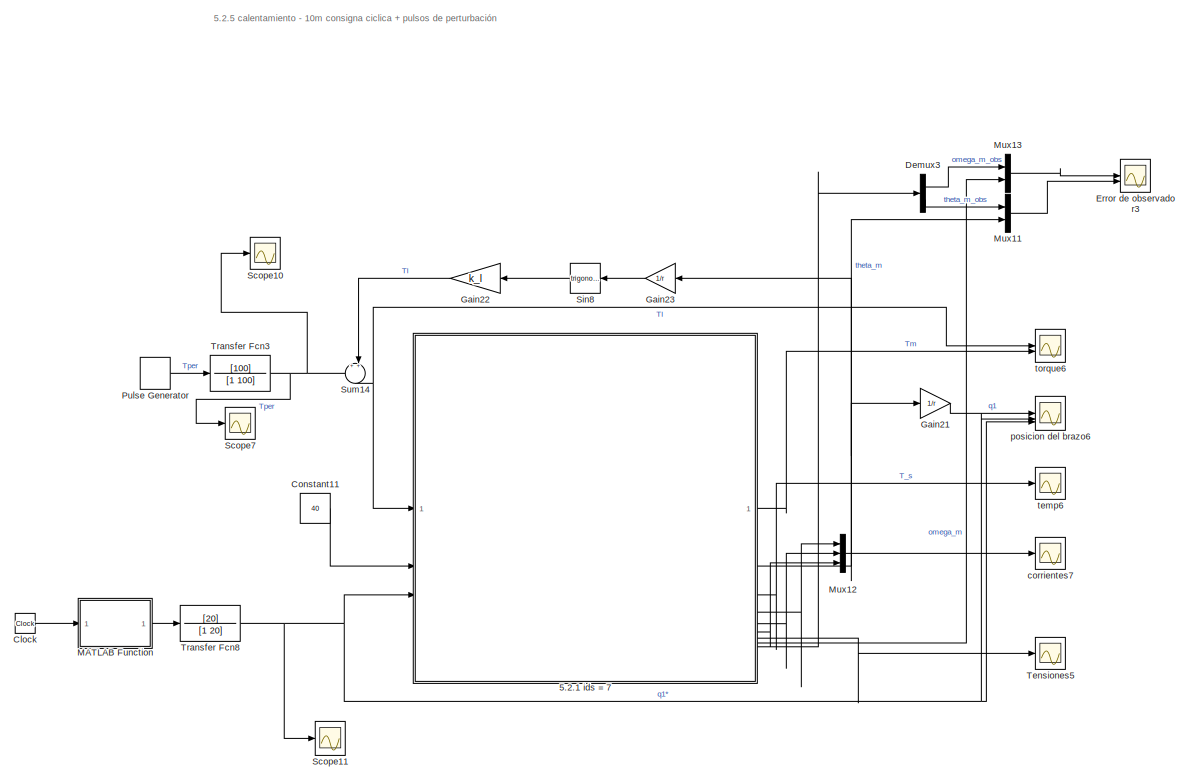
[diagram: root canvas - part 1/11, center side, full height]
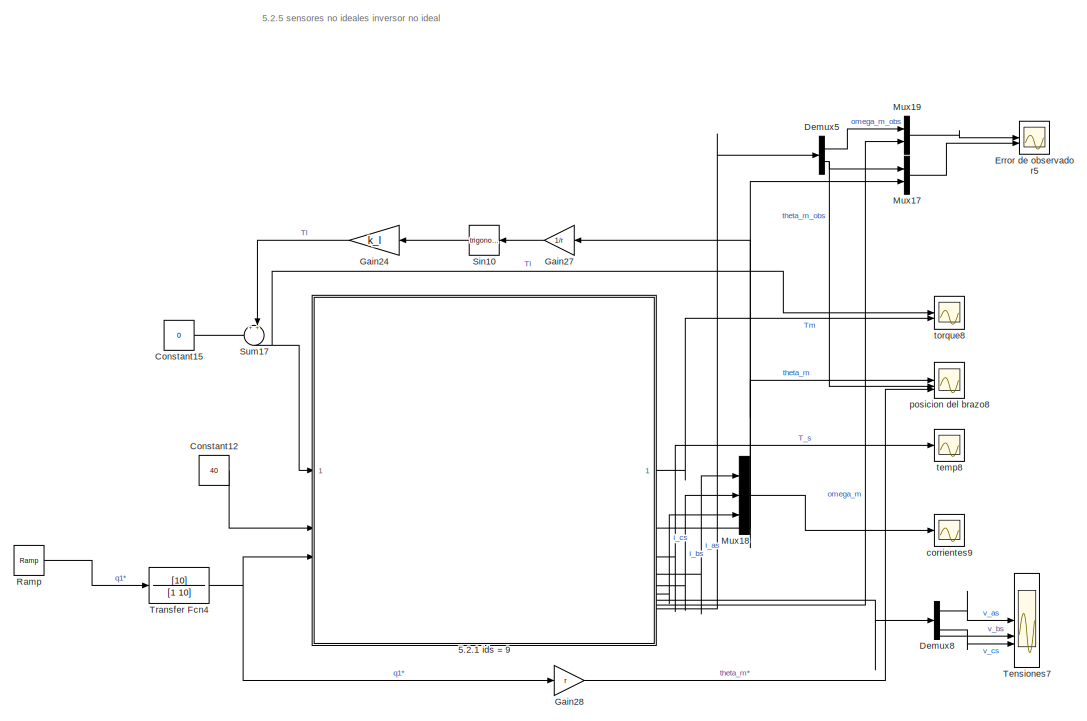
[diagram: root canvas - part 2/11, right side, full height]
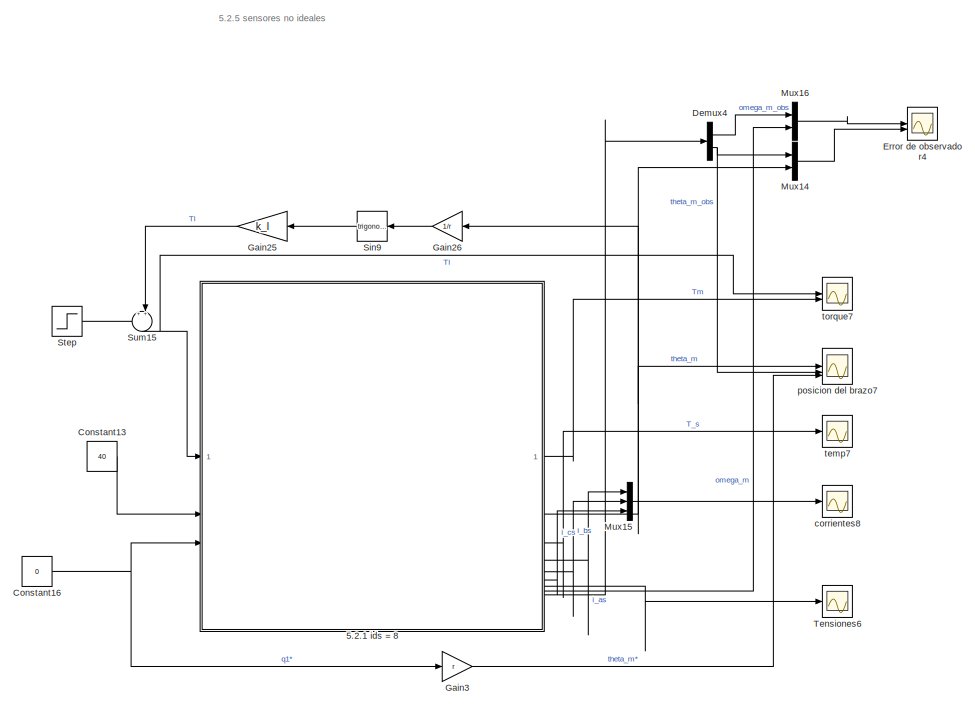
[diagram: root canvas - part 3/11, right side, full height]
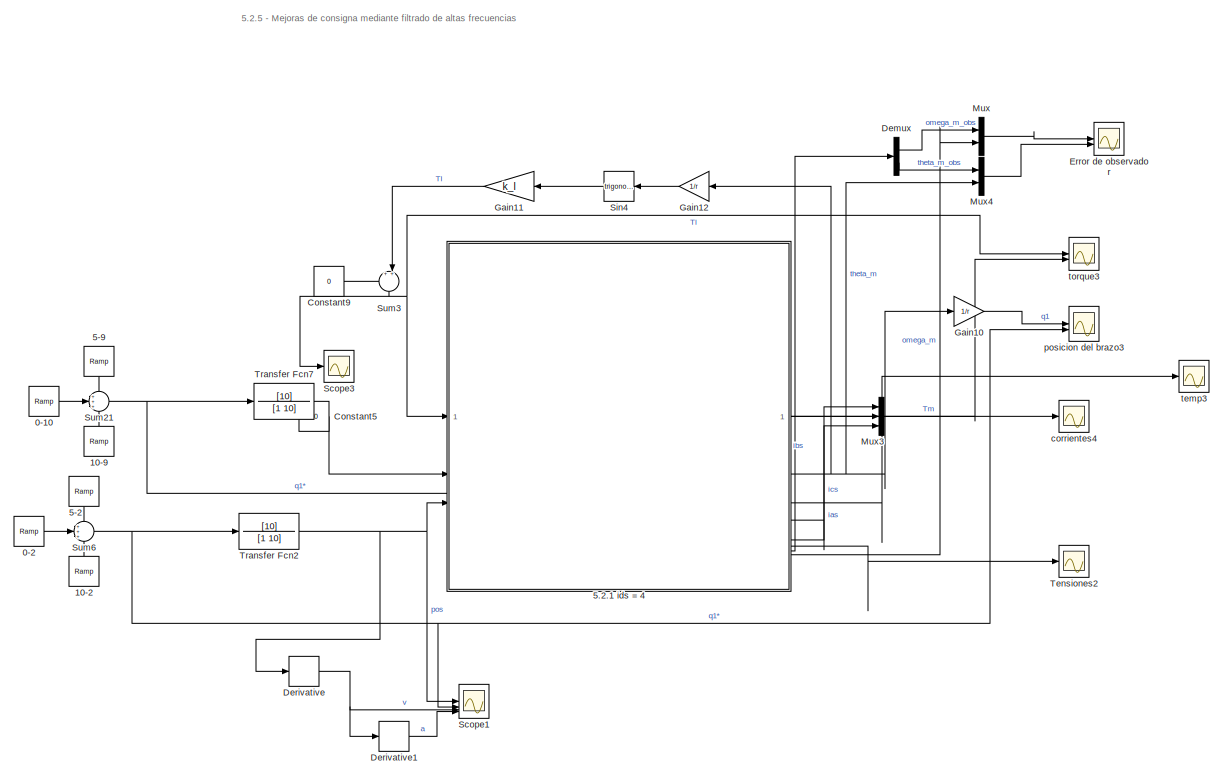
[diagram: root canvas - part 4/11, center side, full height]
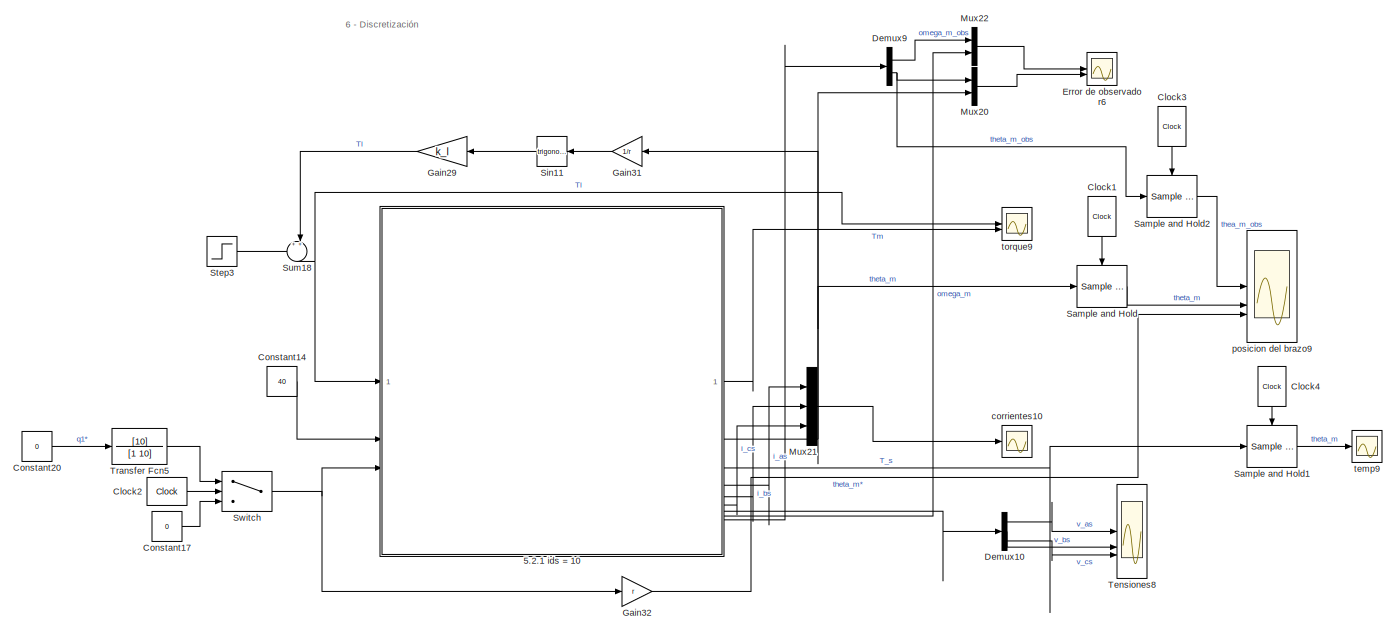
[diagram: root canvas - part 5/11, middle right region]
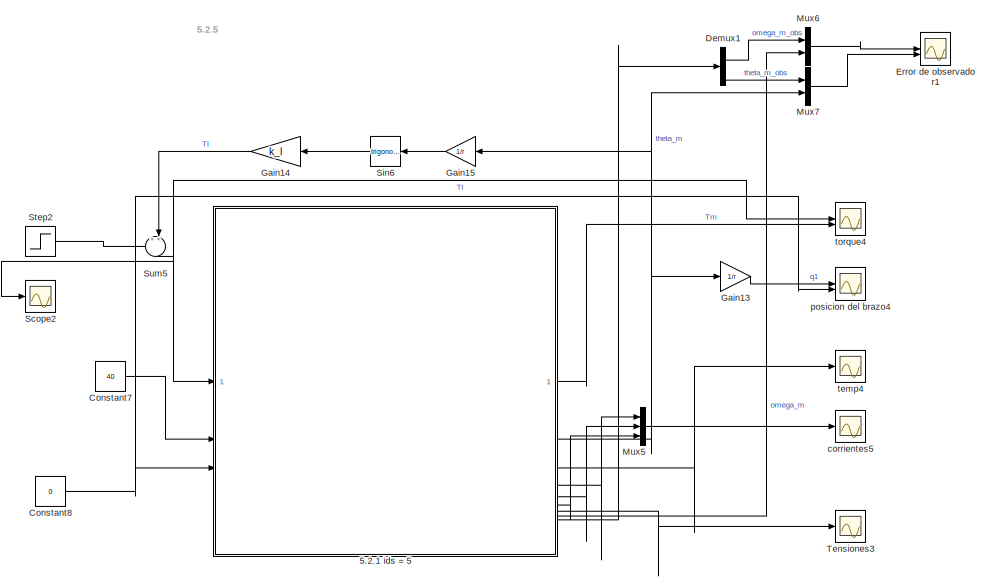
[diagram: root canvas - part 6/11, central region]
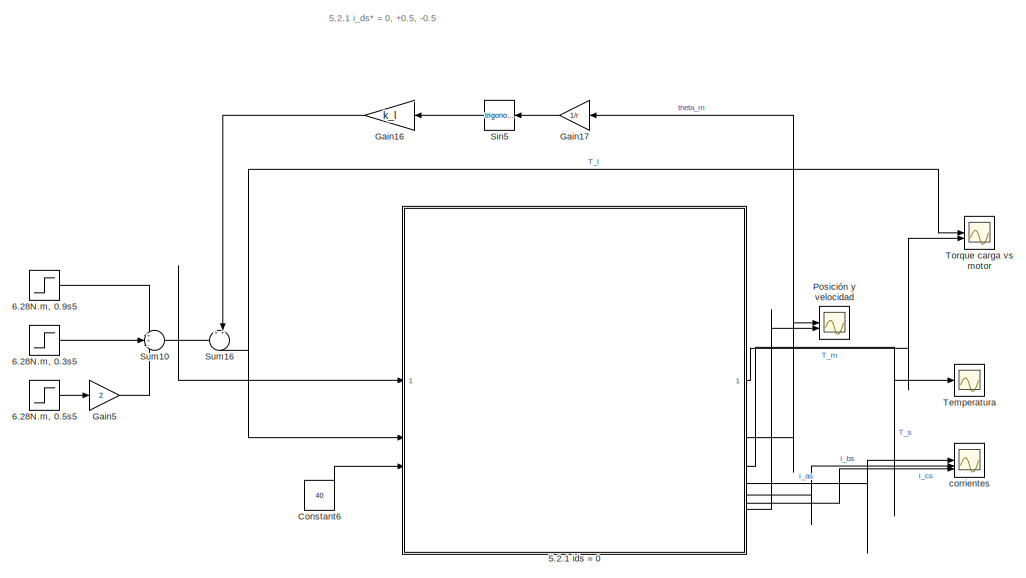
[diagram: root canvas - part 7/11, middle left region]
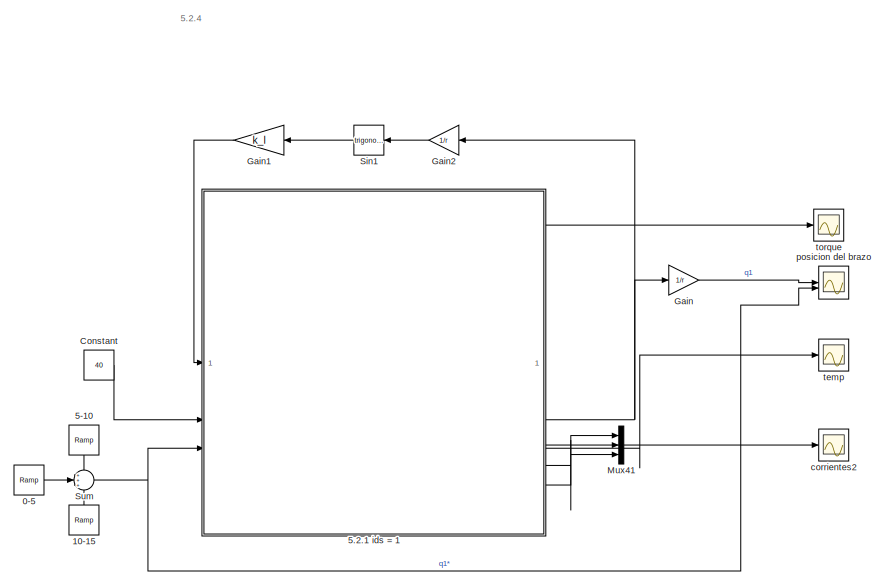
[diagram: root canvas - part 8/11, middle left region]
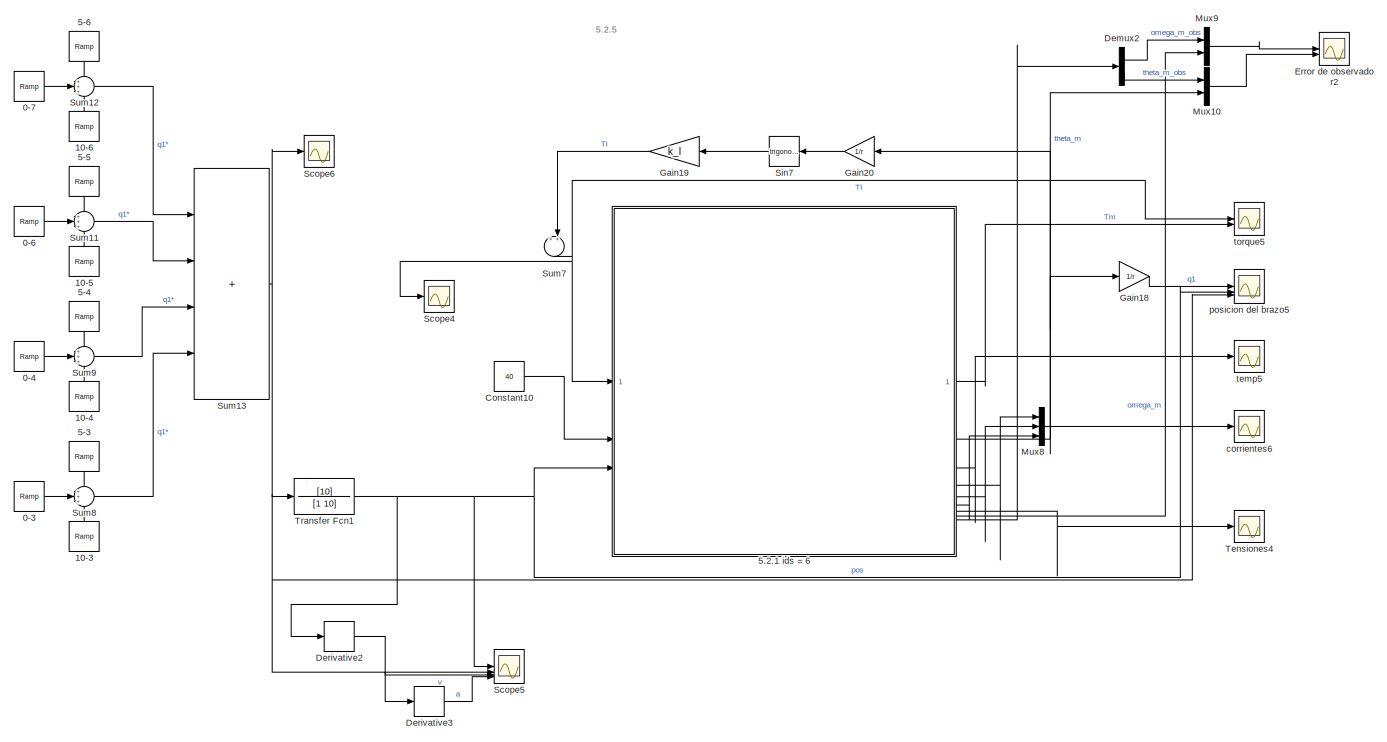
[diagram: root canvas - part 9/11, center side, full height]
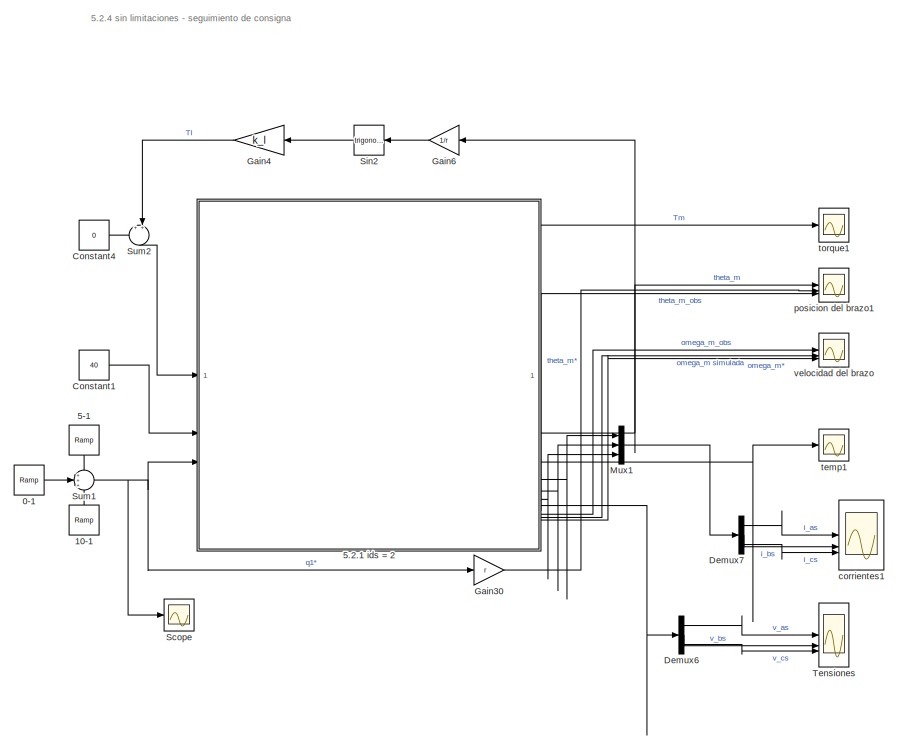
[diagram: root canvas - part 10/11, left side, full height]
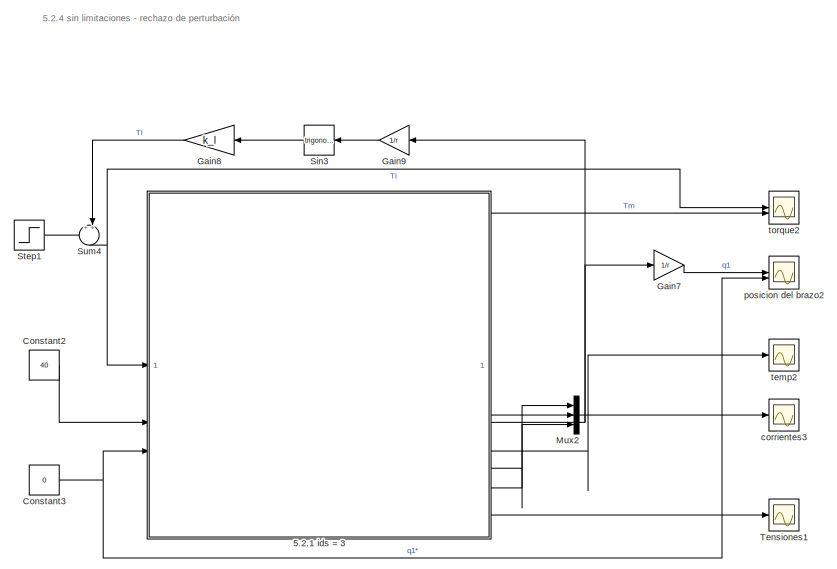
[diagram: root canvas - part 11/11, middle left region]
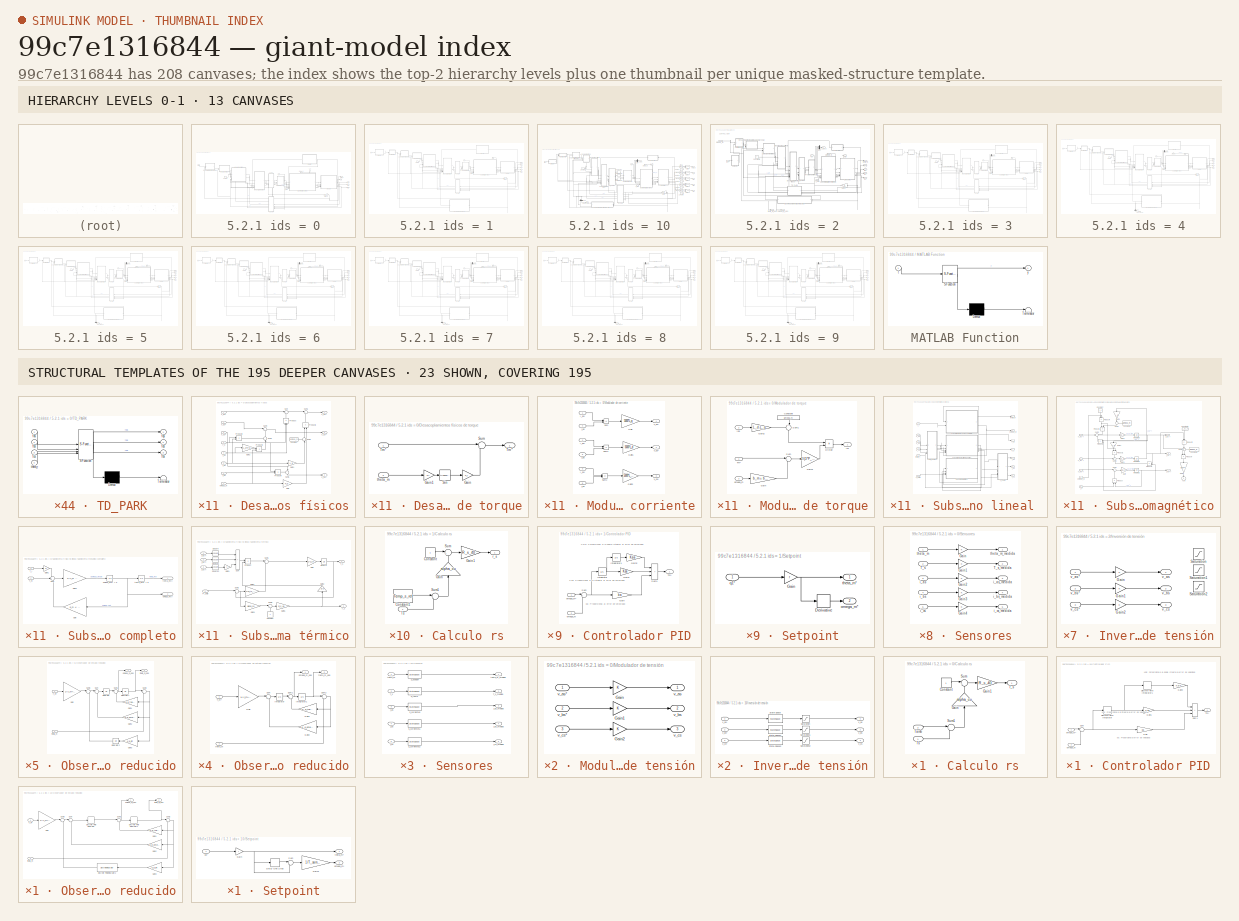
[diagram: thumbnail index - top-2 hierarchy levels (13 canvases) + 23 structural-template representatives of the remaining 195 canvases]
MODEL slx_99c7e1316844
KIND model
CONFIG AbsTol = auto
CONFIG EnableMultiTasking = off
CONFIG FixedStep = 1/39789
CONFIG InitFcn = parametros\n
CONFIG MaxStep = 1e-6
CONFIG MinStep = auto
CONFIG RelTol = 1e-3
CONFIG SampleTimeConstraint = Unconstrained
CONFIG SolverName = ode15s
CONFIG StartTime = 0.0
CONFIG StopTime = 1
BLOCK [Reference] 0-1  REF=simulink/Sources/Ramp
  Commented = on
  SourceBlock = simulink/Sources/Ramp
  SourceType = Ramp
BLOCK [Reference] 0-10  REF=simulink/Sources/Ramp
  Commented = on
  SourceBlock = simulink/Sources/Ramp
  SourceType = Ramp
BLOCK [Reference] 0-2  REF=simulink/Sources/Ramp
  Commented = on
  SourceBlock = simulink/Sources/Ramp
  SourceType = Ramp
BLOCK [Reference] 0-3  REF=simulink/Sources/Ramp
  Commented = on
  SourceBlock = simulink/Sources/Ramp
  SourceType = Ramp
BLOCK [Reference] 0-4  REF=simulink/Sources/Ramp
  Commented = on
  SourceBlock = simulink/Sources/Ramp
  SourceType = Ramp
BLOCK [Reference] 0-5  REF=simulink/Sources/Ramp
  Commented = on
  SourceBlock = simulink/Sources/Ramp
  SourceType = Ramp
BLOCK [Reference] 0-6  REF=simulink/Sources/Ramp
  Commented = on
  SourceBlock = simulink/Sources/Ramp
  SourceType = Ramp
BLOCK [Reference] 0-7  REF=simulink/Sources/Ramp
  Commented = on
  SourceBlock = simulink/Sources/Ramp
  SourceType = Ramp
BLOCK [Reference] 10-1  REF=simulink/Sources/Ramp
  Commented = on
  NameLocation = right
  SourceBlock = simulink/Sources/Ramp
  SourceType = Ramp
BLOCK [Reference] 10-15  REF=simulink/Sources/Ramp
  Commented = on
  NameLocation = right
  SourceBlock = simulink/Sources/Ramp
  SourceType = Ramp
BLOCK [Reference] 10-2  REF=simulink/Sources/Ramp
  Commented = on
  NameLocation = right
  SourceBlock = simulink/Sources/Ramp
  SourceType = Ramp
BLOCK [Reference] 10-3  REF=simulink/Sources/Ramp
  Commented = on
  NameLocation = right
  SourceBlock = simulink/Sources/Ramp
  SourceType = Ramp
BLOCK [Reference] 10-4  REF=simulink/Sources/Ramp
  Commented = on
  NameLocation = right
  SourceBlock = simulink/Sources/Ramp
  SourceType = Ramp
BLOCK [Reference] 10-5  REF=simulink/Sources/Ramp
  Commented = on
  NameLocation = right
  SourceBlock = simulink/Sources/Ramp
  SourceType = Ramp
BLOCK [Reference] 10-6  REF=simulink/Sources/Ramp
  Commented = on
  NameLocation = right
  SourceBlock = simulink/Sources/Ramp
  SourceType = Ramp
BLOCK [Reference] 10-9  REF=simulink/Sources/Ramp
  Commented = on
  NameLocation = right
  SourceBlock = simulink/Sources/Ramp
  SourceType = Ramp
BLOCK [Reference] 5-1  REF=simulink/Sources/Ramp
  Commented = on
  NameLocation = left
  SourceBlock = simulink/Sources/Ramp
  SourceType = Ramp
BLOCK [Reference] 5-10  REF=simulink/Sources/Ramp
  Commented = on
  NameLocation = left
  SourceBlock = simulink/Sources/Ramp
  SourceType = Ramp
BLOCK [Reference] 5-2  REF=simulink/Sources/Ramp
  Commented = on
  NameLocation = left
  SourceBlock = simulink/Sources/Ramp
  SourceType = Ramp
BLOCK [Reference] 5-3  REF=simulink/Sources/Ramp
  Commented = on
  NameLocation = left
  SourceBlock = simulink/Sources/Ramp
  SourceType = Ramp
BLOCK [Reference] 5-4  REF=simulink/Sources/Ramp
  Commented = on
  NameLocation = left
  SourceBlock = simulink/Sources/Ramp
  SourceType = Ramp
BLOCK [Reference] 5-5  REF=simulink/Sources/Ramp
  Commented = on
  NameLocation = left
  SourceBlock = simulink/Sources/Ramp
  SourceType = Ramp
BLOCK [Reference] 5-6  REF=simulink/Sources/Ramp
  Commented = on
  NameLocation = left
  SourceBlock = simulink/Sources/Ramp
  SourceType = Ramp
BLOCK [Reference] 5-9  REF=simulink/Sources/Ramp
  Commented = on
  NameLocation = left
  SourceBlock = simulink/Sources/Ramp
  SourceType = Ramp
BLOCK [SubSystem] 5.2.1 ids = 0
  Commented = on
BLOCK [SubSystem] 5.2.1 ids = 0/Calculo rs
  NameLocation = top
BLOCK [Constant] 5.2.1 ids = 0/Calculo rs/Constant
BLOCK [Gain] 5.2.1 ids = 0/Calculo rs/Gain
  Gain = alpha_cu
  NameLocation = right
BLOCK [Gain] 5.2.1 ids = 0/Calculo rs/Gain1
  Gain = R_s_40
BLOCK [Sum] 5.2.1 ids = 0/Calculo rs/Sum
  Inputs = |++
BLOCK [Sum] 5.2.1 ids = 0/Calculo rs/Sum1
  Inputs = |-+
BLOCK [Inport] 5.2.1 ids = 0/Calculo rs/Tamb
  Port = 2
BLOCK [Inport] 5.2.1 ids = 0/Calculo rs/Ts
BLOCK [Outport] 5.2.1 ids = 0/Calculo rs/r_s
BLOCK [Constant] 5.2.1 ids = 0/Constant5
  Value = 0
BLOCK [SubSystem] 5.2.1 ids = 0/Desacoplamientos físicos
BLOCK [SubSystem] 5.2.1 ids = 0/Desacoplamientos físicos de torque
BLOCK [Gain] 5.2.1 ids = 0/Desacoplamientos físicos de torque/Gain
  Gain = k_l
BLOCK [Gain] 5.2.1 ids = 0/Desacoplamientos físicos de torque/Gain1
  Gain = 1/r
BLOCK [Trigonometry] 5.2.1 ids = 0/Desacoplamientos físicos de torque/Sin
BLOCK [Sum] 5.2.1 ids = 0/Desacoplamientos físicos de torque/Sum
  Inputs = |++
BLOCK [Inport] 5.2.1 ids = 0/Desacoplamientos físicos de torque/Tm*
BLOCK [Outport] 5.2.1 ids = 0/Desacoplamientos físicos de torque/Tm*'
BLOCK [Inport] 5.2.1 ids = 0/Desacoplamientos físicos de torque/theta_m
  Port = 2
BLOCK [Constant] 5.2.1 ids = 0/Desacoplamientos físicos/Constant
  Value = lambda_m
BLOCK [Gain] 5.2.1 ids = 0/Desacoplamientos físicos/Gain
  Gain = P_p
BLOCK [Gain] 5.2.1 ids = 0/Desacoplamientos físicos/Gain1
  Gain = L_d
BLOCK [Gain] 5.2.1 ids = 0/Desacoplamientos físicos/Gain2
  Gain = L_q*P_p
BLOCK [Product] 5.2.1 ids = 0/Desacoplamientos físicos/Product
  NameLocation = right
BLOCK [Product] 5.2.1 ids = 0/Desacoplamientos físicos/Product1
  NameLocation = right
BLOCK [Product] 5.2.1 ids = 0/Desacoplamientos físicos/Product2
BLOCK [Product] 5.2.1 ids = 0/Desacoplamientos físicos/Product3
BLOCK [Product] 5.2.1 ids = 0/Desacoplamientos físicos/Product4
BLOCK [Sum] 5.2.1 ids = 0/Desacoplamientos físicos/Sum
  Inputs = |++
BLOCK [Sum] 5.2.1 ids = 0/Desacoplamientos físicos/Sum1
  Inputs = |++
BLOCK [Sum] 5.2.1 ids = 0/Desacoplamientos físicos/Sum2
  Inputs = ++|
  NameLocation = right
BLOCK [Sum] 5.2.1 ids = 0/Desacoplamientos físicos/Sum3
  Inputs = +-|
  NameLocation = right
BLOCK [Sum] 5.2.1 ids = 0/Desacoplamientos físicos/Sum4
  Inputs = |++
BLOCK [Sum] 5.2.1 ids = 0/Desacoplamientos físicos/Sum5
  Inputs = ++|
  NameLocation = left
BLOCK [Inport] 5.2.1 ids = 0/Desacoplamientos físicos/i_0s
  Port = 6
BLOCK [Inport] 5.2.1 ids = 0/Desacoplamientos físicos/i_ds
  Port = 5
BLOCK [Inport] 5.2.1 ids = 0/Desacoplamientos físicos/i_qs
  Port = 4
BLOCK [Inport] 5.2.1 ids = 0/Desacoplamientos físicos/omega_m
  Port = 7
BLOCK [Inport] 5.2.1 ids = 0/Desacoplamientos físicos/r_s
  Port = 8
BLOCK [Inport] 5.2.1 ids = 0/Desacoplamientos físicos/v_0s*
  Port = 3
BLOCK [Outport] 5.2.1 ids = 0/Desacoplamientos físicos/v_0s*'
  Port = 3
BLOCK [Inport] 5.2.1 ids = 0/Desacoplamientos físicos/v_ds*
  Port = 2
BLOCK [Outport] 5.2.1 ids = 0/Desacoplamientos físicos/v_ds*'
  Port = 2
BLOCK [Inport] 5.2.1 ids = 0/Desacoplamientos físicos/v_qs*
BLOCK [Outport] 5.2.1 ids = 0/Desacoplamientos físicos/v_qs*'
BLOCK [Gain] 5.2.1 ids = 0/Gain5
  Gain = P_p
  NameLocation = top
BLOCK [SubSystem] 5.2.1 ids = 0/Modulador de corriente
BLOCK [Gain] 5.2.1 ids = 0/Modulador de corriente/Gain
  Gain = 5000*L_q
BLOCK [Gain] 5.2.1 ids = 0/Modulador de corriente/Gain1
  Gain = 5000*L_d
BLOCK [Gain] 5.2.1 ids = 0/Modulador de corriente/Gain2
  Gain = 5000*L_ls
BLOCK [Inport] 5.2.1 ids = 0/Modulador de corriente/I_0s*
  Port = 3
BLOCK [Inport] 5.2.1 ids = 0/Modulador de corriente/I_ds*
  Port = 2
BLOCK [Inport] 5.2.1 ids = 0/Modulador de corriente/I_qs*
BLOCK [Sum] 5.2.1 ids = 0/Modulador de corriente/Sum
  IconShape = rectangular
  Inputs = +-
BLOCK [Sum] 5.2.1 ids = 0/Modulador de corriente/Sum1
  IconShape = rectangular
  Inputs = +-
BLOCK [Sum] 5.2.1 ids = 0/Modulador de corriente/Sum2
  IconShape = rectangular
  Inputs = +-
BLOCK [Inport] 5.2.1 ids = 0/Modulador de corriente/i_0s
  Port = 6
BLOCK [Inport] 5.2.1 ids = 0/Modulador de corriente/i_ds
  Port = 5
BLOCK [Inport] 5.2.1 ids = 0/Modulador de corriente/i_qs
  Port = 4
BLOCK [Outport] 5.2.1 ids = 0/Modulador de corriente/v_0s*
  Port = 3
BLOCK [Outport] 5.2.1 ids = 0/Modulador de corriente/v_ds*
  Port = 2
BLOCK [Outport] 5.2.1 ids = 0/Modulador de corriente/v_qs*
BLOCK [SubSystem] 5.2.1 ids = 0/Modulador de tensión
BLOCK [Gain] 5.2.1 ids = 0/Modulador de tensión/Gain
BLOCK [Gain] 5.2.1 ids = 0/Modulador de tensión/Gain1
BLOCK [Gain] 5.2.1 ids = 0/Modulador de tensión/Gain2
BLOCK [Outport] 5.2.1 ids = 0/Modulador de tensión/v_as
BLOCK [Inport] 5.2.1 ids = 0/Modulador de tensión/v_as*
BLOCK [Outport] 5.2.1 ids = 0/Modulador de tensión/v_bs
  Port = 2
BLOCK [Inport] 5.2.1 ids = 0/Modulador de tensión/v_bs*
  Port = 2
BLOCK [Outport] 5.2.1 ids = 0/Modulador de tensión/v_cs
  Port = 3
BLOCK [Inport] 5.2.1 ids = 0/Modulador de tensión/v_cs*
  Port = 3
BLOCK [SubSystem] 5.2.1 ids = 0/Modulador de torque
BLOCK [Constant] 5.2.1 ids = 0/Modulador de torque/Constant
  NameLocation = left
  Value = lambda_m
BLOCK [Product] 5.2.1 ids = 0/Modulador de torque/Divide
  Inputs = /*
BLOCK [Gain] 5.2.1 ids = 0/Modulador de torque/Gain
  Gain = b_m + b_l/r^2
BLOCK [Gain] 5.2.1 ids = 0/Modulador de torque/Gain1
  Gain = 2/(3*P_p)
BLOCK [Gain] 5.2.1 ids = 0/Modulador de torque/Gain2
  Gain = L_d-L_q
BLOCK [Sum] 5.2.1 ids = 0/Modulador de torque/Sum
  Inputs = |++
BLOCK [Sum] 5.2.1 ids = 0/Modulador de torque/Sum1
  Inputs = ++|
  NameLocation = right
BLOCK [Inport] 5.2.1 ids = 0/Modulador de torque/Tm*
BLOCK [Inport] 5.2.1 ids = 0/Modulador de torque/ids
  Port = 2
BLOCK [Outport] 5.2.1 ids = 0/Modulador de torque/iq*
BLOCK [Inport] 5.2.1 ids = 0/Modulador de torque/omega_m
  Port = 3
BLOCK [SubSystem] 5.2.1 ids = 0/Sensores
BLOCK [Gain] 5.2.1 ids = 0/Sensores/Gain
BLOCK [Gain] 5.2.1 ids = 0/Sensores/Gain1
BLOCK [Gain] 5.2.1 ids = 0/Sensores/Gain2
BLOCK [Gain] 5.2.1 ids = 0/Sensores/Gain3
BLOCK [Gain] 5.2.1 ids = 0/Sensores/Gain4
BLOCK [Inport] 5.2.1 ids = 0/Sensores/T_s
  Port = 2
BLOCK [Outport] 5.2.1 ids = 0/Sensores/T_s_medida
  Port = 2
BLOCK [Inport] 5.2.1 ids = 0/Sensores/i_as
  Port = 3
BLOCK [Outport] 5.2.1 ids = 0/Sensores/i_as_medida
  Port = 3
BLOCK [Inport] 5.2.1 ids = 0/Sensores/i_bs
  Port = 4
BLOCK [Outport] 5.2.1 ids = 0/Sensores/i_bs_medida
  Port = 4
BLOCK [Inport] 5.2.1 ids = 0/Sensores/i_cs
  Port = 5
BLOCK [Outport] 5.2.1 ids = 0/Sensores/i_cs_medida
  Port = 5
BLOCK [Inport] 5.2.1 ids = 0/Sensores/theta_m
BLOCK [Outport] 5.2.1 ids = 0/Sensores/theta_m_medida
BLOCK [SubSystem] 5.2.1 ids = 0/Subsistema físico no lineal 
  PortSchema = {"entries":[{"content":{"sides":[{"content":{"connectorIds":["In1","In2","In3","In4","In5","In6"]},"type":"ConnectorPlacement.EquallySpacedRectSide","uuid":"df16c937-5b0d-437b-9581-4e7e4443d731"},{"content":{"connectorIds":["Out1","Out2","Out3","Out4","Out5"],"side":"RIGHT"},"type":"ConnectorPlacement.EquallySpacedRectSide","uuid":"58799b56-1bb2-4861-ad63-3fa3f8181ad5"},{"content":{"connectorIds":...<+311ch>  <repeated x11 — deduplicated; at blocks: Subsistema físico no lineal>
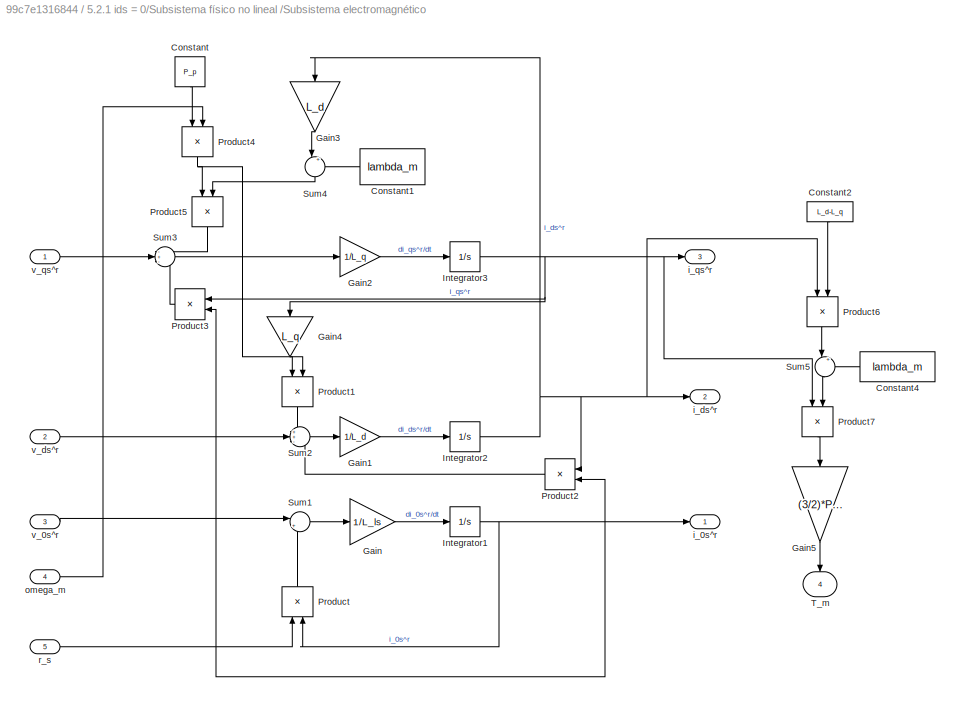
BLOCK [SubSystem] 5.2.1 ids = 0/Subsistema físico no lineal /Subsistema electromagnético
BLOCK [Constant] 5.2.1 ids = 0/Subsistema físico no lineal /Subsistema electromagnético/Constant
  NameLocation = left
  Value = P_p
BLOCK [Constant] 5.2.1 ids = 0/Subsistema físico no lineal /Subsistema electromagnético/Constant1
  NameLocation = top
  Value = lambda_m
BLOCK [Constant] 5.2.1 ids = 0/Subsistema físico no lineal /Subsistema electromagnético/Constant2
  NameLocation = left
  Value = L_d-L_q
BLOCK [Constant] 5.2.1 ids = 0/Subsistema físico no lineal /Subsistema electromagnético/Constant4
  NameLocation = top
  Value = lambda_m
BLOCK [Gain] 5.2.1 ids = 0/Subsistema físico no lineal /Subsistema electromagnético/Gain
  Gain = 1/L_ls
BLOCK [Gain] 5.2.1 ids = 0/Subsistema físico no lineal /Subsistema electromagnético/Gain1
  Gain = 1/L_d
BLOCK [Gain] 5.2.1 ids = 0/Subsistema físico no lineal /Subsistema electromagnético/Gain2
  Gain = 1/L_q
BLOCK [Gain] 5.2.1 ids = 0/Subsistema físico no lineal /Subsistema electromagnético/Gain3
  Gain = L_d
  NameLocation = left
BLOCK [Gain] 5.2.1 ids = 0/Subsistema físico no lineal /Subsistema electromagnético/Gain4
  Gain = L_q
  NameLocation = left
BLOCK [Gain] 5.2.1 ids = 0/Subsistema físico no lineal /Subsistema electromagnético/Gain5
  Gain = (3/2)*P_p
  NameLocation = left
BLOCK [Integrator] 5.2.1 ids = 0/Subsistema físico no lineal /Subsistema electromagnético/Integrator1
BLOCK [Integrator] 5.2.1 ids = 0/Subsistema físico no lineal /Subsistema electromagnético/Integrator2
BLOCK [Integrator] 5.2.1 ids = 0/Subsistema físico no lineal /Subsistema electromagnético/Integrator3
BLOCK [Product] 5.2.1 ids = 0/Subsistema físico no lineal /Subsistema electromagnético/Product
  NameLocation = right
BLOCK [Product] 5.2.1 ids = 0/Subsistema físico no lineal /Subsistema electromagnético/Product1
  NameLocation = left
BLOCK [Product] 5.2.1 ids = 0/Subsistema físico no lineal /Subsistema electromagnético/Product2
  NameLocation = top
BLOCK [Product] 5.2.1 ids = 0/Subsistema físico no lineal /Subsistema electromagnético/Product3
  NameLocation = top
BLOCK [Product] 5.2.1 ids = 0/Subsistema físico no lineal /Subsistema electromagnético/Product4
  NameLocation = left
BLOCK [Product] 5.2.1 ids = 0/Subsistema físico no lineal /Subsistema electromagnético/Product5
  NameLocation = left
BLOCK [Product] 5.2.1 ids = 0/Subsistema físico no lineal /Subsistema electromagnético/Product6
  NameLocation = left
BLOCK [Product] 5.2.1 ids = 0/Subsistema físico no lineal /Subsistema electromagnético/Product7
  NameLocation = left
BLOCK [Sum] 5.2.1 ids = 0/Subsistema físico no lineal /Subsistema electromagnético/Sum1
  Inputs = |+-
BLOCK [Sum] 5.2.1 ids = 0/Subsistema físico no lineal /Subsistema electromagnético/Sum2
  Inputs = ++-
BLOCK [Sum] 5.2.1 ids = 0/Subsistema físico no lineal /Subsistema electromagnético/Sum3
  Inputs = -+-
BLOCK [Sum] 5.2.1 ids = 0/Subsistema físico no lineal /Subsistema electromagnético/Sum4
  Inputs = |++
  NameLocation = left
BLOCK [Sum] 5.2.1 ids = 0/Subsistema físico no lineal /Subsistema electromagnético/Sum5
  Inputs = |++
  NameLocation = left
BLOCK [Outport] 5.2.1 ids = 0/Subsistema físico no lineal /Subsistema electromagnético/T_m
  NameLocation = left
  Port = 4
BLOCK [Outport] 5.2.1 ids = 0/Subsistema físico no lineal /Subsistema electromagnético/i_0s^r
BLOCK [Outport] 5.2.1 ids = 0/Subsistema físico no lineal /Subsistema electromagnético/i_ds^r
  Port = 2
BLOCK [Outport] 5.2.1 ids = 0/Subsistema físico no lineal /Subsistema electromagnético/i_qs^r
  Port = 3
BLOCK [Inport] 5.2.1 ids = 0/Subsistema físico no lineal /Subsistema electromagnético/omega_m
  Port = 4
BLOCK [Inport] 5.2.1 ids = 0/Subsistema físico no lineal /Subsistema electromagnético/r_s
  Port = 5
BLOCK [Inport] 5.2.1 ids = 0/Subsistema físico no lineal /Subsistema electromagnético/v_0s^r
  Port = 3
BLOCK [Inport] 5.2.1 ids = 0/Subsistema físico no lineal /Subsistema electromagnético/v_ds^r
  Port = 2
BLOCK [Inport] 5.2.1 ids = 0/Subsistema físico no lineal /Subsistema electromagnético/v_qs^r
BLOCK [SubSystem] 5.2.1 ids = 0/Subsistema físico no lineal /Subsistema mecánico completo
BLOCK [Gain] 5.2.1 ids = 0/Subsistema físico no lineal /Subsistema mecánico completo/Gain
  Gain = b_m +( b_l / (r^2))
  NameLocation = top
BLOCK [Gain] 5.2.1 ids = 0/Subsistema físico no lineal /Subsistema mecánico completo/Gain1
  Gain = 1/r
BLOCK [Gain] 5.2.1 ids = 0/Subsistema físico no lineal /Subsistema mecánico completo/Gain2
  Gain = 1/(J_m + J_l / (r^2))
BLOCK [Sum] 5.2.1 ids = 0/Subsistema físico no lineal /Subsistema mecánico completo/Sum
  Inputs = -+-
BLOCK [Inport] 5.2.1 ids = 0/Subsistema físico no lineal /Subsistema mecánico completo/T_l
  Port = 2
BLOCK [Inport] 5.2.1 ids = 0/Subsistema físico no lineal /Subsistema mecánico completo/T_m
BLOCK [Integrator] 5.2.1 ids = 0/Subsistema físico no lineal /Subsistema mecánico completo/omega_m(0) = 0
BLOCK [Outport] 5.2.1 ids = 0/Subsistema físico no lineal /Subsistema mecánico completo/omega_m(t)
  Port = 2
BLOCK [Integrator] 5.2.1 ids = 0/Subsistema físico no lineal /Subsistema mecánico completo/theta_m(0) = 0
BLOCK [Outport] 5.2.1 ids = 0/Subsistema físico no lineal /Subsistema mecánico completo/theta_m(t)
BLOCK [SubSystem] 5.2.1 ids = 0/Subsistema físico no lineal /Subsistema térmico
BLOCK [Integrator] 5.2.1 ids = 0/Subsistema físico no lineal /Subsistema térmico/CI = 40ºC
  InitialCondition = 40
BLOCK [Constant] 5.2.1 ids = 0/Subsistema físico no lineal /Subsistema térmico/Constant
  NameLocation = right
BLOCK [Gain] 5.2.1 ids = 0/Subsistema físico no lineal /Subsistema térmico/Gain
  Gain = 1/C_ts
BLOCK [Gain] 5.2.1 ids = 0/Subsistema físico no lineal /Subsistema térmico/Gain1
  Gain = 2
BLOCK [Gain] 5.2.1 ids = 0/Subsistema físico no lineal /Subsistema térmico/Gain2
  Gain = 3/2
  NameLocation = right
BLOCK [Gain] 5.2.1 ids = 0/Subsistema físico no lineal /Subsistema térmico/Gain3
  Gain = 1/R_ts_amb
BLOCK [Gain] 5.2.1 ids = 0/Subsistema físico no lineal /Subsistema térmico/Gain4
  Gain = alpha_cu
BLOCK [Gain] 5.2.1 ids = 0/Subsistema físico no lineal /Subsistema térmico/Gain5
  Gain = R_s_40
BLOCK [Product] 5.2.1 ids = 0/Subsistema físico no lineal /Subsistema térmico/Product
BLOCK [Math] 5.2.1 ids = 0/Subsistema físico no lineal /Subsistema térmico/Square
  Operator = square
BLOCK [Math] 5.2.1 ids = 0/Subsistema físico no lineal /Subsistema térmico/Square1
  Operator = square
BLOCK [Math] 5.2.1 ids = 0/Subsistema físico no lineal /Subsistema térmico/Square2
  Operator = square
BLOCK [Sum] 5.2.1 ids = 0/Subsistema físico no lineal /Subsistema térmico/Sum
  IconShape = rectangular
  Inputs = +++
BLOCK [Sum] 5.2.1 ids = 0/Subsistema físico no lineal /Subsistema térmico/Sum1
  Inputs = |+-
BLOCK [Sum] 5.2.1 ids = 0/Subsistema físico no lineal /Subsistema térmico/Sum2
  Inputs = |-+
BLOCK [Sum] 5.2.1 ids = 0/Subsistema físico no lineal /Subsistema térmico/Sum3
  Inputs = |++
BLOCK [Outport] 5.2.1 ids = 0/Subsistema físico no lineal /Subsistema térmico/T_s
BLOCK [Inport] 5.2.1 ids = 0/Subsistema físico no lineal /Subsistema térmico/Tº_amb
  Port = 4
BLOCK [Inport] 5.2.1 ids = 0/Subsistema físico no lineal /Subsistema térmico/i_0s^r
  Port = 3
BLOCK [Inport] 5.2.1 ids = 0/Subsistema físico no lineal /Subsistema térmico/i_ds^r
  Port = 2
BLOCK [Inport] 5.2.1 ids = 0/Subsistema físico no lineal /Subsistema térmico/i_qs^r
BLOCK [Outport] 5.2.1 ids = 0/Subsistema físico no lineal /Subsistema térmico/r_s
  Port = 2
BLOCK [SubSystem] 5.2.1 ids = 0/Subsistema físico no lineal /TD_PARK
  ErrorFcn = Stateflow.Translate.translate
  LibrarySourceBlock = simulink/User-Defined\nFunctions/MATLAB Function
  PermitHierarchicalResolution = ExplicitOnly
  SFBlockType = MATLAB Function
  TreatAsAtomicUnit = on
BLOCK [Demux] 5.2.1 ids = 0/Subsistema físico no lineal /TD_PARK/ Demux 
  Outputs = 1
BLOCK [S-Function] 5.2.1 ids = 0/Subsistema físico no lineal /TD_PARK/ SFunction 
  EnableBusSupport = on
  FunctionName = sf_sfun
  PortCounts = [4 4]
  SFcnIsStateOwnerBlock = off
  SFunctionDeploymentMode = off
  Tag = Stateflow S-Function 1
BLOCK [Terminator] 5.2.1 ids = 0/Subsistema físico no lineal /TD_PARK/ Terminator 
BLOCK [Outport] 5.2.1 ids = 0/Subsistema físico no lineal /TD_PARK/f0s
  Port = 3
BLOCK [Inport] 5.2.1 ids = 0/Subsistema físico no lineal /TD_PARK/fas
BLOCK [Inport] 5.2.1 ids = 0/Subsistema físico no lineal /TD_PARK/fbs
  Port = 2
BLOCK [Inport] 5.2.1 ids = 0/Subsistema físico no lineal /TD_PARK/fcs
  Port = 3
BLOCK [Outport] 5.2.1 ids = 0/Subsistema físico no lineal /TD_PARK/fds
  Port = 2
BLOCK [Outport] 5.2.1 ids = 0/Subsistema físico no lineal /TD_PARK/fqs
BLOCK [Inport] 5.2.1 ids = 0/Subsistema físico no lineal /TD_PARK/theta_r
  Port = 4
BLOCK [SubSystem] 5.2.1 ids = 0/Subsistema físico no lineal /TI_PARK
  ErrorFcn = Stateflow.Translate.translate
  LibrarySourceBlock = simulink/User-Defined\nFunctions/MATLAB Function
  PermitHierarchicalResolution = ExplicitOnly
  SFBlockType = MATLAB Function
  TreatAsAtomicUnit = on
BLOCK [Demux] 5.2.1 ids = 0/Subsistema físico no lineal /TI_PARK/ Demux 
  Outputs = 1
BLOCK [S-Function] 5.2.1 ids = 0/Subsistema físico no lineal /TI_PARK/ SFunction 
  EnableBusSupport = on
  FunctionName = sf_sfun
  PortCounts = [4 4]
  SFcnIsStateOwnerBlock = off
  SFunctionDeploymentMode = off
  Tag = Stateflow S-Function 2
BLOCK [Terminator] 5.2.1 ids = 0/Subsistema físico no lineal /TI_PARK/ Terminator 
BLOCK [Inport] 5.2.1 ids = 0/Subsistema físico no lineal /TI_PARK/f0s
  Port = 3
BLOCK [Outport] 5.2.1 ids = 0/Subsistema físico no lineal /TI_PARK/fas
BLOCK [Outport] 5.2.1 ids = 0/Subsistema físico no lineal /TI_PARK/fbs
  Port = 2
BLOCK [Outport] 5.2.1 ids = 0/Subsistema físico no lineal /TI_PARK/fcs
  Port = 3
BLOCK [Inport] 5.2.1 ids = 0/Subsistema físico no lineal /TI_PARK/fds
  Port = 2
BLOCK [Inport] 5.2.1 ids = 0/Subsistema físico no lineal /TI_PARK/fqs
BLOCK [Inport] 5.2.1 ids = 0/Subsistema físico no lineal /TI_PARK/theta_r
  Port = 4
BLOCK [Inport] 5.2.1 ids = 0/Subsistema físico no lineal /T_l
BLOCK [Outport] 5.2.1 ids = 0/Subsistema físico no lineal /T_m
  NameLocation = top
  Port = 7
BLOCK [Outport] 5.2.1 ids = 0/Subsistema físico no lineal /T_s
  NameLocation = top
  Port = 2
BLOCK [Inport] 5.2.1 ids = 0/Subsistema físico no lineal /Tº_amb
  Port = 6
BLOCK [Outport] 5.2.1 ids = 0/Subsistema físico no lineal /i_as
  Port = 3
BLOCK [Outport] 5.2.1 ids = 0/Subsistema físico no lineal /i_bs
  Port = 4
BLOCK [Outport] 5.2.1 ids = 0/Subsistema físico no lineal /i_cs
  Port = 5
BLOCK [Outport] 5.2.1 ids = 0/Subsistema físico no lineal /omega_m
  Port = 6
BLOCK [Outport] 5.2.1 ids = 0/Subsistema físico no lineal /theta_m
BLOCK [Inport] 5.2.1 ids = 0/Subsistema físico no lineal /theta_r
  Port = 5
BLOCK [Inport] 5.2.1 ids = 0/Subsistema físico no lineal /v_as
  Port = 2
BLOCK [Inport] 5.2.1 ids = 0/Subsistema físico no lineal /v_bs
  Port = 3
BLOCK [Inport] 5.2.1 ids = 0/Subsistema físico no lineal /v_cs
  Port = 4
BLOCK [SubSystem] 5.2.1 ids = 0/TD_PARK
  ErrorFcn = Stateflow.Translate.translate
  LibrarySourceBlock = simulink/User-Defined\nFunctions/MATLAB Function
  PermitHierarchicalResolution = ExplicitOnly
  SFBlockType = MATLAB Function
  TreatAsAtomicUnit = on
BLOCK [Demux] 5.2.1 ids = 0/TD_PARK/ Demux 
  Outputs = 1
BLOCK [S-Function] 5.2.1 ids = 0/TD_PARK/ SFunction 
  EnableBusSupport = on
  FunctionName = sf_sfun
  PortCounts = [4 4]
  SFcnIsStateOwnerBlock = off
  SFunctionDeploymentMode = off
  Tag = Stateflow S-Function 38
BLOCK [Terminator] 5.2.1 ids = 0/TD_PARK/ Terminator 
BLOCK [Outport] 5.2.1 ids = 0/TD_PARK/f0s
  Port = 3
BLOCK [Inport] 5.2.1 ids = 0/TD_PARK/fas
BLOCK [Inport] 5.2.1 ids = 0/TD_PARK/fbs
  Port = 2
BLOCK [Inport] 5.2.1 ids = 0/TD_PARK/fcs
  Port = 3
BLOCK [Outport] 5.2.1 ids = 0/TD_PARK/fds
  Port = 2
BLOCK [Outport] 5.2.1 ids = 0/TD_PARK/fqs
BLOCK [Inport] 5.2.1 ids = 0/TD_PARK/theta_r
  Port = 4
BLOCK [SubSystem] 5.2.1 ids = 0/TI_PARK1
  ErrorFcn = Stateflow.Translate.translate
  LibrarySourceBlock = simulink/User-Defined\nFunctions/MATLAB Function
  PermitHierarchicalResolution = ExplicitOnly
  SFBlockType = MATLAB Function
  TreatAsAtomicUnit = on
BLOCK [Demux] 5.2.1 ids = 0/TI_PARK1/ Demux 
  Outputs = 1
BLOCK [S-Function] 5.2.1 ids = 0/TI_PARK1/ SFunction 
  EnableBusSupport = on
  FunctionName = sf_sfun
  PortCounts = [4 4]
  SFcnIsStateOwnerBlock = off
  SFunctionDeploymentMode = off
  Tag = Stateflow S-Function 37
BLOCK [Terminator] 5.2.1 ids = 0/TI_PARK1/ Terminator 
BLOCK [Inport] 5.2.1 ids = 0/TI_PARK1/f0s
  Port = 3
BLOCK [Outport] 5.2.1 ids = 0/TI_PARK1/fas
BLOCK [Outport] 5.2.1 ids = 0/TI_PARK1/fbs
  Port = 2
BLOCK [Outport] 5.2.1 ids = 0/TI_PARK1/fcs
  Port = 3
BLOCK [Inport] 5.2.1 ids = 0/TI_PARK1/fds
  Port = 2
BLOCK [Inport] 5.2.1 ids = 0/TI_PARK1/fqs
BLOCK [Inport] 5.2.1 ids = 0/TI_PARK1/theta_r
  Port = 4
BLOCK [Inport] 5.2.1 ids = 0/T_l
  Port = 2
BLOCK [Outport] 5.2.1 ids = 0/T_m
  NameLocation = right
BLOCK [Outport] 5.2.1 ids = 0/T_s
  Port = 3
BLOCK [Inport] 5.2.1 ids = 0/Tm*
BLOCK [Inport] 5.2.1 ids = 0/Tº_amb
  Port = 3
BLOCK [Outport] 5.2.1 ids = 0/fas
  Port = 4
BLOCK [Outport] 5.2.1 ids = 0/fbs
  Port = 5
BLOCK [Outport] 5.2.1 ids = 0/fcs
  Port = 6
BLOCK [Outport] 5.2.1 ids = 0/omega_m
  Port = 7
BLOCK [Outport] 5.2.1 ids = 0/theta_m 
  Port = 2
BLOCK [SubSystem] 5.2.1 ids = 1
  Commented = on
BLOCK [SubSystem] 5.2.1 ids = 1/Calculo rs
  NameLocation = top
BLOCK [Constant] 5.2.1 ids = 1/Calculo rs/Constant
BLOCK [Constant] 5.2.1 ids = 1/Calculo rs/Constant1
  Value = Temp_s_ref
BLOCK [Gain] 5.2.1 ids = 1/Calculo rs/Gain
  Gain = alpha_cu
  NameLocation = right
BLOCK [Gain] 5.2.1 ids = 1/Calculo rs/Gain1
  Gain = R_s_40
BLOCK [Sum] 5.2.1 ids = 1/Calculo rs/Sum
  Inputs = |++
BLOCK [Sum] 5.2.1 ids = 1/Calculo rs/Sum1
  Inputs = |-+
BLOCK [Inport] 5.2.1 ids = 1/Calculo rs/Ts
BLOCK [Outport] 5.2.1 ids = 1/Calculo rs/r_s
BLOCK [Constant] 5.2.1 ids = 1/Constant5
  Value = 0
BLOCK [SubSystem] 5.2.1 ids = 1/Controlador PID
BLOCK [Gain] 5.2.1 ids = 1/Controlador PID/Gain
  Gain = ba
BLOCK [Gain] 5.2.1 ids = 1/Controlador PID/Gain1
  Gain = Ksa
BLOCK [Gain] 5.2.1 ids = 1/Controlador PID/Gain2
  Gain = Ksia
BLOCK [Integrator] 5.2.1 ids = 1/Controlador PID/Integrator
BLOCK [Integrator] 5.2.1 ids = 1/Controlador PID/Integrator1
BLOCK [Sum] 5.2.1 ids = 1/Controlador PID/Sum
  Inputs = |+-
BLOCK [Sum] 5.2.1 ids = 1/Controlador PID/Sum1
  IconShape = rectangular
  Inputs = +++
BLOCK [Outport] 5.2.1 ids = 1/Controlador PID/Tm*
BLOCK [Inport] 5.2.1 ids = 1/Controlador PID/omega_m
  Port = 2
BLOCK [Inport] 5.2.1 ids = 1/Controlador PID/omega_m*
BLOCK [SubSystem] 5.2.1 ids = 1/Desacoplamientos físicos
BLOCK [SubSystem] 5.2.1 ids = 1/Desacoplamientos físicos de torque
BLOCK [Gain] 5.2.1 ids = 1/Desacoplamientos físicos de torque/Gain
  Gain = k_l
BLOCK [Gain] 5.2.1 ids = 1/Desacoplamientos físicos de torque/Gain1
  Gain = 1/r
BLOCK [Trigonometry] 5.2.1 ids = 1/Desacoplamientos físicos de torque/Sin
BLOCK [Sum] 5.2.1 ids = 1/Desacoplamientos físicos de torque/Sum
  Inputs = |++
BLOCK [Inport] 5.2.1 ids = 1/Desacoplamientos físicos de torque/Tm*
BLOCK [Outport] 5.2.1 ids = 1/Desacoplamientos físicos de torque/Tm*'
BLOCK [Inport] 5.2.1 ids = 1/Desacoplamientos físicos de torque/theta_m
  Port = 2
BLOCK [Constant] 5.2.1 ids = 1/Desacoplamientos físicos/Constant
  Value = lambda_m
BLOCK [Gain] 5.2.1 ids = 1/Desacoplamientos físicos/Gain
  Gain = P_p
BLOCK [Gain] 5.2.1 ids = 1/Desacoplamientos físicos/Gain1
  Gain = L_d
BLOCK [Gain] 5.2.1 ids = 1/Desacoplamientos físicos/Gain2
  Gain = L_q*P_p
BLOCK [Product] 5.2.1 ids = 1/Desacoplamientos físicos/Product
  NameLocation = right
BLOCK [Product] 5.2.1 ids = 1/Desacoplamientos físicos/Product1
  NameLocation = right
BLOCK [Product] 5.2.1 ids = 1/Desacoplamientos físicos/Product2
BLOCK [Product] 5.2.1 ids = 1/Desacoplamientos físicos/Product3
BLOCK [Product] 5.2.1 ids = 1/Desacoplamientos físicos/Product4
BLOCK [Sum] 5.2.1 ids = 1/Desacoplamientos físicos/Sum
  Inputs = |++
BLOCK [Sum] 5.2.1 ids = 1/Desacoplamientos físicos/Sum1
  Inputs = |++
BLOCK [Sum] 5.2.1 ids = 1/Desacoplamientos físicos/Sum2
  Inputs = ++|
  NameLocation = right
BLOCK [Sum] 5.2.1 ids = 1/Desacoplamientos físicos/Sum3
  Inputs = +-|
  NameLocation = right
BLOCK [Sum] 5.2.1 ids = 1/Desacoplamientos físicos/Sum4
  Inputs = |++
BLOCK [Sum] 5.2.1 ids = 1/Desacoplamientos físicos/Sum5
  Inputs = ++|
  NameLocation = left
BLOCK [Inport] 5.2.1 ids = 1/Desacoplamientos físicos/i_0s
  Port = 6
BLOCK [Inport] 5.2.1 ids = 1/Desacoplamientos físicos/i_ds
  Port = 5
BLOCK [Inport] 5.2.1 ids = 1/Desacoplamientos físicos/i_qs
  Port = 4
BLOCK [Inport] 5.2.1 ids = 1/Desacoplamientos físicos/omega_m
  Port = 7
BLOCK [Inport] 5.2.1 ids = 1/Desacoplamientos físicos/r_s
  Port = 8
BLOCK [Inport] 5.2.1 ids = 1/Desacoplamientos físicos/v_0s*
  Port = 3
BLOCK [Outport] 5.2.1 ids = 1/Desacoplamientos físicos/v_0s*'
  Port = 3
BLOCK [Inport] 5.2.1 ids = 1/Desacoplamientos físicos/v_ds*
  Port = 2
BLOCK [Outport] 5.2.1 ids = 1/Desacoplamientos físicos/v_ds*'
  Port = 2
BLOCK [Inport] 5.2.1 ids = 1/Desacoplamientos físicos/v_qs*
BLOCK [Outport] 5.2.1 ids = 1/Desacoplamientos físicos/v_qs*'
BLOCK [Gain] 5.2.1 ids = 1/Gain5
  Gain = P_p
  NameLocation = top
BLOCK [SubSystem] 5.2.1 ids = 1/Modulador de corriente
BLOCK [Gain] 5.2.1 ids = 1/Modulador de corriente/Gain
  Gain = 5000*L_q
BLOCK [Gain] 5.2.1 ids = 1/Modulador de corriente/Gain1
  Gain = 5000*L_d
BLOCK [Gain] 5.2.1 ids = 1/Modulador de corriente/Gain2
  Gain = 5000*L_ls
BLOCK [Inport] 5.2.1 ids = 1/Modulador de corriente/I_0s*
  Port = 3
BLOCK [Inport] 5.2.1 ids = 1/Modulador de corriente/I_ds*
  Port = 2
BLOCK [Inport] 5.2.1 ids = 1/Modulador de corriente/I_qs*
BLOCK [Sum] 5.2.1 ids = 1/Modulador de corriente/Sum
  IconShape = rectangular
  Inputs = +-
BLOCK [Sum] 5.2.1 ids = 1/Modulador de corriente/Sum1
  IconShape = rectangular
  Inputs = +-
BLOCK [Sum] 5.2.1 ids = 1/Modulador de corriente/Sum2
  IconShape = rectangular
  Inputs = +-
BLOCK [Inport] 5.2.1 ids = 1/Modulador de corriente/i_0s
  Port = 6
BLOCK [Inport] 5.2.1 ids = 1/Modulador de corriente/i_ds
  Port = 5
BLOCK [Inport] 5.2.1 ids = 1/Modulador de corriente/i_qs
  Port = 4
BLOCK [Outport] 5.2.1 ids = 1/Modulador de corriente/v_0s*
  Port = 3
BLOCK [Outport] 5.2.1 ids = 1/Modulador de corriente/v_ds*
  Port = 2
BLOCK [Outport] 5.2.1 ids = 1/Modulador de corriente/v_qs*
BLOCK [SubSystem] 5.2.1 ids = 1/Modulador de tensión
BLOCK [Gain] 5.2.1 ids = 1/Modulador de tensión/Gain
BLOCK [Gain] 5.2.1 ids = 1/Modulador de tensión/Gain1
BLOCK [Gain] 5.2.1 ids = 1/Modulador de tensión/Gain2
BLOCK [Outport] 5.2.1 ids = 1/Modulador de tensión/v_as
BLOCK [Inport] 5.2.1 ids = 1/Modulador de tensión/v_as*
BLOCK [Outport] 5.2.1 ids = 1/Modulador de tensión/v_bs
  Port = 2
BLOCK [Inport] 5.2.1 ids = 1/Modulador de tensión/v_bs*
  Port = 2
BLOCK [Outport] 5.2.1 ids = 1/Modulador de tensión/v_cs
  Port = 3
BLOCK [Inport] 5.2.1 ids = 1/Modulador de tensión/v_cs*
  Port = 3
BLOCK [SubSystem] 5.2.1 ids = 1/Modulador de torque
BLOCK [Constant] 5.2.1 ids = 1/Modulador de torque/Constant
  NameLocation = left
  Value = lambda_m
BLOCK [Product] 5.2.1 ids = 1/Modulador de torque/Divide
  Inputs = /*
BLOCK [Gain] 5.2.1 ids = 1/Modulador de torque/Gain
  Gain = b_m + b_l/r^2
BLOCK [Gain] 5.2.1 ids = 1/Modulador de torque/Gain1
  Gain = 2/(3*P_p)
BLOCK [Gain] 5.2.1 ids = 1/Modulador de torque/Gain2
  Gain = L_d-L_q
BLOCK [Sum] 5.2.1 ids = 1/Modulador de torque/Sum
  Inputs = |++
BLOCK [Sum] 5.2.1 ids = 1/Modulador de torque/Sum1
  Inputs = ++|
  NameLocation = right
BLOCK [Inport] 5.2.1 ids = 1/Modulador de torque/Tm*
BLOCK [Inport] 5.2.1 ids = 1/Modulador de torque/ids
  Port = 2
BLOCK [Outport] 5.2.1 ids = 1/Modulador de torque/iq*
BLOCK [Inport] 5.2.1 ids = 1/Modulador de torque/omega_m
  Port = 3
BLOCK [SubSystem] 5.2.1 ids = 1/Observador de estado reducido
BLOCK [Gain] 5.2.1 ids = 1/Observador de estado reducido/Gain
  Gain = 1/(J_m+(J_l/r^2))
BLOCK [Gain] 5.2.1 ids = 1/Observador de estado reducido/Gain1
  Gain = K_e_theta
  NameLocation = top
BLOCK [Gain] 5.2.1 ids = 1/Observador de estado reducido/Gain2
  Gain = K_e_omega
  NameLocation = top
BLOCK [Integrator] 5.2.1 ids = 1/Observador de estado reducido/Integrator
BLOCK [Integrator] 5.2.1 ids = 1/Observador de estado reducido/Integrator1
BLOCK [Sum] 5.2.1 ids = 1/Observador de estado reducido/Sum
  Inputs = |++
BLOCK [Sum] 5.2.1 ids = 1/Observador de estado reducido/Sum1
  Inputs = |++
BLOCK [Sum] 5.2.1 ids = 1/Observador de estado reducido/Sum2
  Inputs = |-+
BLOCK [Inport] 5.2.1 ids = 1/Observador de estado reducido/T_m*
BLOCK [Outport] 5.2.1 ids = 1/Observador de estado reducido/omega_m_obs
BLOCK [Inport] 5.2.1 ids = 1/Observador de estado reducido/theta_m
  Port = 2
BLOCK [Outport] 5.2.1 ids = 1/Observador de estado reducido/theta_m_obs
  Port = 2
BLOCK [SubSystem] 5.2.1 ids = 1/Sensores
BLOCK [Gain] 5.2.1 ids = 1/Sensores/Gain
BLOCK [Gain] 5.2.1 ids = 1/Sensores/Gain1
BLOCK [Gain] 5.2.1 ids = 1/Sensores/Gain2
BLOCK [Gain] 5.2.1 ids = 1/Sensores/Gain3
BLOCK [Gain] 5.2.1 ids = 1/Sensores/Gain4
BLOCK [Inport] 5.2.1 ids = 1/Sensores/T_s
  Port = 2
BLOCK [Outport] 5.2.1 ids = 1/Sensores/T_s_medida
  Port = 2
BLOCK [Inport] 5.2.1 ids = 1/Sensores/i_as
  Port = 3
BLOCK [Outport] 5.2.1 ids = 1/Sensores/i_as_medida
  Port = 3
BLOCK [Inport] 5.2.1 ids = 1/Sensores/i_bs
  Port = 4
BLOCK [Outport] 5.2.1 ids = 1/Sensores/i_bs_medida
  Port = 4
BLOCK [Inport] 5.2.1 ids = 1/Sensores/i_cs
  Port = 5
BLOCK [Outport] 5.2.1 ids = 1/Sensores/i_cs_medida
  Port = 5
BLOCK [Inport] 5.2.1 ids = 1/Sensores/theta_m
BLOCK [Outport] 5.2.1 ids = 1/Sensores/theta_m_medida
BLOCK [SubSystem] 5.2.1 ids = 1/Setpoint
BLOCK [Derivative] 5.2.1 ids = 1/Setpoint/Derivative
BLOCK [Gain] 5.2.1 ids = 1/Setpoint/Gain
  Gain = r
BLOCK [Outport] 5.2.1 ids = 1/Setpoint/omega_m*
  Port = 2
BLOCK [Inport] 5.2.1 ids = 1/Setpoint/q1*
BLOCK [Outport] 5.2.1 ids = 1/Setpoint/theta_m*
BLOCK [SubSystem] 5.2.1 ids = 1/Subsistema físico no lineal 
BLOCK [SubSystem] 5.2.1 ids = 1/Subsistema físico no lineal /Subsistema electromagnético
BLOCK [Constant] 5.2.1 ids = 1/Subsistema físico no lineal /Subsistema electromagnético/Constant
  NameLocation = left
  Value = P_p
BLOCK [Constant] 5.2.1 ids = 1/Subsistema físico no lineal /Subsistema electromagnético/Constant1
  NameLocation = top
  Value = lambda_m
BLOCK [Constant] 5.2.1 ids = 1/Subsistema físico no lineal /Subsistema electromagnético/Constant2
  NameLocation = left
  Value = L_d-L_q
BLOCK [Constant] 5.2.1 ids = 1/Subsistema físico no lineal /Subsistema electromagnético/Constant4
  NameLocation = top
  Value = lambda_m
BLOCK [Gain] 5.2.1 ids = 1/Subsistema físico no lineal /Subsistema electromagnético/Gain
  Gain = 1/L_ls
BLOCK [Gain] 5.2.1 ids = 1/Subsistema físico no lineal /Subsistema electromagnético/Gain1
  Gain = 1/L_d
BLOCK [Gain] 5.2.1 ids = 1/Subsistema físico no lineal /Subsistema electromagnético/Gain2
  Gain = 1/L_q
BLOCK [Gain] 5.2.1 ids = 1/Subsistema físico no lineal /Subsistema electromagnético/Gain3
  Gain = L_d
  NameLocation = left
BLOCK [Gain] 5.2.1 ids = 1/Subsistema físico no lineal /Subsistema electromagnético/Gain4
  Gain = L_q
  NameLocation = left
BLOCK [Gain] 5.2.1 ids = 1/Subsistema físico no lineal /Subsistema electromagnético/Gain5
  Gain = (3/2)*P_p
  NameLocation = left
BLOCK [Integrator] 5.2.1 ids = 1/Subsistema físico no lineal /Subsistema electromagnético/Integrator1
BLOCK [Integrator] 5.2.1 ids = 1/Subsistema físico no lineal /Subsistema electromagnético/Integrator2
BLOCK [Integrator] 5.2.1 ids = 1/Subsistema físico no lineal /Subsistema electromagnético/Integrator3
BLOCK [Product] 5.2.1 ids = 1/Subsistema físico no lineal /Subsistema electromagnético/Product
  NameLocation = right
BLOCK [Product] 5.2.1 ids = 1/Subsistema físico no lineal /Subsistema electromagnético/Product1
  NameLocation = left
BLOCK [Product] 5.2.1 ids = 1/Subsistema físico no lineal /Subsistema electromagnético/Product2
  NameLocation = top
BLOCK [Product] 5.2.1 ids = 1/Subsistema físico no lineal /Subsistema electromagnético/Product3
  NameLocation = top
BLOCK [Product] 5.2.1 ids = 1/Subsistema físico no lineal /Subsistema electromagnético/Product4
  NameLocation = left
BLOCK [Product] 5.2.1 ids = 1/Subsistema físico no lineal /Subsistema electromagnético/Product5
  NameLocation = left
BLOCK [Product] 5.2.1 ids = 1/Subsistema físico no lineal /Subsistema electromagnético/Product6
  NameLocation = left
BLOCK [Product] 5.2.1 ids = 1/Subsistema físico no lineal /Subsistema electromagnético/Product7
  NameLocation = left
BLOCK [Sum] 5.2.1 ids = 1/Subsistema físico no lineal /Subsistema electromagnético/Sum1
  Inputs = |+-
BLOCK [Sum] 5.2.1 ids = 1/Subsistema físico no lineal /Subsistema electromagnético/Sum2
  Inputs = ++-
BLOCK [Sum] 5.2.1 ids = 1/Subsistema físico no lineal /Subsistema electromagnético/Sum3
  Inputs = -+-
BLOCK [Sum] 5.2.1 ids = 1/Subsistema físico no lineal /Subsistema electromagnético/Sum4
  Inputs = |++
  NameLocation = left
BLOCK [Sum] 5.2.1 ids = 1/Subsistema físico no lineal /Subsistema electromagnético/Sum5
  Inputs = |++
  NameLocation = left
BLOCK [Outport] 5.2.1 ids = 1/Subsistema físico no lineal /Subsistema electromagnético/T_m
  NameLocation = left
  Port = 4
BLOCK [Outport] 5.2.1 ids = 1/Subsistema físico no lineal /Subsistema electromagnético/i_0s^r
BLOCK [Outport] 5.2.1 ids = 1/Subsistema físico no lineal /Subsistema electromagnético/i_ds^r
  Port = 2
BLOCK [Outport] 5.2.1 ids = 1/Subsistema físico no lineal /Subsistema electromagnético/i_qs^r
  Port = 3
BLOCK [Inport] 5.2.1 ids = 1/Subsistema físico no lineal /Subsistema electromagnético/omega_m
  Port = 4
BLOCK [Inport] 5.2.1 ids = 1/Subsistema físico no lineal /Subsistema electromagnético/r_s
  Port = 5
BLOCK [Inport] 5.2.1 ids = 1/Subsistema físico no lineal /Subsistema electromagnético/v_0s^r
  Port = 3
BLOCK [Inport] 5.2.1 ids = 1/Subsistema físico no lineal /Subsistema electromagnético/v_ds^r
  Port = 2
BLOCK [Inport] 5.2.1 ids = 1/Subsistema físico no lineal /Subsistema electromagnético/v_qs^r
BLOCK [SubSystem] 5.2.1 ids = 1/Subsistema físico no lineal /Subsistema mecánico completo
BLOCK [Gain] 5.2.1 ids = 1/Subsistema físico no lineal /Subsistema mecánico completo/Gain
  Gain = b_m +( b_l / (r^2))
  NameLocation = top
BLOCK [Gain] 5.2.1 ids = 1/Subsistema físico no lineal /Subsistema mecánico completo/Gain1
  Gain = 1/r
BLOCK [Gain] 5.2.1 ids = 1/Subsistema físico no lineal /Subsistema mecánico completo/Gain2
  Gain = 1/(J_m + J_l / (r^2))
BLOCK [Sum] 5.2.1 ids = 1/Subsistema físico no lineal /Subsistema mecánico completo/Sum
  Inputs = -+-
BLOCK [Inport] 5.2.1 ids = 1/Subsistema físico no lineal /Subsistema mecánico completo/T_l
  Port = 2
BLOCK [Inport] 5.2.1 ids = 1/Subsistema físico no lineal /Subsistema mecánico completo/T_m
BLOCK [Integrator] 5.2.1 ids = 1/Subsistema físico no lineal /Subsistema mecánico completo/omega_m(0) = 0
BLOCK [Outport] 5.2.1 ids = 1/Subsistema físico no lineal /Subsistema mecánico completo/omega_m(t)
  Port = 2
BLOCK [Integrator] 5.2.1 ids = 1/Subsistema físico no lineal /Subsistema mecánico completo/theta_m(0) = 0
BLOCK [Outport] 5.2.1 ids = 1/Subsistema físico no lineal /Subsistema mecánico completo/theta_m(t)
BLOCK [SubSystem] 5.2.1 ids = 1/Subsistema físico no lineal /Subsistema térmico
BLOCK [Integrator] 5.2.1 ids = 1/Subsistema físico no lineal /Subsistema térmico/CI = 40ºC
  InitialCondition = 40
BLOCK [Constant] 5.2.1 ids = 1/Subsistema físico no lineal /Subsistema térmico/Constant
  NameLocation = right
BLOCK [Gain] 5.2.1 ids = 1/Subsistema físico no lineal /Subsistema térmico/Gain
  Gain = 1/C_ts
BLOCK [Gain] 5.2.1 ids = 1/Subsistema físico no lineal /Subsistema térmico/Gain1
  Gain = 2
BLOCK [Gain] 5.2.1 ids = 1/Subsistema físico no lineal /Subsistema térmico/Gain2
  Gain = 3/2
  NameLocation = right
BLOCK [Gain] 5.2.1 ids = 1/Subsistema físico no lineal /Subsistema térmico/Gain3
  Gain = 1/R_ts_amb
BLOCK [Gain] 5.2.1 ids = 1/Subsistema físico no lineal /Subsistema térmico/Gain4
  Gain = alpha_cu
BLOCK [Gain] 5.2.1 ids = 1/Subsistema físico no lineal /Subsistema térmico/Gain5
  Gain = R_s_40
BLOCK [Product] 5.2.1 ids = 1/Subsistema físico no lineal /Subsistema térmico/Product
BLOCK [Math] 5.2.1 ids = 1/Subsistema físico no lineal /Subsistema térmico/Square
  Operator = square
BLOCK [Math] 5.2.1 ids = 1/Subsistema físico no lineal /Subsistema térmico/Square1
  Operator = square
BLOCK [Math] 5.2.1 ids = 1/Subsistema físico no lineal /Subsistema térmico/Square2
  Operator = square
BLOCK [Sum] 5.2.1 ids = 1/Subsistema físico no lineal /Subsistema térmico/Sum
  IconShape = rectangular
  Inputs = +++
BLOCK [Sum] 5.2.1 ids = 1/Subsistema físico no lineal /Subsistema térmico/Sum1
  Inputs = |+-
BLOCK [Sum] 5.2.1 ids = 1/Subsistema físico no lineal /Subsistema térmico/Sum2
  Inputs = |-+
BLOCK [Sum] 5.2.1 ids = 1/Subsistema físico no lineal /Subsistema térmico/Sum3
  Inputs = |++
BLOCK [Outport] 5.2.1 ids = 1/Subsistema físico no lineal /Subsistema térmico/T_s
BLOCK [Inport] 5.2.1 ids = 1/Subsistema físico no lineal /Subsistema térmico/Tº_amb
  Port = 4
BLOCK [Inport] 5.2.1 ids = 1/Subsistema físico no lineal /Subsistema térmico/i_0s^r
  Port = 3
BLOCK [Inport] 5.2.1 ids = 1/Subsistema físico no lineal /Subsistema térmico/i_ds^r
  Port = 2
BLOCK [Inport] 5.2.1 ids = 1/Subsistema físico no lineal /Subsistema térmico/i_qs^r
BLOCK [Outport] 5.2.1 ids = 1/Subsistema físico no lineal /Subsistema térmico/r_s
  Port = 2
BLOCK [SubSystem] 5.2.1 ids = 1/Subsistema físico no lineal /TD_PARK
  ErrorFcn = Stateflow.Translate.translate
  LibrarySourceBlock = simulink/User-Defined\nFunctions/MATLAB Function
  PermitHierarchicalResolution = ExplicitOnly
  SFBlockType = MATLAB Function
  TreatAsAtomicUnit = on
BLOCK [Demux] 5.2.1 ids = 1/Subsistema físico no lineal /TD_PARK/ Demux 
  Outputs = 1
BLOCK [S-Function] 5.2.1 ids = 1/Subsistema físico no lineal /TD_PARK/ SFunction 
  EnableBusSupport = on
  FunctionName = sf_sfun
  PortCounts = [4 4]
  SFcnIsStateOwnerBlock = off
  SFunctionDeploymentMode = off
  Tag = Stateflow S-Function 11
BLOCK [Terminator] 5.2.1 ids = 1/Subsistema físico no lineal /TD_PARK/ Terminator 
BLOCK [Outport] 5.2.1 ids = 1/Subsistema físico no lineal /TD_PARK/f0s
  Port = 3
BLOCK [Inport] 5.2.1 ids = 1/Subsistema físico no lineal /TD_PARK/fas
BLOCK [Inport] 5.2.1 ids = 1/Subsistema físico no lineal /TD_PARK/fbs
  Port = 2
BLOCK [Inport] 5.2.1 ids = 1/Subsistema físico no lineal /TD_PARK/fcs
  Port = 3
BLOCK [Outport] 5.2.1 ids = 1/Subsistema físico no lineal /TD_PARK/fds
  Port = 2
BLOCK [Outport] 5.2.1 ids = 1/Subsistema físico no lineal /TD_PARK/fqs
BLOCK [Inport] 5.2.1 ids = 1/Subsistema físico no lineal /TD_PARK/theta_r
  Port = 4
BLOCK [SubSystem] 5.2.1 ids = 1/Subsistema físico no lineal /TI_PARK
  ErrorFcn = Stateflow.Translate.translate
  LibrarySourceBlock = simulink/User-Defined\nFunctions/MATLAB Function
  PermitHierarchicalResolution = ExplicitOnly
  SFBlockType = MATLAB Function
  TreatAsAtomicUnit = on
BLOCK [Demux] 5.2.1 ids = 1/Subsistema físico no lineal /TI_PARK/ Demux 
  Outputs = 1
BLOCK [S-Function] 5.2.1 ids = 1/Subsistema físico no lineal /TI_PARK/ SFunction 
  EnableBusSupport = on
  FunctionName = sf_sfun
  PortCounts = [4 4]
  SFcnIsStateOwnerBlock = off
  SFunctionDeploymentMode = off
  Tag = Stateflow S-Function 12
BLOCK [Terminator] 5.2.1 ids = 1/Subsistema físico no lineal /TI_PARK/ Terminator 
BLOCK [Inport] 5.2.1 ids = 1/Subsistema físico no lineal /TI_PARK/f0s
  Port = 3
BLOCK [Outport] 5.2.1 ids = 1/Subsistema físico no lineal /TI_PARK/fas
BLOCK [Outport] 5.2.1 ids = 1/Subsistema físico no lineal /TI_PARK/fbs
  Port = 2
BLOCK [Outport] 5.2.1 ids = 1/Subsistema físico no lineal /TI_PARK/fcs
  Port = 3
BLOCK [Inport] 5.2.1 ids = 1/Subsistema físico no lineal /TI_PARK/fds
  Port = 2
BLOCK [Inport] 5.2.1 ids = 1/Subsistema físico no lineal /TI_PARK/fqs
BLOCK [Inport] 5.2.1 ids = 1/Subsistema físico no lineal /TI_PARK/theta_r
  Port = 4
BLOCK [Inport] 5.2.1 ids = 1/Subsistema físico no lineal /T_l
BLOCK [Outport] 5.2.1 ids = 1/Subsistema físico no lineal /T_m
  NameLocation = top
  Port = 7
BLOCK [Outport] 5.2.1 ids = 1/Subsistema físico no lineal /T_s
  NameLocation = top
  Port = 2
BLOCK [Inport] 5.2.1 ids = 1/Subsistema físico no lineal /Tº_amb
  Port = 6
BLOCK [Outport] 5.2.1 ids = 1/Subsistema físico no lineal /i_as
  Port = 3
BLOCK [Outport] 5.2.1 ids = 1/Subsistema físico no lineal /i_bs
  Port = 4
BLOCK [Outport] 5.2.1 ids = 1/Subsistema físico no lineal /i_cs
  Port = 5
BLOCK [Outport] 5.2.1 ids = 1/Subsistema físico no lineal /omega_m
  Port = 6
BLOCK [Outport] 5.2.1 ids = 1/Subsistema físico no lineal /theta_m
BLOCK [Inport] 5.2.1 ids = 1/Subsistema físico no lineal /theta_r
  Port = 5
BLOCK [Inport] 5.2.1 ids = 1/Subsistema físico no lineal /v_as
  Port = 2
BLOCK [Inport] 5.2.1 ids = 1/Subsistema físico no lineal /v_bs
  Port = 3
BLOCK [Inport] 5.2.1 ids = 1/Subsistema físico no lineal /v_cs
  Port = 4
BLOCK [SubSystem] 5.2.1 ids = 1/TD_PARK
  ErrorFcn = Stateflow.Translate.translate
  LibrarySourceBlock = simulink/User-Defined\nFunctions/MATLAB Function
  NameLocation = top
  PermitHierarchicalResolution = ExplicitOnly
  SFBlockType = MATLAB Function
  TreatAsAtomicUnit = on
BLOCK [Demux] 5.2.1 ids = 1/TD_PARK/ Demux 
  Outputs = 1
BLOCK [S-Function] 5.2.1 ids = 1/TD_PARK/ SFunction 
  EnableBusSupport = on
  FunctionName = sf_sfun
  PortCounts = [4 4]
  SFcnIsStateOwnerBlock = off
  SFunctionDeploymentMode = off
  Tag = Stateflow S-Function 41
BLOCK [Terminator] 5.2.1 ids = 1/TD_PARK/ Terminator 
BLOCK [Outport] 5.2.1 ids = 1/TD_PARK/f0s
  Port = 3
BLOCK [Inport] 5.2.1 ids = 1/TD_PARK/fas
BLOCK [Inport] 5.2.1 ids = 1/TD_PARK/fbs
  Port = 2
BLOCK [Inport] 5.2.1 ids = 1/TD_PARK/fcs
  Port = 3
BLOCK [Outport] 5.2.1 ids = 1/TD_PARK/fds
  Port = 2
BLOCK [Outport] 5.2.1 ids = 1/TD_PARK/fqs
BLOCK [Inport] 5.2.1 ids = 1/TD_PARK/theta_r
  Port = 4
BLOCK [SubSystem] 5.2.1 ids = 1/TI_PARK1
  ErrorFcn = Stateflow.Translate.translate
  LibrarySourceBlock = simulink/User-Defined\nFunctions/MATLAB Function
  PermitHierarchicalResolution = ExplicitOnly
  SFBlockType = MATLAB Function
  TreatAsAtomicUnit = on
BLOCK [Demux] 5.2.1 ids = 1/TI_PARK1/ Demux 
  Outputs = 1
BLOCK [S-Function] 5.2.1 ids = 1/TI_PARK1/ SFunction 
  EnableBusSupport = on
  FunctionName = sf_sfun
  PortCounts = [4 4]
  SFcnIsStateOwnerBlock = off
  SFunctionDeploymentMode = off
  Tag = Stateflow S-Function 42
BLOCK [Terminator] 5.2.1 ids = 1/TI_PARK1/ Terminator 
BLOCK [Inport] 5.2.1 ids = 1/TI_PARK1/f0s
  Port = 3
BLOCK [Outport] 5.2.1 ids = 1/TI_PARK1/fas
BLOCK [Outport] 5.2.1 ids = 1/TI_PARK1/fbs
  Port = 2
BLOCK [Outport] 5.2.1 ids = 1/TI_PARK1/fcs
  Port = 3
BLOCK [Inport] 5.2.1 ids = 1/TI_PARK1/fds
  Port = 2
BLOCK [Inport] 5.2.1 ids = 1/TI_PARK1/fqs
BLOCK [Inport] 5.2.1 ids = 1/TI_PARK1/theta_r
  Port = 4
BLOCK [Inport] 5.2.1 ids = 1/T_l
BLOCK [Outport] 5.2.1 ids = 1/T_m
BLOCK [Outport] 5.2.1 ids = 1/T_s
  Port = 3
BLOCK [Inport] 5.2.1 ids = 1/Tº_amb
  Port = 2
BLOCK [Outport] 5.2.1 ids = 1/fas
  Port = 4
BLOCK [Outport] 5.2.1 ids = 1/fbs
  Port = 5
BLOCK [Outport] 5.2.1 ids = 1/fcs
  Port = 6
BLOCK [Inport] 5.2.1 ids = 1/q1*
  Port = 3
BLOCK [Outport] 5.2.1 ids = 1/theta_m 
  Port = 2
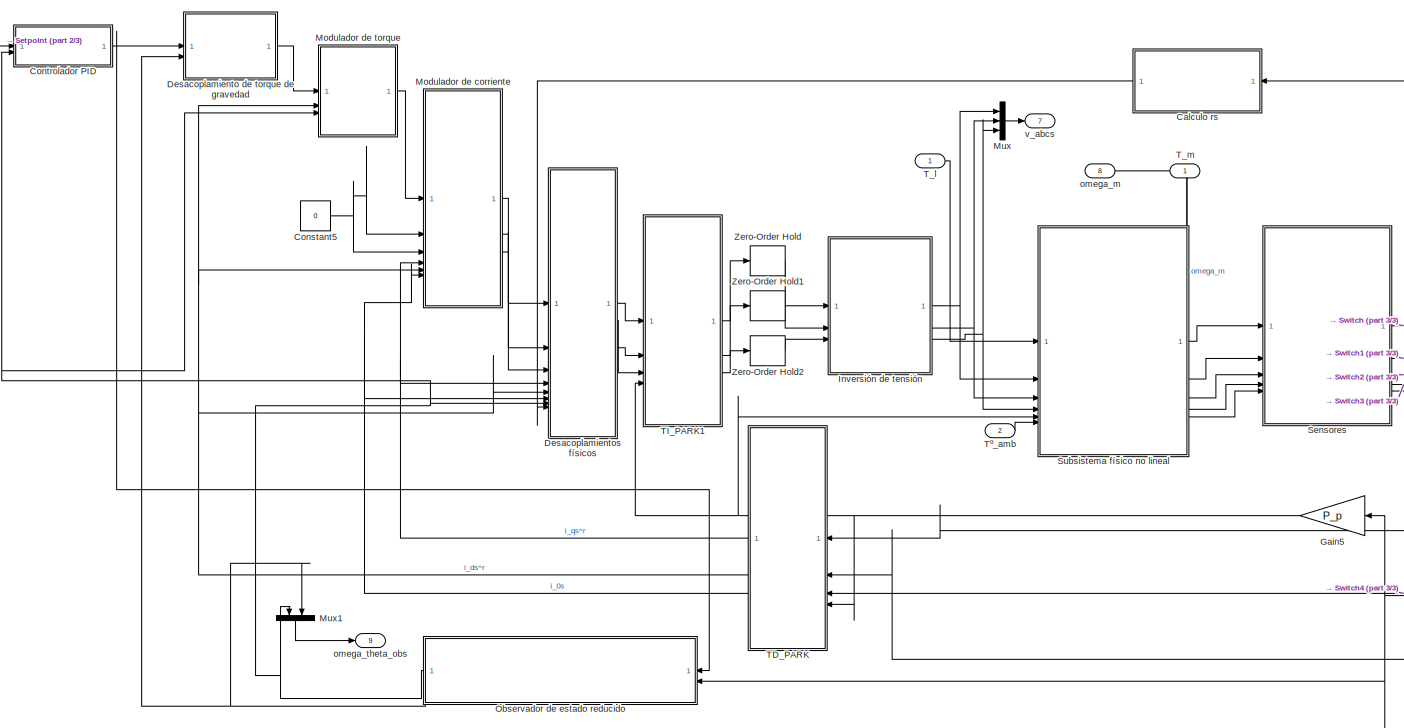
[diagram: 5.2.1 ids = 10 - part 1/3, center side, full height]
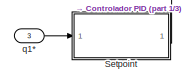
[diagram: 5.2.1 ids = 10 - part 2/3, top left region]
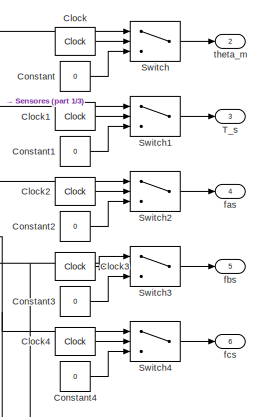
[diagram: 5.2.1 ids = 10 - part 3/3, middle right region]
BLOCK [SubSystem] 5.2.1 ids = 10
BLOCK [SubSystem] 5.2.1 ids = 10/Calculo rs
  NameLocation = top
BLOCK [Constant] 5.2.1 ids = 10/Calculo rs/Constant
BLOCK [Constant] 5.2.1 ids = 10/Calculo rs/Constant1
  Value = Temp_s_ref
BLOCK [Gain] 5.2.1 ids = 10/Calculo rs/Gain
  Gain = alpha_cu
  NameLocation = right
BLOCK [Gain] 5.2.1 ids = 10/Calculo rs/Gain1
  Gain = R_s_40
BLOCK [Sum] 5.2.1 ids = 10/Calculo rs/Sum
  Inputs = |++
BLOCK [Sum] 5.2.1 ids = 10/Calculo rs/Sum1
  Inputs = |-+
BLOCK [Inport] 5.2.1 ids = 10/Calculo rs/Ts
BLOCK [Outport] 5.2.1 ids = 10/Calculo rs/r_s
BLOCK [Reference] 5.2.1 ids = 10/Clock  REF=simulink_extras/Flip Flops/Clock
  SourceBlock = simulink_extras/Flip Flops/Clock
  SourceType = Digital clock
BLOCK [Reference] 5.2.1 ids = 10/Clock1  REF=simulink_extras/Flip Flops/Clock
  SourceBlock = simulink_extras/Flip Flops/Clock
  SourceType = Digital clock
BLOCK [Reference] 5.2.1 ids = 10/Clock2  REF=simulink_extras/Flip Flops/Clock
  SourceBlock = simulink_extras/Flip Flops/Clock
  SourceType = Digital clock
BLOCK [Reference] 5.2.1 ids = 10/Clock3  REF=simulink_extras/Flip Flops/Clock
  SourceBlock = simulink_extras/Flip Flops/Clock
  SourceType = Digital clock
BLOCK [Reference] 5.2.1 ids = 10/Clock4  REF=simulink_extras/Flip Flops/Clock
  SourceBlock = simulink_extras/Flip Flops/Clock
  SourceType = Digital clock
BLOCK [Constant] 5.2.1 ids = 10/Constant
  Value = 0
BLOCK [Constant] 5.2.1 ids = 10/Constant1
  Value = 0
BLOCK [Constant] 5.2.1 ids = 10/Constant2
  Value = 0
BLOCK [Constant] 5.2.1 ids = 10/Constant3
  Value = 0
BLOCK [Constant] 5.2.1 ids = 10/Constant4
  Value = 0
BLOCK [Constant] 5.2.1 ids = 10/Constant5
  Value = 0
BLOCK [SubSystem] 5.2.1 ids = 10/Controlador PID
BLOCK [DiscreteIntegrator] 5.2.1 ids = 10/Controlador PID/Discrete-Time Integrator
  ICPrevOutput = DiscIntNeverNeededParam
  ICPrevScaledInput = DiscIntNeverNeededParam
  InitialConditionSetting = Auto
  IntegratorMethod = Integration: Trapezoidal
  SampleTime = T_sample
BLOCK [DiscreteIntegrator] 5.2.1 ids = 10/Controlador PID/Discrete-Time Integrator1
  ICPrevOutput = DiscIntNeverNeededParam
  ICPrevScaledInput = DiscIntNeverNeededParam
  InitialConditionSetting = Auto
  IntegratorMethod = Integration: Trapezoidal
  SampleTime = T_sample
BLOCK [Gain] 5.2.1 ids = 10/Controlador PID/Gain
  Gain = ba
BLOCK [Gain] 5.2.1 ids = 10/Controlador PID/Gain1
  Gain = Ksa
BLOCK [Gain] 5.2.1 ids = 10/Controlador PID/Gain2
  Gain = Ksia
BLOCK [Sum] 5.2.1 ids = 10/Controlador PID/Sum
  Inputs = |+-
BLOCK [Sum] 5.2.1 ids = 10/Controlador PID/Sum1
  IconShape = rectangular
  Inputs = +++
BLOCK [Outport] 5.2.1 ids = 10/Controlador PID/Tm*
BLOCK [Inport] 5.2.1 ids = 10/Controlador PID/omega_m
  Port = 2
BLOCK [Inport] 5.2.1 ids = 10/Controlador PID/omega_m*
BLOCK [SubSystem] 5.2.1 ids = 10/Desacoplamiento de torque de gravedad
BLOCK [Gain] 5.2.1 ids = 10/Desacoplamiento de torque de gravedad/Gain
  Gain = k_l
BLOCK [Gain] 5.2.1 ids = 10/Desacoplamiento de torque de gravedad/Gain1
  Gain = 1/r
BLOCK [Trigonometry] 5.2.1 ids = 10/Desacoplamiento de torque de gravedad/Sin
BLOCK [Sum] 5.2.1 ids = 10/Desacoplamiento de torque de gravedad/Sum
  Inputs = |++
BLOCK [Inport] 5.2.1 ids = 10/Desacoplamiento de torque de gravedad/Tm*
BLOCK [Outport] 5.2.1 ids = 10/Desacoplamiento de torque de gravedad/Tm*'
BLOCK [Inport] 5.2.1 ids = 10/Desacoplamiento de torque de gravedad/theta_m
  Port = 2
BLOCK [SubSystem] 5.2.1 ids = 10/Desacoplamientos físicos
BLOCK [Constant] 5.2.1 ids = 10/Desacoplamientos físicos/Constant
  Value = lambda_m
BLOCK [Gain] 5.2.1 ids = 10/Desacoplamientos físicos/Gain
  Gain = P_p
BLOCK [Gain] 5.2.1 ids = 10/Desacoplamientos físicos/Gain1
  Gain = L_d
BLOCK [Gain] 5.2.1 ids = 10/Desacoplamientos físicos/Gain2
  Gain = L_q*P_p
BLOCK [Product] 5.2.1 ids = 10/Desacoplamientos físicos/Product
  NameLocation = right
BLOCK [Product] 5.2.1 ids = 10/Desacoplamientos físicos/Product1
  NameLocation = right
BLOCK [Product] 5.2.1 ids = 10/Desacoplamientos físicos/Product2
BLOCK [Product] 5.2.1 ids = 10/Desacoplamientos físicos/Product3
BLOCK [Product] 5.2.1 ids = 10/Desacoplamientos físicos/Product4
BLOCK [Sum] 5.2.1 ids = 10/Desacoplamientos físicos/Sum
  Inputs = |++
BLOCK [Sum] 5.2.1 ids = 10/Desacoplamientos físicos/Sum1
  Inputs = |++
BLOCK [Sum] 5.2.1 ids = 10/Desacoplamientos físicos/Sum2
  Inputs = ++|
  NameLocation = right
BLOCK [Sum] 5.2.1 ids = 10/Desacoplamientos físicos/Sum3
  Inputs = +-|
  NameLocation = right
BLOCK [Sum] 5.2.1 ids = 10/Desacoplamientos físicos/Sum4
  Inputs = |++
BLOCK [Sum] 5.2.1 ids = 10/Desacoplamientos físicos/Sum5
  Inputs = ++|
  NameLocation = left
BLOCK [Inport] 5.2.1 ids = 10/Desacoplamientos físicos/i_0s
  Port = 6
BLOCK [Inport] 5.2.1 ids = 10/Desacoplamientos físicos/i_ds
  Port = 5
BLOCK [Inport] 5.2.1 ids = 10/Desacoplamientos físicos/i_qs
  Port = 4
BLOCK [Inport] 5.2.1 ids = 10/Desacoplamientos físicos/omega_m
  Port = 7
BLOCK [Inport] 5.2.1 ids = 10/Desacoplamientos físicos/r_s
  Port = 8
BLOCK [Inport] 5.2.1 ids = 10/Desacoplamientos físicos/v_0s*
  Port = 3
BLOCK [Outport] 5.2.1 ids = 10/Desacoplamientos físicos/v_0s*'
  Port = 3
BLOCK [Inport] 5.2.1 ids = 10/Desacoplamientos físicos/v_ds*
  Port = 2
BLOCK [Outport] 5.2.1 ids = 10/Desacoplamientos físicos/v_ds*'
  Port = 2
BLOCK [Inport] 5.2.1 ids = 10/Desacoplamientos físicos/v_qs*
BLOCK [Outport] 5.2.1 ids = 10/Desacoplamientos físicos/v_qs*'
BLOCK [Gain] 5.2.1 ids = 10/Gain5
  Gain = P_p
  NameLocation = top
BLOCK [SubSystem] 5.2.1 ids = 10/Inversión de tensión
BLOCK [Saturate] 5.2.1 ids = 10/Inversión de tensión/Saturation
  LowerLimit = -19.596
  UpperLimit = 19.596
BLOCK [Saturate] 5.2.1 ids = 10/Inversión de tensión/Saturation1
  LowerLimit = -19.596
  UpperLimit = 19.596
BLOCK [Saturate] 5.2.1 ids = 10/Inversión de tensión/Saturation2
  LowerLimit = -19.596
  UpperLimit = 19.596
BLOCK [StateSpace] 5.2.1 ids = 10/Inversión de tensión/State-Space
  A = A_inversor
  B = B_inversor
  C = C_inversor
  InitialCondition = x0_inversor
BLOCK [StateSpace] 5.2.1 ids = 10/Inversión de tensión/State-Space1
  A = A_inversor
  B = B_inversor
  C = C_inversor
  InitialCondition = x0_inversor
BLOCK [StateSpace] 5.2.1 ids = 10/Inversión de tensión/State-Space2
  A = A_inversor
  B = B_inversor
  C = C_inversor
  InitialCondition = x0_inversor
BLOCK [Outport] 5.2.1 ids = 10/Inversión de tensión/v_as
BLOCK [Inport] 5.2.1 ids = 10/Inversión de tensión/v_as*
BLOCK [Outport] 5.2.1 ids = 10/Inversión de tensión/v_bs
  Port = 2
BLOCK [Inport] 5.2.1 ids = 10/Inversión de tensión/v_bs*
  Port = 2
BLOCK [Outport] 5.2.1 ids = 10/Inversión de tensión/v_cs
  Port = 3
BLOCK [Inport] 5.2.1 ids = 10/Inversión de tensión/v_cs*
  Port = 3
BLOCK [SubSystem] 5.2.1 ids = 10/Modulador de corriente
BLOCK [Gain] 5.2.1 ids = 10/Modulador de corriente/Gain
  Gain = 5000*L_q
BLOCK [Gain] 5.2.1 ids = 10/Modulador de corriente/Gain1
  Gain = 5000*L_d
BLOCK [Gain] 5.2.1 ids = 10/Modulador de corriente/Gain2
  Gain = 5000*L_ls
BLOCK [Inport] 5.2.1 ids = 10/Modulador de corriente/I_0s*
  Port = 3
BLOCK [Inport] 5.2.1 ids = 10/Modulador de corriente/I_ds*
  Port = 2
BLOCK [Inport] 5.2.1 ids = 10/Modulador de corriente/I_qs*
BLOCK [Sum] 5.2.1 ids = 10/Modulador de corriente/Sum
  IconShape = rectangular
  Inputs = +-
BLOCK [Sum] 5.2.1 ids = 10/Modulador de corriente/Sum1
  IconShape = rectangular
  Inputs = +-
BLOCK [Sum] 5.2.1 ids = 10/Modulador de corriente/Sum2
  IconShape = rectangular
  Inputs = +-
BLOCK [Inport] 5.2.1 ids = 10/Modulador de corriente/i_0s
  Port = 6
BLOCK [Inport] 5.2.1 ids = 10/Modulador de corriente/i_ds
  Port = 5
BLOCK [Inport] 5.2.1 ids = 10/Modulador de corriente/i_qs
  Port = 4
BLOCK [Outport] 5.2.1 ids = 10/Modulador de corriente/v_0s*
  Port = 3
BLOCK [Outport] 5.2.1 ids = 10/Modulador de corriente/v_ds*
  Port = 2
BLOCK [Outport] 5.2.1 ids = 10/Modulador de corriente/v_qs*
BLOCK [SubSystem] 5.2.1 ids = 10/Modulador de torque
BLOCK [Constant] 5.2.1 ids = 10/Modulador de torque/Constant
  NameLocation = left
  Value = lambda_m
BLOCK [Product] 5.2.1 ids = 10/Modulador de torque/Divide
  Inputs = /*
BLOCK [Gain] 5.2.1 ids = 10/Modulador de torque/Gain
  Gain = b_m + b_l/r^2
BLOCK [Gain] 5.2.1 ids = 10/Modulador de torque/Gain1
  Gain = 2/(3*P_p)
BLOCK [Gain] 5.2.1 ids = 10/Modulador de torque/Gain2
  Gain = L_d-L_q
BLOCK [Sum] 5.2.1 ids = 10/Modulador de torque/Sum
  Inputs = |++
BLOCK [Sum] 5.2.1 ids = 10/Modulador de torque/Sum1
  Inputs = ++|
  NameLocation = right
BLOCK [Inport] 5.2.1 ids = 10/Modulador de torque/Tm*
BLOCK [Inport] 5.2.1 ids = 10/Modulador de torque/ids
  Port = 2
BLOCK [Outport] 5.2.1 ids = 10/Modulador de torque/iq*
BLOCK [Inport] 5.2.1 ids = 10/Modulador de torque/omega_m
  Port = 3
BLOCK [Mux] 5.2.1 ids = 10/Mux
  DisplayOption = bar
  Inputs = 3
BLOCK [Mux] 5.2.1 ids = 10/Mux1
  DisplayOption = bar
  Inputs = 2
  NameLocation = left
BLOCK [SubSystem] 5.2.1 ids = 10/Observador de estado reducido
BLOCK [DiscreteIntegrator] 5.2.1 ids = 10/Observador de estado reducido/Discrete-Time Integrator
  ICPrevOutput = DiscIntNeverNeededParam
  ICPrevScaledInput = DiscIntNeverNeededParam
  InitialConditionSetting = Auto
  IntegratorMethod = Integration: Trapezoidal
  SampleTime = T_sample
BLOCK [DiscreteIntegrator] 5.2.1 ids = 10/Observador de estado reducido/Discrete-Time Integrator1
  ICPrevOutput = DiscIntNeverNeededParam
  ICPrevScaledInput = DiscIntNeverNeededParam
  InitialConditionSetting = Auto
  IntegratorMethod = Integration: Trapezoidal
  SampleTime = T_sample
BLOCK [DiscreteIntegrator] 5.2.1 ids = 10/Observador de estado reducido/Discrete-Time Integrator2
  ICPrevOutput = DiscIntNeverNeededParam
  ICPrevScaledInput = DiscIntNeverNeededParam
  InitialConditionSetting = Auto
  IntegratorMethod = Integration: Trapezoidal
  NameLocation = top
  SampleTime = T_sample
BLOCK [Gain] 5.2.1 ids = 10/Observador de estado reducido/Gain
  Gain = 1/(J_m+(J_l/r^2))
BLOCK [Gain] 5.2.1 ids = 10/Observador de estado reducido/Gain1
  Gain = K_e_theta
  NameLocation = top
BLOCK [Gain] 5.2.1 ids = 10/Observador de estado reducido/Gain2
  Gain = K_e_omega
  NameLocation = top
BLOCK [Gain] 5.2.1 ids = 10/Observador de estado reducido/Gain3
  Gain = K_e_int
  NameLocation = top
BLOCK [Sum] 5.2.1 ids = 10/Observador de estado reducido/Sum
  Inputs = |++
BLOCK [Sum] 5.2.1 ids = 10/Observador de estado reducido/Sum1
  Inputs = |++
BLOCK [Sum] 5.2.1 ids = 10/Observador de estado reducido/Sum2
  Inputs = |-+
BLOCK [Sum] 5.2.1 ids = 10/Observador de estado reducido/Sum3
  Inputs = |++
BLOCK [Inport] 5.2.1 ids = 10/Observador de estado reducido/T_m*
BLOCK [Outport] 5.2.1 ids = 10/Observador de estado reducido/omega_m_obs
BLOCK [Inport] 5.2.1 ids = 10/Observador de estado reducido/theta_m
  Port = 2
BLOCK [Outport] 5.2.1 ids = 10/Observador de estado reducido/theta_m_obs
  Port = 2
BLOCK [SubSystem] 5.2.1 ids = 10/Sensores
BLOCK [StateSpace] 5.2.1 ids = 10/Sensores/S_corrientes
  A = A_corrientes
  B = B_corrientes
  C = C_corrientes
  D = 0
  InitialCondition = x0_corrientes
BLOCK [StateSpace] 5.2.1 ids = 10/Sensores/S_corrientes1
  A = A_corrientes
  B = B_corrientes
  C = C_corrientes
  D = 0
  InitialCondition = x0_corrientes
BLOCK [StateSpace] 5.2.1 ids = 10/Sensores/S_corrientes2
  A = A_corrientes
  B = B_corrientes
  C = C_corrientes
  D = 0
  InitialCondition = x0_corrientes
BLOCK [StateSpace] 5.2.1 ids = 10/Sensores/S_posicion
  A = A_posicion
  B = B_posicion
  C = C_posicion
  D = 0
  InitialCondition = x0_posicion
BLOCK [StateSpace] 5.2.1 ids = 10/Sensores/S_temp
  A = A_temp
  B = B_temp
  C = C_temp
  D = 0
  InitialCondition = x0_temp
BLOCK [Inport] 5.2.1 ids = 10/Sensores/T_s
  Port = 2
BLOCK [Outport] 5.2.1 ids = 10/Sensores/T_s_medida
  Port = 2
BLOCK [Inport] 5.2.1 ids = 10/Sensores/i_as
  Port = 3
BLOCK [Outport] 5.2.1 ids = 10/Sensores/i_as_medida
  Port = 3
BLOCK [Inport] 5.2.1 ids = 10/Sensores/i_bs
  Port = 4
BLOCK [Outport] 5.2.1 ids = 10/Sensores/i_bs_medida
  Port = 4
BLOCK [Inport] 5.2.1 ids = 10/Sensores/i_cs
  Port = 5
BLOCK [Outport] 5.2.1 ids = 10/Sensores/i_cs_medida
  Port = 5
BLOCK [Inport] 5.2.1 ids = 10/Sensores/theta_m
BLOCK [Outport] 5.2.1 ids = 10/Sensores/theta_m_medida
BLOCK [SubSystem] 5.2.1 ids = 10/Setpoint
BLOCK [Delay] 5.2.1 ids = 10/Setpoint/Delay One Step
  DelayLength = 1
  InputPortMap = u0
BLOCK [Gain] 5.2.1 ids = 10/Setpoint/Gain
  Gain = r
BLOCK [Gain] 5.2.1 ids = 10/Setpoint/Gain1
  Gain = 1/T_sample
BLOCK [Sum] 5.2.1 ids = 10/Setpoint/Sum
  Inputs = |-+
BLOCK [Outport] 5.2.1 ids = 10/Setpoint/omega_m*
  Port = 2
BLOCK [Inport] 5.2.1 ids = 10/Setpoint/q1*
BLOCK [Outport] 5.2.1 ids = 10/Setpoint/theta_m*
BLOCK [SubSystem] 5.2.1 ids = 10/Subsistema físico no lineal 
BLOCK [SubSystem] 5.2.1 ids = 10/Subsistema físico no lineal /Subsistema electromagnético
BLOCK [Constant] 5.2.1 ids = 10/Subsistema físico no lineal /Subsistema electromagnético/Constant
  NameLocation = left
  Value = P_p
BLOCK [Constant] 5.2.1 ids = 10/Subsistema físico no lineal /Subsistema electromagnético/Constant1
  NameLocation = top
  Value = lambda_m
BLOCK [Constant] 5.2.1 ids = 10/Subsistema físico no lineal /Subsistema electromagnético/Constant2
  NameLocation = left
  Value = L_d-L_q
BLOCK [Constant] 5.2.1 ids = 10/Subsistema físico no lineal /Subsistema electromagnético/Constant4
  NameLocation = top
  Value = lambda_m
BLOCK [Gain] 5.2.1 ids = 10/Subsistema físico no lineal /Subsistema electromagnético/Gain
  Gain = 1/L_ls
BLOCK [Gain] 5.2.1 ids = 10/Subsistema físico no lineal /Subsistema electromagnético/Gain1
  Gain = 1/L_d
BLOCK [Gain] 5.2.1 ids = 10/Subsistema físico no lineal /Subsistema electromagnético/Gain2
  Gain = 1/L_q
BLOCK [Gain] 5.2.1 ids = 10/Subsistema físico no lineal /Subsistema electromagnético/Gain3
  Gain = L_d
  NameLocation = left
BLOCK [Gain] 5.2.1 ids = 10/Subsistema físico no lineal /Subsistema electromagnético/Gain4
  Gain = L_q
  NameLocation = left
BLOCK [Gain] 5.2.1 ids = 10/Subsistema físico no lineal /Subsistema electromagnético/Gain5
  Gain = (3/2)*P_p
  NameLocation = left
BLOCK [Integrator] 5.2.1 ids = 10/Subsistema físico no lineal /Subsistema electromagnético/Integrator1
BLOCK [Integrator] 5.2.1 ids = 10/Subsistema físico no lineal /Subsistema electromagnético/Integrator2
BLOCK [Integrator] 5.2.1 ids = 10/Subsistema físico no lineal /Subsistema electromagnético/Integrator3
BLOCK [Product] 5.2.1 ids = 10/Subsistema físico no lineal /Subsistema electromagnético/Product
  NameLocation = right
BLOCK [Product] 5.2.1 ids = 10/Subsistema físico no lineal /Subsistema electromagnético/Product1
  NameLocation = left
BLOCK [Product] 5.2.1 ids = 10/Subsistema físico no lineal /Subsistema electromagnético/Product2
  NameLocation = top
BLOCK [Product] 5.2.1 ids = 10/Subsistema físico no lineal /Subsistema electromagnético/Product3
  NameLocation = top
BLOCK [Product] 5.2.1 ids = 10/Subsistema físico no lineal /Subsistema electromagnético/Product4
  NameLocation = left
BLOCK [Product] 5.2.1 ids = 10/Subsistema físico no lineal /Subsistema electromagnético/Product5
  NameLocation = left
BLOCK [Product] 5.2.1 ids = 10/Subsistema físico no lineal /Subsistema electromagnético/Product6
  NameLocation = left
BLOCK [Product] 5.2.1 ids = 10/Subsistema físico no lineal /Subsistema electromagnético/Product7
  NameLocation = left
BLOCK [Sum] 5.2.1 ids = 10/Subsistema físico no lineal /Subsistema electromagnético/Sum1
  Inputs = |+-
BLOCK [Sum] 5.2.1 ids = 10/Subsistema físico no lineal /Subsistema electromagnético/Sum2
  Inputs = ++-
BLOCK [Sum] 5.2.1 ids = 10/Subsistema físico no lineal /Subsistema electromagnético/Sum3
  Inputs = -+-
BLOCK [Sum] 5.2.1 ids = 10/Subsistema físico no lineal /Subsistema electromagnético/Sum4
  Inputs = |++
  NameLocation = left
BLOCK [Sum] 5.2.1 ids = 10/Subsistema físico no lineal /Subsistema electromagnético/Sum5
  Inputs = |++
  NameLocation = left
BLOCK [Outport] 5.2.1 ids = 10/Subsistema físico no lineal /Subsistema electromagnético/T_m
  NameLocation = left
  Port = 4
BLOCK [Outport] 5.2.1 ids = 10/Subsistema físico no lineal /Subsistema electromagnético/i_0s^r
BLOCK [Outport] 5.2.1 ids = 10/Subsistema físico no lineal /Subsistema electromagnético/i_ds^r
  Port = 2
BLOCK [Outport] 5.2.1 ids = 10/Subsistema físico no lineal /Subsistema electromagnético/i_qs^r
  Port = 3
BLOCK [Inport] 5.2.1 ids = 10/Subsistema físico no lineal /Subsistema electromagnético/omega_m
  Port = 4
BLOCK [Inport] 5.2.1 ids = 10/Subsistema físico no lineal /Subsistema electromagnético/r_s
  Port = 5
BLOCK [Inport] 5.2.1 ids = 10/Subsistema físico no lineal /Subsistema electromagnético/v_0s^r
  Port = 3
BLOCK [Inport] 5.2.1 ids = 10/Subsistema físico no lineal /Subsistema electromagnético/v_ds^r
  Port = 2
BLOCK [Inport] 5.2.1 ids = 10/Subsistema físico no lineal /Subsistema electromagnético/v_qs^r
BLOCK [SubSystem] 5.2.1 ids = 10/Subsistema físico no lineal /Subsistema mecánico completo
BLOCK [Gain] 5.2.1 ids = 10/Subsistema físico no lineal /Subsistema mecánico completo/Gain
  Gain = b_m +( b_l / (r^2))
  NameLocation = top
BLOCK [Gain] 5.2.1 ids = 10/Subsistema físico no lineal /Subsistema mecánico completo/Gain1
  Gain = 1/r
BLOCK [Gain] 5.2.1 ids = 10/Subsistema físico no lineal /Subsistema mecánico completo/Gain2
  Gain = 1/(J_m + J_l / (r^2))
BLOCK [Sum] 5.2.1 ids = 10/Subsistema físico no lineal /Subsistema mecánico completo/Sum
  Inputs = -+-
BLOCK [Inport] 5.2.1 ids = 10/Subsistema físico no lineal /Subsistema mecánico completo/T_l
  Port = 2
BLOCK [Inport] 5.2.1 ids = 10/Subsistema físico no lineal /Subsistema mecánico completo/T_m
BLOCK [Integrator] 5.2.1 ids = 10/Subsistema físico no lineal /Subsistema mecánico completo/omega_m(0) = 0
BLOCK [Outport] 5.2.1 ids = 10/Subsistema físico no lineal /Subsistema mecánico completo/omega_m(t)
  Port = 2
BLOCK [Integrator] 5.2.1 ids = 10/Subsistema físico no lineal /Subsistema mecánico completo/theta_m(0) = 0
BLOCK [Outport] 5.2.1 ids = 10/Subsistema físico no lineal /Subsistema mecánico completo/theta_m(t)
BLOCK [SubSystem] 5.2.1 ids = 10/Subsistema físico no lineal /Subsistema térmico
BLOCK [Integrator] 5.2.1 ids = 10/Subsistema físico no lineal /Subsistema térmico/CI = 40ºC
  InitialCondition = 40
BLOCK [Constant] 5.2.1 ids = 10/Subsistema físico no lineal /Subsistema térmico/Constant
  NameLocation = right
BLOCK [Gain] 5.2.1 ids = 10/Subsistema físico no lineal /Subsistema térmico/Gain
  Gain = 1/C_ts
BLOCK [Gain] 5.2.1 ids = 10/Subsistema físico no lineal /Subsistema térmico/Gain1
  Gain = 2
BLOCK [Gain] 5.2.1 ids = 10/Subsistema físico no lineal /Subsistema térmico/Gain2
  Gain = 3/2
  NameLocation = right
BLOCK [Gain] 5.2.1 ids = 10/Subsistema físico no lineal /Subsistema térmico/Gain3
  Gain = 1/R_ts_amb
BLOCK [Gain] 5.2.1 ids = 10/Subsistema físico no lineal /Subsistema térmico/Gain4
  Gain = alpha_cu
BLOCK [Gain] 5.2.1 ids = 10/Subsistema físico no lineal /Subsistema térmico/Gain5
  Gain = R_s_40
BLOCK [Product] 5.2.1 ids = 10/Subsistema físico no lineal /Subsistema térmico/Product
BLOCK [Math] 5.2.1 ids = 10/Subsistema físico no lineal /Subsistema térmico/Square
  Operator = square
BLOCK [Math] 5.2.1 ids = 10/Subsistema físico no lineal /Subsistema térmico/Square1
  Operator = square
BLOCK [Math] 5.2.1 ids = 10/Subsistema físico no lineal /Subsistema térmico/Square2
  Operator = square
BLOCK [Sum] 5.2.1 ids = 10/Subsistema físico no lineal /Subsistema térmico/Sum
  IconShape = rectangular
  Inputs = +++
BLOCK [Sum] 5.2.1 ids = 10/Subsistema físico no lineal /Subsistema térmico/Sum1
  Inputs = |+-
BLOCK [Sum] 5.2.1 ids = 10/Subsistema físico no lineal /Subsistema térmico/Sum2
  Inputs = |-+
BLOCK [Sum] 5.2.1 ids = 10/Subsistema físico no lineal /Subsistema térmico/Sum3
  Inputs = |++
BLOCK [Outport] 5.2.1 ids = 10/Subsistema físico no lineal /Subsistema térmico/T_s
BLOCK [Inport] 5.2.1 ids = 10/Subsistema físico no lineal /Subsistema térmico/Tº_amb
  Port = 4
BLOCK [Inport] 5.2.1 ids = 10/Subsistema físico no lineal /Subsistema térmico/i_0s^r
  Port = 3
BLOCK [Inport] 5.2.1 ids = 10/Subsistema físico no lineal /Subsistema térmico/i_ds^r
  Port = 2
BLOCK [Inport] 5.2.1 ids = 10/Subsistema físico no lineal /Subsistema térmico/i_qs^r
BLOCK [Outport] 5.2.1 ids = 10/Subsistema físico no lineal /Subsistema térmico/r_s
  Port = 2
BLOCK [SubSystem] 5.2.1 ids = 10/Subsistema físico no lineal /TD_PARK
  ErrorFcn = Stateflow.Translate.translate
  LibrarySourceBlock = simulink/User-Defined\nFunctions/MATLAB Function
  PermitHierarchicalResolution = ExplicitOnly
  SFBlockType = MATLAB Function
  TreatAsAtomicUnit = on
BLOCK [Demux] 5.2.1 ids = 10/Subsistema físico no lineal /TD_PARK/ Demux 
  Outputs = 1
BLOCK [S-Function] 5.2.1 ids = 10/Subsistema físico no lineal /TD_PARK/ SFunction 
  EnableBusSupport = on
  FunctionName = sf_sfun
  PortCounts = [4 4]
  SFcnIsStateOwnerBlock = off
  SFunctionDeploymentMode = off
  Tag = Stateflow S-Function 40
BLOCK [Terminator] 5.2.1 ids = 10/Subsistema físico no lineal /TD_PARK/ Terminator 
BLOCK [Outport] 5.2.1 ids = 10/Subsistema físico no lineal /TD_PARK/f0s
  Port = 3
BLOCK [Inport] 5.2.1 ids = 10/Subsistema físico no lineal /TD_PARK/fas
BLOCK [Inport] 5.2.1 ids = 10/Subsistema físico no lineal /TD_PARK/fbs
  Port = 2
BLOCK [Inport] 5.2.1 ids = 10/Subsistema físico no lineal /TD_PARK/fcs
  Port = 3
BLOCK [Outport] 5.2.1 ids = 10/Subsistema físico no lineal /TD_PARK/fds
  Port = 2
BLOCK [Outport] 5.2.1 ids = 10/Subsistema físico no lineal /TD_PARK/fqs
BLOCK [Inport] 5.2.1 ids = 10/Subsistema físico no lineal /TD_PARK/theta_r
  Port = 4
BLOCK [SubSystem] 5.2.1 ids = 10/Subsistema físico no lineal /TI_PARK
  ErrorFcn = Stateflow.Translate.translate
  LibrarySourceBlock = simulink/User-Defined\nFunctions/MATLAB Function
  PermitHierarchicalResolution = ExplicitOnly
  SFBlockType = MATLAB Function
  TreatAsAtomicUnit = on
BLOCK [Demux] 5.2.1 ids = 10/Subsistema físico no lineal /TI_PARK/ Demux 
  Outputs = 1
BLOCK [S-Function] 5.2.1 ids = 10/Subsistema físico no lineal /TI_PARK/ SFunction 
  EnableBusSupport = on
  FunctionName = sf_sfun
  PortCounts = [4 4]
  SFcnIsStateOwnerBlock = off
  SFunctionDeploymentMode = off
  Tag = Stateflow S-Function 43
BLOCK [Terminator] 5.2.1 ids = 10/Subsistema físico no lineal /TI_PARK/ Terminator 
BLOCK [Inport] 5.2.1 ids = 10/Subsistema físico no lineal /TI_PARK/f0s
  Port = 3
BLOCK [Outport] 5.2.1 ids = 10/Subsistema físico no lineal /TI_PARK/fas
BLOCK [Outport] 5.2.1 ids = 10/Subsistema físico no lineal /TI_PARK/fbs
  Port = 2
BLOCK [Outport] 5.2.1 ids = 10/Subsistema físico no lineal /TI_PARK/fcs
  Port = 3
BLOCK [Inport] 5.2.1 ids = 10/Subsistema físico no lineal /TI_PARK/fds
  Port = 2
BLOCK [Inport] 5.2.1 ids = 10/Subsistema físico no lineal /TI_PARK/fqs
BLOCK [Inport] 5.2.1 ids = 10/Subsistema físico no lineal /TI_PARK/theta_r
  Port = 4
BLOCK [Inport] 5.2.1 ids = 10/Subsistema físico no lineal /T_l
BLOCK [Outport] 5.2.1 ids = 10/Subsistema físico no lineal /T_m
  NameLocation = top
  Port = 7
BLOCK [Outport] 5.2.1 ids = 10/Subsistema físico no lineal /T_s
  NameLocation = top
  Port = 2
BLOCK [Inport] 5.2.1 ids = 10/Subsistema físico no lineal /Tº_amb
  Port = 6
BLOCK [Outport] 5.2.1 ids = 10/Subsistema físico no lineal /i_as
  Port = 3
BLOCK [Outport] 5.2.1 ids = 10/Subsistema físico no lineal /i_bs
  Port = 4
BLOCK [Outport] 5.2.1 ids = 10/Subsistema físico no lineal /i_cs
  Port = 5
BLOCK [Outport] 5.2.1 ids = 10/Subsistema físico no lineal /omega_m
  Port = 6
BLOCK [Outport] 5.2.1 ids = 10/Subsistema físico no lineal /theta_m
BLOCK [Inport] 5.2.1 ids = 10/Subsistema físico no lineal /theta_r
  Port = 5
BLOCK [Inport] 5.2.1 ids = 10/Subsistema físico no lineal /v_as
  Port = 2
BLOCK [Inport] 5.2.1 ids = 10/Subsistema físico no lineal /v_bs
  Port = 3
BLOCK [Inport] 5.2.1 ids = 10/Subsistema físico no lineal /v_cs
  Port = 4
BLOCK [Switch] 5.2.1 ids = 10/Switch
  Criteria = u2 > Threshold
  InputSameDT = off
  SaturateOnIntegerOverflow = off
BLOCK [Switch] 5.2.1 ids = 10/Switch1
  Criteria = u2 > Threshold
  InputSameDT = off
  SaturateOnIntegerOverflow = off
BLOCK [Switch] 5.2.1 ids = 10/Switch2
  Criteria = u2 > Threshold
  InputSameDT = off
  SaturateOnIntegerOverflow = off
BLOCK [Switch] 5.2.1 ids = 10/Switch3
  Criteria = u2 > Threshold
  InputSameDT = off
  SaturateOnIntegerOverflow = off
BLOCK [Switch] 5.2.1 ids = 10/Switch4
  Criteria = u2 > Threshold
  InputSameDT = off
  SaturateOnIntegerOverflow = off
BLOCK [SubSystem] 5.2.1 ids = 10/TD_PARK
  ErrorFcn = Stateflow.Translate.translate
  LibrarySourceBlock = simulink/User-Defined\nFunctions/MATLAB Function
  NameLocation = top
  PermitHierarchicalResolution = ExplicitOnly
  SFBlockType = MATLAB Function
  TreatAsAtomicUnit = on
BLOCK [Demux] 5.2.1 ids = 10/TD_PARK/ Demux 
  Outputs = 1
BLOCK [S-Function] 5.2.1 ids = 10/TD_PARK/ SFunction 
  EnableBusSupport = on
  FunctionName = sf_sfun
  PortCounts = [4 4]
  SFcnIsStateOwnerBlock = off
  SFunctionDeploymentMode = off
  Tag = Stateflow S-Function 44
BLOCK [Terminator] 5.2.1 ids = 10/TD_PARK/ Terminator 
BLOCK [Outport] 5.2.1 ids = 10/TD_PARK/f0s
  Port = 3
BLOCK [Inport] 5.2.1 ids = 10/TD_PARK/fas
BLOCK [Inport] 5.2.1 ids = 10/TD_PARK/fbs
  Port = 2
BLOCK [Inport] 5.2.1 ids = 10/TD_PARK/fcs
  Port = 3
BLOCK [Outport] 5.2.1 ids = 10/TD_PARK/fds
  Port = 2
BLOCK [Outport] 5.2.1 ids = 10/TD_PARK/fqs
BLOCK [Inport] 5.2.1 ids = 10/TD_PARK/theta_r
  Port = 4
BLOCK [SubSystem] 5.2.1 ids = 10/TI_PARK1
  ErrorFcn = Stateflow.Translate.translate
  LibrarySourceBlock = simulink/User-Defined\nFunctions/MATLAB Function
  PermitHierarchicalResolution = ExplicitOnly
  SFBlockType = MATLAB Function
  TreatAsAtomicUnit = on
BLOCK [Demux] 5.2.1 ids = 10/TI_PARK1/ Demux 
  Outputs = 1
BLOCK [S-Function] 5.2.1 ids = 10/TI_PARK1/ SFunction 
  EnableBusSupport = on
  FunctionName = sf_sfun
  PortCounts = [4 4]
  SFcnIsStateOwnerBlock = off
  SFunctionDeploymentMode = off
  Tag = Stateflow S-Function 45
BLOCK [Terminator] 5.2.1 ids = 10/TI_PARK1/ Terminator 
BLOCK [Inport] 5.2.1 ids = 10/TI_PARK1/f0s
  Port = 3
BLOCK [Outport] 5.2.1 ids = 10/TI_PARK1/fas
BLOCK [Outport] 5.2.1 ids = 10/TI_PARK1/fbs
  Port = 2
BLOCK [Outport] 5.2.1 ids = 10/TI_PARK1/fcs
  Port = 3
BLOCK [Inport] 5.2.1 ids = 10/TI_PARK1/fds
  Port = 2
BLOCK [Inport] 5.2.1 ids = 10/TI_PARK1/fqs
BLOCK [Inport] 5.2.1 ids = 10/TI_PARK1/theta_r
  Port = 4
BLOCK [Inport] 5.2.1 ids = 10/T_l
BLOCK [Outport] 5.2.1 ids = 10/T_m
BLOCK [Outport] 5.2.1 ids = 10/T_s
  Port = 3
BLOCK [Inport] 5.2.1 ids = 10/Tº_amb
  Port = 2
BLOCK [ZeroOrderHold] 5.2.1 ids = 10/Zero-Order Hold
  SampleTime = T_sample
BLOCK [ZeroOrderHold] 5.2.1 ids = 10/Zero-Order Hold1
  SampleTime = T_sample
BLOCK [ZeroOrderHold] 5.2.1 ids = 10/Zero-Order Hold2
  SampleTime = T_sample
BLOCK [Outport] 5.2.1 ids = 10/fas
  Port = 4
BLOCK [Outport] 5.2.1 ids = 10/fbs
  Port = 5
BLOCK [Outport] 5.2.1 ids = 10/fcs
  Port = 6
BLOCK [Outport] 5.2.1 ids = 10/omega_m
  Port = 8
BLOCK [Outport] 5.2.1 ids = 10/omega_theta_obs
  Port = 9
BLOCK [Inport] 5.2.1 ids = 10/q1*
  Port = 3
BLOCK [Outport] 5.2.1 ids = 10/theta_m 
  Port = 2
BLOCK [Outport] 5.2.1 ids = 10/v_abcs
  Port = 7
BLOCK [SubSystem] 5.2.1 ids = 2
  Commented = on
BLOCK [SubSystem] 5.2.1 ids = 2/Calculo rs
  NameLocation = top
BLOCK [Constant] 5.2.1 ids = 2/Calculo rs/Constant
BLOCK [Constant] 5.2.1 ids = 2/Calculo rs/Constant1
  Value = Temp_s_ref
BLOCK [Gain] 5.2.1 ids = 2/Calculo rs/Gain
  Gain = alpha_cu
  NameLocation = right
BLOCK [Gain] 5.2.1 ids = 2/Calculo rs/Gain1
  Gain = R_s_40
BLOCK [Sum] 5.2.1 ids = 2/Calculo rs/Sum
  Inputs = |++
BLOCK [Sum] 5.2.1 ids = 2/Calculo rs/Sum1
  Inputs = |-+
BLOCK [Inport] 5.2.1 ids = 2/Calculo rs/Ts
BLOCK [Outport] 5.2.1 ids = 2/Calculo rs/r_s
BLOCK [Constant] 5.2.1 ids = 2/Constant5
  Value = 0
BLOCK [SubSystem] 5.2.1 ids = 2/Controlador PID
BLOCK [Gain] 5.2.1 ids = 2/Controlador PID/Gain
  Gain = ba
BLOCK [Gain] 5.2.1 ids = 2/Controlador PID/Gain1
  Gain = Ksa
BLOCK [Gain] 5.2.1 ids = 2/Controlador PID/Gain2
  Gain = Ksia
BLOCK [Integrator] 5.2.1 ids = 2/Controlador PID/Integrator
BLOCK [Integrator] 5.2.1 ids = 2/Controlador PID/Integrator1
BLOCK [Sum] 5.2.1 ids = 2/Controlador PID/Sum
  Inputs = |+-
BLOCK [Sum] 5.2.1 ids = 2/Controlador PID/Sum1
  IconShape = rectangular
  Inputs = +++
BLOCK [Outport] 5.2.1 ids = 2/Controlador PID/Tm*
BLOCK [Inport] 5.2.1 ids = 2/Controlador PID/omega_m
  Port = 2
BLOCK [Inport] 5.2.1 ids = 2/Controlador PID/omega_m*
BLOCK [SubSystem] 5.2.1 ids = 2/Desacoplamiento de torque de gravedad
BLOCK [Gain] 5.2.1 ids = 2/Desacoplamiento de torque de gravedad/Gain
  Gain = k_l
BLOCK [Gain] 5.2.1 ids = 2/Desacoplamiento de torque de gravedad/Gain1
  Gain = 1/r
BLOCK [Trigonometry] 5.2.1 ids = 2/Desacoplamiento de torque de gravedad/Sin
BLOCK [Sum] 5.2.1 ids = 2/Desacoplamiento de torque de gravedad/Sum
  Inputs = |++
BLOCK [Inport] 5.2.1 ids = 2/Desacoplamiento de torque de gravedad/Tm*
BLOCK [Outport] 5.2.1 ids = 2/Desacoplamiento de torque de gravedad/Tm*'
BLOCK [Inport] 5.2.1 ids = 2/Desacoplamiento de torque de gravedad/theta_m
  Port = 2
BLOCK [SubSystem] 5.2.1 ids = 2/Desacoplamientos físicos
BLOCK [Constant] 5.2.1 ids = 2/Desacoplamientos físicos/Constant
  Value = lambda_m
BLOCK [Gain] 5.2.1 ids = 2/Desacoplamientos físicos/Gain
  Gain = P_p
BLOCK [Gain] 5.2.1 ids = 2/Desacoplamientos físicos/Gain1
  Gain = L_d
BLOCK [Gain] 5.2.1 ids = 2/Desacoplamientos físicos/Gain2
  Gain = L_q*P_p
BLOCK [Product] 5.2.1 ids = 2/Desacoplamientos físicos/Product
  NameLocation = right
BLOCK [Product] 5.2.1 ids = 2/Desacoplamientos físicos/Product1
  NameLocation = right
BLOCK [Product] 5.2.1 ids = 2/Desacoplamientos físicos/Product2
BLOCK [Product] 5.2.1 ids = 2/Desacoplamientos físicos/Product3
BLOCK [Product] 5.2.1 ids = 2/Desacoplamientos físicos/Product4
BLOCK [Sum] 5.2.1 ids = 2/Desacoplamientos físicos/Sum
  Inputs = |++
BLOCK [Sum] 5.2.1 ids = 2/Desacoplamientos físicos/Sum1
  Inputs = |++
BLOCK [Sum] 5.2.1 ids = 2/Desacoplamientos físicos/Sum2
  Inputs = ++|
  NameLocation = right
BLOCK [Sum] 5.2.1 ids = 2/Desacoplamientos físicos/Sum3
  Inputs = +-|
  NameLocation = right
BLOCK [Sum] 5.2.1 ids = 2/Desacoplamientos físicos/Sum4
  Inputs = |++
BLOCK [Sum] 5.2.1 ids = 2/Desacoplamientos físicos/Sum5
  Inputs = ++|
  NameLocation = left
BLOCK [Inport] 5.2.1 ids = 2/Desacoplamientos físicos/i_0s
  Port = 6
BLOCK [Inport] 5.2.1 ids = 2/Desacoplamientos físicos/i_ds
  Port = 5
BLOCK [Inport] 5.2.1 ids = 2/Desacoplamientos físicos/i_qs
  Port = 4
BLOCK [Inport] 5.2.1 ids = 2/Desacoplamientos físicos/omega_m
  Port = 7
BLOCK [Inport] 5.2.1 ids = 2/Desacoplamientos físicos/r_s
  Port = 8
BLOCK [Inport] 5.2.1 ids = 2/Desacoplamientos físicos/v_0s*
  Port = 3
BLOCK [Outport] 5.2.1 ids = 2/Desacoplamientos físicos/v_0s*'
  Port = 3
BLOCK [Inport] 5.2.1 ids = 2/Desacoplamientos físicos/v_ds*
  Port = 2
BLOCK [Outport] 5.2.1 ids = 2/Desacoplamientos físicos/v_ds*'
  Port = 2
BLOCK [Inport] 5.2.1 ids = 2/Desacoplamientos físicos/v_qs*
BLOCK [Outport] 5.2.1 ids = 2/Desacoplamientos físicos/v_qs*'
BLOCK [Gain] 5.2.1 ids = 2/Gain5
  Gain = P_p
  NameLocation = top
BLOCK [SubSystem] 5.2.1 ids = 2/Inversión de tensión
BLOCK [Gain] 5.2.1 ids = 2/Inversión de tensión/Gain
BLOCK [Gain] 5.2.1 ids = 2/Inversión de tensión/Gain1
BLOCK [Gain] 5.2.1 ids = 2/Inversión de tensión/Gain2
BLOCK [Saturate] 5.2.1 ids = 2/Inversión de tensión/Saturation
  Commented = on
  LowerLimit = -20
  UpperLimit = 20
BLOCK [Saturate] 5.2.1 ids = 2/Inversión de tensión/Saturation1
  Commented = on
  LowerLimit = -20
  UpperLimit = 20
BLOCK [Saturate] 5.2.1 ids = 2/Inversión de tensión/Saturation2
  Commented = on
  LowerLimit = -20
  UpperLimit = 20
BLOCK [Outport] 5.2.1 ids = 2/Inversión de tensión/v_as
BLOCK [Inport] 5.2.1 ids = 2/Inversión de tensión/v_as*
BLOCK [Outport] 5.2.1 ids = 2/Inversión de tensión/v_bs
  Port = 2
BLOCK [Inport] 5.2.1 ids = 2/Inversión de tensión/v_bs*
  Port = 2
BLOCK [Outport] 5.2.1 ids = 2/Inversión de tensión/v_cs
  Port = 3
BLOCK [Inport] 5.2.1 ids = 2/Inversión de tensión/v_cs*
  Port = 3
BLOCK [SubSystem] 5.2.1 ids = 2/Modulador de corriente
BLOCK [Gain] 5.2.1 ids = 2/Modulador de corriente/Gain
  Gain = 5000*L_q
BLOCK [Gain] 5.2.1 ids = 2/Modulador de corriente/Gain1
  Gain = 5000*L_d
BLOCK [Gain] 5.2.1 ids = 2/Modulador de corriente/Gain2
  Gain = 5000*L_ls
BLOCK [Inport] 5.2.1 ids = 2/Modulador de corriente/I_0s*
  Port = 3
BLOCK [Inport] 5.2.1 ids = 2/Modulador de corriente/I_ds*
  Port = 2
BLOCK [Inport] 5.2.1 ids = 2/Modulador de corriente/I_qs*
BLOCK [Sum] 5.2.1 ids = 2/Modulador de corriente/Sum
  IconShape = rectangular
  Inputs = +-
BLOCK [Sum] 5.2.1 ids = 2/Modulador de corriente/Sum1
  IconShape = rectangular
  Inputs = +-
BLOCK [Sum] 5.2.1 ids = 2/Modulador de corriente/Sum2
  IconShape = rectangular
  Inputs = +-
BLOCK [Inport] 5.2.1 ids = 2/Modulador de corriente/i_0s
  Port = 6
BLOCK [Inport] 5.2.1 ids = 2/Modulador de corriente/i_ds
  Port = 5
BLOCK [Inport] 5.2.1 ids = 2/Modulador de corriente/i_qs
  Port = 4
BLOCK [Outport] 5.2.1 ids = 2/Modulador de corriente/v_0s*
  Port = 3
BLOCK [Outport] 5.2.1 ids = 2/Modulador de corriente/v_ds*
  Port = 2
BLOCK [Outport] 5.2.1 ids = 2/Modulador de corriente/v_qs*
BLOCK [SubSystem] 5.2.1 ids = 2/Modulador de torque
BLOCK [Constant] 5.2.1 ids = 2/Modulador de torque/Constant
  NameLocation = left
  Value = lambda_m
BLOCK [Product] 5.2.1 ids = 2/Modulador de torque/Divide
  Inputs = /*
BLOCK [Gain] 5.2.1 ids = 2/Modulador de torque/Gain
  Gain = b_m + b_l/r^2
BLOCK [Gain] 5.2.1 ids = 2/Modulador de torque/Gain1
  Gain = 2/(3*P_p)
BLOCK [Gain] 5.2.1 ids = 2/Modulador de torque/Gain2
  Gain = L_d-L_q
BLOCK [Sum] 5.2.1 ids = 2/Modulador de torque/Sum
  Inputs = |++
BLOCK [Sum] 5.2.1 ids = 2/Modulador de torque/Sum1
  Inputs = ++|
  NameLocation = right
BLOCK [Inport] 5.2.1 ids = 2/Modulador de torque/Tm*
BLOCK [Inport] 5.2.1 ids = 2/Modulador de torque/ids
  Port = 2
BLOCK [Outport] 5.2.1 ids = 2/Modulador de torque/iq*
BLOCK [Inport] 5.2.1 ids = 2/Modulador de torque/omega_m
  Port = 3
BLOCK [Mux] 5.2.1 ids = 2/Mux
  DisplayOption = bar
  Inputs = 3
BLOCK [SubSystem] 5.2.1 ids = 2/Observador de estado reducido
BLOCK [Gain] 5.2.1 ids = 2/Observador de estado reducido/Gain
  Gain = 1/(J_m+(J_l/r^2))
BLOCK [Gain] 5.2.1 ids = 2/Observador de estado reducido/Gain1
  Gain = K_e_theta
  NameLocation = top
BLOCK [Gain] 5.2.1 ids = 2/Observador de estado reducido/Gain2
  Gain = K_e_omega
  NameLocation = top
BLOCK [Integrator] 5.2.1 ids = 2/Observador de estado reducido/Integrator
BLOCK [Integrator] 5.2.1 ids = 2/Observador de estado reducido/Integrator1
BLOCK [Sum] 5.2.1 ids = 2/Observador de estado reducido/Sum
  Inputs = |++
BLOCK [Sum] 5.2.1 ids = 2/Observador de estado reducido/Sum1
  Inputs = |++
BLOCK [Sum] 5.2.1 ids = 2/Observador de estado reducido/Sum2
  Inputs = |-+
BLOCK [Inport] 5.2.1 ids = 2/Observador de estado reducido/T_m*
BLOCK [Outport] 5.2.1 ids = 2/Observador de estado reducido/omega_m_obs
BLOCK [Inport] 5.2.1 ids = 2/Observador de estado reducido/theta_m
  Port = 2
BLOCK [Outport] 5.2.1 ids = 2/Observador de estado reducido/theta_m_obs
  Port = 2
BLOCK [SubSystem] 5.2.1 ids = 2/Sensores
BLOCK [Gain] 5.2.1 ids = 2/Sensores/Gain
BLOCK [Gain] 5.2.1 ids = 2/Sensores/Gain1
BLOCK [Gain] 5.2.1 ids = 2/Sensores/Gain2
BLOCK [Gain] 5.2.1 ids = 2/Sensores/Gain3
BLOCK [Gain] 5.2.1 ids = 2/Sensores/Gain4
BLOCK [Inport] 5.2.1 ids = 2/Sensores/T_s
  Port = 2
BLOCK [Outport] 5.2.1 ids = 2/Sensores/T_s_medida
  Port = 2
BLOCK [Inport] 5.2.1 ids = 2/Sensores/i_as
  Port = 3
BLOCK [Outport] 5.2.1 ids = 2/Sensores/i_as_medida
  Port = 3
BLOCK [Inport] 5.2.1 ids = 2/Sensores/i_bs
  Port = 4
BLOCK [Outport] 5.2.1 ids = 2/Sensores/i_bs_medida
  Port = 4
BLOCK [Inport] 5.2.1 ids = 2/Sensores/i_cs
  Port = 5
BLOCK [Outport] 5.2.1 ids = 2/Sensores/i_cs_medida
  Port = 5
BLOCK [Inport] 5.2.1 ids = 2/Sensores/theta_m
BLOCK [Outport] 5.2.1 ids = 2/Sensores/theta_m_medida
BLOCK [SubSystem] 5.2.1 ids = 2/Setpoint
BLOCK [Derivative] 5.2.1 ids = 2/Setpoint/Derivative
BLOCK [Gain] 5.2.1 ids = 2/Setpoint/Gain
  Gain = r
BLOCK [Outport] 5.2.1 ids = 2/Setpoint/omega_m*
  Port = 2
BLOCK [Inport] 5.2.1 ids = 2/Setpoint/q1*
BLOCK [Outport] 5.2.1 ids = 2/Setpoint/theta_m*
BLOCK [SubSystem] 5.2.1 ids = 2/Subsistema físico no lineal 
BLOCK [SubSystem] 5.2.1 ids = 2/Subsistema físico no lineal /Subsistema electromagnético
BLOCK [Constant] 5.2.1 ids = 2/Subsistema físico no lineal /Subsistema electromagnético/Constant
  NameLocation = left
  Value = P_p
BLOCK [Constant] 5.2.1 ids = 2/Subsistema físico no lineal /Subsistema electromagnético/Constant1
  NameLocation = top
  Value = lambda_m
BLOCK [Constant] 5.2.1 ids = 2/Subsistema físico no lineal /Subsistema electromagnético/Constant2
  NameLocation = left
  Value = L_d-L_q
BLOCK [Constant] 5.2.1 ids = 2/Subsistema físico no lineal /Subsistema electromagnético/Constant4
  NameLocation = top
  Value = lambda_m
BLOCK [Gain] 5.2.1 ids = 2/Subsistema físico no lineal /Subsistema electromagnético/Gain
  Gain = 1/L_ls
BLOCK [Gain] 5.2.1 ids = 2/Subsistema físico no lineal /Subsistema electromagnético/Gain1
  Gain = 1/L_d
BLOCK [Gain] 5.2.1 ids = 2/Subsistema físico no lineal /Subsistema electromagnético/Gain2
  Gain = 1/L_q
BLOCK [Gain] 5.2.1 ids = 2/Subsistema físico no lineal /Subsistema electromagnético/Gain3
  Gain = L_d
  NameLocation = left
BLOCK [Gain] 5.2.1 ids = 2/Subsistema físico no lineal /Subsistema electromagnético/Gain4
  Gain = L_q
  NameLocation = left
BLOCK [Gain] 5.2.1 ids = 2/Subsistema físico no lineal /Subsistema electromagnético/Gain5
  Gain = (3/2)*P_p
  NameLocation = left
BLOCK [Integrator] 5.2.1 ids = 2/Subsistema físico no lineal /Subsistema electromagnético/Integrator1
BLOCK [Integrator] 5.2.1 ids = 2/Subsistema físico no lineal /Subsistema electromagnético/Integrator2
BLOCK [Integrator] 5.2.1 ids = 2/Subsistema físico no lineal /Subsistema electromagnético/Integrator3
BLOCK [Product] 5.2.1 ids = 2/Subsistema físico no lineal /Subsistema electromagnético/Product
  NameLocation = right
BLOCK [Product] 5.2.1 ids = 2/Subsistema físico no lineal /Subsistema electromagnético/Product1
  NameLocation = left
BLOCK [Product] 5.2.1 ids = 2/Subsistema físico no lineal /Subsistema electromagnético/Product2
  NameLocation = top
BLOCK [Product] 5.2.1 ids = 2/Subsistema físico no lineal /Subsistema electromagnético/Product3
  NameLocation = top
BLOCK [Product] 5.2.1 ids = 2/Subsistema físico no lineal /Subsistema electromagnético/Product4
  NameLocation = left
BLOCK [Product] 5.2.1 ids = 2/Subsistema físico no lineal /Subsistema electromagnético/Product5
  NameLocation = left
BLOCK [Product] 5.2.1 ids = 2/Subsistema físico no lineal /Subsistema electromagnético/Product6
  NameLocation = left
BLOCK [Product] 5.2.1 ids = 2/Subsistema físico no lineal /Subsistema electromagnético/Product7
  NameLocation = left
BLOCK [Sum] 5.2.1 ids = 2/Subsistema físico no lineal /Subsistema electromagnético/Sum1
  Inputs = |+-
BLOCK [Sum] 5.2.1 ids = 2/Subsistema físico no lineal /Subsistema electromagnético/Sum2
  Inputs = ++-
BLOCK [Sum] 5.2.1 ids = 2/Subsistema físico no lineal /Subsistema electromagnético/Sum3
  Inputs = -+-
BLOCK [Sum] 5.2.1 ids = 2/Subsistema físico no lineal /Subsistema electromagnético/Sum4
  Inputs = |++
  NameLocation = left
BLOCK [Sum] 5.2.1 ids = 2/Subsistema físico no lineal /Subsistema electromagnético/Sum5
  Inputs = |++
  NameLocation = left
BLOCK [Outport] 5.2.1 ids = 2/Subsistema físico no lineal /Subsistema electromagnético/T_m
  NameLocation = left
  Port = 4
BLOCK [Outport] 5.2.1 ids = 2/Subsistema físico no lineal /Subsistema electromagnético/i_0s^r
BLOCK [Outport] 5.2.1 ids = 2/Subsistema físico no lineal /Subsistema electromagnético/i_ds^r
  Port = 2
BLOCK [Outport] 5.2.1 ids = 2/Subsistema físico no lineal /Subsistema electromagnético/i_qs^r
  Port = 3
BLOCK [Inport] 5.2.1 ids = 2/Subsistema físico no lineal /Subsistema electromagnético/omega_m
  Port = 4
BLOCK [Inport] 5.2.1 ids = 2/Subsistema físico no lineal /Subsistema electromagnético/r_s
  Port = 5
BLOCK [Inport] 5.2.1 ids = 2/Subsistema físico no lineal /Subsistema electromagnético/v_0s^r
  Port = 3
BLOCK [Inport] 5.2.1 ids = 2/Subsistema físico no lineal /Subsistema electromagnético/v_ds^r
  Port = 2
BLOCK [Inport] 5.2.1 ids = 2/Subsistema físico no lineal /Subsistema electromagnético/v_qs^r
BLOCK [SubSystem] 5.2.1 ids = 2/Subsistema físico no lineal /Subsistema mecánico completo
BLOCK [Gain] 5.2.1 ids = 2/Subsistema físico no lineal /Subsistema mecánico completo/Gain
  Gain = b_m +( b_l / (r^2))
  NameLocation = top
BLOCK [Gain] 5.2.1 ids = 2/Subsistema físico no lineal /Subsistema mecánico completo/Gain1
  Gain = 1/r
BLOCK [Gain] 5.2.1 ids = 2/Subsistema físico no lineal /Subsistema mecánico completo/Gain2
  Gain = 1/(J_m + J_l / (r^2))
BLOCK [Sum] 5.2.1 ids = 2/Subsistema físico no lineal /Subsistema mecánico completo/Sum
  Inputs = -+-
BLOCK [Inport] 5.2.1 ids = 2/Subsistema físico no lineal /Subsistema mecánico completo/T_l
  Port = 2
BLOCK [Inport] 5.2.1 ids = 2/Subsistema físico no lineal /Subsistema mecánico completo/T_m
BLOCK [Integrator] 5.2.1 ids = 2/Subsistema físico no lineal /Subsistema mecánico completo/omega_m(0) = 0
BLOCK [Outport] 5.2.1 ids = 2/Subsistema físico no lineal /Subsistema mecánico completo/omega_m(t)
  Port = 2
BLOCK [Integrator] 5.2.1 ids = 2/Subsistema físico no lineal /Subsistema mecánico completo/theta_m(0) = 0
BLOCK [Outport] 5.2.1 ids = 2/Subsistema físico no lineal /Subsistema mecánico completo/theta_m(t)
BLOCK [SubSystem] 5.2.1 ids = 2/Subsistema físico no lineal /Subsistema térmico
BLOCK [Integrator] 5.2.1 ids = 2/Subsistema físico no lineal /Subsistema térmico/CI = 40ºC
  InitialCondition = 40
BLOCK [Constant] 5.2.1 ids = 2/Subsistema físico no lineal /Subsistema térmico/Constant
  NameLocation = right
BLOCK [Gain] 5.2.1 ids = 2/Subsistema físico no lineal /Subsistema térmico/Gain
  Gain = 1/C_ts
BLOCK [Gain] 5.2.1 ids = 2/Subsistema físico no lineal /Subsistema térmico/Gain1
  Gain = 2
BLOCK [Gain] 5.2.1 ids = 2/Subsistema físico no lineal /Subsistema térmico/Gain2
  Gain = 3/2
  NameLocation = right
BLOCK [Gain] 5.2.1 ids = 2/Subsistema físico no lineal /Subsistema térmico/Gain3
  Gain = 1/R_ts_amb
BLOCK [Gain] 5.2.1 ids = 2/Subsistema físico no lineal /Subsistema térmico/Gain4
  Gain = alpha_cu
BLOCK [Gain] 5.2.1 ids = 2/Subsistema físico no lineal /Subsistema térmico/Gain5
  Gain = R_s_40
BLOCK [Product] 5.2.1 ids = 2/Subsistema físico no lineal /Subsistema térmico/Product
BLOCK [Math] 5.2.1 ids = 2/Subsistema físico no lineal /Subsistema térmico/Square
  Operator = square
BLOCK [Math] 5.2.1 ids = 2/Subsistema físico no lineal /Subsistema térmico/Square1
  Operator = square
BLOCK [Math] 5.2.1 ids = 2/Subsistema físico no lineal /Subsistema térmico/Square2
  Operator = square
BLOCK [Sum] 5.2.1 ids = 2/Subsistema físico no lineal /Subsistema térmico/Sum
  IconShape = rectangular
  Inputs = +++
BLOCK [Sum] 5.2.1 ids = 2/Subsistema físico no lineal /Subsistema térmico/Sum1
  Inputs = |+-
BLOCK [Sum] 5.2.1 ids = 2/Subsistema físico no lineal /Subsistema térmico/Sum2
  Inputs = |-+
BLOCK [Sum] 5.2.1 ids = 2/Subsistema físico no lineal /Subsistema térmico/Sum3
  Inputs = |++
BLOCK [Outport] 5.2.1 ids = 2/Subsistema físico no lineal /Subsistema térmico/T_s
BLOCK [Inport] 5.2.1 ids = 2/Subsistema físico no lineal /Subsistema térmico/Tº_amb
  Port = 4
BLOCK [Inport] 5.2.1 ids = 2/Subsistema físico no lineal /Subsistema térmico/i_0s^r
  Port = 3
BLOCK [Inport] 5.2.1 ids = 2/Subsistema físico no lineal /Subsistema térmico/i_ds^r
  Port = 2
BLOCK [Inport] 5.2.1 ids = 2/Subsistema físico no lineal /Subsistema térmico/i_qs^r
BLOCK [Outport] 5.2.1 ids = 2/Subsistema físico no lineal /Subsistema térmico/r_s
  Port = 2
BLOCK [SubSystem] 5.2.1 ids = 2/Subsistema físico no lineal /TD_PARK
  ErrorFcn = Stateflow.Translate.translate
  LibrarySourceBlock = simulink/User-Defined\nFunctions/MATLAB Function
  PermitHierarchicalResolution = ExplicitOnly
  SFBlockType = MATLAB Function
  TreatAsAtomicUnit = on
BLOCK [Demux] 5.2.1 ids = 2/Subsistema físico no lineal /TD_PARK/ Demux 
  Outputs = 1
BLOCK [S-Function] 5.2.1 ids = 2/Subsistema físico no lineal /TD_PARK/ SFunction 
  EnableBusSupport = on
  FunctionName = sf_sfun
  PortCounts = [4 4]
  SFcnIsStateOwnerBlock = off
  SFunctionDeploymentMode = off
  Tag = Stateflow S-Function 3
BLOCK [Terminator] 5.2.1 ids = 2/Subsistema físico no lineal /TD_PARK/ Terminator 
BLOCK [Outport] 5.2.1 ids = 2/Subsistema físico no lineal /TD_PARK/f0s
  Port = 3
BLOCK [Inport] 5.2.1 ids = 2/Subsistema físico no lineal /TD_PARK/fas
BLOCK [Inport] 5.2.1 ids = 2/Subsistema físico no lineal /TD_PARK/fbs
  Port = 2
BLOCK [Inport] 5.2.1 ids = 2/Subsistema físico no lineal /TD_PARK/fcs
  Port = 3
BLOCK [Outport] 5.2.1 ids = 2/Subsistema físico no lineal /TD_PARK/fds
  Port = 2
BLOCK [Outport] 5.2.1 ids = 2/Subsistema físico no lineal /TD_PARK/fqs
BLOCK [Inport] 5.2.1 ids = 2/Subsistema físico no lineal /TD_PARK/theta_r
  Port = 4
BLOCK [SubSystem] 5.2.1 ids = 2/Subsistema físico no lineal /TI_PARK
  ErrorFcn = Stateflow.Translate.translate
  LibrarySourceBlock = simulink/User-Defined\nFunctions/MATLAB Function
  PermitHierarchicalResolution = ExplicitOnly
  SFBlockType = MATLAB Function
  TreatAsAtomicUnit = on
BLOCK [Demux] 5.2.1 ids = 2/Subsistema físico no lineal /TI_PARK/ Demux 
  Outputs = 1
BLOCK [S-Function] 5.2.1 ids = 2/Subsistema físico no lineal /TI_PARK/ SFunction 
  EnableBusSupport = on
  FunctionName = sf_sfun
  PortCounts = [4 4]
  SFcnIsStateOwnerBlock = off
  SFunctionDeploymentMode = off
  Tag = Stateflow S-Function 4
BLOCK [Terminator] 5.2.1 ids = 2/Subsistema físico no lineal /TI_PARK/ Terminator 
BLOCK [Inport] 5.2.1 ids = 2/Subsistema físico no lineal /TI_PARK/f0s
  Port = 3
BLOCK [Outport] 5.2.1 ids = 2/Subsistema físico no lineal /TI_PARK/fas
BLOCK [Outport] 5.2.1 ids = 2/Subsistema físico no lineal /TI_PARK/fbs
  Port = 2
BLOCK [Outport] 5.2.1 ids = 2/Subsistema físico no lineal /TI_PARK/fcs
  Port = 3
BLOCK [Inport] 5.2.1 ids = 2/Subsistema físico no lineal /TI_PARK/fds
  Port = 2
BLOCK [Inport] 5.2.1 ids = 2/Subsistema físico no lineal /TI_PARK/fqs
BLOCK [Inport] 5.2.1 ids = 2/Subsistema físico no lineal /TI_PARK/theta_r
  Port = 4
BLOCK [Inport] 5.2.1 ids = 2/Subsistema físico no lineal /T_l
BLOCK [Outport] 5.2.1 ids = 2/Subsistema físico no lineal /T_m
  NameLocation = top
  Port = 7
BLOCK [Outport] 5.2.1 ids = 2/Subsistema físico no lineal /T_s
  NameLocation = top
  Port = 2
BLOCK [Inport] 5.2.1 ids = 2/Subsistema físico no lineal /Tº_amb
  Port = 6
BLOCK [Outport] 5.2.1 ids = 2/Subsistema físico no lineal /i_as
  Port = 3
BLOCK [Outport] 5.2.1 ids = 2/Subsistema físico no lineal /i_bs
  Port = 4
BLOCK [Outport] 5.2.1 ids = 2/Subsistema físico no lineal /i_cs
  Port = 5
BLOCK [Outport] 5.2.1 ids = 2/Subsistema físico no lineal /omega_m
  Port = 6
BLOCK [Outport] 5.2.1 ids = 2/Subsistema físico no lineal /theta_m
BLOCK [Inport] 5.2.1 ids = 2/Subsistema físico no lineal /theta_r
  Port = 5
BLOCK [Inport] 5.2.1 ids = 2/Subsistema físico no lineal /v_as
  Port = 2
BLOCK [Inport] 5.2.1 ids = 2/Subsistema físico no lineal /v_bs
  Port = 3
BLOCK [Inport] 5.2.1 ids = 2/Subsistema físico no lineal /v_cs
  Port = 4
BLOCK [SubSystem] 5.2.1 ids = 2/TD_PARK
  ErrorFcn = Stateflow.Translate.translate
  LibrarySourceBlock = simulink/User-Defined\nFunctions/MATLAB Function
  NameLocation = top
  PermitHierarchicalResolution = ExplicitOnly
  SFBlockType = MATLAB Function
  TreatAsAtomicUnit = on
BLOCK [Demux] 5.2.1 ids = 2/TD_PARK/ Demux 
  Outputs = 1
BLOCK [S-Function] 5.2.1 ids = 2/TD_PARK/ SFunction 
  EnableBusSupport = on
  FunctionName = sf_sfun
  PortCounts = [4 4]
  SFcnIsStateOwnerBlock = off
  SFunctionDeploymentMode = off
  Tag = Stateflow S-Function 5
BLOCK [Terminator] 5.2.1 ids = 2/TD_PARK/ Terminator 
BLOCK [Outport] 5.2.1 ids = 2/TD_PARK/f0s
  Port = 3
BLOCK [Inport] 5.2.1 ids = 2/TD_PARK/fas
BLOCK [Inport] 5.2.1 ids = 2/TD_PARK/fbs
  Port = 2
BLOCK [Inport] 5.2.1 ids = 2/TD_PARK/fcs
  Port = 3
BLOCK [Outport] 5.2.1 ids = 2/TD_PARK/fds
  Port = 2
BLOCK [Outport] 5.2.1 ids = 2/TD_PARK/fqs
BLOCK [Inport] 5.2.1 ids = 2/TD_PARK/theta_r
  Port = 4
BLOCK [SubSystem] 5.2.1 ids = 2/TI_PARK1
  ErrorFcn = Stateflow.Translate.translate
  LibrarySourceBlock = simulink/User-Defined\nFunctions/MATLAB Function
  PermitHierarchicalResolution = ExplicitOnly
  SFBlockType = MATLAB Function
  TreatAsAtomicUnit = on
BLOCK [Demux] 5.2.1 ids = 2/TI_PARK1/ Demux 
  Outputs = 1
BLOCK [S-Function] 5.2.1 ids = 2/TI_PARK1/ SFunction 
  EnableBusSupport = on
  FunctionName = sf_sfun
  PortCounts = [4 4]
  SFcnIsStateOwnerBlock = off
  SFunctionDeploymentMode = off
  Tag = Stateflow S-Function 6
BLOCK [Terminator] 5.2.1 ids = 2/TI_PARK1/ Terminator 
BLOCK [Inport] 5.2.1 ids = 2/TI_PARK1/f0s
  Port = 3
BLOCK [Outport] 5.2.1 ids = 2/TI_PARK1/fas
BLOCK [Outport] 5.2.1 ids = 2/TI_PARK1/fbs
  Port = 2
BLOCK [Outport] 5.2.1 ids = 2/TI_PARK1/fcs
  Port = 3
BLOCK [Inport] 5.2.1 ids = 2/TI_PARK1/fds
  Port = 2
BLOCK [Inport] 5.2.1 ids = 2/TI_PARK1/fqs
BLOCK [Inport] 5.2.1 ids = 2/TI_PARK1/theta_r
  Port = 4
BLOCK [Inport] 5.2.1 ids = 2/T_l
BLOCK [Outport] 5.2.1 ids = 2/T_m
BLOCK [Outport] 5.2.1 ids = 2/T_s
  Port = 3
BLOCK [Inport] 5.2.1 ids = 2/Tº_amb
  Port = 2
BLOCK [Outport] 5.2.1 ids = 2/fas
  Port = 4
BLOCK [Outport] 5.2.1 ids = 2/fbs
  Port = 5
BLOCK [Outport] 5.2.1 ids = 2/fcs
  Port = 6
BLOCK [Outport] 5.2.1 ids = 2/omega_m
  Port = 10
BLOCK [Outport] 5.2.1 ids = 2/omega_m*
  NameLocation = top
  Port = 11
BLOCK [Outport] 5.2.1 ids = 2/omega_m_obs
  Port = 9
BLOCK [Inport] 5.2.1 ids = 2/q1*
  Port = 3
BLOCK [Outport] 5.2.1 ids = 2/theta_m 
  Port = 2
BLOCK [Outport] 5.2.1 ids = 2/theta_m_obs
  Port = 8
BLOCK [Outport] 5.2.1 ids = 2/v_abcs
  Port = 7
BLOCK [SubSystem] 5.2.1 ids = 3
  Commented = on
BLOCK [SubSystem] 5.2.1 ids = 3/Calculo rs
  NameLocation = top
BLOCK [Constant] 5.2.1 ids = 3/Calculo rs/Constant
BLOCK [Constant] 5.2.1 ids = 3/Calculo rs/Constant1
  Value = Temp_s_ref
BLOCK [Gain] 5.2.1 ids = 3/Calculo rs/Gain
  Gain = alpha_cu
  NameLocation = right
BLOCK [Gain] 5.2.1 ids = 3/Calculo rs/Gain1
  Gain = R_s_40
BLOCK [Sum] 5.2.1 ids = 3/Calculo rs/Sum
  Inputs = |++
BLOCK [Sum] 5.2.1 ids = 3/Calculo rs/Sum1
  Inputs = |-+
BLOCK [Inport] 5.2.1 ids = 3/Calculo rs/Ts
BLOCK [Outport] 5.2.1 ids = 3/Calculo rs/r_s
BLOCK [Constant] 5.2.1 ids = 3/Constant5
  Value = 0
BLOCK [SubSystem] 5.2.1 ids = 3/Controlador PID
BLOCK [Gain] 5.2.1 ids = 3/Controlador PID/Gain
  Gain = ba
BLOCK [Gain] 5.2.1 ids = 3/Controlador PID/Gain1
  Gain = Ksa
BLOCK [Gain] 5.2.1 ids = 3/Controlador PID/Gain2
  Gain = Ksia
BLOCK [Integrator] 5.2.1 ids = 3/Controlador PID/Integrator
BLOCK [Integrator] 5.2.1 ids = 3/Controlador PID/Integrator1
BLOCK [Sum] 5.2.1 ids = 3/Controlador PID/Sum
  Inputs = |+-
BLOCK [Sum] 5.2.1 ids = 3/Controlador PID/Sum1
  IconShape = rectangular
  Inputs = +++
BLOCK [Outport] 5.2.1 ids = 3/Controlador PID/Tm*
BLOCK [Inport] 5.2.1 ids = 3/Controlador PID/omega_m
  Port = 2
BLOCK [Inport] 5.2.1 ids = 3/Controlador PID/omega_m*
BLOCK [SubSystem] 5.2.1 ids = 3/Desacoplamiento de torque de gravedad
BLOCK [Gain] 5.2.1 ids = 3/Desacoplamiento de torque de gravedad/Gain
  Gain = k_l
BLOCK [Gain] 5.2.1 ids = 3/Desacoplamiento de torque de gravedad/Gain1
  Gain = 1/r
BLOCK [Trigonometry] 5.2.1 ids = 3/Desacoplamiento de torque de gravedad/Sin
BLOCK [Sum] 5.2.1 ids = 3/Desacoplamiento de torque de gravedad/Sum
  Inputs = |++
BLOCK [Inport] 5.2.1 ids = 3/Desacoplamiento de torque de gravedad/Tm*
BLOCK [Outport] 5.2.1 ids = 3/Desacoplamiento de torque de gravedad/Tm*'
BLOCK [Inport] 5.2.1 ids = 3/Desacoplamiento de torque de gravedad/theta_m
  Port = 2
BLOCK [SubSystem] 5.2.1 ids = 3/Desacoplamientos físicos
BLOCK [Constant] 5.2.1 ids = 3/Desacoplamientos físicos/Constant
  Value = lambda_m
BLOCK [Gain] 5.2.1 ids = 3/Desacoplamientos físicos/Gain
  Gain = P_p
BLOCK [Gain] 5.2.1 ids = 3/Desacoplamientos físicos/Gain1
  Gain = L_d
BLOCK [Gain] 5.2.1 ids = 3/Desacoplamientos físicos/Gain2
  Gain = L_q*P_p
BLOCK [Product] 5.2.1 ids = 3/Desacoplamientos físicos/Product
  NameLocation = right
BLOCK [Product] 5.2.1 ids = 3/Desacoplamientos físicos/Product1
  NameLocation = right
BLOCK [Product] 5.2.1 ids = 3/Desacoplamientos físicos/Product2
BLOCK [Product] 5.2.1 ids = 3/Desacoplamientos físicos/Product3
BLOCK [Product] 5.2.1 ids = 3/Desacoplamientos físicos/Product4
BLOCK [Sum] 5.2.1 ids = 3/Desacoplamientos físicos/Sum
  Inputs = |++
BLOCK [Sum] 5.2.1 ids = 3/Desacoplamientos físicos/Sum1
  Inputs = |++
BLOCK [Sum] 5.2.1 ids = 3/Desacoplamientos físicos/Sum2
  Inputs = ++|
  NameLocation = right
BLOCK [Sum] 5.2.1 ids = 3/Desacoplamientos físicos/Sum3
  Inputs = +-|
  NameLocation = right
BLOCK [Sum] 5.2.1 ids = 3/Desacoplamientos físicos/Sum4
  Inputs = |++
BLOCK [Sum] 5.2.1 ids = 3/Desacoplamientos físicos/Sum5
  Inputs = ++|
  NameLocation = left
BLOCK [Inport] 5.2.1 ids = 3/Desacoplamientos físicos/i_0s
  Port = 6
BLOCK [Inport] 5.2.1 ids = 3/Desacoplamientos físicos/i_ds
  Port = 5
BLOCK [Inport] 5.2.1 ids = 3/Desacoplamientos físicos/i_qs
  Port = 4
BLOCK [Inport] 5.2.1 ids = 3/Desacoplamientos físicos/omega_m
  Port = 7
BLOCK [Inport] 5.2.1 ids = 3/Desacoplamientos físicos/r_s
  Port = 8
BLOCK [Inport] 5.2.1 ids = 3/Desacoplamientos físicos/v_0s*
  Port = 3
BLOCK [Outport] 5.2.1 ids = 3/Desacoplamientos físicos/v_0s*'
  Port = 3
BLOCK [Inport] 5.2.1 ids = 3/Desacoplamientos físicos/v_ds*
  Port = 2
BLOCK [Outport] 5.2.1 ids = 3/Desacoplamientos físicos/v_ds*'
  Port = 2
BLOCK [Inport] 5.2.1 ids = 3/Desacoplamientos físicos/v_qs*
BLOCK [Outport] 5.2.1 ids = 3/Desacoplamientos físicos/v_qs*'
BLOCK [Gain] 5.2.1 ids = 3/Gain5
  Gain = P_p
  NameLocation = top
BLOCK [SubSystem] 5.2.1 ids = 3/Inversión de tensión
BLOCK [Gain] 5.2.1 ids = 3/Inversión de tensión/Gain
BLOCK [Gain] 5.2.1 ids = 3/Inversión de tensión/Gain1
BLOCK [Gain] 5.2.1 ids = 3/Inversión de tensión/Gain2
BLOCK [Saturate] 5.2.1 ids = 3/Inversión de tensión/Saturation
  Commented = on
  LowerLimit = -20
  UpperLimit = 20
BLOCK [Saturate] 5.2.1 ids = 3/Inversión de tensión/Saturation1
  Commented = on
  LowerLimit = -20
  UpperLimit = 20
BLOCK [Saturate] 5.2.1 ids = 3/Inversión de tensión/Saturation2
  Commented = on
  LowerLimit = -20
  UpperLimit = 20
BLOCK [Outport] 5.2.1 ids = 3/Inversión de tensión/v_as
BLOCK [Inport] 5.2.1 ids = 3/Inversión de tensión/v_as*
BLOCK [Outport] 5.2.1 ids = 3/Inversión de tensión/v_bs
  Port = 2
BLOCK [Inport] 5.2.1 ids = 3/Inversión de tensión/v_bs*
  Port = 2
BLOCK [Outport] 5.2.1 ids = 3/Inversión de tensión/v_cs
  Port = 3
BLOCK [Inport] 5.2.1 ids = 3/Inversión de tensión/v_cs*
  Port = 3
BLOCK [SubSystem] 5.2.1 ids = 3/Modulador de corriente
BLOCK [Gain] 5.2.1 ids = 3/Modulador de corriente/Gain
  Gain = 5000*L_q
BLOCK [Gain] 5.2.1 ids = 3/Modulador de corriente/Gain1
  Gain = 5000*L_d
BLOCK [Gain] 5.2.1 ids = 3/Modulador de corriente/Gain2
  Gain = 5000*L_ls
BLOCK [Inport] 5.2.1 ids = 3/Modulador de corriente/I_0s*
  Port = 3
BLOCK [Inport] 5.2.1 ids = 3/Modulador de corriente/I_ds*
  Port = 2
BLOCK [Inport] 5.2.1 ids = 3/Modulador de corriente/I_qs*
BLOCK [Sum] 5.2.1 ids = 3/Modulador de corriente/Sum
  IconShape = rectangular
  Inputs = +-
BLOCK [Sum] 5.2.1 ids = 3/Modulador de corriente/Sum1
  IconShape = rectangular
  Inputs = +-
BLOCK [Sum] 5.2.1 ids = 3/Modulador de corriente/Sum2
  IconShape = rectangular
  Inputs = +-
BLOCK [Inport] 5.2.1 ids = 3/Modulador de corriente/i_0s
  Port = 6
BLOCK [Inport] 5.2.1 ids = 3/Modulador de corriente/i_ds
  Port = 5
BLOCK [Inport] 5.2.1 ids = 3/Modulador de corriente/i_qs
  Port = 4
BLOCK [Outport] 5.2.1 ids = 3/Modulador de corriente/v_0s*
  Port = 3
BLOCK [Outport] 5.2.1 ids = 3/Modulador de corriente/v_ds*
  Port = 2
BLOCK [Outport] 5.2.1 ids = 3/Modulador de corriente/v_qs*
BLOCK [SubSystem] 5.2.1 ids = 3/Modulador de torque
BLOCK [Constant] 5.2.1 ids = 3/Modulador de torque/Constant
  NameLocation = left
  Value = lambda_m
BLOCK [Product] 5.2.1 ids = 3/Modulador de torque/Divide
  Inputs = /*
BLOCK [Gain] 5.2.1 ids = 3/Modulador de torque/Gain
  Gain = b_m + b_l/r^2
BLOCK [Gain] 5.2.1 ids = 3/Modulador de torque/Gain1
  Gain = 2/(3*P_p)
BLOCK [Gain] 5.2.1 ids = 3/Modulador de torque/Gain2
  Gain = L_d-L_q
BLOCK [Sum] 5.2.1 ids = 3/Modulador de torque/Sum
  Inputs = |++
BLOCK [Sum] 5.2.1 ids = 3/Modulador de torque/Sum1
  Inputs = ++|
  NameLocation = right
BLOCK [Inport] 5.2.1 ids = 3/Modulador de torque/Tm*
BLOCK [Inport] 5.2.1 ids = 3/Modulador de torque/ids
  Port = 2
BLOCK [Outport] 5.2.1 ids = 3/Modulador de torque/iq*
BLOCK [Inport] 5.2.1 ids = 3/Modulador de torque/omega_m
  Port = 3
BLOCK [Mux] 5.2.1 ids = 3/Mux
  DisplayOption = bar
  Inputs = 3
BLOCK [SubSystem] 5.2.1 ids = 3/Observador de estado reducido
BLOCK [Gain] 5.2.1 ids = 3/Observador de estado reducido/Gain
  Gain = 1/(J_m+(J_l/r^2))
BLOCK [Gain] 5.2.1 ids = 3/Observador de estado reducido/Gain1
  Gain = K_e_theta
  NameLocation = top
BLOCK [Gain] 5.2.1 ids = 3/Observador de estado reducido/Gain2
  Gain = K_e_omega
  NameLocation = top
BLOCK [Integrator] 5.2.1 ids = 3/Observador de estado reducido/Integrator
BLOCK [Integrator] 5.2.1 ids = 3/Observador de estado reducido/Integrator1
BLOCK [Sum] 5.2.1 ids = 3/Observador de estado reducido/Sum
  Inputs = |++
BLOCK [Sum] 5.2.1 ids = 3/Observador de estado reducido/Sum1
  Inputs = |++
BLOCK [Sum] 5.2.1 ids = 3/Observador de estado reducido/Sum2
  Inputs = |-+
BLOCK [Inport] 5.2.1 ids = 3/Observador de estado reducido/T_m*
BLOCK [Outport] 5.2.1 ids = 3/Observador de estado reducido/omega_m_obs
BLOCK [Inport] 5.2.1 ids = 3/Observador de estado reducido/theta_m
  Port = 2
BLOCK [Outport] 5.2.1 ids = 3/Observador de estado reducido/theta_m_obs
  Port = 2
BLOCK [SubSystem] 5.2.1 ids = 3/Sensores
BLOCK [Gain] 5.2.1 ids = 3/Sensores/Gain
BLOCK [Gain] 5.2.1 ids = 3/Sensores/Gain1
BLOCK [Gain] 5.2.1 ids = 3/Sensores/Gain2
BLOCK [Gain] 5.2.1 ids = 3/Sensores/Gain3
BLOCK [Gain] 5.2.1 ids = 3/Sensores/Gain4
BLOCK [Inport] 5.2.1 ids = 3/Sensores/T_s
  Port = 2
BLOCK [Outport] 5.2.1 ids = 3/Sensores/T_s_medida
  Port = 2
BLOCK [Inport] 5.2.1 ids = 3/Sensores/i_as
  Port = 3
BLOCK [Outport] 5.2.1 ids = 3/Sensores/i_as_medida
  Port = 3
BLOCK [Inport] 5.2.1 ids = 3/Sensores/i_bs
  Port = 4
BLOCK [Outport] 5.2.1 ids = 3/Sensores/i_bs_medida
  Port = 4
BLOCK [Inport] 5.2.1 ids = 3/Sensores/i_cs
  Port = 5
BLOCK [Outport] 5.2.1 ids = 3/Sensores/i_cs_medida
  Port = 5
BLOCK [Inport] 5.2.1 ids = 3/Sensores/theta_m
BLOCK [Outport] 5.2.1 ids = 3/Sensores/theta_m_medida
BLOCK [SubSystem] 5.2.1 ids = 3/Setpoint
BLOCK [Derivative] 5.2.1 ids = 3/Setpoint/Derivative
BLOCK [Gain] 5.2.1 ids = 3/Setpoint/Gain
  Gain = r
BLOCK [Outport] 5.2.1 ids = 3/Setpoint/omega_m*
  Port = 2
BLOCK [Inport] 5.2.1 ids = 3/Setpoint/q1*
BLOCK [Outport] 5.2.1 ids = 3/Setpoint/theta_m*
BLOCK [SubSystem] 5.2.1 ids = 3/Subsistema físico no lineal 
BLOCK [SubSystem] 5.2.1 ids = 3/Subsistema físico no lineal /Subsistema electromagnético
BLOCK [Constant] 5.2.1 ids = 3/Subsistema físico no lineal /Subsistema electromagnético/Constant
  NameLocation = left
  Value = P_p
BLOCK [Constant] 5.2.1 ids = 3/Subsistema físico no lineal /Subsistema electromagnético/Constant1
  NameLocation = top
  Value = lambda_m
BLOCK [Constant] 5.2.1 ids = 3/Subsistema físico no lineal /Subsistema electromagnético/Constant2
  NameLocation = left
  Value = L_d-L_q
BLOCK [Constant] 5.2.1 ids = 3/Subsistema físico no lineal /Subsistema electromagnético/Constant4
  NameLocation = top
  Value = lambda_m
BLOCK [Gain] 5.2.1 ids = 3/Subsistema físico no lineal /Subsistema electromagnético/Gain
  Gain = 1/L_ls
BLOCK [Gain] 5.2.1 ids = 3/Subsistema físico no lineal /Subsistema electromagnético/Gain1
  Gain = 1/L_d
BLOCK [Gain] 5.2.1 ids = 3/Subsistema físico no lineal /Subsistema electromagnético/Gain2
  Gain = 1/L_q
BLOCK [Gain] 5.2.1 ids = 3/Subsistema físico no lineal /Subsistema electromagnético/Gain3
  Gain = L_d
  NameLocation = left
BLOCK [Gain] 5.2.1 ids = 3/Subsistema físico no lineal /Subsistema electromagnético/Gain4
  Gain = L_q
  NameLocation = left
BLOCK [Gain] 5.2.1 ids = 3/Subsistema físico no lineal /Subsistema electromagnético/Gain5
  Gain = (3/2)*P_p
  NameLocation = left
BLOCK [Integrator] 5.2.1 ids = 3/Subsistema físico no lineal /Subsistema electromagnético/Integrator1
BLOCK [Integrator] 5.2.1 ids = 3/Subsistema físico no lineal /Subsistema electromagnético/Integrator2
BLOCK [Integrator] 5.2.1 ids = 3/Subsistema físico no lineal /Subsistema electromagnético/Integrator3
BLOCK [Product] 5.2.1 ids = 3/Subsistema físico no lineal /Subsistema electromagnético/Product
  NameLocation = right
BLOCK [Product] 5.2.1 ids = 3/Subsistema físico no lineal /Subsistema electromagnético/Product1
  NameLocation = left
BLOCK [Product] 5.2.1 ids = 3/Subsistema físico no lineal /Subsistema electromagnético/Product2
  NameLocation = top
BLOCK [Product] 5.2.1 ids = 3/Subsistema físico no lineal /Subsistema electromagnético/Product3
  NameLocation = top
BLOCK [Product] 5.2.1 ids = 3/Subsistema físico no lineal /Subsistema electromagnético/Product4
  NameLocation = left
BLOCK [Product] 5.2.1 ids = 3/Subsistema físico no lineal /Subsistema electromagnético/Product5
  NameLocation = left
BLOCK [Product] 5.2.1 ids = 3/Subsistema físico no lineal /Subsistema electromagnético/Product6
  NameLocation = left
BLOCK [Product] 5.2.1 ids = 3/Subsistema físico no lineal /Subsistema electromagnético/Product7
  NameLocation = left
BLOCK [Sum] 5.2.1 ids = 3/Subsistema físico no lineal /Subsistema electromagnético/Sum1
  Inputs = |+-
BLOCK [Sum] 5.2.1 ids = 3/Subsistema físico no lineal /Subsistema electromagnético/Sum2
  Inputs = ++-
BLOCK [Sum] 5.2.1 ids = 3/Subsistema físico no lineal /Subsistema electromagnético/Sum3
  Inputs = -+-
BLOCK [Sum] 5.2.1 ids = 3/Subsistema físico no lineal /Subsistema electromagnético/Sum4
  Inputs = |++
  NameLocation = left
BLOCK [Sum] 5.2.1 ids = 3/Subsistema físico no lineal /Subsistema electromagnético/Sum5
  Inputs = |++
  NameLocation = left
BLOCK [Outport] 5.2.1 ids = 3/Subsistema físico no lineal /Subsistema electromagnético/T_m
  NameLocation = left
  Port = 4
BLOCK [Outport] 5.2.1 ids = 3/Subsistema físico no lineal /Subsistema electromagnético/i_0s^r
BLOCK [Outport] 5.2.1 ids = 3/Subsistema físico no lineal /Subsistema electromagnético/i_ds^r
  Port = 2
BLOCK [Outport] 5.2.1 ids = 3/Subsistema físico no lineal /Subsistema electromagnético/i_qs^r
  Port = 3
BLOCK [Inport] 5.2.1 ids = 3/Subsistema físico no lineal /Subsistema electromagnético/omega_m
  Port = 4
BLOCK [Inport] 5.2.1 ids = 3/Subsistema físico no lineal /Subsistema electromagnético/r_s
  Port = 5
BLOCK [Inport] 5.2.1 ids = 3/Subsistema físico no lineal /Subsistema electromagnético/v_0s^r
  Port = 3
BLOCK [Inport] 5.2.1 ids = 3/Subsistema físico no lineal /Subsistema electromagnético/v_ds^r
  Port = 2
BLOCK [Inport] 5.2.1 ids = 3/Subsistema físico no lineal /Subsistema electromagnético/v_qs^r
BLOCK [SubSystem] 5.2.1 ids = 3/Subsistema físico no lineal /Subsistema mecánico completo
BLOCK [Gain] 5.2.1 ids = 3/Subsistema físico no lineal /Subsistema mecánico completo/Gain
  Gain = b_m +( b_l / (r^2))
  NameLocation = top
BLOCK [Gain] 5.2.1 ids = 3/Subsistema físico no lineal /Subsistema mecánico completo/Gain1
  Gain = 1/r
BLOCK [Gain] 5.2.1 ids = 3/Subsistema físico no lineal /Subsistema mecánico completo/Gain2
  Gain = 1/(J_m + J_l / (r^2))
BLOCK [Sum] 5.2.1 ids = 3/Subsistema físico no lineal /Subsistema mecánico completo/Sum
  Inputs = -+-
BLOCK [Inport] 5.2.1 ids = 3/Subsistema físico no lineal /Subsistema mecánico completo/T_l
  Port = 2
BLOCK [Inport] 5.2.1 ids = 3/Subsistema físico no lineal /Subsistema mecánico completo/T_m
BLOCK [Integrator] 5.2.1 ids = 3/Subsistema físico no lineal /Subsistema mecánico completo/omega_m(0) = 0
BLOCK [Outport] 5.2.1 ids = 3/Subsistema físico no lineal /Subsistema mecánico completo/omega_m(t)
  Port = 2
BLOCK [Integrator] 5.2.1 ids = 3/Subsistema físico no lineal /Subsistema mecánico completo/theta_m(0) = 0
BLOCK [Outport] 5.2.1 ids = 3/Subsistema físico no lineal /Subsistema mecánico completo/theta_m(t)
BLOCK [SubSystem] 5.2.1 ids = 3/Subsistema físico no lineal /Subsistema térmico
BLOCK [Integrator] 5.2.1 ids = 3/Subsistema físico no lineal /Subsistema térmico/CI = 40ºC
  InitialCondition = 40
BLOCK [Constant] 5.2.1 ids = 3/Subsistema físico no lineal /Subsistema térmico/Constant
  NameLocation = right
BLOCK [Gain] 5.2.1 ids = 3/Subsistema físico no lineal /Subsistema térmico/Gain
  Gain = 1/C_ts
BLOCK [Gain] 5.2.1 ids = 3/Subsistema físico no lineal /Subsistema térmico/Gain1
  Gain = 2
BLOCK [Gain] 5.2.1 ids = 3/Subsistema físico no lineal /Subsistema térmico/Gain2
  Gain = 3/2
  NameLocation = right
BLOCK [Gain] 5.2.1 ids = 3/Subsistema físico no lineal /Subsistema térmico/Gain3
  Gain = 1/R_ts_amb
BLOCK [Gain] 5.2.1 ids = 3/Subsistema físico no lineal /Subsistema térmico/Gain4
  Gain = alpha_cu
BLOCK [Gain] 5.2.1 ids = 3/Subsistema físico no lineal /Subsistema térmico/Gain5
  Gain = R_s_40
BLOCK [Product] 5.2.1 ids = 3/Subsistema físico no lineal /Subsistema térmico/Product
BLOCK [Math] 5.2.1 ids = 3/Subsistema físico no lineal /Subsistema térmico/Square
  Operator = square
BLOCK [Math] 5.2.1 ids = 3/Subsistema físico no lineal /Subsistema térmico/Square1
  Operator = square
BLOCK [Math] 5.2.1 ids = 3/Subsistema físico no lineal /Subsistema térmico/Square2
  Operator = square
BLOCK [Sum] 5.2.1 ids = 3/Subsistema físico no lineal /Subsistema térmico/Sum
  IconShape = rectangular
  Inputs = +++
BLOCK [Sum] 5.2.1 ids = 3/Subsistema físico no lineal /Subsistema térmico/Sum1
  Inputs = |+-
BLOCK [Sum] 5.2.1 ids = 3/Subsistema físico no lineal /Subsistema térmico/Sum2
  Inputs = |-+
BLOCK [Sum] 5.2.1 ids = 3/Subsistema físico no lineal /Subsistema térmico/Sum3
  Inputs = |++
BLOCK [Outport] 5.2.1 ids = 3/Subsistema físico no lineal /Subsistema térmico/T_s
BLOCK [Inport] 5.2.1 ids = 3/Subsistema físico no lineal /Subsistema térmico/Tº_amb
  Port = 4
BLOCK [Inport] 5.2.1 ids = 3/Subsistema físico no lineal /Subsistema térmico/i_0s^r
  Port = 3
BLOCK [Inport] 5.2.1 ids = 3/Subsistema físico no lineal /Subsistema térmico/i_ds^r
  Port = 2
BLOCK [Inport] 5.2.1 ids = 3/Subsistema físico no lineal /Subsistema térmico/i_qs^r
BLOCK [Outport] 5.2.1 ids = 3/Subsistema físico no lineal /Subsistema térmico/r_s
  Port = 2
BLOCK [SubSystem] 5.2.1 ids = 3/Subsistema físico no lineal /TD_PARK
  ErrorFcn = Stateflow.Translate.translate
  LibrarySourceBlock = simulink/User-Defined\nFunctions/MATLAB Function
  PermitHierarchicalResolution = ExplicitOnly
  SFBlockType = MATLAB Function
  TreatAsAtomicUnit = on
BLOCK [Demux] 5.2.1 ids = 3/Subsistema físico no lineal /TD_PARK/ Demux 
  Outputs = 1
BLOCK [S-Function] 5.2.1 ids = 3/Subsistema físico no lineal /TD_PARK/ SFunction 
  EnableBusSupport = on
  FunctionName = sf_sfun
  PortCounts = [4 4]
  SFcnIsStateOwnerBlock = off
  SFunctionDeploymentMode = off
  Tag = Stateflow S-Function 7
BLOCK [Terminator] 5.2.1 ids = 3/Subsistema físico no lineal /TD_PARK/ Terminator 
BLOCK [Outport] 5.2.1 ids = 3/Subsistema físico no lineal /TD_PARK/f0s
  Port = 3
BLOCK [Inport] 5.2.1 ids = 3/Subsistema físico no lineal /TD_PARK/fas
BLOCK [Inport] 5.2.1 ids = 3/Subsistema físico no lineal /TD_PARK/fbs
  Port = 2
BLOCK [Inport] 5.2.1 ids = 3/Subsistema físico no lineal /TD_PARK/fcs
  Port = 3
BLOCK [Outport] 5.2.1 ids = 3/Subsistema físico no lineal /TD_PARK/fds
  Port = 2
BLOCK [Outport] 5.2.1 ids = 3/Subsistema físico no lineal /TD_PARK/fqs
BLOCK [Inport] 5.2.1 ids = 3/Subsistema físico no lineal /TD_PARK/theta_r
  Port = 4
BLOCK [SubSystem] 5.2.1 ids = 3/Subsistema físico no lineal /TI_PARK
  ErrorFcn = Stateflow.Translate.translate
  LibrarySourceBlock = simulink/User-Defined\nFunctions/MATLAB Function
  PermitHierarchicalResolution = ExplicitOnly
  SFBlockType = MATLAB Function
  TreatAsAtomicUnit = on
BLOCK [Demux] 5.2.1 ids = 3/Subsistema físico no lineal /TI_PARK/ Demux 
  Outputs = 1
BLOCK [S-Function] 5.2.1 ids = 3/Subsistema físico no lineal /TI_PARK/ SFunction 
  EnableBusSupport = on
  FunctionName = sf_sfun
  PortCounts = [4 4]
  SFcnIsStateOwnerBlock = off
  SFunctionDeploymentMode = off
  Tag = Stateflow S-Function 8
BLOCK [Terminator] 5.2.1 ids = 3/Subsistema físico no lineal /TI_PARK/ Terminator 
BLOCK [Inport] 5.2.1 ids = 3/Subsistema físico no lineal /TI_PARK/f0s
  Port = 3
BLOCK [Outport] 5.2.1 ids = 3/Subsistema físico no lineal /TI_PARK/fas
BLOCK [Outport] 5.2.1 ids = 3/Subsistema físico no lineal /TI_PARK/fbs
  Port = 2
BLOCK [Outport] 5.2.1 ids = 3/Subsistema físico no lineal /TI_PARK/fcs
  Port = 3
BLOCK [Inport] 5.2.1 ids = 3/Subsistema físico no lineal /TI_PARK/fds
  Port = 2
BLOCK [Inport] 5.2.1 ids = 3/Subsistema físico no lineal /TI_PARK/fqs
BLOCK [Inport] 5.2.1 ids = 3/Subsistema físico no lineal /TI_PARK/theta_r
  Port = 4
BLOCK [Inport] 5.2.1 ids = 3/Subsistema físico no lineal /T_l
BLOCK [Outport] 5.2.1 ids = 3/Subsistema físico no lineal /T_m
  NameLocation = top
  Port = 7
BLOCK [Outport] 5.2.1 ids = 3/Subsistema físico no lineal /T_s
  NameLocation = top
  Port = 2
BLOCK [Inport] 5.2.1 ids = 3/Subsistema físico no lineal /Tº_amb
  Port = 6
BLOCK [Outport] 5.2.1 ids = 3/Subsistema físico no lineal /i_as
  Port = 3
BLOCK [Outport] 5.2.1 ids = 3/Subsistema físico no lineal /i_bs
  Port = 4
BLOCK [Outport] 5.2.1 ids = 3/Subsistema físico no lineal /i_cs
  Port = 5
BLOCK [Outport] 5.2.1 ids = 3/Subsistema físico no lineal /omega_m
  Port = 6
BLOCK [Outport] 5.2.1 ids = 3/Subsistema físico no lineal /theta_m
BLOCK [Inport] 5.2.1 ids = 3/Subsistema físico no lineal /theta_r
  Port = 5
BLOCK [Inport] 5.2.1 ids = 3/Subsistema físico no lineal /v_as
  Port = 2
BLOCK [Inport] 5.2.1 ids = 3/Subsistema físico no lineal /v_bs
  Port = 3
BLOCK [Inport] 5.2.1 ids = 3/Subsistema físico no lineal /v_cs
  Port = 4
BLOCK [SubSystem] 5.2.1 ids = 3/TD_PARK
  ErrorFcn = Stateflow.Translate.translate
  LibrarySourceBlock = simulink/User-Defined\nFunctions/MATLAB Function
  NameLocation = top
  PermitHierarchicalResolution = ExplicitOnly
  SFBlockType = MATLAB Function
  TreatAsAtomicUnit = on
BLOCK [Demux] 5.2.1 ids = 3/TD_PARK/ Demux 
  Outputs = 1
BLOCK [S-Function] 5.2.1 ids = 3/TD_PARK/ SFunction 
  EnableBusSupport = on
  FunctionName = sf_sfun
  PortCounts = [4 4]
  SFcnIsStateOwnerBlock = off
  SFunctionDeploymentMode = off
  Tag = Stateflow S-Function 9
BLOCK [Terminator] 5.2.1 ids = 3/TD_PARK/ Terminator 
BLOCK [Outport] 5.2.1 ids = 3/TD_PARK/f0s
  Port = 3
BLOCK [Inport] 5.2.1 ids = 3/TD_PARK/fas
BLOCK [Inport] 5.2.1 ids = 3/TD_PARK/fbs
  Port = 2
BLOCK [Inport] 5.2.1 ids = 3/TD_PARK/fcs
  Port = 3
BLOCK [Outport] 5.2.1 ids = 3/TD_PARK/fds
  Port = 2
BLOCK [Outport] 5.2.1 ids = 3/TD_PARK/fqs
BLOCK [Inport] 5.2.1 ids = 3/TD_PARK/theta_r
  Port = 4
BLOCK [SubSystem] 5.2.1 ids = 3/TI_PARK1
  ErrorFcn = Stateflow.Translate.translate
  LibrarySourceBlock = simulink/User-Defined\nFunctions/MATLAB Function
  PermitHierarchicalResolution = ExplicitOnly
  SFBlockType = MATLAB Function
  TreatAsAtomicUnit = on
BLOCK [Demux] 5.2.1 ids = 3/TI_PARK1/ Demux 
  Outputs = 1
BLOCK [S-Function] 5.2.1 ids = 3/TI_PARK1/ SFunction 
  EnableBusSupport = on
  FunctionName = sf_sfun
  PortCounts = [4 4]
  SFcnIsStateOwnerBlock = off
  SFunctionDeploymentMode = off
  Tag = Stateflow S-Function 10
BLOCK [Terminator] 5.2.1 ids = 3/TI_PARK1/ Terminator 
BLOCK [Inport] 5.2.1 ids = 3/TI_PARK1/f0s
  Port = 3
BLOCK [Outport] 5.2.1 ids = 3/TI_PARK1/fas
BLOCK [Outport] 5.2.1 ids = 3/TI_PARK1/fbs
  Port = 2
BLOCK [Outport] 5.2.1 ids = 3/TI_PARK1/fcs
  Port = 3
BLOCK [Inport] 5.2.1 ids = 3/TI_PARK1/fds
  Port = 2
BLOCK [Inport] 5.2.1 ids = 3/TI_PARK1/fqs
BLOCK [Inport] 5.2.1 ids = 3/TI_PARK1/theta_r
  Port = 4
BLOCK [Inport] 5.2.1 ids = 3/T_l
BLOCK [Outport] 5.2.1 ids = 3/T_m
BLOCK [Outport] 5.2.1 ids = 3/T_s
  Port = 3
BLOCK [Inport] 5.2.1 ids = 3/Tº_amb
  Port = 2
BLOCK [Outport] 5.2.1 ids = 3/fas
  Port = 4
BLOCK [Outport] 5.2.1 ids = 3/fbs
  Port = 5
BLOCK [Outport] 5.2.1 ids = 3/fcs
  Port = 6
BLOCK [Inport] 5.2.1 ids = 3/q1*
  Port = 3
BLOCK [Outport] 5.2.1 ids = 3/theta_m 
  Port = 2
BLOCK [Outport] 5.2.1 ids = 3/v_abcs
  Port = 7
BLOCK [SubSystem] 5.2.1 ids = 4
  Commented = on
BLOCK [SubSystem] 5.2.1 ids = 4/Calculo rs
  NameLocation = top
BLOCK [Constant] 5.2.1 ids = 4/Calculo rs/Constant
BLOCK [Constant] 5.2.1 ids = 4/Calculo rs/Constant1
  Value = Temp_s_ref
BLOCK [Gain] 5.2.1 ids = 4/Calculo rs/Gain
  Gain = alpha_cu
  NameLocation = right
BLOCK [Gain] 5.2.1 ids = 4/Calculo rs/Gain1
  Gain = R_s_40
BLOCK [Sum] 5.2.1 ids = 4/Calculo rs/Sum
  Inputs = |++
BLOCK [Sum] 5.2.1 ids = 4/Calculo rs/Sum1
  Inputs = |-+
BLOCK [Inport] 5.2.1 ids = 4/Calculo rs/Ts
BLOCK [Outport] 5.2.1 ids = 4/Calculo rs/r_s
BLOCK [Constant] 5.2.1 ids = 4/Constant5
  Value = 0
BLOCK [SubSystem] 5.2.1 ids = 4/Controlador PID
BLOCK [Gain] 5.2.1 ids = 4/Controlador PID/Gain
  Gain = ba
BLOCK [Gain] 5.2.1 ids = 4/Controlador PID/Gain1
  Gain = Ksa
BLOCK [Gain] 5.2.1 ids = 4/Controlador PID/Gain2
  Gain = Ksia
BLOCK [Integrator] 5.2.1 ids = 4/Controlador PID/Integrator
BLOCK [Integrator] 5.2.1 ids = 4/Controlador PID/Integrator1
BLOCK [Sum] 5.2.1 ids = 4/Controlador PID/Sum
  Inputs = |+-
BLOCK [Sum] 5.2.1 ids = 4/Controlador PID/Sum1
  IconShape = rectangular
  Inputs = +++
BLOCK [Outport] 5.2.1 ids = 4/Controlador PID/Tm*
BLOCK [Inport] 5.2.1 ids = 4/Controlador PID/omega_m
  Port = 2
BLOCK [Inport] 5.2.1 ids = 4/Controlador PID/omega_m*
BLOCK [SubSystem] 5.2.1 ids = 4/Desacoplamiento de torque de gravedad
BLOCK [Gain] 5.2.1 ids = 4/Desacoplamiento de torque de gravedad/Gain
  Gain = k_l
BLOCK [Gain] 5.2.1 ids = 4/Desacoplamiento de torque de gravedad/Gain1
  Gain = 1/r
BLOCK [Trigonometry] 5.2.1 ids = 4/Desacoplamiento de torque de gravedad/Sin
BLOCK [Sum] 5.2.1 ids = 4/Desacoplamiento de torque de gravedad/Sum
  Inputs = |++
BLOCK [Inport] 5.2.1 ids = 4/Desacoplamiento de torque de gravedad/Tm*
BLOCK [Outport] 5.2.1 ids = 4/Desacoplamiento de torque de gravedad/Tm*'
BLOCK [Inport] 5.2.1 ids = 4/Desacoplamiento de torque de gravedad/theta_m
  Port = 2
BLOCK [SubSystem] 5.2.1 ids = 4/Desacoplamientos físicos
BLOCK [Constant] 5.2.1 ids = 4/Desacoplamientos físicos/Constant
  Value = lambda_m
BLOCK [Gain] 5.2.1 ids = 4/Desacoplamientos físicos/Gain
  Gain = P_p
BLOCK [Gain] 5.2.1 ids = 4/Desacoplamientos físicos/Gain1
  Gain = L_d
BLOCK [Gain] 5.2.1 ids = 4/Desacoplamientos físicos/Gain2
  Gain = L_q*P_p
BLOCK [Product] 5.2.1 ids = 4/Desacoplamientos físicos/Product
  NameLocation = right
BLOCK [Product] 5.2.1 ids = 4/Desacoplamientos físicos/Product1
  NameLocation = right
BLOCK [Product] 5.2.1 ids = 4/Desacoplamientos físicos/Product2
BLOCK [Product] 5.2.1 ids = 4/Desacoplamientos físicos/Product3
BLOCK [Product] 5.2.1 ids = 4/Desacoplamientos físicos/Product4
BLOCK [Sum] 5.2.1 ids = 4/Desacoplamientos físicos/Sum
  Inputs = |++
BLOCK [Sum] 5.2.1 ids = 4/Desacoplamientos físicos/Sum1
  Inputs = |++
BLOCK [Sum] 5.2.1 ids = 4/Desacoplamientos físicos/Sum2
  Inputs = ++|
  NameLocation = right
BLOCK [Sum] 5.2.1 ids = 4/Desacoplamientos físicos/Sum3
  Inputs = +-|
  NameLocation = right
BLOCK [Sum] 5.2.1 ids = 4/Desacoplamientos físicos/Sum4
  Inputs = |++
BLOCK [Sum] 5.2.1 ids = 4/Desacoplamientos físicos/Sum5
  Inputs = ++|
  NameLocation = left
BLOCK [Inport] 5.2.1 ids = 4/Desacoplamientos físicos/i_0s
  Port = 6
BLOCK [Inport] 5.2.1 ids = 4/Desacoplamientos físicos/i_ds
  Port = 5
BLOCK [Inport] 5.2.1 ids = 4/Desacoplamientos físicos/i_qs
  Port = 4
BLOCK [Inport] 5.2.1 ids = 4/Desacoplamientos físicos/omega_m
  Port = 7
BLOCK [Inport] 5.2.1 ids = 4/Desacoplamientos físicos/r_s
  Port = 8
BLOCK [Inport] 5.2.1 ids = 4/Desacoplamientos físicos/v_0s*
  Port = 3
BLOCK [Outport] 5.2.1 ids = 4/Desacoplamientos físicos/v_0s*'
  Port = 3
BLOCK [Inport] 5.2.1 ids = 4/Desacoplamientos físicos/v_ds*
  Port = 2
BLOCK [Outport] 5.2.1 ids = 4/Desacoplamientos físicos/v_ds*'
  Port = 2
BLOCK [Inport] 5.2.1 ids = 4/Desacoplamientos físicos/v_qs*
BLOCK [Outport] 5.2.1 ids = 4/Desacoplamientos físicos/v_qs*'
BLOCK [Gain] 5.2.1 ids = 4/Gain5
  Gain = P_p
  NameLocation = top
BLOCK [SubSystem] 5.2.1 ids = 4/Inversión de tensión
BLOCK [Gain] 5.2.1 ids = 4/Inversión de tensión/Gain
BLOCK [Gain] 5.2.1 ids = 4/Inversión de tensión/Gain1
BLOCK [Gain] 5.2.1 ids = 4/Inversión de tensión/Gain2
BLOCK [Saturate] 5.2.1 ids = 4/Inversión de tensión/Saturation
  Commented = on
  LowerLimit = -20
  UpperLimit = 20
BLOCK [Saturate] 5.2.1 ids = 4/Inversión de tensión/Saturation1
  Commented = on
  LowerLimit = -20
  UpperLimit = 20
BLOCK [Saturate] 5.2.1 ids = 4/Inversión de tensión/Saturation2
  Commented = on
  LowerLimit = -20
  UpperLimit = 20
BLOCK [Outport] 5.2.1 ids = 4/Inversión de tensión/v_as
BLOCK [Inport] 5.2.1 ids = 4/Inversión de tensión/v_as*
BLOCK [Outport] 5.2.1 ids = 4/Inversión de tensión/v_bs
  Port = 2
BLOCK [Inport] 5.2.1 ids = 4/Inversión de tensión/v_bs*
  Port = 2
BLOCK [Outport] 5.2.1 ids = 4/Inversión de tensión/v_cs
  Port = 3
BLOCK [Inport] 5.2.1 ids = 4/Inversión de tensión/v_cs*
  Port = 3
BLOCK [SubSystem] 5.2.1 ids = 4/Modulador de corriente
BLOCK [Gain] 5.2.1 ids = 4/Modulador de corriente/Gain
  Gain = 5000*L_q
BLOCK [Gain] 5.2.1 ids = 4/Modulador de corriente/Gain1
  Gain = 5000*L_d
BLOCK [Gain] 5.2.1 ids = 4/Modulador de corriente/Gain2
  Gain = 5000*L_ls
BLOCK [Inport] 5.2.1 ids = 4/Modulador de corriente/I_0s*
  Port = 3
BLOCK [Inport] 5.2.1 ids = 4/Modulador de corriente/I_ds*
  Port = 2
BLOCK [Inport] 5.2.1 ids = 4/Modulador de corriente/I_qs*
BLOCK [Sum] 5.2.1 ids = 4/Modulador de corriente/Sum
  IconShape = rectangular
  Inputs = +-
BLOCK [Sum] 5.2.1 ids = 4/Modulador de corriente/Sum1
  IconShape = rectangular
  Inputs = +-
BLOCK [Sum] 5.2.1 ids = 4/Modulador de corriente/Sum2
  IconShape = rectangular
  Inputs = +-
BLOCK [Inport] 5.2.1 ids = 4/Modulador de corriente/i_0s
  Port = 6
BLOCK [Inport] 5.2.1 ids = 4/Modulador de corriente/i_ds
  Port = 5
BLOCK [Inport] 5.2.1 ids = 4/Modulador de corriente/i_qs
  Port = 4
BLOCK [Outport] 5.2.1 ids = 4/Modulador de corriente/v_0s*
  Port = 3
BLOCK [Outport] 5.2.1 ids = 4/Modulador de corriente/v_ds*
  Port = 2
BLOCK [Outport] 5.2.1 ids = 4/Modulador de corriente/v_qs*
BLOCK [SubSystem] 5.2.1 ids = 4/Modulador de torque
BLOCK [Constant] 5.2.1 ids = 4/Modulador de torque/Constant
  NameLocation = left
  Value = lambda_m
BLOCK [Product] 5.2.1 ids = 4/Modulador de torque/Divide
  Inputs = /*
BLOCK [Gain] 5.2.1 ids = 4/Modulador de torque/Gain
  Gain = b_m + b_l/r^2
BLOCK [Gain] 5.2.1 ids = 4/Modulador de torque/Gain1
  Gain = 2/(3*P_p)
BLOCK [Gain] 5.2.1 ids = 4/Modulador de torque/Gain2
  Gain = L_d-L_q
BLOCK [Sum] 5.2.1 ids = 4/Modulador de torque/Sum
  Inputs = |++
BLOCK [Sum] 5.2.1 ids = 4/Modulador de torque/Sum1
  Inputs = ++|
  NameLocation = right
BLOCK [Inport] 5.2.1 ids = 4/Modulador de torque/Tm*
BLOCK [Inport] 5.2.1 ids = 4/Modulador de torque/ids
  Port = 2
BLOCK [Outport] 5.2.1 ids = 4/Modulador de torque/iq*
BLOCK [Inport] 5.2.1 ids = 4/Modulador de torque/omega_m
  Port = 3
BLOCK [Mux] 5.2.1 ids = 4/Mux
  DisplayOption = bar
  Inputs = 3
BLOCK [Mux] 5.2.1 ids = 4/Mux1
  DisplayOption = bar
  Inputs = 2
  NameLocation = left
BLOCK [SubSystem] 5.2.1 ids = 4/Observador de estado reducido
BLOCK [Gain] 5.2.1 ids = 4/Observador de estado reducido/Gain
  Gain = 1/(J_m+(J_l/r^2))
BLOCK [Gain] 5.2.1 ids = 4/Observador de estado reducido/Gain1
  Gain = K_e_theta
  NameLocation = top
BLOCK [Gain] 5.2.1 ids = 4/Observador de estado reducido/Gain2
  Gain = K_e_omega
  NameLocation = top
BLOCK [Integrator] 5.2.1 ids = 4/Observador de estado reducido/Integrator
BLOCK [Integrator] 5.2.1 ids = 4/Observador de estado reducido/Integrator1
BLOCK [Sum] 5.2.1 ids = 4/Observador de estado reducido/Sum
  Inputs = |++
BLOCK [Sum] 5.2.1 ids = 4/Observador de estado reducido/Sum1
  Inputs = |++
BLOCK [Sum] 5.2.1 ids = 4/Observador de estado reducido/Sum2
  Inputs = |-+
BLOCK [Inport] 5.2.1 ids = 4/Observador de estado reducido/T_m*
BLOCK [Outport] 5.2.1 ids = 4/Observador de estado reducido/omega_m_obs
BLOCK [Inport] 5.2.1 ids = 4/Observador de estado reducido/theta_m
  Port = 2
BLOCK [Outport] 5.2.1 ids = 4/Observador de estado reducido/theta_m_obs
  Port = 2
BLOCK [SubSystem] 5.2.1 ids = 4/Sensores
BLOCK [Gain] 5.2.1 ids = 4/Sensores/Gain
BLOCK [Gain] 5.2.1 ids = 4/Sensores/Gain1
BLOCK [Gain] 5.2.1 ids = 4/Sensores/Gain2
BLOCK [Gain] 5.2.1 ids = 4/Sensores/Gain3
BLOCK [Gain] 5.2.1 ids = 4/Sensores/Gain4
BLOCK [Inport] 5.2.1 ids = 4/Sensores/T_s
  Port = 2
BLOCK [Outport] 5.2.1 ids = 4/Sensores/T_s_medida
  Port = 2
BLOCK [Inport] 5.2.1 ids = 4/Sensores/i_as
  Port = 3
BLOCK [Outport] 5.2.1 ids = 4/Sensores/i_as_medida
  Port = 3
BLOCK [Inport] 5.2.1 ids = 4/Sensores/i_bs
  Port = 4
BLOCK [Outport] 5.2.1 ids = 4/Sensores/i_bs_medida
  Port = 4
BLOCK [Inport] 5.2.1 ids = 4/Sensores/i_cs
  Port = 5
BLOCK [Outport] 5.2.1 ids = 4/Sensores/i_cs_medida
  Port = 5
BLOCK [Inport] 5.2.1 ids = 4/Sensores/theta_m
BLOCK [Outport] 5.2.1 ids = 4/Sensores/theta_m_medida
BLOCK [SubSystem] 5.2.1 ids = 4/Setpoint
BLOCK [Derivative] 5.2.1 ids = 4/Setpoint/Derivative
BLOCK [Gain] 5.2.1 ids = 4/Setpoint/Gain
  Gain = r
BLOCK [Outport] 5.2.1 ids = 4/Setpoint/omega_m*
  Port = 2
BLOCK [Inport] 5.2.1 ids = 4/Setpoint/q1*
BLOCK [Outport] 5.2.1 ids = 4/Setpoint/theta_m*
BLOCK [SubSystem] 5.2.1 ids = 4/Subsistema físico no lineal 
BLOCK [SubSystem] 5.2.1 ids = 4/Subsistema físico no lineal /Subsistema electromagnético
BLOCK [Constant] 5.2.1 ids = 4/Subsistema físico no lineal /Subsistema electromagnético/Constant
  NameLocation = left
  Value = P_p
BLOCK [Constant] 5.2.1 ids = 4/Subsistema físico no lineal /Subsistema electromagnético/Constant1
  NameLocation = top
  Value = lambda_m
BLOCK [Constant] 5.2.1 ids = 4/Subsistema físico no lineal /Subsistema electromagnético/Constant2
  NameLocation = left
  Value = L_d-L_q
BLOCK [Constant] 5.2.1 ids = 4/Subsistema físico no lineal /Subsistema electromagnético/Constant4
  NameLocation = top
  Value = lambda_m
BLOCK [Gain] 5.2.1 ids = 4/Subsistema físico no lineal /Subsistema electromagnético/Gain
  Gain = 1/L_ls
BLOCK [Gain] 5.2.1 ids = 4/Subsistema físico no lineal /Subsistema electromagnético/Gain1
  Gain = 1/L_d
BLOCK [Gain] 5.2.1 ids = 4/Subsistema físico no lineal /Subsistema electromagnético/Gain2
  Gain = 1/L_q
BLOCK [Gain] 5.2.1 ids = 4/Subsistema físico no lineal /Subsistema electromagnético/Gain3
  Gain = L_d
  NameLocation = left
BLOCK [Gain] 5.2.1 ids = 4/Subsistema físico no lineal /Subsistema electromagnético/Gain4
  Gain = L_q
  NameLocation = left
BLOCK [Gain] 5.2.1 ids = 4/Subsistema físico no lineal /Subsistema electromagnético/Gain5
  Gain = (3/2)*P_p
  NameLocation = left
BLOCK [Integrator] 5.2.1 ids = 4/Subsistema físico no lineal /Subsistema electromagnético/Integrator1
BLOCK [Integrator] 5.2.1 ids = 4/Subsistema físico no lineal /Subsistema electromagnético/Integrator2
BLOCK [Integrator] 5.2.1 ids = 4/Subsistema físico no lineal /Subsistema electromagnético/Integrator3
BLOCK [Product] 5.2.1 ids = 4/Subsistema físico no lineal /Subsistema electromagnético/Product
  NameLocation = right
BLOCK [Product] 5.2.1 ids = 4/Subsistema físico no lineal /Subsistema electromagnético/Product1
  NameLocation = left
BLOCK [Product] 5.2.1 ids = 4/Subsistema físico no lineal /Subsistema electromagnético/Product2
  NameLocation = top
BLOCK [Product] 5.2.1 ids = 4/Subsistema físico no lineal /Subsistema electromagnético/Product3
  NameLocation = top
BLOCK [Product] 5.2.1 ids = 4/Subsistema físico no lineal /Subsistema electromagnético/Product4
  NameLocation = left
BLOCK [Product] 5.2.1 ids = 4/Subsistema físico no lineal /Subsistema electromagnético/Product5
  NameLocation = left
BLOCK [Product] 5.2.1 ids = 4/Subsistema físico no lineal /Subsistema electromagnético/Product6
  NameLocation = left
BLOCK [Product] 5.2.1 ids = 4/Subsistema físico no lineal /Subsistema electromagnético/Product7
  NameLocation = left
BLOCK [Sum] 5.2.1 ids = 4/Subsistema físico no lineal /Subsistema electromagnético/Sum1
  Inputs = |+-
BLOCK [Sum] 5.2.1 ids = 4/Subsistema físico no lineal /Subsistema electromagnético/Sum2
  Inputs = ++-
BLOCK [Sum] 5.2.1 ids = 4/Subsistema físico no lineal /Subsistema electromagnético/Sum3
  Inputs = -+-
BLOCK [Sum] 5.2.1 ids = 4/Subsistema físico no lineal /Subsistema electromagnético/Sum4
  Inputs = |++
  NameLocation = left
BLOCK [Sum] 5.2.1 ids = 4/Subsistema físico no lineal /Subsistema electromagnético/Sum5
  Inputs = |++
  NameLocation = left
BLOCK [Outport] 5.2.1 ids = 4/Subsistema físico no lineal /Subsistema electromagnético/T_m
  NameLocation = left
  Port = 4
BLOCK [Outport] 5.2.1 ids = 4/Subsistema físico no lineal /Subsistema electromagnético/i_0s^r
BLOCK [Outport] 5.2.1 ids = 4/Subsistema físico no lineal /Subsistema electromagnético/i_ds^r
  Port = 2
BLOCK [Outport] 5.2.1 ids = 4/Subsistema físico no lineal /Subsistema electromagnético/i_qs^r
  Port = 3
BLOCK [Inport] 5.2.1 ids = 4/Subsistema físico no lineal /Subsistema electromagnético/omega_m
  Port = 4
BLOCK [Inport] 5.2.1 ids = 4/Subsistema físico no lineal /Subsistema electromagnético/r_s
  Port = 5
BLOCK [Inport] 5.2.1 ids = 4/Subsistema físico no lineal /Subsistema electromagnético/v_0s^r
  Port = 3
BLOCK [Inport] 5.2.1 ids = 4/Subsistema físico no lineal /Subsistema electromagnético/v_ds^r
  Port = 2
BLOCK [Inport] 5.2.1 ids = 4/Subsistema físico no lineal /Subsistema electromagnético/v_qs^r
BLOCK [SubSystem] 5.2.1 ids = 4/Subsistema físico no lineal /Subsistema mecánico completo
BLOCK [Gain] 5.2.1 ids = 4/Subsistema físico no lineal /Subsistema mecánico completo/Gain
  Gain = b_m +( b_l / (r^2))
  NameLocation = top
BLOCK [Gain] 5.2.1 ids = 4/Subsistema físico no lineal /Subsistema mecánico completo/Gain1
  Gain = 1/r
BLOCK [Gain] 5.2.1 ids = 4/Subsistema físico no lineal /Subsistema mecánico completo/Gain2
  Gain = 1/(J_m + J_l / (r^2))
BLOCK [Sum] 5.2.1 ids = 4/Subsistema físico no lineal /Subsistema mecánico completo/Sum
  Inputs = -+-
BLOCK [Inport] 5.2.1 ids = 4/Subsistema físico no lineal /Subsistema mecánico completo/T_l
  Port = 2
BLOCK [Inport] 5.2.1 ids = 4/Subsistema físico no lineal /Subsistema mecánico completo/T_m
BLOCK [Integrator] 5.2.1 ids = 4/Subsistema físico no lineal /Subsistema mecánico completo/omega_m(0) = 0
BLOCK [Outport] 5.2.1 ids = 4/Subsistema físico no lineal /Subsistema mecánico completo/omega_m(t)
  Port = 2
BLOCK [Integrator] 5.2.1 ids = 4/Subsistema físico no lineal /Subsistema mecánico completo/theta_m(0) = 0
BLOCK [Outport] 5.2.1 ids = 4/Subsistema físico no lineal /Subsistema mecánico completo/theta_m(t)
BLOCK [SubSystem] 5.2.1 ids = 4/Subsistema físico no lineal /Subsistema térmico
BLOCK [Integrator] 5.2.1 ids = 4/Subsistema físico no lineal /Subsistema térmico/CI = 40ºC
  InitialCondition = 40
BLOCK [Constant] 5.2.1 ids = 4/Subsistema físico no lineal /Subsistema térmico/Constant
  NameLocation = right
BLOCK [Gain] 5.2.1 ids = 4/Subsistema físico no lineal /Subsistema térmico/Gain
  Gain = 1/C_ts
BLOCK [Gain] 5.2.1 ids = 4/Subsistema físico no lineal /Subsistema térmico/Gain1
  Gain = 2
BLOCK [Gain] 5.2.1 ids = 4/Subsistema físico no lineal /Subsistema térmico/Gain2
  Gain = 3/2
  NameLocation = right
BLOCK [Gain] 5.2.1 ids = 4/Subsistema físico no lineal /Subsistema térmico/Gain3
  Gain = 1/R_ts_amb
BLOCK [Gain] 5.2.1 ids = 4/Subsistema físico no lineal /Subsistema térmico/Gain4
  Gain = alpha_cu
BLOCK [Gain] 5.2.1 ids = 4/Subsistema físico no lineal /Subsistema térmico/Gain5
  Gain = R_s_40
BLOCK [Product] 5.2.1 ids = 4/Subsistema físico no lineal /Subsistema térmico/Product
BLOCK [Math] 5.2.1 ids = 4/Subsistema físico no lineal /Subsistema térmico/Square
  Operator = square
BLOCK [Math] 5.2.1 ids = 4/Subsistema físico no lineal /Subsistema térmico/Square1
  Operator = square
BLOCK [Math] 5.2.1 ids = 4/Subsistema físico no lineal /Subsistema térmico/Square2
  Operator = square
BLOCK [Sum] 5.2.1 ids = 4/Subsistema físico no lineal /Subsistema térmico/Sum
  IconShape = rectangular
  Inputs = +++
BLOCK [Sum] 5.2.1 ids = 4/Subsistema físico no lineal /Subsistema térmico/Sum1
  Inputs = |+-
BLOCK [Sum] 5.2.1 ids = 4/Subsistema físico no lineal /Subsistema térmico/Sum2
  Inputs = |-+
BLOCK [Sum] 5.2.1 ids = 4/Subsistema físico no lineal /Subsistema térmico/Sum3
  Inputs = |++
BLOCK [Outport] 5.2.1 ids = 4/Subsistema físico no lineal /Subsistema térmico/T_s
BLOCK [Inport] 5.2.1 ids = 4/Subsistema físico no lineal /Subsistema térmico/Tº_amb
  Port = 4
BLOCK [Inport] 5.2.1 ids = 4/Subsistema físico no lineal /Subsistema térmico/i_0s^r
  Port = 3
BLOCK [Inport] 5.2.1 ids = 4/Subsistema físico no lineal /Subsistema térmico/i_ds^r
  Port = 2
BLOCK [Inport] 5.2.1 ids = 4/Subsistema físico no lineal /Subsistema térmico/i_qs^r
BLOCK [Outport] 5.2.1 ids = 4/Subsistema físico no lineal /Subsistema térmico/r_s
  Port = 2
BLOCK [SubSystem] 5.2.1 ids = 4/Subsistema físico no lineal /TD_PARK
  ErrorFcn = Stateflow.Translate.translate
  LibrarySourceBlock = simulink/User-Defined\nFunctions/MATLAB Function
  PermitHierarchicalResolution = ExplicitOnly
  SFBlockType = MATLAB Function
  TreatAsAtomicUnit = on
BLOCK [Demux] 5.2.1 ids = 4/Subsistema físico no lineal /TD_PARK/ Demux 
  Outputs = 1
BLOCK [S-Function] 5.2.1 ids = 4/Subsistema físico no lineal /TD_PARK/ SFunction 
  EnableBusSupport = on
  FunctionName = sf_sfun
  PortCounts = [4 4]
  SFcnIsStateOwnerBlock = off
  SFunctionDeploymentMode = off
  Tag = Stateflow S-Function 13
BLOCK [Terminator] 5.2.1 ids = 4/Subsistema físico no lineal /TD_PARK/ Terminator 
BLOCK [Outport] 5.2.1 ids = 4/Subsistema físico no lineal /TD_PARK/f0s
  Port = 3
BLOCK [Inport] 5.2.1 ids = 4/Subsistema físico no lineal /TD_PARK/fas
BLOCK [Inport] 5.2.1 ids = 4/Subsistema físico no lineal /TD_PARK/fbs
  Port = 2
BLOCK [Inport] 5.2.1 ids = 4/Subsistema físico no lineal /TD_PARK/fcs
  Port = 3
BLOCK [Outport] 5.2.1 ids = 4/Subsistema físico no lineal /TD_PARK/fds
  Port = 2
BLOCK [Outport] 5.2.1 ids = 4/Subsistema físico no lineal /TD_PARK/fqs
BLOCK [Inport] 5.2.1 ids = 4/Subsistema físico no lineal /TD_PARK/theta_r
  Port = 4
BLOCK [SubSystem] 5.2.1 ids = 4/Subsistema físico no lineal /TI_PARK
  ErrorFcn = Stateflow.Translate.translate
  LibrarySourceBlock = simulink/User-Defined\nFunctions/MATLAB Function
  PermitHierarchicalResolution = ExplicitOnly
  SFBlockType = MATLAB Function
  TreatAsAtomicUnit = on
BLOCK [Demux] 5.2.1 ids = 4/Subsistema físico no lineal /TI_PARK/ Demux 
  Outputs = 1
BLOCK [S-Function] 5.2.1 ids = 4/Subsistema físico no lineal /TI_PARK/ SFunction 
  EnableBusSupport = on
  FunctionName = sf_sfun
  PortCounts = [4 4]
  SFcnIsStateOwnerBlock = off
  SFunctionDeploymentMode = off
  Tag = Stateflow S-Function 14
BLOCK [Terminator] 5.2.1 ids = 4/Subsistema físico no lineal /TI_PARK/ Terminator 
BLOCK [Inport] 5.2.1 ids = 4/Subsistema físico no lineal /TI_PARK/f0s
  Port = 3
BLOCK [Outport] 5.2.1 ids = 4/Subsistema físico no lineal /TI_PARK/fas
BLOCK [Outport] 5.2.1 ids = 4/Subsistema físico no lineal /TI_PARK/fbs
  Port = 2
BLOCK [Outport] 5.2.1 ids = 4/Subsistema físico no lineal /TI_PARK/fcs
  Port = 3
BLOCK [Inport] 5.2.1 ids = 4/Subsistema físico no lineal /TI_PARK/fds
  Port = 2
BLOCK [Inport] 5.2.1 ids = 4/Subsistema físico no lineal /TI_PARK/fqs
BLOCK [Inport] 5.2.1 ids = 4/Subsistema físico no lineal /TI_PARK/theta_r
  Port = 4
BLOCK [Inport] 5.2.1 ids = 4/Subsistema físico no lineal /T_l
BLOCK [Outport] 5.2.1 ids = 4/Subsistema físico no lineal /T_m
  NameLocation = top
  Port = 7
BLOCK [Outport] 5.2.1 ids = 4/Subsistema físico no lineal /T_s
  NameLocation = top
  Port = 2
BLOCK [Inport] 5.2.1 ids = 4/Subsistema físico no lineal /Tº_amb
  Port = 6
BLOCK [Outport] 5.2.1 ids = 4/Subsistema físico no lineal /i_as
  Port = 3
BLOCK [Outport] 5.2.1 ids = 4/Subsistema físico no lineal /i_bs
  Port = 4
BLOCK [Outport] 5.2.1 ids = 4/Subsistema físico no lineal /i_cs
  Port = 5
BLOCK [Outport] 5.2.1 ids = 4/Subsistema físico no lineal /omega_m
  Port = 6
BLOCK [Outport] 5.2.1 ids = 4/Subsistema físico no lineal /theta_m
BLOCK [Inport] 5.2.1 ids = 4/Subsistema físico no lineal /theta_r
  Port = 5
BLOCK [Inport] 5.2.1 ids = 4/Subsistema físico no lineal /v_as
  Port = 2
BLOCK [Inport] 5.2.1 ids = 4/Subsistema físico no lineal /v_bs
  Port = 3
BLOCK [Inport] 5.2.1 ids = 4/Subsistema físico no lineal /v_cs
  Port = 4
BLOCK [SubSystem] 5.2.1 ids = 4/TD_PARK
  ErrorFcn = Stateflow.Translate.translate
  LibrarySourceBlock = simulink/User-Defined\nFunctions/MATLAB Function
  NameLocation = top
  PermitHierarchicalResolution = ExplicitOnly
  SFBlockType = MATLAB Function
  TreatAsAtomicUnit = on
BLOCK [Demux] 5.2.1 ids = 4/TD_PARK/ Demux 
  Outputs = 1
BLOCK [S-Function] 5.2.1 ids = 4/TD_PARK/ SFunction 
  EnableBusSupport = on
  FunctionName = sf_sfun
  PortCounts = [4 4]
  SFcnIsStateOwnerBlock = off
  SFunctionDeploymentMode = off
  Tag = Stateflow S-Function 15
BLOCK [Terminator] 5.2.1 ids = 4/TD_PARK/ Terminator 
BLOCK [Outport] 5.2.1 ids = 4/TD_PARK/f0s
  Port = 3
BLOCK [Inport] 5.2.1 ids = 4/TD_PARK/fas
BLOCK [Inport] 5.2.1 ids = 4/TD_PARK/fbs
  Port = 2
BLOCK [Inport] 5.2.1 ids = 4/TD_PARK/fcs
  Port = 3
BLOCK [Outport] 5.2.1 ids = 4/TD_PARK/fds
  Port = 2
BLOCK [Outport] 5.2.1 ids = 4/TD_PARK/fqs
BLOCK [Inport] 5.2.1 ids = 4/TD_PARK/theta_r
  Port = 4
BLOCK [SubSystem] 5.2.1 ids = 4/TI_PARK1
  ErrorFcn = Stateflow.Translate.translate
  LibrarySourceBlock = simulink/User-Defined\nFunctions/MATLAB Function
  PermitHierarchicalResolution = ExplicitOnly
  SFBlockType = MATLAB Function
  TreatAsAtomicUnit = on
BLOCK [Demux] 5.2.1 ids = 4/TI_PARK1/ Demux 
  Outputs = 1
BLOCK [S-Function] 5.2.1 ids = 4/TI_PARK1/ SFunction 
  EnableBusSupport = on
  FunctionName = sf_sfun
  PortCounts = [4 4]
  SFcnIsStateOwnerBlock = off
  SFunctionDeploymentMode = off
  Tag = Stateflow S-Function 16
BLOCK [Terminator] 5.2.1 ids = 4/TI_PARK1/ Terminator 
BLOCK [Inport] 5.2.1 ids = 4/TI_PARK1/f0s
  Port = 3
BLOCK [Outport] 5.2.1 ids = 4/TI_PARK1/fas
BLOCK [Outport] 5.2.1 ids = 4/TI_PARK1/fbs
  Port = 2
BLOCK [Outport] 5.2.1 ids = 4/TI_PARK1/fcs
  Port = 3
BLOCK [Inport] 5.2.1 ids = 4/TI_PARK1/fds
  Port = 2
BLOCK [Inport] 5.2.1 ids = 4/TI_PARK1/fqs
BLOCK [Inport] 5.2.1 ids = 4/TI_PARK1/theta_r
  Port = 4
BLOCK [Inport] 5.2.1 ids = 4/T_l
BLOCK [Outport] 5.2.1 ids = 4/T_m
BLOCK [Outport] 5.2.1 ids = 4/T_s
  Port = 3
BLOCK [Inport] 5.2.1 ids = 4/Tº_amb
  Port = 2
BLOCK [Outport] 5.2.1 ids = 4/fas
  Port = 4
BLOCK [Outport] 5.2.1 ids = 4/fbs
  Port = 5
BLOCK [Outport] 5.2.1 ids = 4/fcs
  Port = 6
BLOCK [Outport] 5.2.1 ids = 4/omega_m
  Port = 9
BLOCK [Outport] 5.2.1 ids = 4/omega_theta_obs
  Port = 8
BLOCK [Inport] 5.2.1 ids = 4/q1*
  Port = 3
BLOCK [Outport] 5.2.1 ids = 4/theta_m 
  Port = 2
BLOCK [Outport] 5.2.1 ids = 4/v_abcs
  Port = 7
BLOCK [SubSystem] 5.2.1 ids = 5
  Commented = on
BLOCK [SubSystem] 5.2.1 ids = 5/Calculo rs
  NameLocation = top
BLOCK [Constant] 5.2.1 ids = 5/Calculo rs/Constant
BLOCK [Constant] 5.2.1 ids = 5/Calculo rs/Constant1
  Value = Temp_s_ref
BLOCK [Gain] 5.2.1 ids = 5/Calculo rs/Gain
  Gain = alpha_cu
  NameLocation = right
BLOCK [Gain] 5.2.1 ids = 5/Calculo rs/Gain1
  Gain = R_s_40
BLOCK [Sum] 5.2.1 ids = 5/Calculo rs/Sum
  Inputs = |++
BLOCK [Sum] 5.2.1 ids = 5/Calculo rs/Sum1
  Inputs = |-+
BLOCK [Inport] 5.2.1 ids = 5/Calculo rs/Ts
BLOCK [Outport] 5.2.1 ids = 5/Calculo rs/r_s
BLOCK [Constant] 5.2.1 ids = 5/Constant5
  Value = 0
BLOCK [SubSystem] 5.2.1 ids = 5/Controlador PID
BLOCK [Gain] 5.2.1 ids = 5/Controlador PID/Gain
  Gain = ba
BLOCK [Gain] 5.2.1 ids = 5/Controlador PID/Gain1
  Gain = Ksa
BLOCK [Gain] 5.2.1 ids = 5/Controlador PID/Gain2
  Gain = Ksia
BLOCK [Integrator] 5.2.1 ids = 5/Controlador PID/Integrator
BLOCK [Integrator] 5.2.1 ids = 5/Controlador PID/Integrator1
BLOCK [Sum] 5.2.1 ids = 5/Controlador PID/Sum
  Inputs = |+-
BLOCK [Sum] 5.2.1 ids = 5/Controlador PID/Sum1
  IconShape = rectangular
  Inputs = +++
BLOCK [Outport] 5.2.1 ids = 5/Controlador PID/Tm*
BLOCK [Inport] 5.2.1 ids = 5/Controlador PID/omega_m
  Port = 2
BLOCK [Inport] 5.2.1 ids = 5/Controlador PID/omega_m*
BLOCK [SubSystem] 5.2.1 ids = 5/Desacoplamiento de torque de gravedad
BLOCK [Gain] 5.2.1 ids = 5/Desacoplamiento de torque de gravedad/Gain
  Gain = k_l
BLOCK [Gain] 5.2.1 ids = 5/Desacoplamiento de torque de gravedad/Gain1
  Gain = 1/r
BLOCK [Trigonometry] 5.2.1 ids = 5/Desacoplamiento de torque de gravedad/Sin
BLOCK [Sum] 5.2.1 ids = 5/Desacoplamiento de torque de gravedad/Sum
  Inputs = |++
BLOCK [Inport] 5.2.1 ids = 5/Desacoplamiento de torque de gravedad/Tm*
BLOCK [Outport] 5.2.1 ids = 5/Desacoplamiento de torque de gravedad/Tm*'
BLOCK [Inport] 5.2.1 ids = 5/Desacoplamiento de torque de gravedad/theta_m
  Port = 2
BLOCK [SubSystem] 5.2.1 ids = 5/Desacoplamientos físicos
BLOCK [Constant] 5.2.1 ids = 5/Desacoplamientos físicos/Constant
  Value = lambda_m
BLOCK [Gain] 5.2.1 ids = 5/Desacoplamientos físicos/Gain
  Gain = P_p
BLOCK [Gain] 5.2.1 ids = 5/Desacoplamientos físicos/Gain1
  Gain = L_d
BLOCK [Gain] 5.2.1 ids = 5/Desacoplamientos físicos/Gain2
  Gain = L_q*P_p
BLOCK [Product] 5.2.1 ids = 5/Desacoplamientos físicos/Product
  NameLocation = right
BLOCK [Product] 5.2.1 ids = 5/Desacoplamientos físicos/Product1
  NameLocation = right
BLOCK [Product] 5.2.1 ids = 5/Desacoplamientos físicos/Product2
BLOCK [Product] 5.2.1 ids = 5/Desacoplamientos físicos/Product3
BLOCK [Product] 5.2.1 ids = 5/Desacoplamientos físicos/Product4
BLOCK [Sum] 5.2.1 ids = 5/Desacoplamientos físicos/Sum
  Inputs = |++
BLOCK [Sum] 5.2.1 ids = 5/Desacoplamientos físicos/Sum1
  Inputs = |++
BLOCK [Sum] 5.2.1 ids = 5/Desacoplamientos físicos/Sum2
  Inputs = ++|
  NameLocation = right
BLOCK [Sum] 5.2.1 ids = 5/Desacoplamientos físicos/Sum3
  Inputs = +-|
  NameLocation = right
BLOCK [Sum] 5.2.1 ids = 5/Desacoplamientos físicos/Sum4
  Inputs = |++
BLOCK [Sum] 5.2.1 ids = 5/Desacoplamientos físicos/Sum5
  Inputs = ++|
  NameLocation = left
BLOCK [Inport] 5.2.1 ids = 5/Desacoplamientos físicos/i_0s
  Port = 6
BLOCK [Inport] 5.2.1 ids = 5/Desacoplamientos físicos/i_ds
  Port = 5
BLOCK [Inport] 5.2.1 ids = 5/Desacoplamientos físicos/i_qs
  Port = 4
BLOCK [Inport] 5.2.1 ids = 5/Desacoplamientos físicos/omega_m
  Port = 7
BLOCK [Inport] 5.2.1 ids = 5/Desacoplamientos físicos/r_s
  Port = 8
BLOCK [Inport] 5.2.1 ids = 5/Desacoplamientos físicos/v_0s*
  Port = 3
BLOCK [Outport] 5.2.1 ids = 5/Desacoplamientos físicos/v_0s*'
  Port = 3
BLOCK [Inport] 5.2.1 ids = 5/Desacoplamientos físicos/v_ds*
  Port = 2
BLOCK [Outport] 5.2.1 ids = 5/Desacoplamientos físicos/v_ds*'
  Port = 2
BLOCK [Inport] 5.2.1 ids = 5/Desacoplamientos físicos/v_qs*
BLOCK [Outport] 5.2.1 ids = 5/Desacoplamientos físicos/v_qs*'
BLOCK [Gain] 5.2.1 ids = 5/Gain5
  Gain = P_p
  NameLocation = top
BLOCK [SubSystem] 5.2.1 ids = 5/Inversión de tensión
BLOCK [Gain] 5.2.1 ids = 5/Inversión de tensión/Gain
BLOCK [Gain] 5.2.1 ids = 5/Inversión de tensión/Gain1
BLOCK [Gain] 5.2.1 ids = 5/Inversión de tensión/Gain2
BLOCK [Saturate] 5.2.1 ids = 5/Inversión de tensión/Saturation
  Commented = on
  LowerLimit = -20
  UpperLimit = 20
BLOCK [Saturate] 5.2.1 ids = 5/Inversión de tensión/Saturation1
  Commented = on
  LowerLimit = -20
  UpperLimit = 20
BLOCK [Saturate] 5.2.1 ids = 5/Inversión de tensión/Saturation2
  Commented = on
  LowerLimit = -20
  UpperLimit = 20
BLOCK [Outport] 5.2.1 ids = 5/Inversión de tensión/v_as
BLOCK [Inport] 5.2.1 ids = 5/Inversión de tensión/v_as*
BLOCK [Outport] 5.2.1 ids = 5/Inversión de tensión/v_bs
  Port = 2
BLOCK [Inport] 5.2.1 ids = 5/Inversión de tensión/v_bs*
  Port = 2
BLOCK [Outport] 5.2.1 ids = 5/Inversión de tensión/v_cs
  Port = 3
BLOCK [Inport] 5.2.1 ids = 5/Inversión de tensión/v_cs*
  Port = 3
BLOCK [SubSystem] 5.2.1 ids = 5/Modulador de corriente
BLOCK [Gain] 5.2.1 ids = 5/Modulador de corriente/Gain
  Gain = 5000*L_q
BLOCK [Gain] 5.2.1 ids = 5/Modulador de corriente/Gain1
  Gain = 5000*L_d
BLOCK [Gain] 5.2.1 ids = 5/Modulador de corriente/Gain2
  Gain = 5000*L_ls
BLOCK [Inport] 5.2.1 ids = 5/Modulador de corriente/I_0s*
  Port = 3
BLOCK [Inport] 5.2.1 ids = 5/Modulador de corriente/I_ds*
  Port = 2
BLOCK [Inport] 5.2.1 ids = 5/Modulador de corriente/I_qs*
BLOCK [Sum] 5.2.1 ids = 5/Modulador de corriente/Sum
  IconShape = rectangular
  Inputs = +-
BLOCK [Sum] 5.2.1 ids = 5/Modulador de corriente/Sum1
  IconShape = rectangular
  Inputs = +-
BLOCK [Sum] 5.2.1 ids = 5/Modulador de corriente/Sum2
  IconShape = rectangular
  Inputs = +-
BLOCK [Inport] 5.2.1 ids = 5/Modulador de corriente/i_0s
  Port = 6
BLOCK [Inport] 5.2.1 ids = 5/Modulador de corriente/i_ds
  Port = 5
BLOCK [Inport] 5.2.1 ids = 5/Modulador de corriente/i_qs
  Port = 4
BLOCK [Outport] 5.2.1 ids = 5/Modulador de corriente/v_0s*
  Port = 3
BLOCK [Outport] 5.2.1 ids = 5/Modulador de corriente/v_ds*
  Port = 2
BLOCK [Outport] 5.2.1 ids = 5/Modulador de corriente/v_qs*
BLOCK [SubSystem] 5.2.1 ids = 5/Modulador de torque
BLOCK [Constant] 5.2.1 ids = 5/Modulador de torque/Constant
  NameLocation = left
  Value = lambda_m
BLOCK [Product] 5.2.1 ids = 5/Modulador de torque/Divide
  Inputs = /*
BLOCK [Gain] 5.2.1 ids = 5/Modulador de torque/Gain
  Gain = b_m + b_l/r^2
BLOCK [Gain] 5.2.1 ids = 5/Modulador de torque/Gain1
  Gain = 2/(3*P_p)
BLOCK [Gain] 5.2.1 ids = 5/Modulador de torque/Gain2
  Gain = L_d-L_q
BLOCK [Sum] 5.2.1 ids = 5/Modulador de torque/Sum
  Inputs = |++
BLOCK [Sum] 5.2.1 ids = 5/Modulador de torque/Sum1
  Inputs = ++|
  NameLocation = right
BLOCK [Inport] 5.2.1 ids = 5/Modulador de torque/Tm*
BLOCK [Inport] 5.2.1 ids = 5/Modulador de torque/ids
  Port = 2
BLOCK [Outport] 5.2.1 ids = 5/Modulador de torque/iq*
BLOCK [Inport] 5.2.1 ids = 5/Modulador de torque/omega_m
  Port = 3
BLOCK [Mux] 5.2.1 ids = 5/Mux
  DisplayOption = bar
  Inputs = 3
BLOCK [Mux] 5.2.1 ids = 5/Mux1
  DisplayOption = bar
  Inputs = 2
  NameLocation = left
BLOCK [SubSystem] 5.2.1 ids = 5/Observador de estado reducido
BLOCK [Gain] 5.2.1 ids = 5/Observador de estado reducido/Gain
  Gain = 1/(J_m+(J_l/r^2))
BLOCK [Gain] 5.2.1 ids = 5/Observador de estado reducido/Gain1
  Gain = K_e_theta
  NameLocation = top
BLOCK [Gain] 5.2.1 ids = 5/Observador de estado reducido/Gain2
  Gain = K_e_omega
  NameLocation = top
BLOCK [Gain] 5.2.1 ids = 5/Observador de estado reducido/Gain3
  Gain = K_e_int
  NameLocation = top
BLOCK [Integrator] 5.2.1 ids = 5/Observador de estado reducido/Integrator
BLOCK [Integrator] 5.2.1 ids = 5/Observador de estado reducido/Integrator1
BLOCK [Integrator] 5.2.1 ids = 5/Observador de estado reducido/Integrator2
  NameLocation = top
BLOCK [Sum] 5.2.1 ids = 5/Observador de estado reducido/Sum
  Inputs = |++
BLOCK [Sum] 5.2.1 ids = 5/Observador de estado reducido/Sum1
  Inputs = |++
BLOCK [Sum] 5.2.1 ids = 5/Observador de estado reducido/Sum2
  Inputs = |-+
BLOCK [Sum] 5.2.1 ids = 5/Observador de estado reducido/Sum3
  Inputs = |++
BLOCK [Inport] 5.2.1 ids = 5/Observador de estado reducido/T_m*
BLOCK [Outport] 5.2.1 ids = 5/Observador de estado reducido/omega_m_obs
BLOCK [Inport] 5.2.1 ids = 5/Observador de estado reducido/theta_m
  Port = 2
BLOCK [Outport] 5.2.1 ids = 5/Observador de estado reducido/theta_m_obs
  Port = 2
BLOCK [SubSystem] 5.2.1 ids = 5/Sensores
BLOCK [Gain] 5.2.1 ids = 5/Sensores/Gain
BLOCK [Gain] 5.2.1 ids = 5/Sensores/Gain1
BLOCK [Gain] 5.2.1 ids = 5/Sensores/Gain2
BLOCK [Gain] 5.2.1 ids = 5/Sensores/Gain3
BLOCK [Gain] 5.2.1 ids = 5/Sensores/Gain4
BLOCK [Inport] 5.2.1 ids = 5/Sensores/T_s
  Port = 2
BLOCK [Outport] 5.2.1 ids = 5/Sensores/T_s_medida
  Port = 2
BLOCK [Inport] 5.2.1 ids = 5/Sensores/i_as
  Port = 3
BLOCK [Outport] 5.2.1 ids = 5/Sensores/i_as_medida
  Port = 3
BLOCK [Inport] 5.2.1 ids = 5/Sensores/i_bs
  Port = 4
BLOCK [Outport] 5.2.1 ids = 5/Sensores/i_bs_medida
  Port = 4
BLOCK [Inport] 5.2.1 ids = 5/Sensores/i_cs
  Port = 5
BLOCK [Outport] 5.2.1 ids = 5/Sensores/i_cs_medida
  Port = 5
BLOCK [Inport] 5.2.1 ids = 5/Sensores/theta_m
BLOCK [Outport] 5.2.1 ids = 5/Sensores/theta_m_medida
BLOCK [SubSystem] 5.2.1 ids = 5/Setpoint
BLOCK [Derivative] 5.2.1 ids = 5/Setpoint/Derivative
BLOCK [Gain] 5.2.1 ids = 5/Setpoint/Gain
  Gain = r
BLOCK [Outport] 5.2.1 ids = 5/Setpoint/omega_m*
  Port = 2
BLOCK [Inport] 5.2.1 ids = 5/Setpoint/q1*
BLOCK [Outport] 5.2.1 ids = 5/Setpoint/theta_m*
BLOCK [SubSystem] 5.2.1 ids = 5/Subsistema físico no lineal 
BLOCK [SubSystem] 5.2.1 ids = 5/Subsistema físico no lineal /Subsistema electromagnético
BLOCK [Constant] 5.2.1 ids = 5/Subsistema físico no lineal /Subsistema electromagnético/Constant
  NameLocation = left
  Value = P_p
BLOCK [Constant] 5.2.1 ids = 5/Subsistema físico no lineal /Subsistema electromagnético/Constant1
  NameLocation = top
  Value = lambda_m
BLOCK [Constant] 5.2.1 ids = 5/Subsistema físico no lineal /Subsistema electromagnético/Constant2
  NameLocation = left
  Value = L_d-L_q
BLOCK [Constant] 5.2.1 ids = 5/Subsistema físico no lineal /Subsistema electromagnético/Constant4
  NameLocation = top
  Value = lambda_m
BLOCK [Gain] 5.2.1 ids = 5/Subsistema físico no lineal /Subsistema electromagnético/Gain
  Gain = 1/L_ls
BLOCK [Gain] 5.2.1 ids = 5/Subsistema físico no lineal /Subsistema electromagnético/Gain1
  Gain = 1/L_d
BLOCK [Gain] 5.2.1 ids = 5/Subsistema físico no lineal /Subsistema electromagnético/Gain2
  Gain = 1/L_q
BLOCK [Gain] 5.2.1 ids = 5/Subsistema físico no lineal /Subsistema electromagnético/Gain3
  Gain = L_d
  NameLocation = left
BLOCK [Gain] 5.2.1 ids = 5/Subsistema físico no lineal /Subsistema electromagnético/Gain4
  Gain = L_q
  NameLocation = left
BLOCK [Gain] 5.2.1 ids = 5/Subsistema físico no lineal /Subsistema electromagnético/Gain5
  Gain = (3/2)*P_p
  NameLocation = left
BLOCK [Integrator] 5.2.1 ids = 5/Subsistema físico no lineal /Subsistema electromagnético/Integrator1
BLOCK [Integrator] 5.2.1 ids = 5/Subsistema físico no lineal /Subsistema electromagnético/Integrator2
BLOCK [Integrator] 5.2.1 ids = 5/Subsistema físico no lineal /Subsistema electromagnético/Integrator3
BLOCK [Product] 5.2.1 ids = 5/Subsistema físico no lineal /Subsistema electromagnético/Product
  NameLocation = right
BLOCK [Product] 5.2.1 ids = 5/Subsistema físico no lineal /Subsistema electromagnético/Product1
  NameLocation = left
BLOCK [Product] 5.2.1 ids = 5/Subsistema físico no lineal /Subsistema electromagnético/Product2
  NameLocation = top
BLOCK [Product] 5.2.1 ids = 5/Subsistema físico no lineal /Subsistema electromagnético/Product3
  NameLocation = top
BLOCK [Product] 5.2.1 ids = 5/Subsistema físico no lineal /Subsistema electromagnético/Product4
  NameLocation = left
BLOCK [Product] 5.2.1 ids = 5/Subsistema físico no lineal /Subsistema electromagnético/Product5
  NameLocation = left
BLOCK [Product] 5.2.1 ids = 5/Subsistema físico no lineal /Subsistema electromagnético/Product6
  NameLocation = left
BLOCK [Product] 5.2.1 ids = 5/Subsistema físico no lineal /Subsistema electromagnético/Product7
  NameLocation = left
BLOCK [Sum] 5.2.1 ids = 5/Subsistema físico no lineal /Subsistema electromagnético/Sum1
  Inputs = |+-
BLOCK [Sum] 5.2.1 ids = 5/Subsistema físico no lineal /Subsistema electromagnético/Sum2
  Inputs = ++-
BLOCK [Sum] 5.2.1 ids = 5/Subsistema físico no lineal /Subsistema electromagnético/Sum3
  Inputs = -+-
BLOCK [Sum] 5.2.1 ids = 5/Subsistema físico no lineal /Subsistema electromagnético/Sum4
  Inputs = |++
  NameLocation = left
BLOCK [Sum] 5.2.1 ids = 5/Subsistema físico no lineal /Subsistema electromagnético/Sum5
  Inputs = |++
  NameLocation = left
BLOCK [Outport] 5.2.1 ids = 5/Subsistema físico no lineal /Subsistema electromagnético/T_m
  NameLocation = left
  Port = 4
BLOCK [Outport] 5.2.1 ids = 5/Subsistema físico no lineal /Subsistema electromagnético/i_0s^r
BLOCK [Outport] 5.2.1 ids = 5/Subsistema físico no lineal /Subsistema electromagnético/i_ds^r
  Port = 2
BLOCK [Outport] 5.2.1 ids = 5/Subsistema físico no lineal /Subsistema electromagnético/i_qs^r
  Port = 3
BLOCK [Inport] 5.2.1 ids = 5/Subsistema físico no lineal /Subsistema electromagnético/omega_m
  Port = 4
BLOCK [Inport] 5.2.1 ids = 5/Subsistema físico no lineal /Subsistema electromagnético/r_s
  Port = 5
BLOCK [Inport] 5.2.1 ids = 5/Subsistema físico no lineal /Subsistema electromagnético/v_0s^r
  Port = 3
BLOCK [Inport] 5.2.1 ids = 5/Subsistema físico no lineal /Subsistema electromagnético/v_ds^r
  Port = 2
BLOCK [Inport] 5.2.1 ids = 5/Subsistema físico no lineal /Subsistema electromagnético/v_qs^r
BLOCK [SubSystem] 5.2.1 ids = 5/Subsistema físico no lineal /Subsistema mecánico completo
BLOCK [Gain] 5.2.1 ids = 5/Subsistema físico no lineal /Subsistema mecánico completo/Gain
  Gain = b_m +( b_l / (r^2))
  NameLocation = top
BLOCK [Gain] 5.2.1 ids = 5/Subsistema físico no lineal /Subsistema mecánico completo/Gain1
  Gain = 1/r
BLOCK [Gain] 5.2.1 ids = 5/Subsistema físico no lineal /Subsistema mecánico completo/Gain2
  Gain = 1/(J_m + J_l / (r^2))
BLOCK [Sum] 5.2.1 ids = 5/Subsistema físico no lineal /Subsistema mecánico completo/Sum
  Inputs = -+-
BLOCK [Inport] 5.2.1 ids = 5/Subsistema físico no lineal /Subsistema mecánico completo/T_l
  Port = 2
BLOCK [Inport] 5.2.1 ids = 5/Subsistema físico no lineal /Subsistema mecánico completo/T_m
BLOCK [Integrator] 5.2.1 ids = 5/Subsistema físico no lineal /Subsistema mecánico completo/omega_m(0) = 0
BLOCK [Outport] 5.2.1 ids = 5/Subsistema físico no lineal /Subsistema mecánico completo/omega_m(t)
  Port = 2
BLOCK [Integrator] 5.2.1 ids = 5/Subsistema físico no lineal /Subsistema mecánico completo/theta_m(0) = 0
BLOCK [Outport] 5.2.1 ids = 5/Subsistema físico no lineal /Subsistema mecánico completo/theta_m(t)
BLOCK [SubSystem] 5.2.1 ids = 5/Subsistema físico no lineal /Subsistema térmico
BLOCK [Integrator] 5.2.1 ids = 5/Subsistema físico no lineal /Subsistema térmico/CI = 40ºC
  InitialCondition = 40
BLOCK [Constant] 5.2.1 ids = 5/Subsistema físico no lineal /Subsistema térmico/Constant
  NameLocation = right
BLOCK [Gain] 5.2.1 ids = 5/Subsistema físico no lineal /Subsistema térmico/Gain
  Gain = 1/C_ts
BLOCK [Gain] 5.2.1 ids = 5/Subsistema físico no lineal /Subsistema térmico/Gain1
  Gain = 2
BLOCK [Gain] 5.2.1 ids = 5/Subsistema físico no lineal /Subsistema térmico/Gain2
  Gain = 3/2
  NameLocation = right
BLOCK [Gain] 5.2.1 ids = 5/Subsistema físico no lineal /Subsistema térmico/Gain3
  Gain = 1/R_ts_amb
BLOCK [Gain] 5.2.1 ids = 5/Subsistema físico no lineal /Subsistema térmico/Gain4
  Gain = alpha_cu
BLOCK [Gain] 5.2.1 ids = 5/Subsistema físico no lineal /Subsistema térmico/Gain5
  Gain = R_s_40
BLOCK [Product] 5.2.1 ids = 5/Subsistema físico no lineal /Subsistema térmico/Product
BLOCK [Math] 5.2.1 ids = 5/Subsistema físico no lineal /Subsistema térmico/Square
  Operator = square
BLOCK [Math] 5.2.1 ids = 5/Subsistema físico no lineal /Subsistema térmico/Square1
  Operator = square
BLOCK [Math] 5.2.1 ids = 5/Subsistema físico no lineal /Subsistema térmico/Square2
  Operator = square
BLOCK [Sum] 5.2.1 ids = 5/Subsistema físico no lineal /Subsistema térmico/Sum
  IconShape = rectangular
  Inputs = +++
BLOCK [Sum] 5.2.1 ids = 5/Subsistema físico no lineal /Subsistema térmico/Sum1
  Inputs = |+-
BLOCK [Sum] 5.2.1 ids = 5/Subsistema físico no lineal /Subsistema térmico/Sum2
  Inputs = |-+
BLOCK [Sum] 5.2.1 ids = 5/Subsistema físico no lineal /Subsistema térmico/Sum3
  Inputs = |++
BLOCK [Outport] 5.2.1 ids = 5/Subsistema físico no lineal /Subsistema térmico/T_s
BLOCK [Inport] 5.2.1 ids = 5/Subsistema físico no lineal /Subsistema térmico/Tº_amb
  Port = 4
BLOCK [Inport] 5.2.1 ids = 5/Subsistema físico no lineal /Subsistema térmico/i_0s^r
  Port = 3
BLOCK [Inport] 5.2.1 ids = 5/Subsistema físico no lineal /Subsistema térmico/i_ds^r
  Port = 2
BLOCK [Inport] 5.2.1 ids = 5/Subsistema físico no lineal /Subsistema térmico/i_qs^r
BLOCK [Outport] 5.2.1 ids = 5/Subsistema físico no lineal /Subsistema térmico/r_s
  Port = 2
BLOCK [SubSystem] 5.2.1 ids = 5/Subsistema físico no lineal /TD_PARK
  ErrorFcn = Stateflow.Translate.translate
  LibrarySourceBlock = simulink/User-Defined\nFunctions/MATLAB Function
  PermitHierarchicalResolution = ExplicitOnly
  SFBlockType = MATLAB Function
  TreatAsAtomicUnit = on
BLOCK [Demux] 5.2.1 ids = 5/Subsistema físico no lineal /TD_PARK/ Demux 
  Outputs = 1
BLOCK [S-Function] 5.2.1 ids = 5/Subsistema físico no lineal /TD_PARK/ SFunction 
  EnableBusSupport = on
  FunctionName = sf_sfun
  PortCounts = [4 4]
  SFcnIsStateOwnerBlock = off
  SFunctionDeploymentMode = off
  Tag = Stateflow S-Function 17
BLOCK [Terminator] 5.2.1 ids = 5/Subsistema físico no lineal /TD_PARK/ Terminator 
BLOCK [Outport] 5.2.1 ids = 5/Subsistema físico no lineal /TD_PARK/f0s
  Port = 3
BLOCK [Inport] 5.2.1 ids = 5/Subsistema físico no lineal /TD_PARK/fas
BLOCK [Inport] 5.2.1 ids = 5/Subsistema físico no lineal /TD_PARK/fbs
  Port = 2
BLOCK [Inport] 5.2.1 ids = 5/Subsistema físico no lineal /TD_PARK/fcs
  Port = 3
BLOCK [Outport] 5.2.1 ids = 5/Subsistema físico no lineal /TD_PARK/fds
  Port = 2
BLOCK [Outport] 5.2.1 ids = 5/Subsistema físico no lineal /TD_PARK/fqs
BLOCK [Inport] 5.2.1 ids = 5/Subsistema físico no lineal /TD_PARK/theta_r
  Port = 4
BLOCK [SubSystem] 5.2.1 ids = 5/Subsistema físico no lineal /TI_PARK
  ErrorFcn = Stateflow.Translate.translate
  LibrarySourceBlock = simulink/User-Defined\nFunctions/MATLAB Function
  PermitHierarchicalResolution = ExplicitOnly
  SFBlockType = MATLAB Function
  TreatAsAtomicUnit = on
BLOCK [Demux] 5.2.1 ids = 5/Subsistema físico no lineal /TI_PARK/ Demux 
  Outputs = 1
BLOCK [S-Function] 5.2.1 ids = 5/Subsistema físico no lineal /TI_PARK/ SFunction 
  EnableBusSupport = on
  FunctionName = sf_sfun
  PortCounts = [4 4]
  SFcnIsStateOwnerBlock = off
  SFunctionDeploymentMode = off
  Tag = Stateflow S-Function 18
BLOCK [Terminator] 5.2.1 ids = 5/Subsistema físico no lineal /TI_PARK/ Terminator 
BLOCK [Inport] 5.2.1 ids = 5/Subsistema físico no lineal /TI_PARK/f0s
  Port = 3
BLOCK [Outport] 5.2.1 ids = 5/Subsistema físico no lineal /TI_PARK/fas
BLOCK [Outport] 5.2.1 ids = 5/Subsistema físico no lineal /TI_PARK/fbs
  Port = 2
BLOCK [Outport] 5.2.1 ids = 5/Subsistema físico no lineal /TI_PARK/fcs
  Port = 3
BLOCK [Inport] 5.2.1 ids = 5/Subsistema físico no lineal /TI_PARK/fds
  Port = 2
BLOCK [Inport] 5.2.1 ids = 5/Subsistema físico no lineal /TI_PARK/fqs
BLOCK [Inport] 5.2.1 ids = 5/Subsistema físico no lineal /TI_PARK/theta_r
  Port = 4
BLOCK [Inport] 5.2.1 ids = 5/Subsistema físico no lineal /T_l
BLOCK [Outport] 5.2.1 ids = 5/Subsistema físico no lineal /T_m
  NameLocation = top
  Port = 7
BLOCK [Outport] 5.2.1 ids = 5/Subsistema físico no lineal /T_s
  NameLocation = top
  Port = 2
BLOCK [Inport] 5.2.1 ids = 5/Subsistema físico no lineal /Tº_amb
  Port = 6
BLOCK [Outport] 5.2.1 ids = 5/Subsistema físico no lineal /i_as
  Port = 3
BLOCK [Outport] 5.2.1 ids = 5/Subsistema físico no lineal /i_bs
  Port = 4
BLOCK [Outport] 5.2.1 ids = 5/Subsistema físico no lineal /i_cs
  Port = 5
BLOCK [Outport] 5.2.1 ids = 5/Subsistema físico no lineal /omega_m
  Port = 6
BLOCK [Outport] 5.2.1 ids = 5/Subsistema físico no lineal /theta_m
BLOCK [Inport] 5.2.1 ids = 5/Subsistema físico no lineal /theta_r
  Port = 5
BLOCK [Inport] 5.2.1 ids = 5/Subsistema físico no lineal /v_as
  Port = 2
BLOCK [Inport] 5.2.1 ids = 5/Subsistema físico no lineal /v_bs
  Port = 3
BLOCK [Inport] 5.2.1 ids = 5/Subsistema físico no lineal /v_cs
  Port = 4
BLOCK [SubSystem] 5.2.1 ids = 5/TD_PARK
  ErrorFcn = Stateflow.Translate.translate
  LibrarySourceBlock = simulink/User-Defined\nFunctions/MATLAB Function
  NameLocation = top
  PermitHierarchicalResolution = ExplicitOnly
  SFBlockType = MATLAB Function
  TreatAsAtomicUnit = on
BLOCK [Demux] 5.2.1 ids = 5/TD_PARK/ Demux 
  Outputs = 1
BLOCK [S-Function] 5.2.1 ids = 5/TD_PARK/ SFunction 
  EnableBusSupport = on
  FunctionName = sf_sfun
  PortCounts = [4 4]
  SFcnIsStateOwnerBlock = off
  SFunctionDeploymentMode = off
  Tag = Stateflow S-Function 19
BLOCK [Terminator] 5.2.1 ids = 5/TD_PARK/ Terminator 
BLOCK [Outport] 5.2.1 ids = 5/TD_PARK/f0s
  Port = 3
BLOCK [Inport] 5.2.1 ids = 5/TD_PARK/fas
BLOCK [Inport] 5.2.1 ids = 5/TD_PARK/fbs
  Port = 2
BLOCK [Inport] 5.2.1 ids = 5/TD_PARK/fcs
  Port = 3
BLOCK [Outport] 5.2.1 ids = 5/TD_PARK/fds
  Port = 2
BLOCK [Outport] 5.2.1 ids = 5/TD_PARK/fqs
BLOCK [Inport] 5.2.1 ids = 5/TD_PARK/theta_r
  Port = 4
BLOCK [SubSystem] 5.2.1 ids = 5/TI_PARK1
  ErrorFcn = Stateflow.Translate.translate
  LibrarySourceBlock = simulink/User-Defined\nFunctions/MATLAB Function
  PermitHierarchicalResolution = ExplicitOnly
  SFBlockType = MATLAB Function
  TreatAsAtomicUnit = on
BLOCK [Demux] 5.2.1 ids = 5/TI_PARK1/ Demux 
  Outputs = 1
BLOCK [S-Function] 5.2.1 ids = 5/TI_PARK1/ SFunction 
  EnableBusSupport = on
  FunctionName = sf_sfun
  PortCounts = [4 4]
  SFcnIsStateOwnerBlock = off
  SFunctionDeploymentMode = off
  Tag = Stateflow S-Function 20
BLOCK [Terminator] 5.2.1 ids = 5/TI_PARK1/ Terminator 
BLOCK [Inport] 5.2.1 ids = 5/TI_PARK1/f0s
  Port = 3
BLOCK [Outport] 5.2.1 ids = 5/TI_PARK1/fas
BLOCK [Outport] 5.2.1 ids = 5/TI_PARK1/fbs
  Port = 2
BLOCK [Outport] 5.2.1 ids = 5/TI_PARK1/fcs
  Port = 3
BLOCK [Inport] 5.2.1 ids = 5/TI_PARK1/fds
  Port = 2
BLOCK [Inport] 5.2.1 ids = 5/TI_PARK1/fqs
BLOCK [Inport] 5.2.1 ids = 5/TI_PARK1/theta_r
  Port = 4
BLOCK [Inport] 5.2.1 ids = 5/T_l
BLOCK [Outport] 5.2.1 ids = 5/T_m
BLOCK [Outport] 5.2.1 ids = 5/T_s
  Port = 3
BLOCK [Inport] 5.2.1 ids = 5/Tº_amb
  Port = 2
BLOCK [Outport] 5.2.1 ids = 5/fas
  Port = 4
BLOCK [Outport] 5.2.1 ids = 5/fbs
  Port = 5
BLOCK [Outport] 5.2.1 ids = 5/fcs
  Port = 6
BLOCK [Outport] 5.2.1 ids = 5/omega_m
  Port = 8
BLOCK [Outport] 5.2.1 ids = 5/omega_theta_obs
  Port = 9
BLOCK [Inport] 5.2.1 ids = 5/q1*
  Port = 3
BLOCK [Outport] 5.2.1 ids = 5/theta_m 
  Port = 2
BLOCK [Outport] 5.2.1 ids = 5/v_abcs
  Port = 7
BLOCK [SubSystem] 5.2.1 ids = 6
  Commented = on
BLOCK [SubSystem] 5.2.1 ids = 6/Calculo rs
  NameLocation = top
BLOCK [Constant] 5.2.1 ids = 6/Calculo rs/Constant
BLOCK [Constant] 5.2.1 ids = 6/Calculo rs/Constant1
  Value = Temp_s_ref
BLOCK [Gain] 5.2.1 ids = 6/Calculo rs/Gain
  Gain = alpha_cu
  NameLocation = right
BLOCK [Gain] 5.2.1 ids = 6/Calculo rs/Gain1
  Gain = R_s_40
BLOCK [Sum] 5.2.1 ids = 6/Calculo rs/Sum
  Inputs = |++
BLOCK [Sum] 5.2.1 ids = 6/Calculo rs/Sum1
  Inputs = |-+
BLOCK [Inport] 5.2.1 ids = 6/Calculo rs/Ts
BLOCK [Outport] 5.2.1 ids = 6/Calculo rs/r_s
BLOCK [Constant] 5.2.1 ids = 6/Constant5
  Value = 0
BLOCK [SubSystem] 5.2.1 ids = 6/Controlador PID
BLOCK [Gain] 5.2.1 ids = 6/Controlador PID/Gain
  Gain = ba
BLOCK [Gain] 5.2.1 ids = 6/Controlador PID/Gain1
  Gain = Ksa
BLOCK [Gain] 5.2.1 ids = 6/Controlador PID/Gain2
  Gain = Ksia
BLOCK [Integrator] 5.2.1 ids = 6/Controlador PID/Integrator
BLOCK [Integrator] 5.2.1 ids = 6/Controlador PID/Integrator1
BLOCK [Sum] 5.2.1 ids = 6/Controlador PID/Sum
  Inputs = |+-
BLOCK [Sum] 5.2.1 ids = 6/Controlador PID/Sum1
  IconShape = rectangular
  Inputs = +++
BLOCK [Outport] 5.2.1 ids = 6/Controlador PID/Tm*
BLOCK [Inport] 5.2.1 ids = 6/Controlador PID/omega_m
  Port = 2
BLOCK [Inport] 5.2.1 ids = 6/Controlador PID/omega_m*
BLOCK [SubSystem] 5.2.1 ids = 6/Desacoplamiento de torque de gravedad
BLOCK [Gain] 5.2.1 ids = 6/Desacoplamiento de torque de gravedad/Gain
  Gain = k_l
BLOCK [Gain] 5.2.1 ids = 6/Desacoplamiento de torque de gravedad/Gain1
  Gain = 1/r
BLOCK [Trigonometry] 5.2.1 ids = 6/Desacoplamiento de torque de gravedad/Sin
BLOCK [Sum] 5.2.1 ids = 6/Desacoplamiento de torque de gravedad/Sum
  Inputs = |++
BLOCK [Inport] 5.2.1 ids = 6/Desacoplamiento de torque de gravedad/Tm*
BLOCK [Outport] 5.2.1 ids = 6/Desacoplamiento de torque de gravedad/Tm*'
BLOCK [Inport] 5.2.1 ids = 6/Desacoplamiento de torque de gravedad/theta_m
  Port = 2
BLOCK [SubSystem] 5.2.1 ids = 6/Desacoplamientos físicos
BLOCK [Constant] 5.2.1 ids = 6/Desacoplamientos físicos/Constant
  Value = lambda_m
BLOCK [Gain] 5.2.1 ids = 6/Desacoplamientos físicos/Gain
  Gain = P_p
BLOCK [Gain] 5.2.1 ids = 6/Desacoplamientos físicos/Gain1
  Gain = L_d
BLOCK [Gain] 5.2.1 ids = 6/Desacoplamientos físicos/Gain2
  Gain = L_q*P_p
BLOCK [Product] 5.2.1 ids = 6/Desacoplamientos físicos/Product
  NameLocation = right
BLOCK [Product] 5.2.1 ids = 6/Desacoplamientos físicos/Product1
  NameLocation = right
BLOCK [Product] 5.2.1 ids = 6/Desacoplamientos físicos/Product2
BLOCK [Product] 5.2.1 ids = 6/Desacoplamientos físicos/Product3
BLOCK [Product] 5.2.1 ids = 6/Desacoplamientos físicos/Product4
BLOCK [Sum] 5.2.1 ids = 6/Desacoplamientos físicos/Sum
  Inputs = |++
BLOCK [Sum] 5.2.1 ids = 6/Desacoplamientos físicos/Sum1
  Inputs = |++
BLOCK [Sum] 5.2.1 ids = 6/Desacoplamientos físicos/Sum2
  Inputs = ++|
  NameLocation = right
BLOCK [Sum] 5.2.1 ids = 6/Desacoplamientos físicos/Sum3
  Inputs = +-|
  NameLocation = right
BLOCK [Sum] 5.2.1 ids = 6/Desacoplamientos físicos/Sum4
  Inputs = |++
BLOCK [Sum] 5.2.1 ids = 6/Desacoplamientos físicos/Sum5
  Inputs = ++|
  NameLocation = left
BLOCK [Inport] 5.2.1 ids = 6/Desacoplamientos físicos/i_0s
  Port = 6
BLOCK [Inport] 5.2.1 ids = 6/Desacoplamientos físicos/i_ds
  Port = 5
BLOCK [Inport] 5.2.1 ids = 6/Desacoplamientos físicos/i_qs
  Port = 4
BLOCK [Inport] 5.2.1 ids = 6/Desacoplamientos físicos/omega_m
  Port = 7
BLOCK [Inport] 5.2.1 ids = 6/Desacoplamientos físicos/r_s
  Port = 8
BLOCK [Inport] 5.2.1 ids = 6/Desacoplamientos físicos/v_0s*
  Port = 3
BLOCK [Outport] 5.2.1 ids = 6/Desacoplamientos físicos/v_0s*'
  Port = 3
BLOCK [Inport] 5.2.1 ids = 6/Desacoplamientos físicos/v_ds*
  Port = 2
BLOCK [Outport] 5.2.1 ids = 6/Desacoplamientos físicos/v_ds*'
  Port = 2
BLOCK [Inport] 5.2.1 ids = 6/Desacoplamientos físicos/v_qs*
BLOCK [Outport] 5.2.1 ids = 6/Desacoplamientos físicos/v_qs*'
BLOCK [Gain] 5.2.1 ids = 6/Gain5
  Gain = P_p
  NameLocation = top
BLOCK [SubSystem] 5.2.1 ids = 6/Inversión de tensión
BLOCK [Gain] 5.2.1 ids = 6/Inversión de tensión/Gain
BLOCK [Gain] 5.2.1 ids = 6/Inversión de tensión/Gain1
BLOCK [Gain] 5.2.1 ids = 6/Inversión de tensión/Gain2
BLOCK [Saturate] 5.2.1 ids = 6/Inversión de tensión/Saturation
  Commented = on
  LowerLimit = -20
  UpperLimit = 20
BLOCK [Saturate] 5.2.1 ids = 6/Inversión de tensión/Saturation1
  Commented = on
  LowerLimit = -20
  UpperLimit = 20
BLOCK [Saturate] 5.2.1 ids = 6/Inversión de tensión/Saturation2
  Commented = on
  LowerLimit = -20
  UpperLimit = 20
BLOCK [Outport] 5.2.1 ids = 6/Inversión de tensión/v_as
BLOCK [Inport] 5.2.1 ids = 6/Inversión de tensión/v_as*
BLOCK [Outport] 5.2.1 ids = 6/Inversión de tensión/v_bs
  Port = 2
BLOCK [Inport] 5.2.1 ids = 6/Inversión de tensión/v_bs*
  Port = 2
BLOCK [Outport] 5.2.1 ids = 6/Inversión de tensión/v_cs
  Port = 3
BLOCK [Inport] 5.2.1 ids = 6/Inversión de tensión/v_cs*
  Port = 3
BLOCK [SubSystem] 5.2.1 ids = 6/Modulador de corriente
BLOCK [Gain] 5.2.1 ids = 6/Modulador de corriente/Gain
  Gain = 5000*L_q
BLOCK [Gain] 5.2.1 ids = 6/Modulador de corriente/Gain1
  Gain = 5000*L_d
BLOCK [Gain] 5.2.1 ids = 6/Modulador de corriente/Gain2
  Gain = 5000*L_ls
BLOCK [Inport] 5.2.1 ids = 6/Modulador de corriente/I_0s*
  Port = 3
BLOCK [Inport] 5.2.1 ids = 6/Modulador de corriente/I_ds*
  Port = 2
BLOCK [Inport] 5.2.1 ids = 6/Modulador de corriente/I_qs*
BLOCK [Sum] 5.2.1 ids = 6/Modulador de corriente/Sum
  IconShape = rectangular
  Inputs = +-
BLOCK [Sum] 5.2.1 ids = 6/Modulador de corriente/Sum1
  IconShape = rectangular
  Inputs = +-
BLOCK [Sum] 5.2.1 ids = 6/Modulador de corriente/Sum2
  IconShape = rectangular
  Inputs = +-
BLOCK [Inport] 5.2.1 ids = 6/Modulador de corriente/i_0s
  Port = 6
BLOCK [Inport] 5.2.1 ids = 6/Modulador de corriente/i_ds
  Port = 5
BLOCK [Inport] 5.2.1 ids = 6/Modulador de corriente/i_qs
  Port = 4
BLOCK [Outport] 5.2.1 ids = 6/Modulador de corriente/v_0s*
  Port = 3
BLOCK [Outport] 5.2.1 ids = 6/Modulador de corriente/v_ds*
  Port = 2
BLOCK [Outport] 5.2.1 ids = 6/Modulador de corriente/v_qs*
BLOCK [SubSystem] 5.2.1 ids = 6/Modulador de torque
BLOCK [Constant] 5.2.1 ids = 6/Modulador de torque/Constant
  NameLocation = left
  Value = lambda_m
BLOCK [Product] 5.2.1 ids = 6/Modulador de torque/Divide
  Inputs = /*
BLOCK [Gain] 5.2.1 ids = 6/Modulador de torque/Gain
  Gain = b_m + b_l/r^2
BLOCK [Gain] 5.2.1 ids = 6/Modulador de torque/Gain1
  Gain = 2/(3*P_p)
BLOCK [Gain] 5.2.1 ids = 6/Modulador de torque/Gain2
  Gain = L_d-L_q
BLOCK [Sum] 5.2.1 ids = 6/Modulador de torque/Sum
  Inputs = |++
BLOCK [Sum] 5.2.1 ids = 6/Modulador de torque/Sum1
  Inputs = ++|
  NameLocation = right
BLOCK [Inport] 5.2.1 ids = 6/Modulador de torque/Tm*
BLOCK [Inport] 5.2.1 ids = 6/Modulador de torque/ids
  Port = 2
BLOCK [Outport] 5.2.1 ids = 6/Modulador de torque/iq*
BLOCK [Inport] 5.2.1 ids = 6/Modulador de torque/omega_m
  Port = 3
BLOCK [Mux] 5.2.1 ids = 6/Mux
  DisplayOption = bar
  Inputs = 3
BLOCK [Mux] 5.2.1 ids = 6/Mux1
  DisplayOption = bar
  Inputs = 2
  NameLocation = left
BLOCK [SubSystem] 5.2.1 ids = 6/Observador de estado reducido
BLOCK [Gain] 5.2.1 ids = 6/Observador de estado reducido/Gain
  Gain = 1/(J_m+(J_l/r^2))
BLOCK [Gain] 5.2.1 ids = 6/Observador de estado reducido/Gain1
  Gain = K_e_theta
  NameLocation = top
BLOCK [Gain] 5.2.1 ids = 6/Observador de estado reducido/Gain2
  Gain = K_e_omega
  NameLocation = top
BLOCK [Gain] 5.2.1 ids = 6/Observador de estado reducido/Gain3
  Gain = K_e_int
  NameLocation = top
BLOCK [Integrator] 5.2.1 ids = 6/Observador de estado reducido/Integrator
BLOCK [Integrator] 5.2.1 ids = 6/Observador de estado reducido/Integrator1
BLOCK [Integrator] 5.2.1 ids = 6/Observador de estado reducido/Integrator2
  NameLocation = top
BLOCK [Sum] 5.2.1 ids = 6/Observador de estado reducido/Sum
  Inputs = |++
BLOCK [Sum] 5.2.1 ids = 6/Observador de estado reducido/Sum1
  Inputs = |++
BLOCK [Sum] 5.2.1 ids = 6/Observador de estado reducido/Sum2
  Inputs = |-+
BLOCK [Sum] 5.2.1 ids = 6/Observador de estado reducido/Sum3
  Inputs = |++
BLOCK [Inport] 5.2.1 ids = 6/Observador de estado reducido/T_m*
BLOCK [Outport] 5.2.1 ids = 6/Observador de estado reducido/omega_m_obs
BLOCK [Inport] 5.2.1 ids = 6/Observador de estado reducido/theta_m
  Port = 2
BLOCK [Outport] 5.2.1 ids = 6/Observador de estado reducido/theta_m_obs
  Port = 2
BLOCK [SubSystem] 5.2.1 ids = 6/Sensores
BLOCK [Gain] 5.2.1 ids = 6/Sensores/Gain
BLOCK [Gain] 5.2.1 ids = 6/Sensores/Gain1
BLOCK [Gain] 5.2.1 ids = 6/Sensores/Gain2
BLOCK [Gain] 5.2.1 ids = 6/Sensores/Gain3
BLOCK [Gain] 5.2.1 ids = 6/Sensores/Gain4
BLOCK [Inport] 5.2.1 ids = 6/Sensores/T_s
  Port = 2
BLOCK [Outport] 5.2.1 ids = 6/Sensores/T_s_medida
  Port = 2
BLOCK [Inport] 5.2.1 ids = 6/Sensores/i_as
  Port = 3
BLOCK [Outport] 5.2.1 ids = 6/Sensores/i_as_medida
  Port = 3
BLOCK [Inport] 5.2.1 ids = 6/Sensores/i_bs
  Port = 4
BLOCK [Outport] 5.2.1 ids = 6/Sensores/i_bs_medida
  Port = 4
BLOCK [Inport] 5.2.1 ids = 6/Sensores/i_cs
  Port = 5
BLOCK [Outport] 5.2.1 ids = 6/Sensores/i_cs_medida
  Port = 5
BLOCK [Inport] 5.2.1 ids = 6/Sensores/theta_m
BLOCK [Outport] 5.2.1 ids = 6/Sensores/theta_m_medida
BLOCK [SubSystem] 5.2.1 ids = 6/Setpoint
BLOCK [Derivative] 5.2.1 ids = 6/Setpoint/Derivative
BLOCK [Gain] 5.2.1 ids = 6/Setpoint/Gain
  Gain = r
BLOCK [Outport] 5.2.1 ids = 6/Setpoint/omega_m*
  Port = 2
BLOCK [Inport] 5.2.1 ids = 6/Setpoint/q1*
BLOCK [Outport] 5.2.1 ids = 6/Setpoint/theta_m*
BLOCK [SubSystem] 5.2.1 ids = 6/Subsistema físico no lineal 
BLOCK [SubSystem] 5.2.1 ids = 6/Subsistema físico no lineal /Subsistema electromagnético
BLOCK [Constant] 5.2.1 ids = 6/Subsistema físico no lineal /Subsistema electromagnético/Constant
  NameLocation = left
  Value = P_p
BLOCK [Constant] 5.2.1 ids = 6/Subsistema físico no lineal /Subsistema electromagnético/Constant1
  NameLocation = top
  Value = lambda_m
BLOCK [Constant] 5.2.1 ids = 6/Subsistema físico no lineal /Subsistema electromagnético/Constant2
  NameLocation = left
  Value = L_d-L_q
BLOCK [Constant] 5.2.1 ids = 6/Subsistema físico no lineal /Subsistema electromagnético/Constant4
  NameLocation = top
  Value = lambda_m
BLOCK [Gain] 5.2.1 ids = 6/Subsistema físico no lineal /Subsistema electromagnético/Gain
  Gain = 1/L_ls
BLOCK [Gain] 5.2.1 ids = 6/Subsistema físico no lineal /Subsistema electromagnético/Gain1
  Gain = 1/L_d
BLOCK [Gain] 5.2.1 ids = 6/Subsistema físico no lineal /Subsistema electromagnético/Gain2
  Gain = 1/L_q
BLOCK [Gain] 5.2.1 ids = 6/Subsistema físico no lineal /Subsistema electromagnético/Gain3
  Gain = L_d
  NameLocation = left
BLOCK [Gain] 5.2.1 ids = 6/Subsistema físico no lineal /Subsistema electromagnético/Gain4
  Gain = L_q
  NameLocation = left
BLOCK [Gain] 5.2.1 ids = 6/Subsistema físico no lineal /Subsistema electromagnético/Gain5
  Gain = (3/2)*P_p
  NameLocation = left
BLOCK [Integrator] 5.2.1 ids = 6/Subsistema físico no lineal /Subsistema electromagnético/Integrator1
BLOCK [Integrator] 5.2.1 ids = 6/Subsistema físico no lineal /Subsistema electromagnético/Integrator2
BLOCK [Integrator] 5.2.1 ids = 6/Subsistema físico no lineal /Subsistema electromagnético/Integrator3
BLOCK [Product] 5.2.1 ids = 6/Subsistema físico no lineal /Subsistema electromagnético/Product
  NameLocation = right
BLOCK [Product] 5.2.1 ids = 6/Subsistema físico no lineal /Subsistema electromagnético/Product1
  NameLocation = left
BLOCK [Product] 5.2.1 ids = 6/Subsistema físico no lineal /Subsistema electromagnético/Product2
  NameLocation = top
BLOCK [Product] 5.2.1 ids = 6/Subsistema físico no lineal /Subsistema electromagnético/Product3
  NameLocation = top
BLOCK [Product] 5.2.1 ids = 6/Subsistema físico no lineal /Subsistema electromagnético/Product4
  NameLocation = left
BLOCK [Product] 5.2.1 ids = 6/Subsistema físico no lineal /Subsistema electromagnético/Product5
  NameLocation = left
BLOCK [Product] 5.2.1 ids = 6/Subsistema físico no lineal /Subsistema electromagnético/Product6
  NameLocation = left
BLOCK [Product] 5.2.1 ids = 6/Subsistema físico no lineal /Subsistema electromagnético/Product7
  NameLocation = left
BLOCK [Sum] 5.2.1 ids = 6/Subsistema físico no lineal /Subsistema electromagnético/Sum1
  Inputs = |+-
BLOCK [Sum] 5.2.1 ids = 6/Subsistema físico no lineal /Subsistema electromagnético/Sum2
  Inputs = ++-
BLOCK [Sum] 5.2.1 ids = 6/Subsistema físico no lineal /Subsistema electromagnético/Sum3
  Inputs = -+-
BLOCK [Sum] 5.2.1 ids = 6/Subsistema físico no lineal /Subsistema electromagnético/Sum4
  Inputs = |++
  NameLocation = left
BLOCK [Sum] 5.2.1 ids = 6/Subsistema físico no lineal /Subsistema electromagnético/Sum5
  Inputs = |++
  NameLocation = left
BLOCK [Outport] 5.2.1 ids = 6/Subsistema físico no lineal /Subsistema electromagnético/T_m
  NameLocation = left
  Port = 4
BLOCK [Outport] 5.2.1 ids = 6/Subsistema físico no lineal /Subsistema electromagnético/i_0s^r
BLOCK [Outport] 5.2.1 ids = 6/Subsistema físico no lineal /Subsistema electromagnético/i_ds^r
  Port = 2
BLOCK [Outport] 5.2.1 ids = 6/Subsistema físico no lineal /Subsistema electromagnético/i_qs^r
  Port = 3
BLOCK [Inport] 5.2.1 ids = 6/Subsistema físico no lineal /Subsistema electromagnético/omega_m
  Port = 4
BLOCK [Inport] 5.2.1 ids = 6/Subsistema físico no lineal /Subsistema electromagnético/r_s
  Port = 5
BLOCK [Inport] 5.2.1 ids = 6/Subsistema físico no lineal /Subsistema electromagnético/v_0s^r
  Port = 3
BLOCK [Inport] 5.2.1 ids = 6/Subsistema físico no lineal /Subsistema electromagnético/v_ds^r
  Port = 2
BLOCK [Inport] 5.2.1 ids = 6/Subsistema físico no lineal /Subsistema electromagnético/v_qs^r
BLOCK [SubSystem] 5.2.1 ids = 6/Subsistema físico no lineal /Subsistema mecánico completo
BLOCK [Gain] 5.2.1 ids = 6/Subsistema físico no lineal /Subsistema mecánico completo/Gain
  Gain = b_m +( b_l / (r^2))
  NameLocation = top
BLOCK [Gain] 5.2.1 ids = 6/Subsistema físico no lineal /Subsistema mecánico completo/Gain1
  Gain = 1/r
BLOCK [Gain] 5.2.1 ids = 6/Subsistema físico no lineal /Subsistema mecánico completo/Gain2
  Gain = 1/(J_m + J_l / (r^2))
BLOCK [Sum] 5.2.1 ids = 6/Subsistema físico no lineal /Subsistema mecánico completo/Sum
  Inputs = -+-
BLOCK [Inport] 5.2.1 ids = 6/Subsistema físico no lineal /Subsistema mecánico completo/T_l
  Port = 2
BLOCK [Inport] 5.2.1 ids = 6/Subsistema físico no lineal /Subsistema mecánico completo/T_m
BLOCK [Integrator] 5.2.1 ids = 6/Subsistema físico no lineal /Subsistema mecánico completo/omega_m(0) = 0
BLOCK [Outport] 5.2.1 ids = 6/Subsistema físico no lineal /Subsistema mecánico completo/omega_m(t)
  Port = 2
BLOCK [Integrator] 5.2.1 ids = 6/Subsistema físico no lineal /Subsistema mecánico completo/theta_m(0) = 0
BLOCK [Outport] 5.2.1 ids = 6/Subsistema físico no lineal /Subsistema mecánico completo/theta_m(t)
BLOCK [SubSystem] 5.2.1 ids = 6/Subsistema físico no lineal /Subsistema térmico
BLOCK [Integrator] 5.2.1 ids = 6/Subsistema físico no lineal /Subsistema térmico/CI = 40ºC
  InitialCondition = 40
BLOCK [Constant] 5.2.1 ids = 6/Subsistema físico no lineal /Subsistema térmico/Constant
  NameLocation = right
BLOCK [Gain] 5.2.1 ids = 6/Subsistema físico no lineal /Subsistema térmico/Gain
  Gain = 1/C_ts
BLOCK [Gain] 5.2.1 ids = 6/Subsistema físico no lineal /Subsistema térmico/Gain1
  Gain = 2
BLOCK [Gain] 5.2.1 ids = 6/Subsistema físico no lineal /Subsistema térmico/Gain2
  Gain = 3/2
  NameLocation = right
BLOCK [Gain] 5.2.1 ids = 6/Subsistema físico no lineal /Subsistema térmico/Gain3
  Gain = 1/R_ts_amb
BLOCK [Gain] 5.2.1 ids = 6/Subsistema físico no lineal /Subsistema térmico/Gain4
  Gain = alpha_cu
BLOCK [Gain] 5.2.1 ids = 6/Subsistema físico no lineal /Subsistema térmico/Gain5
  Gain = R_s_40
BLOCK [Product] 5.2.1 ids = 6/Subsistema físico no lineal /Subsistema térmico/Product
BLOCK [Math] 5.2.1 ids = 6/Subsistema físico no lineal /Subsistema térmico/Square
  Operator = square
BLOCK [Math] 5.2.1 ids = 6/Subsistema físico no lineal /Subsistema térmico/Square1
  Operator = square
BLOCK [Math] 5.2.1 ids = 6/Subsistema físico no lineal /Subsistema térmico/Square2
  Operator = square
BLOCK [Sum] 5.2.1 ids = 6/Subsistema físico no lineal /Subsistema térmico/Sum
  IconShape = rectangular
  Inputs = +++
BLOCK [Sum] 5.2.1 ids = 6/Subsistema físico no lineal /Subsistema térmico/Sum1
  Inputs = |+-
BLOCK [Sum] 5.2.1 ids = 6/Subsistema físico no lineal /Subsistema térmico/Sum2
  Inputs = |-+
BLOCK [Sum] 5.2.1 ids = 6/Subsistema físico no lineal /Subsistema térmico/Sum3
  Inputs = |++
BLOCK [Outport] 5.2.1 ids = 6/Subsistema físico no lineal /Subsistema térmico/T_s
BLOCK [Inport] 5.2.1 ids = 6/Subsistema físico no lineal /Subsistema térmico/Tº_amb
  Port = 4
BLOCK [Inport] 5.2.1 ids = 6/Subsistema físico no lineal /Subsistema térmico/i_0s^r
  Port = 3
BLOCK [Inport] 5.2.1 ids = 6/Subsistema físico no lineal /Subsistema térmico/i_ds^r
  Port = 2
BLOCK [Inport] 5.2.1 ids = 6/Subsistema físico no lineal /Subsistema térmico/i_qs^r
BLOCK [Outport] 5.2.1 ids = 6/Subsistema físico no lineal /Subsistema térmico/r_s
  Port = 2
BLOCK [SubSystem] 5.2.1 ids = 6/Subsistema físico no lineal /TD_PARK
  ErrorFcn = Stateflow.Translate.translate
  LibrarySourceBlock = simulink/User-Defined\nFunctions/MATLAB Function
  PermitHierarchicalResolution = ExplicitOnly
  SFBlockType = MATLAB Function
  TreatAsAtomicUnit = on
BLOCK [Demux] 5.2.1 ids = 6/Subsistema físico no lineal /TD_PARK/ Demux 
  Outputs = 1
BLOCK [S-Function] 5.2.1 ids = 6/Subsistema físico no lineal /TD_PARK/ SFunction 
  EnableBusSupport = on
  FunctionName = sf_sfun
  PortCounts = [4 4]
  SFcnIsStateOwnerBlock = off
  SFunctionDeploymentMode = off
  Tag = Stateflow S-Function 21
BLOCK [Terminator] 5.2.1 ids = 6/Subsistema físico no lineal /TD_PARK/ Terminator 
BLOCK [Outport] 5.2.1 ids = 6/Subsistema físico no lineal /TD_PARK/f0s
  Port = 3
BLOCK [Inport] 5.2.1 ids = 6/Subsistema físico no lineal /TD_PARK/fas
BLOCK [Inport] 5.2.1 ids = 6/Subsistema físico no lineal /TD_PARK/fbs
  Port = 2
BLOCK [Inport] 5.2.1 ids = 6/Subsistema físico no lineal /TD_PARK/fcs
  Port = 3
BLOCK [Outport] 5.2.1 ids = 6/Subsistema físico no lineal /TD_PARK/fds
  Port = 2
BLOCK [Outport] 5.2.1 ids = 6/Subsistema físico no lineal /TD_PARK/fqs
BLOCK [Inport] 5.2.1 ids = 6/Subsistema físico no lineal /TD_PARK/theta_r
  Port = 4
BLOCK [SubSystem] 5.2.1 ids = 6/Subsistema físico no lineal /TI_PARK
  ErrorFcn = Stateflow.Translate.translate
  LibrarySourceBlock = simulink/User-Defined\nFunctions/MATLAB Function
  PermitHierarchicalResolution = ExplicitOnly
  SFBlockType = MATLAB Function
  TreatAsAtomicUnit = on
BLOCK [Demux] 5.2.1 ids = 6/Subsistema físico no lineal /TI_PARK/ Demux 
  Outputs = 1
BLOCK [S-Function] 5.2.1 ids = 6/Subsistema físico no lineal /TI_PARK/ SFunction 
  EnableBusSupport = on
  FunctionName = sf_sfun
  PortCounts = [4 4]
  SFcnIsStateOwnerBlock = off
  SFunctionDeploymentMode = off
  Tag = Stateflow S-Function 22
BLOCK [Terminator] 5.2.1 ids = 6/Subsistema físico no lineal /TI_PARK/ Terminator 
BLOCK [Inport] 5.2.1 ids = 6/Subsistema físico no lineal /TI_PARK/f0s
  Port = 3
BLOCK [Outport] 5.2.1 ids = 6/Subsistema físico no lineal /TI_PARK/fas
BLOCK [Outport] 5.2.1 ids = 6/Subsistema físico no lineal /TI_PARK/fbs
  Port = 2
BLOCK [Outport] 5.2.1 ids = 6/Subsistema físico no lineal /TI_PARK/fcs
  Port = 3
BLOCK [Inport] 5.2.1 ids = 6/Subsistema físico no lineal /TI_PARK/fds
  Port = 2
BLOCK [Inport] 5.2.1 ids = 6/Subsistema físico no lineal /TI_PARK/fqs
BLOCK [Inport] 5.2.1 ids = 6/Subsistema físico no lineal /TI_PARK/theta_r
  Port = 4
BLOCK [Inport] 5.2.1 ids = 6/Subsistema físico no lineal /T_l
BLOCK [Outport] 5.2.1 ids = 6/Subsistema físico no lineal /T_m
  NameLocation = top
  Port = 7
BLOCK [Outport] 5.2.1 ids = 6/Subsistema físico no lineal /T_s
  NameLocation = top
  Port = 2
BLOCK [Inport] 5.2.1 ids = 6/Subsistema físico no lineal /Tº_amb
  Port = 6
BLOCK [Outport] 5.2.1 ids = 6/Subsistema físico no lineal /i_as
  Port = 3
BLOCK [Outport] 5.2.1 ids = 6/Subsistema físico no lineal /i_bs
  Port = 4
BLOCK [Outport] 5.2.1 ids = 6/Subsistema físico no lineal /i_cs
  Port = 5
BLOCK [Outport] 5.2.1 ids = 6/Subsistema físico no lineal /omega_m
  Port = 6
BLOCK [Outport] 5.2.1 ids = 6/Subsistema físico no lineal /theta_m
BLOCK [Inport] 5.2.1 ids = 6/Subsistema físico no lineal /theta_r
  Port = 5
BLOCK [Inport] 5.2.1 ids = 6/Subsistema físico no lineal /v_as
  Port = 2
BLOCK [Inport] 5.2.1 ids = 6/Subsistema físico no lineal /v_bs
  Port = 3
BLOCK [Inport] 5.2.1 ids = 6/Subsistema físico no lineal /v_cs
  Port = 4
BLOCK [SubSystem] 5.2.1 ids = 6/TD_PARK
  ErrorFcn = Stateflow.Translate.translate
  LibrarySourceBlock = simulink/User-Defined\nFunctions/MATLAB Function
  NameLocation = top
  PermitHierarchicalResolution = ExplicitOnly
  SFBlockType = MATLAB Function
  TreatAsAtomicUnit = on
BLOCK [Demux] 5.2.1 ids = 6/TD_PARK/ Demux 
  Outputs = 1
BLOCK [S-Function] 5.2.1 ids = 6/TD_PARK/ SFunction 
  EnableBusSupport = on
  FunctionName = sf_sfun
  PortCounts = [4 4]
  SFcnIsStateOwnerBlock = off
  SFunctionDeploymentMode = off
  Tag = Stateflow S-Function 23
BLOCK [Terminator] 5.2.1 ids = 6/TD_PARK/ Terminator 
BLOCK [Outport] 5.2.1 ids = 6/TD_PARK/f0s
  Port = 3
BLOCK [Inport] 5.2.1 ids = 6/TD_PARK/fas
BLOCK [Inport] 5.2.1 ids = 6/TD_PARK/fbs
  Port = 2
BLOCK [Inport] 5.2.1 ids = 6/TD_PARK/fcs
  Port = 3
BLOCK [Outport] 5.2.1 ids = 6/TD_PARK/fds
  Port = 2
BLOCK [Outport] 5.2.1 ids = 6/TD_PARK/fqs
BLOCK [Inport] 5.2.1 ids = 6/TD_PARK/theta_r
  Port = 4
BLOCK [SubSystem] 5.2.1 ids = 6/TI_PARK1
  ErrorFcn = Stateflow.Translate.translate
  LibrarySourceBlock = simulink/User-Defined\nFunctions/MATLAB Function
  PermitHierarchicalResolution = ExplicitOnly
  SFBlockType = MATLAB Function
  TreatAsAtomicUnit = on
BLOCK [Demux] 5.2.1 ids = 6/TI_PARK1/ Demux 
  Outputs = 1
BLOCK [S-Function] 5.2.1 ids = 6/TI_PARK1/ SFunction 
  EnableBusSupport = on
  FunctionName = sf_sfun
  PortCounts = [4 4]
  SFcnIsStateOwnerBlock = off
  SFunctionDeploymentMode = off
  Tag = Stateflow S-Function 24
BLOCK [Terminator] 5.2.1 ids = 6/TI_PARK1/ Terminator 
BLOCK [Inport] 5.2.1 ids = 6/TI_PARK1/f0s
  Port = 3
BLOCK [Outport] 5.2.1 ids = 6/TI_PARK1/fas
BLOCK [Outport] 5.2.1 ids = 6/TI_PARK1/fbs
  Port = 2
BLOCK [Outport] 5.2.1 ids = 6/TI_PARK1/fcs
  Port = 3
BLOCK [Inport] 5.2.1 ids = 6/TI_PARK1/fds
  Port = 2
BLOCK [Inport] 5.2.1 ids = 6/TI_PARK1/fqs
BLOCK [Inport] 5.2.1 ids = 6/TI_PARK1/theta_r
  Port = 4
BLOCK [Inport] 5.2.1 ids = 6/T_l
BLOCK [Outport] 5.2.1 ids = 6/T_m
BLOCK [Outport] 5.2.1 ids = 6/T_s
  Port = 3
BLOCK [Inport] 5.2.1 ids = 6/Tº_amb
  Port = 2
BLOCK [Outport] 5.2.1 ids = 6/fas
  Port = 4
BLOCK [Outport] 5.2.1 ids = 6/fbs
  Port = 5
BLOCK [Outport] 5.2.1 ids = 6/fcs
  Port = 6
BLOCK [Outport] 5.2.1 ids = 6/omega_m
  Port = 8
BLOCK [Outport] 5.2.1 ids = 6/omega_theta_obs
  Port = 9
BLOCK [Inport] 5.2.1 ids = 6/q1*
  Port = 3
BLOCK [Outport] 5.2.1 ids = 6/theta_m 
  Port = 2
BLOCK [Outport] 5.2.1 ids = 6/v_abcs
  Port = 7
BLOCK [SubSystem] 5.2.1 ids = 7
  Commented = on
BLOCK [SubSystem] 5.2.1 ids = 7/Calculo rs
  NameLocation = top
BLOCK [Constant] 5.2.1 ids = 7/Calculo rs/Constant
BLOCK [Constant] 5.2.1 ids = 7/Calculo rs/Constant1
  Value = Temp_s_ref
BLOCK [Gain] 5.2.1 ids = 7/Calculo rs/Gain
  Gain = alpha_cu
  NameLocation = right
BLOCK [Gain] 5.2.1 ids = 7/Calculo rs/Gain1
  Gain = R_s_40
BLOCK [Sum] 5.2.1 ids = 7/Calculo rs/Sum
  Inputs = |++
BLOCK [Sum] 5.2.1 ids = 7/Calculo rs/Sum1
  Inputs = |-+
BLOCK [Inport] 5.2.1 ids = 7/Calculo rs/Ts
BLOCK [Outport] 5.2.1 ids = 7/Calculo rs/r_s
BLOCK [Constant] 5.2.1 ids = 7/Constant5
  Value = 0
BLOCK [SubSystem] 5.2.1 ids = 7/Controlador PID
BLOCK [Gain] 5.2.1 ids = 7/Controlador PID/Gain
  Gain = ba
BLOCK [Gain] 5.2.1 ids = 7/Controlador PID/Gain1
  Gain = Ksa
BLOCK [Gain] 5.2.1 ids = 7/Controlador PID/Gain2
  Gain = Ksia
BLOCK [Integrator] 5.2.1 ids = 7/Controlador PID/Integrator
BLOCK [Integrator] 5.2.1 ids = 7/Controlador PID/Integrator1
BLOCK [Sum] 5.2.1 ids = 7/Controlador PID/Sum
  Inputs = |+-
BLOCK [Sum] 5.2.1 ids = 7/Controlador PID/Sum1
  IconShape = rectangular
  Inputs = +++
BLOCK [Outport] 5.2.1 ids = 7/Controlador PID/Tm*
BLOCK [Inport] 5.2.1 ids = 7/Controlador PID/omega_m
  Port = 2
BLOCK [Inport] 5.2.1 ids = 7/Controlador PID/omega_m*
BLOCK [SubSystem] 5.2.1 ids = 7/Desacoplamiento de torque de gravedad
BLOCK [Gain] 5.2.1 ids = 7/Desacoplamiento de torque de gravedad/Gain
  Gain = k_l
BLOCK [Gain] 5.2.1 ids = 7/Desacoplamiento de torque de gravedad/Gain1
  Gain = 1/r
BLOCK [Trigonometry] 5.2.1 ids = 7/Desacoplamiento de torque de gravedad/Sin
BLOCK [Sum] 5.2.1 ids = 7/Desacoplamiento de torque de gravedad/Sum
  Inputs = |++
BLOCK [Inport] 5.2.1 ids = 7/Desacoplamiento de torque de gravedad/Tm*
BLOCK [Outport] 5.2.1 ids = 7/Desacoplamiento de torque de gravedad/Tm*'
BLOCK [Inport] 5.2.1 ids = 7/Desacoplamiento de torque de gravedad/theta_m
  Port = 2
BLOCK [SubSystem] 5.2.1 ids = 7/Desacoplamientos físicos
BLOCK [Constant] 5.2.1 ids = 7/Desacoplamientos físicos/Constant
  Value = lambda_m
BLOCK [Gain] 5.2.1 ids = 7/Desacoplamientos físicos/Gain
  Gain = P_p
BLOCK [Gain] 5.2.1 ids = 7/Desacoplamientos físicos/Gain1
  Gain = L_d
BLOCK [Gain] 5.2.1 ids = 7/Desacoplamientos físicos/Gain2
  Gain = L_q*P_p
BLOCK [Product] 5.2.1 ids = 7/Desacoplamientos físicos/Product
  NameLocation = right
BLOCK [Product] 5.2.1 ids = 7/Desacoplamientos físicos/Product1
  NameLocation = right
BLOCK [Product] 5.2.1 ids = 7/Desacoplamientos físicos/Product2
BLOCK [Product] 5.2.1 ids = 7/Desacoplamientos físicos/Product3
BLOCK [Product] 5.2.1 ids = 7/Desacoplamientos físicos/Product4
BLOCK [Sum] 5.2.1 ids = 7/Desacoplamientos físicos/Sum
  Inputs = |++
BLOCK [Sum] 5.2.1 ids = 7/Desacoplamientos físicos/Sum1
  Inputs = |++
BLOCK [Sum] 5.2.1 ids = 7/Desacoplamientos físicos/Sum2
  Inputs = ++|
  NameLocation = right
BLOCK [Sum] 5.2.1 ids = 7/Desacoplamientos físicos/Sum3
  Inputs = +-|
  NameLocation = right
BLOCK [Sum] 5.2.1 ids = 7/Desacoplamientos físicos/Sum4
  Inputs = |++
BLOCK [Sum] 5.2.1 ids = 7/Desacoplamientos físicos/Sum5
  Inputs = ++|
  NameLocation = left
BLOCK [Inport] 5.2.1 ids = 7/Desacoplamientos físicos/i_0s
  Port = 6
BLOCK [Inport] 5.2.1 ids = 7/Desacoplamientos físicos/i_ds
  Port = 5
BLOCK [Inport] 5.2.1 ids = 7/Desacoplamientos físicos/i_qs
  Port = 4
BLOCK [Inport] 5.2.1 ids = 7/Desacoplamientos físicos/omega_m
  Port = 7
BLOCK [Inport] 5.2.1 ids = 7/Desacoplamientos físicos/r_s
  Port = 8
BLOCK [Inport] 5.2.1 ids = 7/Desacoplamientos físicos/v_0s*
  Port = 3
BLOCK [Outport] 5.2.1 ids = 7/Desacoplamientos físicos/v_0s*'
  Port = 3
BLOCK [Inport] 5.2.1 ids = 7/Desacoplamientos físicos/v_ds*
  Port = 2
BLOCK [Outport] 5.2.1 ids = 7/Desacoplamientos físicos/v_ds*'
  Port = 2
BLOCK [Inport] 5.2.1 ids = 7/Desacoplamientos físicos/v_qs*
BLOCK [Outport] 5.2.1 ids = 7/Desacoplamientos físicos/v_qs*'
BLOCK [Gain] 5.2.1 ids = 7/Gain5
  Gain = P_p
  NameLocation = top
BLOCK [SubSystem] 5.2.1 ids = 7/Inversión de tensión
BLOCK [Gain] 5.2.1 ids = 7/Inversión de tensión/Gain
BLOCK [Gain] 5.2.1 ids = 7/Inversión de tensión/Gain1
BLOCK [Gain] 5.2.1 ids = 7/Inversión de tensión/Gain2
BLOCK [Saturate] 5.2.1 ids = 7/Inversión de tensión/Saturation
  Commented = on
  LowerLimit = -20
  UpperLimit = 20
BLOCK [Saturate] 5.2.1 ids = 7/Inversión de tensión/Saturation1
  Commented = on
  LowerLimit = -20
  UpperLimit = 20
BLOCK [Saturate] 5.2.1 ids = 7/Inversión de tensión/Saturation2
  Commented = on
  LowerLimit = -20
  UpperLimit = 20
BLOCK [Outport] 5.2.1 ids = 7/Inversión de tensión/v_as
BLOCK [Inport] 5.2.1 ids = 7/Inversión de tensión/v_as*
BLOCK [Outport] 5.2.1 ids = 7/Inversión de tensión/v_bs
  Port = 2
BLOCK [Inport] 5.2.1 ids = 7/Inversión de tensión/v_bs*
  Port = 2
BLOCK [Outport] 5.2.1 ids = 7/Inversión de tensión/v_cs
  Port = 3
BLOCK [Inport] 5.2.1 ids = 7/Inversión de tensión/v_cs*
  Port = 3
BLOCK [SubSystem] 5.2.1 ids = 7/Modulador de corriente
BLOCK [Gain] 5.2.1 ids = 7/Modulador de corriente/Gain
  Gain = 5000*L_q
BLOCK [Gain] 5.2.1 ids = 7/Modulador de corriente/Gain1
  Gain = 5000*L_d
BLOCK [Gain] 5.2.1 ids = 7/Modulador de corriente/Gain2
  Gain = 5000*L_ls
BLOCK [Inport] 5.2.1 ids = 7/Modulador de corriente/I_0s*
  Port = 3
BLOCK [Inport] 5.2.1 ids = 7/Modulador de corriente/I_ds*
  Port = 2
BLOCK [Inport] 5.2.1 ids = 7/Modulador de corriente/I_qs*
BLOCK [Sum] 5.2.1 ids = 7/Modulador de corriente/Sum
  IconShape = rectangular
  Inputs = +-
BLOCK [Sum] 5.2.1 ids = 7/Modulador de corriente/Sum1
  IconShape = rectangular
  Inputs = +-
BLOCK [Sum] 5.2.1 ids = 7/Modulador de corriente/Sum2
  IconShape = rectangular
  Inputs = +-
BLOCK [Inport] 5.2.1 ids = 7/Modulador de corriente/i_0s
  Port = 6
BLOCK [Inport] 5.2.1 ids = 7/Modulador de corriente/i_ds
  Port = 5
BLOCK [Inport] 5.2.1 ids = 7/Modulador de corriente/i_qs
  Port = 4
BLOCK [Outport] 5.2.1 ids = 7/Modulador de corriente/v_0s*
  Port = 3
BLOCK [Outport] 5.2.1 ids = 7/Modulador de corriente/v_ds*
  Port = 2
BLOCK [Outport] 5.2.1 ids = 7/Modulador de corriente/v_qs*
BLOCK [SubSystem] 5.2.1 ids = 7/Modulador de torque
BLOCK [Constant] 5.2.1 ids = 7/Modulador de torque/Constant
  NameLocation = left
  Value = lambda_m
BLOCK [Product] 5.2.1 ids = 7/Modulador de torque/Divide
  Inputs = /*
BLOCK [Gain] 5.2.1 ids = 7/Modulador de torque/Gain
  Gain = b_m + b_l/r^2
BLOCK [Gain] 5.2.1 ids = 7/Modulador de torque/Gain1
  Gain = 2/(3*P_p)
BLOCK [Gain] 5.2.1 ids = 7/Modulador de torque/Gain2
  Gain = L_d-L_q
BLOCK [Sum] 5.2.1 ids = 7/Modulador de torque/Sum
  Inputs = |++
BLOCK [Sum] 5.2.1 ids = 7/Modulador de torque/Sum1
  Inputs = ++|
  NameLocation = right
BLOCK [Inport] 5.2.1 ids = 7/Modulador de torque/Tm*
BLOCK [Inport] 5.2.1 ids = 7/Modulador de torque/ids
  Port = 2
BLOCK [Outport] 5.2.1 ids = 7/Modulador de torque/iq*
BLOCK [Inport] 5.2.1 ids = 7/Modulador de torque/omega_m
  Port = 3
BLOCK [Mux] 5.2.1 ids = 7/Mux
  DisplayOption = bar
  Inputs = 3
BLOCK [Mux] 5.2.1 ids = 7/Mux1
  DisplayOption = bar
  Inputs = 2
  NameLocation = left
BLOCK [SubSystem] 5.2.1 ids = 7/Observador de estado reducido
BLOCK [Gain] 5.2.1 ids = 7/Observador de estado reducido/Gain
  Gain = 1/(J_m+(J_l/r^2))
BLOCK [Gain] 5.2.1 ids = 7/Observador de estado reducido/Gain1
  Gain = K_e_theta
  NameLocation = top
BLOCK [Gain] 5.2.1 ids = 7/Observador de estado reducido/Gain2
  Gain = K_e_omega
  NameLocation = top
BLOCK [Gain] 5.2.1 ids = 7/Observador de estado reducido/Gain3
  Gain = K_e_int
  NameLocation = top
BLOCK [Integrator] 5.2.1 ids = 7/Observador de estado reducido/Integrator
BLOCK [Integrator] 5.2.1 ids = 7/Observador de estado reducido/Integrator1
BLOCK [Integrator] 5.2.1 ids = 7/Observador de estado reducido/Integrator2
  NameLocation = top
BLOCK [Sum] 5.2.1 ids = 7/Observador de estado reducido/Sum
  Inputs = |++
BLOCK [Sum] 5.2.1 ids = 7/Observador de estado reducido/Sum1
  Inputs = |++
BLOCK [Sum] 5.2.1 ids = 7/Observador de estado reducido/Sum2
  Inputs = |-+
BLOCK [Sum] 5.2.1 ids = 7/Observador de estado reducido/Sum3
  Inputs = |++
BLOCK [Inport] 5.2.1 ids = 7/Observador de estado reducido/T_m*
BLOCK [Outport] 5.2.1 ids = 7/Observador de estado reducido/omega_m_obs
BLOCK [Inport] 5.2.1 ids = 7/Observador de estado reducido/theta_m
  Port = 2
BLOCK [Outport] 5.2.1 ids = 7/Observador de estado reducido/theta_m_obs
  Port = 2
BLOCK [SubSystem] 5.2.1 ids = 7/Sensores
BLOCK [Gain] 5.2.1 ids = 7/Sensores/Gain
BLOCK [Gain] 5.2.1 ids = 7/Sensores/Gain1
BLOCK [Gain] 5.2.1 ids = 7/Sensores/Gain2
BLOCK [Gain] 5.2.1 ids = 7/Sensores/Gain3
BLOCK [Gain] 5.2.1 ids = 7/Sensores/Gain4
BLOCK [Inport] 5.2.1 ids = 7/Sensores/T_s
  Port = 2
BLOCK [Outport] 5.2.1 ids = 7/Sensores/T_s_medida
  Port = 2
BLOCK [Inport] 5.2.1 ids = 7/Sensores/i_as
  Port = 3
BLOCK [Outport] 5.2.1 ids = 7/Sensores/i_as_medida
  Port = 3
BLOCK [Inport] 5.2.1 ids = 7/Sensores/i_bs
  Port = 4
BLOCK [Outport] 5.2.1 ids = 7/Sensores/i_bs_medida
  Port = 4
BLOCK [Inport] 5.2.1 ids = 7/Sensores/i_cs
  Port = 5
BLOCK [Outport] 5.2.1 ids = 7/Sensores/i_cs_medida
  Port = 5
BLOCK [Inport] 5.2.1 ids = 7/Sensores/theta_m
BLOCK [Outport] 5.2.1 ids = 7/Sensores/theta_m_medida
BLOCK [SubSystem] 5.2.1 ids = 7/Setpoint
BLOCK [Derivative] 5.2.1 ids = 7/Setpoint/Derivative
BLOCK [Gain] 5.2.1 ids = 7/Setpoint/Gain
  Gain = r
BLOCK [Outport] 5.2.1 ids = 7/Setpoint/omega_m*
  Port = 2
BLOCK [Inport] 5.2.1 ids = 7/Setpoint/q1*
BLOCK [Outport] 5.2.1 ids = 7/Setpoint/theta_m*
BLOCK [SubSystem] 5.2.1 ids = 7/Subsistema físico no lineal 
BLOCK [SubSystem] 5.2.1 ids = 7/Subsistema físico no lineal /Subsistema electromagnético
BLOCK [Constant] 5.2.1 ids = 7/Subsistema físico no lineal /Subsistema electromagnético/Constant
  NameLocation = left
  Value = P_p
BLOCK [Constant] 5.2.1 ids = 7/Subsistema físico no lineal /Subsistema electromagnético/Constant1
  NameLocation = top
  Value = lambda_m
BLOCK [Constant] 5.2.1 ids = 7/Subsistema físico no lineal /Subsistema electromagnético/Constant2
  NameLocation = left
  Value = L_d-L_q
BLOCK [Constant] 5.2.1 ids = 7/Subsistema físico no lineal /Subsistema electromagnético/Constant4
  NameLocation = top
  Value = lambda_m
BLOCK [Gain] 5.2.1 ids = 7/Subsistema físico no lineal /Subsistema electromagnético/Gain
  Gain = 1/L_ls
BLOCK [Gain] 5.2.1 ids = 7/Subsistema físico no lineal /Subsistema electromagnético/Gain1
  Gain = 1/L_d
BLOCK [Gain] 5.2.1 ids = 7/Subsistema físico no lineal /Subsistema electromagnético/Gain2
  Gain = 1/L_q
BLOCK [Gain] 5.2.1 ids = 7/Subsistema físico no lineal /Subsistema electromagnético/Gain3
  Gain = L_d
  NameLocation = left
BLOCK [Gain] 5.2.1 ids = 7/Subsistema físico no lineal /Subsistema electromagnético/Gain4
  Gain = L_q
  NameLocation = left
BLOCK [Gain] 5.2.1 ids = 7/Subsistema físico no lineal /Subsistema electromagnético/Gain5
  Gain = (3/2)*P_p
  NameLocation = left
BLOCK [Integrator] 5.2.1 ids = 7/Subsistema físico no lineal /Subsistema electromagnético/Integrator1
BLOCK [Integrator] 5.2.1 ids = 7/Subsistema físico no lineal /Subsistema electromagnético/Integrator2
BLOCK [Integrator] 5.2.1 ids = 7/Subsistema físico no lineal /Subsistema electromagnético/Integrator3
BLOCK [Product] 5.2.1 ids = 7/Subsistema físico no lineal /Subsistema electromagnético/Product
  NameLocation = right
BLOCK [Product] 5.2.1 ids = 7/Subsistema físico no lineal /Subsistema electromagnético/Product1
  NameLocation = left
BLOCK [Product] 5.2.1 ids = 7/Subsistema físico no lineal /Subsistema electromagnético/Product2
  NameLocation = top
BLOCK [Product] 5.2.1 ids = 7/Subsistema físico no lineal /Subsistema electromagnético/Product3
  NameLocation = top
BLOCK [Product] 5.2.1 ids = 7/Subsistema físico no lineal /Subsistema electromagnético/Product4
  NameLocation = left
BLOCK [Product] 5.2.1 ids = 7/Subsistema físico no lineal /Subsistema electromagnético/Product5
  NameLocation = left
BLOCK [Product] 5.2.1 ids = 7/Subsistema físico no lineal /Subsistema electromagnético/Product6
  NameLocation = left
BLOCK [Product] 5.2.1 ids = 7/Subsistema físico no lineal /Subsistema electromagnético/Product7
  NameLocation = left
BLOCK [Sum] 5.2.1 ids = 7/Subsistema físico no lineal /Subsistema electromagnético/Sum1
  Inputs = |+-
BLOCK [Sum] 5.2.1 ids = 7/Subsistema físico no lineal /Subsistema electromagnético/Sum2
  Inputs = ++-
BLOCK [Sum] 5.2.1 ids = 7/Subsistema físico no lineal /Subsistema electromagnético/Sum3
  Inputs = -+-
BLOCK [Sum] 5.2.1 ids = 7/Subsistema físico no lineal /Subsistema electromagnético/Sum4
  Inputs = |++
  NameLocation = left
BLOCK [Sum] 5.2.1 ids = 7/Subsistema físico no lineal /Subsistema electromagnético/Sum5
  Inputs = |++
  NameLocation = left
BLOCK [Outport] 5.2.1 ids = 7/Subsistema físico no lineal /Subsistema electromagnético/T_m
  NameLocation = left
  Port = 4
BLOCK [Outport] 5.2.1 ids = 7/Subsistema físico no lineal /Subsistema electromagnético/i_0s^r
BLOCK [Outport] 5.2.1 ids = 7/Subsistema físico no lineal /Subsistema electromagnético/i_ds^r
  Port = 2
BLOCK [Outport] 5.2.1 ids = 7/Subsistema físico no lineal /Subsistema electromagnético/i_qs^r
  Port = 3
BLOCK [Inport] 5.2.1 ids = 7/Subsistema físico no lineal /Subsistema electromagnético/omega_m
  Port = 4
BLOCK [Inport] 5.2.1 ids = 7/Subsistema físico no lineal /Subsistema electromagnético/r_s
  Port = 5
BLOCK [Inport] 5.2.1 ids = 7/Subsistema físico no lineal /Subsistema electromagnético/v_0s^r
  Port = 3
BLOCK [Inport] 5.2.1 ids = 7/Subsistema físico no lineal /Subsistema electromagnético/v_ds^r
  Port = 2
BLOCK [Inport] 5.2.1 ids = 7/Subsistema físico no lineal /Subsistema electromagnético/v_qs^r
BLOCK [SubSystem] 5.2.1 ids = 7/Subsistema físico no lineal /Subsistema mecánico completo
BLOCK [Gain] 5.2.1 ids = 7/Subsistema físico no lineal /Subsistema mecánico completo/Gain
  Gain = b_m +( b_l / (r^2))
  NameLocation = top
BLOCK [Gain] 5.2.1 ids = 7/Subsistema físico no lineal /Subsistema mecánico completo/Gain1
  Gain = 1/r
BLOCK [Gain] 5.2.1 ids = 7/Subsistema físico no lineal /Subsistema mecánico completo/Gain2
  Gain = 1/(J_m + J_l / (r^2))
BLOCK [Sum] 5.2.1 ids = 7/Subsistema físico no lineal /Subsistema mecánico completo/Sum
  Inputs = -+-
BLOCK [Inport] 5.2.1 ids = 7/Subsistema físico no lineal /Subsistema mecánico completo/T_l
  Port = 2
BLOCK [Inport] 5.2.1 ids = 7/Subsistema físico no lineal /Subsistema mecánico completo/T_m
BLOCK [Integrator] 5.2.1 ids = 7/Subsistema físico no lineal /Subsistema mecánico completo/omega_m(0) = 0
BLOCK [Outport] 5.2.1 ids = 7/Subsistema físico no lineal /Subsistema mecánico completo/omega_m(t)
  Port = 2
BLOCK [Integrator] 5.2.1 ids = 7/Subsistema físico no lineal /Subsistema mecánico completo/theta_m(0) = 0
BLOCK [Outport] 5.2.1 ids = 7/Subsistema físico no lineal /Subsistema mecánico completo/theta_m(t)
BLOCK [SubSystem] 5.2.1 ids = 7/Subsistema físico no lineal /Subsistema térmico
BLOCK [Integrator] 5.2.1 ids = 7/Subsistema físico no lineal /Subsistema térmico/CI = 40ºC
  InitialCondition = 40
BLOCK [Constant] 5.2.1 ids = 7/Subsistema físico no lineal /Subsistema térmico/Constant
  NameLocation = right
BLOCK [Gain] 5.2.1 ids = 7/Subsistema físico no lineal /Subsistema térmico/Gain
  Gain = 1/C_ts
BLOCK [Gain] 5.2.1 ids = 7/Subsistema físico no lineal /Subsistema térmico/Gain1
  Gain = 2
BLOCK [Gain] 5.2.1 ids = 7/Subsistema físico no lineal /Subsistema térmico/Gain2
  Gain = 3/2
  NameLocation = right
BLOCK [Gain] 5.2.1 ids = 7/Subsistema físico no lineal /Subsistema térmico/Gain3
  Gain = 1/R_ts_amb
BLOCK [Gain] 5.2.1 ids = 7/Subsistema físico no lineal /Subsistema térmico/Gain4
  Gain = alpha_cu
BLOCK [Gain] 5.2.1 ids = 7/Subsistema físico no lineal /Subsistema térmico/Gain5
  Gain = R_s_40
BLOCK [Product] 5.2.1 ids = 7/Subsistema físico no lineal /Subsistema térmico/Product
BLOCK [Math] 5.2.1 ids = 7/Subsistema físico no lineal /Subsistema térmico/Square
  Operator = square
BLOCK [Math] 5.2.1 ids = 7/Subsistema físico no lineal /Subsistema térmico/Square1
  Operator = square
BLOCK [Math] 5.2.1 ids = 7/Subsistema físico no lineal /Subsistema térmico/Square2
  Operator = square
BLOCK [Sum] 5.2.1 ids = 7/Subsistema físico no lineal /Subsistema térmico/Sum
  IconShape = rectangular
  Inputs = +++
BLOCK [Sum] 5.2.1 ids = 7/Subsistema físico no lineal /Subsistema térmico/Sum1
  Inputs = |+-
BLOCK [Sum] 5.2.1 ids = 7/Subsistema físico no lineal /Subsistema térmico/Sum2
  Inputs = |-+
BLOCK [Sum] 5.2.1 ids = 7/Subsistema físico no lineal /Subsistema térmico/Sum3
  Inputs = |++
BLOCK [Outport] 5.2.1 ids = 7/Subsistema físico no lineal /Subsistema térmico/T_s
BLOCK [Inport] 5.2.1 ids = 7/Subsistema físico no lineal /Subsistema térmico/Tº_amb
  Port = 4
BLOCK [Inport] 5.2.1 ids = 7/Subsistema físico no lineal /Subsistema térmico/i_0s^r
  Port = 3
BLOCK [Inport] 5.2.1 ids = 7/Subsistema físico no lineal /Subsistema térmico/i_ds^r
  Port = 2
BLOCK [Inport] 5.2.1 ids = 7/Subsistema físico no lineal /Subsistema térmico/i_qs^r
BLOCK [Outport] 5.2.1 ids = 7/Subsistema físico no lineal /Subsistema térmico/r_s
  Port = 2
BLOCK [SubSystem] 5.2.1 ids = 7/Subsistema físico no lineal /TD_PARK
  ErrorFcn = Stateflow.Translate.translate
  LibrarySourceBlock = simulink/User-Defined\nFunctions/MATLAB Function
  PermitHierarchicalResolution = ExplicitOnly
  SFBlockType = MATLAB Function
  TreatAsAtomicUnit = on
BLOCK [Demux] 5.2.1 ids = 7/Subsistema físico no lineal /TD_PARK/ Demux 
  Outputs = 1
BLOCK [S-Function] 5.2.1 ids = 7/Subsistema físico no lineal /TD_PARK/ SFunction 
  EnableBusSupport = on
  FunctionName = sf_sfun
  PortCounts = [4 4]
  SFcnIsStateOwnerBlock = off
  SFunctionDeploymentMode = off
  Tag = Stateflow S-Function 25
BLOCK [Terminator] 5.2.1 ids = 7/Subsistema físico no lineal /TD_PARK/ Terminator 
BLOCK [Outport] 5.2.1 ids = 7/Subsistema físico no lineal /TD_PARK/f0s
  Port = 3
BLOCK [Inport] 5.2.1 ids = 7/Subsistema físico no lineal /TD_PARK/fas
BLOCK [Inport] 5.2.1 ids = 7/Subsistema físico no lineal /TD_PARK/fbs
  Port = 2
BLOCK [Inport] 5.2.1 ids = 7/Subsistema físico no lineal /TD_PARK/fcs
  Port = 3
BLOCK [Outport] 5.2.1 ids = 7/Subsistema físico no lineal /TD_PARK/fds
  Port = 2
BLOCK [Outport] 5.2.1 ids = 7/Subsistema físico no lineal /TD_PARK/fqs
BLOCK [Inport] 5.2.1 ids = 7/Subsistema físico no lineal /TD_PARK/theta_r
  Port = 4
BLOCK [SubSystem] 5.2.1 ids = 7/Subsistema físico no lineal /TI_PARK
  ErrorFcn = Stateflow.Translate.translate
  LibrarySourceBlock = simulink/User-Defined\nFunctions/MATLAB Function
  PermitHierarchicalResolution = ExplicitOnly
  SFBlockType = MATLAB Function
  TreatAsAtomicUnit = on
BLOCK [Demux] 5.2.1 ids = 7/Subsistema físico no lineal /TI_PARK/ Demux 
  Outputs = 1
BLOCK [S-Function] 5.2.1 ids = 7/Subsistema físico no lineal /TI_PARK/ SFunction 
  EnableBusSupport = on
  FunctionName = sf_sfun
  PortCounts = [4 4]
  SFcnIsStateOwnerBlock = off
  SFunctionDeploymentMode = off
  Tag = Stateflow S-Function 26
BLOCK [Terminator] 5.2.1 ids = 7/Subsistema físico no lineal /TI_PARK/ Terminator 
BLOCK [Inport] 5.2.1 ids = 7/Subsistema físico no lineal /TI_PARK/f0s
  Port = 3
BLOCK [Outport] 5.2.1 ids = 7/Subsistema físico no lineal /TI_PARK/fas
BLOCK [Outport] 5.2.1 ids = 7/Subsistema físico no lineal /TI_PARK/fbs
  Port = 2
BLOCK [Outport] 5.2.1 ids = 7/Subsistema físico no lineal /TI_PARK/fcs
  Port = 3
BLOCK [Inport] 5.2.1 ids = 7/Subsistema físico no lineal /TI_PARK/fds
  Port = 2
BLOCK [Inport] 5.2.1 ids = 7/Subsistema físico no lineal /TI_PARK/fqs
BLOCK [Inport] 5.2.1 ids = 7/Subsistema físico no lineal /TI_PARK/theta_r
  Port = 4
BLOCK [Inport] 5.2.1 ids = 7/Subsistema físico no lineal /T_l
BLOCK [Outport] 5.2.1 ids = 7/Subsistema físico no lineal /T_m
  NameLocation = top
  Port = 7
BLOCK [Outport] 5.2.1 ids = 7/Subsistema físico no lineal /T_s
  NameLocation = top
  Port = 2
BLOCK [Inport] 5.2.1 ids = 7/Subsistema físico no lineal /Tº_amb
  Port = 6
BLOCK [Outport] 5.2.1 ids = 7/Subsistema físico no lineal /i_as
  Port = 3
BLOCK [Outport] 5.2.1 ids = 7/Subsistema físico no lineal /i_bs
  Port = 4
BLOCK [Outport] 5.2.1 ids = 7/Subsistema físico no lineal /i_cs
  Port = 5
BLOCK [Outport] 5.2.1 ids = 7/Subsistema físico no lineal /omega_m
  Port = 6
BLOCK [Outport] 5.2.1 ids = 7/Subsistema físico no lineal /theta_m
BLOCK [Inport] 5.2.1 ids = 7/Subsistema físico no lineal /theta_r
  Port = 5
BLOCK [Inport] 5.2.1 ids = 7/Subsistema físico no lineal /v_as
  Port = 2
BLOCK [Inport] 5.2.1 ids = 7/Subsistema físico no lineal /v_bs
  Port = 3
BLOCK [Inport] 5.2.1 ids = 7/Subsistema físico no lineal /v_cs
  Port = 4
BLOCK [SubSystem] 5.2.1 ids = 7/TD_PARK
  ErrorFcn = Stateflow.Translate.translate
  LibrarySourceBlock = simulink/User-Defined\nFunctions/MATLAB Function
  NameLocation = top
  PermitHierarchicalResolution = ExplicitOnly
  SFBlockType = MATLAB Function
  TreatAsAtomicUnit = on
BLOCK [Demux] 5.2.1 ids = 7/TD_PARK/ Demux 
  Outputs = 1
BLOCK [S-Function] 5.2.1 ids = 7/TD_PARK/ SFunction 
  EnableBusSupport = on
  FunctionName = sf_sfun
  PortCounts = [4 4]
  SFcnIsStateOwnerBlock = off
  SFunctionDeploymentMode = off
  Tag = Stateflow S-Function 27
BLOCK [Terminator] 5.2.1 ids = 7/TD_PARK/ Terminator 
BLOCK [Outport] 5.2.1 ids = 7/TD_PARK/f0s
  Port = 3
BLOCK [Inport] 5.2.1 ids = 7/TD_PARK/fas
BLOCK [Inport] 5.2.1 ids = 7/TD_PARK/fbs
  Port = 2
BLOCK [Inport] 5.2.1 ids = 7/TD_PARK/fcs
  Port = 3
BLOCK [Outport] 5.2.1 ids = 7/TD_PARK/fds
  Port = 2
BLOCK [Outport] 5.2.1 ids = 7/TD_PARK/fqs
BLOCK [Inport] 5.2.1 ids = 7/TD_PARK/theta_r
  Port = 4
BLOCK [SubSystem] 5.2.1 ids = 7/TI_PARK1
  ErrorFcn = Stateflow.Translate.translate
  LibrarySourceBlock = simulink/User-Defined\nFunctions/MATLAB Function
  PermitHierarchicalResolution = ExplicitOnly
  SFBlockType = MATLAB Function
  TreatAsAtomicUnit = on
BLOCK [Demux] 5.2.1 ids = 7/TI_PARK1/ Demux 
  Outputs = 1
BLOCK [S-Function] 5.2.1 ids = 7/TI_PARK1/ SFunction 
  EnableBusSupport = on
  FunctionName = sf_sfun
  PortCounts = [4 4]
  SFcnIsStateOwnerBlock = off
  SFunctionDeploymentMode = off
  Tag = Stateflow S-Function 28
BLOCK [Terminator] 5.2.1 ids = 7/TI_PARK1/ Terminator 
BLOCK [Inport] 5.2.1 ids = 7/TI_PARK1/f0s
  Port = 3
BLOCK [Outport] 5.2.1 ids = 7/TI_PARK1/fas
BLOCK [Outport] 5.2.1 ids = 7/TI_PARK1/fbs
  Port = 2
BLOCK [Outport] 5.2.1 ids = 7/TI_PARK1/fcs
  Port = 3
BLOCK [Inport] 5.2.1 ids = 7/TI_PARK1/fds
  Port = 2
BLOCK [Inport] 5.2.1 ids = 7/TI_PARK1/fqs
BLOCK [Inport] 5.2.1 ids = 7/TI_PARK1/theta_r
  Port = 4
BLOCK [Inport] 5.2.1 ids = 7/T_l
BLOCK [Outport] 5.2.1 ids = 7/T_m
BLOCK [Outport] 5.2.1 ids = 7/T_s
  Port = 3
BLOCK [Inport] 5.2.1 ids = 7/Tº_amb
  Port = 2
BLOCK [Outport] 5.2.1 ids = 7/fas
  Port = 4
BLOCK [Outport] 5.2.1 ids = 7/fbs
  Port = 5
BLOCK [Outport] 5.2.1 ids = 7/fcs
  Port = 6
BLOCK [Outport] 5.2.1 ids = 7/omega_m
  Port = 8
BLOCK [Outport] 5.2.1 ids = 7/omega_theta_obs
  Port = 9
BLOCK [Inport] 5.2.1 ids = 7/q1*
  Port = 3
BLOCK [Outport] 5.2.1 ids = 7/theta_m 
  Port = 2
BLOCK [Outport] 5.2.1 ids = 7/v_abcs
  Port = 7
BLOCK [SubSystem] 5.2.1 ids = 8
  Commented = on
BLOCK [SubSystem] 5.2.1 ids = 8/Calculo rs
  NameLocation = top
BLOCK [Constant] 5.2.1 ids = 8/Calculo rs/Constant
BLOCK [Constant] 5.2.1 ids = 8/Calculo rs/Constant1
  Value = Temp_s_ref
BLOCK [Gain] 5.2.1 ids = 8/Calculo rs/Gain
  Gain = alpha_cu
  NameLocation = right
BLOCK [Gain] 5.2.1 ids = 8/Calculo rs/Gain1
  Gain = R_s_40
BLOCK [Sum] 5.2.1 ids = 8/Calculo rs/Sum
  Inputs = |++
BLOCK [Sum] 5.2.1 ids = 8/Calculo rs/Sum1
  Inputs = |-+
BLOCK [Inport] 5.2.1 ids = 8/Calculo rs/Ts
BLOCK [Outport] 5.2.1 ids = 8/Calculo rs/r_s
BLOCK [Constant] 5.2.1 ids = 8/Constant5
  Value = 0
BLOCK [SubSystem] 5.2.1 ids = 8/Controlador PID
BLOCK [Gain] 5.2.1 ids = 8/Controlador PID/Gain
  Gain = ba
BLOCK [Gain] 5.2.1 ids = 8/Controlador PID/Gain1
  Gain = Ksa
BLOCK [Gain] 5.2.1 ids = 8/Controlador PID/Gain2
  Gain = Ksia
BLOCK [Integrator] 5.2.1 ids = 8/Controlador PID/Integrator
BLOCK [Integrator] 5.2.1 ids = 8/Controlador PID/Integrator1
BLOCK [Sum] 5.2.1 ids = 8/Controlador PID/Sum
  Inputs = |+-
BLOCK [Sum] 5.2.1 ids = 8/Controlador PID/Sum1
  IconShape = rectangular
  Inputs = +++
BLOCK [Outport] 5.2.1 ids = 8/Controlador PID/Tm*
BLOCK [Inport] 5.2.1 ids = 8/Controlador PID/omega_m
  Port = 2
BLOCK [Inport] 5.2.1 ids = 8/Controlador PID/omega_m*
BLOCK [SubSystem] 5.2.1 ids = 8/Desacoplamiento de torque de gravedad
BLOCK [Gain] 5.2.1 ids = 8/Desacoplamiento de torque de gravedad/Gain
  Gain = k_l
BLOCK [Gain] 5.2.1 ids = 8/Desacoplamiento de torque de gravedad/Gain1
  Gain = 1/r
BLOCK [Trigonometry] 5.2.1 ids = 8/Desacoplamiento de torque de gravedad/Sin
BLOCK [Sum] 5.2.1 ids = 8/Desacoplamiento de torque de gravedad/Sum
  Inputs = |++
BLOCK [Inport] 5.2.1 ids = 8/Desacoplamiento de torque de gravedad/Tm*
BLOCK [Outport] 5.2.1 ids = 8/Desacoplamiento de torque de gravedad/Tm*'
BLOCK [Inport] 5.2.1 ids = 8/Desacoplamiento de torque de gravedad/theta_m
  Port = 2
BLOCK [SubSystem] 5.2.1 ids = 8/Desacoplamientos físicos
BLOCK [Constant] 5.2.1 ids = 8/Desacoplamientos físicos/Constant
  Value = lambda_m
BLOCK [Gain] 5.2.1 ids = 8/Desacoplamientos físicos/Gain
  Gain = P_p
BLOCK [Gain] 5.2.1 ids = 8/Desacoplamientos físicos/Gain1
  Gain = L_d
BLOCK [Gain] 5.2.1 ids = 8/Desacoplamientos físicos/Gain2
  Gain = L_q*P_p
BLOCK [Product] 5.2.1 ids = 8/Desacoplamientos físicos/Product
  NameLocation = right
BLOCK [Product] 5.2.1 ids = 8/Desacoplamientos físicos/Product1
  NameLocation = right
BLOCK [Product] 5.2.1 ids = 8/Desacoplamientos físicos/Product2
BLOCK [Product] 5.2.1 ids = 8/Desacoplamientos físicos/Product3
BLOCK [Product] 5.2.1 ids = 8/Desacoplamientos físicos/Product4
BLOCK [Sum] 5.2.1 ids = 8/Desacoplamientos físicos/Sum
  Inputs = |++
BLOCK [Sum] 5.2.1 ids = 8/Desacoplamientos físicos/Sum1
  Inputs = |++
BLOCK [Sum] 5.2.1 ids = 8/Desacoplamientos físicos/Sum2
  Inputs = ++|
  NameLocation = right
BLOCK [Sum] 5.2.1 ids = 8/Desacoplamientos físicos/Sum3
  Inputs = +-|
  NameLocation = right
BLOCK [Sum] 5.2.1 ids = 8/Desacoplamientos físicos/Sum4
  Inputs = |++
BLOCK [Sum] 5.2.1 ids = 8/Desacoplamientos físicos/Sum5
  Inputs = ++|
  NameLocation = left
BLOCK [Inport] 5.2.1 ids = 8/Desacoplamientos físicos/i_0s
  Port = 6
BLOCK [Inport] 5.2.1 ids = 8/Desacoplamientos físicos/i_ds
  Port = 5
BLOCK [Inport] 5.2.1 ids = 8/Desacoplamientos físicos/i_qs
  Port = 4
BLOCK [Inport] 5.2.1 ids = 8/Desacoplamientos físicos/omega_m
  Port = 7
BLOCK [Inport] 5.2.1 ids = 8/Desacoplamientos físicos/r_s
  Port = 8
BLOCK [Inport] 5.2.1 ids = 8/Desacoplamientos físicos/v_0s*
  Port = 3
BLOCK [Outport] 5.2.1 ids = 8/Desacoplamientos físicos/v_0s*'
  Port = 3
BLOCK [Inport] 5.2.1 ids = 8/Desacoplamientos físicos/v_ds*
  Port = 2
BLOCK [Outport] 5.2.1 ids = 8/Desacoplamientos físicos/v_ds*'
  Port = 2
BLOCK [Inport] 5.2.1 ids = 8/Desacoplamientos físicos/v_qs*
BLOCK [Outport] 5.2.1 ids = 8/Desacoplamientos físicos/v_qs*'
BLOCK [Gain] 5.2.1 ids = 8/Gain5
  Gain = P_p
  NameLocation = top
BLOCK [SubSystem] 5.2.1 ids = 8/Inversión de tensión
BLOCK [Gain] 5.2.1 ids = 8/Inversión de tensión/Gain
BLOCK [Gain] 5.2.1 ids = 8/Inversión de tensión/Gain1
BLOCK [Gain] 5.2.1 ids = 8/Inversión de tensión/Gain2
BLOCK [Saturate] 5.2.1 ids = 8/Inversión de tensión/Saturation
  Commented = on
  LowerLimit = -20
  UpperLimit = 20
BLOCK [Saturate] 5.2.1 ids = 8/Inversión de tensión/Saturation1
  Commented = on
  LowerLimit = -20
  UpperLimit = 20
BLOCK [Saturate] 5.2.1 ids = 8/Inversión de tensión/Saturation2
  Commented = on
  LowerLimit = -20
  UpperLimit = 20
BLOCK [Outport] 5.2.1 ids = 8/Inversión de tensión/v_as
BLOCK [Inport] 5.2.1 ids = 8/Inversión de tensión/v_as*
BLOCK [Outport] 5.2.1 ids = 8/Inversión de tensión/v_bs
  Port = 2
BLOCK [Inport] 5.2.1 ids = 8/Inversión de tensión/v_bs*
  Port = 2
BLOCK [Outport] 5.2.1 ids = 8/Inversión de tensión/v_cs
  Port = 3
BLOCK [Inport] 5.2.1 ids = 8/Inversión de tensión/v_cs*
  Port = 3
BLOCK [SubSystem] 5.2.1 ids = 8/Modulador de corriente
BLOCK [Gain] 5.2.1 ids = 8/Modulador de corriente/Gain
  Gain = 5000*L_q
BLOCK [Gain] 5.2.1 ids = 8/Modulador de corriente/Gain1
  Gain = 5000*L_d
BLOCK [Gain] 5.2.1 ids = 8/Modulador de corriente/Gain2
  Gain = 5000*L_ls
BLOCK [Inport] 5.2.1 ids = 8/Modulador de corriente/I_0s*
  Port = 3
BLOCK [Inport] 5.2.1 ids = 8/Modulador de corriente/I_ds*
  Port = 2
BLOCK [Inport] 5.2.1 ids = 8/Modulador de corriente/I_qs*
BLOCK [Sum] 5.2.1 ids = 8/Modulador de corriente/Sum
  IconShape = rectangular
  Inputs = +-
BLOCK [Sum] 5.2.1 ids = 8/Modulador de corriente/Sum1
  IconShape = rectangular
  Inputs = +-
BLOCK [Sum] 5.2.1 ids = 8/Modulador de corriente/Sum2
  IconShape = rectangular
  Inputs = +-
BLOCK [Inport] 5.2.1 ids = 8/Modulador de corriente/i_0s
  Port = 6
BLOCK [Inport] 5.2.1 ids = 8/Modulador de corriente/i_ds
  Port = 5
BLOCK [Inport] 5.2.1 ids = 8/Modulador de corriente/i_qs
  Port = 4
BLOCK [Outport] 5.2.1 ids = 8/Modulador de corriente/v_0s*
  Port = 3
BLOCK [Outport] 5.2.1 ids = 8/Modulador de corriente/v_ds*
  Port = 2
BLOCK [Outport] 5.2.1 ids = 8/Modulador de corriente/v_qs*
BLOCK [SubSystem] 5.2.1 ids = 8/Modulador de torque
BLOCK [Constant] 5.2.1 ids = 8/Modulador de torque/Constant
  NameLocation = left
  Value = lambda_m
BLOCK [Product] 5.2.1 ids = 8/Modulador de torque/Divide
  Inputs = /*
BLOCK [Gain] 5.2.1 ids = 8/Modulador de torque/Gain
  Gain = b_m + b_l/r^2
BLOCK [Gain] 5.2.1 ids = 8/Modulador de torque/Gain1
  Gain = 2/(3*P_p)
BLOCK [Gain] 5.2.1 ids = 8/Modulador de torque/Gain2
  Gain = L_d-L_q
BLOCK [Sum] 5.2.1 ids = 8/Modulador de torque/Sum
  Inputs = |++
BLOCK [Sum] 5.2.1 ids = 8/Modulador de torque/Sum1
  Inputs = ++|
  NameLocation = right
BLOCK [Inport] 5.2.1 ids = 8/Modulador de torque/Tm*
BLOCK [Inport] 5.2.1 ids = 8/Modulador de torque/ids
  Port = 2
BLOCK [Outport] 5.2.1 ids = 8/Modulador de torque/iq*
BLOCK [Inport] 5.2.1 ids = 8/Modulador de torque/omega_m
  Port = 3
BLOCK [Mux] 5.2.1 ids = 8/Mux
  DisplayOption = bar
  Inputs = 3
BLOCK [Mux] 5.2.1 ids = 8/Mux1
  DisplayOption = bar
  Inputs = 2
  NameLocation = left
BLOCK [SubSystem] 5.2.1 ids = 8/Observador de estado reducido
BLOCK [Gain] 5.2.1 ids = 8/Observador de estado reducido/Gain
  Gain = 1/(J_m+(J_l/r^2))
BLOCK [Gain] 5.2.1 ids = 8/Observador de estado reducido/Gain1
  Gain = K_e_theta
  NameLocation = top
BLOCK [Gain] 5.2.1 ids = 8/Observador de estado reducido/Gain2
  Gain = K_e_omega
  NameLocation = top
BLOCK [Gain] 5.2.1 ids = 8/Observador de estado reducido/Gain3
  Gain = K_e_int
  NameLocation = top
BLOCK [Integrator] 5.2.1 ids = 8/Observador de estado reducido/Integrator
BLOCK [Integrator] 5.2.1 ids = 8/Observador de estado reducido/Integrator1
BLOCK [Integrator] 5.2.1 ids = 8/Observador de estado reducido/Integrator2
  NameLocation = top
BLOCK [Sum] 5.2.1 ids = 8/Observador de estado reducido/Sum
  Inputs = |++
BLOCK [Sum] 5.2.1 ids = 8/Observador de estado reducido/Sum1
  Inputs = |++
BLOCK [Sum] 5.2.1 ids = 8/Observador de estado reducido/Sum2
  Inputs = |-+
BLOCK [Sum] 5.2.1 ids = 8/Observador de estado reducido/Sum3
  Inputs = |++
BLOCK [Inport] 5.2.1 ids = 8/Observador de estado reducido/T_m*
BLOCK [Outport] 5.2.1 ids = 8/Observador de estado reducido/omega_m_obs
BLOCK [Inport] 5.2.1 ids = 8/Observador de estado reducido/theta_m
  Port = 2
BLOCK [Outport] 5.2.1 ids = 8/Observador de estado reducido/theta_m_obs
  Port = 2
BLOCK [SubSystem] 5.2.1 ids = 8/Sensores
BLOCK [StateSpace] 5.2.1 ids = 8/Sensores/S_corrientes
  A = A_corrientes
  B = B_corrientes
  C = C_corrientes
  D = 0
  InitialCondition = x0_corrientes
BLOCK [StateSpace] 5.2.1 ids = 8/Sensores/S_corrientes1
  A = A_corrientes
  B = B_corrientes
  C = C_corrientes
  D = 0
  InitialCondition = x0_corrientes
BLOCK [StateSpace] 5.2.1 ids = 8/Sensores/S_corrientes2
  A = A_corrientes
  B = B_corrientes
  C = C_corrientes
  D = 0
  InitialCondition = x0_corrientes
BLOCK [StateSpace] 5.2.1 ids = 8/Sensores/S_posicion
  A = A_posicion
  B = B_posicion
  C = C_posicion
  D = 0
  InitialCondition = x0_posicion
BLOCK [StateSpace] 5.2.1 ids = 8/Sensores/S_temp
  A = A_temp
  B = B_temp
  C = C_temp
  D = 0
  InitialCondition = x0_temp
BLOCK [Inport] 5.2.1 ids = 8/Sensores/T_s
  Port = 2
BLOCK [Outport] 5.2.1 ids = 8/Sensores/T_s_medida
  Port = 2
BLOCK [Inport] 5.2.1 ids = 8/Sensores/i_as
  Port = 3
BLOCK [Outport] 5.2.1 ids = 8/Sensores/i_as_medida
  Port = 3
BLOCK [Inport] 5.2.1 ids = 8/Sensores/i_bs
  Port = 4
BLOCK [Outport] 5.2.1 ids = 8/Sensores/i_bs_medida
  Port = 4
BLOCK [Inport] 5.2.1 ids = 8/Sensores/i_cs
  Port = 5
BLOCK [Outport] 5.2.1 ids = 8/Sensores/i_cs_medida
  Port = 5
BLOCK [Inport] 5.2.1 ids = 8/Sensores/theta_m
BLOCK [Outport] 5.2.1 ids = 8/Sensores/theta_m_medida
BLOCK [SubSystem] 5.2.1 ids = 8/Setpoint
BLOCK [Derivative] 5.2.1 ids = 8/Setpoint/Derivative
BLOCK [Gain] 5.2.1 ids = 8/Setpoint/Gain
  Gain = r
BLOCK [Outport] 5.2.1 ids = 8/Setpoint/omega_m*
  Port = 2
BLOCK [Inport] 5.2.1 ids = 8/Setpoint/q1*
BLOCK [Outport] 5.2.1 ids = 8/Setpoint/theta_m*
BLOCK [SubSystem] 5.2.1 ids = 8/Subsistema físico no lineal 
BLOCK [SubSystem] 5.2.1 ids = 8/Subsistema físico no lineal /Subsistema electromagnético
BLOCK [Constant] 5.2.1 ids = 8/Subsistema físico no lineal /Subsistema electromagnético/Constant
  NameLocation = left
  Value = P_p
BLOCK [Constant] 5.2.1 ids = 8/Subsistema físico no lineal /Subsistema electromagnético/Constant1
  NameLocation = top
  Value = lambda_m
BLOCK [Constant] 5.2.1 ids = 8/Subsistema físico no lineal /Subsistema electromagnético/Constant2
  NameLocation = left
  Value = L_d-L_q
BLOCK [Constant] 5.2.1 ids = 8/Subsistema físico no lineal /Subsistema electromagnético/Constant4
  NameLocation = top
  Value = lambda_m
BLOCK [Gain] 5.2.1 ids = 8/Subsistema físico no lineal /Subsistema electromagnético/Gain
  Gain = 1/L_ls
BLOCK [Gain] 5.2.1 ids = 8/Subsistema físico no lineal /Subsistema electromagnético/Gain1
  Gain = 1/L_d
BLOCK [Gain] 5.2.1 ids = 8/Subsistema físico no lineal /Subsistema electromagnético/Gain2
  Gain = 1/L_q
BLOCK [Gain] 5.2.1 ids = 8/Subsistema físico no lineal /Subsistema electromagnético/Gain3
  Gain = L_d
  NameLocation = left
BLOCK [Gain] 5.2.1 ids = 8/Subsistema físico no lineal /Subsistema electromagnético/Gain4
  Gain = L_q
  NameLocation = left
BLOCK [Gain] 5.2.1 ids = 8/Subsistema físico no lineal /Subsistema electromagnético/Gain5
  Gain = (3/2)*P_p
  NameLocation = left
BLOCK [Integrator] 5.2.1 ids = 8/Subsistema físico no lineal /Subsistema electromagnético/Integrator1
BLOCK [Integrator] 5.2.1 ids = 8/Subsistema físico no lineal /Subsistema electromagnético/Integrator2
BLOCK [Integrator] 5.2.1 ids = 8/Subsistema físico no lineal /Subsistema electromagnético/Integrator3
BLOCK [Product] 5.2.1 ids = 8/Subsistema físico no lineal /Subsistema electromagnético/Product
  NameLocation = right
BLOCK [Product] 5.2.1 ids = 8/Subsistema físico no lineal /Subsistema electromagnético/Product1
  NameLocation = left
BLOCK [Product] 5.2.1 ids = 8/Subsistema físico no lineal /Subsistema electromagnético/Product2
  NameLocation = top
BLOCK [Product] 5.2.1 ids = 8/Subsistema físico no lineal /Subsistema electromagnético/Product3
  NameLocation = top
BLOCK [Product] 5.2.1 ids = 8/Subsistema físico no lineal /Subsistema electromagnético/Product4
  NameLocation = left
BLOCK [Product] 5.2.1 ids = 8/Subsistema físico no lineal /Subsistema electromagnético/Product5
  NameLocation = left
BLOCK [Product] 5.2.1 ids = 8/Subsistema físico no lineal /Subsistema electromagnético/Product6
  NameLocation = left
BLOCK [Product] 5.2.1 ids = 8/Subsistema físico no lineal /Subsistema electromagnético/Product7
  NameLocation = left
BLOCK [Sum] 5.2.1 ids = 8/Subsistema físico no lineal /Subsistema electromagnético/Sum1
  Inputs = |+-
BLOCK [Sum] 5.2.1 ids = 8/Subsistema físico no lineal /Subsistema electromagnético/Sum2
  Inputs = ++-
BLOCK [Sum] 5.2.1 ids = 8/Subsistema físico no lineal /Subsistema electromagnético/Sum3
  Inputs = -+-
BLOCK [Sum] 5.2.1 ids = 8/Subsistema físico no lineal /Subsistema electromagnético/Sum4
  Inputs = |++
  NameLocation = left
BLOCK [Sum] 5.2.1 ids = 8/Subsistema físico no lineal /Subsistema electromagnético/Sum5
  Inputs = |++
  NameLocation = left
BLOCK [Outport] 5.2.1 ids = 8/Subsistema físico no lineal /Subsistema electromagnético/T_m
  NameLocation = left
  Port = 4
BLOCK [Outport] 5.2.1 ids = 8/Subsistema físico no lineal /Subsistema electromagnético/i_0s^r
BLOCK [Outport] 5.2.1 ids = 8/Subsistema físico no lineal /Subsistema electromagnético/i_ds^r
  Port = 2
BLOCK [Outport] 5.2.1 ids = 8/Subsistema físico no lineal /Subsistema electromagnético/i_qs^r
  Port = 3
BLOCK [Inport] 5.2.1 ids = 8/Subsistema físico no lineal /Subsistema electromagnético/omega_m
  Port = 4
BLOCK [Inport] 5.2.1 ids = 8/Subsistema físico no lineal /Subsistema electromagnético/r_s
  Port = 5
BLOCK [Inport] 5.2.1 ids = 8/Subsistema físico no lineal /Subsistema electromagnético/v_0s^r
  Port = 3
BLOCK [Inport] 5.2.1 ids = 8/Subsistema físico no lineal /Subsistema electromagnético/v_ds^r
  Port = 2
BLOCK [Inport] 5.2.1 ids = 8/Subsistema físico no lineal /Subsistema electromagnético/v_qs^r
BLOCK [SubSystem] 5.2.1 ids = 8/Subsistema físico no lineal /Subsistema mecánico completo
BLOCK [Gain] 5.2.1 ids = 8/Subsistema físico no lineal /Subsistema mecánico completo/Gain
  Gain = b_m +( b_l / (r^2))
  NameLocation = top
BLOCK [Gain] 5.2.1 ids = 8/Subsistema físico no lineal /Subsistema mecánico completo/Gain1
  Gain = 1/r
BLOCK [Gain] 5.2.1 ids = 8/Subsistema físico no lineal /Subsistema mecánico completo/Gain2
  Gain = 1/(J_m + J_l / (r^2))
BLOCK [Sum] 5.2.1 ids = 8/Subsistema físico no lineal /Subsistema mecánico completo/Sum
  Inputs = -+-
BLOCK [Inport] 5.2.1 ids = 8/Subsistema físico no lineal /Subsistema mecánico completo/T_l
  Port = 2
BLOCK [Inport] 5.2.1 ids = 8/Subsistema físico no lineal /Subsistema mecánico completo/T_m
BLOCK [Integrator] 5.2.1 ids = 8/Subsistema físico no lineal /Subsistema mecánico completo/omega_m(0) = 0
BLOCK [Outport] 5.2.1 ids = 8/Subsistema físico no lineal /Subsistema mecánico completo/omega_m(t)
  Port = 2
BLOCK [Integrator] 5.2.1 ids = 8/Subsistema físico no lineal /Subsistema mecánico completo/theta_m(0) = 0
BLOCK [Outport] 5.2.1 ids = 8/Subsistema físico no lineal /Subsistema mecánico completo/theta_m(t)
BLOCK [SubSystem] 5.2.1 ids = 8/Subsistema físico no lineal /Subsistema térmico
BLOCK [Integrator] 5.2.1 ids = 8/Subsistema físico no lineal /Subsistema térmico/CI = 40ºC
  InitialCondition = 40
BLOCK [Constant] 5.2.1 ids = 8/Subsistema físico no lineal /Subsistema térmico/Constant
  NameLocation = right
BLOCK [Gain] 5.2.1 ids = 8/Subsistema físico no lineal /Subsistema térmico/Gain
  Gain = 1/C_ts
BLOCK [Gain] 5.2.1 ids = 8/Subsistema físico no lineal /Subsistema térmico/Gain1
  Gain = 2
BLOCK [Gain] 5.2.1 ids = 8/Subsistema físico no lineal /Subsistema térmico/Gain2
  Gain = 3/2
  NameLocation = right
BLOCK [Gain] 5.2.1 ids = 8/Subsistema físico no lineal /Subsistema térmico/Gain3
  Gain = 1/R_ts_amb
BLOCK [Gain] 5.2.1 ids = 8/Subsistema físico no lineal /Subsistema térmico/Gain4
  Gain = alpha_cu
BLOCK [Gain] 5.2.1 ids = 8/Subsistema físico no lineal /Subsistema térmico/Gain5
  Gain = R_s_40
BLOCK [Product] 5.2.1 ids = 8/Subsistema físico no lineal /Subsistema térmico/Product
BLOCK [Math] 5.2.1 ids = 8/Subsistema físico no lineal /Subsistema térmico/Square
  Operator = square
BLOCK [Math] 5.2.1 ids = 8/Subsistema físico no lineal /Subsistema térmico/Square1
  Operator = square
BLOCK [Math] 5.2.1 ids = 8/Subsistema físico no lineal /Subsistema térmico/Square2
  Operator = square
BLOCK [Sum] 5.2.1 ids = 8/Subsistema físico no lineal /Subsistema térmico/Sum
  IconShape = rectangular
  Inputs = +++
BLOCK [Sum] 5.2.1 ids = 8/Subsistema físico no lineal /Subsistema térmico/Sum1
  Inputs = |+-
BLOCK [Sum] 5.2.1 ids = 8/Subsistema físico no lineal /Subsistema térmico/Sum2
  Inputs = |-+
BLOCK [Sum] 5.2.1 ids = 8/Subsistema físico no lineal /Subsistema térmico/Sum3
  Inputs = |++
BLOCK [Outport] 5.2.1 ids = 8/Subsistema físico no lineal /Subsistema térmico/T_s
BLOCK [Inport] 5.2.1 ids = 8/Subsistema físico no lineal /Subsistema térmico/Tº_amb
  Port = 4
BLOCK [Inport] 5.2.1 ids = 8/Subsistema físico no lineal /Subsistema térmico/i_0s^r
  Port = 3
BLOCK [Inport] 5.2.1 ids = 8/Subsistema físico no lineal /Subsistema térmico/i_ds^r
  Port = 2
BLOCK [Inport] 5.2.1 ids = 8/Subsistema físico no lineal /Subsistema térmico/i_qs^r
BLOCK [Outport] 5.2.1 ids = 8/Subsistema físico no lineal /Subsistema térmico/r_s
  Port = 2
BLOCK [SubSystem] 5.2.1 ids = 8/Subsistema físico no lineal /TD_PARK
  ErrorFcn = Stateflow.Translate.translate
  LibrarySourceBlock = simulink/User-Defined\nFunctions/MATLAB Function
  PermitHierarchicalResolution = ExplicitOnly
  SFBlockType = MATLAB Function
  TreatAsAtomicUnit = on
BLOCK [Demux] 5.2.1 ids = 8/Subsistema físico no lineal /TD_PARK/ Demux 
  Outputs = 1
BLOCK [S-Function] 5.2.1 ids = 8/Subsistema físico no lineal /TD_PARK/ SFunction 
  EnableBusSupport = on
  FunctionName = sf_sfun
  PortCounts = [4 4]
  SFcnIsStateOwnerBlock = off
  SFunctionDeploymentMode = off
  Tag = Stateflow S-Function 29
BLOCK [Terminator] 5.2.1 ids = 8/Subsistema físico no lineal /TD_PARK/ Terminator 
BLOCK [Outport] 5.2.1 ids = 8/Subsistema físico no lineal /TD_PARK/f0s
  Port = 3
BLOCK [Inport] 5.2.1 ids = 8/Subsistema físico no lineal /TD_PARK/fas
BLOCK [Inport] 5.2.1 ids = 8/Subsistema físico no lineal /TD_PARK/fbs
  Port = 2
BLOCK [Inport] 5.2.1 ids = 8/Subsistema físico no lineal /TD_PARK/fcs
  Port = 3
BLOCK [Outport] 5.2.1 ids = 8/Subsistema físico no lineal /TD_PARK/fds
  Port = 2
BLOCK [Outport] 5.2.1 ids = 8/Subsistema físico no lineal /TD_PARK/fqs
BLOCK [Inport] 5.2.1 ids = 8/Subsistema físico no lineal /TD_PARK/theta_r
  Port = 4
BLOCK [SubSystem] 5.2.1 ids = 8/Subsistema físico no lineal /TI_PARK
  ErrorFcn = Stateflow.Translate.translate
  LibrarySourceBlock = simulink/User-Defined\nFunctions/MATLAB Function
  PermitHierarchicalResolution = ExplicitOnly
  SFBlockType = MATLAB Function
  TreatAsAtomicUnit = on
BLOCK [Demux] 5.2.1 ids = 8/Subsistema físico no lineal /TI_PARK/ Demux 
  Outputs = 1
BLOCK [S-Function] 5.2.1 ids = 8/Subsistema físico no lineal /TI_PARK/ SFunction 
  EnableBusSupport = on
  FunctionName = sf_sfun
  PortCounts = [4 4]
  SFcnIsStateOwnerBlock = off
  SFunctionDeploymentMode = off
  Tag = Stateflow S-Function 30
BLOCK [Terminator] 5.2.1 ids = 8/Subsistema físico no lineal /TI_PARK/ Terminator 
BLOCK [Inport] 5.2.1 ids = 8/Subsistema físico no lineal /TI_PARK/f0s
  Port = 3
BLOCK [Outport] 5.2.1 ids = 8/Subsistema físico no lineal /TI_PARK/fas
BLOCK [Outport] 5.2.1 ids = 8/Subsistema físico no lineal /TI_PARK/fbs
  Port = 2
BLOCK [Outport] 5.2.1 ids = 8/Subsistema físico no lineal /TI_PARK/fcs
  Port = 3
BLOCK [Inport] 5.2.1 ids = 8/Subsistema físico no lineal /TI_PARK/fds
  Port = 2
BLOCK [Inport] 5.2.1 ids = 8/Subsistema físico no lineal /TI_PARK/fqs
BLOCK [Inport] 5.2.1 ids = 8/Subsistema físico no lineal /TI_PARK/theta_r
  Port = 4
BLOCK [Inport] 5.2.1 ids = 8/Subsistema físico no lineal /T_l
BLOCK [Outport] 5.2.1 ids = 8/Subsistema físico no lineal /T_m
  NameLocation = top
  Port = 7
BLOCK [Outport] 5.2.1 ids = 8/Subsistema físico no lineal /T_s
  NameLocation = top
  Port = 2
BLOCK [Inport] 5.2.1 ids = 8/Subsistema físico no lineal /Tº_amb
  Port = 6
BLOCK [Outport] 5.2.1 ids = 8/Subsistema físico no lineal /i_as
  Port = 3
BLOCK [Outport] 5.2.1 ids = 8/Subsistema físico no lineal /i_bs
  Port = 4
BLOCK [Outport] 5.2.1 ids = 8/Subsistema físico no lineal /i_cs
  Port = 5
BLOCK [Outport] 5.2.1 ids = 8/Subsistema físico no lineal /omega_m
  Port = 6
BLOCK [Outport] 5.2.1 ids = 8/Subsistema físico no lineal /theta_m
BLOCK [Inport] 5.2.1 ids = 8/Subsistema físico no lineal /theta_r
  Port = 5
BLOCK [Inport] 5.2.1 ids = 8/Subsistema físico no lineal /v_as
  Port = 2
BLOCK [Inport] 5.2.1 ids = 8/Subsistema físico no lineal /v_bs
  Port = 3
BLOCK [Inport] 5.2.1 ids = 8/Subsistema físico no lineal /v_cs
  Port = 4
BLOCK [SubSystem] 5.2.1 ids = 8/TD_PARK
  ErrorFcn = Stateflow.Translate.translate
  LibrarySourceBlock = simulink/User-Defined\nFunctions/MATLAB Function
  NameLocation = top
  PermitHierarchicalResolution = ExplicitOnly
  SFBlockType = MATLAB Function
  TreatAsAtomicUnit = on
BLOCK [Demux] 5.2.1 ids = 8/TD_PARK/ Demux 
  Outputs = 1
BLOCK [S-Function] 5.2.1 ids = 8/TD_PARK/ SFunction 
  EnableBusSupport = on
  FunctionName = sf_sfun
  PortCounts = [4 4]
  SFcnIsStateOwnerBlock = off
  SFunctionDeploymentMode = off
  Tag = Stateflow S-Function 31
BLOCK [Terminator] 5.2.1 ids = 8/TD_PARK/ Terminator 
BLOCK [Outport] 5.2.1 ids = 8/TD_PARK/f0s
  Port = 3
BLOCK [Inport] 5.2.1 ids = 8/TD_PARK/fas
BLOCK [Inport] 5.2.1 ids = 8/TD_PARK/fbs
  Port = 2
BLOCK [Inport] 5.2.1 ids = 8/TD_PARK/fcs
  Port = 3
BLOCK [Outport] 5.2.1 ids = 8/TD_PARK/fds
  Port = 2
BLOCK [Outport] 5.2.1 ids = 8/TD_PARK/fqs
BLOCK [Inport] 5.2.1 ids = 8/TD_PARK/theta_r
  Port = 4
BLOCK [SubSystem] 5.2.1 ids = 8/TI_PARK1
  ErrorFcn = Stateflow.Translate.translate
  LibrarySourceBlock = simulink/User-Defined\nFunctions/MATLAB Function
  PermitHierarchicalResolution = ExplicitOnly
  SFBlockType = MATLAB Function
  TreatAsAtomicUnit = on
BLOCK [Demux] 5.2.1 ids = 8/TI_PARK1/ Demux 
  Outputs = 1
BLOCK [S-Function] 5.2.1 ids = 8/TI_PARK1/ SFunction 
  EnableBusSupport = on
  FunctionName = sf_sfun
  PortCounts = [4 4]
  SFcnIsStateOwnerBlock = off
  SFunctionDeploymentMode = off
  Tag = Stateflow S-Function 32
BLOCK [Terminator] 5.2.1 ids = 8/TI_PARK1/ Terminator 
BLOCK [Inport] 5.2.1 ids = 8/TI_PARK1/f0s
  Port = 3
BLOCK [Outport] 5.2.1 ids = 8/TI_PARK1/fas
BLOCK [Outport] 5.2.1 ids = 8/TI_PARK1/fbs
  Port = 2
BLOCK [Outport] 5.2.1 ids = 8/TI_PARK1/fcs
  Port = 3
BLOCK [Inport] 5.2.1 ids = 8/TI_PARK1/fds
  Port = 2
BLOCK [Inport] 5.2.1 ids = 8/TI_PARK1/fqs
BLOCK [Inport] 5.2.1 ids = 8/TI_PARK1/theta_r
  Port = 4
BLOCK [Inport] 5.2.1 ids = 8/T_l
BLOCK [Outport] 5.2.1 ids = 8/T_m
BLOCK [Outport] 5.2.1 ids = 8/T_s
  Port = 3
BLOCK [Inport] 5.2.1 ids = 8/Tº_amb
  Port = 2
BLOCK [Outport] 5.2.1 ids = 8/fas
  Port = 4
BLOCK [Outport] 5.2.1 ids = 8/fbs
  Port = 5
BLOCK [Outport] 5.2.1 ids = 8/fcs
  Port = 6
BLOCK [Outport] 5.2.1 ids = 8/omega_m
  Port = 8
BLOCK [Outport] 5.2.1 ids = 8/omega_theta_obs
  Port = 9
BLOCK [Inport] 5.2.1 ids = 8/q1*
  Port = 3
BLOCK [Outport] 5.2.1 ids = 8/theta_m 
  Port = 2
BLOCK [Outport] 5.2.1 ids = 8/v_abcs
  Port = 7
BLOCK [SubSystem] 5.2.1 ids = 9
  Commented = on
BLOCK [SubSystem] 5.2.1 ids = 9/Calculo rs
  NameLocation = top
BLOCK [Constant] 5.2.1 ids = 9/Calculo rs/Constant
BLOCK [Constant] 5.2.1 ids = 9/Calculo rs/Constant1
  Value = Temp_s_ref
BLOCK [Gain] 5.2.1 ids = 9/Calculo rs/Gain
  Gain = alpha_cu
  NameLocation = right
BLOCK [Gain] 5.2.1 ids = 9/Calculo rs/Gain1
  Gain = R_s_40
BLOCK [Sum] 5.2.1 ids = 9/Calculo rs/Sum
  Inputs = |++
BLOCK [Sum] 5.2.1 ids = 9/Calculo rs/Sum1
  Inputs = |-+
BLOCK [Inport] 5.2.1 ids = 9/Calculo rs/Ts
BLOCK [Outport] 5.2.1 ids = 9/Calculo rs/r_s
BLOCK [Constant] 5.2.1 ids = 9/Constant5
  Value = 0
BLOCK [SubSystem] 5.2.1 ids = 9/Controlador PID
BLOCK [Gain] 5.2.1 ids = 9/Controlador PID/Gain
  Gain = ba
BLOCK [Gain] 5.2.1 ids = 9/Controlador PID/Gain1
  Gain = Ksa
BLOCK [Gain] 5.2.1 ids = 9/Controlador PID/Gain2
  Gain = Ksia
BLOCK [Integrator] 5.2.1 ids = 9/Controlador PID/Integrator
BLOCK [Integrator] 5.2.1 ids = 9/Controlador PID/Integrator1
BLOCK [Sum] 5.2.1 ids = 9/Controlador PID/Sum
  Inputs = |+-
BLOCK [Sum] 5.2.1 ids = 9/Controlador PID/Sum1
  IconShape = rectangular
  Inputs = +++
BLOCK [Outport] 5.2.1 ids = 9/Controlador PID/Tm*
BLOCK [Inport] 5.2.1 ids = 9/Controlador PID/omega_m
  Port = 2
BLOCK [Inport] 5.2.1 ids = 9/Controlador PID/omega_m*
BLOCK [SubSystem] 5.2.1 ids = 9/Desacoplamiento de torque de gravedad
BLOCK [Gain] 5.2.1 ids = 9/Desacoplamiento de torque de gravedad/Gain
  Gain = k_l
BLOCK [Gain] 5.2.1 ids = 9/Desacoplamiento de torque de gravedad/Gain1
  Gain = 1/r
BLOCK [Trigonometry] 5.2.1 ids = 9/Desacoplamiento de torque de gravedad/Sin
BLOCK [Sum] 5.2.1 ids = 9/Desacoplamiento de torque de gravedad/Sum
  Inputs = |++
BLOCK [Inport] 5.2.1 ids = 9/Desacoplamiento de torque de gravedad/Tm*
BLOCK [Outport] 5.2.1 ids = 9/Desacoplamiento de torque de gravedad/Tm*'
BLOCK [Inport] 5.2.1 ids = 9/Desacoplamiento de torque de gravedad/theta_m
  Port = 2
BLOCK [SubSystem] 5.2.1 ids = 9/Desacoplamientos físicos
BLOCK [Constant] 5.2.1 ids = 9/Desacoplamientos físicos/Constant
  Value = lambda_m
BLOCK [Gain] 5.2.1 ids = 9/Desacoplamientos físicos/Gain
  Gain = P_p
BLOCK [Gain] 5.2.1 ids = 9/Desacoplamientos físicos/Gain1
  Gain = L_d
BLOCK [Gain] 5.2.1 ids = 9/Desacoplamientos físicos/Gain2
  Gain = L_q*P_p
BLOCK [Product] 5.2.1 ids = 9/Desacoplamientos físicos/Product
  NameLocation = right
BLOCK [Product] 5.2.1 ids = 9/Desacoplamientos físicos/Product1
  NameLocation = right
BLOCK [Product] 5.2.1 ids = 9/Desacoplamientos físicos/Product2
BLOCK [Product] 5.2.1 ids = 9/Desacoplamientos físicos/Product3
BLOCK [Product] 5.2.1 ids = 9/Desacoplamientos físicos/Product4
BLOCK [Sum] 5.2.1 ids = 9/Desacoplamientos físicos/Sum
  Inputs = |++
BLOCK [Sum] 5.2.1 ids = 9/Desacoplamientos físicos/Sum1
  Inputs = |++
BLOCK [Sum] 5.2.1 ids = 9/Desacoplamientos físicos/Sum2
  Inputs = ++|
  NameLocation = right
BLOCK [Sum] 5.2.1 ids = 9/Desacoplamientos físicos/Sum3
  Inputs = +-|
  NameLocation = right
BLOCK [Sum] 5.2.1 ids = 9/Desacoplamientos físicos/Sum4
  Inputs = |++
BLOCK [Sum] 5.2.1 ids = 9/Desacoplamientos físicos/Sum5
  Inputs = ++|
  NameLocation = left
BLOCK [Inport] 5.2.1 ids = 9/Desacoplamientos físicos/i_0s
  Port = 6
BLOCK [Inport] 5.2.1 ids = 9/Desacoplamientos físicos/i_ds
  Port = 5
BLOCK [Inport] 5.2.1 ids = 9/Desacoplamientos físicos/i_qs
  Port = 4
BLOCK [Inport] 5.2.1 ids = 9/Desacoplamientos físicos/omega_m
  Port = 7
BLOCK [Inport] 5.2.1 ids = 9/Desacoplamientos físicos/r_s
  Port = 8
BLOCK [Inport] 5.2.1 ids = 9/Desacoplamientos físicos/v_0s*
  Port = 3
BLOCK [Outport] 5.2.1 ids = 9/Desacoplamientos físicos/v_0s*'
  Port = 3
BLOCK [Inport] 5.2.1 ids = 9/Desacoplamientos físicos/v_ds*
  Port = 2
BLOCK [Outport] 5.2.1 ids = 9/Desacoplamientos físicos/v_ds*'
  Port = 2
BLOCK [Inport] 5.2.1 ids = 9/Desacoplamientos físicos/v_qs*
BLOCK [Outport] 5.2.1 ids = 9/Desacoplamientos físicos/v_qs*'
BLOCK [Gain] 5.2.1 ids = 9/Gain5
  Gain = P_p
  NameLocation = top
BLOCK [SubSystem] 5.2.1 ids = 9/Inversión de tensión
BLOCK [Saturate] 5.2.1 ids = 9/Inversión de tensión/Saturation
  LowerLimit = -19.596
  UpperLimit = 19.596
BLOCK [Saturate] 5.2.1 ids = 9/Inversión de tensión/Saturation1
  LowerLimit = -19.596
  UpperLimit = 19.596
BLOCK [Saturate] 5.2.1 ids = 9/Inversión de tensión/Saturation2
  LowerLimit = -19.596
  UpperLimit = 19.596
BLOCK [StateSpace] 5.2.1 ids = 9/Inversión de tensión/State-Space
  A = A_inversor
  B = B_inversor
  C = C_inversor
  InitialCondition = x0_inversor
BLOCK [StateSpace] 5.2.1 ids = 9/Inversión de tensión/State-Space1
  A = A_inversor
  B = B_inversor
  C = C_inversor
  InitialCondition = x0_inversor
BLOCK [StateSpace] 5.2.1 ids = 9/Inversión de tensión/State-Space2
  A = A_inversor
  B = B_inversor
  C = C_inversor
  InitialCondition = x0_inversor
BLOCK [Outport] 5.2.1 ids = 9/Inversión de tensión/v_as
BLOCK [Inport] 5.2.1 ids = 9/Inversión de tensión/v_as*
BLOCK [Outport] 5.2.1 ids = 9/Inversión de tensión/v_bs
  Port = 2
BLOCK [Inport] 5.2.1 ids = 9/Inversión de tensión/v_bs*
  Port = 2
BLOCK [Outport] 5.2.1 ids = 9/Inversión de tensión/v_cs
  Port = 3
BLOCK [Inport] 5.2.1 ids = 9/Inversión de tensión/v_cs*
  Port = 3
BLOCK [SubSystem] 5.2.1 ids = 9/Modulador de corriente
BLOCK [Gain] 5.2.1 ids = 9/Modulador de corriente/Gain
  Gain = 5000*L_q
BLOCK [Gain] 5.2.1 ids = 9/Modulador de corriente/Gain1
  Gain = 5000*L_d
BLOCK [Gain] 5.2.1 ids = 9/Modulador de corriente/Gain2
  Gain = 5000*L_ls
BLOCK [Inport] 5.2.1 ids = 9/Modulador de corriente/I_0s*
  Port = 3
BLOCK [Inport] 5.2.1 ids = 9/Modulador de corriente/I_ds*
  Port = 2
BLOCK [Inport] 5.2.1 ids = 9/Modulador de corriente/I_qs*
BLOCK [Sum] 5.2.1 ids = 9/Modulador de corriente/Sum
  IconShape = rectangular
  Inputs = +-
BLOCK [Sum] 5.2.1 ids = 9/Modulador de corriente/Sum1
  IconShape = rectangular
  Inputs = +-
BLOCK [Sum] 5.2.1 ids = 9/Modulador de corriente/Sum2
  IconShape = rectangular
  Inputs = +-
BLOCK [Inport] 5.2.1 ids = 9/Modulador de corriente/i_0s
  Port = 6
BLOCK [Inport] 5.2.1 ids = 9/Modulador de corriente/i_ds
  Port = 5
BLOCK [Inport] 5.2.1 ids = 9/Modulador de corriente/i_qs
  Port = 4
BLOCK [Outport] 5.2.1 ids = 9/Modulador de corriente/v_0s*
  Port = 3
BLOCK [Outport] 5.2.1 ids = 9/Modulador de corriente/v_ds*
  Port = 2
BLOCK [Outport] 5.2.1 ids = 9/Modulador de corriente/v_qs*
BLOCK [SubSystem] 5.2.1 ids = 9/Modulador de torque
BLOCK [Constant] 5.2.1 ids = 9/Modulador de torque/Constant
  NameLocation = left
  Value = lambda_m
BLOCK [Product] 5.2.1 ids = 9/Modulador de torque/Divide
  Inputs = /*
BLOCK [Gain] 5.2.1 ids = 9/Modulador de torque/Gain
  Gain = b_m + b_l/r^2
BLOCK [Gain] 5.2.1 ids = 9/Modulador de torque/Gain1
  Gain = 2/(3*P_p)
BLOCK [Gain] 5.2.1 ids = 9/Modulador de torque/Gain2
  Gain = L_d-L_q
BLOCK [Sum] 5.2.1 ids = 9/Modulador de torque/Sum
  Inputs = |++
BLOCK [Sum] 5.2.1 ids = 9/Modulador de torque/Sum1
  Inputs = ++|
  NameLocation = right
BLOCK [Inport] 5.2.1 ids = 9/Modulador de torque/Tm*
BLOCK [Inport] 5.2.1 ids = 9/Modulador de torque/ids
  Port = 2
BLOCK [Outport] 5.2.1 ids = 9/Modulador de torque/iq*
BLOCK [Inport] 5.2.1 ids = 9/Modulador de torque/omega_m
  Port = 3
BLOCK [Mux] 5.2.1 ids = 9/Mux
  DisplayOption = bar
  Inputs = 3
BLOCK [Mux] 5.2.1 ids = 9/Mux1
  DisplayOption = bar
  Inputs = 2
  NameLocation = left
BLOCK [SubSystem] 5.2.1 ids = 9/Observador de estado reducido
BLOCK [Gain] 5.2.1 ids = 9/Observador de estado reducido/Gain
  Gain = 1/(J_m+(J_l/r^2))
BLOCK [Gain] 5.2.1 ids = 9/Observador de estado reducido/Gain1
  Gain = K_e_theta
  NameLocation = top
BLOCK [Gain] 5.2.1 ids = 9/Observador de estado reducido/Gain2
  Gain = K_e_omega
  NameLocation = top
BLOCK [Gain] 5.2.1 ids = 9/Observador de estado reducido/Gain3
  Gain = K_e_int
  NameLocation = top
BLOCK [Integrator] 5.2.1 ids = 9/Observador de estado reducido/Integrator
BLOCK [Integrator] 5.2.1 ids = 9/Observador de estado reducido/Integrator1
BLOCK [Integrator] 5.2.1 ids = 9/Observador de estado reducido/Integrator2
  NameLocation = top
BLOCK [Sum] 5.2.1 ids = 9/Observador de estado reducido/Sum
  Inputs = |++
BLOCK [Sum] 5.2.1 ids = 9/Observador de estado reducido/Sum1
  Inputs = |++
BLOCK [Sum] 5.2.1 ids = 9/Observador de estado reducido/Sum2
  Inputs = |-+
BLOCK [Sum] 5.2.1 ids = 9/Observador de estado reducido/Sum3
  Inputs = |++
BLOCK [Inport] 5.2.1 ids = 9/Observador de estado reducido/T_m*
BLOCK [Outport] 5.2.1 ids = 9/Observador de estado reducido/omega_m_obs
BLOCK [Inport] 5.2.1 ids = 9/Observador de estado reducido/theta_m
  Port = 2
BLOCK [Outport] 5.2.1 ids = 9/Observador de estado reducido/theta_m_obs
  Port = 2
BLOCK [SubSystem] 5.2.1 ids = 9/Sensores
BLOCK [StateSpace] 5.2.1 ids = 9/Sensores/S_corrientes
  A = A_corrientes
  B = B_corrientes
  C = C_corrientes
  D = 0
  InitialCondition = x0_corrientes
BLOCK [StateSpace] 5.2.1 ids = 9/Sensores/S_corrientes1
  A = A_corrientes
  B = B_corrientes
  C = C_corrientes
  D = 0
  InitialCondition = x0_corrientes
BLOCK [StateSpace] 5.2.1 ids = 9/Sensores/S_corrientes2
  A = A_corrientes
  B = B_corrientes
  C = C_corrientes
  D = 0
  InitialCondition = x0_corrientes
BLOCK [StateSpace] 5.2.1 ids = 9/Sensores/S_posicion
  A = A_posicion
  B = B_posicion
  C = C_posicion
  D = 0
  InitialCondition = x0_posicion
BLOCK [StateSpace] 5.2.1 ids = 9/Sensores/S_temp
  A = A_temp
  B = B_temp
  C = C_temp
  D = 0
  InitialCondition = x0_temp
BLOCK [Inport] 5.2.1 ids = 9/Sensores/T_s
  Port = 2
BLOCK [Outport] 5.2.1 ids = 9/Sensores/T_s_medida
  Port = 2
BLOCK [Inport] 5.2.1 ids = 9/Sensores/i_as
  Port = 3
BLOCK [Outport] 5.2.1 ids = 9/Sensores/i_as_medida
  Port = 3
BLOCK [Inport] 5.2.1 ids = 9/Sensores/i_bs
  Port = 4
BLOCK [Outport] 5.2.1 ids = 9/Sensores/i_bs_medida
  Port = 4
BLOCK [Inport] 5.2.1 ids = 9/Sensores/i_cs
  Port = 5
BLOCK [Outport] 5.2.1 ids = 9/Sensores/i_cs_medida
  Port = 5
BLOCK [Inport] 5.2.1 ids = 9/Sensores/theta_m
BLOCK [Outport] 5.2.1 ids = 9/Sensores/theta_m_medida
BLOCK [SubSystem] 5.2.1 ids = 9/Setpoint
BLOCK [Derivative] 5.2.1 ids = 9/Setpoint/Derivative
BLOCK [Gain] 5.2.1 ids = 9/Setpoint/Gain
  Gain = r
BLOCK [Outport] 5.2.1 ids = 9/Setpoint/omega_m*
  Port = 2
BLOCK [Inport] 5.2.1 ids = 9/Setpoint/q1*
BLOCK [Outport] 5.2.1 ids = 9/Setpoint/theta_m*
BLOCK [SubSystem] 5.2.1 ids = 9/Subsistema físico no lineal 
BLOCK [SubSystem] 5.2.1 ids = 9/Subsistema físico no lineal /Subsistema electromagnético
BLOCK [Constant] 5.2.1 ids = 9/Subsistema físico no lineal /Subsistema electromagnético/Constant
  NameLocation = left
  Value = P_p
BLOCK [Constant] 5.2.1 ids = 9/Subsistema físico no lineal /Subsistema electromagnético/Constant1
  NameLocation = top
  Value = lambda_m
BLOCK [Constant] 5.2.1 ids = 9/Subsistema físico no lineal /Subsistema electromagnético/Constant2
  NameLocation = left
  Value = L_d-L_q
BLOCK [Constant] 5.2.1 ids = 9/Subsistema físico no lineal /Subsistema electromagnético/Constant4
  NameLocation = top
  Value = lambda_m
BLOCK [Gain] 5.2.1 ids = 9/Subsistema físico no lineal /Subsistema electromagnético/Gain
  Gain = 1/L_ls
BLOCK [Gain] 5.2.1 ids = 9/Subsistema físico no lineal /Subsistema electromagnético/Gain1
  Gain = 1/L_d
BLOCK [Gain] 5.2.1 ids = 9/Subsistema físico no lineal /Subsistema electromagnético/Gain2
  Gain = 1/L_q
BLOCK [Gain] 5.2.1 ids = 9/Subsistema físico no lineal /Subsistema electromagnético/Gain3
  Gain = L_d
  NameLocation = left
BLOCK [Gain] 5.2.1 ids = 9/Subsistema físico no lineal /Subsistema electromagnético/Gain4
  Gain = L_q
  NameLocation = left
BLOCK [Gain] 5.2.1 ids = 9/Subsistema físico no lineal /Subsistema electromagnético/Gain5
  Gain = (3/2)*P_p
  NameLocation = left
BLOCK [Integrator] 5.2.1 ids = 9/Subsistema físico no lineal /Subsistema electromagnético/Integrator1
BLOCK [Integrator] 5.2.1 ids = 9/Subsistema físico no lineal /Subsistema electromagnético/Integrator2
BLOCK [Integrator] 5.2.1 ids = 9/Subsistema físico no lineal /Subsistema electromagnético/Integrator3
BLOCK [Product] 5.2.1 ids = 9/Subsistema físico no lineal /Subsistema electromagnético/Product
  NameLocation = right
BLOCK [Product] 5.2.1 ids = 9/Subsistema físico no lineal /Subsistema electromagnético/Product1
  NameLocation = left
BLOCK [Product] 5.2.1 ids = 9/Subsistema físico no lineal /Subsistema electromagnético/Product2
  NameLocation = top
BLOCK [Product] 5.2.1 ids = 9/Subsistema físico no lineal /Subsistema electromagnético/Product3
  NameLocation = top
BLOCK [Product] 5.2.1 ids = 9/Subsistema físico no lineal /Subsistema electromagnético/Product4
  NameLocation = left
BLOCK [Product] 5.2.1 ids = 9/Subsistema físico no lineal /Subsistema electromagnético/Product5
  NameLocation = left
BLOCK [Product] 5.2.1 ids = 9/Subsistema físico no lineal /Subsistema electromagnético/Product6
  NameLocation = left
BLOCK [Product] 5.2.1 ids = 9/Subsistema físico no lineal /Subsistema electromagnético/Product7
  NameLocation = left
BLOCK [Sum] 5.2.1 ids = 9/Subsistema físico no lineal /Subsistema electromagnético/Sum1
  Inputs = |+-
BLOCK [Sum] 5.2.1 ids = 9/Subsistema físico no lineal /Subsistema electromagnético/Sum2
  Inputs = ++-
BLOCK [Sum] 5.2.1 ids = 9/Subsistema físico no lineal /Subsistema electromagnético/Sum3
  Inputs = -+-
BLOCK [Sum] 5.2.1 ids = 9/Subsistema físico no lineal /Subsistema electromagnético/Sum4
  Inputs = |++
  NameLocation = left
BLOCK [Sum] 5.2.1 ids = 9/Subsistema físico no lineal /Subsistema electromagnético/Sum5
  Inputs = |++
  NameLocation = left
BLOCK [Outport] 5.2.1 ids = 9/Subsistema físico no lineal /Subsistema electromagnético/T_m
  NameLocation = left
  Port = 4
BLOCK [Outport] 5.2.1 ids = 9/Subsistema físico no lineal /Subsistema electromagnético/i_0s^r
BLOCK [Outport] 5.2.1 ids = 9/Subsistema físico no lineal /Subsistema electromagnético/i_ds^r
  Port = 2
BLOCK [Outport] 5.2.1 ids = 9/Subsistema físico no lineal /Subsistema electromagnético/i_qs^r
  Port = 3
BLOCK [Inport] 5.2.1 ids = 9/Subsistema físico no lineal /Subsistema electromagnético/omega_m
  Port = 4
BLOCK [Inport] 5.2.1 ids = 9/Subsistema físico no lineal /Subsistema electromagnético/r_s
  Port = 5
BLOCK [Inport] 5.2.1 ids = 9/Subsistema físico no lineal /Subsistema electromagnético/v_0s^r
  Port = 3
BLOCK [Inport] 5.2.1 ids = 9/Subsistema físico no lineal /Subsistema electromagnético/v_ds^r
  Port = 2
BLOCK [Inport] 5.2.1 ids = 9/Subsistema físico no lineal /Subsistema electromagnético/v_qs^r
BLOCK [SubSystem] 5.2.1 ids = 9/Subsistema físico no lineal /Subsistema mecánico completo
BLOCK [Gain] 5.2.1 ids = 9/Subsistema físico no lineal /Subsistema mecánico completo/Gain
  Gain = b_m +( b_l / (r^2))
  NameLocation = top
BLOCK [Gain] 5.2.1 ids = 9/Subsistema físico no lineal /Subsistema mecánico completo/Gain1
  Gain = 1/r
BLOCK [Gain] 5.2.1 ids = 9/Subsistema físico no lineal /Subsistema mecánico completo/Gain2
  Gain = 1/(J_m + J_l / (r^2))
BLOCK [Sum] 5.2.1 ids = 9/Subsistema físico no lineal /Subsistema mecánico completo/Sum
  Inputs = -+-
BLOCK [Inport] 5.2.1 ids = 9/Subsistema físico no lineal /Subsistema mecánico completo/T_l
  Port = 2
BLOCK [Inport] 5.2.1 ids = 9/Subsistema físico no lineal /Subsistema mecánico completo/T_m
BLOCK [Integrator] 5.2.1 ids = 9/Subsistema físico no lineal /Subsistema mecánico completo/omega_m(0) = 0
BLOCK [Outport] 5.2.1 ids = 9/Subsistema físico no lineal /Subsistema mecánico completo/omega_m(t)
  Port = 2
BLOCK [Integrator] 5.2.1 ids = 9/Subsistema físico no lineal /Subsistema mecánico completo/theta_m(0) = 0
BLOCK [Outport] 5.2.1 ids = 9/Subsistema físico no lineal /Subsistema mecánico completo/theta_m(t)
BLOCK [SubSystem] 5.2.1 ids = 9/Subsistema físico no lineal /Subsistema térmico
BLOCK [Integrator] 5.2.1 ids = 9/Subsistema físico no lineal /Subsistema térmico/CI = 40ºC
  InitialCondition = 40
BLOCK [Constant] 5.2.1 ids = 9/Subsistema físico no lineal /Subsistema térmico/Constant
  NameLocation = right
BLOCK [Gain] 5.2.1 ids = 9/Subsistema físico no lineal /Subsistema térmico/Gain
  Gain = 1/C_ts
BLOCK [Gain] 5.2.1 ids = 9/Subsistema físico no lineal /Subsistema térmico/Gain1
  Gain = 2
BLOCK [Gain] 5.2.1 ids = 9/Subsistema físico no lineal /Subsistema térmico/Gain2
  Gain = 3/2
  NameLocation = right
BLOCK [Gain] 5.2.1 ids = 9/Subsistema físico no lineal /Subsistema térmico/Gain3
  Gain = 1/R_ts_amb
BLOCK [Gain] 5.2.1 ids = 9/Subsistema físico no lineal /Subsistema térmico/Gain4
  Gain = alpha_cu
BLOCK [Gain] 5.2.1 ids = 9/Subsistema físico no lineal /Subsistema térmico/Gain5
  Gain = R_s_40
BLOCK [Product] 5.2.1 ids = 9/Subsistema físico no lineal /Subsistema térmico/Product
BLOCK [Math] 5.2.1 ids = 9/Subsistema físico no lineal /Subsistema térmico/Square
  Operator = square
BLOCK [Math] 5.2.1 ids = 9/Subsistema físico no lineal /Subsistema térmico/Square1
  Operator = square
BLOCK [Math] 5.2.1 ids = 9/Subsistema físico no lineal /Subsistema térmico/Square2
  Operator = square
BLOCK [Sum] 5.2.1 ids = 9/Subsistema físico no lineal /Subsistema térmico/Sum
  IconShape = rectangular
  Inputs = +++
BLOCK [Sum] 5.2.1 ids = 9/Subsistema físico no lineal /Subsistema térmico/Sum1
  Inputs = |+-
BLOCK [Sum] 5.2.1 ids = 9/Subsistema físico no lineal /Subsistema térmico/Sum2
  Inputs = |-+
BLOCK [Sum] 5.2.1 ids = 9/Subsistema físico no lineal /Subsistema térmico/Sum3
  Inputs = |++
BLOCK [Outport] 5.2.1 ids = 9/Subsistema físico no lineal /Subsistema térmico/T_s
BLOCK [Inport] 5.2.1 ids = 9/Subsistema físico no lineal /Subsistema térmico/Tº_amb
  Port = 4
BLOCK [Inport] 5.2.1 ids = 9/Subsistema físico no lineal /Subsistema térmico/i_0s^r
  Port = 3
BLOCK [Inport] 5.2.1 ids = 9/Subsistema físico no lineal /Subsistema térmico/i_ds^r
  Port = 2
BLOCK [Inport] 5.2.1 ids = 9/Subsistema físico no lineal /Subsistema térmico/i_qs^r
BLOCK [Outport] 5.2.1 ids = 9/Subsistema físico no lineal /Subsistema térmico/r_s
  Port = 2
BLOCK [SubSystem] 5.2.1 ids = 9/Subsistema físico no lineal /TD_PARK
  ErrorFcn = Stateflow.Translate.translate
  LibrarySourceBlock = simulink/User-Defined\nFunctions/MATLAB Function
  PermitHierarchicalResolution = ExplicitOnly
  SFBlockType = MATLAB Function
  TreatAsAtomicUnit = on
BLOCK [Demux] 5.2.1 ids = 9/Subsistema físico no lineal /TD_PARK/ Demux 
  Outputs = 1
BLOCK [S-Function] 5.2.1 ids = 9/Subsistema físico no lineal /TD_PARK/ SFunction 
  EnableBusSupport = on
  FunctionName = sf_sfun
  PortCounts = [4 4]
  SFcnIsStateOwnerBlock = off
  SFunctionDeploymentMode = off
  Tag = Stateflow S-Function 33
BLOCK [Terminator] 5.2.1 ids = 9/Subsistema físico no lineal /TD_PARK/ Terminator 
BLOCK [Outport] 5.2.1 ids = 9/Subsistema físico no lineal /TD_PARK/f0s
  Port = 3
BLOCK [Inport] 5.2.1 ids = 9/Subsistema físico no lineal /TD_PARK/fas
BLOCK [Inport] 5.2.1 ids = 9/Subsistema físico no lineal /TD_PARK/fbs
  Port = 2
BLOCK [Inport] 5.2.1 ids = 9/Subsistema físico no lineal /TD_PARK/fcs
  Port = 3
BLOCK [Outport] 5.2.1 ids = 9/Subsistema físico no lineal /TD_PARK/fds
  Port = 2
BLOCK [Outport] 5.2.1 ids = 9/Subsistema físico no lineal /TD_PARK/fqs
BLOCK [Inport] 5.2.1 ids = 9/Subsistema físico no lineal /TD_PARK/theta_r
  Port = 4
BLOCK [SubSystem] 5.2.1 ids = 9/Subsistema físico no lineal /TI_PARK
  ErrorFcn = Stateflow.Translate.translate
  LibrarySourceBlock = simulink/User-Defined\nFunctions/MATLAB Function
  PermitHierarchicalResolution = ExplicitOnly
  SFBlockType = MATLAB Function
  TreatAsAtomicUnit = on
BLOCK [Demux] 5.2.1 ids = 9/Subsistema físico no lineal /TI_PARK/ Demux 
  Outputs = 1
BLOCK [S-Function] 5.2.1 ids = 9/Subsistema físico no lineal /TI_PARK/ SFunction 
  EnableBusSupport = on
  FunctionName = sf_sfun
  PortCounts = [4 4]
  SFcnIsStateOwnerBlock = off
  SFunctionDeploymentMode = off
  Tag = Stateflow S-Function 34
BLOCK [Terminator] 5.2.1 ids = 9/Subsistema físico no lineal /TI_PARK/ Terminator 
BLOCK [Inport] 5.2.1 ids = 9/Subsistema físico no lineal /TI_PARK/f0s
  Port = 3
BLOCK [Outport] 5.2.1 ids = 9/Subsistema físico no lineal /TI_PARK/fas
BLOCK [Outport] 5.2.1 ids = 9/Subsistema físico no lineal /TI_PARK/fbs
  Port = 2
BLOCK [Outport] 5.2.1 ids = 9/Subsistema físico no lineal /TI_PARK/fcs
  Port = 3
BLOCK [Inport] 5.2.1 ids = 9/Subsistema físico no lineal /TI_PARK/fds
  Port = 2
BLOCK [Inport] 5.2.1 ids = 9/Subsistema físico no lineal /TI_PARK/fqs
BLOCK [Inport] 5.2.1 ids = 9/Subsistema físico no lineal /TI_PARK/theta_r
  Port = 4
BLOCK [Inport] 5.2.1 ids = 9/Subsistema físico no lineal /T_l
BLOCK [Outport] 5.2.1 ids = 9/Subsistema físico no lineal /T_m
  NameLocation = top
  Port = 7
BLOCK [Outport] 5.2.1 ids = 9/Subsistema físico no lineal /T_s
  NameLocation = top
  Port = 2
BLOCK [Inport] 5.2.1 ids = 9/Subsistema físico no lineal /Tº_amb
  Port = 6
BLOCK [Outport] 5.2.1 ids = 9/Subsistema físico no lineal /i_as
  Port = 3
BLOCK [Outport] 5.2.1 ids = 9/Subsistema físico no lineal /i_bs
  Port = 4
BLOCK [Outport] 5.2.1 ids = 9/Subsistema físico no lineal /i_cs
  Port = 5
BLOCK [Outport] 5.2.1 ids = 9/Subsistema físico no lineal /omega_m
  Port = 6
BLOCK [Outport] 5.2.1 ids = 9/Subsistema físico no lineal /theta_m
BLOCK [Inport] 5.2.1 ids = 9/Subsistema físico no lineal /theta_r
  Port = 5
BLOCK [Inport] 5.2.1 ids = 9/Subsistema físico no lineal /v_as
  Port = 2
BLOCK [Inport] 5.2.1 ids = 9/Subsistema físico no lineal /v_bs
  Port = 3
BLOCK [Inport] 5.2.1 ids = 9/Subsistema físico no lineal /v_cs
  Port = 4
BLOCK [SubSystem] 5.2.1 ids = 9/TD_PARK
  ErrorFcn = Stateflow.Translate.translate
  LibrarySourceBlock = simulink/User-Defined\nFunctions/MATLAB Function
  NameLocation = top
  PermitHierarchicalResolution = ExplicitOnly
  SFBlockType = MATLAB Function
  TreatAsAtomicUnit = on
BLOCK [Demux] 5.2.1 ids = 9/TD_PARK/ Demux 
  Outputs = 1
BLOCK [S-Function] 5.2.1 ids = 9/TD_PARK/ SFunction 
  EnableBusSupport = on
  FunctionName = sf_sfun
  PortCounts = [4 4]
  SFcnIsStateOwnerBlock = off
  SFunctionDeploymentMode = off
  Tag = Stateflow S-Function 35
BLOCK [Terminator] 5.2.1 ids = 9/TD_PARK/ Terminator 
BLOCK [Outport] 5.2.1 ids = 9/TD_PARK/f0s
  Port = 3
BLOCK [Inport] 5.2.1 ids = 9/TD_PARK/fas
BLOCK [Inport] 5.2.1 ids = 9/TD_PARK/fbs
  Port = 2
BLOCK [Inport] 5.2.1 ids = 9/TD_PARK/fcs
  Port = 3
BLOCK [Outport] 5.2.1 ids = 9/TD_PARK/fds
  Port = 2
BLOCK [Outport] 5.2.1 ids = 9/TD_PARK/fqs
BLOCK [Inport] 5.2.1 ids = 9/TD_PARK/theta_r
  Port = 4
BLOCK [SubSystem] 5.2.1 ids = 9/TI_PARK1
  ErrorFcn = Stateflow.Translate.translate
  LibrarySourceBlock = simulink/User-Defined\nFunctions/MATLAB Function
  PermitHierarchicalResolution = ExplicitOnly
  SFBlockType = MATLAB Function
  TreatAsAtomicUnit = on
BLOCK [Demux] 5.2.1 ids = 9/TI_PARK1/ Demux 
  Outputs = 1
BLOCK [S-Function] 5.2.1 ids = 9/TI_PARK1/ SFunction 
  EnableBusSupport = on
  FunctionName = sf_sfun
  PortCounts = [4 4]
  SFcnIsStateOwnerBlock = off
  SFunctionDeploymentMode = off
  Tag = Stateflow S-Function 36
BLOCK [Terminator] 5.2.1 ids = 9/TI_PARK1/ Terminator 
BLOCK [Inport] 5.2.1 ids = 9/TI_PARK1/f0s
  Port = 3
BLOCK [Outport] 5.2.1 ids = 9/TI_PARK1/fas
BLOCK [Outport] 5.2.1 ids = 9/TI_PARK1/fbs
  Port = 2
BLOCK [Outport] 5.2.1 ids = 9/TI_PARK1/fcs
  Port = 3
BLOCK [Inport] 5.2.1 ids = 9/TI_PARK1/fds
  Port = 2
BLOCK [Inport] 5.2.1 ids = 9/TI_PARK1/fqs
BLOCK [Inport] 5.2.1 ids = 9/TI_PARK1/theta_r
  Port = 4
BLOCK [Inport] 5.2.1 ids = 9/T_l
BLOCK [Outport] 5.2.1 ids = 9/T_m
BLOCK [Outport] 5.2.1 ids = 9/T_s
  Port = 3
BLOCK [Inport] 5.2.1 ids = 9/Tº_amb
  Port = 2
BLOCK [Outport] 5.2.1 ids = 9/fas
  Port = 4
BLOCK [Outport] 5.2.1 ids = 9/fbs
  Port = 5
BLOCK [Outport] 5.2.1 ids = 9/fcs
  Port = 6
BLOCK [Outport] 5.2.1 ids = 9/omega_m
  Port = 8
BLOCK [Outport] 5.2.1 ids = 9/omega_theta_obs
  Port = 9
BLOCK [Inport] 5.2.1 ids = 9/q1*
  Port = 3
BLOCK [Outport] 5.2.1 ids = 9/theta_m 
  Port = 2
BLOCK [Outport] 5.2.1 ids = 9/v_abcs
  Port = 7
BLOCK [Step] 6.28N.m, 0.3s5
  After = 6.28
  Commented = on
  SampleTime = 0
  Time = 0.3
BLOCK [Step] 6.28N.m, 0.5s5
  After = 6.28
  Commented = on
  SampleTime = 0
  Time = .5
BLOCK [Step] 6.28N.m, 0.9s5
  After = 6.28
  Commented = on
  SampleTime = 0
  Time = .9
BLOCK [Clock] Clock
  Commented = on
BLOCK [Reference] Clock1  REF=simulink_extras/Flip Flops/Clock
  NameLocation = left
  SourceBlock = simulink_extras/Flip Flops/Clock
  SourceType = Digital clock
BLOCK [Reference] Clock2  REF=simulink_extras/Flip Flops/Clock
  SourceBlock = simulink_extras/Flip Flops/Clock
  SourceType = Digital clock
BLOCK [Reference] Clock3  REF=simulink_extras/Flip Flops/Clock
  NameLocation = left
  SourceBlock = simulink_extras/Flip Flops/Clock
  SourceType = Digital clock
BLOCK [Reference] Clock4  REF=simulink_extras/Flip Flops/Clock
  NameLocation = left
  SourceBlock = simulink_extras/Flip Flops/Clock
  SourceType = Digital clock
BLOCK [Constant] Constant
  Commented = on
  Value = 40
BLOCK [Constant] Constant1
  Commented = on
  Value = 40
BLOCK [Constant] Constant10
  Commented = on
  Value = 40
BLOCK [Constant] Constant11
  Commented = on
  Value = 40
BLOCK [Constant] Constant12
  Commented = on
  Value = 40
BLOCK [Constant] Constant13
  Commented = on
  Value = 40
BLOCK [Constant] Constant14
  Value = 40
BLOCK [Constant] Constant15
  Commented = on
  Value = 0
BLOCK [Constant] Constant16
  Commented = on
  Value = 0
BLOCK [Constant] Constant17
  Value = 0
BLOCK [Constant] Constant2
  Commented = on
  Value = 40
BLOCK [Constant] Constant20
  Value = 0
BLOCK [Constant] Constant3
  Commented = on
  Value = 0
BLOCK [Constant] Constant4
  Commented = on
  Value = 0
BLOCK [Constant] Constant5
  Commented = on
  Value = 40
BLOCK [Constant] Constant6
  Commented = on
  Value = 40
BLOCK [Constant] Constant7
  Commented = on
  Value = 40
BLOCK [Constant] Constant8
  Commented = on
  Value = 0
BLOCK [Constant] Constant9
  Commented = on
  Value = 0
BLOCK [Demux] Demux
  Commented = on
  Outputs = 2
BLOCK [Demux] Demux1
  Commented = on
  Outputs = 2
BLOCK [Demux] Demux10
  Outputs = 3
BLOCK [Demux] Demux2
  Commented = on
  Outputs = 2
BLOCK [Demux] Demux3
  Commented = on
  Outputs = 2
BLOCK [Demux] Demux4
  Commented = on
  Outputs = 2
BLOCK [Demux] Demux5
  Commented = on
  Outputs = 2
BLOCK [Demux] Demux6
  Commented = on
  Outputs = 3
BLOCK [Demux] Demux7
  Commented = on
  Outputs = 3
BLOCK [Demux] Demux8
  Commented = on
  Outputs = 3
BLOCK [Demux] Demux9
  Outputs = 2
BLOCK [Derivative] Derivative
  Commented = on
BLOCK [Derivative] Derivative1
  Commented = on
BLOCK [Derivative] Derivative2
  Commented = on
BLOCK [Derivative] Derivative3
  Commented = on
BLOCK [Scope] Error de observador
  Commented = on
  Floating = off
  NumInputPorts = 2
  ScopeSpecificationString = Simulink.scopes.TimeScopeBlockCfg('CurrentConfiguration', extmgr.ConfigurationSet(extmgr.Configuration('Core','General UI',true),extmgr.Configuration('Core','Source UI',true),extmgr.Configuration('Sources','WiredSimulink',true,'DataLoggingVariableName','ScopeData6'),extmgr.Configuration('Visuals','Time Domain',true,'SerializedDisplays',{struct('MinYLimReal','-188.51441','MaxYLimReal','188.51442','...<+2533ch>
BLOCK [Scope] Error de observador1
  Commented = on
  Floating = off
  NumInputPorts = 2
  ScopeSpecificationString = Simulink.scopes.TimeScopeBlockCfg('CurrentConfiguration', extmgr.ConfigurationSet(extmgr.Configuration('Core','General UI',true),extmgr.Configuration('Core','Source UI',true),extmgr.Configuration('Sources','WiredSimulink',true,'DataLoggingVariableName','ScopeData6'),extmgr.Configuration('Visuals','Time Domain',true,'SerializedDisplays',{struct('MinYLimReal','-0.22671','MaxYLimReal','0.25216','YLab...<+2526ch>
BLOCK [Scope] Error de observador2
  Commented = on
  Floating = off
  NumInputPorts = 2
  ScopeSpecificationString = Simulink.scopes.TimeScopeBlockCfg('CurrentConfiguration', extmgr.ConfigurationSet(extmgr.Configuration('Core','General UI',true),extmgr.Configuration('Core','Source UI',true),extmgr.Configuration('Sources','WiredSimulink',true,'DataLoggingVariableName','ScopeData9'),extmgr.Configuration('Visuals','Time Domain',true,'SerializedDisplays',{struct('MinYLimReal','-0.22671','MaxYLimReal','0.25216','YLab...<+2526ch>
BLOCK [Scope] Error de observador3
  Commented = on
  Floating = off
  NumInputPorts = 2
  ScopeSpecificationString = Simulink.scopes.TimeScopeBlockCfg('CurrentConfiguration', extmgr.ConfigurationSet(extmgr.Configuration('Core','General UI',true),extmgr.Configuration('Core','Source UI',true),extmgr.Configuration('Sources','WiredSimulink',true,'DataLoggingVariableName','ScopeData18'),extmgr.Configuration('Visuals','Time Domain',true,'SerializedDisplays',{struct('MinYLimReal','-0.22671','MaxYLimReal','0.25216','YLa...<+2527ch>
BLOCK [Scope] Error de observador4
  Commented = on
  Floating = off
  NumInputPorts = 2
  ScopeSpecificationString = Simulink.scopes.TimeScopeBlockCfg('CurrentConfiguration', extmgr.ConfigurationSet(extmgr.Configuration('Core','General UI',true),extmgr.Configuration('Core','Source UI',true),extmgr.Configuration('Sources','WiredSimulink',true,'DataLoggingVariableName','ScopeData1'),extmgr.Configuration('Visuals','Time Domain',true,'SerializedDisplays',{struct('MinYLimReal','-0.22671','MaxYLimReal','0.25216','YLab...<+2526ch>
BLOCK [Scope] Error de observador5
  Commented = on
  Floating = off
  NumInputPorts = 2
  ScopeSpecificationString = Simulink.scopes.TimeScopeBlockCfg('CurrentConfiguration', extmgr.ConfigurationSet(extmgr.Configuration('Core','General UI',true),extmgr.Configuration('Core','Source UI',true),extmgr.Configuration('Sources','WiredSimulink',true,'DataLoggingVariableName','ScopeData4'),extmgr.Configuration('Visuals','Time Domain',true,'SerializedDisplays',{struct('MinYLimReal','-0.22671','MaxYLimReal','0.25216','YLab...<+2526ch>
BLOCK [Scope] Error de observador6
  Floating = off
  NumInputPorts = 2
  ScopeSpecificationString = Simulink.scopes.TimeScopeBlockCfg('CurrentConfiguration', extmgr.ConfigurationSet(extmgr.Configuration('Core','General UI',true),extmgr.Configuration('Core','Source UI',true),extmgr.Configuration('Sources','WiredSimulink',true,'DataLoggingVariableName','ScopeData1'),extmgr.Configuration('Visuals','Time Domain',true,'SerializedDisplays',{struct('MinYLimReal','-0.22671','MaxYLimReal','0.25216','YLab...<+2526ch>
BLOCK [Gain] Gain
  Commented = on
  Gain = 1/r
BLOCK [Gain] Gain1
  Commented = on
  Gain = k_l
  NameLocation = top
BLOCK [Gain] Gain10
  Commented = on
  Gain = 1/r
BLOCK [Gain] Gain11
  Commented = on
  Gain = k_l
  NameLocation = top
BLOCK [Gain] Gain12
  Commented = on
  Gain = 1/r
  NameLocation = top
BLOCK [Gain] Gain13
  Commented = on
  Gain = 1/r
BLOCK [Gain] Gain14
  Commented = on
  Gain = k_l
  NameLocation = top
BLOCK [Gain] Gain15
  Commented = on
  Gain = 1/r
  NameLocation = top
BLOCK [Gain] Gain16
  Commented = on
  Gain = k_l
  NameLocation = top
BLOCK [Gain] Gain17
  Commented = on
  Gain = 1/r
  NameLocation = top
BLOCK [Gain] Gain18
  Commented = on
  Gain = 1/r
BLOCK [Gain] Gain19
  Commented = on
  Gain = k_l
  NameLocation = top
BLOCK [Gain] Gain2
  Commented = on
  Gain = 1/r
  NameLocation = top
BLOCK [Gain] Gain20
  Commented = on
  Gain = 1/r
  NameLocation = top
BLOCK [Gain] Gain21
  Commented = on
  Gain = 1/r
BLOCK [Gain] Gain22
  Commented = on
  Gain = k_l
  NameLocation = top
BLOCK [Gain] Gain23
  Commented = on
  Gain = 1/r
  NameLocation = top
BLOCK [Gain] Gain24
  Commented = on
  Gain = k_l
  NameLocation = top
BLOCK [Gain] Gain25
  Commented = on
  Gain = k_l
  NameLocation = top
BLOCK [Gain] Gain26
  Commented = on
  Gain = 1/r
  NameLocation = top
BLOCK [Gain] Gain27
  Commented = on
  Gain = 1/r
  NameLocation = top
BLOCK [Gain] Gain28
  Commented = on
  Gain = r
BLOCK [Gain] Gain29
  Gain = k_l
  NameLocation = top
BLOCK [Gain] Gain3
  Commented = on
  Gain = r
BLOCK [Gain] Gain30
  Commented = on
  Gain = r
BLOCK [Gain] Gain31
  Gain = 1/r
  NameLocation = top
BLOCK [Gain] Gain32
  Gain = r
BLOCK [Gain] Gain4
  Commented = on
  Gain = k_l
  NameLocation = top
BLOCK [Gain] Gain5
  Commented = on
  Gain = 2
BLOCK [Gain] Gain6
  Commented = on
  Gain = 1/r
  NameLocation = top
BLOCK [Gain] Gain7
  Commented = on
  Gain = 1/r
BLOCK [Gain] Gain8
  Commented = on
  Gain = k_l
  NameLocation = top
BLOCK [Gain] Gain9
  Commented = on
  Gain = 1/r
  NameLocation = top
BLOCK [SubSystem] MATLAB Function
  Commented = on
  ErrorFcn = Stateflow.Translate.translate
  PermitHierarchicalResolution = ExplicitOnly
  SFBlockType = MATLAB Function
  TreatAsAtomicUnit = on
BLOCK [Demux] MATLAB Function/ Demux 
  Outputs = 1
BLOCK [S-Function] MATLAB Function/ SFunction 
  EnableBusSupport = on
  FunctionName = sf_sfun
  PortCounts = [1 2]
  SFcnIsStateOwnerBlock = off
  SFunctionDeploymentMode = off
  Tag = Stateflow S-Function 39
BLOCK [Terminator] MATLAB Function/ Terminator 
BLOCK [Inport] MATLAB Function/t
BLOCK [Outport] MATLAB Function/y
BLOCK [Mux] Mux
  Commented = on
  DisplayOption = bar
  Inputs = 2
BLOCK [Mux] Mux1
  Commented = on
  DisplayOption = bar
  Inputs = 3
BLOCK [Mux] Mux10
  Commented = on
  DisplayOption = bar
  Inputs = 2
BLOCK [Mux] Mux11
  Commented = on
  DisplayOption = bar
  Inputs = 2
BLOCK [Mux] Mux12
  Commented = on
  DisplayOption = bar
  Inputs = 3
BLOCK [Mux] Mux13
  Commented = on
  DisplayOption = bar
  Inputs = 2
BLOCK [Mux] Mux14
  Commented = on
  DisplayOption = bar
  Inputs = 2
BLOCK [Mux] Mux15
  Commented = on
  DisplayOption = bar
  Inputs = 3
BLOCK [Mux] Mux16
  Commented = on
  DisplayOption = bar
  Inputs = 2
BLOCK [Mux] Mux17
  Commented = on
  DisplayOption = bar
  Inputs = 2
BLOCK [Mux] Mux18
  Commented = on
  DisplayOption = bar
  Inputs = 3
BLOCK [Mux] Mux19
  Commented = on
  DisplayOption = bar
  Inputs = 2
BLOCK [Mux] Mux2
  Commented = on
  DisplayOption = bar
  Inputs = 3
BLOCK [Mux] Mux20
  DisplayOption = bar
  Inputs = 2
BLOCK [Mux] Mux21
  DisplayOption = bar
  Inputs = 3
BLOCK [Mux] Mux22
  DisplayOption = bar
  Inputs = 2
BLOCK [Mux] Mux3
  Commented = on
  DisplayOption = bar
  Inputs = 3
BLOCK [Mux] Mux4
  Commented = on
  DisplayOption = bar
  Inputs = 2
BLOCK [Mux] Mux41
  Commented = on
  DisplayOption = bar
  Inputs = 3
BLOCK [Mux] Mux5
  Commented = on
  DisplayOption = bar
  Inputs = 3
BLOCK [Mux] Mux6
  Commented = on
  DisplayOption = bar
  Inputs = 2
BLOCK [Mux] Mux7
  Commented = on
  DisplayOption = bar
  Inputs = 2
BLOCK [Mux] Mux8
  Commented = on
  DisplayOption = bar
  Inputs = 3
BLOCK [Mux] Mux9
  Commented = on
  DisplayOption = bar
  Inputs = 2
BLOCK [Scope] Posición y velocidad
  Commented = on
  Floating = off
  NumInputPorts = 2
  ScopeSpecificationString = Simulink.scopes.TimeScopeBlockCfg('CurrentConfiguration', extmgr.ConfigurationSet(extmgr.Configuration('Core','General UI',true),extmgr.Configuration('Core','Source UI',true),extmgr.Configuration('Sources','WiredSimulink',true,'DataLoggingVariableName','ScopeData4'),extmgr.Configuration('Visuals','Time Domain',true,'SerializedDisplays',{struct('MinYLimReal','-91845.12325','MaxYLimReal','88115.5921...<+1560ch>
BLOCK [DiscretePulseGenerator] Pulse Generator
  Amplitude = 5
  Commented = on
  Period = 1
  PulseType = Time based
  PulseWidth = 50
BLOCK [Reference] Ramp  REF=simulink/Sources/Ramp
  Commented = on
  SourceBlock = simulink/Sources/Ramp
  SourceType = Ramp
BLOCK [Reference] Sample and Hold  REF=dspsigops/Sample
and Hold
  LibrarySourceBlock = dsphdlsupportsigops/Sample\nand Hold
  SourceBlock = dspsigops/Sample\nand Hold
  SourceType = Sample and Hold
BLOCK [Reference] Sample and Hold1  REF=dspsigops/Sample
and Hold
  LibrarySourceBlock = dsphdlsupportsigops/Sample\nand Hold
  SourceBlock = dspsigops/Sample\nand Hold
  SourceType = Sample and Hold
BLOCK [Reference] Sample and Hold2  REF=dspsigops/Sample
and Hold
  LibrarySourceBlock = dsphdlsupportsigops/Sample\nand Hold
  SourceBlock = dspsigops/Sample\nand Hold
  SourceType = Sample and Hold
BLOCK [Scope] Scope
  Commented = on
  Floating = off
  NumInputPorts = 1
  ScopeSpecificationString = Simulink.scopes.TimeScopeBlockCfg('CurrentConfiguration', extmgr.ConfigurationSet(extmgr.Configuration('Core','General UI',true),extmgr.Configuration('Core','Source UI',true),extmgr.Configuration('Sources','WiredSimulink',true,'DataLoggingVariableName','ScopeData2'),extmgr.Configuration('Visuals','Time Domain',true,'SerializedDisplays',{struct('MinYLimReal','-0.7854','MaxYLimReal','7.06858','YLabe...<+1476ch>
BLOCK [Scope] Scope1
  Commented = on
  Floating = off
  NumInputPorts = 4
  ScopeSpecificationString = Simulink.scopes.TimeScopeBlockCfg('CurrentConfiguration', extmgr.ConfigurationSet(extmgr.Configuration('Core','General UI',true),extmgr.Configuration('Core','Source UI',true),extmgr.Configuration('Sources','WiredSimulink',true,'DataLoggingVariableName','ScopeData7'),extmgr.Configuration('Visuals','Time Domain',true,'SerializedDisplays',{struct('MinYLimReal','-0.7854','MaxYLimReal','7.06858','YLabe...<+3875ch>
BLOCK [Scope] Scope10
  Commented = on
  Floating = off
  NumInputPorts = 1
  ScopeSpecificationString = Simulink.scopes.TimeScopeBlockCfg('CurrentConfiguration', extmgr.ConfigurationSet(extmgr.Configuration('Core','General UI',true),extmgr.Configuration('Core','Source UI',true),extmgr.Configuration('Sources','WiredSimulink',true,'DataLoggingVariableName','ScopeData2'),extmgr.Configuration('Visuals','Time Domain',true,'SerializedDisplays',{struct('MinYLimReal','-0.43758','MaxYLimReal','5.17748','YLab...<+1522ch>
BLOCK [Scope] Scope11
  Commented = on
  Floating = off
  NumInputPorts = 1
  ScopeSpecificationString = Simulink.scopes.TimeScopeBlockCfg('CurrentConfiguration', extmgr.ConfigurationSet(extmgr.Configuration('Core','General UI',true),extmgr.Configuration('Core','Source UI',true),extmgr.Configuration('Sources','WiredSimulink',true,'DataLoggingVariableName','ScopeData3'),extmgr.Configuration('Visuals','Time Domain',true,'SerializedDisplays',{struct('MinYLimReal','-0.7854','MaxYLimReal','7.06858','YLabe...<+1546ch>
BLOCK [Scope] Scope2
  Commented = on
  Floating = off
  NumInputPorts = 1
  ScopeSpecificationString = Simulink.scopes.TimeScopeBlockCfg('CurrentConfiguration', extmgr.ConfigurationSet(extmgr.Configuration('Core','General UI',true),extmgr.Configuration('Core','Source UI',true),extmgr.Configuration('Sources','WiredSimulink',true,'DataLoggingVariableName','ScopeData7'),extmgr.Configuration('Visuals','Time Domain',true,'SerializedDisplays',{struct('MinYLimReal','-0.78952','MaxYLimReal','7.06904','YLab...<+1520ch>
BLOCK [Scope] Scope3
  Commented = on
  Floating = off
  NumInputPorts = 1
  ScopeSpecificationString = Simulink.scopes.TimeScopeBlockCfg('CurrentConfiguration', extmgr.ConfigurationSet(extmgr.Configuration('Core','General UI',true),extmgr.Configuration('Core','Source UI',true),extmgr.Configuration('Sources','WiredSimulink',true,'DataLoggingVariableName','ScopeData8'),extmgr.Configuration('Visuals','Time Domain',true,'SerializedDisplays',{struct('MinYLimReal','-3.06458','MaxYLimReal','3.06458','YLab...<+1450ch>
BLOCK [Scope] Scope4
  Commented = on
  Floating = off
  NumInputPorts = 1
  ScopeSpecificationString = Simulink.scopes.TimeScopeBlockCfg('CurrentConfiguration', extmgr.ConfigurationSet(extmgr.Configuration('Core','General UI',true),extmgr.Configuration('Core','Source UI',true),extmgr.Configuration('Sources','WiredSimulink',true,'DataLoggingVariableName','ScopeData10'),extmgr.Configuration('Visuals','Time Domain',true,'SerializedDisplays',{struct('MinYLimReal','-0.78952','MaxYLimReal','7.06904','YLa...<+1521ch>
BLOCK [Scope] Scope5
  Commented = on
  Floating = off
  NumInputPorts = 4
  ScopeSpecificationString = Simulink.scopes.TimeScopeBlockCfg('CurrentConfiguration', extmgr.ConfigurationSet(extmgr.Configuration('Core','General UI',true),extmgr.Configuration('Core','Source UI',true),extmgr.Configuration('Sources','WiredSimulink',true,'DataLoggingVariableName','ScopeData16'),extmgr.Configuration('Visuals','Time Domain',true,'SerializedDisplays',{struct('MinYLimReal','-0.7854','MaxYLimReal','7.06858','YLab...<+3884ch>
BLOCK [Scope] Scope6
  Commented = on
  Floating = off
  NumInputPorts = 1
  ScopeSpecificationString = Simulink.scopes.TimeScopeBlockCfg('CurrentConfiguration', extmgr.ConfigurationSet(extmgr.Configuration('Core','General UI',true),extmgr.Configuration('Core','Source UI',true),extmgr.Configuration('Sources','WiredSimulink',true,'DataLoggingVariableName','ScopeData17'),extmgr.Configuration('Visuals','Time Domain',true,'SerializedDisplays',{struct('MinYLimReal','-9.14489','MaxYLimReal','21.18207','YL...<+1505ch>
BLOCK [Scope] Scope7
  Commented = on
  Floating = off
  NumInputPorts = 1
  ScopeSpecificationString = Simulink.scopes.TimeScopeBlockCfg('CurrentConfiguration', extmgr.ConfigurationSet(extmgr.Configuration('Core','General UI',true),extmgr.Configuration('Core','Source UI',true),extmgr.Configuration('Sources','WiredSimulink',true,'DataLoggingVariableName','ScopeData19'),extmgr.Configuration('Visuals','Time Domain',true,'SerializedDisplays',{struct('MinYLimReal','-0.625','MaxYLimReal','5.30753','YLabe...<+1520ch>
BLOCK [Trigonometry] Sin1
  Commented = on
  NameLocation = top
BLOCK [Trigonometry] Sin10
  Commented = on
  NameLocation = top
BLOCK [Trigonometry] Sin11
  NameLocation = top
BLOCK [Trigonometry] Sin2
  Commented = on
  NameLocation = top
BLOCK [Trigonometry] Sin3
  Commented = on
  NameLocation = top
BLOCK [Trigonometry] Sin4
  Commented = on
  NameLocation = top
BLOCK [Trigonometry] Sin5
  Commented = on
  NameLocation = top
BLOCK [Trigonometry] Sin6
  Commented = on
  NameLocation = top
BLOCK [Trigonometry] Sin7
  Commented = on
  NameLocation = top
BLOCK [Trigonometry] Sin8
  Commented = on
  NameLocation = top
BLOCK [Trigonometry] Sin9
  Commented = on
  NameLocation = top
BLOCK [Step] Step
  After = 5
  Commented = on
  SampleTime = 0
  Time = 7.5
BLOCK [Step] Step1
  After = 5
  Commented = on
  SampleTime = 0
  Time = 7.5
BLOCK [Step] Step2
  After = 5
  Commented = on
  SampleTime = 0
  Time = 7.5
BLOCK [Step] Step3
  After = 5
  SampleTime = 0
  Time = .5
BLOCK [Sum] Sum
  Commented = on
  Inputs = +++
BLOCK [Sum] Sum1
  Commented = on
  Inputs = +++
BLOCK [Sum] Sum10
  Commented = on
  Inputs = ++-
BLOCK [Sum] Sum11
  Commented = on
  Inputs = +++
BLOCK [Sum] Sum12
  Commented = on
  Inputs = +++
BLOCK [Sum] Sum13
  Commented = on
  IconShape = rectangular
  Inputs = ++++
BLOCK [Sum] Sum14
  Commented = on
  Inputs = ++|
  NameLocation = left
BLOCK [Sum] Sum15
  Commented = on
  Inputs = ++|
  NameLocation = left
BLOCK [Sum] Sum16
  Commented = on
  Inputs = ++|
  NameLocation = left
BLOCK [Sum] Sum17
  Commented = on
  Inputs = ++|
  NameLocation = left
BLOCK [Sum] Sum18
  Inputs = ++|
  NameLocation = left
BLOCK [Sum] Sum2
  Commented = on
  Inputs = ++|
  NameLocation = left
BLOCK [Sum] Sum21
  Commented = on
  Inputs = +++
BLOCK [Sum] Sum3
  Commented = on
  Inputs = ++|
  NameLocation = left
BLOCK [Sum] Sum4
  Commented = on
  Inputs = ++|
  NameLocation = left
BLOCK [Sum] Sum5
  Commented = on
  Inputs = ++|
  NameLocation = left
BLOCK [Sum] Sum6
  Commented = on
  Inputs = +++
BLOCK [Sum] Sum7
  Commented = on
  Inputs = ++|
  NameLocation = left
BLOCK [Sum] Sum8
  Commented = on
  Inputs = +++
BLOCK [Sum] Sum9
  Commented = on
  Inputs = +++
BLOCK [Switch] Switch
  Criteria = u2 > Threshold
  InputSameDT = off
  SaturateOnIntegerOverflow = off
BLOCK [Scope] Temperatura
  Commented = on
  Floating = off
  NumInputPorts = 1
  ScopeSpecificationString = Simulink.scopes.TimeScopeBlockCfg('CurrentConfiguration', extmgr.ConfigurationSet(extmgr.Configuration('Core','General UI',true),extmgr.Configuration('Core','Source UI',true),extmgr.Configuration('Sources','WiredSimulink',true,'DataLoggingVariableName','ScopeData5'),extmgr.Configuration('Visuals','Time Domain',true,'SerializedDisplays',{struct('MinYLimReal','7.92964','MaxYLimReal','328.63325','YLa...<+1457ch>
BLOCK [Scope] Tensiones
  Commented = on
  Floating = off
  NumInputPorts = 3
  ScopeSpecificationString = Simulink.scopes.TimeScopeBlockCfg('CurrentConfiguration', extmgr.ConfigurationSet(extmgr.Configuration('Core','General UI',true),extmgr.Configuration('Core','Source UI',true),extmgr.Configuration('Sources','WiredSimulink',true,'DataLoggingVariableName','ScopeData1'),extmgr.Configuration('Visuals','Time Domain',true,'SerializedDisplays',{struct('MinYLimReal','-3007.83401','MaxYLimReal','3004.58986'...<+1541ch>
BLOCK [Scope] Tensiones1
  Commented = on
  Floating = off
  NumInputPorts = 1
  ScopeSpecificationString = Simulink.scopes.TimeScopeBlockCfg('CurrentConfiguration', extmgr.ConfigurationSet(extmgr.Configuration('Core','General UI',true),extmgr.Configuration('Core','Source UI',true),extmgr.Configuration('Sources','WiredSimulink',true,'DataLoggingVariableName','ScopeData2'),extmgr.Configuration('Visuals','Time Domain',true,'SerializedDisplays',{struct('MinYLimReal','-5.14164','MaxYLimReal','8.84664','YLab...<+1575ch>
BLOCK [Scope] Tensiones2
  Commented = on
  Floating = off
  NumInputPorts = 1
  ScopeSpecificationString = Simulink.scopes.TimeScopeBlockCfg('CurrentConfiguration', extmgr.ConfigurationSet(extmgr.Configuration('Core','General UI',true),extmgr.Configuration('Core','Source UI',true),extmgr.Configuration('Sources','WiredSimulink',true,'DataLoggingVariableName','ScopeData1'),extmgr.Configuration('Visuals','Time Domain',true,'SerializedDisplays',{struct('MinYLimReal','-9.52995','MaxYLimReal','9.52989','YLab...<+1575ch>
BLOCK [Scope] Tensiones3
  Commented = on
  Floating = off
  NumInputPorts = 1
  ScopeSpecificationString = Simulink.scopes.TimeScopeBlockCfg('CurrentConfiguration', extmgr.ConfigurationSet(extmgr.Configuration('Core','General UI',true),extmgr.Configuration('Core','Source UI',true),extmgr.Configuration('Sources','WiredSimulink',true,'DataLoggingVariableName','ScopeData1'),extmgr.Configuration('Visuals','Time Domain',true,'SerializedDisplays',{struct('MinYLimReal','-5.14164','MaxYLimReal','8.84664','YLab...<+1575ch>
BLOCK [Scope] Tensiones4
  Commented = on
  Floating = off
  NumInputPorts = 1
  ScopeSpecificationString = Simulink.scopes.TimeScopeBlockCfg('CurrentConfiguration', extmgr.ConfigurationSet(extmgr.Configuration('Core','General UI',true),extmgr.Configuration('Core','Source UI',true),extmgr.Configuration('Sources','WiredSimulink',true,'DataLoggingVariableName','ScopeData11'),extmgr.Configuration('Visuals','Time Domain',true,'SerializedDisplays',{struct('MinYLimReal','-5.14164','MaxYLimReal','8.84664','YLa...<+1576ch>
BLOCK [Scope] Tensiones5
  Commented = on
  Floating = off
  NumInputPorts = 1
  ScopeSpecificationString = Simulink.scopes.TimeScopeBlockCfg('CurrentConfiguration', extmgr.ConfigurationSet(extmgr.Configuration('Core','General UI',true),extmgr.Configuration('Core','Source UI',true),extmgr.Configuration('Sources','WiredSimulink',true,'DataLoggingVariableName','ScopeData20'),extmgr.Configuration('Visuals','Time Domain',true,'SerializedDisplays',{struct('MinYLimReal','-11.00372','MaxYLimReal','10.84812','Y...<+1582ch>
BLOCK [Scope] Tensiones6
  Commented = on
  Floating = off
  NumInputPorts = 1
  ScopeSpecificationString = Simulink.scopes.TimeScopeBlockCfg('CurrentConfiguration', extmgr.ConfigurationSet(extmgr.Configuration('Core','General UI',true),extmgr.Configuration('Core','Source UI',true),extmgr.Configuration('Sources','WiredSimulink',true,'DataLoggingVariableName','ScopeData3'),extmgr.Configuration('Visuals','Time Domain',true,'SerializedDisplays',{struct('MinYLimReal','-5.14164','MaxYLimReal','8.84664','YLab...<+1575ch>
BLOCK [Scope] Tensiones7
  Commented = on
  Floating = off
  NumInputPorts = 3
  ScopeSpecificationString = Simulink.scopes.TimeScopeBlockCfg('CurrentConfiguration', extmgr.ConfigurationSet(extmgr.Configuration('Core','General UI',true),extmgr.Configuration('Core','Source UI',true),extmgr.Configuration('Sources','WiredSimulink',true,'DataLoggingVariableName','ScopeData5'),extmgr.Configuration('Visuals','Time Domain',true,'SerializedDisplays',{struct('MinYLimReal','-24.495','MaxYLimReal','24.495','YLabel...<+3036ch>
BLOCK [Scope] Tensiones8
  Floating = off
  NumInputPorts = 3
  ScopeSpecificationString = Simulink.scopes.TimeScopeBlockCfg('CurrentConfiguration', extmgr.ConfigurationSet(extmgr.Configuration('Core','General UI',true),extmgr.Configuration('Core','Source UI',true),extmgr.Configuration('Sources','WiredSimulink',true,'DataLoggingVariableName','ScopeData2'),extmgr.Configuration('Visuals','Time Domain',true,'SerializedDisplays',{struct('MinYLimReal','-6.0033','MaxYLimReal','10.93774','YLab...<+3043ch>
BLOCK [Scope] Torque carga vs motor
  Commented = on
  Floating = off
  NumInputPorts = 2
  ScopeSpecificationString = Simulink.scopes.TimeScopeBlockCfg('CurrentConfiguration', extmgr.ConfigurationSet(extmgr.Configuration('Core','General UI',true),extmgr.Configuration('Core','Source UI',true),extmgr.Configuration('Sources','WiredSimulink',true,'DataLoggingVariableName','ScopeData6'),extmgr.Configuration('Visuals','Time Domain',true,'SerializedDisplays',{struct('MinYLimReal','-11.93978','MaxYLimReal','11.75356','YL...<+1531ch>
BLOCK [TransferFcn] Transfer Fcn1
  Commented = on
  Denominator = [1 10]
  Numerator = [10]
BLOCK [TransferFcn] Transfer Fcn2
  Commented = on
  Denominator = [1 10]
  Numerator = [10]
BLOCK [TransferFcn] Transfer Fcn3
  Commented = on
  Denominator = [1 100]
  Numerator = [100]
BLOCK [TransferFcn] Transfer Fcn4
  Commented = on
  Denominator = [1 10]
  Numerator = [10]
BLOCK [TransferFcn] Transfer Fcn5
  Denominator = [1 10]
  Numerator = [10]
BLOCK [TransferFcn] Transfer Fcn7
  Commented = on
  Denominator = [1 10]
  Numerator = [10]
BLOCK [TransferFcn] Transfer Fcn8
  Commented = on
  Denominator = [1 20]
  Numerator = [20]
BLOCK [Scope] corrientes
  Commented = on
  Floating = off
  NumInputPorts = 3
  ScopeSpecificationString = Simulink.scopes.TimeScopeBlockCfg('CurrentConfiguration', extmgr.ConfigurationSet(extmgr.Configuration('Core','General UI',true),extmgr.Configuration('Core','Source UI',true),extmgr.Configuration('Sources','WiredSimulink',true),extmgr.Configuration('Visuals','Time Domain',true,'SerializedDisplays',{struct('MinYLimReal','-144.10656','MaxYLimReal','144.38814','YLabelReal','','MinYLimMag',' 0.00000',...<+3023ch>
BLOCK [Scope] corrientes1
  Commented = on
  Floating = off
  NumInputPorts = 3
  ScopeSpecificationString = Simulink.scopes.TimeScopeBlockCfg('CurrentConfiguration', extmgr.ConfigurationSet(extmgr.Configuration('Core','General UI',true),extmgr.Configuration('Core','Source UI',true),extmgr.Configuration('Sources','WiredSimulink',true,'DataLoggingVariableName','ScopeData2'),extmgr.Configuration('Visuals','Time Domain',true,'SerializedDisplays',{struct('MinYLimReal','-83.32983','MaxYLimReal','83.28827','YL...<+1545ch>
BLOCK [Scope] corrientes10
  Floating = off
  NumInputPorts = 1
  ScopeSpecificationString = Simulink.scopes.TimeScopeBlockCfg('CurrentConfiguration', extmgr.ConfigurationSet(extmgr.Configuration('Core','General UI',true),extmgr.Configuration('Core','Source UI',true),extmgr.Configuration('Sources','WiredSimulink',true,'DataLoggingVariableName','ScopeData3'),extmgr.Configuration('Visuals','Time Domain',true,'SerializedDisplays',{struct('MinYLimReal','-0.63784','MaxYLimReal','1.23902','YLab...<+1564ch>
BLOCK [Scope] corrientes2
  Commented = on
  Floating = off
  NumInputPorts = 1
  ScopeSpecificationString = Simulink.scopes.TimeScopeBlockCfg('CurrentConfiguration', extmgr.ConfigurationSet(extmgr.Configuration('Core','General UI',true),extmgr.Configuration('Core','Source UI',true),extmgr.Configuration('Sources','WiredSimulink',true,'DataLoggingVariableName','ScopeData2'),extmgr.Configuration('Visuals','Time Domain',true,'SerializedDisplays',{struct('MinYLimReal','-235.82448','MaxYLimReal','130.91187','...<+1583ch>
BLOCK [Scope] corrientes3
  Commented = on
  Floating = off
  NumInputPorts = 1
  ScopeSpecificationString = Simulink.scopes.TimeScopeBlockCfg('CurrentConfiguration', extmgr.ConfigurationSet(extmgr.Configuration('Core','General UI',true),extmgr.Configuration('Core','Source UI',true),extmgr.Configuration('Sources','WiredSimulink',true,'DataLoggingVariableName','ScopeData3'),extmgr.Configuration('Visuals','Time Domain',true,'SerializedDisplays',{struct('MinYLimReal','-41.58308','MaxYLimReal','42.59875','YL...<+1575ch>
BLOCK [Scope] corrientes4
  Commented = on
  Floating = off
  NumInputPorts = 1
  ScopeSpecificationString = Simulink.scopes.TimeScopeBlockCfg('CurrentConfiguration', extmgr.ConfigurationSet(extmgr.Configuration('Core','General UI',true),extmgr.Configuration('Core','Source UI',true),extmgr.Configuration('Sources','WiredSimulink',true,'DataLoggingVariableName','ScopeData2'),extmgr.Configuration('Visuals','Time Domain',true,'SerializedDisplays',{struct('MinYLimReal','-1.21362','MaxYLimReal','1.28066','YLab...<+1532ch>
BLOCK [Scope] corrientes5
  Commented = on
  Floating = off
  NumInputPorts = 1
  ScopeSpecificationString = Simulink.scopes.TimeScopeBlockCfg('CurrentConfiguration', extmgr.ConfigurationSet(extmgr.Configuration('Core','General UI',true),extmgr.Configuration('Core','Source UI',true),extmgr.Configuration('Sources','WiredSimulink',true,'DataLoggingVariableName','ScopeData2'),extmgr.Configuration('Visuals','Time Domain',true,'SerializedDisplays',{struct('MinYLimReal','-41.58308','MaxYLimReal','42.59875','YL...<+1575ch>
BLOCK [Scope] corrientes6
  Commented = on
  Floating = off
  NumInputPorts = 1
  ScopeSpecificationString = Simulink.scopes.TimeScopeBlockCfg('CurrentConfiguration', extmgr.ConfigurationSet(extmgr.Configuration('Core','General UI',true),extmgr.Configuration('Core','Source UI',true),extmgr.Configuration('Sources','WiredSimulink',true,'DataLoggingVariableName','ScopeData12'),extmgr.Configuration('Visuals','Time Domain',true,'SerializedDisplays',{struct('MinYLimReal','-1.30073','MaxYLimReal','1.24835','YLa...<+1570ch>
BLOCK [Scope] corrientes7
  Commented = on
  Floating = off
  NumInputPorts = 1
  ScopeSpecificationString = Simulink.scopes.TimeScopeBlockCfg('CurrentConfiguration', extmgr.ConfigurationSet(extmgr.Configuration('Core','General UI',true),extmgr.Configuration('Core','Source UI',true),extmgr.Configuration('Sources','WiredSimulink',true,'DataLoggingVariableName','ScopeData21'),extmgr.Configuration('Visuals','Time Domain',true,'SerializedDisplays',{struct('MinYLimReal','-1.13553','MaxYLimReal','1.13553','YLa...<+1570ch>
BLOCK [Scope] corrientes8
  Commented = on
  Floating = off
  NumInputPorts = 1
  ScopeSpecificationString = Simulink.scopes.TimeScopeBlockCfg('CurrentConfiguration', extmgr.ConfigurationSet(extmgr.Configuration('Core','General UI',true),extmgr.Configuration('Core','Source UI',true),extmgr.Configuration('Sources','WiredSimulink',true,'DataLoggingVariableName','ScopeData4'),extmgr.Configuration('Visuals','Time Domain',true,'SerializedDisplays',{struct('MinYLimReal','-0.68738','MaxYLimReal','1.24771','YLab...<+1513ch>
BLOCK [Scope] corrientes9
  Commented = on
  Floating = off
  NumInputPorts = 1
  ScopeSpecificationString = Simulink.scopes.TimeScopeBlockCfg('CurrentConfiguration', extmgr.ConfigurationSet(extmgr.Configuration('Core','General UI',true),extmgr.Configuration('Core','Source UI',true),extmgr.Configuration('Sources','WiredSimulink',true,'DataLoggingVariableName','ScopeData6'),extmgr.Configuration('Visuals','Time Domain',true,'SerializedDisplays',{struct('MinYLimReal','-16.75599','MaxYLimReal','16.67902','YL...<+1544ch>
BLOCK [Scope] posicion del brazo
  Commented = on
  Floating = off
  NumInputPorts = 2
  ScopeSpecificationString = Simulink.scopes.TimeScopeBlockCfg('CurrentConfiguration', extmgr.ConfigurationSet(extmgr.Configuration('Core','General UI',true),extmgr.Configuration('Core','Source UI',true),extmgr.Configuration('Sources','WiredSimulink',true,'DataLoggingVariableName','ScopeData1'),extmgr.Configuration('Visuals','Time Domain',true,'SerializedDisplays',{struct('MinYLimReal','6.28263','MaxYLimReal','6.28325','YLabe...<+1568ch>
BLOCK [Scope] posicion del brazo1
  Commented = on
  Floating = off
  NumInputPorts = 3
  ScopeSpecificationString = Simulink.scopes.TimeScopeBlockCfg('CurrentConfiguration', extmgr.ConfigurationSet(extmgr.Configuration('Core','General UI',true),extmgr.Configuration('Core','Source UI',true),extmgr.Configuration('Sources','WiredSimulink',true,'DataLoggingVariableName','ScopeData3'),extmgr.Configuration('Visuals','Time Domain',true,'SerializedDisplays',{struct('MinYLimReal','753.95687','MaxYLimReal','754.04965','Y...<+1859ch>
BLOCK [Scope] posicion del brazo2
  Commented = on
  Floating = off
  NumInputPorts = 2
  ScopeSpecificationString = Simulink.scopes.TimeScopeBlockCfg('CurrentConfiguration', extmgr.ConfigurationSet(extmgr.Configuration('Core','General UI',true),extmgr.Configuration('Core','Source UI',true),extmgr.Configuration('Sources','WiredSimulink',true,'DataLoggingVariableName','ScopeData4'),extmgr.Configuration('Visuals','Time Domain',true,'SerializedDisplays',{struct('MinYLimReal','-0.000017','MaxYLimReal','0.000002','YL...<+1577ch>
BLOCK [Scope] posicion del brazo3
  Commented = on
  Floating = off
  NumInputPorts = 2
  ScopeSpecificationString = Simulink.scopes.TimeScopeBlockCfg('CurrentConfiguration', extmgr.ConfigurationSet(extmgr.Configuration('Core','General UI',true),extmgr.Configuration('Core','Source UI',true),extmgr.Configuration('Sources','WiredSimulink',true,'DataLoggingVariableName','ScopeData3'),extmgr.Configuration('Visuals','Time Domain',true,'SerializedDisplays',{struct('MinYLimReal','6.14454','MaxYLimReal','6.15274','YLabe...<+1567ch>
BLOCK [Scope] posicion del brazo4
  Commented = on
  Floating = off
  NumInputPorts = 2
  ScopeSpecificationString = Simulink.scopes.TimeScopeBlockCfg('CurrentConfiguration', extmgr.ConfigurationSet(extmgr.Configuration('Core','General UI',true),extmgr.Configuration('Core','Source UI',true),extmgr.Configuration('Sources','WiredSimulink',true,'DataLoggingVariableName','ScopeData3'),extmgr.Configuration('Visuals','Time Domain',true,'SerializedDisplays',{struct('MinYLimReal','-0.00000057','MaxYLimReal','0.00000019'...<+1599ch>
BLOCK [Scope] posicion del brazo5
  Commented = on
  Floating = off
  NumInputPorts = 3
  ScopeSpecificationString = Simulink.scopes.TimeScopeBlockCfg('CurrentConfiguration', extmgr.ConfigurationSet(extmgr.Configuration('Core','General UI',true),extmgr.Configuration('Core','Source UI',true),extmgr.Configuration('Sources','WiredSimulink',true,'DataLoggingVariableName','ScopeData13'),extmgr.Configuration('Visuals','Time Domain',true,'SerializedDisplays',{struct('MinYLimReal','-0.7854','MaxYLimReal','7.06858','YLab...<+1576ch>
BLOCK [Scope] posicion del brazo6
  Commented = on
  Floating = off
  NumInputPorts = 3
  ScopeSpecificationString = Simulink.scopes.TimeScopeBlockCfg('CurrentConfiguration', extmgr.ConfigurationSet(extmgr.Configuration('Core','General UI',true),extmgr.Configuration('Core','Source UI',true),extmgr.Configuration('Sources','WiredSimulink',true,'DataLoggingVariableName','ScopeData22'),extmgr.Configuration('Visuals','Time Domain',true,'SerializedDisplays',{struct('MinYLimReal','-0.00000023','MaxYLimReal','0.00000021...<+1600ch>
BLOCK [Scope] posicion del brazo7
  Commented = on
  Floating = off
  NumInputPorts = 3
  ScopeSpecificationString = Simulink.scopes.TimeScopeBlockCfg('CurrentConfiguration', extmgr.ConfigurationSet(extmgr.Configuration('Core','General UI',true),extmgr.Configuration('Core','Source UI',true),extmgr.Configuration('Sources','WiredSimulink',true,'DataLoggingVariableName','ScopeData5'),extmgr.Configuration('Visuals','Time Domain',true,'SerializedDisplays',{struct('MinYLimReal','-0.00155','MaxYLimReal','0.00007','YLab...<+1920ch>
BLOCK [Scope] posicion del brazo8
  Commented = on
  Floating = off
  NumInputPorts = 3
  ScopeSpecificationString = Simulink.scopes.TimeScopeBlockCfg('CurrentConfiguration', extmgr.ConfigurationSet(extmgr.Configuration('Core','General UI',true),extmgr.Configuration('Core','Source UI',true),extmgr.Configuration('Sources','WiredSimulink',true,'DataLoggingVariableName','ScopeData7'),extmgr.Configuration('Visuals','Time Domain',true,'SerializedDisplays',{struct('MinYLimReal','-692.72118','MaxYLimReal','6234.49062',...<+1938ch>
BLOCK [Scope] posicion del brazo9
  Floating = off
  NumInputPorts = 3
  ScopeSpecificationString = Simulink.scopes.TimeScopeBlockCfg('CurrentConfiguration', extmgr.ConfigurationSet(extmgr.Configuration('Core','General UI',true),extmgr.Configuration('Core','Source UI',true),extmgr.Configuration('Sources','WiredSimulink',true,'DataLoggingVariableName','ScopeData4'),extmgr.Configuration('Visuals','Time Domain',true,'SerializedDisplays',{struct('MinYLimReal','-0.00131','MaxYLimReal','0.00001','YLab...<+1945ch>
BLOCK [Scope] temp
  Commented = on
  Floating = off
  NumInputPorts = 1
  ScopeSpecificationString = Simulink.scopes.TimeScopeBlockCfg('CurrentConfiguration', extmgr.ConfigurationSet(extmgr.Configuration('Core','General UI',true),extmgr.Configuration('Core','Source UI',true),extmgr.Configuration('Sources','WiredSimulink',true,'DataLoggingVariableName','ScopeData3'),extmgr.Configuration('Visuals','Time Domain',true,'SerializedDisplays',{struct('MinYLimReal','28.81381','MaxYLimReal','140.67575','YL...<+1498ch>
BLOCK [Scope] temp1
  Commented = on
  Floating = off
  NumInputPorts = 1
  ScopeSpecificationString = Simulink.scopes.TimeScopeBlockCfg('CurrentConfiguration', extmgr.ConfigurationSet(extmgr.Configuration('Core','General UI',true),extmgr.Configuration('Core','Source UI',true),extmgr.Configuration('Sources','WiredSimulink',true,'DataLoggingVariableName','ScopeData4'),extmgr.Configuration('Visuals','Time Domain',true,'SerializedDisplays',{struct('MinYLimReal','28.81385','MaxYLimReal','140.67536','YL...<+1498ch>
BLOCK [Scope] temp2
  Commented = on
  Floating = off
  NumInputPorts = 1
  ScopeSpecificationString = Simulink.scopes.TimeScopeBlockCfg('CurrentConfiguration', extmgr.ConfigurationSet(extmgr.Configuration('Core','General UI',true),extmgr.Configuration('Core','Source UI',true),extmgr.Configuration('Sources','WiredSimulink',true,'DataLoggingVariableName','ScopeData5'),extmgr.Configuration('Visuals','Time Domain',true,'SerializedDisplays',{struct('MinYLimReal','39.08802','MaxYLimReal','48.20786','YLa...<+1494ch>
BLOCK [Scope] temp3
  Floating = off
  NumInputPorts = 1
  ScopeSpecificationString = Simulink.scopes.TimeScopeBlockCfg('CurrentConfiguration', extmgr.ConfigurationSet(extmgr.Configuration('Core','General UI',true),extmgr.Configuration('Core','Source UI',true),extmgr.Configuration('Sources','WiredSimulink',true,'DataLoggingVariableName','ScopeData4'),extmgr.Configuration('Visuals','Time Domain',true,'SerializedDisplays',{struct('MinYLimReal','39.89968','MaxYLimReal','40.90289','YLa...<+1494ch>
BLOCK [Scope] temp4
  Commented = on
  Floating = off
  NumInputPorts = 1
  ScopeSpecificationString = Simulink.scopes.TimeScopeBlockCfg('CurrentConfiguration', extmgr.ConfigurationSet(extmgr.Configuration('Core','General UI',true),extmgr.Configuration('Core','Source UI',true),extmgr.Configuration('Sources','WiredSimulink',true,'DataLoggingVariableName','ScopeData4'),extmgr.Configuration('Visuals','Time Domain',true,'SerializedDisplays',{struct('MinYLimReal','39.08802','MaxYLimReal','48.20786','YLa...<+1494ch>
BLOCK [Scope] temp5
  Commented = on
  Floating = off
  NumInputPorts = 1
  ScopeSpecificationString = Simulink.scopes.TimeScopeBlockCfg('CurrentConfiguration', extmgr.ConfigurationSet(extmgr.Configuration('Core','General UI',true),extmgr.Configuration('Core','Source UI',true),extmgr.Configuration('Sources','WiredSimulink',true,'DataLoggingVariableName','ScopeData14'),extmgr.Configuration('Visuals','Time Domain',true,'SerializedDisplays',{struct('MinYLimReal','39.64735','MaxYLimReal','43.17388','YL...<+1521ch>
BLOCK [Scope] temp6
  Commented = on
  Floating = off
  NumInputPorts = 1
  ScopeSpecificationString = Simulink.scopes.TimeScopeBlockCfg('CurrentConfiguration', extmgr.ConfigurationSet(extmgr.Configuration('Core','General UI',true),extmgr.Configuration('Core','Source UI',true),extmgr.Configuration('Sources','WiredSimulink',true,'DataLoggingVariableName','ScopeData23'),extmgr.Configuration('Visuals','Time Domain',true,'SerializedDisplays',{struct('MinYLimReal','33.64974','MaxYLimReal','97.15235','YL...<+1529ch>
BLOCK [Scope] temp7
  Commented = on
  Floating = off
  NumInputPorts = 1
  ScopeSpecificationString = Simulink.scopes.TimeScopeBlockCfg('CurrentConfiguration', extmgr.ConfigurationSet(extmgr.Configuration('Core','General UI',true),extmgr.Configuration('Core','Source UI',true),extmgr.Configuration('Sources','WiredSimulink',true,'DataLoggingVariableName','ScopeData6'),extmgr.Configuration('Visuals','Time Domain',true,'SerializedDisplays',{struct('MinYLimReal','39.9037','MaxYLimReal','40.86669','YLab...<+1525ch>
BLOCK [Scope] temp8
  Commented = on
  Floating = off
  NumInputPorts = 1
  ScopeSpecificationString = Simulink.scopes.TimeScopeBlockCfg('CurrentConfiguration', extmgr.ConfigurationSet(extmgr.Configuration('Core','General UI',true),extmgr.Configuration('Core','Source UI',true),extmgr.Configuration('Sources','WiredSimulink',true,'DataLoggingVariableName','ScopeData8'),extmgr.Configuration('Visuals','Time Domain',true,'SerializedDisplays',{struct('MinYLimReal','-61.41453','MaxYLimReal','952.73081','Y...<+1533ch>
BLOCK [Scope] temp9
  Floating = off
  NumInputPorts = 1
  ScopeSpecificationString = Simulink.scopes.TimeScopeBlockCfg('CurrentConfiguration', extmgr.ConfigurationSet(extmgr.Configuration('Core','General UI',true),extmgr.Configuration('Core','Source UI',true),extmgr.Configuration('Sources','WiredSimulink',true,'DataLoggingVariableName','ScopeData5'),extmgr.Configuration('Visuals','Time Domain',true,'SerializedDisplays',{struct('MinYLimReal','-5.00037','MaxYLimReal','45.00333','YLa...<+1557ch>
BLOCK [Scope] torque
  Commented = on
  Floating = off
  NumInputPorts = 1
  ScopeSpecificationString = Simulink.scopes.TimeScopeBlockCfg('CurrentConfiguration', extmgr.ConfigurationSet(extmgr.Configuration('Core','General UI',true),extmgr.Configuration('Core','Source UI',true),extmgr.Configuration('Sources','WiredSimulink',true,'DataLoggingVariableName','ScopeData1'),extmgr.Configuration('Visuals','Time Domain',true,'SerializedDisplays',{struct('MinYLimReal','-18.64705','MaxYLimReal','18.65488','YL...<+1469ch>
BLOCK [Scope] torque1
  Commented = on
  Floating = off
  NumInputPorts = 1
  ScopeSpecificationString = Simulink.scopes.TimeScopeBlockCfg('CurrentConfiguration', extmgr.ConfigurationSet(extmgr.Configuration('Core','General UI',true),extmgr.Configuration('Core','Source UI',true),extmgr.Configuration('Sources','WiredSimulink',true,'DataLoggingVariableName','ScopeData5'),extmgr.Configuration('Visuals','Time Domain',true,'SerializedDisplays',{struct('MinYLimReal','-5.99314','MaxYLimReal','5.99655','YLab...<+1521ch>
BLOCK [Scope] torque2
  Commented = on
  Floating = off
  NumInputPorts = 2
  ScopeSpecificationString = Simulink.scopes.TimeScopeBlockCfg('CurrentConfiguration', extmgr.ConfigurationSet(extmgr.Configuration('Core','General UI',true),extmgr.Configuration('Core','Source UI',true),extmgr.Configuration('Sources','WiredSimulink',true,'DataLoggingVariableName','ScopeData6'),extmgr.Configuration('Visuals','Time Domain',true,'SerializedDisplays',{struct('MinYLimReal','-3.77738','MaxYLimReal','9.69339','YLab...<+1527ch>
BLOCK [Scope] torque3
  Commented = on
  Floating = off
  NumInputPorts = 2
  ScopeSpecificationString = Simulink.scopes.TimeScopeBlockCfg('CurrentConfiguration', extmgr.ConfigurationSet(extmgr.Configuration('Core','General UI',true),extmgr.Configuration('Core','Source UI',true),extmgr.Configuration('Sources','WiredSimulink',true,'DataLoggingVariableName','ScopeData5'),extmgr.Configuration('Visuals','Time Domain',true,'SerializedDisplays',{struct('MinYLimReal','-3.77738','MaxYLimReal','9.69339','YLab...<+1527ch>
BLOCK [Scope] torque4
  Commented = on
  Floating = off
  NumInputPorts = 2
  ScopeSpecificationString = Simulink.scopes.TimeScopeBlockCfg('CurrentConfiguration', extmgr.ConfigurationSet(extmgr.Configuration('Core','General UI',true),extmgr.Configuration('Core','Source UI',true),extmgr.Configuration('Sources','WiredSimulink',true,'DataLoggingVariableName','ScopeData5'),extmgr.Configuration('Visuals','Time Domain',true,'SerializedDisplays',{struct('MinYLimReal','-3.77738','MaxYLimReal','9.69339','YLab...<+1527ch>
BLOCK [Scope] torque5
  Commented = on
  Floating = off
  NumInputPorts = 2
  ScopeSpecificationString = Simulink.scopes.TimeScopeBlockCfg('CurrentConfiguration', extmgr.ConfigurationSet(extmgr.Configuration('Core','General UI',true),extmgr.Configuration('Core','Source UI',true),extmgr.Configuration('Sources','WiredSimulink',true,'DataLoggingVariableName','ScopeData15'),extmgr.Configuration('Visuals','Time Domain',true,'SerializedDisplays',{struct('MinYLimReal','-3.77738','MaxYLimReal','9.69339','YLa...<+1528ch>
BLOCK [Scope] torque6
  Commented = on
  Floating = off
  NumInputPorts = 2
  ScopeSpecificationString = Simulink.scopes.TimeScopeBlockCfg('CurrentConfiguration', extmgr.ConfigurationSet(extmgr.Configuration('Core','General UI',true),extmgr.Configuration('Core','Source UI',true),extmgr.Configuration('Sources','WiredSimulink',true,'DataLoggingVariableName','ScopeData24'),extmgr.Configuration('Visuals','Time Domain',true,'SerializedDisplays',{struct('MinYLimReal','-3.77738','MaxYLimReal','9.69339','YLa...<+1528ch>
BLOCK [Scope] torque7
  Commented = on
  Floating = off
  NumInputPorts = 2
  ScopeSpecificationString = Simulink.scopes.TimeScopeBlockCfg('CurrentConfiguration', extmgr.ConfigurationSet(extmgr.Configuration('Core','General UI',true),extmgr.Configuration('Core','Source UI',true),extmgr.Configuration('Sources','WiredSimulink',true,'DataLoggingVariableName','ScopeData7'),extmgr.Configuration('Visuals','Time Domain',true,'SerializedDisplays',{struct('MinYLimReal','-3.77738','MaxYLimReal','9.69339','YLab...<+1527ch>
BLOCK [Scope] torque8
  Commented = on
  Floating = off
  NumInputPorts = 2
  ScopeSpecificationString = Simulink.scopes.TimeScopeBlockCfg('CurrentConfiguration', extmgr.ConfigurationSet(extmgr.Configuration('Core','General UI',true),extmgr.Configuration('Core','Source UI',true),extmgr.Configuration('Sources','WiredSimulink',true,'DataLoggingVariableName','ScopeData9'),extmgr.Configuration('Visuals','Time Domain',true,'SerializedDisplays',{struct('MinYLimReal','-3.77738','MaxYLimReal','9.69339','YLab...<+1527ch>
BLOCK [Scope] torque9
  Floating = off
  NumInputPorts = 2
  ScopeSpecificationString = Simulink.scopes.TimeScopeBlockCfg('CurrentConfiguration', extmgr.ConfigurationSet(extmgr.Configuration('Core','General UI',true),extmgr.Configuration('Core','Source UI',true),extmgr.Configuration('Sources','WiredSimulink',true,'DataLoggingVariableName','ScopeData6'),extmgr.Configuration('Visuals','Time Domain',true,'SerializedDisplays',{struct('MinYLimReal','-3.77738','MaxYLimReal','9.69339','YLab...<+1527ch>
BLOCK [Scope] velocidad del brazo
  Commented = on
  Floating = off
  NumInputPorts = 3
  ScopeSpecificationString = Simulink.scopes.TimeScopeBlockCfg('CurrentConfiguration', extmgr.ConfigurationSet(extmgr.Configuration('Core','General UI',true),extmgr.Configuration('Core','Source UI',true),extmgr.Configuration('Sources','WiredSimulink',true,'DataLoggingVariableName','ScopeData1'),extmgr.Configuration('Visuals','Time Domain',true,'SerializedDisplays',{struct('MinYLimReal','-269.64239','MaxYLimReal','269.51299','...<+1887ch>
ANNOTATION (root): 5.2.1 i_ds* = 0, +0.5, -0.5
ANNOTATION (root): 5.2.4
ANNOTATION (root): 5.2.4 sin limitaciones - rechazo de perturbación
ANNOTATION (root): 5.2.4 sin limitaciones - seguimiento de consigna
ANNOTATION (root): 5.2.5 - Mejoras de consigna mediante filtrado de altas frecuencias
ANNOTATION (root): 5.2.5 calentamiento - 10m consigna ciclica + pulsos de perturbación
ANNOTATION (root): 5.2.5 sensores no ideales inversor no ideal
ANNOTATION (root): 5.2.5 sensores no ideales
ANNOTATION (root): 5.2.5
ANNOTATION (root): 6 - Discretización
ANNOTATION 5.2.1 ids = 1/Controlador PID: Ksa: Proporcional a la integral al error de velocidad
ANNOTATION 5.2.1 ids = 1/Controlador PID: Ksia: Porporcional a la doble Integral al error de velocidad
ANNOTATION 5.2.1 ids = 1/Controlador PID: ba: Proporcional al error de velocidad
ANNOTATION 5.2.1 ids = 10/Controlador PID: Ksa: Proporcional a la integral al error de velocidad
ANNOTATION 5.2.1 ids = 10/Controlador PID: Ksia: Porporcional a la doble Integral al error de velocidad
ANNOTATION 5.2.1 ids = 10/Controlador PID: ba: Proporcional al error de velocidad
ANNOTATION 5.2.1 ids = 2: CONTROLADOR
ANNOTATION 5.2.1 ids = 2/Controlador PID: Ksa: Proporcional a la integral al error de velocidad
ANNOTATION 5.2.1 ids = 2/Controlador PID: Ksia: Porporcional a la doble Integral al error de velocidad
ANNOTATION 5.2.1 ids = 2/Controlador PID: ba: Proporcional al error de velocidad
ANNOTATION 5.2.1 ids = 3/Controlador PID: Ksa: Proporcional a la integral al error de velocidad
ANNOTATION 5.2.1 ids = 3/Controlador PID: Ksia: Porporcional a la doble Integral al error de velocidad
ANNOTATION 5.2.1 ids = 3/Controlador PID: ba: Proporcional al error de velocidad
ANNOTATION 5.2.1 ids = 4/Controlador PID: Ksa: Proporcional a la integral al error de velocidad
ANNOTATION 5.2.1 ids = 4/Controlador PID: Ksia: Porporcional a la doble Integral al error de velocidad
ANNOTATION 5.2.1 ids = 4/Controlador PID: ba: Proporcional al error de velocidad
ANNOTATION 5.2.1 ids = 5/Controlador PID: Ksa: Proporcional a la integral al error de velocidad
ANNOTATION 5.2.1 ids = 5/Controlador PID: Ksia: Porporcional a la doble Integral al error de velocidad
ANNOTATION 5.2.1 ids = 5/Controlador PID: ba: Proporcional al error de velocidad
ANNOTATION 5.2.1 ids = 6/Controlador PID: Ksa: Proporcional a la integral al error de velocidad
ANNOTATION 5.2.1 ids = 6/Controlador PID: Ksia: Porporcional a la doble Integral al error de velocidad
ANNOTATION 5.2.1 ids = 6/Controlador PID: ba: Proporcional al error de velocidad
ANNOTATION 5.2.1 ids = 7/Controlador PID: Ksa: Proporcional a la integral al error de velocidad
ANNOTATION 5.2.1 ids = 7/Controlador PID: Ksia: Porporcional a la doble Integral al error de velocidad
ANNOTATION 5.2.1 ids = 7/Controlador PID: ba: Proporcional al error de velocidad
ANNOTATION 5.2.1 ids = 8/Controlador PID: Ksa: Proporcional a la integral al error de velocidad
ANNOTATION 5.2.1 ids = 8/Controlador PID: Ksia: Porporcional a la doble Integral al error de velocidad
ANNOTATION 5.2.1 ids = 8/Controlador PID: ba: Proporcional al error de velocidad
ANNOTATION 5.2.1 ids = 9/Controlador PID: Ksa: Proporcional a la integral al error de velocidad
ANNOTATION 5.2.1 ids = 9/Controlador PID: Ksia: Porporcional a la doble Integral al error de velocidad
ANNOTATION 5.2.1 ids = 9/Controlador PID: ba: Proporcional al error de velocidad
LINE 0-10:1 -> Sum21:2
LINE 0-1:1 -> Sum1:2
LINE 0-2:1 -> Sum6:2
LINE 0-3:1 -> Sum8:2
LINE 0-4:1 -> Sum9:2
LINE 0-5:1 -> Sum:2
LINE 0-6:1 -> Sum11:2
LINE 0-7:1 -> Sum12:2
LINE 10-15:1 -> Sum:3
LINE 10-1:1 -> Sum1:3
LINE 10-2:1 -> Sum6:3
LINE 10-3:1 -> Sum8:3
LINE 10-4:1 -> Sum9:3
LINE 10-5:1 -> Sum11:3
LINE 10-6:1 -> Sum12:3
LINE 10-9:1 -> Sum21:3
LINE 5-10:1 -> Sum:1
LINE 5-1:1 -> Sum1:1
LINE 5-2:1 -> Sum6:1
LINE 5-3:1 -> Sum8:1
LINE 5-4:1 -> Sum9:1
LINE 5-5:1 -> Sum11:1
LINE 5-6:1 -> Sum12:1
LINE 5-9:1 -> Sum21:1
LINE 5.2.1 ids = 0/Calculo rs/Constant:1 -> 5.2.1 ids = 0/Calculo rs/Sum:1
LINE 5.2.1 ids = 0/Calculo rs/Gain1:1 -> 5.2.1 ids = 0/Calculo rs/r_s:1
LINE 5.2.1 ids = 0/Calculo rs/Gain:1 -> 5.2.1 ids = 0/Calculo rs/Sum:2
LINE 5.2.1 ids = 0/Calculo rs/Sum1:1 -> 5.2.1 ids = 0/Calculo rs/Gain:1
LINE 5.2.1 ids = 0/Calculo rs/Sum:1 -> 5.2.1 ids = 0/Calculo rs/Gain1:1
LINE 5.2.1 ids = 0/Calculo rs/Tamb:1 -> 5.2.1 ids = 0/Calculo rs/Sum1:1
LINE 5.2.1 ids = 0/Calculo rs/Ts:1 -> 5.2.1 ids = 0/Calculo rs/Sum1:2
LINE 5.2.1 ids = 0/Calculo rs:1 -> 5.2.1 ids = 0/Desacoplamientos físicos:8
NET 5.2.1 ids = 0/Constant5:1 -> 5.2.1 ids = 0/Modulador de corriente:2, 5.2.1 ids = 0/Modulador de corriente:3
LINE 5.2.1 ids = 0/Desacoplamientos físicos de torque/Gain1:1 -> 5.2.1 ids = 0/Desacoplamientos físicos de torque/Sin:1
LINE 5.2.1 ids = 0/Desacoplamientos físicos de torque/Gain:1 -> 5.2.1 ids = 0/Desacoplamientos físicos de torque/Sum:2
LINE 5.2.1 ids = 0/Desacoplamientos físicos de torque/Sin:1 -> 5.2.1 ids = 0/Desacoplamientos físicos de torque/Gain:1
LINE 5.2.1 ids = 0/Desacoplamientos físicos de torque/Sum:1 -> 5.2.1 ids = 0/Desacoplamientos físicos de torque/Tm*':1
LINE 5.2.1 ids = 0/Desacoplamientos físicos de torque/Tm*:1 -> 5.2.1 ids = 0/Desacoplamientos físicos de torque/Sum:1
LINE 5.2.1 ids = 0/Desacoplamientos físicos de torque/theta_m:1 -> 5.2.1 ids = 0/Desacoplamientos físicos de torque/Gain1:1
LINE 5.2.1 ids = 0/Desacoplamientos físicos de torque:1 -> 5.2.1 ids = 0/Modulador de torque:1
LINE 5.2.1 ids = 0/Desacoplamientos físicos/Constant:1 -> 5.2.1 ids = 0/Desacoplamientos físicos/Sum2:1
LINE 5.2.1 ids = 0/Desacoplamientos físicos/Gain1:1 -> 5.2.1 ids = 0/Desacoplamientos físicos/Sum2:2
LINE 5.2.1 ids = 0/Desacoplamientos físicos/Gain2:1 -> 5.2.1 ids = 0/Desacoplamientos físicos/Product3:1
LINE 5.2.1 ids = 0/Desacoplamientos físicos/Gain:1 -> 5.2.1 ids = 0/Desacoplamientos físicos/Product1:2
LINE 5.2.1 ids = 0/Desacoplamientos físicos/Product1:1 -> 5.2.1 ids = 0/Desacoplamientos físicos/Sum1:2
LINE 5.2.1 ids = 0/Desacoplamientos físicos/Product2:1 -> 5.2.1 ids = 0/Desacoplamientos físicos/Sum3:1
LINE 5.2.1 ids = 0/Desacoplamientos físicos/Product3:1 -> 5.2.1 ids = 0/Desacoplamientos físicos/Sum3:2
LINE 5.2.1 ids = 0/Desacoplamientos físicos/Product4:1 -> 5.2.1 ids = 0/Desacoplamientos físicos/Sum5:1
LINE 5.2.1 ids = 0/Desacoplamientos físicos/Product:1 -> 5.2.1 ids = 0/Desacoplamientos físicos/Sum:2
LINE 5.2.1 ids = 0/Desacoplamientos físicos/Sum1:1 -> 5.2.1 ids = 0/Desacoplamientos físicos/v_qs*':1
LINE 5.2.1 ids = 0/Desacoplamientos físicos/Sum2:1 -> 5.2.1 ids = 0/Desacoplamientos físicos/Product1:1
LINE 5.2.1 ids = 0/Desacoplamientos físicos/Sum3:1 -> 5.2.1 ids = 0/Desacoplamientos físicos/Sum4:2
LINE 5.2.1 ids = 0/Desacoplamientos físicos/Sum4:1 -> 5.2.1 ids = 0/Desacoplamientos físicos/v_ds*':1
LINE 5.2.1 ids = 0/Desacoplamientos físicos/Sum5:1 -> 5.2.1 ids = 0/Desacoplamientos físicos/v_0s*':1
LINE 5.2.1 ids = 0/Desacoplamientos físicos/Sum:1 -> 5.2.1 ids = 0/Desacoplamientos físicos/Sum1:1
LINE 5.2.1 ids = 0/Desacoplamientos físicos/i_0s:1 -> 5.2.1 ids = 0/Desacoplamientos físicos/Product4:2
NET 5.2.1 ids = 0/Desacoplamientos físicos/i_ds:1 -> 5.2.1 ids = 0/Desacoplamientos físicos/Gain1:1, 5.2.1 ids = 0/Desacoplamientos físicos/Product2:2
NET 5.2.1 ids = 0/Desacoplamientos físicos/i_qs:1 -> 5.2.1 ids = 0/Desacoplamientos físicos/Gain2:1, 5.2.1 ids = 0/Desacoplamientos físicos/Product:2
NET 5.2.1 ids = 0/Desacoplamientos físicos/omega_m:1 -> 5.2.1 ids = 0/Desacoplamientos físicos/Gain:1, 5.2.1 ids = 0/Desacoplamientos físicos/Product3:2
NET 5.2.1 ids = 0/Desacoplamientos físicos/r_s:1 -> 5.2.1 ids = 0/Desacoplamientos físicos/Product2:1, 5.2.1 ids = 0/Desacoplamientos físicos/Product4:1, 5.2.1 ids = 0/Desacoplamientos físicos/Product:1
LINE 5.2.1 ids = 0/Desacoplamientos físicos/v_0s*:1 -> 5.2.1 ids = 0/Desacoplamientos físicos/Sum5:2
LINE 5.2.1 ids = 0/Desacoplamientos físicos/v_ds*:1 -> 5.2.1 ids = 0/Desacoplamientos físicos/Sum4:1
LINE 5.2.1 ids = 0/Desacoplamientos físicos/v_qs*:1 -> 5.2.1 ids = 0/Desacoplamientos físicos/Sum:1
LINE 5.2.1 ids = 0/Desacoplamientos físicos:1 -> 5.2.1 ids = 0/TI_PARK1:1
LINE 5.2.1 ids = 0/Desacoplamientos físicos:2 -> 5.2.1 ids = 0/TI_PARK1:2
LINE 5.2.1 ids = 0/Desacoplamientos físicos:3 -> 5.2.1 ids = 0/TI_PARK1:3
NET 5.2.1 ids = 0/Gain5:1 -> 5.2.1 ids = 0/Subsistema físico no lineal :5, 5.2.1 ids = 0/TD_PARK:4, 5.2.1 ids = 0/TI_PARK1:4
LINE 5.2.1 ids = 0/Modulador de corriente/Gain1:1 -> 5.2.1 ids = 0/Modulador de corriente/v_ds*:1
LINE 5.2.1 ids = 0/Modulador de corriente/Gain2:1 -> 5.2.1 ids = 0/Modulador de corriente/v_0s*:1
LINE 5.2.1 ids = 0/Modulador de corriente/Gain:1 -> 5.2.1 ids = 0/Modulador de corriente/v_qs*:1
LINE 5.2.1 ids = 0/Modulador de corriente/I_0s*:1 -> 5.2.1 ids = 0/Modulador de corriente/Sum2:1
LINE 5.2.1 ids = 0/Modulador de corriente/I_ds*:1 -> 5.2.1 ids = 0/Modulador de corriente/Sum1:1
LINE 5.2.1 ids = 0/Modulador de corriente/I_qs*:1 -> 5.2.1 ids = 0/Modulador de corriente/Sum:1
LINE 5.2.1 ids = 0/Modulador de corriente/Sum1:1 -> 5.2.1 ids = 0/Modulador de corriente/Gain1:1
LINE 5.2.1 ids = 0/Modulador de corriente/Sum2:1 -> 5.2.1 ids = 0/Modulador de corriente/Gain2:1
LINE 5.2.1 ids = 0/Modulador de corriente/Sum:1 -> 5.2.1 ids = 0/Modulador de corriente/Gain:1
LINE 5.2.1 ids = 0/Modulador de corriente/i_0s:1 -> 5.2.1 ids = 0/Modulador de corriente/Sum2:2
LINE 5.2.1 ids = 0/Modulador de corriente/i_ds:1 -> 5.2.1 ids = 0/Modulador de corriente/Sum1:2
LINE 5.2.1 ids = 0/Modulador de corriente/i_qs:1 -> 5.2.1 ids = 0/Modulador de corriente/Sum:2
LINE 5.2.1 ids = 0/Modulador de corriente:1 -> 5.2.1 ids = 0/Desacoplamientos físicos:1
LINE 5.2.1 ids = 0/Modulador de corriente:2 -> 5.2.1 ids = 0/Desacoplamientos físicos:2
LINE 5.2.1 ids = 0/Modulador de corriente:3 -> 5.2.1 ids = 0/Desacoplamientos físicos:3
LINE 5.2.1 ids = 0/Modulador de tensión/Gain1:1 -> 5.2.1 ids = 0/Modulador de tensión/v_bs:1
LINE 5.2.1 ids = 0/Modulador de tensión/Gain2:1 -> 5.2.1 ids = 0/Modulador de tensión/v_cs:1
LINE 5.2.1 ids = 0/Modulador de tensión/Gain:1 -> 5.2.1 ids = 0/Modulador de tensión/v_as:1
LINE 5.2.1 ids = 0/Modulador de tensión/v_as*:1 -> 5.2.1 ids = 0/Modulador de tensión/Gain:1
LINE 5.2.1 ids = 0/Modulador de tensión/v_bs*:1 -> 5.2.1 ids = 0/Modulador de tensión/Gain1:1
LINE 5.2.1 ids = 0/Modulador de tensión/v_cs*:1 -> 5.2.1 ids = 0/Modulador de tensión/Gain2:1
LINE 5.2.1 ids = 0/Modulador de tensión:1 -> 5.2.1 ids = 0/Subsistema físico no lineal :2
LINE 5.2.1 ids = 0/Modulador de tensión:2 -> 5.2.1 ids = 0/Subsistema físico no lineal :3
LINE 5.2.1 ids = 0/Modulador de tensión:3 -> 5.2.1 ids = 0/Subsistema físico no lineal :4
LINE 5.2.1 ids = 0/Modulador de torque/Constant:1 -> 5.2.1 ids = 0/Modulador de torque/Sum1:2
LINE 5.2.1 ids = 0/Modulador de torque/Divide:1 -> 5.2.1 ids = 0/Modulador de torque/iq*:1
LINE 5.2.1 ids = 0/Modulador de torque/Gain1:1 -> 5.2.1 ids = 0/Modulador de torque/Divide:2
LINE 5.2.1 ids = 0/Modulador de torque/Gain2:1 -> 5.2.1 ids = 0/Modulador de torque/Sum1:1
LINE 5.2.1 ids = 0/Modulador de torque/Gain:1 -> 5.2.1 ids = 0/Modulador de torque/Sum:2
LINE 5.2.1 ids = 0/Modulador de torque/Sum1:1 -> 5.2.1 ids = 0/Modulador de torque/Divide:1
LINE 5.2.1 ids = 0/Modulador de torque/Sum:1 -> 5.2.1 ids = 0/Modulador de torque/Gain1:1
LINE 5.2.1 ids = 0/Modulador de torque/Tm*:1 -> 5.2.1 ids = 0/Modulador de torque/Sum:1
LINE 5.2.1 ids = 0/Modulador de torque/ids:1 -> 5.2.1 ids = 0/Modulador de torque/Gain2:1
LINE 5.2.1 ids = 0/Modulador de torque/omega_m:1 -> 5.2.1 ids = 0/Modulador de torque/Gain:1
LINE 5.2.1 ids = 0/Modulador de torque:1 -> 5.2.1 ids = 0/Modulador de corriente:1
LINE 5.2.1 ids = 0/Sensores/Gain1:1 -> 5.2.1 ids = 0/Sensores/T_s_medida:1
LINE 5.2.1 ids = 0/Sensores/Gain2:1 -> 5.2.1 ids = 0/Sensores/i_as_medida:1
LINE 5.2.1 ids = 0/Sensores/Gain3:1 -> 5.2.1 ids = 0/Sensores/i_bs_medida:1
LINE 5.2.1 ids = 0/Sensores/Gain4:1 -> 5.2.1 ids = 0/Sensores/i_cs_medida:1
LINE 5.2.1 ids = 0/Sensores/Gain:1 -> 5.2.1 ids = 0/Sensores/theta_m_medida:1
LINE 5.2.1 ids = 0/Sensores/T_s:1 -> 5.2.1 ids = 0/Sensores/Gain1:1
LINE 5.2.1 ids = 0/Sensores/i_as:1 -> 5.2.1 ids = 0/Sensores/Gain2:1
LINE 5.2.1 ids = 0/Sensores/i_bs:1 -> 5.2.1 ids = 0/Sensores/Gain3:1
LINE 5.2.1 ids = 0/Sensores/i_cs:1 -> 5.2.1 ids = 0/Sensores/Gain4:1
LINE 5.2.1 ids = 0/Sensores/theta_m:1 -> 5.2.1 ids = 0/Sensores/Gain:1
NET 5.2.1 ids = 0/Sensores:1 -> 5.2.1 ids = 0/Desacoplamientos físicos de torque:2, 5.2.1 ids = 0/Gain5:1, 5.2.1 ids = 0/theta_m :1
NET 5.2.1 ids = 0/Sensores:2 -> 5.2.1 ids = 0/Calculo rs:1, 5.2.1 ids = 0/T_s:1
NET 5.2.1 ids = 0/Sensores:3 -> 5.2.1 ids = 0/TD_PARK:1, 5.2.1 ids = 0/fas:1
NET 5.2.1 ids = 0/Sensores:4 -> 5.2.1 ids = 0/TD_PARK:2, 5.2.1 ids = 0/fbs:1
NET 5.2.1 ids = 0/Sensores:5 -> 5.2.1 ids = 0/TD_PARK:3, 5.2.1 ids = 0/fcs:1
LINE 5.2.1 ids = 0/Subsistema físico no lineal /Subsistema electromagnético/Constant1:1 -> 5.2.1 ids = 0/Subsistema físico no lineal /Subsistema electromagnético/Sum4:2
LINE 5.2.1 ids = 0/Subsistema físico no lineal /Subsistema electromagnético/Constant2:1 -> 5.2.1 ids = 0/Subsistema físico no lineal /Subsistema electromagnético/Product6:2
LINE 5.2.1 ids = 0/Subsistema físico no lineal /Subsistema electromagnético/Constant4:1 -> 5.2.1 ids = 0/Subsistema físico no lineal /Subsistema electromagnético/Sum5:2
LINE 5.2.1 ids = 0/Subsistema físico no lineal /Subsistema electromagnético/Constant:1 -> 5.2.1 ids = 0/Subsistema físico no lineal /Subsistema electromagnético/Product4:1
LINE 5.2.1 ids = 0/Subsistema físico no lineal /Subsistema electromagnético/Gain1:1 -> 5.2.1 ids = 0/Subsistema físico no lineal /Subsistema electromagnético/Integrator2:1
LINE 5.2.1 ids = 0/Subsistema físico no lineal /Subsistema electromagnético/Gain2:1 -> 5.2.1 ids = 0/Subsistema físico no lineal /Subsistema electromagnético/Integrator3:1
LINE 5.2.1 ids = 0/Subsistema físico no lineal /Subsistema electromagnético/Gain3:1 -> 5.2.1 ids = 0/Subsistema físico no lineal /Subsistema electromagnético/Sum4:1
LINE 5.2.1 ids = 0/Subsistema físico no lineal /Subsistema electromagnético/Gain4:1 -> 5.2.1 ids = 0/Subsistema físico no lineal /Subsistema electromagnético/Product1:1
LINE 5.2.1 ids = 0/Subsistema físico no lineal /Subsistema electromagnético/Gain5:1 -> 5.2.1 ids = 0/Subsistema físico no lineal /Subsistema electromagnético/T_m:1
LINE 5.2.1 ids = 0/Subsistema físico no lineal /Subsistema electromagnético/Gain:1 -> 5.2.1 ids = 0/Subsistema físico no lineal /Subsistema electromagnético/Integrator1:1
NET 5.2.1 ids = 0/Subsistema físico no lineal /Subsistema electromagnético/Integrator1:1 -> 5.2.1 ids = 0/Subsistema físico no lineal /Subsistema electromagnético/Product:2, 5.2.1 ids = 0/Subsistema físico no lineal /Subsistema electromagnético/i_0s^r:1
NET 5.2.1 ids = 0/Subsistema físico no lineal /Subsistema electromagnético/Integrator2:1 -> 5.2.1 ids = 0/Subsistema físico no lineal /Subsistema electromagnético/Gain3:1, 5.2.1 ids = 0/Subsistema físico no lineal /Subsistema electromagnético/Product2:1, 5.2.1 ids = 0/Subsistema físico no lineal /Subsistema electromagnético/Product6:1, 5.2.1 ids = 0/Subsistema físico no lineal /Subsistema electromagnético/i_ds^r:1
NET 5.2.1 ids = 0/Subsistema físico no lineal /Subsistema electromagnético/Integrator3:1 -> 5.2.1 ids = 0/Subsistema físico no lineal /Subsistema electromagnético/Gain4:1, 5.2.1 ids = 0/Subsistema físico no lineal /Subsistema electromagnético/Product3:1, 5.2.1 ids = 0/Subsistema físico no lineal /Subsistema electromagnético/Product7:1, 5.2.1 ids = 0/Subsistema físico no lineal /Subsistema electromagnético/i_qs^r:1
LINE 5.2.1 ids = 0/Subsistema físico no lineal /Subsistema electromagnético/Product1:1 -> 5.2.1 ids = 0/Subsistema físico no lineal /Subsistema electromagnético/Sum2:1
LINE 5.2.1 ids = 0/Subsistema físico no lineal /Subsistema electromagnético/Product2:1 -> 5.2.1 ids = 0/Subsistema físico no lineal /Subsistema electromagnético/Sum2:3
LINE 5.2.1 ids = 0/Subsistema físico no lineal /Subsistema electromagnético/Product3:1 -> 5.2.1 ids = 0/Subsistema físico no lineal /Subsistema electromagnético/Sum3:3
NET 5.2.1 ids = 0/Subsistema físico no lineal /Subsistema electromagnético/Product4:1 -> 5.2.1 ids = 0/Subsistema físico no lineal /Subsistema electromagnético/Product1:2, 5.2.1 ids = 0/Subsistema físico no lineal /Subsistema electromagnético/Product5:1
LINE 5.2.1 ids = 0/Subsistema físico no lineal /Subsistema electromagnético/Product5:1 -> 5.2.1 ids = 0/Subsistema físico no lineal /Subsistema electromagnético/Sum3:1
LINE 5.2.1 ids = 0/Subsistema físico no lineal /Subsistema electromagnético/Product6:1 -> 5.2.1 ids = 0/Subsistema físico no lineal /Subsistema electromagnético/Sum5:1
LINE 5.2.1 ids = 0/Subsistema físico no lineal /Subsistema electromagnético/Product7:1 -> 5.2.1 ids = 0/Subsistema físico no lineal /Subsistema electromagnético/Gain5:1
LINE 5.2.1 ids = 0/Subsistema físico no lineal /Subsistema electromagnético/Product:1 -> 5.2.1 ids = 0/Subsistema físico no lineal /Subsistema electromagnético/Sum1:2
LINE 5.2.1 ids = 0/Subsistema físico no lineal /Subsistema electromagnético/Sum1:1 -> 5.2.1 ids = 0/Subsistema físico no lineal /Subsistema electromagnético/Gain:1
LINE 5.2.1 ids = 0/Subsistema físico no lineal /Subsistema electromagnético/Sum2:1 -> 5.2.1 ids = 0/Subsistema físico no lineal /Subsistema electromagnético/Gain1:1
LINE 5.2.1 ids = 0/Subsistema físico no lineal /Subsistema electromagnético/Sum3:1 -> 5.2.1 ids = 0/Subsistema físico no lineal /Subsistema electromagnético/Gain2:1
LINE 5.2.1 ids = 0/Subsistema físico no lineal /Subsistema electromagnético/Sum4:1 -> 5.2.1 ids = 0/Subsistema físico no lineal /Subsistema electromagnético/Product5:2
LINE 5.2.1 ids = 0/Subsistema físico no lineal /Subsistema electromagnético/Sum5:1 -> 5.2.1 ids = 0/Subsistema físico no lineal /Subsistema electromagnético/Product7:2
LINE 5.2.1 ids = 0/Subsistema físico no lineal /Subsistema electromagnético/omega_m:1 -> 5.2.1 ids = 0/Subsistema físico no lineal /Subsistema electromagnético/Product4:2
NET 5.2.1 ids = 0/Subsistema físico no lineal /Subsistema electromagnético/r_s:1 -> 5.2.1 ids = 0/Subsistema físico no lineal /Subsistema electromagnético/Product2:2, 5.2.1 ids = 0/Subsistema físico no lineal /Subsistema electromagnético/Product3:2, 5.2.1 ids = 0/Subsistema físico no lineal /Subsistema electromagnético/Product:1
LINE 5.2.1 ids = 0/Subsistema físico no lineal /Subsistema electromagnético/v_0s^r:1 -> 5.2.1 ids = 0/Subsistema físico no lineal /Subsistema electromagnético/Sum1:1
LINE 5.2.1 ids = 0/Subsistema físico no lineal /Subsistema electromagnético/v_ds^r:1 -> 5.2.1 ids = 0/Subsistema físico no lineal /Subsistema electromagnético/Sum2:2
LINE 5.2.1 ids = 0/Subsistema físico no lineal /Subsistema electromagnético/v_qs^r:1 -> 5.2.1 ids = 0/Subsistema físico no lineal /Subsistema electromagnético/Sum3:2
NET 5.2.1 ids = 0/Subsistema físico no lineal /Subsistema electromagnético:1 -> 5.2.1 ids = 0/Subsistema físico no lineal /Subsistema térmico:3, 5.2.1 ids = 0/Subsistema físico no lineal /TI_PARK:3
NET 5.2.1 ids = 0/Subsistema físico no lineal /Subsistema electromagnético:2 -> 5.2.1 ids = 0/Subsistema físico no lineal /Subsistema térmico:2, 5.2.1 ids = 0/Subsistema físico no lineal /TI_PARK:2
NET 5.2.1 ids = 0/Subsistema físico no lineal /Subsistema electromagnético:3 -> 5.2.1 ids = 0/Subsistema físico no lineal /Subsistema térmico:1, 5.2.1 ids = 0/Subsistema físico no lineal /TI_PARK:1
NET 5.2.1 ids = 0/Subsistema físico no lineal /Subsistema electromagnético:4 -> 5.2.1 ids = 0/Subsistema físico no lineal /Subsistema mecánico completo:1, 5.2.1 ids = 0/Subsistema físico no lineal /T_m:1
LINE 5.2.1 ids = 0/Subsistema físico no lineal /Subsistema mecánico completo/Gain1:1 -> 5.2.1 ids = 0/Subsistema físico no lineal /Subsistema mecánico completo/Sum:1
LINE 5.2.1 ids = 0/Subsistema físico no lineal /Subsistema mecánico completo/Gain2:1 -> 5.2.1 ids = 0/Subsistema físico no lineal /Subsistema mecánico completo/omega_m(0) = 0:1
LINE 5.2.1 ids = 0/Subsistema físico no lineal /Subsistema mecánico completo/Gain:1 -> 5.2.1 ids = 0/Subsistema físico no lineal /Subsistema mecánico completo/Sum:3
LINE 5.2.1 ids = 0/Subsistema físico no lineal /Subsistema mecánico completo/Sum:1 -> 5.2.1 ids = 0/Subsistema físico no lineal /Subsistema mecánico completo/Gain2:1
LINE 5.2.1 ids = 0/Subsistema físico no lineal /Subsistema mecánico completo/T_l:1 -> 5.2.1 ids = 0/Subsistema físico no lineal /Subsistema mecánico completo/Gain1:1
LINE 5.2.1 ids = 0/Subsistema físico no lineal /Subsistema mecánico completo/T_m:1 -> 5.2.1 ids = 0/Subsistema físico no lineal /Subsistema mecánico completo/Sum:2
NET 5.2.1 ids = 0/Subsistema físico no lineal /Subsistema mecánico completo/omega_m(0) = 0:1 -> 5.2.1 ids = 0/Subsistema físico no lineal /Subsistema mecánico completo/Gain:1, 5.2.1 ids = 0/Subsistema físico no lineal /Subsistema mecánico completo/omega_m(t):1, 5.2.1 ids = 0/Subsistema físico no lineal /Subsistema mecánico completo/theta_m(0) = 0:1
LINE 5.2.1 ids = 0/Subsistema físico no lineal /Subsistema mecánico completo/theta_m(0) = 0:1 -> 5.2.1 ids = 0/Subsistema físico no lineal /Subsistema mecánico completo/theta_m(t):1
LINE 5.2.1 ids = 0/Subsistema físico no lineal /Subsistema mecánico completo:1 -> 5.2.1 ids = 0/Subsistema físico no lineal /theta_m:1
NET 5.2.1 ids = 0/Subsistema físico no lineal /Subsistema mecánico completo:2 -> 5.2.1 ids = 0/Subsistema físico no lineal /Subsistema electromagnético:4, 5.2.1 ids = 0/Subsistema físico no lineal /omega_m:1
NET 5.2.1 ids = 0/Subsistema físico no lineal /Subsistema térmico/CI = 40ºC:1 -> 5.2.1 ids = 0/Subsistema físico no lineal /Subsistema térmico/Sum2:2, 5.2.1 ids = 0/Subsistema físico no lineal /Subsistema térmico/T_s:1
LINE 5.2.1 ids = 0/Subsistema físico no lineal /Subsistema térmico/Constant:1 -> 5.2.1 ids = 0/Subsistema físico no lineal /Subsistema térmico/Sum3:2
LINE 5.2.1 ids = 0/Subsistema físico no lineal /Subsistema térmico/Gain1:1 -> 5.2.1 ids = 0/Subsistema físico no lineal /Subsistema térmico/Sum:3
LINE 5.2.1 ids = 0/Subsistema físico no lineal /Subsistema térmico/Gain2:1 -> 5.2.1 ids = 0/Subsistema físico no lineal /Subsistema térmico/Product:2
LINE 5.2.1 ids = 0/Subsistema físico no lineal /Subsistema térmico/Gain3:1 -> 5.2.1 ids = 0/Subsistema físico no lineal /Subsistema térmico/Sum1:2
LINE 5.2.1 ids = 0/Subsistema físico no lineal /Subsistema térmico/Gain4:1 -> 5.2.1 ids = 0/Subsistema físico no lineal /Subsistema térmico/Sum3:1
NET 5.2.1 ids = 0/Subsistema físico no lineal /Subsistema térmico/Gain5:1 -> 5.2.1 ids = 0/Subsistema físico no lineal /Subsistema térmico/Gain2:1, 5.2.1 ids = 0/Subsistema físico no lineal /Subsistema térmico/r_s:1
LINE 5.2.1 ids = 0/Subsistema físico no lineal /Subsistema térmico/Gain:1 -> 5.2.1 ids = 0/Subsistema físico no lineal /Subsistema térmico/CI = 40ºC:1
LINE 5.2.1 ids = 0/Subsistema físico no lineal /Subsistema térmico/Product:1 -> 5.2.1 ids = 0/Subsistema físico no lineal /Subsistema térmico/Sum1:1
LINE 5.2.1 ids = 0/Subsistema físico no lineal /Subsistema térmico/Square1:1 -> 5.2.1 ids = 0/Subsistema físico no lineal /Subsistema térmico/Sum:2
LINE 5.2.1 ids = 0/Subsistema físico no lineal /Subsistema térmico/Square2:1 -> 5.2.1 ids = 0/Subsistema físico no lineal /Subsistema térmico/Gain1:1
LINE 5.2.1 ids = 0/Subsistema físico no lineal /Subsistema térmico/Square:1 -> 5.2.1 ids = 0/Subsistema físico no lineal /Subsistema térmico/Sum:1
LINE 5.2.1 ids = 0/Subsistema físico no lineal /Subsistema térmico/Sum1:1 -> 5.2.1 ids = 0/Subsistema físico no lineal /Subsistema térmico/Gain:1
NET 5.2.1 ids = 0/Subsistema físico no lineal /Subsistema térmico/Sum2:1 -> 5.2.1 ids = 0/Subsistema físico no lineal /Subsistema térmico/Gain3:1, 5.2.1 ids = 0/Subsistema físico no lineal /Subsistema térmico/Gain4:1
LINE 5.2.1 ids = 0/Subsistema físico no lineal /Subsistema térmico/Sum3:1 -> 5.2.1 ids = 0/Subsistema físico no lineal /Subsistema térmico/Gain5:1
LINE 5.2.1 ids = 0/Subsistema físico no lineal /Subsistema térmico/Sum:1 -> 5.2.1 ids = 0/Subsistema físico no lineal /Subsistema térmico/Product:1
LINE 5.2.1 ids = 0/Subsistema físico no lineal /Subsistema térmico/Tº_amb:1 -> 5.2.1 ids = 0/Subsistema físico no lineal /Subsistema térmico/Sum2:1
LINE 5.2.1 ids = 0/Subsistema físico no lineal /Subsistema térmico/i_0s^r:1 -> 5.2.1 ids = 0/Subsistema físico no lineal /Subsistema térmico/Square2:1
LINE 5.2.1 ids = 0/Subsistema físico no lineal /Subsistema térmico/i_ds^r:1 -> 5.2.1 ids = 0/Subsistema físico no lineal /Subsistema térmico/Square1:1
LINE 5.2.1 ids = 0/Subsistema físico no lineal /Subsistema térmico/i_qs^r:1 -> 5.2.1 ids = 0/Subsistema físico no lineal /Subsistema térmico/Square:1
LINE 5.2.1 ids = 0/Subsistema físico no lineal /Subsistema térmico:1 -> 5.2.1 ids = 0/Subsistema físico no lineal /T_s:1
LINE 5.2.1 ids = 0/Subsistema físico no lineal /Subsistema térmico:2 -> 5.2.1 ids = 0/Subsistema físico no lineal /Subsistema electromagnético:5
LINE 5.2.1 ids = 0/Subsistema físico no lineal /TD_PARK:1 -> 5.2.1 ids = 0/Subsistema físico no lineal /Subsistema electromagnético:1
LINE 5.2.1 ids = 0/Subsistema físico no lineal /TD_PARK:2 -> 5.2.1 ids = 0/Subsistema físico no lineal /Subsistema electromagnético:2
LINE 5.2.1 ids = 0/Subsistema físico no lineal /TD_PARK:3 -> 5.2.1 ids = 0/Subsistema físico no lineal /Subsistema electromagnético:3
LINE 5.2.1 ids = 0/Subsistema físico no lineal /TI_PARK:1 -> 5.2.1 ids = 0/Subsistema físico no lineal /i_as:1
LINE 5.2.1 ids = 0/Subsistema físico no lineal /TI_PARK:2 -> 5.2.1 ids = 0/Subsistema físico no lineal /i_bs:1
LINE 5.2.1 ids = 0/Subsistema físico no lineal /TI_PARK:3 -> 5.2.1 ids = 0/Subsistema físico no lineal /i_cs:1
LINE 5.2.1 ids = 0/Subsistema físico no lineal /T_l:1 -> 5.2.1 ids = 0/Subsistema físico no lineal /Subsistema mecánico completo:2
LINE 5.2.1 ids = 0/Subsistema físico no lineal /Tº_amb:1 -> 5.2.1 ids = 0/Subsistema físico no lineal /Subsistema térmico:4
NET 5.2.1 ids = 0/Subsistema físico no lineal /theta_r:1 -> 5.2.1 ids = 0/Subsistema físico no lineal /TD_PARK:4, 5.2.1 ids = 0/Subsistema físico no lineal /TI_PARK:4
LINE 5.2.1 ids = 0/Subsistema físico no lineal /v_as:1 -> 5.2.1 ids = 0/Subsistema físico no lineal /TD_PARK:1
LINE 5.2.1 ids = 0/Subsistema físico no lineal /v_bs:1 -> 5.2.1 ids = 0/Subsistema físico no lineal /TD_PARK:2
LINE 5.2.1 ids = 0/Subsistema físico no lineal /v_cs:1 -> 5.2.1 ids = 0/Subsistema físico no lineal /TD_PARK:3
LINE 5.2.1 ids = 0/Subsistema físico no lineal :1 -> 5.2.1 ids = 0/Sensores:1
LINE 5.2.1 ids = 0/Subsistema físico no lineal :2 -> 5.2.1 ids = 0/Sensores:2
LINE 5.2.1 ids = 0/Subsistema físico no lineal :3 -> 5.2.1 ids = 0/Sensores:3
LINE 5.2.1 ids = 0/Subsistema físico no lineal :4 -> 5.2.1 ids = 0/Sensores:4
LINE 5.2.1 ids = 0/Subsistema físico no lineal :5 -> 5.2.1 ids = 0/Sensores:5
NET 5.2.1 ids = 0/Subsistema físico no lineal :6 -> 5.2.1 ids = 0/Desacoplamientos físicos:7, 5.2.1 ids = 0/Modulador de torque:3, 5.2.1 ids = 0/omega_m:1
LINE 5.2.1 ids = 0/Subsistema físico no lineal :7 -> 5.2.1 ids = 0/T_m:1
NET 5.2.1 ids = 0/TD_PARK:1 -> 5.2.1 ids = 0/Desacoplamientos físicos:4, 5.2.1 ids = 0/Modulador de corriente:4
NET 5.2.1 ids = 0/TD_PARK:2 -> 5.2.1 ids = 0/Desacoplamientos físicos:5, 5.2.1 ids = 0/Modulador de corriente:5, 5.2.1 ids = 0/Modulador de torque:2
NET 5.2.1 ids = 0/TD_PARK:3 -> 5.2.1 ids = 0/Desacoplamientos físicos:6, 5.2.1 ids = 0/Modulador de corriente:6
LINE 5.2.1 ids = 0/TI_PARK1:1 -> 5.2.1 ids = 0/Modulador de tensión:1
LINE 5.2.1 ids = 0/TI_PARK1:2 -> 5.2.1 ids = 0/Modulador de tensión:2
LINE 5.2.1 ids = 0/TI_PARK1:3 -> 5.2.1 ids = 0/Modulador de tensión:3
LINE 5.2.1 ids = 0/T_l:1 -> 5.2.1 ids = 0/Subsistema físico no lineal :1
LINE 5.2.1 ids = 0/Tm*:1 -> 5.2.1 ids = 0/Desacoplamientos físicos de torque:1
NET 5.2.1 ids = 0/Tº_amb:1 -> 5.2.1 ids = 0/Calculo rs:2, 5.2.1 ids = 0/Subsistema físico no lineal :6
LINE 5.2.1 ids = 0:1 -> Torque carga vs motor:2
NET 5.2.1 ids = 0:2 -> Gain17:1, Posición y velocidad:1
LINE 5.2.1 ids = 0:3 -> Temperatura:1
LINE 5.2.1 ids = 0:4 -> corrientes:1
LINE 5.2.1 ids = 0:5 -> corrientes:2
LINE 5.2.1 ids = 0:6 -> corrientes:3
LINE 5.2.1 ids = 0:7 -> Posición y velocidad:2
LINE 5.2.1 ids = 1/Calculo rs/Constant1:1 -> 5.2.1 ids = 1/Calculo rs/Sum1:1
LINE 5.2.1 ids = 1/Calculo rs/Constant:1 -> 5.2.1 ids = 1/Calculo rs/Sum:1
LINE 5.2.1 ids = 1/Calculo rs/Gain1:1 -> 5.2.1 ids = 1/Calculo rs/r_s:1
LINE 5.2.1 ids = 1/Calculo rs/Gain:1 -> 5.2.1 ids = 1/Calculo rs/Sum:2
LINE 5.2.1 ids = 1/Calculo rs/Sum1:1 -> 5.2.1 ids = 1/Calculo rs/Gain:1
LINE 5.2.1 ids = 1/Calculo rs/Sum:1 -> 5.2.1 ids = 1/Calculo rs/Gain1:1
LINE 5.2.1 ids = 1/Calculo rs/Ts:1 -> 5.2.1 ids = 1/Calculo rs/Sum1:2
LINE 5.2.1 ids = 1/Calculo rs:1 -> 5.2.1 ids = 1/Desacoplamientos físicos:8
NET 5.2.1 ids = 1/Constant5:1 -> 5.2.1 ids = 1/Modulador de corriente:2, 5.2.1 ids = 1/Modulador de corriente:3
LINE 5.2.1 ids = 1/Controlador PID/Gain1:1 -> 5.2.1 ids = 1/Controlador PID/Sum1:2
LINE 5.2.1 ids = 1/Controlador PID/Gain2:1 -> 5.2.1 ids = 1/Controlador PID/Sum1:1
LINE 5.2.1 ids = 1/Controlador PID/Gain:1 -> 5.2.1 ids = 1/Controlador PID/Sum1:3
LINE 5.2.1 ids = 1/Controlador PID/Integrator1:1 -> 5.2.1 ids = 1/Controlador PID/Gain2:1
NET 5.2.1 ids = 1/Controlador PID/Integrator:1 -> 5.2.1 ids = 1/Controlador PID/Gain1:1, 5.2.1 ids = 1/Controlador PID/Integrator1:1
LINE 5.2.1 ids = 1/Controlador PID/Sum1:1 -> 5.2.1 ids = 1/Controlador PID/Tm*:1
NET 5.2.1 ids = 1/Controlador PID/Sum:1 -> 5.2.1 ids = 1/Controlador PID/Gain:1, 5.2.1 ids = 1/Controlador PID/Integrator:1
LINE 5.2.1 ids = 1/Controlador PID/omega_m*:1 -> 5.2.1 ids = 1/Controlador PID/Sum:1
LINE 5.2.1 ids = 1/Controlador PID/omega_m:1 -> 5.2.1 ids = 1/Controlador PID/Sum:2
NET 5.2.1 ids = 1/Controlador PID:1 -> 5.2.1 ids = 1/Desacoplamientos físicos de torque:1, 5.2.1 ids = 1/Observador de estado reducido:1
LINE 5.2.1 ids = 1/Desacoplamientos físicos de torque/Gain1:1 -> 5.2.1 ids = 1/Desacoplamientos físicos de torque/Sin:1
LINE 5.2.1 ids = 1/Desacoplamientos físicos de torque/Gain:1 -> 5.2.1 ids = 1/Desacoplamientos físicos de torque/Sum:2
LINE 5.2.1 ids = 1/Desacoplamientos físicos de torque/Sin:1 -> 5.2.1 ids = 1/Desacoplamientos físicos de torque/Gain:1
LINE 5.2.1 ids = 1/Desacoplamientos físicos de torque/Sum:1 -> 5.2.1 ids = 1/Desacoplamientos físicos de torque/Tm*':1
LINE 5.2.1 ids = 1/Desacoplamientos físicos de torque/Tm*:1 -> 5.2.1 ids = 1/Desacoplamientos físicos de torque/Sum:1
LINE 5.2.1 ids = 1/Desacoplamientos físicos de torque/theta_m:1 -> 5.2.1 ids = 1/Desacoplamientos físicos de torque/Gain1:1
LINE 5.2.1 ids = 1/Desacoplamientos físicos de torque:1 -> 5.2.1 ids = 1/Modulador de torque:1
LINE 5.2.1 ids = 1/Desacoplamientos físicos/Constant:1 -> 5.2.1 ids = 1/Desacoplamientos físicos/Sum2:1
LINE 5.2.1 ids = 1/Desacoplamientos físicos/Gain1:1 -> 5.2.1 ids = 1/Desacoplamientos físicos/Sum2:2
LINE 5.2.1 ids = 1/Desacoplamientos físicos/Gain2:1 -> 5.2.1 ids = 1/Desacoplamientos físicos/Product3:1
LINE 5.2.1 ids = 1/Desacoplamientos físicos/Gain:1 -> 5.2.1 ids = 1/Desacoplamientos físicos/Product1:2
LINE 5.2.1 ids = 1/Desacoplamientos físicos/Product1:1 -> 5.2.1 ids = 1/Desacoplamientos físicos/Sum1:2
LINE 5.2.1 ids = 1/Desacoplamientos físicos/Product2:1 -> 5.2.1 ids = 1/Desacoplamientos físicos/Sum3:1
LINE 5.2.1 ids = 1/Desacoplamientos físicos/Product3:1 -> 5.2.1 ids = 1/Desacoplamientos físicos/Sum3:2
LINE 5.2.1 ids = 1/Desacoplamientos físicos/Product4:1 -> 5.2.1 ids = 1/Desacoplamientos físicos/Sum5:1
LINE 5.2.1 ids = 1/Desacoplamientos físicos/Product:1 -> 5.2.1 ids = 1/Desacoplamientos físicos/Sum:2
LINE 5.2.1 ids = 1/Desacoplamientos físicos/Sum1:1 -> 5.2.1 ids = 1/Desacoplamientos físicos/v_qs*':1
LINE 5.2.1 ids = 1/Desacoplamientos físicos/Sum2:1 -> 5.2.1 ids = 1/Desacoplamientos físicos/Product1:1
LINE 5.2.1 ids = 1/Desacoplamientos físicos/Sum3:1 -> 5.2.1 ids = 1/Desacoplamientos físicos/Sum4:2
LINE 5.2.1 ids = 1/Desacoplamientos físicos/Sum4:1 -> 5.2.1 ids = 1/Desacoplamientos físicos/v_ds*':1
LINE 5.2.1 ids = 1/Desacoplamientos físicos/Sum5:1 -> 5.2.1 ids = 1/Desacoplamientos físicos/v_0s*':1
LINE 5.2.1 ids = 1/Desacoplamientos físicos/Sum:1 -> 5.2.1 ids = 1/Desacoplamientos físicos/Sum1:1
LINE 5.2.1 ids = 1/Desacoplamientos físicos/i_0s:1 -> 5.2.1 ids = 1/Desacoplamientos físicos/Product4:2
NET 5.2.1 ids = 1/Desacoplamientos físicos/i_ds:1 -> 5.2.1 ids = 1/Desacoplamientos físicos/Gain1:1, 5.2.1 ids = 1/Desacoplamientos físicos/Product2:2
NET 5.2.1 ids = 1/Desacoplamientos físicos/i_qs:1 -> 5.2.1 ids = 1/Desacoplamientos físicos/Gain2:1, 5.2.1 ids = 1/Desacoplamientos físicos/Product:2
NET 5.2.1 ids = 1/Desacoplamientos físicos/omega_m:1 -> 5.2.1 ids = 1/Desacoplamientos físicos/Gain:1, 5.2.1 ids = 1/Desacoplamientos físicos/Product3:2
NET 5.2.1 ids = 1/Desacoplamientos físicos/r_s:1 -> 5.2.1 ids = 1/Desacoplamientos físicos/Product2:1, 5.2.1 ids = 1/Desacoplamientos físicos/Product4:1, 5.2.1 ids = 1/Desacoplamientos físicos/Product:1
LINE 5.2.1 ids = 1/Desacoplamientos físicos/v_0s*:1 -> 5.2.1 ids = 1/Desacoplamientos físicos/Sum5:2
LINE 5.2.1 ids = 1/Desacoplamientos físicos/v_ds*:1 -> 5.2.1 ids = 1/Desacoplamientos físicos/Sum4:1
LINE 5.2.1 ids = 1/Desacoplamientos físicos/v_qs*:1 -> 5.2.1 ids = 1/Desacoplamientos físicos/Sum:1
LINE 5.2.1 ids = 1/Desacoplamientos físicos:1 -> 5.2.1 ids = 1/TI_PARK1:1
LINE 5.2.1 ids = 1/Desacoplamientos físicos:2 -> 5.2.1 ids = 1/TI_PARK1:2
LINE 5.2.1 ids = 1/Desacoplamientos físicos:3 -> 5.2.1 ids = 1/TI_PARK1:3
NET 5.2.1 ids = 1/Gain5:1 -> 5.2.1 ids = 1/Subsistema físico no lineal :5, 5.2.1 ids = 1/TD_PARK:4, 5.2.1 ids = 1/TI_PARK1:4
LINE 5.2.1 ids = 1/Modulador de corriente/Gain1:1 -> 5.2.1 ids = 1/Modulador de corriente/v_ds*:1
LINE 5.2.1 ids = 1/Modulador de corriente/Gain2:1 -> 5.2.1 ids = 1/Modulador de corriente/v_0s*:1
LINE 5.2.1 ids = 1/Modulador de corriente/Gain:1 -> 5.2.1 ids = 1/Modulador de corriente/v_qs*:1
LINE 5.2.1 ids = 1/Modulador de corriente/I_0s*:1 -> 5.2.1 ids = 1/Modulador de corriente/Sum2:1
LINE 5.2.1 ids = 1/Modulador de corriente/I_ds*:1 -> 5.2.1 ids = 1/Modulador de corriente/Sum1:1
LINE 5.2.1 ids = 1/Modulador de corriente/I_qs*:1 -> 5.2.1 ids = 1/Modulador de corriente/Sum:1
LINE 5.2.1 ids = 1/Modulador de corriente/Sum1:1 -> 5.2.1 ids = 1/Modulador de corriente/Gain1:1
LINE 5.2.1 ids = 1/Modulador de corriente/Sum2:1 -> 5.2.1 ids = 1/Modulador de corriente/Gain2:1
LINE 5.2.1 ids = 1/Modulador de corriente/Sum:1 -> 5.2.1 ids = 1/Modulador de corriente/Gain:1
LINE 5.2.1 ids = 1/Modulador de corriente/i_0s:1 -> 5.2.1 ids = 1/Modulador de corriente/Sum2:2
LINE 5.2.1 ids = 1/Modulador de corriente/i_ds:1 -> 5.2.1 ids = 1/Modulador de corriente/Sum1:2
LINE 5.2.1 ids = 1/Modulador de corriente/i_qs:1 -> 5.2.1 ids = 1/Modulador de corriente/Sum:2
LINE 5.2.1 ids = 1/Modulador de corriente:1 -> 5.2.1 ids = 1/Desacoplamientos físicos:1
LINE 5.2.1 ids = 1/Modulador de corriente:2 -> 5.2.1 ids = 1/Desacoplamientos físicos:2
LINE 5.2.1 ids = 1/Modulador de corriente:3 -> 5.2.1 ids = 1/Desacoplamientos físicos:3
LINE 5.2.1 ids = 1/Modulador de tensión/Gain1:1 -> 5.2.1 ids = 1/Modulador de tensión/v_bs:1
LINE 5.2.1 ids = 1/Modulador de tensión/Gain2:1 -> 5.2.1 ids = 1/Modulador de tensión/v_cs:1
LINE 5.2.1 ids = 1/Modulador de tensión/Gain:1 -> 5.2.1 ids = 1/Modulador de tensión/v_as:1
LINE 5.2.1 ids = 1/Modulador de tensión/v_as*:1 -> 5.2.1 ids = 1/Modulador de tensión/Gain:1
LINE 5.2.1 ids = 1/Modulador de tensión/v_bs*:1 -> 5.2.1 ids = 1/Modulador de tensión/Gain1:1
LINE 5.2.1 ids = 1/Modulador de tensión/v_cs*:1 -> 5.2.1 ids = 1/Modulador de tensión/Gain2:1
LINE 5.2.1 ids = 1/Modulador de tensión:1 -> 5.2.1 ids = 1/Subsistema físico no lineal :2
LINE 5.2.1 ids = 1/Modulador de tensión:2 -> 5.2.1 ids = 1/Subsistema físico no lineal :3
LINE 5.2.1 ids = 1/Modulador de tensión:3 -> 5.2.1 ids = 1/Subsistema físico no lineal :4
LINE 5.2.1 ids = 1/Modulador de torque/Constant:1 -> 5.2.1 ids = 1/Modulador de torque/Sum1:2
LINE 5.2.1 ids = 1/Modulador de torque/Divide:1 -> 5.2.1 ids = 1/Modulador de torque/iq*:1
LINE 5.2.1 ids = 1/Modulador de torque/Gain1:1 -> 5.2.1 ids = 1/Modulador de torque/Divide:2
LINE 5.2.1 ids = 1/Modulador de torque/Gain2:1 -> 5.2.1 ids = 1/Modulador de torque/Sum1:1
LINE 5.2.1 ids = 1/Modulador de torque/Gain:1 -> 5.2.1 ids = 1/Modulador de torque/Sum:2
LINE 5.2.1 ids = 1/Modulador de torque/Sum1:1 -> 5.2.1 ids = 1/Modulador de torque/Divide:1
LINE 5.2.1 ids = 1/Modulador de torque/Sum:1 -> 5.2.1 ids = 1/Modulador de torque/Gain1:1
LINE 5.2.1 ids = 1/Modulador de torque/Tm*:1 -> 5.2.1 ids = 1/Modulador de torque/Sum:1
LINE 5.2.1 ids = 1/Modulador de torque/ids:1 -> 5.2.1 ids = 1/Modulador de torque/Gain2:1
LINE 5.2.1 ids = 1/Modulador de torque/omega_m:1 -> 5.2.1 ids = 1/Modulador de torque/Gain:1
LINE 5.2.1 ids = 1/Modulador de torque:1 -> 5.2.1 ids = 1/Modulador de corriente:1
LINE 5.2.1 ids = 1/Observador de estado reducido/Gain1:1 -> 5.2.1 ids = 1/Observador de estado reducido/Sum1:2
LINE 5.2.1 ids = 1/Observador de estado reducido/Gain2:1 -> 5.2.1 ids = 1/Observador de estado reducido/Sum:2
LINE 5.2.1 ids = 1/Observador de estado reducido/Gain:1 -> 5.2.1 ids = 1/Observador de estado reducido/Sum:1
NET 5.2.1 ids = 1/Observador de estado reducido/Integrator1:1 -> 5.2.1 ids = 1/Observador de estado reducido/Sum2:1, 5.2.1 ids = 1/Observador de estado reducido/theta_m_obs:1
LINE 5.2.1 ids = 1/Observador de estado reducido/Integrator:1 -> 5.2.1 ids = 1/Observador de estado reducido/Sum1:1
NET 5.2.1 ids = 1/Observador de estado reducido/Sum1:1 -> 5.2.1 ids = 1/Observador de estado reducido/Integrator1:1, 5.2.1 ids = 1/Observador de estado reducido/omega_m_obs:1
NET 5.2.1 ids = 1/Observador de estado reducido/Sum2:1 -> 5.2.1 ids = 1/Observador de estado reducido/Gain1:1, 5.2.1 ids = 1/Observador de estado reducido/Gain2:1
LINE 5.2.1 ids = 1/Observador de estado reducido/Sum:1 -> 5.2.1 ids = 1/Observador de estado reducido/Integrator:1
LINE 5.2.1 ids = 1/Observador de estado reducido/T_m*:1 -> 5.2.1 ids = 1/Observador de estado reducido/Gain:1
LINE 5.2.1 ids = 1/Observador de estado reducido/theta_m:1 -> 5.2.1 ids = 1/Observador de estado reducido/Sum2:2
NET 5.2.1 ids = 1/Observador de estado reducido:1 -> 5.2.1 ids = 1/Controlador PID:2, 5.2.1 ids = 1/Desacoplamientos físicos:7, 5.2.1 ids = 1/Modulador de torque:3
LINE 5.2.1 ids = 1/Observador de estado reducido:2 -> 5.2.1 ids = 1/Desacoplamientos físicos de torque:2
LINE 5.2.1 ids = 1/Sensores/Gain1:1 -> 5.2.1 ids = 1/Sensores/T_s_medida:1
LINE 5.2.1 ids = 1/Sensores/Gain2:1 -> 5.2.1 ids = 1/Sensores/i_as_medida:1
LINE 5.2.1 ids = 1/Sensores/Gain3:1 -> 5.2.1 ids = 1/Sensores/i_bs_medida:1
LINE 5.2.1 ids = 1/Sensores/Gain4:1 -> 5.2.1 ids = 1/Sensores/i_cs_medida:1
LINE 5.2.1 ids = 1/Sensores/Gain:1 -> 5.2.1 ids = 1/Sensores/theta_m_medida:1
LINE 5.2.1 ids = 1/Sensores/T_s:1 -> 5.2.1 ids = 1/Sensores/Gain1:1
LINE 5.2.1 ids = 1/Sensores/i_as:1 -> 5.2.1 ids = 1/Sensores/Gain2:1
LINE 5.2.1 ids = 1/Sensores/i_bs:1 -> 5.2.1 ids = 1/Sensores/Gain3:1
LINE 5.2.1 ids = 1/Sensores/i_cs:1 -> 5.2.1 ids = 1/Sensores/Gain4:1
LINE 5.2.1 ids = 1/Sensores/theta_m:1 -> 5.2.1 ids = 1/Sensores/Gain:1
NET 5.2.1 ids = 1/Sensores:1 -> 5.2.1 ids = 1/Gain5:1, 5.2.1 ids = 1/Observador de estado reducido:2, 5.2.1 ids = 1/theta_m :1
NET 5.2.1 ids = 1/Sensores:2 -> 5.2.1 ids = 1/Calculo rs:1, 5.2.1 ids = 1/T_s:1
NET 5.2.1 ids = 1/Sensores:3 -> 5.2.1 ids = 1/TD_PARK:1, 5.2.1 ids = 1/fas:1
NET 5.2.1 ids = 1/Sensores:4 -> 5.2.1 ids = 1/TD_PARK:2, 5.2.1 ids = 1/fbs:1
NET 5.2.1 ids = 1/Sensores:5 -> 5.2.1 ids = 1/TD_PARK:3, 5.2.1 ids = 1/fcs:1
LINE 5.2.1 ids = 1/Setpoint/Derivative:1 -> 5.2.1 ids = 1/Setpoint/omega_m*:1
NET 5.2.1 ids = 1/Setpoint/Gain:1 -> 5.2.1 ids = 1/Setpoint/Derivative:1, 5.2.1 ids = 1/Setpoint/theta_m*:1
LINE 5.2.1 ids = 1/Setpoint/q1*:1 -> 5.2.1 ids = 1/Setpoint/Gain:1
LINE 5.2.1 ids = 1/Setpoint:2 -> 5.2.1 ids = 1/Controlador PID:1
LINE 5.2.1 ids = 1/Subsistema físico no lineal /Subsistema electromagnético/Constant1:1 -> 5.2.1 ids = 1/Subsistema físico no lineal /Subsistema electromagnético/Sum4:2
LINE 5.2.1 ids = 1/Subsistema físico no lineal /Subsistema electromagnético/Constant2:1 -> 5.2.1 ids = 1/Subsistema físico no lineal /Subsistema electromagnético/Product6:2
LINE 5.2.1 ids = 1/Subsistema físico no lineal /Subsistema electromagnético/Constant4:1 -> 5.2.1 ids = 1/Subsistema físico no lineal /Subsistema electromagnético/Sum5:2
LINE 5.2.1 ids = 1/Subsistema físico no lineal /Subsistema electromagnético/Constant:1 -> 5.2.1 ids = 1/Subsistema físico no lineal /Subsistema electromagnético/Product4:1
LINE 5.2.1 ids = 1/Subsistema físico no lineal /Subsistema electromagnético/Gain1:1 -> 5.2.1 ids = 1/Subsistema físico no lineal /Subsistema electromagnético/Integrator2:1
LINE 5.2.1 ids = 1/Subsistema físico no lineal /Subsistema electromagnético/Gain2:1 -> 5.2.1 ids = 1/Subsistema físico no lineal /Subsistema electromagnético/Integrator3:1
LINE 5.2.1 ids = 1/Subsistema físico no lineal /Subsistema electromagnético/Gain3:1 -> 5.2.1 ids = 1/Subsistema físico no lineal /Subsistema electromagnético/Sum4:1
LINE 5.2.1 ids = 1/Subsistema físico no lineal /Subsistema electromagnético/Gain4:1 -> 5.2.1 ids = 1/Subsistema físico no lineal /Subsistema electromagnético/Product1:1
LINE 5.2.1 ids = 1/Subsistema físico no lineal /Subsistema electromagnético/Gain5:1 -> 5.2.1 ids = 1/Subsistema físico no lineal /Subsistema electromagnético/T_m:1
LINE 5.2.1 ids = 1/Subsistema físico no lineal /Subsistema electromagnético/Gain:1 -> 5.2.1 ids = 1/Subsistema físico no lineal /Subsistema electromagnético/Integrator1:1
NET 5.2.1 ids = 1/Subsistema físico no lineal /Subsistema electromagnético/Integrator1:1 -> 5.2.1 ids = 1/Subsistema físico no lineal /Subsistema electromagnético/Product:2, 5.2.1 ids = 1/Subsistema físico no lineal /Subsistema electromagnético/i_0s^r:1
NET 5.2.1 ids = 1/Subsistema físico no lineal /Subsistema electromagnético/Integrator2:1 -> 5.2.1 ids = 1/Subsistema físico no lineal /Subsistema electromagnético/Gain3:1, 5.2.1 ids = 1/Subsistema físico no lineal /Subsistema electromagnético/Product2:1, 5.2.1 ids = 1/Subsistema físico no lineal /Subsistema electromagnético/Product6:1, 5.2.1 ids = 1/Subsistema físico no lineal /Subsistema electromagnético/i_ds^r:1
NET 5.2.1 ids = 1/Subsistema físico no lineal /Subsistema electromagnético/Integrator3:1 -> 5.2.1 ids = 1/Subsistema físico no lineal /Subsistema electromagnético/Gain4:1, 5.2.1 ids = 1/Subsistema físico no lineal /Subsistema electromagnético/Product3:1, 5.2.1 ids = 1/Subsistema físico no lineal /Subsistema electromagnético/Product7:1, 5.2.1 ids = 1/Subsistema físico no lineal /Subsistema electromagnético/i_qs^r:1
LINE 5.2.1 ids = 1/Subsistema físico no lineal /Subsistema electromagnético/Product1:1 -> 5.2.1 ids = 1/Subsistema físico no lineal /Subsistema electromagnético/Sum2:1
LINE 5.2.1 ids = 1/Subsistema físico no lineal /Subsistema electromagnético/Product2:1 -> 5.2.1 ids = 1/Subsistema físico no lineal /Subsistema electromagnético/Sum2:3
LINE 5.2.1 ids = 1/Subsistema físico no lineal /Subsistema electromagnético/Product3:1 -> 5.2.1 ids = 1/Subsistema físico no lineal /Subsistema electromagnético/Sum3:3
NET 5.2.1 ids = 1/Subsistema físico no lineal /Subsistema electromagnético/Product4:1 -> 5.2.1 ids = 1/Subsistema físico no lineal /Subsistema electromagnético/Product1:2, 5.2.1 ids = 1/Subsistema físico no lineal /Subsistema electromagnético/Product5:1
LINE 5.2.1 ids = 1/Subsistema físico no lineal /Subsistema electromagnético/Product5:1 -> 5.2.1 ids = 1/Subsistema físico no lineal /Subsistema electromagnético/Sum3:1
LINE 5.2.1 ids = 1/Subsistema físico no lineal /Subsistema electromagnético/Product6:1 -> 5.2.1 ids = 1/Subsistema físico no lineal /Subsistema electromagnético/Sum5:1
LINE 5.2.1 ids = 1/Subsistema físico no lineal /Subsistema electromagnético/Product7:1 -> 5.2.1 ids = 1/Subsistema físico no lineal /Subsistema electromagnético/Gain5:1
LINE 5.2.1 ids = 1/Subsistema físico no lineal /Subsistema electromagnético/Product:1 -> 5.2.1 ids = 1/Subsistema físico no lineal /Subsistema electromagnético/Sum1:2
LINE 5.2.1 ids = 1/Subsistema físico no lineal /Subsistema electromagnético/Sum1:1 -> 5.2.1 ids = 1/Subsistema físico no lineal /Subsistema electromagnético/Gain:1
LINE 5.2.1 ids = 1/Subsistema físico no lineal /Subsistema electromagnético/Sum2:1 -> 5.2.1 ids = 1/Subsistema físico no lineal /Subsistema electromagnético/Gain1:1
LINE 5.2.1 ids = 1/Subsistema físico no lineal /Subsistema electromagnético/Sum3:1 -> 5.2.1 ids = 1/Subsistema físico no lineal /Subsistema electromagnético/Gain2:1
LINE 5.2.1 ids = 1/Subsistema físico no lineal /Subsistema electromagnético/Sum4:1 -> 5.2.1 ids = 1/Subsistema físico no lineal /Subsistema electromagnético/Product5:2
LINE 5.2.1 ids = 1/Subsistema físico no lineal /Subsistema electromagnético/Sum5:1 -> 5.2.1 ids = 1/Subsistema físico no lineal /Subsistema electromagnético/Product7:2
LINE 5.2.1 ids = 1/Subsistema físico no lineal /Subsistema electromagnético/omega_m:1 -> 5.2.1 ids = 1/Subsistema físico no lineal /Subsistema electromagnético/Product4:2
NET 5.2.1 ids = 1/Subsistema físico no lineal /Subsistema electromagnético/r_s:1 -> 5.2.1 ids = 1/Subsistema físico no lineal /Subsistema electromagnético/Product2:2, 5.2.1 ids = 1/Subsistema físico no lineal /Subsistema electromagnético/Product3:2, 5.2.1 ids = 1/Subsistema físico no lineal /Subsistema electromagnético/Product:1
LINE 5.2.1 ids = 1/Subsistema físico no lineal /Subsistema electromagnético/v_0s^r:1 -> 5.2.1 ids = 1/Subsistema físico no lineal /Subsistema electromagnético/Sum1:1
LINE 5.2.1 ids = 1/Subsistema físico no lineal /Subsistema electromagnético/v_ds^r:1 -> 5.2.1 ids = 1/Subsistema físico no lineal /Subsistema electromagnético/Sum2:2
LINE 5.2.1 ids = 1/Subsistema físico no lineal /Subsistema electromagnético/v_qs^r:1 -> 5.2.1 ids = 1/Subsistema físico no lineal /Subsistema electromagnético/Sum3:2
NET 5.2.1 ids = 1/Subsistema físico no lineal /Subsistema electromagnético:1 -> 5.2.1 ids = 1/Subsistema físico no lineal /Subsistema térmico:3, 5.2.1 ids = 1/Subsistema físico no lineal /TI_PARK:3
NET 5.2.1 ids = 1/Subsistema físico no lineal /Subsistema electromagnético:2 -> 5.2.1 ids = 1/Subsistema físico no lineal /Subsistema térmico:2, 5.2.1 ids = 1/Subsistema físico no lineal /TI_PARK:2
NET 5.2.1 ids = 1/Subsistema físico no lineal /Subsistema electromagnético:3 -> 5.2.1 ids = 1/Subsistema físico no lineal /Subsistema térmico:1, 5.2.1 ids = 1/Subsistema físico no lineal /TI_PARK:1
NET 5.2.1 ids = 1/Subsistema físico no lineal /Subsistema electromagnético:4 -> 5.2.1 ids = 1/Subsistema físico no lineal /Subsistema mecánico completo:1, 5.2.1 ids = 1/Subsistema físico no lineal /T_m:1
LINE 5.2.1 ids = 1/Subsistema físico no lineal /Subsistema mecánico completo/Gain1:1 -> 5.2.1 ids = 1/Subsistema físico no lineal /Subsistema mecánico completo/Sum:1
LINE 5.2.1 ids = 1/Subsistema físico no lineal /Subsistema mecánico completo/Gain2:1 -> 5.2.1 ids = 1/Subsistema físico no lineal /Subsistema mecánico completo/omega_m(0) = 0:1
LINE 5.2.1 ids = 1/Subsistema físico no lineal /Subsistema mecánico completo/Gain:1 -> 5.2.1 ids = 1/Subsistema físico no lineal /Subsistema mecánico completo/Sum:3
LINE 5.2.1 ids = 1/Subsistema físico no lineal /Subsistema mecánico completo/Sum:1 -> 5.2.1 ids = 1/Subsistema físico no lineal /Subsistema mecánico completo/Gain2:1
LINE 5.2.1 ids = 1/Subsistema físico no lineal /Subsistema mecánico completo/T_l:1 -> 5.2.1 ids = 1/Subsistema físico no lineal /Subsistema mecánico completo/Gain1:1
LINE 5.2.1 ids = 1/Subsistema físico no lineal /Subsistema mecánico completo/T_m:1 -> 5.2.1 ids = 1/Subsistema físico no lineal /Subsistema mecánico completo/Sum:2
NET 5.2.1 ids = 1/Subsistema físico no lineal /Subsistema mecánico completo/omega_m(0) = 0:1 -> 5.2.1 ids = 1/Subsistema físico no lineal /Subsistema mecánico completo/Gain:1, 5.2.1 ids = 1/Subsistema físico no lineal /Subsistema mecánico completo/omega_m(t):1, 5.2.1 ids = 1/Subsistema físico no lineal /Subsistema mecánico completo/theta_m(0) = 0:1
LINE 5.2.1 ids = 1/Subsistema físico no lineal /Subsistema mecánico completo/theta_m(0) = 0:1 -> 5.2.1 ids = 1/Subsistema físico no lineal /Subsistema mecánico completo/theta_m(t):1
LINE 5.2.1 ids = 1/Subsistema físico no lineal /Subsistema mecánico completo:1 -> 5.2.1 ids = 1/Subsistema físico no lineal /theta_m:1
NET 5.2.1 ids = 1/Subsistema físico no lineal /Subsistema mecánico completo:2 -> 5.2.1 ids = 1/Subsistema físico no lineal /Subsistema electromagnético:4, 5.2.1 ids = 1/Subsistema físico no lineal /omega_m:1
NET 5.2.1 ids = 1/Subsistema físico no lineal /Subsistema térmico/CI = 40ºC:1 -> 5.2.1 ids = 1/Subsistema físico no lineal /Subsistema térmico/Sum2:2, 5.2.1 ids = 1/Subsistema físico no lineal /Subsistema térmico/T_s:1
LINE 5.2.1 ids = 1/Subsistema físico no lineal /Subsistema térmico/Constant:1 -> 5.2.1 ids = 1/Subsistema físico no lineal /Subsistema térmico/Sum3:2
LINE 5.2.1 ids = 1/Subsistema físico no lineal /Subsistema térmico/Gain1:1 -> 5.2.1 ids = 1/Subsistema físico no lineal /Subsistema térmico/Sum:3
LINE 5.2.1 ids = 1/Subsistema físico no lineal /Subsistema térmico/Gain2:1 -> 5.2.1 ids = 1/Subsistema físico no lineal /Subsistema térmico/Product:2
LINE 5.2.1 ids = 1/Subsistema físico no lineal /Subsistema térmico/Gain3:1 -> 5.2.1 ids = 1/Subsistema físico no lineal /Subsistema térmico/Sum1:2
LINE 5.2.1 ids = 1/Subsistema físico no lineal /Subsistema térmico/Gain4:1 -> 5.2.1 ids = 1/Subsistema físico no lineal /Subsistema térmico/Sum3:1
NET 5.2.1 ids = 1/Subsistema físico no lineal /Subsistema térmico/Gain5:1 -> 5.2.1 ids = 1/Subsistema físico no lineal /Subsistema térmico/Gain2:1, 5.2.1 ids = 1/Subsistema físico no lineal /Subsistema térmico/r_s:1
LINE 5.2.1 ids = 1/Subsistema físico no lineal /Subsistema térmico/Gain:1 -> 5.2.1 ids = 1/Subsistema físico no lineal /Subsistema térmico/CI = 40ºC:1
LINE 5.2.1 ids = 1/Subsistema físico no lineal /Subsistema térmico/Product:1 -> 5.2.1 ids = 1/Subsistema físico no lineal /Subsistema térmico/Sum1:1
LINE 5.2.1 ids = 1/Subsistema físico no lineal /Subsistema térmico/Square1:1 -> 5.2.1 ids = 1/Subsistema físico no lineal /Subsistema térmico/Sum:2
LINE 5.2.1 ids = 1/Subsistema físico no lineal /Subsistema térmico/Square2:1 -> 5.2.1 ids = 1/Subsistema físico no lineal /Subsistema térmico/Gain1:1
LINE 5.2.1 ids = 1/Subsistema físico no lineal /Subsistema térmico/Square:1 -> 5.2.1 ids = 1/Subsistema físico no lineal /Subsistema térmico/Sum:1
LINE 5.2.1 ids = 1/Subsistema físico no lineal /Subsistema térmico/Sum1:1 -> 5.2.1 ids = 1/Subsistema físico no lineal /Subsistema térmico/Gain:1
NET 5.2.1 ids = 1/Subsistema físico no lineal /Subsistema térmico/Sum2:1 -> 5.2.1 ids = 1/Subsistema físico no lineal /Subsistema térmico/Gain3:1, 5.2.1 ids = 1/Subsistema físico no lineal /Subsistema térmico/Gain4:1
LINE 5.2.1 ids = 1/Subsistema físico no lineal /Subsistema térmico/Sum3:1 -> 5.2.1 ids = 1/Subsistema físico no lineal /Subsistema térmico/Gain5:1
LINE 5.2.1 ids = 1/Subsistema físico no lineal /Subsistema térmico/Sum:1 -> 5.2.1 ids = 1/Subsistema físico no lineal /Subsistema térmico/Product:1
LINE 5.2.1 ids = 1/Subsistema físico no lineal /Subsistema térmico/Tº_amb:1 -> 5.2.1 ids = 1/Subsistema físico no lineal /Subsistema térmico/Sum2:1
LINE 5.2.1 ids = 1/Subsistema físico no lineal /Subsistema térmico/i_0s^r:1 -> 5.2.1 ids = 1/Subsistema físico no lineal /Subsistema térmico/Square2:1
LINE 5.2.1 ids = 1/Subsistema físico no lineal /Subsistema térmico/i_ds^r:1 -> 5.2.1 ids = 1/Subsistema físico no lineal /Subsistema térmico/Square1:1
LINE 5.2.1 ids = 1/Subsistema físico no lineal /Subsistema térmico/i_qs^r:1 -> 5.2.1 ids = 1/Subsistema físico no lineal /Subsistema térmico/Square:1
LINE 5.2.1 ids = 1/Subsistema físico no lineal /Subsistema térmico:1 -> 5.2.1 ids = 1/Subsistema físico no lineal /T_s:1
LINE 5.2.1 ids = 1/Subsistema físico no lineal /Subsistema térmico:2 -> 5.2.1 ids = 1/Subsistema físico no lineal /Subsistema electromagnético:5
LINE 5.2.1 ids = 1/Subsistema físico no lineal /TD_PARK:1 -> 5.2.1 ids = 1/Subsistema físico no lineal /Subsistema electromagnético:1
LINE 5.2.1 ids = 1/Subsistema físico no lineal /TD_PARK:2 -> 5.2.1 ids = 1/Subsistema físico no lineal /Subsistema electromagnético:2
LINE 5.2.1 ids = 1/Subsistema físico no lineal /TD_PARK:3 -> 5.2.1 ids = 1/Subsistema físico no lineal /Subsistema electromagnético:3
LINE 5.2.1 ids = 1/Subsistema físico no lineal /TI_PARK:1 -> 5.2.1 ids = 1/Subsistema físico no lineal /i_as:1
LINE 5.2.1 ids = 1/Subsistema físico no lineal /TI_PARK:2 -> 5.2.1 ids = 1/Subsistema físico no lineal /i_bs:1
LINE 5.2.1 ids = 1/Subsistema físico no lineal /TI_PARK:3 -> 5.2.1 ids = 1/Subsistema físico no lineal /i_cs:1
LINE 5.2.1 ids = 1/Subsistema físico no lineal /T_l:1 -> 5.2.1 ids = 1/Subsistema físico no lineal /Subsistema mecánico completo:2
LINE 5.2.1 ids = 1/Subsistema físico no lineal /Tº_amb:1 -> 5.2.1 ids = 1/Subsistema físico no lineal /Subsistema térmico:4
NET 5.2.1 ids = 1/Subsistema físico no lineal /theta_r:1 -> 5.2.1 ids = 1/Subsistema físico no lineal /TD_PARK:4, 5.2.1 ids = 1/Subsistema físico no lineal /TI_PARK:4
LINE 5.2.1 ids = 1/Subsistema físico no lineal /v_as:1 -> 5.2.1 ids = 1/Subsistema físico no lineal /TD_PARK:1
LINE 5.2.1 ids = 1/Subsistema físico no lineal /v_bs:1 -> 5.2.1 ids = 1/Subsistema físico no lineal /TD_PARK:2
LINE 5.2.1 ids = 1/Subsistema físico no lineal /v_cs:1 -> 5.2.1 ids = 1/Subsistema físico no lineal /TD_PARK:3
LINE 5.2.1 ids = 1/Subsistema físico no lineal :1 -> 5.2.1 ids = 1/Sensores:1
LINE 5.2.1 ids = 1/Subsistema físico no lineal :2 -> 5.2.1 ids = 1/Sensores:2
LINE 5.2.1 ids = 1/Subsistema físico no lineal :3 -> 5.2.1 ids = 1/Sensores:3
LINE 5.2.1 ids = 1/Subsistema físico no lineal :4 -> 5.2.1 ids = 1/Sensores:4
LINE 5.2.1 ids = 1/Subsistema físico no lineal :5 -> 5.2.1 ids = 1/Sensores:5
LINE 5.2.1 ids = 1/Subsistema físico no lineal :7 -> 5.2.1 ids = 1/T_m:1
NET 5.2.1 ids = 1/TD_PARK:1 -> 5.2.1 ids = 1/Desacoplamientos físicos:4, 5.2.1 ids = 1/Modulador de corriente:4
NET 5.2.1 ids = 1/TD_PARK:2 -> 5.2.1 ids = 1/Desacoplamientos físicos:5, 5.2.1 ids = 1/Modulador de corriente:5, 5.2.1 ids = 1/Modulador de torque:2
NET 5.2.1 ids = 1/TD_PARK:3 -> 5.2.1 ids = 1/Desacoplamientos físicos:6, 5.2.1 ids = 1/Modulador de corriente:6
LINE 5.2.1 ids = 1/TI_PARK1:1 -> 5.2.1 ids = 1/Modulador de tensión:1
LINE 5.2.1 ids = 1/TI_PARK1:2 -> 5.2.1 ids = 1/Modulador de tensión:2
LINE 5.2.1 ids = 1/TI_PARK1:3 -> 5.2.1 ids = 1/Modulador de tensión:3
LINE 5.2.1 ids = 1/T_l:1 -> 5.2.1 ids = 1/Subsistema físico no lineal :1
LINE 5.2.1 ids = 1/Tº_amb:1 -> 5.2.1 ids = 1/Subsistema físico no lineal :6
LINE 5.2.1 ids = 1/q1*:1 -> 5.2.1 ids = 1/Setpoint:1
LINE 5.2.1 ids = 10/Calculo rs/Constant1:1 -> 5.2.1 ids = 10/Calculo rs/Sum1:1
LINE 5.2.1 ids = 10/Calculo rs/Constant:1 -> 5.2.1 ids = 10/Calculo rs/Sum:1
LINE 5.2.1 ids = 10/Calculo rs/Gain1:1 -> 5.2.1 ids = 10/Calculo rs/r_s:1
LINE 5.2.1 ids = 10/Calculo rs/Gain:1 -> 5.2.1 ids = 10/Calculo rs/Sum:2
LINE 5.2.1 ids = 10/Calculo rs/Sum1:1 -> 5.2.1 ids = 10/Calculo rs/Gain:1
LINE 5.2.1 ids = 10/Calculo rs/Sum:1 -> 5.2.1 ids = 10/Calculo rs/Gain1:1
LINE 5.2.1 ids = 10/Calculo rs/Ts:1 -> 5.2.1 ids = 10/Calculo rs/Sum1:2
LINE 5.2.1 ids = 10/Calculo rs:1 -> 5.2.1 ids = 10/Desacoplamientos físicos:8
LINE 5.2.1 ids = 10/Clock1:1 -> 5.2.1 ids = 10/Switch1:2
LINE 5.2.1 ids = 10/Clock2:1 -> 5.2.1 ids = 10/Switch2:2
LINE 5.2.1 ids = 10/Clock3:1 -> 5.2.1 ids = 10/Switch3:2
LINE 5.2.1 ids = 10/Clock4:1 -> 5.2.1 ids = 10/Switch4:2
LINE 5.2.1 ids = 10/Clock:1 -> 5.2.1 ids = 10/Switch:2
LINE 5.2.1 ids = 10/Constant1:1 -> 5.2.1 ids = 10/Switch1:3
LINE 5.2.1 ids = 10/Constant2:1 -> 5.2.1 ids = 10/Switch2:3
LINE 5.2.1 ids = 10/Constant3:1 -> 5.2.1 ids = 10/Switch3:3
LINE 5.2.1 ids = 10/Constant4:1 -> 5.2.1 ids = 10/Switch4:3
NET 5.2.1 ids = 10/Constant5:1 -> 5.2.1 ids = 10/Modulador de corriente:2, 5.2.1 ids = 10/Modulador de corriente:3
LINE 5.2.1 ids = 10/Constant:1 -> 5.2.1 ids = 10/Switch:3
LINE 5.2.1 ids = 10/Controlador PID/Discrete-Time Integrator1:1 -> 5.2.1 ids = 10/Controlador PID/Gain2:1
NET 5.2.1 ids = 10/Controlador PID/Discrete-Time Integrator:1 -> 5.2.1 ids = 10/Controlador PID/Discrete-Time Integrator1:1, 5.2.1 ids = 10/Controlador PID/Gain1:1
LINE 5.2.1 ids = 10/Controlador PID/Gain1:1 -> 5.2.1 ids = 10/Controlador PID/Sum1:2
LINE 5.2.1 ids = 10/Controlador PID/Gain2:1 -> 5.2.1 ids = 10/Controlador PID/Sum1:1
LINE 5.2.1 ids = 10/Controlador PID/Gain:1 -> 5.2.1 ids = 10/Controlador PID/Sum1:3
LINE 5.2.1 ids = 10/Controlador PID/Sum1:1 -> 5.2.1 ids = 10/Controlador PID/Tm*:1
NET 5.2.1 ids = 10/Controlador PID/Sum:1 -> 5.2.1 ids = 10/Controlador PID/Discrete-Time Integrator:1, 5.2.1 ids = 10/Controlador PID/Gain:1
LINE 5.2.1 ids = 10/Controlador PID/omega_m*:1 -> 5.2.1 ids = 10/Controlador PID/Sum:1
LINE 5.2.1 ids = 10/Controlador PID/omega_m:1 -> 5.2.1 ids = 10/Controlador PID/Sum:2
NET 5.2.1 ids = 10/Controlador PID:1 -> 5.2.1 ids = 10/Desacoplamiento de torque de gravedad:1, 5.2.1 ids = 10/Observador de estado reducido:1
LINE 5.2.1 ids = 10/Desacoplamiento de torque de gravedad/Gain1:1 -> 5.2.1 ids = 10/Desacoplamiento de torque de gravedad/Sin:1
LINE 5.2.1 ids = 10/Desacoplamiento de torque de gravedad/Gain:1 -> 5.2.1 ids = 10/Desacoplamiento de torque de gravedad/Sum:2
LINE 5.2.1 ids = 10/Desacoplamiento de torque de gravedad/Sin:1 -> 5.2.1 ids = 10/Desacoplamiento de torque de gravedad/Gain:1
LINE 5.2.1 ids = 10/Desacoplamiento de torque de gravedad/Sum:1 -> 5.2.1 ids = 10/Desacoplamiento de torque de gravedad/Tm*':1
LINE 5.2.1 ids = 10/Desacoplamiento de torque de gravedad/Tm*:1 -> 5.2.1 ids = 10/Desacoplamiento de torque de gravedad/Sum:1
LINE 5.2.1 ids = 10/Desacoplamiento de torque de gravedad/theta_m:1 -> 5.2.1 ids = 10/Desacoplamiento de torque de gravedad/Gain1:1
LINE 5.2.1 ids = 10/Desacoplamiento de torque de gravedad:1 -> 5.2.1 ids = 10/Modulador de torque:1
LINE 5.2.1 ids = 10/Desacoplamientos físicos/Constant:1 -> 5.2.1 ids = 10/Desacoplamientos físicos/Sum2:1
LINE 5.2.1 ids = 10/Desacoplamientos físicos/Gain1:1 -> 5.2.1 ids = 10/Desacoplamientos físicos/Sum2:2
LINE 5.2.1 ids = 10/Desacoplamientos físicos/Gain2:1 -> 5.2.1 ids = 10/Desacoplamientos físicos/Product3:1
LINE 5.2.1 ids = 10/Desacoplamientos físicos/Gain:1 -> 5.2.1 ids = 10/Desacoplamientos físicos/Product1:2
LINE 5.2.1 ids = 10/Desacoplamientos físicos/Product1:1 -> 5.2.1 ids = 10/Desacoplamientos físicos/Sum1:2
LINE 5.2.1 ids = 10/Desacoplamientos físicos/Product2:1 -> 5.2.1 ids = 10/Desacoplamientos físicos/Sum3:1
LINE 5.2.1 ids = 10/Desacoplamientos físicos/Product3:1 -> 5.2.1 ids = 10/Desacoplamientos físicos/Sum3:2
LINE 5.2.1 ids = 10/Desacoplamientos físicos/Product4:1 -> 5.2.1 ids = 10/Desacoplamientos físicos/Sum5:1
LINE 5.2.1 ids = 10/Desacoplamientos físicos/Product:1 -> 5.2.1 ids = 10/Desacoplamientos físicos/Sum:2
LINE 5.2.1 ids = 10/Desacoplamientos físicos/Sum1:1 -> 5.2.1 ids = 10/Desacoplamientos físicos/v_qs*':1
LINE 5.2.1 ids = 10/Desacoplamientos físicos/Sum2:1 -> 5.2.1 ids = 10/Desacoplamientos físicos/Product1:1
LINE 5.2.1 ids = 10/Desacoplamientos físicos/Sum3:1 -> 5.2.1 ids = 10/Desacoplamientos físicos/Sum4:2
LINE 5.2.1 ids = 10/Desacoplamientos físicos/Sum4:1 -> 5.2.1 ids = 10/Desacoplamientos físicos/v_ds*':1
LINE 5.2.1 ids = 10/Desacoplamientos físicos/Sum5:1 -> 5.2.1 ids = 10/Desacoplamientos físicos/v_0s*':1
LINE 5.2.1 ids = 10/Desacoplamientos físicos/Sum:1 -> 5.2.1 ids = 10/Desacoplamientos físicos/Sum1:1
LINE 5.2.1 ids = 10/Desacoplamientos físicos/i_0s:1 -> 5.2.1 ids = 10/Desacoplamientos físicos/Product4:2
NET 5.2.1 ids = 10/Desacoplamientos físicos/i_ds:1 -> 5.2.1 ids = 10/Desacoplamientos físicos/Gain1:1, 5.2.1 ids = 10/Desacoplamientos físicos/Product2:2
NET 5.2.1 ids = 10/Desacoplamientos físicos/i_qs:1 -> 5.2.1 ids = 10/Desacoplamientos físicos/Gain2:1, 5.2.1 ids = 10/Desacoplamientos físicos/Product:2
NET 5.2.1 ids = 10/Desacoplamientos físicos/omega_m:1 -> 5.2.1 ids = 10/Desacoplamientos físicos/Gain:1, 5.2.1 ids = 10/Desacoplamientos físicos/Product3:2
NET 5.2.1 ids = 10/Desacoplamientos físicos/r_s:1 -> 5.2.1 ids = 10/Desacoplamientos físicos/Product2:1, 5.2.1 ids = 10/Desacoplamientos físicos/Product4:1, 5.2.1 ids = 10/Desacoplamientos físicos/Product:1
LINE 5.2.1 ids = 10/Desacoplamientos físicos/v_0s*:1 -> 5.2.1 ids = 10/Desacoplamientos físicos/Sum5:2
LINE 5.2.1 ids = 10/Desacoplamientos físicos/v_ds*:1 -> 5.2.1 ids = 10/Desacoplamientos físicos/Sum4:1
LINE 5.2.1 ids = 10/Desacoplamientos físicos/v_qs*:1 -> 5.2.1 ids = 10/Desacoplamientos físicos/Sum:1
LINE 5.2.1 ids = 10/Desacoplamientos físicos:1 -> 5.2.1 ids = 10/TI_PARK1:1
LINE 5.2.1 ids = 10/Desacoplamientos físicos:2 -> 5.2.1 ids = 10/TI_PARK1:2
LINE 5.2.1 ids = 10/Desacoplamientos físicos:3 -> 5.2.1 ids = 10/TI_PARK1:3
NET 5.2.1 ids = 10/Gain5:1 -> 5.2.1 ids = 10/Subsistema físico no lineal :5, 5.2.1 ids = 10/TD_PARK:4, 5.2.1 ids = 10/TI_PARK1:4
LINE 5.2.1 ids = 10/Inversión de tensión/Saturation1:1 -> 5.2.1 ids = 10/Inversión de tensión/v_bs:1
LINE 5.2.1 ids = 10/Inversión de tensión/Saturation2:1 -> 5.2.1 ids = 10/Inversión de tensión/v_cs:1
LINE 5.2.1 ids = 10/Inversión de tensión/Saturation:1 -> 5.2.1 ids = 10/Inversión de tensión/v_as:1
LINE 5.2.1 ids = 10/Inversión de tensión/State-Space1:1 -> 5.2.1 ids = 10/Inversión de tensión/Saturation1:1
LINE 5.2.1 ids = 10/Inversión de tensión/State-Space2:1 -> 5.2.1 ids = 10/Inversión de tensión/Saturation2:1
LINE 5.2.1 ids = 10/Inversión de tensión/State-Space:1 -> 5.2.1 ids = 10/Inversión de tensión/Saturation:1
LINE 5.2.1 ids = 10/Inversión de tensión/v_as*:1 -> 5.2.1 ids = 10/Inversión de tensión/State-Space:1
LINE 5.2.1 ids = 10/Inversión de tensión/v_bs*:1 -> 5.2.1 ids = 10/Inversión de tensión/State-Space1:1
LINE 5.2.1 ids = 10/Inversión de tensión/v_cs*:1 -> 5.2.1 ids = 10/Inversión de tensión/State-Space2:1
NET 5.2.1 ids = 10/Inversión de tensión:1 -> 5.2.1 ids = 10/Mux:1, 5.2.1 ids = 10/Subsistema físico no lineal :2
NET 5.2.1 ids = 10/Inversión de tensión:2 -> 5.2.1 ids = 10/Mux:2, 5.2.1 ids = 10/Subsistema físico no lineal :3
NET 5.2.1 ids = 10/Inversión de tensión:3 -> 5.2.1 ids = 10/Mux:3, 5.2.1 ids = 10/Subsistema físico no lineal :4
LINE 5.2.1 ids = 10/Modulador de corriente/Gain1:1 -> 5.2.1 ids = 10/Modulador de corriente/v_ds*:1
LINE 5.2.1 ids = 10/Modulador de corriente/Gain2:1 -> 5.2.1 ids = 10/Modulador de corriente/v_0s*:1
LINE 5.2.1 ids = 10/Modulador de corriente/Gain:1 -> 5.2.1 ids = 10/Modulador de corriente/v_qs*:1
LINE 5.2.1 ids = 10/Modulador de corriente/I_0s*:1 -> 5.2.1 ids = 10/Modulador de corriente/Sum2:1
LINE 5.2.1 ids = 10/Modulador de corriente/I_ds*:1 -> 5.2.1 ids = 10/Modulador de corriente/Sum1:1
LINE 5.2.1 ids = 10/Modulador de corriente/I_qs*:1 -> 5.2.1 ids = 10/Modulador de corriente/Sum:1
LINE 5.2.1 ids = 10/Modulador de corriente/Sum1:1 -> 5.2.1 ids = 10/Modulador de corriente/Gain1:1
LINE 5.2.1 ids = 10/Modulador de corriente/Sum2:1 -> 5.2.1 ids = 10/Modulador de corriente/Gain2:1
LINE 5.2.1 ids = 10/Modulador de corriente/Sum:1 -> 5.2.1 ids = 10/Modulador de corriente/Gain:1
LINE 5.2.1 ids = 10/Modulador de corriente/i_0s:1 -> 5.2.1 ids = 10/Modulador de corriente/Sum2:2
LINE 5.2.1 ids = 10/Modulador de corriente/i_ds:1 -> 5.2.1 ids = 10/Modulador de corriente/Sum1:2
LINE 5.2.1 ids = 10/Modulador de corriente/i_qs:1 -> 5.2.1 ids = 10/Modulador de corriente/Sum:2
LINE 5.2.1 ids = 10/Modulador de corriente:1 -> 5.2.1 ids = 10/Desacoplamientos físicos:1
LINE 5.2.1 ids = 10/Modulador de corriente:2 -> 5.2.1 ids = 10/Desacoplamientos físicos:2
LINE 5.2.1 ids = 10/Modulador de corriente:3 -> 5.2.1 ids = 10/Desacoplamientos físicos:3
LINE 5.2.1 ids = 10/Modulador de torque/Constant:1 -> 5.2.1 ids = 10/Modulador de torque/Sum1:2
LINE 5.2.1 ids = 10/Modulador de torque/Divide:1 -> 5.2.1 ids = 10/Modulador de torque/iq*:1
LINE 5.2.1 ids = 10/Modulador de torque/Gain1:1 -> 5.2.1 ids = 10/Modulador de torque/Divide:2
LINE 5.2.1 ids = 10/Modulador de torque/Gain2:1 -> 5.2.1 ids = 10/Modulador de torque/Sum1:1
LINE 5.2.1 ids = 10/Modulador de torque/Gain:1 -> 5.2.1 ids = 10/Modulador de torque/Sum:2
LINE 5.2.1 ids = 10/Modulador de torque/Sum1:1 -> 5.2.1 ids = 10/Modulador de torque/Divide:1
LINE 5.2.1 ids = 10/Modulador de torque/Sum:1 -> 5.2.1 ids = 10/Modulador de torque/Gain1:1
LINE 5.2.1 ids = 10/Modulador de torque/Tm*:1 -> 5.2.1 ids = 10/Modulador de torque/Sum:1
LINE 5.2.1 ids = 10/Modulador de torque/ids:1 -> 5.2.1 ids = 10/Modulador de torque/Gain2:1
LINE 5.2.1 ids = 10/Modulador de torque/omega_m:1 -> 5.2.1 ids = 10/Modulador de torque/Gain:1
LINE 5.2.1 ids = 10/Modulador de torque:1 -> 5.2.1 ids = 10/Modulador de corriente:1
LINE 5.2.1 ids = 10/Mux1:1 -> 5.2.1 ids = 10/omega_theta_obs:1
LINE 5.2.1 ids = 10/Mux:1 -> 5.2.1 ids = 10/v_abcs:1
NET 5.2.1 ids = 10/Observador de estado reducido/Discrete-Time Integrator1:1 -> 5.2.1 ids = 10/Observador de estado reducido/Sum2:1, 5.2.1 ids = 10/Observador de estado reducido/theta_m_obs:1
LINE 5.2.1 ids = 10/Observador de estado reducido/Discrete-Time Integrator2:1 -> 5.2.1 ids = 10/Observador de estado reducido/Sum3:2
LINE 5.2.1 ids = 10/Observador de estado reducido/Discrete-Time Integrator:1 -> 5.2.1 ids = 10/Observador de estado reducido/Sum1:1
LINE 5.2.1 ids = 10/Observador de estado reducido/Gain1:1 -> 5.2.1 ids = 10/Observador de estado reducido/Sum1:2
LINE 5.2.1 ids = 10/Observador de estado reducido/Gain2:1 -> 5.2.1 ids = 10/Observador de estado reducido/Sum:2
LINE 5.2.1 ids = 10/Observador de estado reducido/Gain3:1 -> 5.2.1 ids = 10/Observador de estado reducido/Discrete-Time Integrator2:1
LINE 5.2.1 ids = 10/Observador de estado reducido/Gain:1 -> 5.2.1 ids = 10/Observador de estado reducido/Sum3:1
NET 5.2.1 ids = 10/Observador de estado reducido/Sum1:1 -> 5.2.1 ids = 10/Observador de estado reducido/Discrete-Time Integrator1:1, 5.2.1 ids = 10/Observador de estado reducido/omega_m_obs:1
NET 5.2.1 ids = 10/Observador de estado reducido/Sum2:1 -> 5.2.1 ids = 10/Observador de estado reducido/Gain1:1, 5.2.1 ids = 10/Observador de estado reducido/Gain2:1, 5.2.1 ids = 10/Observador de estado reducido/Gain3:1
LINE 5.2.1 ids = 10/Observador de estado reducido/Sum3:1 -> 5.2.1 ids = 10/Observador de estado reducido/Sum:1
LINE 5.2.1 ids = 10/Observador de estado reducido/Sum:1 -> 5.2.1 ids = 10/Observador de estado reducido/Discrete-Time Integrator:1
LINE 5.2.1 ids = 10/Observador de estado reducido/T_m*:1 -> 5.2.1 ids = 10/Observador de estado reducido/Gain:1
LINE 5.2.1 ids = 10/Observador de estado reducido/theta_m:1 -> 5.2.1 ids = 10/Observador de estado reducido/Sum2:2
NET 5.2.1 ids = 10/Observador de estado reducido:1 -> 5.2.1 ids = 10/Controlador PID:2, 5.2.1 ids = 10/Desacoplamientos físicos:7, 5.2.1 ids = 10/Modulador de torque:3, 5.2.1 ids = 10/Mux1:1
NET 5.2.1 ids = 10/Observador de estado reducido:2 -> 5.2.1 ids = 10/Desacoplamiento de torque de gravedad:2, 5.2.1 ids = 10/Mux1:2
LINE 5.2.1 ids = 10/Sensores/S_corrientes1:1 -> 5.2.1 ids = 10/Sensores/i_bs_medida:1
LINE 5.2.1 ids = 10/Sensores/S_corrientes2:1 -> 5.2.1 ids = 10/Sensores/i_cs_medida:1
LINE 5.2.1 ids = 10/Sensores/S_corrientes:1 -> 5.2.1 ids = 10/Sensores/i_as_medida:1
LINE 5.2.1 ids = 10/Sensores/S_posicion:1 -> 5.2.1 ids = 10/Sensores/theta_m_medida:1
LINE 5.2.1 ids = 10/Sensores/S_temp:1 -> 5.2.1 ids = 10/Sensores/T_s_medida:1
LINE 5.2.1 ids = 10/Sensores/T_s:1 -> 5.2.1 ids = 10/Sensores/S_temp:1
LINE 5.2.1 ids = 10/Sensores/i_as:1 -> 5.2.1 ids = 10/Sensores/S_corrientes:1
LINE 5.2.1 ids = 10/Sensores/i_bs:1 -> 5.2.1 ids = 10/Sensores/S_corrientes1:1
LINE 5.2.1 ids = 10/Sensores/i_cs:1 -> 5.2.1 ids = 10/Sensores/S_corrientes2:1
LINE 5.2.1 ids = 10/Sensores/theta_m:1 -> 5.2.1 ids = 10/Sensores/S_posicion:1
NET 5.2.1 ids = 10/Sensores:1 -> 5.2.1 ids = 10/Gain5:1, 5.2.1 ids = 10/Observador de estado reducido:2, 5.2.1 ids = 10/Switch:1
NET 5.2.1 ids = 10/Sensores:2 -> 5.2.1 ids = 10/Calculo rs:1, 5.2.1 ids = 10/Switch1:1
NET 5.2.1 ids = 10/Sensores:3 -> 5.2.1 ids = 10/Switch2:1, 5.2.1 ids = 10/TD_PARK:1
NET 5.2.1 ids = 10/Sensores:4 -> 5.2.1 ids = 10/Switch3:1, 5.2.1 ids = 10/TD_PARK:2
NET 5.2.1 ids = 10/Sensores:5 -> 5.2.1 ids = 10/Switch4:1, 5.2.1 ids = 10/TD_PARK:3
LINE 5.2.1 ids = 10/Setpoint/Delay One Step:1 -> 5.2.1 ids = 10/Setpoint/Sum:1
LINE 5.2.1 ids = 10/Setpoint/Gain1:1 -> 5.2.1 ids = 10/Setpoint/omega_m*:1
NET 5.2.1 ids = 10/Setpoint/Gain:1 -> 5.2.1 ids = 10/Setpoint/Delay One Step:1, 5.2.1 ids = 10/Setpoint/Sum:2, 5.2.1 ids = 10/Setpoint/theta_m*:1
LINE 5.2.1 ids = 10/Setpoint/Sum:1 -> 5.2.1 ids = 10/Setpoint/Gain1:1
LINE 5.2.1 ids = 10/Setpoint/q1*:1 -> 5.2.1 ids = 10/Setpoint/Gain:1
LINE 5.2.1 ids = 10/Setpoint:2 -> 5.2.1 ids = 10/Controlador PID:1
LINE 5.2.1 ids = 10/Subsistema físico no lineal /Subsistema electromagnético/Constant1:1 -> 5.2.1 ids = 10/Subsistema físico no lineal /Subsistema electromagnético/Sum4:2
LINE 5.2.1 ids = 10/Subsistema físico no lineal /Subsistema electromagnético/Constant2:1 -> 5.2.1 ids = 10/Subsistema físico no lineal /Subsistema electromagnético/Product6:2
LINE 5.2.1 ids = 10/Subsistema físico no lineal /Subsistema electromagnético/Constant4:1 -> 5.2.1 ids = 10/Subsistema físico no lineal /Subsistema electromagnético/Sum5:2
LINE 5.2.1 ids = 10/Subsistema físico no lineal /Subsistema electromagnético/Constant:1 -> 5.2.1 ids = 10/Subsistema físico no lineal /Subsistema electromagnético/Product4:1
LINE 5.2.1 ids = 10/Subsistema físico no lineal /Subsistema electromagnético/Gain1:1 -> 5.2.1 ids = 10/Subsistema físico no lineal /Subsistema electromagnético/Integrator2:1
LINE 5.2.1 ids = 10/Subsistema físico no lineal /Subsistema electromagnético/Gain2:1 -> 5.2.1 ids = 10/Subsistema físico no lineal /Subsistema electromagnético/Integrator3:1
LINE 5.2.1 ids = 10/Subsistema físico no lineal /Subsistema electromagnético/Gain3:1 -> 5.2.1 ids = 10/Subsistema físico no lineal /Subsistema electromagnético/Sum4:1
LINE 5.2.1 ids = 10/Subsistema físico no lineal /Subsistema electromagnético/Gain4:1 -> 5.2.1 ids = 10/Subsistema físico no lineal /Subsistema electromagnético/Product1:1
LINE 5.2.1 ids = 10/Subsistema físico no lineal /Subsistema electromagnético/Gain5:1 -> 5.2.1 ids = 10/Subsistema físico no lineal /Subsistema electromagnético/T_m:1
LINE 5.2.1 ids = 10/Subsistema físico no lineal /Subsistema electromagnético/Gain:1 -> 5.2.1 ids = 10/Subsistema físico no lineal /Subsistema electromagnético/Integrator1:1
NET 5.2.1 ids = 10/Subsistema físico no lineal /Subsistema electromagnético/Integrator1:1 -> 5.2.1 ids = 10/Subsistema físico no lineal /Subsistema electromagnético/Product:2, 5.2.1 ids = 10/Subsistema físico no lineal /Subsistema electromagnético/i_0s^r:1
NET 5.2.1 ids = 10/Subsistema físico no lineal /Subsistema electromagnético/Integrator2:1 -> 5.2.1 ids = 10/Subsistema físico no lineal /Subsistema electromagnético/Gain3:1, 5.2.1 ids = 10/Subsistema físico no lineal /Subsistema electromagnético/Product2:1, 5.2.1 ids = 10/Subsistema físico no lineal /Subsistema electromagnético/Product6:1, 5.2.1 ids = 10/Subsistema físico no lineal /Subsistema electromagnético/i_ds^r:1
NET 5.2.1 ids = 10/Subsistema físico no lineal /Subsistema electromagnético/Integrator3:1 -> 5.2.1 ids = 10/Subsistema físico no lineal /Subsistema electromagnético/Gain4:1, 5.2.1 ids = 10/Subsistema físico no lineal /Subsistema electromagnético/Product3:1, 5.2.1 ids = 10/Subsistema físico no lineal /Subsistema electromagnético/Product7:1, 5.2.1 ids = 10/Subsistema físico no lineal /Subsistema electromagnético/i_qs^r:1
LINE 5.2.1 ids = 10/Subsistema físico no lineal /Subsistema electromagnético/Product1:1 -> 5.2.1 ids = 10/Subsistema físico no lineal /Subsistema electromagnético/Sum2:1
LINE 5.2.1 ids = 10/Subsistema físico no lineal /Subsistema electromagnético/Product2:1 -> 5.2.1 ids = 10/Subsistema físico no lineal /Subsistema electromagnético/Sum2:3
LINE 5.2.1 ids = 10/Subsistema físico no lineal /Subsistema electromagnético/Product3:1 -> 5.2.1 ids = 10/Subsistema físico no lineal /Subsistema electromagnético/Sum3:3
NET 5.2.1 ids = 10/Subsistema físico no lineal /Subsistema electromagnético/Product4:1 -> 5.2.1 ids = 10/Subsistema físico no lineal /Subsistema electromagnético/Product1:2, 5.2.1 ids = 10/Subsistema físico no lineal /Subsistema electromagnético/Product5:1
LINE 5.2.1 ids = 10/Subsistema físico no lineal /Subsistema electromagnético/Product5:1 -> 5.2.1 ids = 10/Subsistema físico no lineal /Subsistema electromagnético/Sum3:1
LINE 5.2.1 ids = 10/Subsistema físico no lineal /Subsistema electromagnético/Product6:1 -> 5.2.1 ids = 10/Subsistema físico no lineal /Subsistema electromagnético/Sum5:1
LINE 5.2.1 ids = 10/Subsistema físico no lineal /Subsistema electromagnético/Product7:1 -> 5.2.1 ids = 10/Subsistema físico no lineal /Subsistema electromagnético/Gain5:1
LINE 5.2.1 ids = 10/Subsistema físico no lineal /Subsistema electromagnético/Product:1 -> 5.2.1 ids = 10/Subsistema físico no lineal /Subsistema electromagnético/Sum1:2
LINE 5.2.1 ids = 10/Subsistema físico no lineal /Subsistema electromagnético/Sum1:1 -> 5.2.1 ids = 10/Subsistema físico no lineal /Subsistema electromagnético/Gain:1
LINE 5.2.1 ids = 10/Subsistema físico no lineal /Subsistema electromagnético/Sum2:1 -> 5.2.1 ids = 10/Subsistema físico no lineal /Subsistema electromagnético/Gain1:1
LINE 5.2.1 ids = 10/Subsistema físico no lineal /Subsistema electromagnético/Sum3:1 -> 5.2.1 ids = 10/Subsistema físico no lineal /Subsistema electromagnético/Gain2:1
LINE 5.2.1 ids = 10/Subsistema físico no lineal /Subsistema electromagnético/Sum4:1 -> 5.2.1 ids = 10/Subsistema físico no lineal /Subsistema electromagnético/Product5:2
LINE 5.2.1 ids = 10/Subsistema físico no lineal /Subsistema electromagnético/Sum5:1 -> 5.2.1 ids = 10/Subsistema físico no lineal /Subsistema electromagnético/Product7:2
LINE 5.2.1 ids = 10/Subsistema físico no lineal /Subsistema electromagnético/omega_m:1 -> 5.2.1 ids = 10/Subsistema físico no lineal /Subsistema electromagnético/Product4:2
NET 5.2.1 ids = 10/Subsistema físico no lineal /Subsistema electromagnético/r_s:1 -> 5.2.1 ids = 10/Subsistema físico no lineal /Subsistema electromagnético/Product2:2, 5.2.1 ids = 10/Subsistema físico no lineal /Subsistema electromagnético/Product3:2, 5.2.1 ids = 10/Subsistema físico no lineal /Subsistema electromagnético/Product:1
LINE 5.2.1 ids = 10/Subsistema físico no lineal /Subsistema electromagnético/v_0s^r:1 -> 5.2.1 ids = 10/Subsistema físico no lineal /Subsistema electromagnético/Sum1:1
LINE 5.2.1 ids = 10/Subsistema físico no lineal /Subsistema electromagnético/v_ds^r:1 -> 5.2.1 ids = 10/Subsistema físico no lineal /Subsistema electromagnético/Sum2:2
LINE 5.2.1 ids = 10/Subsistema físico no lineal /Subsistema electromagnético/v_qs^r:1 -> 5.2.1 ids = 10/Subsistema físico no lineal /Subsistema electromagnético/Sum3:2
NET 5.2.1 ids = 10/Subsistema físico no lineal /Subsistema electromagnético:1 -> 5.2.1 ids = 10/Subsistema físico no lineal /Subsistema térmico:3, 5.2.1 ids = 10/Subsistema físico no lineal /TI_PARK:3
NET 5.2.1 ids = 10/Subsistema físico no lineal /Subsistema electromagnético:2 -> 5.2.1 ids = 10/Subsistema físico no lineal /Subsistema térmico:2, 5.2.1 ids = 10/Subsistema físico no lineal /TI_PARK:2
NET 5.2.1 ids = 10/Subsistema físico no lineal /Subsistema electromagnético:3 -> 5.2.1 ids = 10/Subsistema físico no lineal /Subsistema térmico:1, 5.2.1 ids = 10/Subsistema físico no lineal /TI_PARK:1
NET 5.2.1 ids = 10/Subsistema físico no lineal /Subsistema electromagnético:4 -> 5.2.1 ids = 10/Subsistema físico no lineal /Subsistema mecánico completo:1, 5.2.1 ids = 10/Subsistema físico no lineal /T_m:1
LINE 5.2.1 ids = 10/Subsistema físico no lineal /Subsistema mecánico completo/Gain1:1 -> 5.2.1 ids = 10/Subsistema físico no lineal /Subsistema mecánico completo/Sum:1
LINE 5.2.1 ids = 10/Subsistema físico no lineal /Subsistema mecánico completo/Gain2:1 -> 5.2.1 ids = 10/Subsistema físico no lineal /Subsistema mecánico completo/omega_m(0) = 0:1
LINE 5.2.1 ids = 10/Subsistema físico no lineal /Subsistema mecánico completo/Gain:1 -> 5.2.1 ids = 10/Subsistema físico no lineal /Subsistema mecánico completo/Sum:3
LINE 5.2.1 ids = 10/Subsistema físico no lineal /Subsistema mecánico completo/Sum:1 -> 5.2.1 ids = 10/Subsistema físico no lineal /Subsistema mecánico completo/Gain2:1
LINE 5.2.1 ids = 10/Subsistema físico no lineal /Subsistema mecánico completo/T_l:1 -> 5.2.1 ids = 10/Subsistema físico no lineal /Subsistema mecánico completo/Gain1:1
LINE 5.2.1 ids = 10/Subsistema físico no lineal /Subsistema mecánico completo/T_m:1 -> 5.2.1 ids = 10/Subsistema físico no lineal /Subsistema mecánico completo/Sum:2
NET 5.2.1 ids = 10/Subsistema físico no lineal /Subsistema mecánico completo/omega_m(0) = 0:1 -> 5.2.1 ids = 10/Subsistema físico no lineal /Subsistema mecánico completo/Gain:1, 5.2.1 ids = 10/Subsistema físico no lineal /Subsistema mecánico completo/omega_m(t):1, 5.2.1 ids = 10/Subsistema físico no lineal /Subsistema mecánico completo/theta_m(0) = 0:1
LINE 5.2.1 ids = 10/Subsistema físico no lineal /Subsistema mecánico completo/theta_m(0) = 0:1 -> 5.2.1 ids = 10/Subsistema físico no lineal /Subsistema mecánico completo/theta_m(t):1
LINE 5.2.1 ids = 10/Subsistema físico no lineal /Subsistema mecánico completo:1 -> 5.2.1 ids = 10/Subsistema físico no lineal /theta_m:1
NET 5.2.1 ids = 10/Subsistema físico no lineal /Subsistema mecánico completo:2 -> 5.2.1 ids = 10/Subsistema físico no lineal /Subsistema electromagnético:4, 5.2.1 ids = 10/Subsistema físico no lineal /omega_m:1
NET 5.2.1 ids = 10/Subsistema físico no lineal /Subsistema térmico/CI = 40ºC:1 -> 5.2.1 ids = 10/Subsistema físico no lineal /Subsistema térmico/Sum2:2, 5.2.1 ids = 10/Subsistema físico no lineal /Subsistema térmico/T_s:1
LINE 5.2.1 ids = 10/Subsistema físico no lineal /Subsistema térmico/Constant:1 -> 5.2.1 ids = 10/Subsistema físico no lineal /Subsistema térmico/Sum3:2
LINE 5.2.1 ids = 10/Subsistema físico no lineal /Subsistema térmico/Gain1:1 -> 5.2.1 ids = 10/Subsistema físico no lineal /Subsistema térmico/Sum:3
LINE 5.2.1 ids = 10/Subsistema físico no lineal /Subsistema térmico/Gain2:1 -> 5.2.1 ids = 10/Subsistema físico no lineal /Subsistema térmico/Product:2
LINE 5.2.1 ids = 10/Subsistema físico no lineal /Subsistema térmico/Gain3:1 -> 5.2.1 ids = 10/Subsistema físico no lineal /Subsistema térmico/Sum1:2
LINE 5.2.1 ids = 10/Subsistema físico no lineal /Subsistema térmico/Gain4:1 -> 5.2.1 ids = 10/Subsistema físico no lineal /Subsistema térmico/Sum3:1
NET 5.2.1 ids = 10/Subsistema físico no lineal /Subsistema térmico/Gain5:1 -> 5.2.1 ids = 10/Subsistema físico no lineal /Subsistema térmico/Gain2:1, 5.2.1 ids = 10/Subsistema físico no lineal /Subsistema térmico/r_s:1
LINE 5.2.1 ids = 10/Subsistema físico no lineal /Subsistema térmico/Gain:1 -> 5.2.1 ids = 10/Subsistema físico no lineal /Subsistema térmico/CI = 40ºC:1
LINE 5.2.1 ids = 10/Subsistema físico no lineal /Subsistema térmico/Product:1 -> 5.2.1 ids = 10/Subsistema físico no lineal /Subsistema térmico/Sum1:1
LINE 5.2.1 ids = 10/Subsistema físico no lineal /Subsistema térmico/Square1:1 -> 5.2.1 ids = 10/Subsistema físico no lineal /Subsistema térmico/Sum:2
LINE 5.2.1 ids = 10/Subsistema físico no lineal /Subsistema térmico/Square2:1 -> 5.2.1 ids = 10/Subsistema físico no lineal /Subsistema térmico/Gain1:1
LINE 5.2.1 ids = 10/Subsistema físico no lineal /Subsistema térmico/Square:1 -> 5.2.1 ids = 10/Subsistema físico no lineal /Subsistema térmico/Sum:1
LINE 5.2.1 ids = 10/Subsistema físico no lineal /Subsistema térmico/Sum1:1 -> 5.2.1 ids = 10/Subsistema físico no lineal /Subsistema térmico/Gain:1
NET 5.2.1 ids = 10/Subsistema físico no lineal /Subsistema térmico/Sum2:1 -> 5.2.1 ids = 10/Subsistema físico no lineal /Subsistema térmico/Gain3:1, 5.2.1 ids = 10/Subsistema físico no lineal /Subsistema térmico/Gain4:1
LINE 5.2.1 ids = 10/Subsistema físico no lineal /Subsistema térmico/Sum3:1 -> 5.2.1 ids = 10/Subsistema físico no lineal /Subsistema térmico/Gain5:1
LINE 5.2.1 ids = 10/Subsistema físico no lineal /Subsistema térmico/Sum:1 -> 5.2.1 ids = 10/Subsistema físico no lineal /Subsistema térmico/Product:1
LINE 5.2.1 ids = 10/Subsistema físico no lineal /Subsistema térmico/Tº_amb:1 -> 5.2.1 ids = 10/Subsistema físico no lineal /Subsistema térmico/Sum2:1
LINE 5.2.1 ids = 10/Subsistema físico no lineal /Subsistema térmico/i_0s^r:1 -> 5.2.1 ids = 10/Subsistema físico no lineal /Subsistema térmico/Square2:1
LINE 5.2.1 ids = 10/Subsistema físico no lineal /Subsistema térmico/i_ds^r:1 -> 5.2.1 ids = 10/Subsistema físico no lineal /Subsistema térmico/Square1:1
LINE 5.2.1 ids = 10/Subsistema físico no lineal /Subsistema térmico/i_qs^r:1 -> 5.2.1 ids = 10/Subsistema físico no lineal /Subsistema térmico/Square:1
LINE 5.2.1 ids = 10/Subsistema físico no lineal /Subsistema térmico:1 -> 5.2.1 ids = 10/Subsistema físico no lineal /T_s:1
LINE 5.2.1 ids = 10/Subsistema físico no lineal /Subsistema térmico:2 -> 5.2.1 ids = 10/Subsistema físico no lineal /Subsistema electromagnético:5
LINE 5.2.1 ids = 10/Subsistema físico no lineal /TD_PARK:1 -> 5.2.1 ids = 10/Subsistema físico no lineal /Subsistema electromagnético:1
LINE 5.2.1 ids = 10/Subsistema físico no lineal /TD_PARK:2 -> 5.2.1 ids = 10/Subsistema físico no lineal /Subsistema electromagnético:2
LINE 5.2.1 ids = 10/Subsistema físico no lineal /TD_PARK:3 -> 5.2.1 ids = 10/Subsistema físico no lineal /Subsistema electromagnético:3
LINE 5.2.1 ids = 10/Subsistema físico no lineal /TI_PARK:1 -> 5.2.1 ids = 10/Subsistema físico no lineal /i_as:1
LINE 5.2.1 ids = 10/Subsistema físico no lineal /TI_PARK:2 -> 5.2.1 ids = 10/Subsistema físico no lineal /i_bs:1
LINE 5.2.1 ids = 10/Subsistema físico no lineal /TI_PARK:3 -> 5.2.1 ids = 10/Subsistema físico no lineal /i_cs:1
LINE 5.2.1 ids = 10/Subsistema físico no lineal /T_l:1 -> 5.2.1 ids = 10/Subsistema físico no lineal /Subsistema mecánico completo:2
LINE 5.2.1 ids = 10/Subsistema físico no lineal /Tº_amb:1 -> 5.2.1 ids = 10/Subsistema físico no lineal /Subsistema térmico:4
NET 5.2.1 ids = 10/Subsistema físico no lineal /theta_r:1 -> 5.2.1 ids = 10/Subsistema físico no lineal /TD_PARK:4, 5.2.1 ids = 10/Subsistema físico no lineal /TI_PARK:4
LINE 5.2.1 ids = 10/Subsistema físico no lineal /v_as:1 -> 5.2.1 ids = 10/Subsistema físico no lineal /TD_PARK:1
LINE 5.2.1 ids = 10/Subsistema físico no lineal /v_bs:1 -> 5.2.1 ids = 10/Subsistema físico no lineal /TD_PARK:2
LINE 5.2.1 ids = 10/Subsistema físico no lineal /v_cs:1 -> 5.2.1 ids = 10/Subsistema físico no lineal /TD_PARK:3
LINE 5.2.1 ids = 10/Subsistema físico no lineal :1 -> 5.2.1 ids = 10/Sensores:1
LINE 5.2.1 ids = 10/Subsistema físico no lineal :2 -> 5.2.1 ids = 10/Sensores:2
LINE 5.2.1 ids = 10/Subsistema físico no lineal :3 -> 5.2.1 ids = 10/Sensores:3
LINE 5.2.1 ids = 10/Subsistema físico no lineal :4 -> 5.2.1 ids = 10/Sensores:4
LINE 5.2.1 ids = 10/Subsistema físico no lineal :5 -> 5.2.1 ids = 10/Sensores:5
LINE 5.2.1 ids = 10/Subsistema físico no lineal :6 -> 5.2.1 ids = 10/omega_m:1
LINE 5.2.1 ids = 10/Subsistema físico no lineal :7 -> 5.2.1 ids = 10/T_m:1
LINE 5.2.1 ids = 10/Switch1:1 -> 5.2.1 ids = 10/T_s:1
LINE 5.2.1 ids = 10/Switch2:1 -> 5.2.1 ids = 10/fas:1
LINE 5.2.1 ids = 10/Switch3:1 -> 5.2.1 ids = 10/fbs:1
LINE 5.2.1 ids = 10/Switch4:1 -> 5.2.1 ids = 10/fcs:1
LINE 5.2.1 ids = 10/Switch:1 -> 5.2.1 ids = 10/theta_m :1
NET 5.2.1 ids = 10/TD_PARK:1 -> 5.2.1 ids = 10/Desacoplamientos físicos:4, 5.2.1 ids = 10/Modulador de corriente:4
NET 5.2.1 ids = 10/TD_PARK:2 -> 5.2.1 ids = 10/Desacoplamientos físicos:5, 5.2.1 ids = 10/Modulador de corriente:5, 5.2.1 ids = 10/Modulador de torque:2
NET 5.2.1 ids = 10/TD_PARK:3 -> 5.2.1 ids = 10/Desacoplamientos físicos:6, 5.2.1 ids = 10/Modulador de corriente:6
LINE 5.2.1 ids = 10/TI_PARK1:1 -> 5.2.1 ids = 10/Zero-Order Hold:1
LINE 5.2.1 ids = 10/TI_PARK1:2 -> 5.2.1 ids = 10/Zero-Order Hold1:1
LINE 5.2.1 ids = 10/TI_PARK1:3 -> 5.2.1 ids = 10/Zero-Order Hold2:1
LINE 5.2.1 ids = 10/T_l:1 -> 5.2.1 ids = 10/Subsistema físico no lineal :1
LINE 5.2.1 ids = 10/Tº_amb:1 -> 5.2.1 ids = 10/Subsistema físico no lineal :6
LINE 5.2.1 ids = 10/Zero-Order Hold1:1 -> 5.2.1 ids = 10/Inversión de tensión:2
LINE 5.2.1 ids = 10/Zero-Order Hold2:1 -> 5.2.1 ids = 10/Inversión de tensión:3
LINE 5.2.1 ids = 10/Zero-Order Hold:1 -> 5.2.1 ids = 10/Inversión de tensión:1
LINE 5.2.1 ids = 10/q1*:1 -> 5.2.1 ids = 10/Setpoint:1
LINE 5.2.1 ids = 10:1 -> torque9:2
NET 5.2.1 ids = 10:2 -> Gain31:1, Mux20:2, Sample and Hold:1
LINE 5.2.1 ids = 10:3 -> Sample and Hold1:1
LINE 5.2.1 ids = 10:4 -> Mux21:1
LINE 5.2.1 ids = 10:5 -> Mux21:2
LINE 5.2.1 ids = 10:6 -> Mux21:3
LINE 5.2.1 ids = 10:7 -> Demux10:1
LINE 5.2.1 ids = 10:8 -> Mux22:2
LINE 5.2.1 ids = 10:9 -> Demux9:1
LINE 5.2.1 ids = 1:1 -> torque:1
NET 5.2.1 ids = 1:2 -> Gain2:1, Gain:1
LINE 5.2.1 ids = 1:3 -> temp:1
LINE 5.2.1 ids = 1:4 -> Mux41:1
LINE 5.2.1 ids = 1:5 -> Mux41:2
LINE 5.2.1 ids = 1:6 -> Mux41:3
LINE 5.2.1 ids = 2/Calculo rs/Constant1:1 -> 5.2.1 ids = 2/Calculo rs/Sum1:1
LINE 5.2.1 ids = 2/Calculo rs/Constant:1 -> 5.2.1 ids = 2/Calculo rs/Sum:1
LINE 5.2.1 ids = 2/Calculo rs/Gain1:1 -> 5.2.1 ids = 2/Calculo rs/r_s:1
LINE 5.2.1 ids = 2/Calculo rs/Gain:1 -> 5.2.1 ids = 2/Calculo rs/Sum:2
LINE 5.2.1 ids = 2/Calculo rs/Sum1:1 -> 5.2.1 ids = 2/Calculo rs/Gain:1
LINE 5.2.1 ids = 2/Calculo rs/Sum:1 -> 5.2.1 ids = 2/Calculo rs/Gain1:1
LINE 5.2.1 ids = 2/Calculo rs/Ts:1 -> 5.2.1 ids = 2/Calculo rs/Sum1:2
LINE 5.2.1 ids = 2/Calculo rs:1 -> 5.2.1 ids = 2/Desacoplamientos físicos:8
NET 5.2.1 ids = 2/Constant5:1 -> 5.2.1 ids = 2/Modulador de corriente:2, 5.2.1 ids = 2/Modulador de corriente:3
LINE 5.2.1 ids = 2/Controlador PID/Gain1:1 -> 5.2.1 ids = 2/Controlador PID/Sum1:2
LINE 5.2.1 ids = 2/Controlador PID/Gain2:1 -> 5.2.1 ids = 2/Controlador PID/Sum1:1
LINE 5.2.1 ids = 2/Controlador PID/Gain:1 -> 5.2.1 ids = 2/Controlador PID/Sum1:3
LINE 5.2.1 ids = 2/Controlador PID/Integrator1:1 -> 5.2.1 ids = 2/Controlador PID/Gain2:1
NET 5.2.1 ids = 2/Controlador PID/Integrator:1 -> 5.2.1 ids = 2/Controlador PID/Gain1:1, 5.2.1 ids = 2/Controlador PID/Integrator1:1
LINE 5.2.1 ids = 2/Controlador PID/Sum1:1 -> 5.2.1 ids = 2/Controlador PID/Tm*:1
NET 5.2.1 ids = 2/Controlador PID/Sum:1 -> 5.2.1 ids = 2/Controlador PID/Gain:1, 5.2.1 ids = 2/Controlador PID/Integrator:1
LINE 5.2.1 ids = 2/Controlador PID/omega_m*:1 -> 5.2.1 ids = 2/Controlador PID/Sum:1
LINE 5.2.1 ids = 2/Controlador PID/omega_m:1 -> 5.2.1 ids = 2/Controlador PID/Sum:2
NET 5.2.1 ids = 2/Controlador PID:1 -> 5.2.1 ids = 2/Desacoplamiento de torque de gravedad:1, 5.2.1 ids = 2/Observador de estado reducido:1
LINE 5.2.1 ids = 2/Desacoplamiento de torque de gravedad/Gain1:1 -> 5.2.1 ids = 2/Desacoplamiento de torque de gravedad/Sin:1
LINE 5.2.1 ids = 2/Desacoplamiento de torque de gravedad/Gain:1 -> 5.2.1 ids = 2/Desacoplamiento de torque de gravedad/Sum:2
LINE 5.2.1 ids = 2/Desacoplamiento de torque de gravedad/Sin:1 -> 5.2.1 ids = 2/Desacoplamiento de torque de gravedad/Gain:1
LINE 5.2.1 ids = 2/Desacoplamiento de torque de gravedad/Sum:1 -> 5.2.1 ids = 2/Desacoplamiento de torque de gravedad/Tm*':1
LINE 5.2.1 ids = 2/Desacoplamiento de torque de gravedad/Tm*:1 -> 5.2.1 ids = 2/Desacoplamiento de torque de gravedad/Sum:1
LINE 5.2.1 ids = 2/Desacoplamiento de torque de gravedad/theta_m:1 -> 5.2.1 ids = 2/Desacoplamiento de torque de gravedad/Gain1:1
LINE 5.2.1 ids = 2/Desacoplamiento de torque de gravedad:1 -> 5.2.1 ids = 2/Modulador de torque:1
LINE 5.2.1 ids = 2/Desacoplamientos físicos/Constant:1 -> 5.2.1 ids = 2/Desacoplamientos físicos/Sum2:1
LINE 5.2.1 ids = 2/Desacoplamientos físicos/Gain1:1 -> 5.2.1 ids = 2/Desacoplamientos físicos/Sum2:2
LINE 5.2.1 ids = 2/Desacoplamientos físicos/Gain2:1 -> 5.2.1 ids = 2/Desacoplamientos físicos/Product3:1
LINE 5.2.1 ids = 2/Desacoplamientos físicos/Gain:1 -> 5.2.1 ids = 2/Desacoplamientos físicos/Product1:2
LINE 5.2.1 ids = 2/Desacoplamientos físicos/Product1:1 -> 5.2.1 ids = 2/Desacoplamientos físicos/Sum1:2
LINE 5.2.1 ids = 2/Desacoplamientos físicos/Product2:1 -> 5.2.1 ids = 2/Desacoplamientos físicos/Sum3:1
LINE 5.2.1 ids = 2/Desacoplamientos físicos/Product3:1 -> 5.2.1 ids = 2/Desacoplamientos físicos/Sum3:2
LINE 5.2.1 ids = 2/Desacoplamientos físicos/Product4:1 -> 5.2.1 ids = 2/Desacoplamientos físicos/Sum5:1
LINE 5.2.1 ids = 2/Desacoplamientos físicos/Product:1 -> 5.2.1 ids = 2/Desacoplamientos físicos/Sum:2
LINE 5.2.1 ids = 2/Desacoplamientos físicos/Sum1:1 -> 5.2.1 ids = 2/Desacoplamientos físicos/v_qs*':1
LINE 5.2.1 ids = 2/Desacoplamientos físicos/Sum2:1 -> 5.2.1 ids = 2/Desacoplamientos físicos/Product1:1
LINE 5.2.1 ids = 2/Desacoplamientos físicos/Sum3:1 -> 5.2.1 ids = 2/Desacoplamientos físicos/Sum4:2
LINE 5.2.1 ids = 2/Desacoplamientos físicos/Sum4:1 -> 5.2.1 ids = 2/Desacoplamientos físicos/v_ds*':1
LINE 5.2.1 ids = 2/Desacoplamientos físicos/Sum5:1 -> 5.2.1 ids = 2/Desacoplamientos físicos/v_0s*':1
LINE 5.2.1 ids = 2/Desacoplamientos físicos/Sum:1 -> 5.2.1 ids = 2/Desacoplamientos físicos/Sum1:1
LINE 5.2.1 ids = 2/Desacoplamientos físicos/i_0s:1 -> 5.2.1 ids = 2/Desacoplamientos físicos/Product4:2
NET 5.2.1 ids = 2/Desacoplamientos físicos/i_ds:1 -> 5.2.1 ids = 2/Desacoplamientos físicos/Gain1:1, 5.2.1 ids = 2/Desacoplamientos físicos/Product2:2
NET 5.2.1 ids = 2/Desacoplamientos físicos/i_qs:1 -> 5.2.1 ids = 2/Desacoplamientos físicos/Gain2:1, 5.2.1 ids = 2/Desacoplamientos físicos/Product:2
NET 5.2.1 ids = 2/Desacoplamientos físicos/omega_m:1 -> 5.2.1 ids = 2/Desacoplamientos físicos/Gain:1, 5.2.1 ids = 2/Desacoplamientos físicos/Product3:2
NET 5.2.1 ids = 2/Desacoplamientos físicos/r_s:1 -> 5.2.1 ids = 2/Desacoplamientos físicos/Product2:1, 5.2.1 ids = 2/Desacoplamientos físicos/Product4:1, 5.2.1 ids = 2/Desacoplamientos físicos/Product:1
LINE 5.2.1 ids = 2/Desacoplamientos físicos/v_0s*:1 -> 5.2.1 ids = 2/Desacoplamientos físicos/Sum5:2
LINE 5.2.1 ids = 2/Desacoplamientos físicos/v_ds*:1 -> 5.2.1 ids = 2/Desacoplamientos físicos/Sum4:1
LINE 5.2.1 ids = 2/Desacoplamientos físicos/v_qs*:1 -> 5.2.1 ids = 2/Desacoplamientos físicos/Sum:1
LINE 5.2.1 ids = 2/Desacoplamientos físicos:1 -> 5.2.1 ids = 2/TI_PARK1:1
LINE 5.2.1 ids = 2/Desacoplamientos físicos:2 -> 5.2.1 ids = 2/TI_PARK1:2
LINE 5.2.1 ids = 2/Desacoplamientos físicos:3 -> 5.2.1 ids = 2/TI_PARK1:3
NET 5.2.1 ids = 2/Gain5:1 -> 5.2.1 ids = 2/Subsistema físico no lineal :5, 5.2.1 ids = 2/TD_PARK:4, 5.2.1 ids = 2/TI_PARK1:4
LINE 5.2.1 ids = 2/Inversión de tensión/Gain1:1 -> 5.2.1 ids = 2/Inversión de tensión/v_bs:1
LINE 5.2.1 ids = 2/Inversión de tensión/Gain2:1 -> 5.2.1 ids = 2/Inversión de tensión/v_cs:1
LINE 5.2.1 ids = 2/Inversión de tensión/Gain:1 -> 5.2.1 ids = 2/Inversión de tensión/v_as:1
LINE 5.2.1 ids = 2/Inversión de tensión/v_as*:1 -> 5.2.1 ids = 2/Inversión de tensión/Gain:1
LINE 5.2.1 ids = 2/Inversión de tensión/v_bs*:1 -> 5.2.1 ids = 2/Inversión de tensión/Gain1:1
LINE 5.2.1 ids = 2/Inversión de tensión/v_cs*:1 -> 5.2.1 ids = 2/Inversión de tensión/Gain2:1
NET 5.2.1 ids = 2/Inversión de tensión:1 -> 5.2.1 ids = 2/Mux:1, 5.2.1 ids = 2/Subsistema físico no lineal :2
NET 5.2.1 ids = 2/Inversión de tensión:2 -> 5.2.1 ids = 2/Mux:2, 5.2.1 ids = 2/Subsistema físico no lineal :3
NET 5.2.1 ids = 2/Inversión de tensión:3 -> 5.2.1 ids = 2/Mux:3, 5.2.1 ids = 2/Subsistema físico no lineal :4
LINE 5.2.1 ids = 2/Modulador de corriente/Gain1:1 -> 5.2.1 ids = 2/Modulador de corriente/v_ds*:1
LINE 5.2.1 ids = 2/Modulador de corriente/Gain2:1 -> 5.2.1 ids = 2/Modulador de corriente/v_0s*:1
LINE 5.2.1 ids = 2/Modulador de corriente/Gain:1 -> 5.2.1 ids = 2/Modulador de corriente/v_qs*:1
LINE 5.2.1 ids = 2/Modulador de corriente/I_0s*:1 -> 5.2.1 ids = 2/Modulador de corriente/Sum2:1
LINE 5.2.1 ids = 2/Modulador de corriente/I_ds*:1 -> 5.2.1 ids = 2/Modulador de corriente/Sum1:1
LINE 5.2.1 ids = 2/Modulador de corriente/I_qs*:1 -> 5.2.1 ids = 2/Modulador de corriente/Sum:1
LINE 5.2.1 ids = 2/Modulador de corriente/Sum1:1 -> 5.2.1 ids = 2/Modulador de corriente/Gain1:1
LINE 5.2.1 ids = 2/Modulador de corriente/Sum2:1 -> 5.2.1 ids = 2/Modulador de corriente/Gain2:1
LINE 5.2.1 ids = 2/Modulador de corriente/Sum:1 -> 5.2.1 ids = 2/Modulador de corriente/Gain:1
LINE 5.2.1 ids = 2/Modulador de corriente/i_0s:1 -> 5.2.1 ids = 2/Modulador de corriente/Sum2:2
LINE 5.2.1 ids = 2/Modulador de corriente/i_ds:1 -> 5.2.1 ids = 2/Modulador de corriente/Sum1:2
LINE 5.2.1 ids = 2/Modulador de corriente/i_qs:1 -> 5.2.1 ids = 2/Modulador de corriente/Sum:2
LINE 5.2.1 ids = 2/Modulador de corriente:1 -> 5.2.1 ids = 2/Desacoplamientos físicos:1
LINE 5.2.1 ids = 2/Modulador de corriente:2 -> 5.2.1 ids = 2/Desacoplamientos físicos:2
LINE 5.2.1 ids = 2/Modulador de corriente:3 -> 5.2.1 ids = 2/Desacoplamientos físicos:3
LINE 5.2.1 ids = 2/Modulador de torque/Constant:1 -> 5.2.1 ids = 2/Modulador de torque/Sum1:2
LINE 5.2.1 ids = 2/Modulador de torque/Divide:1 -> 5.2.1 ids = 2/Modulador de torque/iq*:1
LINE 5.2.1 ids = 2/Modulador de torque/Gain1:1 -> 5.2.1 ids = 2/Modulador de torque/Divide:2
LINE 5.2.1 ids = 2/Modulador de torque/Gain2:1 -> 5.2.1 ids = 2/Modulador de torque/Sum1:1
LINE 5.2.1 ids = 2/Modulador de torque/Gain:1 -> 5.2.1 ids = 2/Modulador de torque/Sum:2
LINE 5.2.1 ids = 2/Modulador de torque/Sum1:1 -> 5.2.1 ids = 2/Modulador de torque/Divide:1
LINE 5.2.1 ids = 2/Modulador de torque/Sum:1 -> 5.2.1 ids = 2/Modulador de torque/Gain1:1
LINE 5.2.1 ids = 2/Modulador de torque/Tm*:1 -> 5.2.1 ids = 2/Modulador de torque/Sum:1
LINE 5.2.1 ids = 2/Modulador de torque/ids:1 -> 5.2.1 ids = 2/Modulador de torque/Gain2:1
LINE 5.2.1 ids = 2/Modulador de torque/omega_m:1 -> 5.2.1 ids = 2/Modulador de torque/Gain:1
LINE 5.2.1 ids = 2/Modulador de torque:1 -> 5.2.1 ids = 2/Modulador de corriente:1
LINE 5.2.1 ids = 2/Mux:1 -> 5.2.1 ids = 2/v_abcs:1
LINE 5.2.1 ids = 2/Observador de estado reducido/Gain1:1 -> 5.2.1 ids = 2/Observador de estado reducido/Sum1:2
LINE 5.2.1 ids = 2/Observador de estado reducido/Gain2:1 -> 5.2.1 ids = 2/Observador de estado reducido/Sum:2
LINE 5.2.1 ids = 2/Observador de estado reducido/Gain:1 -> 5.2.1 ids = 2/Observador de estado reducido/Sum:1
NET 5.2.1 ids = 2/Observador de estado reducido/Integrator1:1 -> 5.2.1 ids = 2/Observador de estado reducido/Sum2:1, 5.2.1 ids = 2/Observador de estado reducido/theta_m_obs:1
LINE 5.2.1 ids = 2/Observador de estado reducido/Integrator:1 -> 5.2.1 ids = 2/Observador de estado reducido/Sum1:1
NET 5.2.1 ids = 2/Observador de estado reducido/Sum1:1 -> 5.2.1 ids = 2/Observador de estado reducido/Integrator1:1, 5.2.1 ids = 2/Observador de estado reducido/omega_m_obs:1
NET 5.2.1 ids = 2/Observador de estado reducido/Sum2:1 -> 5.2.1 ids = 2/Observador de estado reducido/Gain1:1, 5.2.1 ids = 2/Observador de estado reducido/Gain2:1
LINE 5.2.1 ids = 2/Observador de estado reducido/Sum:1 -> 5.2.1 ids = 2/Observador de estado reducido/Integrator:1
LINE 5.2.1 ids = 2/Observador de estado reducido/T_m*:1 -> 5.2.1 ids = 2/Observador de estado reducido/Gain:1
LINE 5.2.1 ids = 2/Observador de estado reducido/theta_m:1 -> 5.2.1 ids = 2/Observador de estado reducido/Sum2:2
NET 5.2.1 ids = 2/Observador de estado reducido:1 -> 5.2.1 ids = 2/Controlador PID:2, 5.2.1 ids = 2/Desacoplamientos físicos:7, 5.2.1 ids = 2/Modulador de torque:3, 5.2.1 ids = 2/omega_m_obs:1
NET 5.2.1 ids = 2/Observador de estado reducido:2 -> 5.2.1 ids = 2/Desacoplamiento de torque de gravedad:2, 5.2.1 ids = 2/theta_m_obs:1
LINE 5.2.1 ids = 2/Sensores/Gain1:1 -> 5.2.1 ids = 2/Sensores/T_s_medida:1
LINE 5.2.1 ids = 2/Sensores/Gain2:1 -> 5.2.1 ids = 2/Sensores/i_as_medida:1
LINE 5.2.1 ids = 2/Sensores/Gain3:1 -> 5.2.1 ids = 2/Sensores/i_bs_medida:1
LINE 5.2.1 ids = 2/Sensores/Gain4:1 -> 5.2.1 ids = 2/Sensores/i_cs_medida:1
LINE 5.2.1 ids = 2/Sensores/Gain:1 -> 5.2.1 ids = 2/Sensores/theta_m_medida:1
LINE 5.2.1 ids = 2/Sensores/T_s:1 -> 5.2.1 ids = 2/Sensores/Gain1:1
LINE 5.2.1 ids = 2/Sensores/i_as:1 -> 5.2.1 ids = 2/Sensores/Gain2:1
LINE 5.2.1 ids = 2/Sensores/i_bs:1 -> 5.2.1 ids = 2/Sensores/Gain3:1
LINE 5.2.1 ids = 2/Sensores/i_cs:1 -> 5.2.1 ids = 2/Sensores/Gain4:1
LINE 5.2.1 ids = 2/Sensores/theta_m:1 -> 5.2.1 ids = 2/Sensores/Gain:1
NET 5.2.1 ids = 2/Sensores:1 -> 5.2.1 ids = 2/Gain5:1, 5.2.1 ids = 2/Observador de estado reducido:2, 5.2.1 ids = 2/theta_m :1
NET 5.2.1 ids = 2/Sensores:2 -> 5.2.1 ids = 2/Calculo rs:1, 5.2.1 ids = 2/T_s:1
NET 5.2.1 ids = 2/Sensores:3 -> 5.2.1 ids = 2/TD_PARK:1, 5.2.1 ids = 2/fas:1
NET 5.2.1 ids = 2/Sensores:4 -> 5.2.1 ids = 2/TD_PARK:2, 5.2.1 ids = 2/fbs:1
NET 5.2.1 ids = 2/Sensores:5 -> 5.2.1 ids = 2/TD_PARK:3, 5.2.1 ids = 2/fcs:1
LINE 5.2.1 ids = 2/Setpoint/Derivative:1 -> 5.2.1 ids = 2/Setpoint/omega_m*:1
NET 5.2.1 ids = 2/Setpoint/Gain:1 -> 5.2.1 ids = 2/Setpoint/Derivative:1, 5.2.1 ids = 2/Setpoint/theta_m*:1
LINE 5.2.1 ids = 2/Setpoint/q1*:1 -> 5.2.1 ids = 2/Setpoint/Gain:1
NET 5.2.1 ids = 2/Setpoint:2 -> 5.2.1 ids = 2/Controlador PID:1, 5.2.1 ids = 2/omega_m*:1
LINE 5.2.1 ids = 2/Subsistema físico no lineal /Subsistema electromagnético/Constant1:1 -> 5.2.1 ids = 2/Subsistema físico no lineal /Subsistema electromagnético/Sum4:2
LINE 5.2.1 ids = 2/Subsistema físico no lineal /Subsistema electromagnético/Constant2:1 -> 5.2.1 ids = 2/Subsistema físico no lineal /Subsistema electromagnético/Product6:2
LINE 5.2.1 ids = 2/Subsistema físico no lineal /Subsistema electromagnético/Constant4:1 -> 5.2.1 ids = 2/Subsistema físico no lineal /Subsistema electromagnético/Sum5:2
LINE 5.2.1 ids = 2/Subsistema físico no lineal /Subsistema electromagnético/Constant:1 -> 5.2.1 ids = 2/Subsistema físico no lineal /Subsistema electromagnético/Product4:1
LINE 5.2.1 ids = 2/Subsistema físico no lineal /Subsistema electromagnético/Gain1:1 -> 5.2.1 ids = 2/Subsistema físico no lineal /Subsistema electromagnético/Integrator2:1
LINE 5.2.1 ids = 2/Subsistema físico no lineal /Subsistema electromagnético/Gain2:1 -> 5.2.1 ids = 2/Subsistema físico no lineal /Subsistema electromagnético/Integrator3:1
LINE 5.2.1 ids = 2/Subsistema físico no lineal /Subsistema electromagnético/Gain3:1 -> 5.2.1 ids = 2/Subsistema físico no lineal /Subsistema electromagnético/Sum4:1
LINE 5.2.1 ids = 2/Subsistema físico no lineal /Subsistema electromagnético/Gain4:1 -> 5.2.1 ids = 2/Subsistema físico no lineal /Subsistema electromagnético/Product1:1
LINE 5.2.1 ids = 2/Subsistema físico no lineal /Subsistema electromagnético/Gain5:1 -> 5.2.1 ids = 2/Subsistema físico no lineal /Subsistema electromagnético/T_m:1
LINE 5.2.1 ids = 2/Subsistema físico no lineal /Subsistema electromagnético/Gain:1 -> 5.2.1 ids = 2/Subsistema físico no lineal /Subsistema electromagnético/Integrator1:1
NET 5.2.1 ids = 2/Subsistema físico no lineal /Subsistema electromagnético/Integrator1:1 -> 5.2.1 ids = 2/Subsistema físico no lineal /Subsistema electromagnético/Product:2, 5.2.1 ids = 2/Subsistema físico no lineal /Subsistema electromagnético/i_0s^r:1
NET 5.2.1 ids = 2/Subsistema físico no lineal /Subsistema electromagnético/Integrator2:1 -> 5.2.1 ids = 2/Subsistema físico no lineal /Subsistema electromagnético/Gain3:1, 5.2.1 ids = 2/Subsistema físico no lineal /Subsistema electromagnético/Product2:1, 5.2.1 ids = 2/Subsistema físico no lineal /Subsistema electromagnético/Product6:1, 5.2.1 ids = 2/Subsistema físico no lineal /Subsistema electromagnético/i_ds^r:1
NET 5.2.1 ids = 2/Subsistema físico no lineal /Subsistema electromagnético/Integrator3:1 -> 5.2.1 ids = 2/Subsistema físico no lineal /Subsistema electromagnético/Gain4:1, 5.2.1 ids = 2/Subsistema físico no lineal /Subsistema electromagnético/Product3:1, 5.2.1 ids = 2/Subsistema físico no lineal /Subsistema electromagnético/Product7:1, 5.2.1 ids = 2/Subsistema físico no lineal /Subsistema electromagnético/i_qs^r:1
LINE 5.2.1 ids = 2/Subsistema físico no lineal /Subsistema electromagnético/Product1:1 -> 5.2.1 ids = 2/Subsistema físico no lineal /Subsistema electromagnético/Sum2:1
LINE 5.2.1 ids = 2/Subsistema físico no lineal /Subsistema electromagnético/Product2:1 -> 5.2.1 ids = 2/Subsistema físico no lineal /Subsistema electromagnético/Sum2:3
LINE 5.2.1 ids = 2/Subsistema físico no lineal /Subsistema electromagnético/Product3:1 -> 5.2.1 ids = 2/Subsistema físico no lineal /Subsistema electromagnético/Sum3:3
NET 5.2.1 ids = 2/Subsistema físico no lineal /Subsistema electromagnético/Product4:1 -> 5.2.1 ids = 2/Subsistema físico no lineal /Subsistema electromagnético/Product1:2, 5.2.1 ids = 2/Subsistema físico no lineal /Subsistema electromagnético/Product5:1
LINE 5.2.1 ids = 2/Subsistema físico no lineal /Subsistema electromagnético/Product5:1 -> 5.2.1 ids = 2/Subsistema físico no lineal /Subsistema electromagnético/Sum3:1
LINE 5.2.1 ids = 2/Subsistema físico no lineal /Subsistema electromagnético/Product6:1 -> 5.2.1 ids = 2/Subsistema físico no lineal /Subsistema electromagnético/Sum5:1
LINE 5.2.1 ids = 2/Subsistema físico no lineal /Subsistema electromagnético/Product7:1 -> 5.2.1 ids = 2/Subsistema físico no lineal /Subsistema electromagnético/Gain5:1
LINE 5.2.1 ids = 2/Subsistema físico no lineal /Subsistema electromagnético/Product:1 -> 5.2.1 ids = 2/Subsistema físico no lineal /Subsistema electromagnético/Sum1:2
LINE 5.2.1 ids = 2/Subsistema físico no lineal /Subsistema electromagnético/Sum1:1 -> 5.2.1 ids = 2/Subsistema físico no lineal /Subsistema electromagnético/Gain:1
LINE 5.2.1 ids = 2/Subsistema físico no lineal /Subsistema electromagnético/Sum2:1 -> 5.2.1 ids = 2/Subsistema físico no lineal /Subsistema electromagnético/Gain1:1
LINE 5.2.1 ids = 2/Subsistema físico no lineal /Subsistema electromagnético/Sum3:1 -> 5.2.1 ids = 2/Subsistema físico no lineal /Subsistema electromagnético/Gain2:1
LINE 5.2.1 ids = 2/Subsistema físico no lineal /Subsistema electromagnético/Sum4:1 -> 5.2.1 ids = 2/Subsistema físico no lineal /Subsistema electromagnético/Product5:2
LINE 5.2.1 ids = 2/Subsistema físico no lineal /Subsistema electromagnético/Sum5:1 -> 5.2.1 ids = 2/Subsistema físico no lineal /Subsistema electromagnético/Product7:2
LINE 5.2.1 ids = 2/Subsistema físico no lineal /Subsistema electromagnético/omega_m:1 -> 5.2.1 ids = 2/Subsistema físico no lineal /Subsistema electromagnético/Product4:2
NET 5.2.1 ids = 2/Subsistema físico no lineal /Subsistema electromagnético/r_s:1 -> 5.2.1 ids = 2/Subsistema físico no lineal /Subsistema electromagnético/Product2:2, 5.2.1 ids = 2/Subsistema físico no lineal /Subsistema electromagnético/Product3:2, 5.2.1 ids = 2/Subsistema físico no lineal /Subsistema electromagnético/Product:1
LINE 5.2.1 ids = 2/Subsistema físico no lineal /Subsistema electromagnético/v_0s^r:1 -> 5.2.1 ids = 2/Subsistema físico no lineal /Subsistema electromagnético/Sum1:1
LINE 5.2.1 ids = 2/Subsistema físico no lineal /Subsistema electromagnético/v_ds^r:1 -> 5.2.1 ids = 2/Subsistema físico no lineal /Subsistema electromagnético/Sum2:2
LINE 5.2.1 ids = 2/Subsistema físico no lineal /Subsistema electromagnético/v_qs^r:1 -> 5.2.1 ids = 2/Subsistema físico no lineal /Subsistema electromagnético/Sum3:2
NET 5.2.1 ids = 2/Subsistema físico no lineal /Subsistema electromagnético:1 -> 5.2.1 ids = 2/Subsistema físico no lineal /Subsistema térmico:3, 5.2.1 ids = 2/Subsistema físico no lineal /TI_PARK:3
NET 5.2.1 ids = 2/Subsistema físico no lineal /Subsistema electromagnético:2 -> 5.2.1 ids = 2/Subsistema físico no lineal /Subsistema térmico:2, 5.2.1 ids = 2/Subsistema físico no lineal /TI_PARK:2
NET 5.2.1 ids = 2/Subsistema físico no lineal /Subsistema electromagnético:3 -> 5.2.1 ids = 2/Subsistema físico no lineal /Subsistema térmico:1, 5.2.1 ids = 2/Subsistema físico no lineal /TI_PARK:1
NET 5.2.1 ids = 2/Subsistema físico no lineal /Subsistema electromagnético:4 -> 5.2.1 ids = 2/Subsistema físico no lineal /Subsistema mecánico completo:1, 5.2.1 ids = 2/Subsistema físico no lineal /T_m:1
LINE 5.2.1 ids = 2/Subsistema físico no lineal /Subsistema mecánico completo/Gain1:1 -> 5.2.1 ids = 2/Subsistema físico no lineal /Subsistema mecánico completo/Sum:1
LINE 5.2.1 ids = 2/Subsistema físico no lineal /Subsistema mecánico completo/Gain2:1 -> 5.2.1 ids = 2/Subsistema físico no lineal /Subsistema mecánico completo/omega_m(0) = 0:1
LINE 5.2.1 ids = 2/Subsistema físico no lineal /Subsistema mecánico completo/Gain:1 -> 5.2.1 ids = 2/Subsistema físico no lineal /Subsistema mecánico completo/Sum:3
LINE 5.2.1 ids = 2/Subsistema físico no lineal /Subsistema mecánico completo/Sum:1 -> 5.2.1 ids = 2/Subsistema físico no lineal /Subsistema mecánico completo/Gain2:1
LINE 5.2.1 ids = 2/Subsistema físico no lineal /Subsistema mecánico completo/T_l:1 -> 5.2.1 ids = 2/Subsistema físico no lineal /Subsistema mecánico completo/Gain1:1
LINE 5.2.1 ids = 2/Subsistema físico no lineal /Subsistema mecánico completo/T_m:1 -> 5.2.1 ids = 2/Subsistema físico no lineal /Subsistema mecánico completo/Sum:2
NET 5.2.1 ids = 2/Subsistema físico no lineal /Subsistema mecánico completo/omega_m(0) = 0:1 -> 5.2.1 ids = 2/Subsistema físico no lineal /Subsistema mecánico completo/Gain:1, 5.2.1 ids = 2/Subsistema físico no lineal /Subsistema mecánico completo/omega_m(t):1, 5.2.1 ids = 2/Subsistema físico no lineal /Subsistema mecánico completo/theta_m(0) = 0:1
LINE 5.2.1 ids = 2/Subsistema físico no lineal /Subsistema mecánico completo/theta_m(0) = 0:1 -> 5.2.1 ids = 2/Subsistema físico no lineal /Subsistema mecánico completo/theta_m(t):1
LINE 5.2.1 ids = 2/Subsistema físico no lineal /Subsistema mecánico completo:1 -> 5.2.1 ids = 2/Subsistema físico no lineal /theta_m:1
NET 5.2.1 ids = 2/Subsistema físico no lineal /Subsistema mecánico completo:2 -> 5.2.1 ids = 2/Subsistema físico no lineal /Subsistema electromagnético:4, 5.2.1 ids = 2/Subsistema físico no lineal /omega_m:1
NET 5.2.1 ids = 2/Subsistema físico no lineal /Subsistema térmico/CI = 40ºC:1 -> 5.2.1 ids = 2/Subsistema físico no lineal /Subsistema térmico/Sum2:2, 5.2.1 ids = 2/Subsistema físico no lineal /Subsistema térmico/T_s:1
LINE 5.2.1 ids = 2/Subsistema físico no lineal /Subsistema térmico/Constant:1 -> 5.2.1 ids = 2/Subsistema físico no lineal /Subsistema térmico/Sum3:2
LINE 5.2.1 ids = 2/Subsistema físico no lineal /Subsistema térmico/Gain1:1 -> 5.2.1 ids = 2/Subsistema físico no lineal /Subsistema térmico/Sum:3
LINE 5.2.1 ids = 2/Subsistema físico no lineal /Subsistema térmico/Gain2:1 -> 5.2.1 ids = 2/Subsistema físico no lineal /Subsistema térmico/Product:2
LINE 5.2.1 ids = 2/Subsistema físico no lineal /Subsistema térmico/Gain3:1 -> 5.2.1 ids = 2/Subsistema físico no lineal /Subsistema térmico/Sum1:2
LINE 5.2.1 ids = 2/Subsistema físico no lineal /Subsistema térmico/Gain4:1 -> 5.2.1 ids = 2/Subsistema físico no lineal /Subsistema térmico/Sum3:1
NET 5.2.1 ids = 2/Subsistema físico no lineal /Subsistema térmico/Gain5:1 -> 5.2.1 ids = 2/Subsistema físico no lineal /Subsistema térmico/Gain2:1, 5.2.1 ids = 2/Subsistema físico no lineal /Subsistema térmico/r_s:1
LINE 5.2.1 ids = 2/Subsistema físico no lineal /Subsistema térmico/Gain:1 -> 5.2.1 ids = 2/Subsistema físico no lineal /Subsistema térmico/CI = 40ºC:1
LINE 5.2.1 ids = 2/Subsistema físico no lineal /Subsistema térmico/Product:1 -> 5.2.1 ids = 2/Subsistema físico no lineal /Subsistema térmico/Sum1:1
LINE 5.2.1 ids = 2/Subsistema físico no lineal /Subsistema térmico/Square1:1 -> 5.2.1 ids = 2/Subsistema físico no lineal /Subsistema térmico/Sum:2
LINE 5.2.1 ids = 2/Subsistema físico no lineal /Subsistema térmico/Square2:1 -> 5.2.1 ids = 2/Subsistema físico no lineal /Subsistema térmico/Gain1:1
LINE 5.2.1 ids = 2/Subsistema físico no lineal /Subsistema térmico/Square:1 -> 5.2.1 ids = 2/Subsistema físico no lineal /Subsistema térmico/Sum:1
LINE 5.2.1 ids = 2/Subsistema físico no lineal /Subsistema térmico/Sum1:1 -> 5.2.1 ids = 2/Subsistema físico no lineal /Subsistema térmico/Gain:1
NET 5.2.1 ids = 2/Subsistema físico no lineal /Subsistema térmico/Sum2:1 -> 5.2.1 ids = 2/Subsistema físico no lineal /Subsistema térmico/Gain3:1, 5.2.1 ids = 2/Subsistema físico no lineal /Subsistema térmico/Gain4:1
LINE 5.2.1 ids = 2/Subsistema físico no lineal /Subsistema térmico/Sum3:1 -> 5.2.1 ids = 2/Subsistema físico no lineal /Subsistema térmico/Gain5:1
LINE 5.2.1 ids = 2/Subsistema físico no lineal /Subsistema térmico/Sum:1 -> 5.2.1 ids = 2/Subsistema físico no lineal /Subsistema térmico/Product:1
LINE 5.2.1 ids = 2/Subsistema físico no lineal /Subsistema térmico/Tº_amb:1 -> 5.2.1 ids = 2/Subsistema físico no lineal /Subsistema térmico/Sum2:1
LINE 5.2.1 ids = 2/Subsistema físico no lineal /Subsistema térmico/i_0s^r:1 -> 5.2.1 ids = 2/Subsistema físico no lineal /Subsistema térmico/Square2:1
LINE 5.2.1 ids = 2/Subsistema físico no lineal /Subsistema térmico/i_ds^r:1 -> 5.2.1 ids = 2/Subsistema físico no lineal /Subsistema térmico/Square1:1
LINE 5.2.1 ids = 2/Subsistema físico no lineal /Subsistema térmico/i_qs^r:1 -> 5.2.1 ids = 2/Subsistema físico no lineal /Subsistema térmico/Square:1
LINE 5.2.1 ids = 2/Subsistema físico no lineal /Subsistema térmico:1 -> 5.2.1 ids = 2/Subsistema físico no lineal /T_s:1
LINE 5.2.1 ids = 2/Subsistema físico no lineal /Subsistema térmico:2 -> 5.2.1 ids = 2/Subsistema físico no lineal /Subsistema electromagnético:5
LINE 5.2.1 ids = 2/Subsistema físico no lineal /TD_PARK:1 -> 5.2.1 ids = 2/Subsistema físico no lineal /Subsistema electromagnético:1
LINE 5.2.1 ids = 2/Subsistema físico no lineal /TD_PARK:2 -> 5.2.1 ids = 2/Subsistema físico no lineal /Subsistema electromagnético:2
LINE 5.2.1 ids = 2/Subsistema físico no lineal /TD_PARK:3 -> 5.2.1 ids = 2/Subsistema físico no lineal /Subsistema electromagnético:3
LINE 5.2.1 ids = 2/Subsistema físico no lineal /TI_PARK:1 -> 5.2.1 ids = 2/Subsistema físico no lineal /i_as:1
LINE 5.2.1 ids = 2/Subsistema físico no lineal /TI_PARK:2 -> 5.2.1 ids = 2/Subsistema físico no lineal /i_bs:1
LINE 5.2.1 ids = 2/Subsistema físico no lineal /TI_PARK:3 -> 5.2.1 ids = 2/Subsistema físico no lineal /i_cs:1
LINE 5.2.1 ids = 2/Subsistema físico no lineal /T_l:1 -> 5.2.1 ids = 2/Subsistema físico no lineal /Subsistema mecánico completo:2
LINE 5.2.1 ids = 2/Subsistema físico no lineal /Tº_amb:1 -> 5.2.1 ids = 2/Subsistema físico no lineal /Subsistema térmico:4
NET 5.2.1 ids = 2/Subsistema físico no lineal /theta_r:1 -> 5.2.1 ids = 2/Subsistema físico no lineal /TD_PARK:4, 5.2.1 ids = 2/Subsistema físico no lineal /TI_PARK:4
LINE 5.2.1 ids = 2/Subsistema físico no lineal /v_as:1 -> 5.2.1 ids = 2/Subsistema físico no lineal /TD_PARK:1
LINE 5.2.1 ids = 2/Subsistema físico no lineal /v_bs:1 -> 5.2.1 ids = 2/Subsistema físico no lineal /TD_PARK:2
LINE 5.2.1 ids = 2/Subsistema físico no lineal /v_cs:1 -> 5.2.1 ids = 2/Subsistema físico no lineal /TD_PARK:3
LINE 5.2.1 ids = 2/Subsistema físico no lineal :1 -> 5.2.1 ids = 2/Sensores:1
LINE 5.2.1 ids = 2/Subsistema físico no lineal :2 -> 5.2.1 ids = 2/Sensores:2
LINE 5.2.1 ids = 2/Subsistema físico no lineal :3 -> 5.2.1 ids = 2/Sensores:3
LINE 5.2.1 ids = 2/Subsistema físico no lineal :4 -> 5.2.1 ids = 2/Sensores:4
LINE 5.2.1 ids = 2/Subsistema físico no lineal :5 -> 5.2.1 ids = 2/Sensores:5
LINE 5.2.1 ids = 2/Subsistema físico no lineal :6 -> 5.2.1 ids = 2/omega_m:1
LINE 5.2.1 ids = 2/Subsistema físico no lineal :7 -> 5.2.1 ids = 2/T_m:1
NET 5.2.1 ids = 2/TD_PARK:1 -> 5.2.1 ids = 2/Desacoplamientos físicos:4, 5.2.1 ids = 2/Modulador de corriente:4
NET 5.2.1 ids = 2/TD_PARK:2 -> 5.2.1 ids = 2/Desacoplamientos físicos:5, 5.2.1 ids = 2/Modulador de corriente:5, 5.2.1 ids = 2/Modulador de torque:2
NET 5.2.1 ids = 2/TD_PARK:3 -> 5.2.1 ids = 2/Desacoplamientos físicos:6, 5.2.1 ids = 2/Modulador de corriente:6
LINE 5.2.1 ids = 2/TI_PARK1:1 -> 5.2.1 ids = 2/Inversión de tensión:1
LINE 5.2.1 ids = 2/TI_PARK1:2 -> 5.2.1 ids = 2/Inversión de tensión:2
LINE 5.2.1 ids = 2/TI_PARK1:3 -> 5.2.1 ids = 2/Inversión de tensión:3
LINE 5.2.1 ids = 2/T_l:1 -> 5.2.1 ids = 2/Subsistema físico no lineal :1
LINE 5.2.1 ids = 2/Tº_amb:1 -> 5.2.1 ids = 2/Subsistema físico no lineal :6
LINE 5.2.1 ids = 2/q1*:1 -> 5.2.1 ids = 2/Setpoint:1
LINE 5.2.1 ids = 2:1 -> torque1:1
LINE 5.2.1 ids = 2:10 -> velocidad del brazo:2
LINE 5.2.1 ids = 2:11 -> velocidad del brazo:3
NET 5.2.1 ids = 2:2 -> Gain6:1, posicion del brazo1:1
LINE 5.2.1 ids = 2:3 -> temp1:1
LINE 5.2.1 ids = 2:4 -> Mux1:1
LINE 5.2.1 ids = 2:5 -> Mux1:2
LINE 5.2.1 ids = 2:6 -> Mux1:3
LINE 5.2.1 ids = 2:7 -> Demux6:1
LINE 5.2.1 ids = 2:8 -> posicion del brazo1:3
LINE 5.2.1 ids = 2:9 -> velocidad del brazo:1
LINE 5.2.1 ids = 3/Calculo rs/Constant1:1 -> 5.2.1 ids = 3/Calculo rs/Sum1:1
LINE 5.2.1 ids = 3/Calculo rs/Constant:1 -> 5.2.1 ids = 3/Calculo rs/Sum:1
LINE 5.2.1 ids = 3/Calculo rs/Gain1:1 -> 5.2.1 ids = 3/Calculo rs/r_s:1
LINE 5.2.1 ids = 3/Calculo rs/Gain:1 -> 5.2.1 ids = 3/Calculo rs/Sum:2
LINE 5.2.1 ids = 3/Calculo rs/Sum1:1 -> 5.2.1 ids = 3/Calculo rs/Gain:1
LINE 5.2.1 ids = 3/Calculo rs/Sum:1 -> 5.2.1 ids = 3/Calculo rs/Gain1:1
LINE 5.2.1 ids = 3/Calculo rs/Ts:1 -> 5.2.1 ids = 3/Calculo rs/Sum1:2
LINE 5.2.1 ids = 3/Calculo rs:1 -> 5.2.1 ids = 3/Desacoplamientos físicos:8
NET 5.2.1 ids = 3/Constant5:1 -> 5.2.1 ids = 3/Modulador de corriente:2, 5.2.1 ids = 3/Modulador de corriente:3
LINE 5.2.1 ids = 3/Controlador PID/Gain1:1 -> 5.2.1 ids = 3/Controlador PID/Sum1:2
LINE 5.2.1 ids = 3/Controlador PID/Gain2:1 -> 5.2.1 ids = 3/Controlador PID/Sum1:1
LINE 5.2.1 ids = 3/Controlador PID/Gain:1 -> 5.2.1 ids = 3/Controlador PID/Sum1:3
LINE 5.2.1 ids = 3/Controlador PID/Integrator1:1 -> 5.2.1 ids = 3/Controlador PID/Gain2:1
NET 5.2.1 ids = 3/Controlador PID/Integrator:1 -> 5.2.1 ids = 3/Controlador PID/Gain1:1, 5.2.1 ids = 3/Controlador PID/Integrator1:1
LINE 5.2.1 ids = 3/Controlador PID/Sum1:1 -> 5.2.1 ids = 3/Controlador PID/Tm*:1
NET 5.2.1 ids = 3/Controlador PID/Sum:1 -> 5.2.1 ids = 3/Controlador PID/Gain:1, 5.2.1 ids = 3/Controlador PID/Integrator:1
LINE 5.2.1 ids = 3/Controlador PID/omega_m*:1 -> 5.2.1 ids = 3/Controlador PID/Sum:1
LINE 5.2.1 ids = 3/Controlador PID/omega_m:1 -> 5.2.1 ids = 3/Controlador PID/Sum:2
NET 5.2.1 ids = 3/Controlador PID:1 -> 5.2.1 ids = 3/Desacoplamiento de torque de gravedad:1, 5.2.1 ids = 3/Observador de estado reducido:1
LINE 5.2.1 ids = 3/Desacoplamiento de torque de gravedad/Gain1:1 -> 5.2.1 ids = 3/Desacoplamiento de torque de gravedad/Sin:1
LINE 5.2.1 ids = 3/Desacoplamiento de torque de gravedad/Gain:1 -> 5.2.1 ids = 3/Desacoplamiento de torque de gravedad/Sum:2
LINE 5.2.1 ids = 3/Desacoplamiento de torque de gravedad/Sin:1 -> 5.2.1 ids = 3/Desacoplamiento de torque de gravedad/Gain:1
LINE 5.2.1 ids = 3/Desacoplamiento de torque de gravedad/Sum:1 -> 5.2.1 ids = 3/Desacoplamiento de torque de gravedad/Tm*':1
LINE 5.2.1 ids = 3/Desacoplamiento de torque de gravedad/Tm*:1 -> 5.2.1 ids = 3/Desacoplamiento de torque de gravedad/Sum:1
LINE 5.2.1 ids = 3/Desacoplamiento de torque de gravedad/theta_m:1 -> 5.2.1 ids = 3/Desacoplamiento de torque de gravedad/Gain1:1
LINE 5.2.1 ids = 3/Desacoplamiento de torque de gravedad:1 -> 5.2.1 ids = 3/Modulador de torque:1
LINE 5.2.1 ids = 3/Desacoplamientos físicos/Constant:1 -> 5.2.1 ids = 3/Desacoplamientos físicos/Sum2:1
LINE 5.2.1 ids = 3/Desacoplamientos físicos/Gain1:1 -> 5.2.1 ids = 3/Desacoplamientos físicos/Sum2:2
LINE 5.2.1 ids = 3/Desacoplamientos físicos/Gain2:1 -> 5.2.1 ids = 3/Desacoplamientos físicos/Product3:1
LINE 5.2.1 ids = 3/Desacoplamientos físicos/Gain:1 -> 5.2.1 ids = 3/Desacoplamientos físicos/Product1:2
LINE 5.2.1 ids = 3/Desacoplamientos físicos/Product1:1 -> 5.2.1 ids = 3/Desacoplamientos físicos/Sum1:2
LINE 5.2.1 ids = 3/Desacoplamientos físicos/Product2:1 -> 5.2.1 ids = 3/Desacoplamientos físicos/Sum3:1
LINE 5.2.1 ids = 3/Desacoplamientos físicos/Product3:1 -> 5.2.1 ids = 3/Desacoplamientos físicos/Sum3:2
LINE 5.2.1 ids = 3/Desacoplamientos físicos/Product4:1 -> 5.2.1 ids = 3/Desacoplamientos físicos/Sum5:1
LINE 5.2.1 ids = 3/Desacoplamientos físicos/Product:1 -> 5.2.1 ids = 3/Desacoplamientos físicos/Sum:2
LINE 5.2.1 ids = 3/Desacoplamientos físicos/Sum1:1 -> 5.2.1 ids = 3/Desacoplamientos físicos/v_qs*':1
LINE 5.2.1 ids = 3/Desacoplamientos físicos/Sum2:1 -> 5.2.1 ids = 3/Desacoplamientos físicos/Product1:1
LINE 5.2.1 ids = 3/Desacoplamientos físicos/Sum3:1 -> 5.2.1 ids = 3/Desacoplamientos físicos/Sum4:2
LINE 5.2.1 ids = 3/Desacoplamientos físicos/Sum4:1 -> 5.2.1 ids = 3/Desacoplamientos físicos/v_ds*':1
LINE 5.2.1 ids = 3/Desacoplamientos físicos/Sum5:1 -> 5.2.1 ids = 3/Desacoplamientos físicos/v_0s*':1
LINE 5.2.1 ids = 3/Desacoplamientos físicos/Sum:1 -> 5.2.1 ids = 3/Desacoplamientos físicos/Sum1:1
LINE 5.2.1 ids = 3/Desacoplamientos físicos/i_0s:1 -> 5.2.1 ids = 3/Desacoplamientos físicos/Product4:2
NET 5.2.1 ids = 3/Desacoplamientos físicos/i_ds:1 -> 5.2.1 ids = 3/Desacoplamientos físicos/Gain1:1, 5.2.1 ids = 3/Desacoplamientos físicos/Product2:2
NET 5.2.1 ids = 3/Desacoplamientos físicos/i_qs:1 -> 5.2.1 ids = 3/Desacoplamientos físicos/Gain2:1, 5.2.1 ids = 3/Desacoplamientos físicos/Product:2
NET 5.2.1 ids = 3/Desacoplamientos físicos/omega_m:1 -> 5.2.1 ids = 3/Desacoplamientos físicos/Gain:1, 5.2.1 ids = 3/Desacoplamientos físicos/Product3:2
NET 5.2.1 ids = 3/Desacoplamientos físicos/r_s:1 -> 5.2.1 ids = 3/Desacoplamientos físicos/Product2:1, 5.2.1 ids = 3/Desacoplamientos físicos/Product4:1, 5.2.1 ids = 3/Desacoplamientos físicos/Product:1
LINE 5.2.1 ids = 3/Desacoplamientos físicos/v_0s*:1 -> 5.2.1 ids = 3/Desacoplamientos físicos/Sum5:2
LINE 5.2.1 ids = 3/Desacoplamientos físicos/v_ds*:1 -> 5.2.1 ids = 3/Desacoplamientos físicos/Sum4:1
LINE 5.2.1 ids = 3/Desacoplamientos físicos/v_qs*:1 -> 5.2.1 ids = 3/Desacoplamientos físicos/Sum:1
LINE 5.2.1 ids = 3/Desacoplamientos físicos:1 -> 5.2.1 ids = 3/TI_PARK1:1
LINE 5.2.1 ids = 3/Desacoplamientos físicos:2 -> 5.2.1 ids = 3/TI_PARK1:2
LINE 5.2.1 ids = 3/Desacoplamientos físicos:3 -> 5.2.1 ids = 3/TI_PARK1:3
NET 5.2.1 ids = 3/Gain5:1 -> 5.2.1 ids = 3/Subsistema físico no lineal :5, 5.2.1 ids = 3/TD_PARK:4, 5.2.1 ids = 3/TI_PARK1:4
LINE 5.2.1 ids = 3/Inversión de tensión/Gain1:1 -> 5.2.1 ids = 3/Inversión de tensión/v_bs:1
LINE 5.2.1 ids = 3/Inversión de tensión/Gain2:1 -> 5.2.1 ids = 3/Inversión de tensión/v_cs:1
LINE 5.2.1 ids = 3/Inversión de tensión/Gain:1 -> 5.2.1 ids = 3/Inversión de tensión/v_as:1
LINE 5.2.1 ids = 3/Inversión de tensión/v_as*:1 -> 5.2.1 ids = 3/Inversión de tensión/Gain:1
LINE 5.2.1 ids = 3/Inversión de tensión/v_bs*:1 -> 5.2.1 ids = 3/Inversión de tensión/Gain1:1
LINE 5.2.1 ids = 3/Inversión de tensión/v_cs*:1 -> 5.2.1 ids = 3/Inversión de tensión/Gain2:1
NET 5.2.1 ids = 3/Inversión de tensión:1 -> 5.2.1 ids = 3/Mux:1, 5.2.1 ids = 3/Subsistema físico no lineal :2
NET 5.2.1 ids = 3/Inversión de tensión:2 -> 5.2.1 ids = 3/Mux:2, 5.2.1 ids = 3/Subsistema físico no lineal :3
NET 5.2.1 ids = 3/Inversión de tensión:3 -> 5.2.1 ids = 3/Mux:3, 5.2.1 ids = 3/Subsistema físico no lineal :4
LINE 5.2.1 ids = 3/Modulador de corriente/Gain1:1 -> 5.2.1 ids = 3/Modulador de corriente/v_ds*:1
LINE 5.2.1 ids = 3/Modulador de corriente/Gain2:1 -> 5.2.1 ids = 3/Modulador de corriente/v_0s*:1
LINE 5.2.1 ids = 3/Modulador de corriente/Gain:1 -> 5.2.1 ids = 3/Modulador de corriente/v_qs*:1
LINE 5.2.1 ids = 3/Modulador de corriente/I_0s*:1 -> 5.2.1 ids = 3/Modulador de corriente/Sum2:1
LINE 5.2.1 ids = 3/Modulador de corriente/I_ds*:1 -> 5.2.1 ids = 3/Modulador de corriente/Sum1:1
LINE 5.2.1 ids = 3/Modulador de corriente/I_qs*:1 -> 5.2.1 ids = 3/Modulador de corriente/Sum:1
LINE 5.2.1 ids = 3/Modulador de corriente/Sum1:1 -> 5.2.1 ids = 3/Modulador de corriente/Gain1:1
LINE 5.2.1 ids = 3/Modulador de corriente/Sum2:1 -> 5.2.1 ids = 3/Modulador de corriente/Gain2:1
LINE 5.2.1 ids = 3/Modulador de corriente/Sum:1 -> 5.2.1 ids = 3/Modulador de corriente/Gain:1
LINE 5.2.1 ids = 3/Modulador de corriente/i_0s:1 -> 5.2.1 ids = 3/Modulador de corriente/Sum2:2
LINE 5.2.1 ids = 3/Modulador de corriente/i_ds:1 -> 5.2.1 ids = 3/Modulador de corriente/Sum1:2
LINE 5.2.1 ids = 3/Modulador de corriente/i_qs:1 -> 5.2.1 ids = 3/Modulador de corriente/Sum:2
LINE 5.2.1 ids = 3/Modulador de corriente:1 -> 5.2.1 ids = 3/Desacoplamientos físicos:1
LINE 5.2.1 ids = 3/Modulador de corriente:2 -> 5.2.1 ids = 3/Desacoplamientos físicos:2
LINE 5.2.1 ids = 3/Modulador de corriente:3 -> 5.2.1 ids = 3/Desacoplamientos físicos:3
LINE 5.2.1 ids = 3/Modulador de torque/Constant:1 -> 5.2.1 ids = 3/Modulador de torque/Sum1:2
LINE 5.2.1 ids = 3/Modulador de torque/Divide:1 -> 5.2.1 ids = 3/Modulador de torque/iq*:1
LINE 5.2.1 ids = 3/Modulador de torque/Gain1:1 -> 5.2.1 ids = 3/Modulador de torque/Divide:2
LINE 5.2.1 ids = 3/Modulador de torque/Gain2:1 -> 5.2.1 ids = 3/Modulador de torque/Sum1:1
LINE 5.2.1 ids = 3/Modulador de torque/Gain:1 -> 5.2.1 ids = 3/Modulador de torque/Sum:2
LINE 5.2.1 ids = 3/Modulador de torque/Sum1:1 -> 5.2.1 ids = 3/Modulador de torque/Divide:1
LINE 5.2.1 ids = 3/Modulador de torque/Sum:1 -> 5.2.1 ids = 3/Modulador de torque/Gain1:1
LINE 5.2.1 ids = 3/Modulador de torque/Tm*:1 -> 5.2.1 ids = 3/Modulador de torque/Sum:1
LINE 5.2.1 ids = 3/Modulador de torque/ids:1 -> 5.2.1 ids = 3/Modulador de torque/Gain2:1
LINE 5.2.1 ids = 3/Modulador de torque/omega_m:1 -> 5.2.1 ids = 3/Modulador de torque/Gain:1
LINE 5.2.1 ids = 3/Modulador de torque:1 -> 5.2.1 ids = 3/Modulador de corriente:1
LINE 5.2.1 ids = 3/Mux:1 -> 5.2.1 ids = 3/v_abcs:1
LINE 5.2.1 ids = 3/Observador de estado reducido/Gain1:1 -> 5.2.1 ids = 3/Observador de estado reducido/Sum1:2
LINE 5.2.1 ids = 3/Observador de estado reducido/Gain2:1 -> 5.2.1 ids = 3/Observador de estado reducido/Sum:2
LINE 5.2.1 ids = 3/Observador de estado reducido/Gain:1 -> 5.2.1 ids = 3/Observador de estado reducido/Sum:1
NET 5.2.1 ids = 3/Observador de estado reducido/Integrator1:1 -> 5.2.1 ids = 3/Observador de estado reducido/Sum2:1, 5.2.1 ids = 3/Observador de estado reducido/theta_m_obs:1
LINE 5.2.1 ids = 3/Observador de estado reducido/Integrator:1 -> 5.2.1 ids = 3/Observador de estado reducido/Sum1:1
NET 5.2.1 ids = 3/Observador de estado reducido/Sum1:1 -> 5.2.1 ids = 3/Observador de estado reducido/Integrator1:1, 5.2.1 ids = 3/Observador de estado reducido/omega_m_obs:1
NET 5.2.1 ids = 3/Observador de estado reducido/Sum2:1 -> 5.2.1 ids = 3/Observador de estado reducido/Gain1:1, 5.2.1 ids = 3/Observador de estado reducido/Gain2:1
LINE 5.2.1 ids = 3/Observador de estado reducido/Sum:1 -> 5.2.1 ids = 3/Observador de estado reducido/Integrator:1
LINE 5.2.1 ids = 3/Observador de estado reducido/T_m*:1 -> 5.2.1 ids = 3/Observador de estado reducido/Gain:1
LINE 5.2.1 ids = 3/Observador de estado reducido/theta_m:1 -> 5.2.1 ids = 3/Observador de estado reducido/Sum2:2
NET 5.2.1 ids = 3/Observador de estado reducido:1 -> 5.2.1 ids = 3/Controlador PID:2, 5.2.1 ids = 3/Desacoplamientos físicos:7, 5.2.1 ids = 3/Modulador de torque:3
LINE 5.2.1 ids = 3/Observador de estado reducido:2 -> 5.2.1 ids = 3/Desacoplamiento de torque de gravedad:2
LINE 5.2.1 ids = 3/Sensores/Gain1:1 -> 5.2.1 ids = 3/Sensores/T_s_medida:1
LINE 5.2.1 ids = 3/Sensores/Gain2:1 -> 5.2.1 ids = 3/Sensores/i_as_medida:1
LINE 5.2.1 ids = 3/Sensores/Gain3:1 -> 5.2.1 ids = 3/Sensores/i_bs_medida:1
LINE 5.2.1 ids = 3/Sensores/Gain4:1 -> 5.2.1 ids = 3/Sensores/i_cs_medida:1
LINE 5.2.1 ids = 3/Sensores/Gain:1 -> 5.2.1 ids = 3/Sensores/theta_m_medida:1
LINE 5.2.1 ids = 3/Sensores/T_s:1 -> 5.2.1 ids = 3/Sensores/Gain1:1
LINE 5.2.1 ids = 3/Sensores/i_as:1 -> 5.2.1 ids = 3/Sensores/Gain2:1
LINE 5.2.1 ids = 3/Sensores/i_bs:1 -> 5.2.1 ids = 3/Sensores/Gain3:1
LINE 5.2.1 ids = 3/Sensores/i_cs:1 -> 5.2.1 ids = 3/Sensores/Gain4:1
LINE 5.2.1 ids = 3/Sensores/theta_m:1 -> 5.2.1 ids = 3/Sensores/Gain:1
NET 5.2.1 ids = 3/Sensores:1 -> 5.2.1 ids = 3/Gain5:1, 5.2.1 ids = 3/Observador de estado reducido:2, 5.2.1 ids = 3/theta_m :1
NET 5.2.1 ids = 3/Sensores:2 -> 5.2.1 ids = 3/Calculo rs:1, 5.2.1 ids = 3/T_s:1
NET 5.2.1 ids = 3/Sensores:3 -> 5.2.1 ids = 3/TD_PARK:1, 5.2.1 ids = 3/fas:1
NET 5.2.1 ids = 3/Sensores:4 -> 5.2.1 ids = 3/TD_PARK:2, 5.2.1 ids = 3/fbs:1
NET 5.2.1 ids = 3/Sensores:5 -> 5.2.1 ids = 3/TD_PARK:3, 5.2.1 ids = 3/fcs:1
LINE 5.2.1 ids = 3/Setpoint/Derivative:1 -> 5.2.1 ids = 3/Setpoint/omega_m*:1
NET 5.2.1 ids = 3/Setpoint/Gain:1 -> 5.2.1 ids = 3/Setpoint/Derivative:1, 5.2.1 ids = 3/Setpoint/theta_m*:1
LINE 5.2.1 ids = 3/Setpoint/q1*:1 -> 5.2.1 ids = 3/Setpoint/Gain:1
LINE 5.2.1 ids = 3/Setpoint:2 -> 5.2.1 ids = 3/Controlador PID:1
LINE 5.2.1 ids = 3/Subsistema físico no lineal /Subsistema electromagnético/Constant1:1 -> 5.2.1 ids = 3/Subsistema físico no lineal /Subsistema electromagnético/Sum4:2
LINE 5.2.1 ids = 3/Subsistema físico no lineal /Subsistema electromagnético/Constant2:1 -> 5.2.1 ids = 3/Subsistema físico no lineal /Subsistema electromagnético/Product6:2
LINE 5.2.1 ids = 3/Subsistema físico no lineal /Subsistema electromagnético/Constant4:1 -> 5.2.1 ids = 3/Subsistema físico no lineal /Subsistema electromagnético/Sum5:2
LINE 5.2.1 ids = 3/Subsistema físico no lineal /Subsistema electromagnético/Constant:1 -> 5.2.1 ids = 3/Subsistema físico no lineal /Subsistema electromagnético/Product4:1
LINE 5.2.1 ids = 3/Subsistema físico no lineal /Subsistema electromagnético/Gain1:1 -> 5.2.1 ids = 3/Subsistema físico no lineal /Subsistema electromagnético/Integrator2:1
LINE 5.2.1 ids = 3/Subsistema físico no lineal /Subsistema electromagnético/Gain2:1 -> 5.2.1 ids = 3/Subsistema físico no lineal /Subsistema electromagnético/Integrator3:1
LINE 5.2.1 ids = 3/Subsistema físico no lineal /Subsistema electromagnético/Gain3:1 -> 5.2.1 ids = 3/Subsistema físico no lineal /Subsistema electromagnético/Sum4:1
LINE 5.2.1 ids = 3/Subsistema físico no lineal /Subsistema electromagnético/Gain4:1 -> 5.2.1 ids = 3/Subsistema físico no lineal /Subsistema electromagnético/Product1:1
LINE 5.2.1 ids = 3/Subsistema físico no lineal /Subsistema electromagnético/Gain5:1 -> 5.2.1 ids = 3/Subsistema físico no lineal /Subsistema electromagnético/T_m:1
LINE 5.2.1 ids = 3/Subsistema físico no lineal /Subsistema electromagnético/Gain:1 -> 5.2.1 ids = 3/Subsistema físico no lineal /Subsistema electromagnético/Integrator1:1
NET 5.2.1 ids = 3/Subsistema físico no lineal /Subsistema electromagnético/Integrator1:1 -> 5.2.1 ids = 3/Subsistema físico no lineal /Subsistema electromagnético/Product:2, 5.2.1 ids = 3/Subsistema físico no lineal /Subsistema electromagnético/i_0s^r:1
NET 5.2.1 ids = 3/Subsistema físico no lineal /Subsistema electromagnético/Integrator2:1 -> 5.2.1 ids = 3/Subsistema físico no lineal /Subsistema electromagnético/Gain3:1, 5.2.1 ids = 3/Subsistema físico no lineal /Subsistema electromagnético/Product2:1, 5.2.1 ids = 3/Subsistema físico no lineal /Subsistema electromagnético/Product6:1, 5.2.1 ids = 3/Subsistema físico no lineal /Subsistema electromagnético/i_ds^r:1
NET 5.2.1 ids = 3/Subsistema físico no lineal /Subsistema electromagnético/Integrator3:1 -> 5.2.1 ids = 3/Subsistema físico no lineal /Subsistema electromagnético/Gain4:1, 5.2.1 ids = 3/Subsistema físico no lineal /Subsistema electromagnético/Product3:1, 5.2.1 ids = 3/Subsistema físico no lineal /Subsistema electromagnético/Product7:1, 5.2.1 ids = 3/Subsistema físico no lineal /Subsistema electromagnético/i_qs^r:1
LINE 5.2.1 ids = 3/Subsistema físico no lineal /Subsistema electromagnético/Product1:1 -> 5.2.1 ids = 3/Subsistema físico no lineal /Subsistema electromagnético/Sum2:1
LINE 5.2.1 ids = 3/Subsistema físico no lineal /Subsistema electromagnético/Product2:1 -> 5.2.1 ids = 3/Subsistema físico no lineal /Subsistema electromagnético/Sum2:3
LINE 5.2.1 ids = 3/Subsistema físico no lineal /Subsistema electromagnético/Product3:1 -> 5.2.1 ids = 3/Subsistema físico no lineal /Subsistema electromagnético/Sum3:3
NET 5.2.1 ids = 3/Subsistema físico no lineal /Subsistema electromagnético/Product4:1 -> 5.2.1 ids = 3/Subsistema físico no lineal /Subsistema electromagnético/Product1:2, 5.2.1 ids = 3/Subsistema físico no lineal /Subsistema electromagnético/Product5:1
LINE 5.2.1 ids = 3/Subsistema físico no lineal /Subsistema electromagnético/Product5:1 -> 5.2.1 ids = 3/Subsistema físico no lineal /Subsistema electromagnético/Sum3:1
LINE 5.2.1 ids = 3/Subsistema físico no lineal /Subsistema electromagnético/Product6:1 -> 5.2.1 ids = 3/Subsistema físico no lineal /Subsistema electromagnético/Sum5:1
LINE 5.2.1 ids = 3/Subsistema físico no lineal /Subsistema electromagnético/Product7:1 -> 5.2.1 ids = 3/Subsistema físico no lineal /Subsistema electromagnético/Gain5:1
LINE 5.2.1 ids = 3/Subsistema físico no lineal /Subsistema electromagnético/Product:1 -> 5.2.1 ids = 3/Subsistema físico no lineal /Subsistema electromagnético/Sum1:2
LINE 5.2.1 ids = 3/Subsistema físico no lineal /Subsistema electromagnético/Sum1:1 -> 5.2.1 ids = 3/Subsistema físico no lineal /Subsistema electromagnético/Gain:1
LINE 5.2.1 ids = 3/Subsistema físico no lineal /Subsistema electromagnético/Sum2:1 -> 5.2.1 ids = 3/Subsistema físico no lineal /Subsistema electromagnético/Gain1:1
LINE 5.2.1 ids = 3/Subsistema físico no lineal /Subsistema electromagnético/Sum3:1 -> 5.2.1 ids = 3/Subsistema físico no lineal /Subsistema electromagnético/Gain2:1
LINE 5.2.1 ids = 3/Subsistema físico no lineal /Subsistema electromagnético/Sum4:1 -> 5.2.1 ids = 3/Subsistema físico no lineal /Subsistema electromagnético/Product5:2
LINE 5.2.1 ids = 3/Subsistema físico no lineal /Subsistema electromagnético/Sum5:1 -> 5.2.1 ids = 3/Subsistema físico no lineal /Subsistema electromagnético/Product7:2
LINE 5.2.1 ids = 3/Subsistema físico no lineal /Subsistema electromagnético/omega_m:1 -> 5.2.1 ids = 3/Subsistema físico no lineal /Subsistema electromagnético/Product4:2
NET 5.2.1 ids = 3/Subsistema físico no lineal /Subsistema electromagnético/r_s:1 -> 5.2.1 ids = 3/Subsistema físico no lineal /Subsistema electromagnético/Product2:2, 5.2.1 ids = 3/Subsistema físico no lineal /Subsistema electromagnético/Product3:2, 5.2.1 ids = 3/Subsistema físico no lineal /Subsistema electromagnético/Product:1
LINE 5.2.1 ids = 3/Subsistema físico no lineal /Subsistema electromagnético/v_0s^r:1 -> 5.2.1 ids = 3/Subsistema físico no lineal /Subsistema electromagnético/Sum1:1
LINE 5.2.1 ids = 3/Subsistema físico no lineal /Subsistema electromagnético/v_ds^r:1 -> 5.2.1 ids = 3/Subsistema físico no lineal /Subsistema electromagnético/Sum2:2
LINE 5.2.1 ids = 3/Subsistema físico no lineal /Subsistema electromagnético/v_qs^r:1 -> 5.2.1 ids = 3/Subsistema físico no lineal /Subsistema electromagnético/Sum3:2
NET 5.2.1 ids = 3/Subsistema físico no lineal /Subsistema electromagnético:1 -> 5.2.1 ids = 3/Subsistema físico no lineal /Subsistema térmico:3, 5.2.1 ids = 3/Subsistema físico no lineal /TI_PARK:3
NET 5.2.1 ids = 3/Subsistema físico no lineal /Subsistema electromagnético:2 -> 5.2.1 ids = 3/Subsistema físico no lineal /Subsistema térmico:2, 5.2.1 ids = 3/Subsistema físico no lineal /TI_PARK:2
NET 5.2.1 ids = 3/Subsistema físico no lineal /Subsistema electromagnético:3 -> 5.2.1 ids = 3/Subsistema físico no lineal /Subsistema térmico:1, 5.2.1 ids = 3/Subsistema físico no lineal /TI_PARK:1
NET 5.2.1 ids = 3/Subsistema físico no lineal /Subsistema electromagnético:4 -> 5.2.1 ids = 3/Subsistema físico no lineal /Subsistema mecánico completo:1, 5.2.1 ids = 3/Subsistema físico no lineal /T_m:1
LINE 5.2.1 ids = 3/Subsistema físico no lineal /Subsistema mecánico completo/Gain1:1 -> 5.2.1 ids = 3/Subsistema físico no lineal /Subsistema mecánico completo/Sum:1
LINE 5.2.1 ids = 3/Subsistema físico no lineal /Subsistema mecánico completo/Gain2:1 -> 5.2.1 ids = 3/Subsistema físico no lineal /Subsistema mecánico completo/omega_m(0) = 0:1
LINE 5.2.1 ids = 3/Subsistema físico no lineal /Subsistema mecánico completo/Gain:1 -> 5.2.1 ids = 3/Subsistema físico no lineal /Subsistema mecánico completo/Sum:3
LINE 5.2.1 ids = 3/Subsistema físico no lineal /Subsistema mecánico completo/Sum:1 -> 5.2.1 ids = 3/Subsistema físico no lineal /Subsistema mecánico completo/Gain2:1
LINE 5.2.1 ids = 3/Subsistema físico no lineal /Subsistema mecánico completo/T_l:1 -> 5.2.1 ids = 3/Subsistema físico no lineal /Subsistema mecánico completo/Gain1:1
LINE 5.2.1 ids = 3/Subsistema físico no lineal /Subsistema mecánico completo/T_m:1 -> 5.2.1 ids = 3/Subsistema físico no lineal /Subsistema mecánico completo/Sum:2
NET 5.2.1 ids = 3/Subsistema físico no lineal /Subsistema mecánico completo/omega_m(0) = 0:1 -> 5.2.1 ids = 3/Subsistema físico no lineal /Subsistema mecánico completo/Gain:1, 5.2.1 ids = 3/Subsistema físico no lineal /Subsistema mecánico completo/omega_m(t):1, 5.2.1 ids = 3/Subsistema físico no lineal /Subsistema mecánico completo/theta_m(0) = 0:1
LINE 5.2.1 ids = 3/Subsistema físico no lineal /Subsistema mecánico completo/theta_m(0) = 0:1 -> 5.2.1 ids = 3/Subsistema físico no lineal /Subsistema mecánico completo/theta_m(t):1
LINE 5.2.1 ids = 3/Subsistema físico no lineal /Subsistema mecánico completo:1 -> 5.2.1 ids = 3/Subsistema físico no lineal /theta_m:1
NET 5.2.1 ids = 3/Subsistema físico no lineal /Subsistema mecánico completo:2 -> 5.2.1 ids = 3/Subsistema físico no lineal /Subsistema electromagnético:4, 5.2.1 ids = 3/Subsistema físico no lineal /omega_m:1
NET 5.2.1 ids = 3/Subsistema físico no lineal /Subsistema térmico/CI = 40ºC:1 -> 5.2.1 ids = 3/Subsistema físico no lineal /Subsistema térmico/Sum2:2, 5.2.1 ids = 3/Subsistema físico no lineal /Subsistema térmico/T_s:1
LINE 5.2.1 ids = 3/Subsistema físico no lineal /Subsistema térmico/Constant:1 -> 5.2.1 ids = 3/Subsistema físico no lineal /Subsistema térmico/Sum3:2
LINE 5.2.1 ids = 3/Subsistema físico no lineal /Subsistema térmico/Gain1:1 -> 5.2.1 ids = 3/Subsistema físico no lineal /Subsistema térmico/Sum:3
LINE 5.2.1 ids = 3/Subsistema físico no lineal /Subsistema térmico/Gain2:1 -> 5.2.1 ids = 3/Subsistema físico no lineal /Subsistema térmico/Product:2
LINE 5.2.1 ids = 3/Subsistema físico no lineal /Subsistema térmico/Gain3:1 -> 5.2.1 ids = 3/Subsistema físico no lineal /Subsistema térmico/Sum1:2
LINE 5.2.1 ids = 3/Subsistema físico no lineal /Subsistema térmico/Gain4:1 -> 5.2.1 ids = 3/Subsistema físico no lineal /Subsistema térmico/Sum3:1
NET 5.2.1 ids = 3/Subsistema físico no lineal /Subsistema térmico/Gain5:1 -> 5.2.1 ids = 3/Subsistema físico no lineal /Subsistema térmico/Gain2:1, 5.2.1 ids = 3/Subsistema físico no lineal /Subsistema térmico/r_s:1
LINE 5.2.1 ids = 3/Subsistema físico no lineal /Subsistema térmico/Gain:1 -> 5.2.1 ids = 3/Subsistema físico no lineal /Subsistema térmico/CI = 40ºC:1
LINE 5.2.1 ids = 3/Subsistema físico no lineal /Subsistema térmico/Product:1 -> 5.2.1 ids = 3/Subsistema físico no lineal /Subsistema térmico/Sum1:1
LINE 5.2.1 ids = 3/Subsistema físico no lineal /Subsistema térmico/Square1:1 -> 5.2.1 ids = 3/Subsistema físico no lineal /Subsistema térmico/Sum:2
LINE 5.2.1 ids = 3/Subsistema físico no lineal /Subsistema térmico/Square2:1 -> 5.2.1 ids = 3/Subsistema físico no lineal /Subsistema térmico/Gain1:1
LINE 5.2.1 ids = 3/Subsistema físico no lineal /Subsistema térmico/Square:1 -> 5.2.1 ids = 3/Subsistema físico no lineal /Subsistema térmico/Sum:1
LINE 5.2.1 ids = 3/Subsistema físico no lineal /Subsistema térmico/Sum1:1 -> 5.2.1 ids = 3/Subsistema físico no lineal /Subsistema térmico/Gain:1
NET 5.2.1 ids = 3/Subsistema físico no lineal /Subsistema térmico/Sum2:1 -> 5.2.1 ids = 3/Subsistema físico no lineal /Subsistema térmico/Gain3:1, 5.2.1 ids = 3/Subsistema físico no lineal /Subsistema térmico/Gain4:1
LINE 5.2.1 ids = 3/Subsistema físico no lineal /Subsistema térmico/Sum3:1 -> 5.2.1 ids = 3/Subsistema físico no lineal /Subsistema térmico/Gain5:1
LINE 5.2.1 ids = 3/Subsistema físico no lineal /Subsistema térmico/Sum:1 -> 5.2.1 ids = 3/Subsistema físico no lineal /Subsistema térmico/Product:1
LINE 5.2.1 ids = 3/Subsistema físico no lineal /Subsistema térmico/Tº_amb:1 -> 5.2.1 ids = 3/Subsistema físico no lineal /Subsistema térmico/Sum2:1
LINE 5.2.1 ids = 3/Subsistema físico no lineal /Subsistema térmico/i_0s^r:1 -> 5.2.1 ids = 3/Subsistema físico no lineal /Subsistema térmico/Square2:1
LINE 5.2.1 ids = 3/Subsistema físico no lineal /Subsistema térmico/i_ds^r:1 -> 5.2.1 ids = 3/Subsistema físico no lineal /Subsistema térmico/Square1:1
LINE 5.2.1 ids = 3/Subsistema físico no lineal /Subsistema térmico/i_qs^r:1 -> 5.2.1 ids = 3/Subsistema físico no lineal /Subsistema térmico/Square:1
LINE 5.2.1 ids = 3/Subsistema físico no lineal /Subsistema térmico:1 -> 5.2.1 ids = 3/Subsistema físico no lineal /T_s:1
LINE 5.2.1 ids = 3/Subsistema físico no lineal /Subsistema térmico:2 -> 5.2.1 ids = 3/Subsistema físico no lineal /Subsistema electromagnético:5
LINE 5.2.1 ids = 3/Subsistema físico no lineal /TD_PARK:1 -> 5.2.1 ids = 3/Subsistema físico no lineal /Subsistema electromagnético:1
LINE 5.2.1 ids = 3/Subsistema físico no lineal /TD_PARK:2 -> 5.2.1 ids = 3/Subsistema físico no lineal /Subsistema electromagnético:2
LINE 5.2.1 ids = 3/Subsistema físico no lineal /TD_PARK:3 -> 5.2.1 ids = 3/Subsistema físico no lineal /Subsistema electromagnético:3
LINE 5.2.1 ids = 3/Subsistema físico no lineal /TI_PARK:1 -> 5.2.1 ids = 3/Subsistema físico no lineal /i_as:1
LINE 5.2.1 ids = 3/Subsistema físico no lineal /TI_PARK:2 -> 5.2.1 ids = 3/Subsistema físico no lineal /i_bs:1
LINE 5.2.1 ids = 3/Subsistema físico no lineal /TI_PARK:3 -> 5.2.1 ids = 3/Subsistema físico no lineal /i_cs:1
LINE 5.2.1 ids = 3/Subsistema físico no lineal /T_l:1 -> 5.2.1 ids = 3/Subsistema físico no lineal /Subsistema mecánico completo:2
LINE 5.2.1 ids = 3/Subsistema físico no lineal /Tº_amb:1 -> 5.2.1 ids = 3/Subsistema físico no lineal /Subsistema térmico:4
NET 5.2.1 ids = 3/Subsistema físico no lineal /theta_r:1 -> 5.2.1 ids = 3/Subsistema físico no lineal /TD_PARK:4, 5.2.1 ids = 3/Subsistema físico no lineal /TI_PARK:4
LINE 5.2.1 ids = 3/Subsistema físico no lineal /v_as:1 -> 5.2.1 ids = 3/Subsistema físico no lineal /TD_PARK:1
LINE 5.2.1 ids = 3/Subsistema físico no lineal /v_bs:1 -> 5.2.1 ids = 3/Subsistema físico no lineal /TD_PARK:2
LINE 5.2.1 ids = 3/Subsistema físico no lineal /v_cs:1 -> 5.2.1 ids = 3/Subsistema físico no lineal /TD_PARK:3
LINE 5.2.1 ids = 3/Subsistema físico no lineal :1 -> 5.2.1 ids = 3/Sensores:1
LINE 5.2.1 ids = 3/Subsistema físico no lineal :2 -> 5.2.1 ids = 3/Sensores:2
LINE 5.2.1 ids = 3/Subsistema físico no lineal :3 -> 5.2.1 ids = 3/Sensores:3
LINE 5.2.1 ids = 3/Subsistema físico no lineal :4 -> 5.2.1 ids = 3/Sensores:4
LINE 5.2.1 ids = 3/Subsistema físico no lineal :5 -> 5.2.1 ids = 3/Sensores:5
LINE 5.2.1 ids = 3/Subsistema físico no lineal :7 -> 5.2.1 ids = 3/T_m:1
NET 5.2.1 ids = 3/TD_PARK:1 -> 5.2.1 ids = 3/Desacoplamientos físicos:4, 5.2.1 ids = 3/Modulador de corriente:4
NET 5.2.1 ids = 3/TD_PARK:2 -> 5.2.1 ids = 3/Desacoplamientos físicos:5, 5.2.1 ids = 3/Modulador de corriente:5, 5.2.1 ids = 3/Modulador de torque:2
NET 5.2.1 ids = 3/TD_PARK:3 -> 5.2.1 ids = 3/Desacoplamientos físicos:6, 5.2.1 ids = 3/Modulador de corriente:6
LINE 5.2.1 ids = 3/TI_PARK1:1 -> 5.2.1 ids = 3/Inversión de tensión:1
LINE 5.2.1 ids = 3/TI_PARK1:2 -> 5.2.1 ids = 3/Inversión de tensión:2
LINE 5.2.1 ids = 3/TI_PARK1:3 -> 5.2.1 ids = 3/Inversión de tensión:3
LINE 5.2.1 ids = 3/T_l:1 -> 5.2.1 ids = 3/Subsistema físico no lineal :1
LINE 5.2.1 ids = 3/Tº_amb:1 -> 5.2.1 ids = 3/Subsistema físico no lineal :6
LINE 5.2.1 ids = 3/q1*:1 -> 5.2.1 ids = 3/Setpoint:1
LINE 5.2.1 ids = 3:1 -> torque2:2
NET 5.2.1 ids = 3:2 -> Gain7:1, Gain9:1
LINE 5.2.1 ids = 3:3 -> temp2:1
LINE 5.2.1 ids = 3:4 -> Mux2:1
LINE 5.2.1 ids = 3:5 -> Mux2:2
LINE 5.2.1 ids = 3:6 -> Mux2:3
LINE 5.2.1 ids = 3:7 -> Tensiones1:1
LINE 5.2.1 ids = 4/Calculo rs/Constant1:1 -> 5.2.1 ids = 4/Calculo rs/Sum1:1
LINE 5.2.1 ids = 4/Calculo rs/Constant:1 -> 5.2.1 ids = 4/Calculo rs/Sum:1
LINE 5.2.1 ids = 4/Calculo rs/Gain1:1 -> 5.2.1 ids = 4/Calculo rs/r_s:1
LINE 5.2.1 ids = 4/Calculo rs/Gain:1 -> 5.2.1 ids = 4/Calculo rs/Sum:2
LINE 5.2.1 ids = 4/Calculo rs/Sum1:1 -> 5.2.1 ids = 4/Calculo rs/Gain:1
LINE 5.2.1 ids = 4/Calculo rs/Sum:1 -> 5.2.1 ids = 4/Calculo rs/Gain1:1
LINE 5.2.1 ids = 4/Calculo rs/Ts:1 -> 5.2.1 ids = 4/Calculo rs/Sum1:2
LINE 5.2.1 ids = 4/Calculo rs:1 -> 5.2.1 ids = 4/Desacoplamientos físicos:8
NET 5.2.1 ids = 4/Constant5:1 -> 5.2.1 ids = 4/Modulador de corriente:2, 5.2.1 ids = 4/Modulador de corriente:3
LINE 5.2.1 ids = 4/Controlador PID/Gain1:1 -> 5.2.1 ids = 4/Controlador PID/Sum1:2
LINE 5.2.1 ids = 4/Controlador PID/Gain2:1 -> 5.2.1 ids = 4/Controlador PID/Sum1:1
LINE 5.2.1 ids = 4/Controlador PID/Gain:1 -> 5.2.1 ids = 4/Controlador PID/Sum1:3
LINE 5.2.1 ids = 4/Controlador PID/Integrator1:1 -> 5.2.1 ids = 4/Controlador PID/Gain2:1
NET 5.2.1 ids = 4/Controlador PID/Integrator:1 -> 5.2.1 ids = 4/Controlador PID/Gain1:1, 5.2.1 ids = 4/Controlador PID/Integrator1:1
LINE 5.2.1 ids = 4/Controlador PID/Sum1:1 -> 5.2.1 ids = 4/Controlador PID/Tm*:1
NET 5.2.1 ids = 4/Controlador PID/Sum:1 -> 5.2.1 ids = 4/Controlador PID/Gain:1, 5.2.1 ids = 4/Controlador PID/Integrator:1
LINE 5.2.1 ids = 4/Controlador PID/omega_m*:1 -> 5.2.1 ids = 4/Controlador PID/Sum:1
LINE 5.2.1 ids = 4/Controlador PID/omega_m:1 -> 5.2.1 ids = 4/Controlador PID/Sum:2
NET 5.2.1 ids = 4/Controlador PID:1 -> 5.2.1 ids = 4/Desacoplamiento de torque de gravedad:1, 5.2.1 ids = 4/Observador de estado reducido:1
LINE 5.2.1 ids = 4/Desacoplamiento de torque de gravedad/Gain1:1 -> 5.2.1 ids = 4/Desacoplamiento de torque de gravedad/Sin:1
LINE 5.2.1 ids = 4/Desacoplamiento de torque de gravedad/Gain:1 -> 5.2.1 ids = 4/Desacoplamiento de torque de gravedad/Sum:2
LINE 5.2.1 ids = 4/Desacoplamiento de torque de gravedad/Sin:1 -> 5.2.1 ids = 4/Desacoplamiento de torque de gravedad/Gain:1
LINE 5.2.1 ids = 4/Desacoplamiento de torque de gravedad/Sum:1 -> 5.2.1 ids = 4/Desacoplamiento de torque de gravedad/Tm*':1
LINE 5.2.1 ids = 4/Desacoplamiento de torque de gravedad/Tm*:1 -> 5.2.1 ids = 4/Desacoplamiento de torque de gravedad/Sum:1
LINE 5.2.1 ids = 4/Desacoplamiento de torque de gravedad/theta_m:1 -> 5.2.1 ids = 4/Desacoplamiento de torque de gravedad/Gain1:1
LINE 5.2.1 ids = 4/Desacoplamiento de torque de gravedad:1 -> 5.2.1 ids = 4/Modulador de torque:1
LINE 5.2.1 ids = 4/Desacoplamientos físicos/Constant:1 -> 5.2.1 ids = 4/Desacoplamientos físicos/Sum2:1
LINE 5.2.1 ids = 4/Desacoplamientos físicos/Gain1:1 -> 5.2.1 ids = 4/Desacoplamientos físicos/Sum2:2
LINE 5.2.1 ids = 4/Desacoplamientos físicos/Gain2:1 -> 5.2.1 ids = 4/Desacoplamientos físicos/Product3:1
LINE 5.2.1 ids = 4/Desacoplamientos físicos/Gain:1 -> 5.2.1 ids = 4/Desacoplamientos físicos/Product1:2
LINE 5.2.1 ids = 4/Desacoplamientos físicos/Product1:1 -> 5.2.1 ids = 4/Desacoplamientos físicos/Sum1:2
LINE 5.2.1 ids = 4/Desacoplamientos físicos/Product2:1 -> 5.2.1 ids = 4/Desacoplamientos físicos/Sum3:1
LINE 5.2.1 ids = 4/Desacoplamientos físicos/Product3:1 -> 5.2.1 ids = 4/Desacoplamientos físicos/Sum3:2
LINE 5.2.1 ids = 4/Desacoplamientos físicos/Product4:1 -> 5.2.1 ids = 4/Desacoplamientos físicos/Sum5:1
LINE 5.2.1 ids = 4/Desacoplamientos físicos/Product:1 -> 5.2.1 ids = 4/Desacoplamientos físicos/Sum:2
LINE 5.2.1 ids = 4/Desacoplamientos físicos/Sum1:1 -> 5.2.1 ids = 4/Desacoplamientos físicos/v_qs*':1
LINE 5.2.1 ids = 4/Desacoplamientos físicos/Sum2:1 -> 5.2.1 ids = 4/Desacoplamientos físicos/Product1:1
LINE 5.2.1 ids = 4/Desacoplamientos físicos/Sum3:1 -> 5.2.1 ids = 4/Desacoplamientos físicos/Sum4:2
LINE 5.2.1 ids = 4/Desacoplamientos físicos/Sum4:1 -> 5.2.1 ids = 4/Desacoplamientos físicos/v_ds*':1
LINE 5.2.1 ids = 4/Desacoplamientos físicos/Sum5:1 -> 5.2.1 ids = 4/Desacoplamientos físicos/v_0s*':1
LINE 5.2.1 ids = 4/Desacoplamientos físicos/Sum:1 -> 5.2.1 ids = 4/Desacoplamientos físicos/Sum1:1
LINE 5.2.1 ids = 4/Desacoplamientos físicos/i_0s:1 -> 5.2.1 ids = 4/Desacoplamientos físicos/Product4:2
NET 5.2.1 ids = 4/Desacoplamientos físicos/i_ds:1 -> 5.2.1 ids = 4/Desacoplamientos físicos/Gain1:1, 5.2.1 ids = 4/Desacoplamientos físicos/Product2:2
NET 5.2.1 ids = 4/Desacoplamientos físicos/i_qs:1 -> 5.2.1 ids = 4/Desacoplamientos físicos/Gain2:1, 5.2.1 ids = 4/Desacoplamientos físicos/Product:2
NET 5.2.1 ids = 4/Desacoplamientos físicos/omega_m:1 -> 5.2.1 ids = 4/Desacoplamientos físicos/Gain:1, 5.2.1 ids = 4/Desacoplamientos físicos/Product3:2
NET 5.2.1 ids = 4/Desacoplamientos físicos/r_s:1 -> 5.2.1 ids = 4/Desacoplamientos físicos/Product2:1, 5.2.1 ids = 4/Desacoplamientos físicos/Product4:1, 5.2.1 ids = 4/Desacoplamientos físicos/Product:1
LINE 5.2.1 ids = 4/Desacoplamientos físicos/v_0s*:1 -> 5.2.1 ids = 4/Desacoplamientos físicos/Sum5:2
LINE 5.2.1 ids = 4/Desacoplamientos físicos/v_ds*:1 -> 5.2.1 ids = 4/Desacoplamientos físicos/Sum4:1
LINE 5.2.1 ids = 4/Desacoplamientos físicos/v_qs*:1 -> 5.2.1 ids = 4/Desacoplamientos físicos/Sum:1
LINE 5.2.1 ids = 4/Desacoplamientos físicos:1 -> 5.2.1 ids = 4/TI_PARK1:1
LINE 5.2.1 ids = 4/Desacoplamientos físicos:2 -> 5.2.1 ids = 4/TI_PARK1:2
LINE 5.2.1 ids = 4/Desacoplamientos físicos:3 -> 5.2.1 ids = 4/TI_PARK1:3
NET 5.2.1 ids = 4/Gain5:1 -> 5.2.1 ids = 4/Subsistema físico no lineal :5, 5.2.1 ids = 4/TD_PARK:4, 5.2.1 ids = 4/TI_PARK1:4
LINE 5.2.1 ids = 4/Inversión de tensión/Gain1:1 -> 5.2.1 ids = 4/Inversión de tensión/v_bs:1
LINE 5.2.1 ids = 4/Inversión de tensión/Gain2:1 -> 5.2.1 ids = 4/Inversión de tensión/v_cs:1
LINE 5.2.1 ids = 4/Inversión de tensión/Gain:1 -> 5.2.1 ids = 4/Inversión de tensión/v_as:1
LINE 5.2.1 ids = 4/Inversión de tensión/v_as*:1 -> 5.2.1 ids = 4/Inversión de tensión/Gain:1
LINE 5.2.1 ids = 4/Inversión de tensión/v_bs*:1 -> 5.2.1 ids = 4/Inversión de tensión/Gain1:1
LINE 5.2.1 ids = 4/Inversión de tensión/v_cs*:1 -> 5.2.1 ids = 4/Inversión de tensión/Gain2:1
NET 5.2.1 ids = 4/Inversión de tensión:1 -> 5.2.1 ids = 4/Mux:1, 5.2.1 ids = 4/Subsistema físico no lineal :2
NET 5.2.1 ids = 4/Inversión de tensión:2 -> 5.2.1 ids = 4/Mux:2, 5.2.1 ids = 4/Subsistema físico no lineal :3
NET 5.2.1 ids = 4/Inversión de tensión:3 -> 5.2.1 ids = 4/Mux:3, 5.2.1 ids = 4/Subsistema físico no lineal :4
LINE 5.2.1 ids = 4/Modulador de corriente/Gain1:1 -> 5.2.1 ids = 4/Modulador de corriente/v_ds*:1
LINE 5.2.1 ids = 4/Modulador de corriente/Gain2:1 -> 5.2.1 ids = 4/Modulador de corriente/v_0s*:1
LINE 5.2.1 ids = 4/Modulador de corriente/Gain:1 -> 5.2.1 ids = 4/Modulador de corriente/v_qs*:1
LINE 5.2.1 ids = 4/Modulador de corriente/I_0s*:1 -> 5.2.1 ids = 4/Modulador de corriente/Sum2:1
LINE 5.2.1 ids = 4/Modulador de corriente/I_ds*:1 -> 5.2.1 ids = 4/Modulador de corriente/Sum1:1
LINE 5.2.1 ids = 4/Modulador de corriente/I_qs*:1 -> 5.2.1 ids = 4/Modulador de corriente/Sum:1
LINE 5.2.1 ids = 4/Modulador de corriente/Sum1:1 -> 5.2.1 ids = 4/Modulador de corriente/Gain1:1
LINE 5.2.1 ids = 4/Modulador de corriente/Sum2:1 -> 5.2.1 ids = 4/Modulador de corriente/Gain2:1
LINE 5.2.1 ids = 4/Modulador de corriente/Sum:1 -> 5.2.1 ids = 4/Modulador de corriente/Gain:1
LINE 5.2.1 ids = 4/Modulador de corriente/i_0s:1 -> 5.2.1 ids = 4/Modulador de corriente/Sum2:2
LINE 5.2.1 ids = 4/Modulador de corriente/i_ds:1 -> 5.2.1 ids = 4/Modulador de corriente/Sum1:2
LINE 5.2.1 ids = 4/Modulador de corriente/i_qs:1 -> 5.2.1 ids = 4/Modulador de corriente/Sum:2
LINE 5.2.1 ids = 4/Modulador de corriente:1 -> 5.2.1 ids = 4/Desacoplamientos físicos:1
LINE 5.2.1 ids = 4/Modulador de corriente:2 -> 5.2.1 ids = 4/Desacoplamientos físicos:2
LINE 5.2.1 ids = 4/Modulador de corriente:3 -> 5.2.1 ids = 4/Desacoplamientos físicos:3
LINE 5.2.1 ids = 4/Modulador de torque/Constant:1 -> 5.2.1 ids = 4/Modulador de torque/Sum1:2
LINE 5.2.1 ids = 4/Modulador de torque/Divide:1 -> 5.2.1 ids = 4/Modulador de torque/iq*:1
LINE 5.2.1 ids = 4/Modulador de torque/Gain1:1 -> 5.2.1 ids = 4/Modulador de torque/Divide:2
LINE 5.2.1 ids = 4/Modulador de torque/Gain2:1 -> 5.2.1 ids = 4/Modulador de torque/Sum1:1
LINE 5.2.1 ids = 4/Modulador de torque/Gain:1 -> 5.2.1 ids = 4/Modulador de torque/Sum:2
LINE 5.2.1 ids = 4/Modulador de torque/Sum1:1 -> 5.2.1 ids = 4/Modulador de torque/Divide:1
LINE 5.2.1 ids = 4/Modulador de torque/Sum:1 -> 5.2.1 ids = 4/Modulador de torque/Gain1:1
LINE 5.2.1 ids = 4/Modulador de torque/Tm*:1 -> 5.2.1 ids = 4/Modulador de torque/Sum:1
LINE 5.2.1 ids = 4/Modulador de torque/ids:1 -> 5.2.1 ids = 4/Modulador de torque/Gain2:1
LINE 5.2.1 ids = 4/Modulador de torque/omega_m:1 -> 5.2.1 ids = 4/Modulador de torque/Gain:1
LINE 5.2.1 ids = 4/Modulador de torque:1 -> 5.2.1 ids = 4/Modulador de corriente:1
LINE 5.2.1 ids = 4/Mux1:1 -> 5.2.1 ids = 4/omega_theta_obs:1
LINE 5.2.1 ids = 4/Mux:1 -> 5.2.1 ids = 4/v_abcs:1
LINE 5.2.1 ids = 4/Observador de estado reducido/Gain1:1 -> 5.2.1 ids = 4/Observador de estado reducido/Sum1:2
LINE 5.2.1 ids = 4/Observador de estado reducido/Gain2:1 -> 5.2.1 ids = 4/Observador de estado reducido/Sum:2
LINE 5.2.1 ids = 4/Observador de estado reducido/Gain:1 -> 5.2.1 ids = 4/Observador de estado reducido/Sum:1
NET 5.2.1 ids = 4/Observador de estado reducido/Integrator1:1 -> 5.2.1 ids = 4/Observador de estado reducido/Sum2:1, 5.2.1 ids = 4/Observador de estado reducido/theta_m_obs:1
LINE 5.2.1 ids = 4/Observador de estado reducido/Integrator:1 -> 5.2.1 ids = 4/Observador de estado reducido/Sum1:1
NET 5.2.1 ids = 4/Observador de estado reducido/Sum1:1 -> 5.2.1 ids = 4/Observador de estado reducido/Integrator1:1, 5.2.1 ids = 4/Observador de estado reducido/omega_m_obs:1
NET 5.2.1 ids = 4/Observador de estado reducido/Sum2:1 -> 5.2.1 ids = 4/Observador de estado reducido/Gain1:1, 5.2.1 ids = 4/Observador de estado reducido/Gain2:1
LINE 5.2.1 ids = 4/Observador de estado reducido/Sum:1 -> 5.2.1 ids = 4/Observador de estado reducido/Integrator:1
LINE 5.2.1 ids = 4/Observador de estado reducido/T_m*:1 -> 5.2.1 ids = 4/Observador de estado reducido/Gain:1
LINE 5.2.1 ids = 4/Observador de estado reducido/theta_m:1 -> 5.2.1 ids = 4/Observador de estado reducido/Sum2:2
NET 5.2.1 ids = 4/Observador de estado reducido:1 -> 5.2.1 ids = 4/Controlador PID:2, 5.2.1 ids = 4/Desacoplamientos físicos:7, 5.2.1 ids = 4/Modulador de torque:3, 5.2.1 ids = 4/Mux1:1
NET 5.2.1 ids = 4/Observador de estado reducido:2 -> 5.2.1 ids = 4/Desacoplamiento de torque de gravedad:2, 5.2.1 ids = 4/Mux1:2
LINE 5.2.1 ids = 4/Sensores/Gain1:1 -> 5.2.1 ids = 4/Sensores/T_s_medida:1
LINE 5.2.1 ids = 4/Sensores/Gain2:1 -> 5.2.1 ids = 4/Sensores/i_as_medida:1
LINE 5.2.1 ids = 4/Sensores/Gain3:1 -> 5.2.1 ids = 4/Sensores/i_bs_medida:1
LINE 5.2.1 ids = 4/Sensores/Gain4:1 -> 5.2.1 ids = 4/Sensores/i_cs_medida:1
LINE 5.2.1 ids = 4/Sensores/Gain:1 -> 5.2.1 ids = 4/Sensores/theta_m_medida:1
LINE 5.2.1 ids = 4/Sensores/T_s:1 -> 5.2.1 ids = 4/Sensores/Gain1:1
LINE 5.2.1 ids = 4/Sensores/i_as:1 -> 5.2.1 ids = 4/Sensores/Gain2:1
LINE 5.2.1 ids = 4/Sensores/i_bs:1 -> 5.2.1 ids = 4/Sensores/Gain3:1
LINE 5.2.1 ids = 4/Sensores/i_cs:1 -> 5.2.1 ids = 4/Sensores/Gain4:1
LINE 5.2.1 ids = 4/Sensores/theta_m:1 -> 5.2.1 ids = 4/Sensores/Gain:1
NET 5.2.1 ids = 4/Sensores:1 -> 5.2.1 ids = 4/Gain5:1, 5.2.1 ids = 4/Observador de estado reducido:2, 5.2.1 ids = 4/theta_m :1
NET 5.2.1 ids = 4/Sensores:2 -> 5.2.1 ids = 4/Calculo rs:1, 5.2.1 ids = 4/T_s:1
NET 5.2.1 ids = 4/Sensores:3 -> 5.2.1 ids = 4/TD_PARK:1, 5.2.1 ids = 4/fas:1
NET 5.2.1 ids = 4/Sensores:4 -> 5.2.1 ids = 4/TD_PARK:2, 5.2.1 ids = 4/fbs:1
NET 5.2.1 ids = 4/Sensores:5 -> 5.2.1 ids = 4/TD_PARK:3, 5.2.1 ids = 4/fcs:1
LINE 5.2.1 ids = 4/Setpoint/Derivative:1 -> 5.2.1 ids = 4/Setpoint/omega_m*:1
NET 5.2.1 ids = 4/Setpoint/Gain:1 -> 5.2.1 ids = 4/Setpoint/Derivative:1, 5.2.1 ids = 4/Setpoint/theta_m*:1
LINE 5.2.1 ids = 4/Setpoint/q1*:1 -> 5.2.1 ids = 4/Setpoint/Gain:1
LINE 5.2.1 ids = 4/Setpoint:2 -> 5.2.1 ids = 4/Controlador PID:1
LINE 5.2.1 ids = 4/Subsistema físico no lineal /Subsistema electromagnético/Constant1:1 -> 5.2.1 ids = 4/Subsistema físico no lineal /Subsistema electromagnético/Sum4:2
LINE 5.2.1 ids = 4/Subsistema físico no lineal /Subsistema electromagnético/Constant2:1 -> 5.2.1 ids = 4/Subsistema físico no lineal /Subsistema electromagnético/Product6:2
LINE 5.2.1 ids = 4/Subsistema físico no lineal /Subsistema electromagnético/Constant4:1 -> 5.2.1 ids = 4/Subsistema físico no lineal /Subsistema electromagnético/Sum5:2
LINE 5.2.1 ids = 4/Subsistema físico no lineal /Subsistema electromagnético/Constant:1 -> 5.2.1 ids = 4/Subsistema físico no lineal /Subsistema electromagnético/Product4:1
LINE 5.2.1 ids = 4/Subsistema físico no lineal /Subsistema electromagnético/Gain1:1 -> 5.2.1 ids = 4/Subsistema físico no lineal /Subsistema electromagnético/Integrator2:1
LINE 5.2.1 ids = 4/Subsistema físico no lineal /Subsistema electromagnético/Gain2:1 -> 5.2.1 ids = 4/Subsistema físico no lineal /Subsistema electromagnético/Integrator3:1
LINE 5.2.1 ids = 4/Subsistema físico no lineal /Subsistema electromagnético/Gain3:1 -> 5.2.1 ids = 4/Subsistema físico no lineal /Subsistema electromagnético/Sum4:1
LINE 5.2.1 ids = 4/Subsistema físico no lineal /Subsistema electromagnético/Gain4:1 -> 5.2.1 ids = 4/Subsistema físico no lineal /Subsistema electromagnético/Product1:1
LINE 5.2.1 ids = 4/Subsistema físico no lineal /Subsistema electromagnético/Gain5:1 -> 5.2.1 ids = 4/Subsistema físico no lineal /Subsistema electromagnético/T_m:1
LINE 5.2.1 ids = 4/Subsistema físico no lineal /Subsistema electromagnético/Gain:1 -> 5.2.1 ids = 4/Subsistema físico no lineal /Subsistema electromagnético/Integrator1:1
NET 5.2.1 ids = 4/Subsistema físico no lineal /Subsistema electromagnético/Integrator1:1 -> 5.2.1 ids = 4/Subsistema físico no lineal /Subsistema electromagnético/Product:2, 5.2.1 ids = 4/Subsistema físico no lineal /Subsistema electromagnético/i_0s^r:1
NET 5.2.1 ids = 4/Subsistema físico no lineal /Subsistema electromagnético/Integrator2:1 -> 5.2.1 ids = 4/Subsistema físico no lineal /Subsistema electromagnético/Gain3:1, 5.2.1 ids = 4/Subsistema físico no lineal /Subsistema electromagnético/Product2:1, 5.2.1 ids = 4/Subsistema físico no lineal /Subsistema electromagnético/Product6:1, 5.2.1 ids = 4/Subsistema físico no lineal /Subsistema electromagnético/i_ds^r:1
NET 5.2.1 ids = 4/Subsistema físico no lineal /Subsistema electromagnético/Integrator3:1 -> 5.2.1 ids = 4/Subsistema físico no lineal /Subsistema electromagnético/Gain4:1, 5.2.1 ids = 4/Subsistema físico no lineal /Subsistema electromagnético/Product3:1, 5.2.1 ids = 4/Subsistema físico no lineal /Subsistema electromagnético/Product7:1, 5.2.1 ids = 4/Subsistema físico no lineal /Subsistema electromagnético/i_qs^r:1
LINE 5.2.1 ids = 4/Subsistema físico no lineal /Subsistema electromagnético/Product1:1 -> 5.2.1 ids = 4/Subsistema físico no lineal /Subsistema electromagnético/Sum2:1
LINE 5.2.1 ids = 4/Subsistema físico no lineal /Subsistema electromagnético/Product2:1 -> 5.2.1 ids = 4/Subsistema físico no lineal /Subsistema electromagnético/Sum2:3
LINE 5.2.1 ids = 4/Subsistema físico no lineal /Subsistema electromagnético/Product3:1 -> 5.2.1 ids = 4/Subsistema físico no lineal /Subsistema electromagnético/Sum3:3
NET 5.2.1 ids = 4/Subsistema físico no lineal /Subsistema electromagnético/Product4:1 -> 5.2.1 ids = 4/Subsistema físico no lineal /Subsistema electromagnético/Product1:2, 5.2.1 ids = 4/Subsistema físico no lineal /Subsistema electromagnético/Product5:1
LINE 5.2.1 ids = 4/Subsistema físico no lineal /Subsistema electromagnético/Product5:1 -> 5.2.1 ids = 4/Subsistema físico no lineal /Subsistema electromagnético/Sum3:1
LINE 5.2.1 ids = 4/Subsistema físico no lineal /Subsistema electromagnético/Product6:1 -> 5.2.1 ids = 4/Subsistema físico no lineal /Subsistema electromagnético/Sum5:1
LINE 5.2.1 ids = 4/Subsistema físico no lineal /Subsistema electromagnético/Product7:1 -> 5.2.1 ids = 4/Subsistema físico no lineal /Subsistema electromagnético/Gain5:1
LINE 5.2.1 ids = 4/Subsistema físico no lineal /Subsistema electromagnético/Product:1 -> 5.2.1 ids = 4/Subsistema físico no lineal /Subsistema electromagnético/Sum1:2
LINE 5.2.1 ids = 4/Subsistema físico no lineal /Subsistema electromagnético/Sum1:1 -> 5.2.1 ids = 4/Subsistema físico no lineal /Subsistema electromagnético/Gain:1
LINE 5.2.1 ids = 4/Subsistema físico no lineal /Subsistema electromagnético/Sum2:1 -> 5.2.1 ids = 4/Subsistema físico no lineal /Subsistema electromagnético/Gain1:1
LINE 5.2.1 ids = 4/Subsistema físico no lineal /Subsistema electromagnético/Sum3:1 -> 5.2.1 ids = 4/Subsistema físico no lineal /Subsistema electromagnético/Gain2:1
LINE 5.2.1 ids = 4/Subsistema físico no lineal /Subsistema electromagnético/Sum4:1 -> 5.2.1 ids = 4/Subsistema físico no lineal /Subsistema electromagnético/Product5:2
LINE 5.2.1 ids = 4/Subsistema físico no lineal /Subsistema electromagnético/Sum5:1 -> 5.2.1 ids = 4/Subsistema físico no lineal /Subsistema electromagnético/Product7:2
LINE 5.2.1 ids = 4/Subsistema físico no lineal /Subsistema electromagnético/omega_m:1 -> 5.2.1 ids = 4/Subsistema físico no lineal /Subsistema electromagnético/Product4:2
NET 5.2.1 ids = 4/Subsistema físico no lineal /Subsistema electromagnético/r_s:1 -> 5.2.1 ids = 4/Subsistema físico no lineal /Subsistema electromagnético/Product2:2, 5.2.1 ids = 4/Subsistema físico no lineal /Subsistema electromagnético/Product3:2, 5.2.1 ids = 4/Subsistema físico no lineal /Subsistema electromagnético/Product:1
LINE 5.2.1 ids = 4/Subsistema físico no lineal /Subsistema electromagnético/v_0s^r:1 -> 5.2.1 ids = 4/Subsistema físico no lineal /Subsistema electromagnético/Sum1:1
LINE 5.2.1 ids = 4/Subsistema físico no lineal /Subsistema electromagnético/v_ds^r:1 -> 5.2.1 ids = 4/Subsistema físico no lineal /Subsistema electromagnético/Sum2:2
LINE 5.2.1 ids = 4/Subsistema físico no lineal /Subsistema electromagnético/v_qs^r:1 -> 5.2.1 ids = 4/Subsistema físico no lineal /Subsistema electromagnético/Sum3:2
NET 5.2.1 ids = 4/Subsistema físico no lineal /Subsistema electromagnético:1 -> 5.2.1 ids = 4/Subsistema físico no lineal /Subsistema térmico:3, 5.2.1 ids = 4/Subsistema físico no lineal /TI_PARK:3
NET 5.2.1 ids = 4/Subsistema físico no lineal /Subsistema electromagnético:2 -> 5.2.1 ids = 4/Subsistema físico no lineal /Subsistema térmico:2, 5.2.1 ids = 4/Subsistema físico no lineal /TI_PARK:2
NET 5.2.1 ids = 4/Subsistema físico no lineal /Subsistema electromagnético:3 -> 5.2.1 ids = 4/Subsistema físico no lineal /Subsistema térmico:1, 5.2.1 ids = 4/Subsistema físico no lineal /TI_PARK:1
NET 5.2.1 ids = 4/Subsistema físico no lineal /Subsistema electromagnético:4 -> 5.2.1 ids = 4/Subsistema físico no lineal /Subsistema mecánico completo:1, 5.2.1 ids = 4/Subsistema físico no lineal /T_m:1
LINE 5.2.1 ids = 4/Subsistema físico no lineal /Subsistema mecánico completo/Gain1:1 -> 5.2.1 ids = 4/Subsistema físico no lineal /Subsistema mecánico completo/Sum:1
LINE 5.2.1 ids = 4/Subsistema físico no lineal /Subsistema mecánico completo/Gain2:1 -> 5.2.1 ids = 4/Subsistema físico no lineal /Subsistema mecánico completo/omega_m(0) = 0:1
LINE 5.2.1 ids = 4/Subsistema físico no lineal /Subsistema mecánico completo/Gain:1 -> 5.2.1 ids = 4/Subsistema físico no lineal /Subsistema mecánico completo/Sum:3
LINE 5.2.1 ids = 4/Subsistema físico no lineal /Subsistema mecánico completo/Sum:1 -> 5.2.1 ids = 4/Subsistema físico no lineal /Subsistema mecánico completo/Gain2:1
LINE 5.2.1 ids = 4/Subsistema físico no lineal /Subsistema mecánico completo/T_l:1 -> 5.2.1 ids = 4/Subsistema físico no lineal /Subsistema mecánico completo/Gain1:1
LINE 5.2.1 ids = 4/Subsistema físico no lineal /Subsistema mecánico completo/T_m:1 -> 5.2.1 ids = 4/Subsistema físico no lineal /Subsistema mecánico completo/Sum:2
NET 5.2.1 ids = 4/Subsistema físico no lineal /Subsistema mecánico completo/omega_m(0) = 0:1 -> 5.2.1 ids = 4/Subsistema físico no lineal /Subsistema mecánico completo/Gain:1, 5.2.1 ids = 4/Subsistema físico no lineal /Subsistema mecánico completo/omega_m(t):1, 5.2.1 ids = 4/Subsistema físico no lineal /Subsistema mecánico completo/theta_m(0) = 0:1
LINE 5.2.1 ids = 4/Subsistema físico no lineal /Subsistema mecánico completo/theta_m(0) = 0:1 -> 5.2.1 ids = 4/Subsistema físico no lineal /Subsistema mecánico completo/theta_m(t):1
LINE 5.2.1 ids = 4/Subsistema físico no lineal /Subsistema mecánico completo:1 -> 5.2.1 ids = 4/Subsistema físico no lineal /theta_m:1
NET 5.2.1 ids = 4/Subsistema físico no lineal /Subsistema mecánico completo:2 -> 5.2.1 ids = 4/Subsistema físico no lineal /Subsistema electromagnético:4, 5.2.1 ids = 4/Subsistema físico no lineal /omega_m:1
NET 5.2.1 ids = 4/Subsistema físico no lineal /Subsistema térmico/CI = 40ºC:1 -> 5.2.1 ids = 4/Subsistema físico no lineal /Subsistema térmico/Sum2:2, 5.2.1 ids = 4/Subsistema físico no lineal /Subsistema térmico/T_s:1
LINE 5.2.1 ids = 4/Subsistema físico no lineal /Subsistema térmico/Constant:1 -> 5.2.1 ids = 4/Subsistema físico no lineal /Subsistema térmico/Sum3:2
LINE 5.2.1 ids = 4/Subsistema físico no lineal /Subsistema térmico/Gain1:1 -> 5.2.1 ids = 4/Subsistema físico no lineal /Subsistema térmico/Sum:3
LINE 5.2.1 ids = 4/Subsistema físico no lineal /Subsistema térmico/Gain2:1 -> 5.2.1 ids = 4/Subsistema físico no lineal /Subsistema térmico/Product:2
LINE 5.2.1 ids = 4/Subsistema físico no lineal /Subsistema térmico/Gain3:1 -> 5.2.1 ids = 4/Subsistema físico no lineal /Subsistema térmico/Sum1:2
LINE 5.2.1 ids = 4/Subsistema físico no lineal /Subsistema térmico/Gain4:1 -> 5.2.1 ids = 4/Subsistema físico no lineal /Subsistema térmico/Sum3:1
NET 5.2.1 ids = 4/Subsistema físico no lineal /Subsistema térmico/Gain5:1 -> 5.2.1 ids = 4/Subsistema físico no lineal /Subsistema térmico/Gain2:1, 5.2.1 ids = 4/Subsistema físico no lineal /Subsistema térmico/r_s:1
LINE 5.2.1 ids = 4/Subsistema físico no lineal /Subsistema térmico/Gain:1 -> 5.2.1 ids = 4/Subsistema físico no lineal /Subsistema térmico/CI = 40ºC:1
LINE 5.2.1 ids = 4/Subsistema físico no lineal /Subsistema térmico/Product:1 -> 5.2.1 ids = 4/Subsistema físico no lineal /Subsistema térmico/Sum1:1
LINE 5.2.1 ids = 4/Subsistema físico no lineal /Subsistema térmico/Square1:1 -> 5.2.1 ids = 4/Subsistema físico no lineal /Subsistema térmico/Sum:2
LINE 5.2.1 ids = 4/Subsistema físico no lineal /Subsistema térmico/Square2:1 -> 5.2.1 ids = 4/Subsistema físico no lineal /Subsistema térmico/Gain1:1
LINE 5.2.1 ids = 4/Subsistema físico no lineal /Subsistema térmico/Square:1 -> 5.2.1 ids = 4/Subsistema físico no lineal /Subsistema térmico/Sum:1
LINE 5.2.1 ids = 4/Subsistema físico no lineal /Subsistema térmico/Sum1:1 -> 5.2.1 ids = 4/Subsistema físico no lineal /Subsistema térmico/Gain:1
NET 5.2.1 ids = 4/Subsistema físico no lineal /Subsistema térmico/Sum2:1 -> 5.2.1 ids = 4/Subsistema físico no lineal /Subsistema térmico/Gain3:1, 5.2.1 ids = 4/Subsistema físico no lineal /Subsistema térmico/Gain4:1
LINE 5.2.1 ids = 4/Subsistema físico no lineal /Subsistema térmico/Sum3:1 -> 5.2.1 ids = 4/Subsistema físico no lineal /Subsistema térmico/Gain5:1
LINE 5.2.1 ids = 4/Subsistema físico no lineal /Subsistema térmico/Sum:1 -> 5.2.1 ids = 4/Subsistema físico no lineal /Subsistema térmico/Product:1
LINE 5.2.1 ids = 4/Subsistema físico no lineal /Subsistema térmico/Tº_amb:1 -> 5.2.1 ids = 4/Subsistema físico no lineal /Subsistema térmico/Sum2:1
LINE 5.2.1 ids = 4/Subsistema físico no lineal /Subsistema térmico/i_0s^r:1 -> 5.2.1 ids = 4/Subsistema físico no lineal /Subsistema térmico/Square2:1
LINE 5.2.1 ids = 4/Subsistema físico no lineal /Subsistema térmico/i_ds^r:1 -> 5.2.1 ids = 4/Subsistema físico no lineal /Subsistema térmico/Square1:1
LINE 5.2.1 ids = 4/Subsistema físico no lineal /Subsistema térmico/i_qs^r:1 -> 5.2.1 ids = 4/Subsistema físico no lineal /Subsistema térmico/Square:1
LINE 5.2.1 ids = 4/Subsistema físico no lineal /Subsistema térmico:1 -> 5.2.1 ids = 4/Subsistema físico no lineal /T_s:1
LINE 5.2.1 ids = 4/Subsistema físico no lineal /Subsistema térmico:2 -> 5.2.1 ids = 4/Subsistema físico no lineal /Subsistema electromagnético:5
LINE 5.2.1 ids = 4/Subsistema físico no lineal /TD_PARK:1 -> 5.2.1 ids = 4/Subsistema físico no lineal /Subsistema electromagnético:1
LINE 5.2.1 ids = 4/Subsistema físico no lineal /TD_PARK:2 -> 5.2.1 ids = 4/Subsistema físico no lineal /Subsistema electromagnético:2
LINE 5.2.1 ids = 4/Subsistema físico no lineal /TD_PARK:3 -> 5.2.1 ids = 4/Subsistema físico no lineal /Subsistema electromagnético:3
LINE 5.2.1 ids = 4/Subsistema físico no lineal /TI_PARK:1 -> 5.2.1 ids = 4/Subsistema físico no lineal /i_as:1
LINE 5.2.1 ids = 4/Subsistema físico no lineal /TI_PARK:2 -> 5.2.1 ids = 4/Subsistema físico no lineal /i_bs:1
LINE 5.2.1 ids = 4/Subsistema físico no lineal /TI_PARK:3 -> 5.2.1 ids = 4/Subsistema físico no lineal /i_cs:1
LINE 5.2.1 ids = 4/Subsistema físico no lineal /T_l:1 -> 5.2.1 ids = 4/Subsistema físico no lineal /Subsistema mecánico completo:2
LINE 5.2.1 ids = 4/Subsistema físico no lineal /Tº_amb:1 -> 5.2.1 ids = 4/Subsistema físico no lineal /Subsistema térmico:4
NET 5.2.1 ids = 4/Subsistema físico no lineal /theta_r:1 -> 5.2.1 ids = 4/Subsistema físico no lineal /TD_PARK:4, 5.2.1 ids = 4/Subsistema físico no lineal /TI_PARK:4
LINE 5.2.1 ids = 4/Subsistema físico no lineal /v_as:1 -> 5.2.1 ids = 4/Subsistema físico no lineal /TD_PARK:1
LINE 5.2.1 ids = 4/Subsistema físico no lineal /v_bs:1 -> 5.2.1 ids = 4/Subsistema físico no lineal /TD_PARK:2
LINE 5.2.1 ids = 4/Subsistema físico no lineal /v_cs:1 -> 5.2.1 ids = 4/Subsistema físico no lineal /TD_PARK:3
LINE 5.2.1 ids = 4/Subsistema físico no lineal :1 -> 5.2.1 ids = 4/Sensores:1
LINE 5.2.1 ids = 4/Subsistema físico no lineal :2 -> 5.2.1 ids = 4/Sensores:2
LINE 5.2.1 ids = 4/Subsistema físico no lineal :3 -> 5.2.1 ids = 4/Sensores:3
LINE 5.2.1 ids = 4/Subsistema físico no lineal :4 -> 5.2.1 ids = 4/Sensores:4
LINE 5.2.1 ids = 4/Subsistema físico no lineal :5 -> 5.2.1 ids = 4/Sensores:5
LINE 5.2.1 ids = 4/Subsistema físico no lineal :6 -> 5.2.1 ids = 4/omega_m:1
LINE 5.2.1 ids = 4/Subsistema físico no lineal :7 -> 5.2.1 ids = 4/T_m:1
NET 5.2.1 ids = 4/TD_PARK:1 -> 5.2.1 ids = 4/Desacoplamientos físicos:4, 5.2.1 ids = 4/Modulador de corriente:4
NET 5.2.1 ids = 4/TD_PARK:2 -> 5.2.1 ids = 4/Desacoplamientos físicos:5, 5.2.1 ids = 4/Modulador de corriente:5, 5.2.1 ids = 4/Modulador de torque:2
NET 5.2.1 ids = 4/TD_PARK:3 -> 5.2.1 ids = 4/Desacoplamientos físicos:6, 5.2.1 ids = 4/Modulador de corriente:6
LINE 5.2.1 ids = 4/TI_PARK1:1 -> 5.2.1 ids = 4/Inversión de tensión:1
LINE 5.2.1 ids = 4/TI_PARK1:2 -> 5.2.1 ids = 4/Inversión de tensión:2
LINE 5.2.1 ids = 4/TI_PARK1:3 -> 5.2.1 ids = 4/Inversión de tensión:3
LINE 5.2.1 ids = 4/T_l:1 -> 5.2.1 ids = 4/Subsistema físico no lineal :1
LINE 5.2.1 ids = 4/Tº_amb:1 -> 5.2.1 ids = 4/Subsistema físico no lineal :6
LINE 5.2.1 ids = 4/q1*:1 -> 5.2.1 ids = 4/Setpoint:1
LINE 5.2.1 ids = 4:1 -> torque3:2
NET 5.2.1 ids = 4:2 -> Gain10:1, Gain12:1, Mux4:2
LINE 5.2.1 ids = 4:3 -> temp3:1
LINE 5.2.1 ids = 4:4 -> Mux3:1
LINE 5.2.1 ids = 4:5 -> Mux3:2
LINE 5.2.1 ids = 4:6 -> Mux3:3
LINE 5.2.1 ids = 4:7 -> Tensiones2:1
LINE 5.2.1 ids = 4:8 -> Demux:1
LINE 5.2.1 ids = 4:9 -> Mux:2
LINE 5.2.1 ids = 5/Calculo rs/Constant1:1 -> 5.2.1 ids = 5/Calculo rs/Sum1:1
LINE 5.2.1 ids = 5/Calculo rs/Constant:1 -> 5.2.1 ids = 5/Calculo rs/Sum:1
LINE 5.2.1 ids = 5/Calculo rs/Gain1:1 -> 5.2.1 ids = 5/Calculo rs/r_s:1
LINE 5.2.1 ids = 5/Calculo rs/Gain:1 -> 5.2.1 ids = 5/Calculo rs/Sum:2
LINE 5.2.1 ids = 5/Calculo rs/Sum1:1 -> 5.2.1 ids = 5/Calculo rs/Gain:1
LINE 5.2.1 ids = 5/Calculo rs/Sum:1 -> 5.2.1 ids = 5/Calculo rs/Gain1:1
LINE 5.2.1 ids = 5/Calculo rs/Ts:1 -> 5.2.1 ids = 5/Calculo rs/Sum1:2
LINE 5.2.1 ids = 5/Calculo rs:1 -> 5.2.1 ids = 5/Desacoplamientos físicos:8
NET 5.2.1 ids = 5/Constant5:1 -> 5.2.1 ids = 5/Modulador de corriente:2, 5.2.1 ids = 5/Modulador de corriente:3
LINE 5.2.1 ids = 5/Controlador PID/Gain1:1 -> 5.2.1 ids = 5/Controlador PID/Sum1:2
LINE 5.2.1 ids = 5/Controlador PID/Gain2:1 -> 5.2.1 ids = 5/Controlador PID/Sum1:1
LINE 5.2.1 ids = 5/Controlador PID/Gain:1 -> 5.2.1 ids = 5/Controlador PID/Sum1:3
LINE 5.2.1 ids = 5/Controlador PID/Integrator1:1 -> 5.2.1 ids = 5/Controlador PID/Gain2:1
NET 5.2.1 ids = 5/Controlador PID/Integrator:1 -> 5.2.1 ids = 5/Controlador PID/Gain1:1, 5.2.1 ids = 5/Controlador PID/Integrator1:1
LINE 5.2.1 ids = 5/Controlador PID/Sum1:1 -> 5.2.1 ids = 5/Controlador PID/Tm*:1
NET 5.2.1 ids = 5/Controlador PID/Sum:1 -> 5.2.1 ids = 5/Controlador PID/Gain:1, 5.2.1 ids = 5/Controlador PID/Integrator:1
LINE 5.2.1 ids = 5/Controlador PID/omega_m*:1 -> 5.2.1 ids = 5/Controlador PID/Sum:1
LINE 5.2.1 ids = 5/Controlador PID/omega_m:1 -> 5.2.1 ids = 5/Controlador PID/Sum:2
NET 5.2.1 ids = 5/Controlador PID:1 -> 5.2.1 ids = 5/Desacoplamiento de torque de gravedad:1, 5.2.1 ids = 5/Observador de estado reducido:1
LINE 5.2.1 ids = 5/Desacoplamiento de torque de gravedad/Gain1:1 -> 5.2.1 ids = 5/Desacoplamiento de torque de gravedad/Sin:1
LINE 5.2.1 ids = 5/Desacoplamiento de torque de gravedad/Gain:1 -> 5.2.1 ids = 5/Desacoplamiento de torque de gravedad/Sum:2
LINE 5.2.1 ids = 5/Desacoplamiento de torque de gravedad/Sin:1 -> 5.2.1 ids = 5/Desacoplamiento de torque de gravedad/Gain:1
LINE 5.2.1 ids = 5/Desacoplamiento de torque de gravedad/Sum:1 -> 5.2.1 ids = 5/Desacoplamiento de torque de gravedad/Tm*':1
LINE 5.2.1 ids = 5/Desacoplamiento de torque de gravedad/Tm*:1 -> 5.2.1 ids = 5/Desacoplamiento de torque de gravedad/Sum:1
LINE 5.2.1 ids = 5/Desacoplamiento de torque de gravedad/theta_m:1 -> 5.2.1 ids = 5/Desacoplamiento de torque de gravedad/Gain1:1
LINE 5.2.1 ids = 5/Desacoplamiento de torque de gravedad:1 -> 5.2.1 ids = 5/Modulador de torque:1
LINE 5.2.1 ids = 5/Desacoplamientos físicos/Constant:1 -> 5.2.1 ids = 5/Desacoplamientos físicos/Sum2:1
LINE 5.2.1 ids = 5/Desacoplamientos físicos/Gain1:1 -> 5.2.1 ids = 5/Desacoplamientos físicos/Sum2:2
LINE 5.2.1 ids = 5/Desacoplamientos físicos/Gain2:1 -> 5.2.1 ids = 5/Desacoplamientos físicos/Product3:1
LINE 5.2.1 ids = 5/Desacoplamientos físicos/Gain:1 -> 5.2.1 ids = 5/Desacoplamientos físicos/Product1:2
LINE 5.2.1 ids = 5/Desacoplamientos físicos/Product1:1 -> 5.2.1 ids = 5/Desacoplamientos físicos/Sum1:2
LINE 5.2.1 ids = 5/Desacoplamientos físicos/Product2:1 -> 5.2.1 ids = 5/Desacoplamientos físicos/Sum3:1
LINE 5.2.1 ids = 5/Desacoplamientos físicos/Product3:1 -> 5.2.1 ids = 5/Desacoplamientos físicos/Sum3:2
LINE 5.2.1 ids = 5/Desacoplamientos físicos/Product4:1 -> 5.2.1 ids = 5/Desacoplamientos físicos/Sum5:1
LINE 5.2.1 ids = 5/Desacoplamientos físicos/Product:1 -> 5.2.1 ids = 5/Desacoplamientos físicos/Sum:2
LINE 5.2.1 ids = 5/Desacoplamientos físicos/Sum1:1 -> 5.2.1 ids = 5/Desacoplamientos físicos/v_qs*':1
LINE 5.2.1 ids = 5/Desacoplamientos físicos/Sum2:1 -> 5.2.1 ids = 5/Desacoplamientos físicos/Product1:1
LINE 5.2.1 ids = 5/Desacoplamientos físicos/Sum3:1 -> 5.2.1 ids = 5/Desacoplamientos físicos/Sum4:2
LINE 5.2.1 ids = 5/Desacoplamientos físicos/Sum4:1 -> 5.2.1 ids = 5/Desacoplamientos físicos/v_ds*':1
LINE 5.2.1 ids = 5/Desacoplamientos físicos/Sum5:1 -> 5.2.1 ids = 5/Desacoplamientos físicos/v_0s*':1
LINE 5.2.1 ids = 5/Desacoplamientos físicos/Sum:1 -> 5.2.1 ids = 5/Desacoplamientos físicos/Sum1:1
LINE 5.2.1 ids = 5/Desacoplamientos físicos/i_0s:1 -> 5.2.1 ids = 5/Desacoplamientos físicos/Product4:2
NET 5.2.1 ids = 5/Desacoplamientos físicos/i_ds:1 -> 5.2.1 ids = 5/Desacoplamientos físicos/Gain1:1, 5.2.1 ids = 5/Desacoplamientos físicos/Product2:2
NET 5.2.1 ids = 5/Desacoplamientos físicos/i_qs:1 -> 5.2.1 ids = 5/Desacoplamientos físicos/Gain2:1, 5.2.1 ids = 5/Desacoplamientos físicos/Product:2
NET 5.2.1 ids = 5/Desacoplamientos físicos/omega_m:1 -> 5.2.1 ids = 5/Desacoplamientos físicos/Gain:1, 5.2.1 ids = 5/Desacoplamientos físicos/Product3:2
NET 5.2.1 ids = 5/Desacoplamientos físicos/r_s:1 -> 5.2.1 ids = 5/Desacoplamientos físicos/Product2:1, 5.2.1 ids = 5/Desacoplamientos físicos/Product4:1, 5.2.1 ids = 5/Desacoplamientos físicos/Product:1
LINE 5.2.1 ids = 5/Desacoplamientos físicos/v_0s*:1 -> 5.2.1 ids = 5/Desacoplamientos físicos/Sum5:2
LINE 5.2.1 ids = 5/Desacoplamientos físicos/v_ds*:1 -> 5.2.1 ids = 5/Desacoplamientos físicos/Sum4:1
LINE 5.2.1 ids = 5/Desacoplamientos físicos/v_qs*:1 -> 5.2.1 ids = 5/Desacoplamientos físicos/Sum:1
LINE 5.2.1 ids = 5/Desacoplamientos físicos:1 -> 5.2.1 ids = 5/TI_PARK1:1
LINE 5.2.1 ids = 5/Desacoplamientos físicos:2 -> 5.2.1 ids = 5/TI_PARK1:2
LINE 5.2.1 ids = 5/Desacoplamientos físicos:3 -> 5.2.1 ids = 5/TI_PARK1:3
NET 5.2.1 ids = 5/Gain5:1 -> 5.2.1 ids = 5/Subsistema físico no lineal :5, 5.2.1 ids = 5/TD_PARK:4, 5.2.1 ids = 5/TI_PARK1:4
LINE 5.2.1 ids = 5/Inversión de tensión/Gain1:1 -> 5.2.1 ids = 5/Inversión de tensión/v_bs:1
LINE 5.2.1 ids = 5/Inversión de tensión/Gain2:1 -> 5.2.1 ids = 5/Inversión de tensión/v_cs:1
LINE 5.2.1 ids = 5/Inversión de tensión/Gain:1 -> 5.2.1 ids = 5/Inversión de tensión/v_as:1
LINE 5.2.1 ids = 5/Inversión de tensión/v_as*:1 -> 5.2.1 ids = 5/Inversión de tensión/Gain:1
LINE 5.2.1 ids = 5/Inversión de tensión/v_bs*:1 -> 5.2.1 ids = 5/Inversión de tensión/Gain1:1
LINE 5.2.1 ids = 5/Inversión de tensión/v_cs*:1 -> 5.2.1 ids = 5/Inversión de tensión/Gain2:1
NET 5.2.1 ids = 5/Inversión de tensión:1 -> 5.2.1 ids = 5/Mux:1, 5.2.1 ids = 5/Subsistema físico no lineal :2
NET 5.2.1 ids = 5/Inversión de tensión:2 -> 5.2.1 ids = 5/Mux:2, 5.2.1 ids = 5/Subsistema físico no lineal :3
NET 5.2.1 ids = 5/Inversión de tensión:3 -> 5.2.1 ids = 5/Mux:3, 5.2.1 ids = 5/Subsistema físico no lineal :4
LINE 5.2.1 ids = 5/Modulador de corriente/Gain1:1 -> 5.2.1 ids = 5/Modulador de corriente/v_ds*:1
LINE 5.2.1 ids = 5/Modulador de corriente/Gain2:1 -> 5.2.1 ids = 5/Modulador de corriente/v_0s*:1
LINE 5.2.1 ids = 5/Modulador de corriente/Gain:1 -> 5.2.1 ids = 5/Modulador de corriente/v_qs*:1
LINE 5.2.1 ids = 5/Modulador de corriente/I_0s*:1 -> 5.2.1 ids = 5/Modulador de corriente/Sum2:1
LINE 5.2.1 ids = 5/Modulador de corriente/I_ds*:1 -> 5.2.1 ids = 5/Modulador de corriente/Sum1:1
LINE 5.2.1 ids = 5/Modulador de corriente/I_qs*:1 -> 5.2.1 ids = 5/Modulador de corriente/Sum:1
LINE 5.2.1 ids = 5/Modulador de corriente/Sum1:1 -> 5.2.1 ids = 5/Modulador de corriente/Gain1:1
LINE 5.2.1 ids = 5/Modulador de corriente/Sum2:1 -> 5.2.1 ids = 5/Modulador de corriente/Gain2:1
LINE 5.2.1 ids = 5/Modulador de corriente/Sum:1 -> 5.2.1 ids = 5/Modulador de corriente/Gain:1
LINE 5.2.1 ids = 5/Modulador de corriente/i_0s:1 -> 5.2.1 ids = 5/Modulador de corriente/Sum2:2
LINE 5.2.1 ids = 5/Modulador de corriente/i_ds:1 -> 5.2.1 ids = 5/Modulador de corriente/Sum1:2
LINE 5.2.1 ids = 5/Modulador de corriente/i_qs:1 -> 5.2.1 ids = 5/Modulador de corriente/Sum:2
LINE 5.2.1 ids = 5/Modulador de corriente:1 -> 5.2.1 ids = 5/Desacoplamientos físicos:1
LINE 5.2.1 ids = 5/Modulador de corriente:2 -> 5.2.1 ids = 5/Desacoplamientos físicos:2
LINE 5.2.1 ids = 5/Modulador de corriente:3 -> 5.2.1 ids = 5/Desacoplamientos físicos:3
LINE 5.2.1 ids = 5/Modulador de torque/Constant:1 -> 5.2.1 ids = 5/Modulador de torque/Sum1:2
LINE 5.2.1 ids = 5/Modulador de torque/Divide:1 -> 5.2.1 ids = 5/Modulador de torque/iq*:1
LINE 5.2.1 ids = 5/Modulador de torque/Gain1:1 -> 5.2.1 ids = 5/Modulador de torque/Divide:2
LINE 5.2.1 ids = 5/Modulador de torque/Gain2:1 -> 5.2.1 ids = 5/Modulador de torque/Sum1:1
LINE 5.2.1 ids = 5/Modulador de torque/Gain:1 -> 5.2.1 ids = 5/Modulador de torque/Sum:2
LINE 5.2.1 ids = 5/Modulador de torque/Sum1:1 -> 5.2.1 ids = 5/Modulador de torque/Divide:1
LINE 5.2.1 ids = 5/Modulador de torque/Sum:1 -> 5.2.1 ids = 5/Modulador de torque/Gain1:1
LINE 5.2.1 ids = 5/Modulador de torque/Tm*:1 -> 5.2.1 ids = 5/Modulador de torque/Sum:1
LINE 5.2.1 ids = 5/Modulador de torque/ids:1 -> 5.2.1 ids = 5/Modulador de torque/Gain2:1
LINE 5.2.1 ids = 5/Modulador de torque/omega_m:1 -> 5.2.1 ids = 5/Modulador de torque/Gain:1
LINE 5.2.1 ids = 5/Modulador de torque:1 -> 5.2.1 ids = 5/Modulador de corriente:1
LINE 5.2.1 ids = 5/Mux1:1 -> 5.2.1 ids = 5/omega_theta_obs:1
LINE 5.2.1 ids = 5/Mux:1 -> 5.2.1 ids = 5/v_abcs:1
LINE 5.2.1 ids = 5/Observador de estado reducido/Gain1:1 -> 5.2.1 ids = 5/Observador de estado reducido/Sum1:2
LINE 5.2.1 ids = 5/Observador de estado reducido/Gain2:1 -> 5.2.1 ids = 5/Observador de estado reducido/Sum:2
LINE 5.2.1 ids = 5/Observador de estado reducido/Gain3:1 -> 5.2.1 ids = 5/Observador de estado reducido/Integrator2:1
LINE 5.2.1 ids = 5/Observador de estado reducido/Gain:1 -> 5.2.1 ids = 5/Observador de estado reducido/Sum3:1
NET 5.2.1 ids = 5/Observador de estado reducido/Integrator1:1 -> 5.2.1 ids = 5/Observador de estado reducido/Sum2:1, 5.2.1 ids = 5/Observador de estado reducido/theta_m_obs:1
LINE 5.2.1 ids = 5/Observador de estado reducido/Integrator2:1 -> 5.2.1 ids = 5/Observador de estado reducido/Sum3:2
LINE 5.2.1 ids = 5/Observador de estado reducido/Integrator:1 -> 5.2.1 ids = 5/Observador de estado reducido/Sum1:1
NET 5.2.1 ids = 5/Observador de estado reducido/Sum1:1 -> 5.2.1 ids = 5/Observador de estado reducido/Integrator1:1, 5.2.1 ids = 5/Observador de estado reducido/omega_m_obs:1
NET 5.2.1 ids = 5/Observador de estado reducido/Sum2:1 -> 5.2.1 ids = 5/Observador de estado reducido/Gain1:1, 5.2.1 ids = 5/Observador de estado reducido/Gain2:1, 5.2.1 ids = 5/Observador de estado reducido/Gain3:1
LINE 5.2.1 ids = 5/Observador de estado reducido/Sum3:1 -> 5.2.1 ids = 5/Observador de estado reducido/Sum:1
LINE 5.2.1 ids = 5/Observador de estado reducido/Sum:1 -> 5.2.1 ids = 5/Observador de estado reducido/Integrator:1
LINE 5.2.1 ids = 5/Observador de estado reducido/T_m*:1 -> 5.2.1 ids = 5/Observador de estado reducido/Gain:1
LINE 5.2.1 ids = 5/Observador de estado reducido/theta_m:1 -> 5.2.1 ids = 5/Observador de estado reducido/Sum2:2
NET 5.2.1 ids = 5/Observador de estado reducido:1 -> 5.2.1 ids = 5/Controlador PID:2, 5.2.1 ids = 5/Desacoplamientos físicos:7, 5.2.1 ids = 5/Modulador de torque:3, 5.2.1 ids = 5/Mux1:1
NET 5.2.1 ids = 5/Observador de estado reducido:2 -> 5.2.1 ids = 5/Desacoplamiento de torque de gravedad:2, 5.2.1 ids = 5/Mux1:2
LINE 5.2.1 ids = 5/Sensores/Gain1:1 -> 5.2.1 ids = 5/Sensores/T_s_medida:1
LINE 5.2.1 ids = 5/Sensores/Gain2:1 -> 5.2.1 ids = 5/Sensores/i_as_medida:1
LINE 5.2.1 ids = 5/Sensores/Gain3:1 -> 5.2.1 ids = 5/Sensores/i_bs_medida:1
LINE 5.2.1 ids = 5/Sensores/Gain4:1 -> 5.2.1 ids = 5/Sensores/i_cs_medida:1
LINE 5.2.1 ids = 5/Sensores/Gain:1 -> 5.2.1 ids = 5/Sensores/theta_m_medida:1
LINE 5.2.1 ids = 5/Sensores/T_s:1 -> 5.2.1 ids = 5/Sensores/Gain1:1
LINE 5.2.1 ids = 5/Sensores/i_as:1 -> 5.2.1 ids = 5/Sensores/Gain2:1
LINE 5.2.1 ids = 5/Sensores/i_bs:1 -> 5.2.1 ids = 5/Sensores/Gain3:1
LINE 5.2.1 ids = 5/Sensores/i_cs:1 -> 5.2.1 ids = 5/Sensores/Gain4:1
LINE 5.2.1 ids = 5/Sensores/theta_m:1 -> 5.2.1 ids = 5/Sensores/Gain:1
NET 5.2.1 ids = 5/Sensores:1 -> 5.2.1 ids = 5/Gain5:1, 5.2.1 ids = 5/Observador de estado reducido:2, 5.2.1 ids = 5/theta_m :1
NET 5.2.1 ids = 5/Sensores:2 -> 5.2.1 ids = 5/Calculo rs:1, 5.2.1 ids = 5/T_s:1
NET 5.2.1 ids = 5/Sensores:3 -> 5.2.1 ids = 5/TD_PARK:1, 5.2.1 ids = 5/fas:1
NET 5.2.1 ids = 5/Sensores:4 -> 5.2.1 ids = 5/TD_PARK:2, 5.2.1 ids = 5/fbs:1
NET 5.2.1 ids = 5/Sensores:5 -> 5.2.1 ids = 5/TD_PARK:3, 5.2.1 ids = 5/fcs:1
LINE 5.2.1 ids = 5/Setpoint/Derivative:1 -> 5.2.1 ids = 5/Setpoint/omega_m*:1
NET 5.2.1 ids = 5/Setpoint/Gain:1 -> 5.2.1 ids = 5/Setpoint/Derivative:1, 5.2.1 ids = 5/Setpoint/theta_m*:1
LINE 5.2.1 ids = 5/Setpoint/q1*:1 -> 5.2.1 ids = 5/Setpoint/Gain:1
LINE 5.2.1 ids = 5/Setpoint:2 -> 5.2.1 ids = 5/Controlador PID:1
LINE 5.2.1 ids = 5/Subsistema físico no lineal /Subsistema electromagnético/Constant1:1 -> 5.2.1 ids = 5/Subsistema físico no lineal /Subsistema electromagnético/Sum4:2
LINE 5.2.1 ids = 5/Subsistema físico no lineal /Subsistema electromagnético/Constant2:1 -> 5.2.1 ids = 5/Subsistema físico no lineal /Subsistema electromagnético/Product6:2
LINE 5.2.1 ids = 5/Subsistema físico no lineal /Subsistema electromagnético/Constant4:1 -> 5.2.1 ids = 5/Subsistema físico no lineal /Subsistema electromagnético/Sum5:2
LINE 5.2.1 ids = 5/Subsistema físico no lineal /Subsistema electromagnético/Constant:1 -> 5.2.1 ids = 5/Subsistema físico no lineal /Subsistema electromagnético/Product4:1
LINE 5.2.1 ids = 5/Subsistema físico no lineal /Subsistema electromagnético/Gain1:1 -> 5.2.1 ids = 5/Subsistema físico no lineal /Subsistema electromagnético/Integrator2:1
LINE 5.2.1 ids = 5/Subsistema físico no lineal /Subsistema electromagnético/Gain2:1 -> 5.2.1 ids = 5/Subsistema físico no lineal /Subsistema electromagnético/Integrator3:1
LINE 5.2.1 ids = 5/Subsistema físico no lineal /Subsistema electromagnético/Gain3:1 -> 5.2.1 ids = 5/Subsistema físico no lineal /Subsistema electromagnético/Sum4:1
LINE 5.2.1 ids = 5/Subsistema físico no lineal /Subsistema electromagnético/Gain4:1 -> 5.2.1 ids = 5/Subsistema físico no lineal /Subsistema electromagnético/Product1:1
LINE 5.2.1 ids = 5/Subsistema físico no lineal /Subsistema electromagnético/Gain5:1 -> 5.2.1 ids = 5/Subsistema físico no lineal /Subsistema electromagnético/T_m:1
LINE 5.2.1 ids = 5/Subsistema físico no lineal /Subsistema electromagnético/Gain:1 -> 5.2.1 ids = 5/Subsistema físico no lineal /Subsistema electromagnético/Integrator1:1
NET 5.2.1 ids = 5/Subsistema físico no lineal /Subsistema electromagnético/Integrator1:1 -> 5.2.1 ids = 5/Subsistema físico no lineal /Subsistema electromagnético/Product:2, 5.2.1 ids = 5/Subsistema físico no lineal /Subsistema electromagnético/i_0s^r:1
NET 5.2.1 ids = 5/Subsistema físico no lineal /Subsistema electromagnético/Integrator2:1 -> 5.2.1 ids = 5/Subsistema físico no lineal /Subsistema electromagnético/Gain3:1, 5.2.1 ids = 5/Subsistema físico no lineal /Subsistema electromagnético/Product2:1, 5.2.1 ids = 5/Subsistema físico no lineal /Subsistema electromagnético/Product6:1, 5.2.1 ids = 5/Subsistema físico no lineal /Subsistema electromagnético/i_ds^r:1
NET 5.2.1 ids = 5/Subsistema físico no lineal /Subsistema electromagnético/Integrator3:1 -> 5.2.1 ids = 5/Subsistema físico no lineal /Subsistema electromagnético/Gain4:1, 5.2.1 ids = 5/Subsistema físico no lineal /Subsistema electromagnético/Product3:1, 5.2.1 ids = 5/Subsistema físico no lineal /Subsistema electromagnético/Product7:1, 5.2.1 ids = 5/Subsistema físico no lineal /Subsistema electromagnético/i_qs^r:1
LINE 5.2.1 ids = 5/Subsistema físico no lineal /Subsistema electromagnético/Product1:1 -> 5.2.1 ids = 5/Subsistema físico no lineal /Subsistema electromagnético/Sum2:1
LINE 5.2.1 ids = 5/Subsistema físico no lineal /Subsistema electromagnético/Product2:1 -> 5.2.1 ids = 5/Subsistema físico no lineal /Subsistema electromagnético/Sum2:3
LINE 5.2.1 ids = 5/Subsistema físico no lineal /Subsistema electromagnético/Product3:1 -> 5.2.1 ids = 5/Subsistema físico no lineal /Subsistema electromagnético/Sum3:3
NET 5.2.1 ids = 5/Subsistema físico no lineal /Subsistema electromagnético/Product4:1 -> 5.2.1 ids = 5/Subsistema físico no lineal /Subsistema electromagnético/Product1:2, 5.2.1 ids = 5/Subsistema físico no lineal /Subsistema electromagnético/Product5:1
LINE 5.2.1 ids = 5/Subsistema físico no lineal /Subsistema electromagnético/Product5:1 -> 5.2.1 ids = 5/Subsistema físico no lineal /Subsistema electromagnético/Sum3:1
LINE 5.2.1 ids = 5/Subsistema físico no lineal /Subsistema electromagnético/Product6:1 -> 5.2.1 ids = 5/Subsistema físico no lineal /Subsistema electromagnético/Sum5:1
LINE 5.2.1 ids = 5/Subsistema físico no lineal /Subsistema electromagnético/Product7:1 -> 5.2.1 ids = 5/Subsistema físico no lineal /Subsistema electromagnético/Gain5:1
LINE 5.2.1 ids = 5/Subsistema físico no lineal /Subsistema electromagnético/Product:1 -> 5.2.1 ids = 5/Subsistema físico no lineal /Subsistema electromagnético/Sum1:2
LINE 5.2.1 ids = 5/Subsistema físico no lineal /Subsistema electromagnético/Sum1:1 -> 5.2.1 ids = 5/Subsistema físico no lineal /Subsistema electromagnético/Gain:1
LINE 5.2.1 ids = 5/Subsistema físico no lineal /Subsistema electromagnético/Sum2:1 -> 5.2.1 ids = 5/Subsistema físico no lineal /Subsistema electromagnético/Gain1:1
LINE 5.2.1 ids = 5/Subsistema físico no lineal /Subsistema electromagnético/Sum3:1 -> 5.2.1 ids = 5/Subsistema físico no lineal /Subsistema electromagnético/Gain2:1
LINE 5.2.1 ids = 5/Subsistema físico no lineal /Subsistema electromagnético/Sum4:1 -> 5.2.1 ids = 5/Subsistema físico no lineal /Subsistema electromagnético/Product5:2
LINE 5.2.1 ids = 5/Subsistema físico no lineal /Subsistema electromagnético/Sum5:1 -> 5.2.1 ids = 5/Subsistema físico no lineal /Subsistema electromagnético/Product7:2
LINE 5.2.1 ids = 5/Subsistema físico no lineal /Subsistema electromagnético/omega_m:1 -> 5.2.1 ids = 5/Subsistema físico no lineal /Subsistema electromagnético/Product4:2
NET 5.2.1 ids = 5/Subsistema físico no lineal /Subsistema electromagnético/r_s:1 -> 5.2.1 ids = 5/Subsistema físico no lineal /Subsistema electromagnético/Product2:2, 5.2.1 ids = 5/Subsistema físico no lineal /Subsistema electromagnético/Product3:2, 5.2.1 ids = 5/Subsistema físico no lineal /Subsistema electromagnético/Product:1
LINE 5.2.1 ids = 5/Subsistema físico no lineal /Subsistema electromagnético/v_0s^r:1 -> 5.2.1 ids = 5/Subsistema físico no lineal /Subsistema electromagnético/Sum1:1
LINE 5.2.1 ids = 5/Subsistema físico no lineal /Subsistema electromagnético/v_ds^r:1 -> 5.2.1 ids = 5/Subsistema físico no lineal /Subsistema electromagnético/Sum2:2
LINE 5.2.1 ids = 5/Subsistema físico no lineal /Subsistema electromagnético/v_qs^r:1 -> 5.2.1 ids = 5/Subsistema físico no lineal /Subsistema electromagnético/Sum3:2
NET 5.2.1 ids = 5/Subsistema físico no lineal /Subsistema electromagnético:1 -> 5.2.1 ids = 5/Subsistema físico no lineal /Subsistema térmico:3, 5.2.1 ids = 5/Subsistema físico no lineal /TI_PARK:3
NET 5.2.1 ids = 5/Subsistema físico no lineal /Subsistema electromagnético:2 -> 5.2.1 ids = 5/Subsistema físico no lineal /Subsistema térmico:2, 5.2.1 ids = 5/Subsistema físico no lineal /TI_PARK:2
NET 5.2.1 ids = 5/Subsistema físico no lineal /Subsistema electromagnético:3 -> 5.2.1 ids = 5/Subsistema físico no lineal /Subsistema térmico:1, 5.2.1 ids = 5/Subsistema físico no lineal /TI_PARK:1
NET 5.2.1 ids = 5/Subsistema físico no lineal /Subsistema electromagnético:4 -> 5.2.1 ids = 5/Subsistema físico no lineal /Subsistema mecánico completo:1, 5.2.1 ids = 5/Subsistema físico no lineal /T_m:1
LINE 5.2.1 ids = 5/Subsistema físico no lineal /Subsistema mecánico completo/Gain1:1 -> 5.2.1 ids = 5/Subsistema físico no lineal /Subsistema mecánico completo/Sum:1
LINE 5.2.1 ids = 5/Subsistema físico no lineal /Subsistema mecánico completo/Gain2:1 -> 5.2.1 ids = 5/Subsistema físico no lineal /Subsistema mecánico completo/omega_m(0) = 0:1
LINE 5.2.1 ids = 5/Subsistema físico no lineal /Subsistema mecánico completo/Gain:1 -> 5.2.1 ids = 5/Subsistema físico no lineal /Subsistema mecánico completo/Sum:3
LINE 5.2.1 ids = 5/Subsistema físico no lineal /Subsistema mecánico completo/Sum:1 -> 5.2.1 ids = 5/Subsistema físico no lineal /Subsistema mecánico completo/Gain2:1
LINE 5.2.1 ids = 5/Subsistema físico no lineal /Subsistema mecánico completo/T_l:1 -> 5.2.1 ids = 5/Subsistema físico no lineal /Subsistema mecánico completo/Gain1:1
LINE 5.2.1 ids = 5/Subsistema físico no lineal /Subsistema mecánico completo/T_m:1 -> 5.2.1 ids = 5/Subsistema físico no lineal /Subsistema mecánico completo/Sum:2
NET 5.2.1 ids = 5/Subsistema físico no lineal /Subsistema mecánico completo/omega_m(0) = 0:1 -> 5.2.1 ids = 5/Subsistema físico no lineal /Subsistema mecánico completo/Gain:1, 5.2.1 ids = 5/Subsistema físico no lineal /Subsistema mecánico completo/omega_m(t):1, 5.2.1 ids = 5/Subsistema físico no lineal /Subsistema mecánico completo/theta_m(0) = 0:1
LINE 5.2.1 ids = 5/Subsistema físico no lineal /Subsistema mecánico completo/theta_m(0) = 0:1 -> 5.2.1 ids = 5/Subsistema físico no lineal /Subsistema mecánico completo/theta_m(t):1
LINE 5.2.1 ids = 5/Subsistema físico no lineal /Subsistema mecánico completo:1 -> 5.2.1 ids = 5/Subsistema físico no lineal /theta_m:1
NET 5.2.1 ids = 5/Subsistema físico no lineal /Subsistema mecánico completo:2 -> 5.2.1 ids = 5/Subsistema físico no lineal /Subsistema electromagnético:4, 5.2.1 ids = 5/Subsistema físico no lineal /omega_m:1
NET 5.2.1 ids = 5/Subsistema físico no lineal /Subsistema térmico/CI = 40ºC:1 -> 5.2.1 ids = 5/Subsistema físico no lineal /Subsistema térmico/Sum2:2, 5.2.1 ids = 5/Subsistema físico no lineal /Subsistema térmico/T_s:1
LINE 5.2.1 ids = 5/Subsistema físico no lineal /Subsistema térmico/Constant:1 -> 5.2.1 ids = 5/Subsistema físico no lineal /Subsistema térmico/Sum3:2
LINE 5.2.1 ids = 5/Subsistema físico no lineal /Subsistema térmico/Gain1:1 -> 5.2.1 ids = 5/Subsistema físico no lineal /Subsistema térmico/Sum:3
LINE 5.2.1 ids = 5/Subsistema físico no lineal /Subsistema térmico/Gain2:1 -> 5.2.1 ids = 5/Subsistema físico no lineal /Subsistema térmico/Product:2
LINE 5.2.1 ids = 5/Subsistema físico no lineal /Subsistema térmico/Gain3:1 -> 5.2.1 ids = 5/Subsistema físico no lineal /Subsistema térmico/Sum1:2
LINE 5.2.1 ids = 5/Subsistema físico no lineal /Subsistema térmico/Gain4:1 -> 5.2.1 ids = 5/Subsistema físico no lineal /Subsistema térmico/Sum3:1
NET 5.2.1 ids = 5/Subsistema físico no lineal /Subsistema térmico/Gain5:1 -> 5.2.1 ids = 5/Subsistema físico no lineal /Subsistema térmico/Gain2:1, 5.2.1 ids = 5/Subsistema físico no lineal /Subsistema térmico/r_s:1
LINE 5.2.1 ids = 5/Subsistema físico no lineal /Subsistema térmico/Gain:1 -> 5.2.1 ids = 5/Subsistema físico no lineal /Subsistema térmico/CI = 40ºC:1
LINE 5.2.1 ids = 5/Subsistema físico no lineal /Subsistema térmico/Product:1 -> 5.2.1 ids = 5/Subsistema físico no lineal /Subsistema térmico/Sum1:1
LINE 5.2.1 ids = 5/Subsistema físico no lineal /Subsistema térmico/Square1:1 -> 5.2.1 ids = 5/Subsistema físico no lineal /Subsistema térmico/Sum:2
LINE 5.2.1 ids = 5/Subsistema físico no lineal /Subsistema térmico/Square2:1 -> 5.2.1 ids = 5/Subsistema físico no lineal /Subsistema térmico/Gain1:1
LINE 5.2.1 ids = 5/Subsistema físico no lineal /Subsistema térmico/Square:1 -> 5.2.1 ids = 5/Subsistema físico no lineal /Subsistema térmico/Sum:1
LINE 5.2.1 ids = 5/Subsistema físico no lineal /Subsistema térmico/Sum1:1 -> 5.2.1 ids = 5/Subsistema físico no lineal /Subsistema térmico/Gain:1
NET 5.2.1 ids = 5/Subsistema físico no lineal /Subsistema térmico/Sum2:1 -> 5.2.1 ids = 5/Subsistema físico no lineal /Subsistema térmico/Gain3:1, 5.2.1 ids = 5/Subsistema físico no lineal /Subsistema térmico/Gain4:1
LINE 5.2.1 ids = 5/Subsistema físico no lineal /Subsistema térmico/Sum3:1 -> 5.2.1 ids = 5/Subsistema físico no lineal /Subsistema térmico/Gain5:1
LINE 5.2.1 ids = 5/Subsistema físico no lineal /Subsistema térmico/Sum:1 -> 5.2.1 ids = 5/Subsistema físico no lineal /Subsistema térmico/Product:1
LINE 5.2.1 ids = 5/Subsistema físico no lineal /Subsistema térmico/Tº_amb:1 -> 5.2.1 ids = 5/Subsistema físico no lineal /Subsistema térmico/Sum2:1
LINE 5.2.1 ids = 5/Subsistema físico no lineal /Subsistema térmico/i_0s^r:1 -> 5.2.1 ids = 5/Subsistema físico no lineal /Subsistema térmico/Square2:1
LINE 5.2.1 ids = 5/Subsistema físico no lineal /Subsistema térmico/i_ds^r:1 -> 5.2.1 ids = 5/Subsistema físico no lineal /Subsistema térmico/Square1:1
LINE 5.2.1 ids = 5/Subsistema físico no lineal /Subsistema térmico/i_qs^r:1 -> 5.2.1 ids = 5/Subsistema físico no lineal /Subsistema térmico/Square:1
LINE 5.2.1 ids = 5/Subsistema físico no lineal /Subsistema térmico:1 -> 5.2.1 ids = 5/Subsistema físico no lineal /T_s:1
LINE 5.2.1 ids = 5/Subsistema físico no lineal /Subsistema térmico:2 -> 5.2.1 ids = 5/Subsistema físico no lineal /Subsistema electromagnético:5
LINE 5.2.1 ids = 5/Subsistema físico no lineal /TD_PARK:1 -> 5.2.1 ids = 5/Subsistema físico no lineal /Subsistema electromagnético:1
LINE 5.2.1 ids = 5/Subsistema físico no lineal /TD_PARK:2 -> 5.2.1 ids = 5/Subsistema físico no lineal /Subsistema electromagnético:2
LINE 5.2.1 ids = 5/Subsistema físico no lineal /TD_PARK:3 -> 5.2.1 ids = 5/Subsistema físico no lineal /Subsistema electromagnético:3
LINE 5.2.1 ids = 5/Subsistema físico no lineal /TI_PARK:1 -> 5.2.1 ids = 5/Subsistema físico no lineal /i_as:1
LINE 5.2.1 ids = 5/Subsistema físico no lineal /TI_PARK:2 -> 5.2.1 ids = 5/Subsistema físico no lineal /i_bs:1
LINE 5.2.1 ids = 5/Subsistema físico no lineal /TI_PARK:3 -> 5.2.1 ids = 5/Subsistema físico no lineal /i_cs:1
LINE 5.2.1 ids = 5/Subsistema físico no lineal /T_l:1 -> 5.2.1 ids = 5/Subsistema físico no lineal /Subsistema mecánico completo:2
LINE 5.2.1 ids = 5/Subsistema físico no lineal /Tº_amb:1 -> 5.2.1 ids = 5/Subsistema físico no lineal /Subsistema térmico:4
NET 5.2.1 ids = 5/Subsistema físico no lineal /theta_r:1 -> 5.2.1 ids = 5/Subsistema físico no lineal /TD_PARK:4, 5.2.1 ids = 5/Subsistema físico no lineal /TI_PARK:4
LINE 5.2.1 ids = 5/Subsistema físico no lineal /v_as:1 -> 5.2.1 ids = 5/Subsistema físico no lineal /TD_PARK:1
LINE 5.2.1 ids = 5/Subsistema físico no lineal /v_bs:1 -> 5.2.1 ids = 5/Subsistema físico no lineal /TD_PARK:2
LINE 5.2.1 ids = 5/Subsistema físico no lineal /v_cs:1 -> 5.2.1 ids = 5/Subsistema físico no lineal /TD_PARK:3
LINE 5.2.1 ids = 5/Subsistema físico no lineal :1 -> 5.2.1 ids = 5/Sensores:1
LINE 5.2.1 ids = 5/Subsistema físico no lineal :2 -> 5.2.1 ids = 5/Sensores:2
LINE 5.2.1 ids = 5/Subsistema físico no lineal :3 -> 5.2.1 ids = 5/Sensores:3
LINE 5.2.1 ids = 5/Subsistema físico no lineal :4 -> 5.2.1 ids = 5/Sensores:4
LINE 5.2.1 ids = 5/Subsistema físico no lineal :5 -> 5.2.1 ids = 5/Sensores:5
LINE 5.2.1 ids = 5/Subsistema físico no lineal :6 -> 5.2.1 ids = 5/omega_m:1
LINE 5.2.1 ids = 5/Subsistema físico no lineal :7 -> 5.2.1 ids = 5/T_m:1
NET 5.2.1 ids = 5/TD_PARK:1 -> 5.2.1 ids = 5/Desacoplamientos físicos:4, 5.2.1 ids = 5/Modulador de corriente:4
NET 5.2.1 ids = 5/TD_PARK:2 -> 5.2.1 ids = 5/Desacoplamientos físicos:5, 5.2.1 ids = 5/Modulador de corriente:5, 5.2.1 ids = 5/Modulador de torque:2
NET 5.2.1 ids = 5/TD_PARK:3 -> 5.2.1 ids = 5/Desacoplamientos físicos:6, 5.2.1 ids = 5/Modulador de corriente:6
LINE 5.2.1 ids = 5/TI_PARK1:1 -> 5.2.1 ids = 5/Inversión de tensión:1
LINE 5.2.1 ids = 5/TI_PARK1:2 -> 5.2.1 ids = 5/Inversión de tensión:2
LINE 5.2.1 ids = 5/TI_PARK1:3 -> 5.2.1 ids = 5/Inversión de tensión:3
LINE 5.2.1 ids = 5/T_l:1 -> 5.2.1 ids = 5/Subsistema físico no lineal :1
LINE 5.2.1 ids = 5/Tº_amb:1 -> 5.2.1 ids = 5/Subsistema físico no lineal :6
LINE 5.2.1 ids = 5/q1*:1 -> 5.2.1 ids = 5/Setpoint:1
LINE 5.2.1 ids = 5:1 -> torque4:2
NET 5.2.1 ids = 5:2 -> Gain13:1, Gain15:1, Mux7:2
LINE 5.2.1 ids = 5:3 -> temp4:1
LINE 5.2.1 ids = 5:4 -> Mux5:1
LINE 5.2.1 ids = 5:5 -> Mux5:2
LINE 5.2.1 ids = 5:6 -> Mux5:3
LINE 5.2.1 ids = 5:7 -> Tensiones3:1
LINE 5.2.1 ids = 5:8 -> Mux6:2
LINE 5.2.1 ids = 5:9 -> Demux1:1
LINE 5.2.1 ids = 6/Calculo rs/Constant1:1 -> 5.2.1 ids = 6/Calculo rs/Sum1:1
LINE 5.2.1 ids = 6/Calculo rs/Constant:1 -> 5.2.1 ids = 6/Calculo rs/Sum:1
LINE 5.2.1 ids = 6/Calculo rs/Gain1:1 -> 5.2.1 ids = 6/Calculo rs/r_s:1
LINE 5.2.1 ids = 6/Calculo rs/Gain:1 -> 5.2.1 ids = 6/Calculo rs/Sum:2
LINE 5.2.1 ids = 6/Calculo rs/Sum1:1 -> 5.2.1 ids = 6/Calculo rs/Gain:1
LINE 5.2.1 ids = 6/Calculo rs/Sum:1 -> 5.2.1 ids = 6/Calculo rs/Gain1:1
LINE 5.2.1 ids = 6/Calculo rs/Ts:1 -> 5.2.1 ids = 6/Calculo rs/Sum1:2
LINE 5.2.1 ids = 6/Calculo rs:1 -> 5.2.1 ids = 6/Desacoplamientos físicos:8
NET 5.2.1 ids = 6/Constant5:1 -> 5.2.1 ids = 6/Modulador de corriente:2, 5.2.1 ids = 6/Modulador de corriente:3
LINE 5.2.1 ids = 6/Controlador PID/Gain1:1 -> 5.2.1 ids = 6/Controlador PID/Sum1:2
LINE 5.2.1 ids = 6/Controlador PID/Gain2:1 -> 5.2.1 ids = 6/Controlador PID/Sum1:1
LINE 5.2.1 ids = 6/Controlador PID/Gain:1 -> 5.2.1 ids = 6/Controlador PID/Sum1:3
LINE 5.2.1 ids = 6/Controlador PID/Integrator1:1 -> 5.2.1 ids = 6/Controlador PID/Gain2:1
NET 5.2.1 ids = 6/Controlador PID/Integrator:1 -> 5.2.1 ids = 6/Controlador PID/Gain1:1, 5.2.1 ids = 6/Controlador PID/Integrator1:1
LINE 5.2.1 ids = 6/Controlador PID/Sum1:1 -> 5.2.1 ids = 6/Controlador PID/Tm*:1
NET 5.2.1 ids = 6/Controlador PID/Sum:1 -> 5.2.1 ids = 6/Controlador PID/Gain:1, 5.2.1 ids = 6/Controlador PID/Integrator:1
LINE 5.2.1 ids = 6/Controlador PID/omega_m*:1 -> 5.2.1 ids = 6/Controlador PID/Sum:1
LINE 5.2.1 ids = 6/Controlador PID/omega_m:1 -> 5.2.1 ids = 6/Controlador PID/Sum:2
NET 5.2.1 ids = 6/Controlador PID:1 -> 5.2.1 ids = 6/Desacoplamiento de torque de gravedad:1, 5.2.1 ids = 6/Observador de estado reducido:1
LINE 5.2.1 ids = 6/Desacoplamiento de torque de gravedad/Gain1:1 -> 5.2.1 ids = 6/Desacoplamiento de torque de gravedad/Sin:1
LINE 5.2.1 ids = 6/Desacoplamiento de torque de gravedad/Gain:1 -> 5.2.1 ids = 6/Desacoplamiento de torque de gravedad/Sum:2
LINE 5.2.1 ids = 6/Desacoplamiento de torque de gravedad/Sin:1 -> 5.2.1 ids = 6/Desacoplamiento de torque de gravedad/Gain:1
LINE 5.2.1 ids = 6/Desacoplamiento de torque de gravedad/Sum:1 -> 5.2.1 ids = 6/Desacoplamiento de torque de gravedad/Tm*':1
LINE 5.2.1 ids = 6/Desacoplamiento de torque de gravedad/Tm*:1 -> 5.2.1 ids = 6/Desacoplamiento de torque de gravedad/Sum:1
LINE 5.2.1 ids = 6/Desacoplamiento de torque de gravedad/theta_m:1 -> 5.2.1 ids = 6/Desacoplamiento de torque de gravedad/Gain1:1
LINE 5.2.1 ids = 6/Desacoplamiento de torque de gravedad:1 -> 5.2.1 ids = 6/Modulador de torque:1
LINE 5.2.1 ids = 6/Desacoplamientos físicos/Constant:1 -> 5.2.1 ids = 6/Desacoplamientos físicos/Sum2:1
LINE 5.2.1 ids = 6/Desacoplamientos físicos/Gain1:1 -> 5.2.1 ids = 6/Desacoplamientos físicos/Sum2:2
LINE 5.2.1 ids = 6/Desacoplamientos físicos/Gain2:1 -> 5.2.1 ids = 6/Desacoplamientos físicos/Product3:1
LINE 5.2.1 ids = 6/Desacoplamientos físicos/Gain:1 -> 5.2.1 ids = 6/Desacoplamientos físicos/Product1:2
LINE 5.2.1 ids = 6/Desacoplamientos físicos/Product1:1 -> 5.2.1 ids = 6/Desacoplamientos físicos/Sum1:2
LINE 5.2.1 ids = 6/Desacoplamientos físicos/Product2:1 -> 5.2.1 ids = 6/Desacoplamientos físicos/Sum3:1
LINE 5.2.1 ids = 6/Desacoplamientos físicos/Product3:1 -> 5.2.1 ids = 6/Desacoplamientos físicos/Sum3:2
LINE 5.2.1 ids = 6/Desacoplamientos físicos/Product4:1 -> 5.2.1 ids = 6/Desacoplamientos físicos/Sum5:1
LINE 5.2.1 ids = 6/Desacoplamientos físicos/Product:1 -> 5.2.1 ids = 6/Desacoplamientos físicos/Sum:2
LINE 5.2.1 ids = 6/Desacoplamientos físicos/Sum1:1 -> 5.2.1 ids = 6/Desacoplamientos físicos/v_qs*':1
LINE 5.2.1 ids = 6/Desacoplamientos físicos/Sum2:1 -> 5.2.1 ids = 6/Desacoplamientos físicos/Product1:1
LINE 5.2.1 ids = 6/Desacoplamientos físicos/Sum3:1 -> 5.2.1 ids = 6/Desacoplamientos físicos/Sum4:2
LINE 5.2.1 ids = 6/Desacoplamientos físicos/Sum4:1 -> 5.2.1 ids = 6/Desacoplamientos físicos/v_ds*':1
LINE 5.2.1 ids = 6/Desacoplamientos físicos/Sum5:1 -> 5.2.1 ids = 6/Desacoplamientos físicos/v_0s*':1
LINE 5.2.1 ids = 6/Desacoplamientos físicos/Sum:1 -> 5.2.1 ids = 6/Desacoplamientos físicos/Sum1:1
LINE 5.2.1 ids = 6/Desacoplamientos físicos/i_0s:1 -> 5.2.1 ids = 6/Desacoplamientos físicos/Product4:2
NET 5.2.1 ids = 6/Desacoplamientos físicos/i_ds:1 -> 5.2.1 ids = 6/Desacoplamientos físicos/Gain1:1, 5.2.1 ids = 6/Desacoplamientos físicos/Product2:2
NET 5.2.1 ids = 6/Desacoplamientos físicos/i_qs:1 -> 5.2.1 ids = 6/Desacoplamientos físicos/Gain2:1, 5.2.1 ids = 6/Desacoplamientos físicos/Product:2
NET 5.2.1 ids = 6/Desacoplamientos físicos/omega_m:1 -> 5.2.1 ids = 6/Desacoplamientos físicos/Gain:1, 5.2.1 ids = 6/Desacoplamientos físicos/Product3:2
NET 5.2.1 ids = 6/Desacoplamientos físicos/r_s:1 -> 5.2.1 ids = 6/Desacoplamientos físicos/Product2:1, 5.2.1 ids = 6/Desacoplamientos físicos/Product4:1, 5.2.1 ids = 6/Desacoplamientos físicos/Product:1
LINE 5.2.1 ids = 6/Desacoplamientos físicos/v_0s*:1 -> 5.2.1 ids = 6/Desacoplamientos físicos/Sum5:2
LINE 5.2.1 ids = 6/Desacoplamientos físicos/v_ds*:1 -> 5.2.1 ids = 6/Desacoplamientos físicos/Sum4:1
LINE 5.2.1 ids = 6/Desacoplamientos físicos/v_qs*:1 -> 5.2.1 ids = 6/Desacoplamientos físicos/Sum:1
LINE 5.2.1 ids = 6/Desacoplamientos físicos:1 -> 5.2.1 ids = 6/TI_PARK1:1
LINE 5.2.1 ids = 6/Desacoplamientos físicos:2 -> 5.2.1 ids = 6/TI_PARK1:2
LINE 5.2.1 ids = 6/Desacoplamientos físicos:3 -> 5.2.1 ids = 6/TI_PARK1:3
NET 5.2.1 ids = 6/Gain5:1 -> 5.2.1 ids = 6/Subsistema físico no lineal :5, 5.2.1 ids = 6/TD_PARK:4, 5.2.1 ids = 6/TI_PARK1:4
LINE 5.2.1 ids = 6/Inversión de tensión/Gain1:1 -> 5.2.1 ids = 6/Inversión de tensión/v_bs:1
LINE 5.2.1 ids = 6/Inversión de tensión/Gain2:1 -> 5.2.1 ids = 6/Inversión de tensión/v_cs:1
LINE 5.2.1 ids = 6/Inversión de tensión/Gain:1 -> 5.2.1 ids = 6/Inversión de tensión/v_as:1
LINE 5.2.1 ids = 6/Inversión de tensión/v_as*:1 -> 5.2.1 ids = 6/Inversión de tensión/Gain:1
LINE 5.2.1 ids = 6/Inversión de tensión/v_bs*:1 -> 5.2.1 ids = 6/Inversión de tensión/Gain1:1
LINE 5.2.1 ids = 6/Inversión de tensión/v_cs*:1 -> 5.2.1 ids = 6/Inversión de tensión/Gain2:1
NET 5.2.1 ids = 6/Inversión de tensión:1 -> 5.2.1 ids = 6/Mux:1, 5.2.1 ids = 6/Subsistema físico no lineal :2
NET 5.2.1 ids = 6/Inversión de tensión:2 -> 5.2.1 ids = 6/Mux:2, 5.2.1 ids = 6/Subsistema físico no lineal :3
NET 5.2.1 ids = 6/Inversión de tensión:3 -> 5.2.1 ids = 6/Mux:3, 5.2.1 ids = 6/Subsistema físico no lineal :4
LINE 5.2.1 ids = 6/Modulador de corriente/Gain1:1 -> 5.2.1 ids = 6/Modulador de corriente/v_ds*:1
LINE 5.2.1 ids = 6/Modulador de corriente/Gain2:1 -> 5.2.1 ids = 6/Modulador de corriente/v_0s*:1
LINE 5.2.1 ids = 6/Modulador de corriente/Gain:1 -> 5.2.1 ids = 6/Modulador de corriente/v_qs*:1
LINE 5.2.1 ids = 6/Modulador de corriente/I_0s*:1 -> 5.2.1 ids = 6/Modulador de corriente/Sum2:1
LINE 5.2.1 ids = 6/Modulador de corriente/I_ds*:1 -> 5.2.1 ids = 6/Modulador de corriente/Sum1:1
LINE 5.2.1 ids = 6/Modulador de corriente/I_qs*:1 -> 5.2.1 ids = 6/Modulador de corriente/Sum:1
LINE 5.2.1 ids = 6/Modulador de corriente/Sum1:1 -> 5.2.1 ids = 6/Modulador de corriente/Gain1:1
LINE 5.2.1 ids = 6/Modulador de corriente/Sum2:1 -> 5.2.1 ids = 6/Modulador de corriente/Gain2:1
LINE 5.2.1 ids = 6/Modulador de corriente/Sum:1 -> 5.2.1 ids = 6/Modulador de corriente/Gain:1
LINE 5.2.1 ids = 6/Modulador de corriente/i_0s:1 -> 5.2.1 ids = 6/Modulador de corriente/Sum2:2
LINE 5.2.1 ids = 6/Modulador de corriente/i_ds:1 -> 5.2.1 ids = 6/Modulador de corriente/Sum1:2
LINE 5.2.1 ids = 6/Modulador de corriente/i_qs:1 -> 5.2.1 ids = 6/Modulador de corriente/Sum:2
LINE 5.2.1 ids = 6/Modulador de corriente:1 -> 5.2.1 ids = 6/Desacoplamientos físicos:1
LINE 5.2.1 ids = 6/Modulador de corriente:2 -> 5.2.1 ids = 6/Desacoplamientos físicos:2
LINE 5.2.1 ids = 6/Modulador de corriente:3 -> 5.2.1 ids = 6/Desacoplamientos físicos:3
LINE 5.2.1 ids = 6/Modulador de torque/Constant:1 -> 5.2.1 ids = 6/Modulador de torque/Sum1:2
LINE 5.2.1 ids = 6/Modulador de torque/Divide:1 -> 5.2.1 ids = 6/Modulador de torque/iq*:1
LINE 5.2.1 ids = 6/Modulador de torque/Gain1:1 -> 5.2.1 ids = 6/Modulador de torque/Divide:2
LINE 5.2.1 ids = 6/Modulador de torque/Gain2:1 -> 5.2.1 ids = 6/Modulador de torque/Sum1:1
LINE 5.2.1 ids = 6/Modulador de torque/Gain:1 -> 5.2.1 ids = 6/Modulador de torque/Sum:2
LINE 5.2.1 ids = 6/Modulador de torque/Sum1:1 -> 5.2.1 ids = 6/Modulador de torque/Divide:1
LINE 5.2.1 ids = 6/Modulador de torque/Sum:1 -> 5.2.1 ids = 6/Modulador de torque/Gain1:1
LINE 5.2.1 ids = 6/Modulador de torque/Tm*:1 -> 5.2.1 ids = 6/Modulador de torque/Sum:1
LINE 5.2.1 ids = 6/Modulador de torque/ids:1 -> 5.2.1 ids = 6/Modulador de torque/Gain2:1
LINE 5.2.1 ids = 6/Modulador de torque/omega_m:1 -> 5.2.1 ids = 6/Modulador de torque/Gain:1
LINE 5.2.1 ids = 6/Modulador de torque:1 -> 5.2.1 ids = 6/Modulador de corriente:1
LINE 5.2.1 ids = 6/Mux1:1 -> 5.2.1 ids = 6/omega_theta_obs:1
LINE 5.2.1 ids = 6/Mux:1 -> 5.2.1 ids = 6/v_abcs:1
LINE 5.2.1 ids = 6/Observador de estado reducido/Gain1:1 -> 5.2.1 ids = 6/Observador de estado reducido/Sum1:2
LINE 5.2.1 ids = 6/Observador de estado reducido/Gain2:1 -> 5.2.1 ids = 6/Observador de estado reducido/Sum:2
LINE 5.2.1 ids = 6/Observador de estado reducido/Gain3:1 -> 5.2.1 ids = 6/Observador de estado reducido/Integrator2:1
LINE 5.2.1 ids = 6/Observador de estado reducido/Gain:1 -> 5.2.1 ids = 6/Observador de estado reducido/Sum3:1
NET 5.2.1 ids = 6/Observador de estado reducido/Integrator1:1 -> 5.2.1 ids = 6/Observador de estado reducido/Sum2:1, 5.2.1 ids = 6/Observador de estado reducido/theta_m_obs:1
LINE 5.2.1 ids = 6/Observador de estado reducido/Integrator2:1 -> 5.2.1 ids = 6/Observador de estado reducido/Sum3:2
LINE 5.2.1 ids = 6/Observador de estado reducido/Integrator:1 -> 5.2.1 ids = 6/Observador de estado reducido/Sum1:1
NET 5.2.1 ids = 6/Observador de estado reducido/Sum1:1 -> 5.2.1 ids = 6/Observador de estado reducido/Integrator1:1, 5.2.1 ids = 6/Observador de estado reducido/omega_m_obs:1
NET 5.2.1 ids = 6/Observador de estado reducido/Sum2:1 -> 5.2.1 ids = 6/Observador de estado reducido/Gain1:1, 5.2.1 ids = 6/Observador de estado reducido/Gain2:1, 5.2.1 ids = 6/Observador de estado reducido/Gain3:1
LINE 5.2.1 ids = 6/Observador de estado reducido/Sum3:1 -> 5.2.1 ids = 6/Observador de estado reducido/Sum:1
LINE 5.2.1 ids = 6/Observador de estado reducido/Sum:1 -> 5.2.1 ids = 6/Observador de estado reducido/Integrator:1
LINE 5.2.1 ids = 6/Observador de estado reducido/T_m*:1 -> 5.2.1 ids = 6/Observador de estado reducido/Gain:1
LINE 5.2.1 ids = 6/Observador de estado reducido/theta_m:1 -> 5.2.1 ids = 6/Observador de estado reducido/Sum2:2
NET 5.2.1 ids = 6/Observador de estado reducido:1 -> 5.2.1 ids = 6/Controlador PID:2, 5.2.1 ids = 6/Desacoplamientos físicos:7, 5.2.1 ids = 6/Modulador de torque:3, 5.2.1 ids = 6/Mux1:1
NET 5.2.1 ids = 6/Observador de estado reducido:2 -> 5.2.1 ids = 6/Desacoplamiento de torque de gravedad:2, 5.2.1 ids = 6/Mux1:2
LINE 5.2.1 ids = 6/Sensores/Gain1:1 -> 5.2.1 ids = 6/Sensores/T_s_medida:1
LINE 5.2.1 ids = 6/Sensores/Gain2:1 -> 5.2.1 ids = 6/Sensores/i_as_medida:1
LINE 5.2.1 ids = 6/Sensores/Gain3:1 -> 5.2.1 ids = 6/Sensores/i_bs_medida:1
LINE 5.2.1 ids = 6/Sensores/Gain4:1 -> 5.2.1 ids = 6/Sensores/i_cs_medida:1
LINE 5.2.1 ids = 6/Sensores/Gain:1 -> 5.2.1 ids = 6/Sensores/theta_m_medida:1
LINE 5.2.1 ids = 6/Sensores/T_s:1 -> 5.2.1 ids = 6/Sensores/Gain1:1
LINE 5.2.1 ids = 6/Sensores/i_as:1 -> 5.2.1 ids = 6/Sensores/Gain2:1
LINE 5.2.1 ids = 6/Sensores/i_bs:1 -> 5.2.1 ids = 6/Sensores/Gain3:1
LINE 5.2.1 ids = 6/Sensores/i_cs:1 -> 5.2.1 ids = 6/Sensores/Gain4:1
LINE 5.2.1 ids = 6/Sensores/theta_m:1 -> 5.2.1 ids = 6/Sensores/Gain:1
NET 5.2.1 ids = 6/Sensores:1 -> 5.2.1 ids = 6/Gain5:1, 5.2.1 ids = 6/Observador de estado reducido:2, 5.2.1 ids = 6/theta_m :1
NET 5.2.1 ids = 6/Sensores:2 -> 5.2.1 ids = 6/Calculo rs:1, 5.2.1 ids = 6/T_s:1
NET 5.2.1 ids = 6/Sensores:3 -> 5.2.1 ids = 6/TD_PARK:1, 5.2.1 ids = 6/fas:1
NET 5.2.1 ids = 6/Sensores:4 -> 5.2.1 ids = 6/TD_PARK:2, 5.2.1 ids = 6/fbs:1
NET 5.2.1 ids = 6/Sensores:5 -> 5.2.1 ids = 6/TD_PARK:3, 5.2.1 ids = 6/fcs:1
LINE 5.2.1 ids = 6/Setpoint/Derivative:1 -> 5.2.1 ids = 6/Setpoint/omega_m*:1
NET 5.2.1 ids = 6/Setpoint/Gain:1 -> 5.2.1 ids = 6/Setpoint/Derivative:1, 5.2.1 ids = 6/Setpoint/theta_m*:1
LINE 5.2.1 ids = 6/Setpoint/q1*:1 -> 5.2.1 ids = 6/Setpoint/Gain:1
LINE 5.2.1 ids = 6/Setpoint:2 -> 5.2.1 ids = 6/Controlador PID:1
LINE 5.2.1 ids = 6/Subsistema físico no lineal /Subsistema electromagnético/Constant1:1 -> 5.2.1 ids = 6/Subsistema físico no lineal /Subsistema electromagnético/Sum4:2
LINE 5.2.1 ids = 6/Subsistema físico no lineal /Subsistema electromagnético/Constant2:1 -> 5.2.1 ids = 6/Subsistema físico no lineal /Subsistema electromagnético/Product6:2
LINE 5.2.1 ids = 6/Subsistema físico no lineal /Subsistema electromagnético/Constant4:1 -> 5.2.1 ids = 6/Subsistema físico no lineal /Subsistema electromagnético/Sum5:2
LINE 5.2.1 ids = 6/Subsistema físico no lineal /Subsistema electromagnético/Constant:1 -> 5.2.1 ids = 6/Subsistema físico no lineal /Subsistema electromagnético/Product4:1
LINE 5.2.1 ids = 6/Subsistema físico no lineal /Subsistema electromagnético/Gain1:1 -> 5.2.1 ids = 6/Subsistema físico no lineal /Subsistema electromagnético/Integrator2:1
LINE 5.2.1 ids = 6/Subsistema físico no lineal /Subsistema electromagnético/Gain2:1 -> 5.2.1 ids = 6/Subsistema físico no lineal /Subsistema electromagnético/Integrator3:1
LINE 5.2.1 ids = 6/Subsistema físico no lineal /Subsistema electromagnético/Gain3:1 -> 5.2.1 ids = 6/Subsistema físico no lineal /Subsistema electromagnético/Sum4:1
LINE 5.2.1 ids = 6/Subsistema físico no lineal /Subsistema electromagnético/Gain4:1 -> 5.2.1 ids = 6/Subsistema físico no lineal /Subsistema electromagnético/Product1:1
LINE 5.2.1 ids = 6/Subsistema físico no lineal /Subsistema electromagnético/Gain5:1 -> 5.2.1 ids = 6/Subsistema físico no lineal /Subsistema electromagnético/T_m:1
LINE 5.2.1 ids = 6/Subsistema físico no lineal /Subsistema electromagnético/Gain:1 -> 5.2.1 ids = 6/Subsistema físico no lineal /Subsistema electromagnético/Integrator1:1
NET 5.2.1 ids = 6/Subsistema físico no lineal /Subsistema electromagnético/Integrator1:1 -> 5.2.1 ids = 6/Subsistema físico no lineal /Subsistema electromagnético/Product:2, 5.2.1 ids = 6/Subsistema físico no lineal /Subsistema electromagnético/i_0s^r:1
NET 5.2.1 ids = 6/Subsistema físico no lineal /Subsistema electromagnético/Integrator2:1 -> 5.2.1 ids = 6/Subsistema físico no lineal /Subsistema electromagnético/Gain3:1, 5.2.1 ids = 6/Subsistema físico no lineal /Subsistema electromagnético/Product2:1, 5.2.1 ids = 6/Subsistema físico no lineal /Subsistema electromagnético/Product6:1, 5.2.1 ids = 6/Subsistema físico no lineal /Subsistema electromagnético/i_ds^r:1
NET 5.2.1 ids = 6/Subsistema físico no lineal /Subsistema electromagnético/Integrator3:1 -> 5.2.1 ids = 6/Subsistema físico no lineal /Subsistema electromagnético/Gain4:1, 5.2.1 ids = 6/Subsistema físico no lineal /Subsistema electromagnético/Product3:1, 5.2.1 ids = 6/Subsistema físico no lineal /Subsistema electromagnético/Product7:1, 5.2.1 ids = 6/Subsistema físico no lineal /Subsistema electromagnético/i_qs^r:1
LINE 5.2.1 ids = 6/Subsistema físico no lineal /Subsistema electromagnético/Product1:1 -> 5.2.1 ids = 6/Subsistema físico no lineal /Subsistema electromagnético/Sum2:1
LINE 5.2.1 ids = 6/Subsistema físico no lineal /Subsistema electromagnético/Product2:1 -> 5.2.1 ids = 6/Subsistema físico no lineal /Subsistema electromagnético/Sum2:3
LINE 5.2.1 ids = 6/Subsistema físico no lineal /Subsistema electromagnético/Product3:1 -> 5.2.1 ids = 6/Subsistema físico no lineal /Subsistema electromagnético/Sum3:3
NET 5.2.1 ids = 6/Subsistema físico no lineal /Subsistema electromagnético/Product4:1 -> 5.2.1 ids = 6/Subsistema físico no lineal /Subsistema electromagnético/Product1:2, 5.2.1 ids = 6/Subsistema físico no lineal /Subsistema electromagnético/Product5:1
LINE 5.2.1 ids = 6/Subsistema físico no lineal /Subsistema electromagnético/Product5:1 -> 5.2.1 ids = 6/Subsistema físico no lineal /Subsistema electromagnético/Sum3:1
LINE 5.2.1 ids = 6/Subsistema físico no lineal /Subsistema electromagnético/Product6:1 -> 5.2.1 ids = 6/Subsistema físico no lineal /Subsistema electromagnético/Sum5:1
LINE 5.2.1 ids = 6/Subsistema físico no lineal /Subsistema electromagnético/Product7:1 -> 5.2.1 ids = 6/Subsistema físico no lineal /Subsistema electromagnético/Gain5:1
LINE 5.2.1 ids = 6/Subsistema físico no lineal /Subsistema electromagnético/Product:1 -> 5.2.1 ids = 6/Subsistema físico no lineal /Subsistema electromagnético/Sum1:2
LINE 5.2.1 ids = 6/Subsistema físico no lineal /Subsistema electromagnético/Sum1:1 -> 5.2.1 ids = 6/Subsistema físico no lineal /Subsistema electromagnético/Gain:1
LINE 5.2.1 ids = 6/Subsistema físico no lineal /Subsistema electromagnético/Sum2:1 -> 5.2.1 ids = 6/Subsistema físico no lineal /Subsistema electromagnético/Gain1:1
LINE 5.2.1 ids = 6/Subsistema físico no lineal /Subsistema electromagnético/Sum3:1 -> 5.2.1 ids = 6/Subsistema físico no lineal /Subsistema electromagnético/Gain2:1
LINE 5.2.1 ids = 6/Subsistema físico no lineal /Subsistema electromagnético/Sum4:1 -> 5.2.1 ids = 6/Subsistema físico no lineal /Subsistema electromagnético/Product5:2
LINE 5.2.1 ids = 6/Subsistema físico no lineal /Subsistema electromagnético/Sum5:1 -> 5.2.1 ids = 6/Subsistema físico no lineal /Subsistema electromagnético/Product7:2
LINE 5.2.1 ids = 6/Subsistema físico no lineal /Subsistema electromagnético/omega_m:1 -> 5.2.1 ids = 6/Subsistema físico no lineal /Subsistema electromagnético/Product4:2
NET 5.2.1 ids = 6/Subsistema físico no lineal /Subsistema electromagnético/r_s:1 -> 5.2.1 ids = 6/Subsistema físico no lineal /Subsistema electromagnético/Product2:2, 5.2.1 ids = 6/Subsistema físico no lineal /Subsistema electromagnético/Product3:2, 5.2.1 ids = 6/Subsistema físico no lineal /Subsistema electromagnético/Product:1
LINE 5.2.1 ids = 6/Subsistema físico no lineal /Subsistema electromagnético/v_0s^r:1 -> 5.2.1 ids = 6/Subsistema físico no lineal /Subsistema electromagnético/Sum1:1
LINE 5.2.1 ids = 6/Subsistema físico no lineal /Subsistema electromagnético/v_ds^r:1 -> 5.2.1 ids = 6/Subsistema físico no lineal /Subsistema electromagnético/Sum2:2
LINE 5.2.1 ids = 6/Subsistema físico no lineal /Subsistema electromagnético/v_qs^r:1 -> 5.2.1 ids = 6/Subsistema físico no lineal /Subsistema electromagnético/Sum3:2
NET 5.2.1 ids = 6/Subsistema físico no lineal /Subsistema electromagnético:1 -> 5.2.1 ids = 6/Subsistema físico no lineal /Subsistema térmico:3, 5.2.1 ids = 6/Subsistema físico no lineal /TI_PARK:3
NET 5.2.1 ids = 6/Subsistema físico no lineal /Subsistema electromagnético:2 -> 5.2.1 ids = 6/Subsistema físico no lineal /Subsistema térmico:2, 5.2.1 ids = 6/Subsistema físico no lineal /TI_PARK:2
NET 5.2.1 ids = 6/Subsistema físico no lineal /Subsistema electromagnético:3 -> 5.2.1 ids = 6/Subsistema físico no lineal /Subsistema térmico:1, 5.2.1 ids = 6/Subsistema físico no lineal /TI_PARK:1
NET 5.2.1 ids = 6/Subsistema físico no lineal /Subsistema electromagnético:4 -> 5.2.1 ids = 6/Subsistema físico no lineal /Subsistema mecánico completo:1, 5.2.1 ids = 6/Subsistema físico no lineal /T_m:1
LINE 5.2.1 ids = 6/Subsistema físico no lineal /Subsistema mecánico completo/Gain1:1 -> 5.2.1 ids = 6/Subsistema físico no lineal /Subsistema mecánico completo/Sum:1
LINE 5.2.1 ids = 6/Subsistema físico no lineal /Subsistema mecánico completo/Gain2:1 -> 5.2.1 ids = 6/Subsistema físico no lineal /Subsistema mecánico completo/omega_m(0) = 0:1
LINE 5.2.1 ids = 6/Subsistema físico no lineal /Subsistema mecánico completo/Gain:1 -> 5.2.1 ids = 6/Subsistema físico no lineal /Subsistema mecánico completo/Sum:3
LINE 5.2.1 ids = 6/Subsistema físico no lineal /Subsistema mecánico completo/Sum:1 -> 5.2.1 ids = 6/Subsistema físico no lineal /Subsistema mecánico completo/Gain2:1
LINE 5.2.1 ids = 6/Subsistema físico no lineal /Subsistema mecánico completo/T_l:1 -> 5.2.1 ids = 6/Subsistema físico no lineal /Subsistema mecánico completo/Gain1:1
LINE 5.2.1 ids = 6/Subsistema físico no lineal /Subsistema mecánico completo/T_m:1 -> 5.2.1 ids = 6/Subsistema físico no lineal /Subsistema mecánico completo/Sum:2
NET 5.2.1 ids = 6/Subsistema físico no lineal /Subsistema mecánico completo/omega_m(0) = 0:1 -> 5.2.1 ids = 6/Subsistema físico no lineal /Subsistema mecánico completo/Gain:1, 5.2.1 ids = 6/Subsistema físico no lineal /Subsistema mecánico completo/omega_m(t):1, 5.2.1 ids = 6/Subsistema físico no lineal /Subsistema mecánico completo/theta_m(0) = 0:1
LINE 5.2.1 ids = 6/Subsistema físico no lineal /Subsistema mecánico completo/theta_m(0) = 0:1 -> 5.2.1 ids = 6/Subsistema físico no lineal /Subsistema mecánico completo/theta_m(t):1
LINE 5.2.1 ids = 6/Subsistema físico no lineal /Subsistema mecánico completo:1 -> 5.2.1 ids = 6/Subsistema físico no lineal /theta_m:1
NET 5.2.1 ids = 6/Subsistema físico no lineal /Subsistema mecánico completo:2 -> 5.2.1 ids = 6/Subsistema físico no lineal /Subsistema electromagnético:4, 5.2.1 ids = 6/Subsistema físico no lineal /omega_m:1
NET 5.2.1 ids = 6/Subsistema físico no lineal /Subsistema térmico/CI = 40ºC:1 -> 5.2.1 ids = 6/Subsistema físico no lineal /Subsistema térmico/Sum2:2, 5.2.1 ids = 6/Subsistema físico no lineal /Subsistema térmico/T_s:1
LINE 5.2.1 ids = 6/Subsistema físico no lineal /Subsistema térmico/Constant:1 -> 5.2.1 ids = 6/Subsistema físico no lineal /Subsistema térmico/Sum3:2
LINE 5.2.1 ids = 6/Subsistema físico no lineal /Subsistema térmico/Gain1:1 -> 5.2.1 ids = 6/Subsistema físico no lineal /Subsistema térmico/Sum:3
LINE 5.2.1 ids = 6/Subsistema físico no lineal /Subsistema térmico/Gain2:1 -> 5.2.1 ids = 6/Subsistema físico no lineal /Subsistema térmico/Product:2
LINE 5.2.1 ids = 6/Subsistema físico no lineal /Subsistema térmico/Gain3:1 -> 5.2.1 ids = 6/Subsistema físico no lineal /Subsistema térmico/Sum1:2
LINE 5.2.1 ids = 6/Subsistema físico no lineal /Subsistema térmico/Gain4:1 -> 5.2.1 ids = 6/Subsistema físico no lineal /Subsistema térmico/Sum3:1
NET 5.2.1 ids = 6/Subsistema físico no lineal /Subsistema térmico/Gain5:1 -> 5.2.1 ids = 6/Subsistema físico no lineal /Subsistema térmico/Gain2:1, 5.2.1 ids = 6/Subsistema físico no lineal /Subsistema térmico/r_s:1
LINE 5.2.1 ids = 6/Subsistema físico no lineal /Subsistema térmico/Gain:1 -> 5.2.1 ids = 6/Subsistema físico no lineal /Subsistema térmico/CI = 40ºC:1
LINE 5.2.1 ids = 6/Subsistema físico no lineal /Subsistema térmico/Product:1 -> 5.2.1 ids = 6/Subsistema físico no lineal /Subsistema térmico/Sum1:1
LINE 5.2.1 ids = 6/Subsistema físico no lineal /Subsistema térmico/Square1:1 -> 5.2.1 ids = 6/Subsistema físico no lineal /Subsistema térmico/Sum:2
LINE 5.2.1 ids = 6/Subsistema físico no lineal /Subsistema térmico/Square2:1 -> 5.2.1 ids = 6/Subsistema físico no lineal /Subsistema térmico/Gain1:1
LINE 5.2.1 ids = 6/Subsistema físico no lineal /Subsistema térmico/Square:1 -> 5.2.1 ids = 6/Subsistema físico no lineal /Subsistema térmico/Sum:1
LINE 5.2.1 ids = 6/Subsistema físico no lineal /Subsistema térmico/Sum1:1 -> 5.2.1 ids = 6/Subsistema físico no lineal /Subsistema térmico/Gain:1
NET 5.2.1 ids = 6/Subsistema físico no lineal /Subsistema térmico/Sum2:1 -> 5.2.1 ids = 6/Subsistema físico no lineal /Subsistema térmico/Gain3:1, 5.2.1 ids = 6/Subsistema físico no lineal /Subsistema térmico/Gain4:1
LINE 5.2.1 ids = 6/Subsistema físico no lineal /Subsistema térmico/Sum3:1 -> 5.2.1 ids = 6/Subsistema físico no lineal /Subsistema térmico/Gain5:1
LINE 5.2.1 ids = 6/Subsistema físico no lineal /Subsistema térmico/Sum:1 -> 5.2.1 ids = 6/Subsistema físico no lineal /Subsistema térmico/Product:1
LINE 5.2.1 ids = 6/Subsistema físico no lineal /Subsistema térmico/Tº_amb:1 -> 5.2.1 ids = 6/Subsistema físico no lineal /Subsistema térmico/Sum2:1
LINE 5.2.1 ids = 6/Subsistema físico no lineal /Subsistema térmico/i_0s^r:1 -> 5.2.1 ids = 6/Subsistema físico no lineal /Subsistema térmico/Square2:1
LINE 5.2.1 ids = 6/Subsistema físico no lineal /Subsistema térmico/i_ds^r:1 -> 5.2.1 ids = 6/Subsistema físico no lineal /Subsistema térmico/Square1:1
LINE 5.2.1 ids = 6/Subsistema físico no lineal /Subsistema térmico/i_qs^r:1 -> 5.2.1 ids = 6/Subsistema físico no lineal /Subsistema térmico/Square:1
LINE 5.2.1 ids = 6/Subsistema físico no lineal /Subsistema térmico:1 -> 5.2.1 ids = 6/Subsistema físico no lineal /T_s:1
LINE 5.2.1 ids = 6/Subsistema físico no lineal /Subsistema térmico:2 -> 5.2.1 ids = 6/Subsistema físico no lineal /Subsistema electromagnético:5
LINE 5.2.1 ids = 6/Subsistema físico no lineal /TD_PARK:1 -> 5.2.1 ids = 6/Subsistema físico no lineal /Subsistema electromagnético:1
LINE 5.2.1 ids = 6/Subsistema físico no lineal /TD_PARK:2 -> 5.2.1 ids = 6/Subsistema físico no lineal /Subsistema electromagnético:2
LINE 5.2.1 ids = 6/Subsistema físico no lineal /TD_PARK:3 -> 5.2.1 ids = 6/Subsistema físico no lineal /Subsistema electromagnético:3
LINE 5.2.1 ids = 6/Subsistema físico no lineal /TI_PARK:1 -> 5.2.1 ids = 6/Subsistema físico no lineal /i_as:1
LINE 5.2.1 ids = 6/Subsistema físico no lineal /TI_PARK:2 -> 5.2.1 ids = 6/Subsistema físico no lineal /i_bs:1
LINE 5.2.1 ids = 6/Subsistema físico no lineal /TI_PARK:3 -> 5.2.1 ids = 6/Subsistema físico no lineal /i_cs:1
LINE 5.2.1 ids = 6/Subsistema físico no lineal /T_l:1 -> 5.2.1 ids = 6/Subsistema físico no lineal /Subsistema mecánico completo:2
LINE 5.2.1 ids = 6/Subsistema físico no lineal /Tº_amb:1 -> 5.2.1 ids = 6/Subsistema físico no lineal /Subsistema térmico:4
NET 5.2.1 ids = 6/Subsistema físico no lineal /theta_r:1 -> 5.2.1 ids = 6/Subsistema físico no lineal /TD_PARK:4, 5.2.1 ids = 6/Subsistema físico no lineal /TI_PARK:4
LINE 5.2.1 ids = 6/Subsistema físico no lineal /v_as:1 -> 5.2.1 ids = 6/Subsistema físico no lineal /TD_PARK:1
LINE 5.2.1 ids = 6/Subsistema físico no lineal /v_bs:1 -> 5.2.1 ids = 6/Subsistema físico no lineal /TD_PARK:2
LINE 5.2.1 ids = 6/Subsistema físico no lineal /v_cs:1 -> 5.2.1 ids = 6/Subsistema físico no lineal /TD_PARK:3
LINE 5.2.1 ids = 6/Subsistema físico no lineal :1 -> 5.2.1 ids = 6/Sensores:1
LINE 5.2.1 ids = 6/Subsistema físico no lineal :2 -> 5.2.1 ids = 6/Sensores:2
LINE 5.2.1 ids = 6/Subsistema físico no lineal :3 -> 5.2.1 ids = 6/Sensores:3
LINE 5.2.1 ids = 6/Subsistema físico no lineal :4 -> 5.2.1 ids = 6/Sensores:4
LINE 5.2.1 ids = 6/Subsistema físico no lineal :5 -> 5.2.1 ids = 6/Sensores:5
LINE 5.2.1 ids = 6/Subsistema físico no lineal :6 -> 5.2.1 ids = 6/omega_m:1
LINE 5.2.1 ids = 6/Subsistema físico no lineal :7 -> 5.2.1 ids = 6/T_m:1
NET 5.2.1 ids = 6/TD_PARK:1 -> 5.2.1 ids = 6/Desacoplamientos físicos:4, 5.2.1 ids = 6/Modulador de corriente:4
NET 5.2.1 ids = 6/TD_PARK:2 -> 5.2.1 ids = 6/Desacoplamientos físicos:5, 5.2.1 ids = 6/Modulador de corriente:5, 5.2.1 ids = 6/Modulador de torque:2
NET 5.2.1 ids = 6/TD_PARK:3 -> 5.2.1 ids = 6/Desacoplamientos físicos:6, 5.2.1 ids = 6/Modulador de corriente:6
LINE 5.2.1 ids = 6/TI_PARK1:1 -> 5.2.1 ids = 6/Inversión de tensión:1
LINE 5.2.1 ids = 6/TI_PARK1:2 -> 5.2.1 ids = 6/Inversión de tensión:2
LINE 5.2.1 ids = 6/TI_PARK1:3 -> 5.2.1 ids = 6/Inversión de tensión:3
LINE 5.2.1 ids = 6/T_l:1 -> 5.2.1 ids = 6/Subsistema físico no lineal :1
LINE 5.2.1 ids = 6/Tº_amb:1 -> 5.2.1 ids = 6/Subsistema físico no lineal :6
LINE 5.2.1 ids = 6/q1*:1 -> 5.2.1 ids = 6/Setpoint:1
LINE 5.2.1 ids = 6:1 -> torque5:2
NET 5.2.1 ids = 6:2 -> Gain18:1, Gain20:1, Mux10:2
LINE 5.2.1 ids = 6:3 -> temp5:1
LINE 5.2.1 ids = 6:4 -> Mux8:1
LINE 5.2.1 ids = 6:5 -> Mux8:2
LINE 5.2.1 ids = 6:6 -> Mux8:3
LINE 5.2.1 ids = 6:7 -> Tensiones4:1
LINE 5.2.1 ids = 6:8 -> Mux9:2
LINE 5.2.1 ids = 6:9 -> Demux2:1
LINE 5.2.1 ids = 7/Calculo rs/Constant1:1 -> 5.2.1 ids = 7/Calculo rs/Sum1:1
LINE 5.2.1 ids = 7/Calculo rs/Constant:1 -> 5.2.1 ids = 7/Calculo rs/Sum:1
LINE 5.2.1 ids = 7/Calculo rs/Gain1:1 -> 5.2.1 ids = 7/Calculo rs/r_s:1
LINE 5.2.1 ids = 7/Calculo rs/Gain:1 -> 5.2.1 ids = 7/Calculo rs/Sum:2
LINE 5.2.1 ids = 7/Calculo rs/Sum1:1 -> 5.2.1 ids = 7/Calculo rs/Gain:1
LINE 5.2.1 ids = 7/Calculo rs/Sum:1 -> 5.2.1 ids = 7/Calculo rs/Gain1:1
LINE 5.2.1 ids = 7/Calculo rs/Ts:1 -> 5.2.1 ids = 7/Calculo rs/Sum1:2
LINE 5.2.1 ids = 7/Calculo rs:1 -> 5.2.1 ids = 7/Desacoplamientos físicos:8
NET 5.2.1 ids = 7/Constant5:1 -> 5.2.1 ids = 7/Modulador de corriente:2, 5.2.1 ids = 7/Modulador de corriente:3
LINE 5.2.1 ids = 7/Controlador PID/Gain1:1 -> 5.2.1 ids = 7/Controlador PID/Sum1:2
LINE 5.2.1 ids = 7/Controlador PID/Gain2:1 -> 5.2.1 ids = 7/Controlador PID/Sum1:1
LINE 5.2.1 ids = 7/Controlador PID/Gain:1 -> 5.2.1 ids = 7/Controlador PID/Sum1:3
LINE 5.2.1 ids = 7/Controlador PID/Integrator1:1 -> 5.2.1 ids = 7/Controlador PID/Gain2:1
NET 5.2.1 ids = 7/Controlador PID/Integrator:1 -> 5.2.1 ids = 7/Controlador PID/Gain1:1, 5.2.1 ids = 7/Controlador PID/Integrator1:1
LINE 5.2.1 ids = 7/Controlador PID/Sum1:1 -> 5.2.1 ids = 7/Controlador PID/Tm*:1
NET 5.2.1 ids = 7/Controlador PID/Sum:1 -> 5.2.1 ids = 7/Controlador PID/Gain:1, 5.2.1 ids = 7/Controlador PID/Integrator:1
LINE 5.2.1 ids = 7/Controlador PID/omega_m*:1 -> 5.2.1 ids = 7/Controlador PID/Sum:1
LINE 5.2.1 ids = 7/Controlador PID/omega_m:1 -> 5.2.1 ids = 7/Controlador PID/Sum:2
NET 5.2.1 ids = 7/Controlador PID:1 -> 5.2.1 ids = 7/Desacoplamiento de torque de gravedad:1, 5.2.1 ids = 7/Observador de estado reducido:1
LINE 5.2.1 ids = 7/Desacoplamiento de torque de gravedad/Gain1:1 -> 5.2.1 ids = 7/Desacoplamiento de torque de gravedad/Sin:1
LINE 5.2.1 ids = 7/Desacoplamiento de torque de gravedad/Gain:1 -> 5.2.1 ids = 7/Desacoplamiento de torque de gravedad/Sum:2
LINE 5.2.1 ids = 7/Desacoplamiento de torque de gravedad/Sin:1 -> 5.2.1 ids = 7/Desacoplamiento de torque de gravedad/Gain:1
LINE 5.2.1 ids = 7/Desacoplamiento de torque de gravedad/Sum:1 -> 5.2.1 ids = 7/Desacoplamiento de torque de gravedad/Tm*':1
LINE 5.2.1 ids = 7/Desacoplamiento de torque de gravedad/Tm*:1 -> 5.2.1 ids = 7/Desacoplamiento de torque de gravedad/Sum:1
LINE 5.2.1 ids = 7/Desacoplamiento de torque de gravedad/theta_m:1 -> 5.2.1 ids = 7/Desacoplamiento de torque de gravedad/Gain1:1
LINE 5.2.1 ids = 7/Desacoplamiento de torque de gravedad:1 -> 5.2.1 ids = 7/Modulador de torque:1
LINE 5.2.1 ids = 7/Desacoplamientos físicos/Constant:1 -> 5.2.1 ids = 7/Desacoplamientos físicos/Sum2:1
LINE 5.2.1 ids = 7/Desacoplamientos físicos/Gain1:1 -> 5.2.1 ids = 7/Desacoplamientos físicos/Sum2:2
LINE 5.2.1 ids = 7/Desacoplamientos físicos/Gain2:1 -> 5.2.1 ids = 7/Desacoplamientos físicos/Product3:1
LINE 5.2.1 ids = 7/Desacoplamientos físicos/Gain:1 -> 5.2.1 ids = 7/Desacoplamientos físicos/Product1:2
LINE 5.2.1 ids = 7/Desacoplamientos físicos/Product1:1 -> 5.2.1 ids = 7/Desacoplamientos físicos/Sum1:2
LINE 5.2.1 ids = 7/Desacoplamientos físicos/Product2:1 -> 5.2.1 ids = 7/Desacoplamientos físicos/Sum3:1
LINE 5.2.1 ids = 7/Desacoplamientos físicos/Product3:1 -> 5.2.1 ids = 7/Desacoplamientos físicos/Sum3:2
LINE 5.2.1 ids = 7/Desacoplamientos físicos/Product4:1 -> 5.2.1 ids = 7/Desacoplamientos físicos/Sum5:1
LINE 5.2.1 ids = 7/Desacoplamientos físicos/Product:1 -> 5.2.1 ids = 7/Desacoplamientos físicos/Sum:2
LINE 5.2.1 ids = 7/Desacoplamientos físicos/Sum1:1 -> 5.2.1 ids = 7/Desacoplamientos físicos/v_qs*':1
LINE 5.2.1 ids = 7/Desacoplamientos físicos/Sum2:1 -> 5.2.1 ids = 7/Desacoplamientos físicos/Product1:1
LINE 5.2.1 ids = 7/Desacoplamientos físicos/Sum3:1 -> 5.2.1 ids = 7/Desacoplamientos físicos/Sum4:2
LINE 5.2.1 ids = 7/Desacoplamientos físicos/Sum4:1 -> 5.2.1 ids = 7/Desacoplamientos físicos/v_ds*':1
LINE 5.2.1 ids = 7/Desacoplamientos físicos/Sum5:1 -> 5.2.1 ids = 7/Desacoplamientos físicos/v_0s*':1
LINE 5.2.1 ids = 7/Desacoplamientos físicos/Sum:1 -> 5.2.1 ids = 7/Desacoplamientos físicos/Sum1:1
LINE 5.2.1 ids = 7/Desacoplamientos físicos/i_0s:1 -> 5.2.1 ids = 7/Desacoplamientos físicos/Product4:2
NET 5.2.1 ids = 7/Desacoplamientos físicos/i_ds:1 -> 5.2.1 ids = 7/Desacoplamientos físicos/Gain1:1, 5.2.1 ids = 7/Desacoplamientos físicos/Product2:2
NET 5.2.1 ids = 7/Desacoplamientos físicos/i_qs:1 -> 5.2.1 ids = 7/Desacoplamientos físicos/Gain2:1, 5.2.1 ids = 7/Desacoplamientos físicos/Product:2
NET 5.2.1 ids = 7/Desacoplamientos físicos/omega_m:1 -> 5.2.1 ids = 7/Desacoplamientos físicos/Gain:1, 5.2.1 ids = 7/Desacoplamientos físicos/Product3:2
NET 5.2.1 ids = 7/Desacoplamientos físicos/r_s:1 -> 5.2.1 ids = 7/Desacoplamientos físicos/Product2:1, 5.2.1 ids = 7/Desacoplamientos físicos/Product4:1, 5.2.1 ids = 7/Desacoplamientos físicos/Product:1
LINE 5.2.1 ids = 7/Desacoplamientos físicos/v_0s*:1 -> 5.2.1 ids = 7/Desacoplamientos físicos/Sum5:2
LINE 5.2.1 ids = 7/Desacoplamientos físicos/v_ds*:1 -> 5.2.1 ids = 7/Desacoplamientos físicos/Sum4:1
LINE 5.2.1 ids = 7/Desacoplamientos físicos/v_qs*:1 -> 5.2.1 ids = 7/Desacoplamientos físicos/Sum:1
LINE 5.2.1 ids = 7/Desacoplamientos físicos:1 -> 5.2.1 ids = 7/TI_PARK1:1
LINE 5.2.1 ids = 7/Desacoplamientos físicos:2 -> 5.2.1 ids = 7/TI_PARK1:2
LINE 5.2.1 ids = 7/Desacoplamientos físicos:3 -> 5.2.1 ids = 7/TI_PARK1:3
NET 5.2.1 ids = 7/Gain5:1 -> 5.2.1 ids = 7/Subsistema físico no lineal :5, 5.2.1 ids = 7/TD_PARK:4, 5.2.1 ids = 7/TI_PARK1:4
LINE 5.2.1 ids = 7/Inversión de tensión/Gain1:1 -> 5.2.1 ids = 7/Inversión de tensión/v_bs:1
LINE 5.2.1 ids = 7/Inversión de tensión/Gain2:1 -> 5.2.1 ids = 7/Inversión de tensión/v_cs:1
LINE 5.2.1 ids = 7/Inversión de tensión/Gain:1 -> 5.2.1 ids = 7/Inversión de tensión/v_as:1
LINE 5.2.1 ids = 7/Inversión de tensión/v_as*:1 -> 5.2.1 ids = 7/Inversión de tensión/Gain:1
LINE 5.2.1 ids = 7/Inversión de tensión/v_bs*:1 -> 5.2.1 ids = 7/Inversión de tensión/Gain1:1
LINE 5.2.1 ids = 7/Inversión de tensión/v_cs*:1 -> 5.2.1 ids = 7/Inversión de tensión/Gain2:1
NET 5.2.1 ids = 7/Inversión de tensión:1 -> 5.2.1 ids = 7/Mux:1, 5.2.1 ids = 7/Subsistema físico no lineal :2
NET 5.2.1 ids = 7/Inversión de tensión:2 -> 5.2.1 ids = 7/Mux:2, 5.2.1 ids = 7/Subsistema físico no lineal :3
NET 5.2.1 ids = 7/Inversión de tensión:3 -> 5.2.1 ids = 7/Mux:3, 5.2.1 ids = 7/Subsistema físico no lineal :4
LINE 5.2.1 ids = 7/Modulador de corriente/Gain1:1 -> 5.2.1 ids = 7/Modulador de corriente/v_ds*:1
LINE 5.2.1 ids = 7/Modulador de corriente/Gain2:1 -> 5.2.1 ids = 7/Modulador de corriente/v_0s*:1
LINE 5.2.1 ids = 7/Modulador de corriente/Gain:1 -> 5.2.1 ids = 7/Modulador de corriente/v_qs*:1
LINE 5.2.1 ids = 7/Modulador de corriente/I_0s*:1 -> 5.2.1 ids = 7/Modulador de corriente/Sum2:1
LINE 5.2.1 ids = 7/Modulador de corriente/I_ds*:1 -> 5.2.1 ids = 7/Modulador de corriente/Sum1:1
LINE 5.2.1 ids = 7/Modulador de corriente/I_qs*:1 -> 5.2.1 ids = 7/Modulador de corriente/Sum:1
LINE 5.2.1 ids = 7/Modulador de corriente/Sum1:1 -> 5.2.1 ids = 7/Modulador de corriente/Gain1:1
LINE 5.2.1 ids = 7/Modulador de corriente/Sum2:1 -> 5.2.1 ids = 7/Modulador de corriente/Gain2:1
LINE 5.2.1 ids = 7/Modulador de corriente/Sum:1 -> 5.2.1 ids = 7/Modulador de corriente/Gain:1
LINE 5.2.1 ids = 7/Modulador de corriente/i_0s:1 -> 5.2.1 ids = 7/Modulador de corriente/Sum2:2
LINE 5.2.1 ids = 7/Modulador de corriente/i_ds:1 -> 5.2.1 ids = 7/Modulador de corriente/Sum1:2
LINE 5.2.1 ids = 7/Modulador de corriente/i_qs:1 -> 5.2.1 ids = 7/Modulador de corriente/Sum:2
LINE 5.2.1 ids = 7/Modulador de corriente:1 -> 5.2.1 ids = 7/Desacoplamientos físicos:1
LINE 5.2.1 ids = 7/Modulador de corriente:2 -> 5.2.1 ids = 7/Desacoplamientos físicos:2
LINE 5.2.1 ids = 7/Modulador de corriente:3 -> 5.2.1 ids = 7/Desacoplamientos físicos:3
LINE 5.2.1 ids = 7/Modulador de torque/Constant:1 -> 5.2.1 ids = 7/Modulador de torque/Sum1:2
LINE 5.2.1 ids = 7/Modulador de torque/Divide:1 -> 5.2.1 ids = 7/Modulador de torque/iq*:1
LINE 5.2.1 ids = 7/Modulador de torque/Gain1:1 -> 5.2.1 ids = 7/Modulador de torque/Divide:2
LINE 5.2.1 ids = 7/Modulador de torque/Gain2:1 -> 5.2.1 ids = 7/Modulador de torque/Sum1:1
LINE 5.2.1 ids = 7/Modulador de torque/Gain:1 -> 5.2.1 ids = 7/Modulador de torque/Sum:2
LINE 5.2.1 ids = 7/Modulador de torque/Sum1:1 -> 5.2.1 ids = 7/Modulador de torque/Divide:1
LINE 5.2.1 ids = 7/Modulador de torque/Sum:1 -> 5.2.1 ids = 7/Modulador de torque/Gain1:1
LINE 5.2.1 ids = 7/Modulador de torque/Tm*:1 -> 5.2.1 ids = 7/Modulador de torque/Sum:1
LINE 5.2.1 ids = 7/Modulador de torque/ids:1 -> 5.2.1 ids = 7/Modulador de torque/Gain2:1
LINE 5.2.1 ids = 7/Modulador de torque/omega_m:1 -> 5.2.1 ids = 7/Modulador de torque/Gain:1
LINE 5.2.1 ids = 7/Modulador de torque:1 -> 5.2.1 ids = 7/Modulador de corriente:1
LINE 5.2.1 ids = 7/Mux1:1 -> 5.2.1 ids = 7/omega_theta_obs:1
LINE 5.2.1 ids = 7/Mux:1 -> 5.2.1 ids = 7/v_abcs:1
LINE 5.2.1 ids = 7/Observador de estado reducido/Gain1:1 -> 5.2.1 ids = 7/Observador de estado reducido/Sum1:2
LINE 5.2.1 ids = 7/Observador de estado reducido/Gain2:1 -> 5.2.1 ids = 7/Observador de estado reducido/Sum:2
LINE 5.2.1 ids = 7/Observador de estado reducido/Gain3:1 -> 5.2.1 ids = 7/Observador de estado reducido/Integrator2:1
LINE 5.2.1 ids = 7/Observador de estado reducido/Gain:1 -> 5.2.1 ids = 7/Observador de estado reducido/Sum3:1
NET 5.2.1 ids = 7/Observador de estado reducido/Integrator1:1 -> 5.2.1 ids = 7/Observador de estado reducido/Sum2:1, 5.2.1 ids = 7/Observador de estado reducido/theta_m_obs:1
LINE 5.2.1 ids = 7/Observador de estado reducido/Integrator2:1 -> 5.2.1 ids = 7/Observador de estado reducido/Sum3:2
LINE 5.2.1 ids = 7/Observador de estado reducido/Integrator:1 -> 5.2.1 ids = 7/Observador de estado reducido/Sum1:1
NET 5.2.1 ids = 7/Observador de estado reducido/Sum1:1 -> 5.2.1 ids = 7/Observador de estado reducido/Integrator1:1, 5.2.1 ids = 7/Observador de estado reducido/omega_m_obs:1
NET 5.2.1 ids = 7/Observador de estado reducido/Sum2:1 -> 5.2.1 ids = 7/Observador de estado reducido/Gain1:1, 5.2.1 ids = 7/Observador de estado reducido/Gain2:1, 5.2.1 ids = 7/Observador de estado reducido/Gain3:1
LINE 5.2.1 ids = 7/Observador de estado reducido/Sum3:1 -> 5.2.1 ids = 7/Observador de estado reducido/Sum:1
LINE 5.2.1 ids = 7/Observador de estado reducido/Sum:1 -> 5.2.1 ids = 7/Observador de estado reducido/Integrator:1
LINE 5.2.1 ids = 7/Observador de estado reducido/T_m*:1 -> 5.2.1 ids = 7/Observador de estado reducido/Gain:1
LINE 5.2.1 ids = 7/Observador de estado reducido/theta_m:1 -> 5.2.1 ids = 7/Observador de estado reducido/Sum2:2
NET 5.2.1 ids = 7/Observador de estado reducido:1 -> 5.2.1 ids = 7/Controlador PID:2, 5.2.1 ids = 7/Desacoplamientos físicos:7, 5.2.1 ids = 7/Modulador de torque:3, 5.2.1 ids = 7/Mux1:1
NET 5.2.1 ids = 7/Observador de estado reducido:2 -> 5.2.1 ids = 7/Desacoplamiento de torque de gravedad:2, 5.2.1 ids = 7/Mux1:2
LINE 5.2.1 ids = 7/Sensores/Gain1:1 -> 5.2.1 ids = 7/Sensores/T_s_medida:1
LINE 5.2.1 ids = 7/Sensores/Gain2:1 -> 5.2.1 ids = 7/Sensores/i_as_medida:1
LINE 5.2.1 ids = 7/Sensores/Gain3:1 -> 5.2.1 ids = 7/Sensores/i_bs_medida:1
LINE 5.2.1 ids = 7/Sensores/Gain4:1 -> 5.2.1 ids = 7/Sensores/i_cs_medida:1
LINE 5.2.1 ids = 7/Sensores/Gain:1 -> 5.2.1 ids = 7/Sensores/theta_m_medida:1
LINE 5.2.1 ids = 7/Sensores/T_s:1 -> 5.2.1 ids = 7/Sensores/Gain1:1
LINE 5.2.1 ids = 7/Sensores/i_as:1 -> 5.2.1 ids = 7/Sensores/Gain2:1
LINE 5.2.1 ids = 7/Sensores/i_bs:1 -> 5.2.1 ids = 7/Sensores/Gain3:1
LINE 5.2.1 ids = 7/Sensores/i_cs:1 -> 5.2.1 ids = 7/Sensores/Gain4:1
LINE 5.2.1 ids = 7/Sensores/theta_m:1 -> 5.2.1 ids = 7/Sensores/Gain:1
NET 5.2.1 ids = 7/Sensores:1 -> 5.2.1 ids = 7/Gain5:1, 5.2.1 ids = 7/Observador de estado reducido:2, 5.2.1 ids = 7/theta_m :1
NET 5.2.1 ids = 7/Sensores:2 -> 5.2.1 ids = 7/Calculo rs:1, 5.2.1 ids = 7/T_s:1
NET 5.2.1 ids = 7/Sensores:3 -> 5.2.1 ids = 7/TD_PARK:1, 5.2.1 ids = 7/fas:1
NET 5.2.1 ids = 7/Sensores:4 -> 5.2.1 ids = 7/TD_PARK:2, 5.2.1 ids = 7/fbs:1
NET 5.2.1 ids = 7/Sensores:5 -> 5.2.1 ids = 7/TD_PARK:3, 5.2.1 ids = 7/fcs:1
LINE 5.2.1 ids = 7/Setpoint/Derivative:1 -> 5.2.1 ids = 7/Setpoint/omega_m*:1
NET 5.2.1 ids = 7/Setpoint/Gain:1 -> 5.2.1 ids = 7/Setpoint/Derivative:1, 5.2.1 ids = 7/Setpoint/theta_m*:1
LINE 5.2.1 ids = 7/Setpoint/q1*:1 -> 5.2.1 ids = 7/Setpoint/Gain:1
LINE 5.2.1 ids = 7/Setpoint:2 -> 5.2.1 ids = 7/Controlador PID:1
LINE 5.2.1 ids = 7/Subsistema físico no lineal /Subsistema electromagnético/Constant1:1 -> 5.2.1 ids = 7/Subsistema físico no lineal /Subsistema electromagnético/Sum4:2
LINE 5.2.1 ids = 7/Subsistema físico no lineal /Subsistema electromagnético/Constant2:1 -> 5.2.1 ids = 7/Subsistema físico no lineal /Subsistema electromagnético/Product6:2
LINE 5.2.1 ids = 7/Subsistema físico no lineal /Subsistema electromagnético/Constant4:1 -> 5.2.1 ids = 7/Subsistema físico no lineal /Subsistema electromagnético/Sum5:2
LINE 5.2.1 ids = 7/Subsistema físico no lineal /Subsistema electromagnético/Constant:1 -> 5.2.1 ids = 7/Subsistema físico no lineal /Subsistema electromagnético/Product4:1
LINE 5.2.1 ids = 7/Subsistema físico no lineal /Subsistema electromagnético/Gain1:1 -> 5.2.1 ids = 7/Subsistema físico no lineal /Subsistema electromagnético/Integrator2:1
LINE 5.2.1 ids = 7/Subsistema físico no lineal /Subsistema electromagnético/Gain2:1 -> 5.2.1 ids = 7/Subsistema físico no lineal /Subsistema electromagnético/Integrator3:1
LINE 5.2.1 ids = 7/Subsistema físico no lineal /Subsistema electromagnético/Gain3:1 -> 5.2.1 ids = 7/Subsistema físico no lineal /Subsistema electromagnético/Sum4:1
LINE 5.2.1 ids = 7/Subsistema físico no lineal /Subsistema electromagnético/Gain4:1 -> 5.2.1 ids = 7/Subsistema físico no lineal /Subsistema electromagnético/Product1:1
LINE 5.2.1 ids = 7/Subsistema físico no lineal /Subsistema electromagnético/Gain5:1 -> 5.2.1 ids = 7/Subsistema físico no lineal /Subsistema electromagnético/T_m:1
LINE 5.2.1 ids = 7/Subsistema físico no lineal /Subsistema electromagnético/Gain:1 -> 5.2.1 ids = 7/Subsistema físico no lineal /Subsistema electromagnético/Integrator1:1
NET 5.2.1 ids = 7/Subsistema físico no lineal /Subsistema electromagnético/Integrator1:1 -> 5.2.1 ids = 7/Subsistema físico no lineal /Subsistema electromagnético/Product:2, 5.2.1 ids = 7/Subsistema físico no lineal /Subsistema electromagnético/i_0s^r:1
NET 5.2.1 ids = 7/Subsistema físico no lineal /Subsistema electromagnético/Integrator2:1 -> 5.2.1 ids = 7/Subsistema físico no lineal /Subsistema electromagnético/Gain3:1, 5.2.1 ids = 7/Subsistema físico no lineal /Subsistema electromagnético/Product2:1, 5.2.1 ids = 7/Subsistema físico no lineal /Subsistema electromagnético/Product6:1, 5.2.1 ids = 7/Subsistema físico no lineal /Subsistema electromagnético/i_ds^r:1
NET 5.2.1 ids = 7/Subsistema físico no lineal /Subsistema electromagnético/Integrator3:1 -> 5.2.1 ids = 7/Subsistema físico no lineal /Subsistema electromagnético/Gain4:1, 5.2.1 ids = 7/Subsistema físico no lineal /Subsistema electromagnético/Product3:1, 5.2.1 ids = 7/Subsistema físico no lineal /Subsistema electromagnético/Product7:1, 5.2.1 ids = 7/Subsistema físico no lineal /Subsistema electromagnético/i_qs^r:1
LINE 5.2.1 ids = 7/Subsistema físico no lineal /Subsistema electromagnético/Product1:1 -> 5.2.1 ids = 7/Subsistema físico no lineal /Subsistema electromagnético/Sum2:1
LINE 5.2.1 ids = 7/Subsistema físico no lineal /Subsistema electromagnético/Product2:1 -> 5.2.1 ids = 7/Subsistema físico no lineal /Subsistema electromagnético/Sum2:3
LINE 5.2.1 ids = 7/Subsistema físico no lineal /Subsistema electromagnético/Product3:1 -> 5.2.1 ids = 7/Subsistema físico no lineal /Subsistema electromagnético/Sum3:3
NET 5.2.1 ids = 7/Subsistema físico no lineal /Subsistema electromagnético/Product4:1 -> 5.2.1 ids = 7/Subsistema físico no lineal /Subsistema electromagnético/Product1:2, 5.2.1 ids = 7/Subsistema físico no lineal /Subsistema electromagnético/Product5:1
LINE 5.2.1 ids = 7/Subsistema físico no lineal /Subsistema electromagnético/Product5:1 -> 5.2.1 ids = 7/Subsistema físico no lineal /Subsistema electromagnético/Sum3:1
LINE 5.2.1 ids = 7/Subsistema físico no lineal /Subsistema electromagnético/Product6:1 -> 5.2.1 ids = 7/Subsistema físico no lineal /Subsistema electromagnético/Sum5:1
LINE 5.2.1 ids = 7/Subsistema físico no lineal /Subsistema electromagnético/Product7:1 -> 5.2.1 ids = 7/Subsistema físico no lineal /Subsistema electromagnético/Gain5:1
LINE 5.2.1 ids = 7/Subsistema físico no lineal /Subsistema electromagnético/Product:1 -> 5.2.1 ids = 7/Subsistema físico no lineal /Subsistema electromagnético/Sum1:2
LINE 5.2.1 ids = 7/Subsistema físico no lineal /Subsistema electromagnético/Sum1:1 -> 5.2.1 ids = 7/Subsistema físico no lineal /Subsistema electromagnético/Gain:1
LINE 5.2.1 ids = 7/Subsistema físico no lineal /Subsistema electromagnético/Sum2:1 -> 5.2.1 ids = 7/Subsistema físico no lineal /Subsistema electromagnético/Gain1:1
LINE 5.2.1 ids = 7/Subsistema físico no lineal /Subsistema electromagnético/Sum3:1 -> 5.2.1 ids = 7/Subsistema físico no lineal /Subsistema electromagnético/Gain2:1
LINE 5.2.1 ids = 7/Subsistema físico no lineal /Subsistema electromagnético/Sum4:1 -> 5.2.1 ids = 7/Subsistema físico no lineal /Subsistema electromagnético/Product5:2
LINE 5.2.1 ids = 7/Subsistema físico no lineal /Subsistema electromagnético/Sum5:1 -> 5.2.1 ids = 7/Subsistema físico no lineal /Subsistema electromagnético/Product7:2
LINE 5.2.1 ids = 7/Subsistema físico no lineal /Subsistema electromagnético/omega_m:1 -> 5.2.1 ids = 7/Subsistema físico no lineal /Subsistema electromagnético/Product4:2
NET 5.2.1 ids = 7/Subsistema físico no lineal /Subsistema electromagnético/r_s:1 -> 5.2.1 ids = 7/Subsistema físico no lineal /Subsistema electromagnético/Product2:2, 5.2.1 ids = 7/Subsistema físico no lineal /Subsistema electromagnético/Product3:2, 5.2.1 ids = 7/Subsistema físico no lineal /Subsistema electromagnético/Product:1
LINE 5.2.1 ids = 7/Subsistema físico no lineal /Subsistema electromagnético/v_0s^r:1 -> 5.2.1 ids = 7/Subsistema físico no lineal /Subsistema electromagnético/Sum1:1
LINE 5.2.1 ids = 7/Subsistema físico no lineal /Subsistema electromagnético/v_ds^r:1 -> 5.2.1 ids = 7/Subsistema físico no lineal /Subsistema electromagnético/Sum2:2
LINE 5.2.1 ids = 7/Subsistema físico no lineal /Subsistema electromagnético/v_qs^r:1 -> 5.2.1 ids = 7/Subsistema físico no lineal /Subsistema electromagnético/Sum3:2
NET 5.2.1 ids = 7/Subsistema físico no lineal /Subsistema electromagnético:1 -> 5.2.1 ids = 7/Subsistema físico no lineal /Subsistema térmico:3, 5.2.1 ids = 7/Subsistema físico no lineal /TI_PARK:3
NET 5.2.1 ids = 7/Subsistema físico no lineal /Subsistema electromagnético:2 -> 5.2.1 ids = 7/Subsistema físico no lineal /Subsistema térmico:2, 5.2.1 ids = 7/Subsistema físico no lineal /TI_PARK:2
NET 5.2.1 ids = 7/Subsistema físico no lineal /Subsistema electromagnético:3 -> 5.2.1 ids = 7/Subsistema físico no lineal /Subsistema térmico:1, 5.2.1 ids = 7/Subsistema físico no lineal /TI_PARK:1
NET 5.2.1 ids = 7/Subsistema físico no lineal /Subsistema electromagnético:4 -> 5.2.1 ids = 7/Subsistema físico no lineal /Subsistema mecánico completo:1, 5.2.1 ids = 7/Subsistema físico no lineal /T_m:1
LINE 5.2.1 ids = 7/Subsistema físico no lineal /Subsistema mecánico completo/Gain1:1 -> 5.2.1 ids = 7/Subsistema físico no lineal /Subsistema mecánico completo/Sum:1
LINE 5.2.1 ids = 7/Subsistema físico no lineal /Subsistema mecánico completo/Gain2:1 -> 5.2.1 ids = 7/Subsistema físico no lineal /Subsistema mecánico completo/omega_m(0) = 0:1
LINE 5.2.1 ids = 7/Subsistema físico no lineal /Subsistema mecánico completo/Gain:1 -> 5.2.1 ids = 7/Subsistema físico no lineal /Subsistema mecánico completo/Sum:3
LINE 5.2.1 ids = 7/Subsistema físico no lineal /Subsistema mecánico completo/Sum:1 -> 5.2.1 ids = 7/Subsistema físico no lineal /Subsistema mecánico completo/Gain2:1
LINE 5.2.1 ids = 7/Subsistema físico no lineal /Subsistema mecánico completo/T_l:1 -> 5.2.1 ids = 7/Subsistema físico no lineal /Subsistema mecánico completo/Gain1:1
LINE 5.2.1 ids = 7/Subsistema físico no lineal /Subsistema mecánico completo/T_m:1 -> 5.2.1 ids = 7/Subsistema físico no lineal /Subsistema mecánico completo/Sum:2
NET 5.2.1 ids = 7/Subsistema físico no lineal /Subsistema mecánico completo/omega_m(0) = 0:1 -> 5.2.1 ids = 7/Subsistema físico no lineal /Subsistema mecánico completo/Gain:1, 5.2.1 ids = 7/Subsistema físico no lineal /Subsistema mecánico completo/omega_m(t):1, 5.2.1 ids = 7/Subsistema físico no lineal /Subsistema mecánico completo/theta_m(0) = 0:1
LINE 5.2.1 ids = 7/Subsistema físico no lineal /Subsistema mecánico completo/theta_m(0) = 0:1 -> 5.2.1 ids = 7/Subsistema físico no lineal /Subsistema mecánico completo/theta_m(t):1
LINE 5.2.1 ids = 7/Subsistema físico no lineal /Subsistema mecánico completo:1 -> 5.2.1 ids = 7/Subsistema físico no lineal /theta_m:1
NET 5.2.1 ids = 7/Subsistema físico no lineal /Subsistema mecánico completo:2 -> 5.2.1 ids = 7/Subsistema físico no lineal /Subsistema electromagnético:4, 5.2.1 ids = 7/Subsistema físico no lineal /omega_m:1
NET 5.2.1 ids = 7/Subsistema físico no lineal /Subsistema térmico/CI = 40ºC:1 -> 5.2.1 ids = 7/Subsistema físico no lineal /Subsistema térmico/Sum2:2, 5.2.1 ids = 7/Subsistema físico no lineal /Subsistema térmico/T_s:1
LINE 5.2.1 ids = 7/Subsistema físico no lineal /Subsistema térmico/Constant:1 -> 5.2.1 ids = 7/Subsistema físico no lineal /Subsistema térmico/Sum3:2
LINE 5.2.1 ids = 7/Subsistema físico no lineal /Subsistema térmico/Gain1:1 -> 5.2.1 ids = 7/Subsistema físico no lineal /Subsistema térmico/Sum:3
LINE 5.2.1 ids = 7/Subsistema físico no lineal /Subsistema térmico/Gain2:1 -> 5.2.1 ids = 7/Subsistema físico no lineal /Subsistema térmico/Product:2
LINE 5.2.1 ids = 7/Subsistema físico no lineal /Subsistema térmico/Gain3:1 -> 5.2.1 ids = 7/Subsistema físico no lineal /Subsistema térmico/Sum1:2
LINE 5.2.1 ids = 7/Subsistema físico no lineal /Subsistema térmico/Gain4:1 -> 5.2.1 ids = 7/Subsistema físico no lineal /Subsistema térmico/Sum3:1
NET 5.2.1 ids = 7/Subsistema físico no lineal /Subsistema térmico/Gain5:1 -> 5.2.1 ids = 7/Subsistema físico no lineal /Subsistema térmico/Gain2:1, 5.2.1 ids = 7/Subsistema físico no lineal /Subsistema térmico/r_s:1
LINE 5.2.1 ids = 7/Subsistema físico no lineal /Subsistema térmico/Gain:1 -> 5.2.1 ids = 7/Subsistema físico no lineal /Subsistema térmico/CI = 40ºC:1
LINE 5.2.1 ids = 7/Subsistema físico no lineal /Subsistema térmico/Product:1 -> 5.2.1 ids = 7/Subsistema físico no lineal /Subsistema térmico/Sum1:1
LINE 5.2.1 ids = 7/Subsistema físico no lineal /Subsistema térmico/Square1:1 -> 5.2.1 ids = 7/Subsistema físico no lineal /Subsistema térmico/Sum:2
LINE 5.2.1 ids = 7/Subsistema físico no lineal /Subsistema térmico/Square2:1 -> 5.2.1 ids = 7/Subsistema físico no lineal /Subsistema térmico/Gain1:1
LINE 5.2.1 ids = 7/Subsistema físico no lineal /Subsistema térmico/Square:1 -> 5.2.1 ids = 7/Subsistema físico no lineal /Subsistema térmico/Sum:1
LINE 5.2.1 ids = 7/Subsistema físico no lineal /Subsistema térmico/Sum1:1 -> 5.2.1 ids = 7/Subsistema físico no lineal /Subsistema térmico/Gain:1
NET 5.2.1 ids = 7/Subsistema físico no lineal /Subsistema térmico/Sum2:1 -> 5.2.1 ids = 7/Subsistema físico no lineal /Subsistema térmico/Gain3:1, 5.2.1 ids = 7/Subsistema físico no lineal /Subsistema térmico/Gain4:1
LINE 5.2.1 ids = 7/Subsistema físico no lineal /Subsistema térmico/Sum3:1 -> 5.2.1 ids = 7/Subsistema físico no lineal /Subsistema térmico/Gain5:1
LINE 5.2.1 ids = 7/Subsistema físico no lineal /Subsistema térmico/Sum:1 -> 5.2.1 ids = 7/Subsistema físico no lineal /Subsistema térmico/Product:1
LINE 5.2.1 ids = 7/Subsistema físico no lineal /Subsistema térmico/Tº_amb:1 -> 5.2.1 ids = 7/Subsistema físico no lineal /Subsistema térmico/Sum2:1
LINE 5.2.1 ids = 7/Subsistema físico no lineal /Subsistema térmico/i_0s^r:1 -> 5.2.1 ids = 7/Subsistema físico no lineal /Subsistema térmico/Square2:1
LINE 5.2.1 ids = 7/Subsistema físico no lineal /Subsistema térmico/i_ds^r:1 -> 5.2.1 ids = 7/Subsistema físico no lineal /Subsistema térmico/Square1:1
LINE 5.2.1 ids = 7/Subsistema físico no lineal /Subsistema térmico/i_qs^r:1 -> 5.2.1 ids = 7/Subsistema físico no lineal /Subsistema térmico/Square:1
LINE 5.2.1 ids = 7/Subsistema físico no lineal /Subsistema térmico:1 -> 5.2.1 ids = 7/Subsistema físico no lineal /T_s:1
LINE 5.2.1 ids = 7/Subsistema físico no lineal /Subsistema térmico:2 -> 5.2.1 ids = 7/Subsistema físico no lineal /Subsistema electromagnético:5
LINE 5.2.1 ids = 7/Subsistema físico no lineal /TD_PARK:1 -> 5.2.1 ids = 7/Subsistema físico no lineal /Subsistema electromagnético:1
LINE 5.2.1 ids = 7/Subsistema físico no lineal /TD_PARK:2 -> 5.2.1 ids = 7/Subsistema físico no lineal /Subsistema electromagnético:2
LINE 5.2.1 ids = 7/Subsistema físico no lineal /TD_PARK:3 -> 5.2.1 ids = 7/Subsistema físico no lineal /Subsistema electromagnético:3
LINE 5.2.1 ids = 7/Subsistema físico no lineal /TI_PARK:1 -> 5.2.1 ids = 7/Subsistema físico no lineal /i_as:1
LINE 5.2.1 ids = 7/Subsistema físico no lineal /TI_PARK:2 -> 5.2.1 ids = 7/Subsistema físico no lineal /i_bs:1
LINE 5.2.1 ids = 7/Subsistema físico no lineal /TI_PARK:3 -> 5.2.1 ids = 7/Subsistema físico no lineal /i_cs:1
LINE 5.2.1 ids = 7/Subsistema físico no lineal /T_l:1 -> 5.2.1 ids = 7/Subsistema físico no lineal /Subsistema mecánico completo:2
LINE 5.2.1 ids = 7/Subsistema físico no lineal /Tº_amb:1 -> 5.2.1 ids = 7/Subsistema físico no lineal /Subsistema térmico:4
NET 5.2.1 ids = 7/Subsistema físico no lineal /theta_r:1 -> 5.2.1 ids = 7/Subsistema físico no lineal /TD_PARK:4, 5.2.1 ids = 7/Subsistema físico no lineal /TI_PARK:4
LINE 5.2.1 ids = 7/Subsistema físico no lineal /v_as:1 -> 5.2.1 ids = 7/Subsistema físico no lineal /TD_PARK:1
LINE 5.2.1 ids = 7/Subsistema físico no lineal /v_bs:1 -> 5.2.1 ids = 7/Subsistema físico no lineal /TD_PARK:2
LINE 5.2.1 ids = 7/Subsistema físico no lineal /v_cs:1 -> 5.2.1 ids = 7/Subsistema físico no lineal /TD_PARK:3
LINE 5.2.1 ids = 7/Subsistema físico no lineal :1 -> 5.2.1 ids = 7/Sensores:1
LINE 5.2.1 ids = 7/Subsistema físico no lineal :2 -> 5.2.1 ids = 7/Sensores:2
LINE 5.2.1 ids = 7/Subsistema físico no lineal :3 -> 5.2.1 ids = 7/Sensores:3
LINE 5.2.1 ids = 7/Subsistema físico no lineal :4 -> 5.2.1 ids = 7/Sensores:4
LINE 5.2.1 ids = 7/Subsistema físico no lineal :5 -> 5.2.1 ids = 7/Sensores:5
LINE 5.2.1 ids = 7/Subsistema físico no lineal :6 -> 5.2.1 ids = 7/omega_m:1
LINE 5.2.1 ids = 7/Subsistema físico no lineal :7 -> 5.2.1 ids = 7/T_m:1
NET 5.2.1 ids = 7/TD_PARK:1 -> 5.2.1 ids = 7/Desacoplamientos físicos:4, 5.2.1 ids = 7/Modulador de corriente:4
NET 5.2.1 ids = 7/TD_PARK:2 -> 5.2.1 ids = 7/Desacoplamientos físicos:5, 5.2.1 ids = 7/Modulador de corriente:5, 5.2.1 ids = 7/Modulador de torque:2
NET 5.2.1 ids = 7/TD_PARK:3 -> 5.2.1 ids = 7/Desacoplamientos físicos:6, 5.2.1 ids = 7/Modulador de corriente:6
LINE 5.2.1 ids = 7/TI_PARK1:1 -> 5.2.1 ids = 7/Inversión de tensión:1
LINE 5.2.1 ids = 7/TI_PARK1:2 -> 5.2.1 ids = 7/Inversión de tensión:2
LINE 5.2.1 ids = 7/TI_PARK1:3 -> 5.2.1 ids = 7/Inversión de tensión:3
LINE 5.2.1 ids = 7/T_l:1 -> 5.2.1 ids = 7/Subsistema físico no lineal :1
LINE 5.2.1 ids = 7/Tº_amb:1 -> 5.2.1 ids = 7/Subsistema físico no lineal :6
LINE 5.2.1 ids = 7/q1*:1 -> 5.2.1 ids = 7/Setpoint:1
LINE 5.2.1 ids = 7:1 -> torque6:2
NET 5.2.1 ids = 7:2 -> Gain21:1, Gain23:1, Mux11:2
LINE 5.2.1 ids = 7:3 -> temp6:1
LINE 5.2.1 ids = 7:4 -> Mux12:1
LINE 5.2.1 ids = 7:5 -> Mux12:2
LINE 5.2.1 ids = 7:6 -> Mux12:3
LINE 5.2.1 ids = 7:7 -> Tensiones5:1
LINE 5.2.1 ids = 7:8 -> Mux13:2
LINE 5.2.1 ids = 7:9 -> Demux3:1
LINE 5.2.1 ids = 8/Calculo rs/Constant1:1 -> 5.2.1 ids = 8/Calculo rs/Sum1:1
LINE 5.2.1 ids = 8/Calculo rs/Constant:1 -> 5.2.1 ids = 8/Calculo rs/Sum:1
LINE 5.2.1 ids = 8/Calculo rs/Gain1:1 -> 5.2.1 ids = 8/Calculo rs/r_s:1
LINE 5.2.1 ids = 8/Calculo rs/Gain:1 -> 5.2.1 ids = 8/Calculo rs/Sum:2
LINE 5.2.1 ids = 8/Calculo rs/Sum1:1 -> 5.2.1 ids = 8/Calculo rs/Gain:1
LINE 5.2.1 ids = 8/Calculo rs/Sum:1 -> 5.2.1 ids = 8/Calculo rs/Gain1:1
LINE 5.2.1 ids = 8/Calculo rs/Ts:1 -> 5.2.1 ids = 8/Calculo rs/Sum1:2
LINE 5.2.1 ids = 8/Calculo rs:1 -> 5.2.1 ids = 8/Desacoplamientos físicos:8
NET 5.2.1 ids = 8/Constant5:1 -> 5.2.1 ids = 8/Modulador de corriente:2, 5.2.1 ids = 8/Modulador de corriente:3
LINE 5.2.1 ids = 8/Controlador PID/Gain1:1 -> 5.2.1 ids = 8/Controlador PID/Sum1:2
LINE 5.2.1 ids = 8/Controlador PID/Gain2:1 -> 5.2.1 ids = 8/Controlador PID/Sum1:1
LINE 5.2.1 ids = 8/Controlador PID/Gain:1 -> 5.2.1 ids = 8/Controlador PID/Sum1:3
LINE 5.2.1 ids = 8/Controlador PID/Integrator1:1 -> 5.2.1 ids = 8/Controlador PID/Gain2:1
NET 5.2.1 ids = 8/Controlador PID/Integrator:1 -> 5.2.1 ids = 8/Controlador PID/Gain1:1, 5.2.1 ids = 8/Controlador PID/Integrator1:1
LINE 5.2.1 ids = 8/Controlador PID/Sum1:1 -> 5.2.1 ids = 8/Controlador PID/Tm*:1
NET 5.2.1 ids = 8/Controlador PID/Sum:1 -> 5.2.1 ids = 8/Controlador PID/Gain:1, 5.2.1 ids = 8/Controlador PID/Integrator:1
LINE 5.2.1 ids = 8/Controlador PID/omega_m*:1 -> 5.2.1 ids = 8/Controlador PID/Sum:1
LINE 5.2.1 ids = 8/Controlador PID/omega_m:1 -> 5.2.1 ids = 8/Controlador PID/Sum:2
NET 5.2.1 ids = 8/Controlador PID:1 -> 5.2.1 ids = 8/Desacoplamiento de torque de gravedad:1, 5.2.1 ids = 8/Observador de estado reducido:1
LINE 5.2.1 ids = 8/Desacoplamiento de torque de gravedad/Gain1:1 -> 5.2.1 ids = 8/Desacoplamiento de torque de gravedad/Sin:1
LINE 5.2.1 ids = 8/Desacoplamiento de torque de gravedad/Gain:1 -> 5.2.1 ids = 8/Desacoplamiento de torque de gravedad/Sum:2
LINE 5.2.1 ids = 8/Desacoplamiento de torque de gravedad/Sin:1 -> 5.2.1 ids = 8/Desacoplamiento de torque de gravedad/Gain:1
LINE 5.2.1 ids = 8/Desacoplamiento de torque de gravedad/Sum:1 -> 5.2.1 ids = 8/Desacoplamiento de torque de gravedad/Tm*':1
LINE 5.2.1 ids = 8/Desacoplamiento de torque de gravedad/Tm*:1 -> 5.2.1 ids = 8/Desacoplamiento de torque de gravedad/Sum:1
LINE 5.2.1 ids = 8/Desacoplamiento de torque de gravedad/theta_m:1 -> 5.2.1 ids = 8/Desacoplamiento de torque de gravedad/Gain1:1
LINE 5.2.1 ids = 8/Desacoplamiento de torque de gravedad:1 -> 5.2.1 ids = 8/Modulador de torque:1
LINE 5.2.1 ids = 8/Desacoplamientos físicos/Constant:1 -> 5.2.1 ids = 8/Desacoplamientos físicos/Sum2:1
LINE 5.2.1 ids = 8/Desacoplamientos físicos/Gain1:1 -> 5.2.1 ids = 8/Desacoplamientos físicos/Sum2:2
LINE 5.2.1 ids = 8/Desacoplamientos físicos/Gain2:1 -> 5.2.1 ids = 8/Desacoplamientos físicos/Product3:1
LINE 5.2.1 ids = 8/Desacoplamientos físicos/Gain:1 -> 5.2.1 ids = 8/Desacoplamientos físicos/Product1:2
LINE 5.2.1 ids = 8/Desacoplamientos físicos/Product1:1 -> 5.2.1 ids = 8/Desacoplamientos físicos/Sum1:2
LINE 5.2.1 ids = 8/Desacoplamientos físicos/Product2:1 -> 5.2.1 ids = 8/Desacoplamientos físicos/Sum3:1
LINE 5.2.1 ids = 8/Desacoplamientos físicos/Product3:1 -> 5.2.1 ids = 8/Desacoplamientos físicos/Sum3:2
LINE 5.2.1 ids = 8/Desacoplamientos físicos/Product4:1 -> 5.2.1 ids = 8/Desacoplamientos físicos/Sum5:1
LINE 5.2.1 ids = 8/Desacoplamientos físicos/Product:1 -> 5.2.1 ids = 8/Desacoplamientos físicos/Sum:2
LINE 5.2.1 ids = 8/Desacoplamientos físicos/Sum1:1 -> 5.2.1 ids = 8/Desacoplamientos físicos/v_qs*':1
LINE 5.2.1 ids = 8/Desacoplamientos físicos/Sum2:1 -> 5.2.1 ids = 8/Desacoplamientos físicos/Product1:1
LINE 5.2.1 ids = 8/Desacoplamientos físicos/Sum3:1 -> 5.2.1 ids = 8/Desacoplamientos físicos/Sum4:2
LINE 5.2.1 ids = 8/Desacoplamientos físicos/Sum4:1 -> 5.2.1 ids = 8/Desacoplamientos físicos/v_ds*':1
LINE 5.2.1 ids = 8/Desacoplamientos físicos/Sum5:1 -> 5.2.1 ids = 8/Desacoplamientos físicos/v_0s*':1
LINE 5.2.1 ids = 8/Desacoplamientos físicos/Sum:1 -> 5.2.1 ids = 8/Desacoplamientos físicos/Sum1:1
LINE 5.2.1 ids = 8/Desacoplamientos físicos/i_0s:1 -> 5.2.1 ids = 8/Desacoplamientos físicos/Product4:2
NET 5.2.1 ids = 8/Desacoplamientos físicos/i_ds:1 -> 5.2.1 ids = 8/Desacoplamientos físicos/Gain1:1, 5.2.1 ids = 8/Desacoplamientos físicos/Product2:2
NET 5.2.1 ids = 8/Desacoplamientos físicos/i_qs:1 -> 5.2.1 ids = 8/Desacoplamientos físicos/Gain2:1, 5.2.1 ids = 8/Desacoplamientos físicos/Product:2
NET 5.2.1 ids = 8/Desacoplamientos físicos/omega_m:1 -> 5.2.1 ids = 8/Desacoplamientos físicos/Gain:1, 5.2.1 ids = 8/Desacoplamientos físicos/Product3:2
NET 5.2.1 ids = 8/Desacoplamientos físicos/r_s:1 -> 5.2.1 ids = 8/Desacoplamientos físicos/Product2:1, 5.2.1 ids = 8/Desacoplamientos físicos/Product4:1, 5.2.1 ids = 8/Desacoplamientos físicos/Product:1
LINE 5.2.1 ids = 8/Desacoplamientos físicos/v_0s*:1 -> 5.2.1 ids = 8/Desacoplamientos físicos/Sum5:2
LINE 5.2.1 ids = 8/Desacoplamientos físicos/v_ds*:1 -> 5.2.1 ids = 8/Desacoplamientos físicos/Sum4:1
LINE 5.2.1 ids = 8/Desacoplamientos físicos/v_qs*:1 -> 5.2.1 ids = 8/Desacoplamientos físicos/Sum:1
LINE 5.2.1 ids = 8/Desacoplamientos físicos:1 -> 5.2.1 ids = 8/TI_PARK1:1
LINE 5.2.1 ids = 8/Desacoplamientos físicos:2 -> 5.2.1 ids = 8/TI_PARK1:2
LINE 5.2.1 ids = 8/Desacoplamientos físicos:3 -> 5.2.1 ids = 8/TI_PARK1:3
NET 5.2.1 ids = 8/Gain5:1 -> 5.2.1 ids = 8/Subsistema físico no lineal :5, 5.2.1 ids = 8/TD_PARK:4, 5.2.1 ids = 8/TI_PARK1:4
LINE 5.2.1 ids = 8/Inversión de tensión/Gain1:1 -> 5.2.1 ids = 8/Inversión de tensión/v_bs:1
LINE 5.2.1 ids = 8/Inversión de tensión/Gain2:1 -> 5.2.1 ids = 8/Inversión de tensión/v_cs:1
LINE 5.2.1 ids = 8/Inversión de tensión/Gain:1 -> 5.2.1 ids = 8/Inversión de tensión/v_as:1
LINE 5.2.1 ids = 8/Inversión de tensión/v_as*:1 -> 5.2.1 ids = 8/Inversión de tensión/Gain:1
LINE 5.2.1 ids = 8/Inversión de tensión/v_bs*:1 -> 5.2.1 ids = 8/Inversión de tensión/Gain1:1
LINE 5.2.1 ids = 8/Inversión de tensión/v_cs*:1 -> 5.2.1 ids = 8/Inversión de tensión/Gain2:1
NET 5.2.1 ids = 8/Inversión de tensión:1 -> 5.2.1 ids = 8/Mux:1, 5.2.1 ids = 8/Subsistema físico no lineal :2
NET 5.2.1 ids = 8/Inversión de tensión:2 -> 5.2.1 ids = 8/Mux:2, 5.2.1 ids = 8/Subsistema físico no lineal :3
NET 5.2.1 ids = 8/Inversión de tensión:3 -> 5.2.1 ids = 8/Mux:3, 5.2.1 ids = 8/Subsistema físico no lineal :4
LINE 5.2.1 ids = 8/Modulador de corriente/Gain1:1 -> 5.2.1 ids = 8/Modulador de corriente/v_ds*:1
LINE 5.2.1 ids = 8/Modulador de corriente/Gain2:1 -> 5.2.1 ids = 8/Modulador de corriente/v_0s*:1
LINE 5.2.1 ids = 8/Modulador de corriente/Gain:1 -> 5.2.1 ids = 8/Modulador de corriente/v_qs*:1
LINE 5.2.1 ids = 8/Modulador de corriente/I_0s*:1 -> 5.2.1 ids = 8/Modulador de corriente/Sum2:1
LINE 5.2.1 ids = 8/Modulador de corriente/I_ds*:1 -> 5.2.1 ids = 8/Modulador de corriente/Sum1:1
LINE 5.2.1 ids = 8/Modulador de corriente/I_qs*:1 -> 5.2.1 ids = 8/Modulador de corriente/Sum:1
LINE 5.2.1 ids = 8/Modulador de corriente/Sum1:1 -> 5.2.1 ids = 8/Modulador de corriente/Gain1:1
LINE 5.2.1 ids = 8/Modulador de corriente/Sum2:1 -> 5.2.1 ids = 8/Modulador de corriente/Gain2:1
LINE 5.2.1 ids = 8/Modulador de corriente/Sum:1 -> 5.2.1 ids = 8/Modulador de corriente/Gain:1
LINE 5.2.1 ids = 8/Modulador de corriente/i_0s:1 -> 5.2.1 ids = 8/Modulador de corriente/Sum2:2
LINE 5.2.1 ids = 8/Modulador de corriente/i_ds:1 -> 5.2.1 ids = 8/Modulador de corriente/Sum1:2
LINE 5.2.1 ids = 8/Modulador de corriente/i_qs:1 -> 5.2.1 ids = 8/Modulador de corriente/Sum:2
LINE 5.2.1 ids = 8/Modulador de corriente:1 -> 5.2.1 ids = 8/Desacoplamientos físicos:1
LINE 5.2.1 ids = 8/Modulador de corriente:2 -> 5.2.1 ids = 8/Desacoplamientos físicos:2
LINE 5.2.1 ids = 8/Modulador de corriente:3 -> 5.2.1 ids = 8/Desacoplamientos físicos:3
LINE 5.2.1 ids = 8/Modulador de torque/Constant:1 -> 5.2.1 ids = 8/Modulador de torque/Sum1:2
LINE 5.2.1 ids = 8/Modulador de torque/Divide:1 -> 5.2.1 ids = 8/Modulador de torque/iq*:1
LINE 5.2.1 ids = 8/Modulador de torque/Gain1:1 -> 5.2.1 ids = 8/Modulador de torque/Divide:2
LINE 5.2.1 ids = 8/Modulador de torque/Gain2:1 -> 5.2.1 ids = 8/Modulador de torque/Sum1:1
LINE 5.2.1 ids = 8/Modulador de torque/Gain:1 -> 5.2.1 ids = 8/Modulador de torque/Sum:2
LINE 5.2.1 ids = 8/Modulador de torque/Sum1:1 -> 5.2.1 ids = 8/Modulador de torque/Divide:1
LINE 5.2.1 ids = 8/Modulador de torque/Sum:1 -> 5.2.1 ids = 8/Modulador de torque/Gain1:1
LINE 5.2.1 ids = 8/Modulador de torque/Tm*:1 -> 5.2.1 ids = 8/Modulador de torque/Sum:1
LINE 5.2.1 ids = 8/Modulador de torque/ids:1 -> 5.2.1 ids = 8/Modulador de torque/Gain2:1
LINE 5.2.1 ids = 8/Modulador de torque/omega_m:1 -> 5.2.1 ids = 8/Modulador de torque/Gain:1
LINE 5.2.1 ids = 8/Modulador de torque:1 -> 5.2.1 ids = 8/Modulador de corriente:1
LINE 5.2.1 ids = 8/Mux1:1 -> 5.2.1 ids = 8/omega_theta_obs:1
LINE 5.2.1 ids = 8/Mux:1 -> 5.2.1 ids = 8/v_abcs:1
LINE 5.2.1 ids = 8/Observador de estado reducido/Gain1:1 -> 5.2.1 ids = 8/Observador de estado reducido/Sum1:2
LINE 5.2.1 ids = 8/Observador de estado reducido/Gain2:1 -> 5.2.1 ids = 8/Observador de estado reducido/Sum:2
LINE 5.2.1 ids = 8/Observador de estado reducido/Gain3:1 -> 5.2.1 ids = 8/Observador de estado reducido/Integrator2:1
LINE 5.2.1 ids = 8/Observador de estado reducido/Gain:1 -> 5.2.1 ids = 8/Observador de estado reducido/Sum3:1
NET 5.2.1 ids = 8/Observador de estado reducido/Integrator1:1 -> 5.2.1 ids = 8/Observador de estado reducido/Sum2:1, 5.2.1 ids = 8/Observador de estado reducido/theta_m_obs:1
LINE 5.2.1 ids = 8/Observador de estado reducido/Integrator2:1 -> 5.2.1 ids = 8/Observador de estado reducido/Sum3:2
LINE 5.2.1 ids = 8/Observador de estado reducido/Integrator:1 -> 5.2.1 ids = 8/Observador de estado reducido/Sum1:1
NET 5.2.1 ids = 8/Observador de estado reducido/Sum1:1 -> 5.2.1 ids = 8/Observador de estado reducido/Integrator1:1, 5.2.1 ids = 8/Observador de estado reducido/omega_m_obs:1
NET 5.2.1 ids = 8/Observador de estado reducido/Sum2:1 -> 5.2.1 ids = 8/Observador de estado reducido/Gain1:1, 5.2.1 ids = 8/Observador de estado reducido/Gain2:1, 5.2.1 ids = 8/Observador de estado reducido/Gain3:1
LINE 5.2.1 ids = 8/Observador de estado reducido/Sum3:1 -> 5.2.1 ids = 8/Observador de estado reducido/Sum:1
LINE 5.2.1 ids = 8/Observador de estado reducido/Sum:1 -> 5.2.1 ids = 8/Observador de estado reducido/Integrator:1
LINE 5.2.1 ids = 8/Observador de estado reducido/T_m*:1 -> 5.2.1 ids = 8/Observador de estado reducido/Gain:1
LINE 5.2.1 ids = 8/Observador de estado reducido/theta_m:1 -> 5.2.1 ids = 8/Observador de estado reducido/Sum2:2
NET 5.2.1 ids = 8/Observador de estado reducido:1 -> 5.2.1 ids = 8/Controlador PID:2, 5.2.1 ids = 8/Desacoplamientos físicos:7, 5.2.1 ids = 8/Modulador de torque:3, 5.2.1 ids = 8/Mux1:1
NET 5.2.1 ids = 8/Observador de estado reducido:2 -> 5.2.1 ids = 8/Desacoplamiento de torque de gravedad:2, 5.2.1 ids = 8/Mux1:2
LINE 5.2.1 ids = 8/Sensores/S_corrientes1:1 -> 5.2.1 ids = 8/Sensores/i_bs_medida:1
LINE 5.2.1 ids = 8/Sensores/S_corrientes2:1 -> 5.2.1 ids = 8/Sensores/i_cs_medida:1
LINE 5.2.1 ids = 8/Sensores/S_corrientes:1 -> 5.2.1 ids = 8/Sensores/i_as_medida:1
LINE 5.2.1 ids = 8/Sensores/S_posicion:1 -> 5.2.1 ids = 8/Sensores/theta_m_medida:1
LINE 5.2.1 ids = 8/Sensores/S_temp:1 -> 5.2.1 ids = 8/Sensores/T_s_medida:1
LINE 5.2.1 ids = 8/Sensores/T_s:1 -> 5.2.1 ids = 8/Sensores/S_temp:1
LINE 5.2.1 ids = 8/Sensores/i_as:1 -> 5.2.1 ids = 8/Sensores/S_corrientes:1
LINE 5.2.1 ids = 8/Sensores/i_bs:1 -> 5.2.1 ids = 8/Sensores/S_corrientes1:1
LINE 5.2.1 ids = 8/Sensores/i_cs:1 -> 5.2.1 ids = 8/Sensores/S_corrientes2:1
LINE 5.2.1 ids = 8/Sensores/theta_m:1 -> 5.2.1 ids = 8/Sensores/S_posicion:1
NET 5.2.1 ids = 8/Sensores:1 -> 5.2.1 ids = 8/Gain5:1, 5.2.1 ids = 8/Observador de estado reducido:2, 5.2.1 ids = 8/theta_m :1
NET 5.2.1 ids = 8/Sensores:2 -> 5.2.1 ids = 8/Calculo rs:1, 5.2.1 ids = 8/T_s:1
NET 5.2.1 ids = 8/Sensores:3 -> 5.2.1 ids = 8/TD_PARK:1, 5.2.1 ids = 8/fas:1
NET 5.2.1 ids = 8/Sensores:4 -> 5.2.1 ids = 8/TD_PARK:2, 5.2.1 ids = 8/fbs:1
NET 5.2.1 ids = 8/Sensores:5 -> 5.2.1 ids = 8/TD_PARK:3, 5.2.1 ids = 8/fcs:1
LINE 5.2.1 ids = 8/Setpoint/Derivative:1 -> 5.2.1 ids = 8/Setpoint/omega_m*:1
NET 5.2.1 ids = 8/Setpoint/Gain:1 -> 5.2.1 ids = 8/Setpoint/Derivative:1, 5.2.1 ids = 8/Setpoint/theta_m*:1
LINE 5.2.1 ids = 8/Setpoint/q1*:1 -> 5.2.1 ids = 8/Setpoint/Gain:1
LINE 5.2.1 ids = 8/Setpoint:2 -> 5.2.1 ids = 8/Controlador PID:1
LINE 5.2.1 ids = 8/Subsistema físico no lineal /Subsistema electromagnético/Constant1:1 -> 5.2.1 ids = 8/Subsistema físico no lineal /Subsistema electromagnético/Sum4:2
LINE 5.2.1 ids = 8/Subsistema físico no lineal /Subsistema electromagnético/Constant2:1 -> 5.2.1 ids = 8/Subsistema físico no lineal /Subsistema electromagnético/Product6:2
LINE 5.2.1 ids = 8/Subsistema físico no lineal /Subsistema electromagnético/Constant4:1 -> 5.2.1 ids = 8/Subsistema físico no lineal /Subsistema electromagnético/Sum5:2
LINE 5.2.1 ids = 8/Subsistema físico no lineal /Subsistema electromagnético/Constant:1 -> 5.2.1 ids = 8/Subsistema físico no lineal /Subsistema electromagnético/Product4:1
LINE 5.2.1 ids = 8/Subsistema físico no lineal /Subsistema electromagnético/Gain1:1 -> 5.2.1 ids = 8/Subsistema físico no lineal /Subsistema electromagnético/Integrator2:1
LINE 5.2.1 ids = 8/Subsistema físico no lineal /Subsistema electromagnético/Gain2:1 -> 5.2.1 ids = 8/Subsistema físico no lineal /Subsistema electromagnético/Integrator3:1
LINE 5.2.1 ids = 8/Subsistema físico no lineal /Subsistema electromagnético/Gain3:1 -> 5.2.1 ids = 8/Subsistema físico no lineal /Subsistema electromagnético/Sum4:1
LINE 5.2.1 ids = 8/Subsistema físico no lineal /Subsistema electromagnético/Gain4:1 -> 5.2.1 ids = 8/Subsistema físico no lineal /Subsistema electromagnético/Product1:1
LINE 5.2.1 ids = 8/Subsistema físico no lineal /Subsistema electromagnético/Gain5:1 -> 5.2.1 ids = 8/Subsistema físico no lineal /Subsistema electromagnético/T_m:1
LINE 5.2.1 ids = 8/Subsistema físico no lineal /Subsistema electromagnético/Gain:1 -> 5.2.1 ids = 8/Subsistema físico no lineal /Subsistema electromagnético/Integrator1:1
NET 5.2.1 ids = 8/Subsistema físico no lineal /Subsistema electromagnético/Integrator1:1 -> 5.2.1 ids = 8/Subsistema físico no lineal /Subsistema electromagnético/Product:2, 5.2.1 ids = 8/Subsistema físico no lineal /Subsistema electromagnético/i_0s^r:1
NET 5.2.1 ids = 8/Subsistema físico no lineal /Subsistema electromagnético/Integrator2:1 -> 5.2.1 ids = 8/Subsistema físico no lineal /Subsistema electromagnético/Gain3:1, 5.2.1 ids = 8/Subsistema físico no lineal /Subsistema electromagnético/Product2:1, 5.2.1 ids = 8/Subsistema físico no lineal /Subsistema electromagnético/Product6:1, 5.2.1 ids = 8/Subsistema físico no lineal /Subsistema electromagnético/i_ds^r:1
NET 5.2.1 ids = 8/Subsistema físico no lineal /Subsistema electromagnético/Integrator3:1 -> 5.2.1 ids = 8/Subsistema físico no lineal /Subsistema electromagnético/Gain4:1, 5.2.1 ids = 8/Subsistema físico no lineal /Subsistema electromagnético/Product3:1, 5.2.1 ids = 8/Subsistema físico no lineal /Subsistema electromagnético/Product7:1, 5.2.1 ids = 8/Subsistema físico no lineal /Subsistema electromagnético/i_qs^r:1
LINE 5.2.1 ids = 8/Subsistema físico no lineal /Subsistema electromagnético/Product1:1 -> 5.2.1 ids = 8/Subsistema físico no lineal /Subsistema electromagnético/Sum2:1
LINE 5.2.1 ids = 8/Subsistema físico no lineal /Subsistema electromagnético/Product2:1 -> 5.2.1 ids = 8/Subsistema físico no lineal /Subsistema electromagnético/Sum2:3
LINE 5.2.1 ids = 8/Subsistema físico no lineal /Subsistema electromagnético/Product3:1 -> 5.2.1 ids = 8/Subsistema físico no lineal /Subsistema electromagnético/Sum3:3
NET 5.2.1 ids = 8/Subsistema físico no lineal /Subsistema electromagnético/Product4:1 -> 5.2.1 ids = 8/Subsistema físico no lineal /Subsistema electromagnético/Product1:2, 5.2.1 ids = 8/Subsistema físico no lineal /Subsistema electromagnético/Product5:1
LINE 5.2.1 ids = 8/Subsistema físico no lineal /Subsistema electromagnético/Product5:1 -> 5.2.1 ids = 8/Subsistema físico no lineal /Subsistema electromagnético/Sum3:1
LINE 5.2.1 ids = 8/Subsistema físico no lineal /Subsistema electromagnético/Product6:1 -> 5.2.1 ids = 8/Subsistema físico no lineal /Subsistema electromagnético/Sum5:1
LINE 5.2.1 ids = 8/Subsistema físico no lineal /Subsistema electromagnético/Product7:1 -> 5.2.1 ids = 8/Subsistema físico no lineal /Subsistema electromagnético/Gain5:1
LINE 5.2.1 ids = 8/Subsistema físico no lineal /Subsistema electromagnético/Product:1 -> 5.2.1 ids = 8/Subsistema físico no lineal /Subsistema electromagnético/Sum1:2
LINE 5.2.1 ids = 8/Subsistema físico no lineal /Subsistema electromagnético/Sum1:1 -> 5.2.1 ids = 8/Subsistema físico no lineal /Subsistema electromagnético/Gain:1
LINE 5.2.1 ids = 8/Subsistema físico no lineal /Subsistema electromagnético/Sum2:1 -> 5.2.1 ids = 8/Subsistema físico no lineal /Subsistema electromagnético/Gain1:1
LINE 5.2.1 ids = 8/Subsistema físico no lineal /Subsistema electromagnético/Sum3:1 -> 5.2.1 ids = 8/Subsistema físico no lineal /Subsistema electromagnético/Gain2:1
LINE 5.2.1 ids = 8/Subsistema físico no lineal /Subsistema electromagnético/Sum4:1 -> 5.2.1 ids = 8/Subsistema físico no lineal /Subsistema electromagnético/Product5:2
LINE 5.2.1 ids = 8/Subsistema físico no lineal /Subsistema electromagnético/Sum5:1 -> 5.2.1 ids = 8/Subsistema físico no lineal /Subsistema electromagnético/Product7:2
LINE 5.2.1 ids = 8/Subsistema físico no lineal /Subsistema electromagnético/omega_m:1 -> 5.2.1 ids = 8/Subsistema físico no lineal /Subsistema electromagnético/Product4:2
NET 5.2.1 ids = 8/Subsistema físico no lineal /Subsistema electromagnético/r_s:1 -> 5.2.1 ids = 8/Subsistema físico no lineal /Subsistema electromagnético/Product2:2, 5.2.1 ids = 8/Subsistema físico no lineal /Subsistema electromagnético/Product3:2, 5.2.1 ids = 8/Subsistema físico no lineal /Subsistema electromagnético/Product:1
LINE 5.2.1 ids = 8/Subsistema físico no lineal /Subsistema electromagnético/v_0s^r:1 -> 5.2.1 ids = 8/Subsistema físico no lineal /Subsistema electromagnético/Sum1:1
LINE 5.2.1 ids = 8/Subsistema físico no lineal /Subsistema electromagnético/v_ds^r:1 -> 5.2.1 ids = 8/Subsistema físico no lineal /Subsistema electromagnético/Sum2:2
LINE 5.2.1 ids = 8/Subsistema físico no lineal /Subsistema electromagnético/v_qs^r:1 -> 5.2.1 ids = 8/Subsistema físico no lineal /Subsistema electromagnético/Sum3:2
NET 5.2.1 ids = 8/Subsistema físico no lineal /Subsistema electromagnético:1 -> 5.2.1 ids = 8/Subsistema físico no lineal /Subsistema térmico:3, 5.2.1 ids = 8/Subsistema físico no lineal /TI_PARK:3
NET 5.2.1 ids = 8/Subsistema físico no lineal /Subsistema electromagnético:2 -> 5.2.1 ids = 8/Subsistema físico no lineal /Subsistema térmico:2, 5.2.1 ids = 8/Subsistema físico no lineal /TI_PARK:2
NET 5.2.1 ids = 8/Subsistema físico no lineal /Subsistema electromagnético:3 -> 5.2.1 ids = 8/Subsistema físico no lineal /Subsistema térmico:1, 5.2.1 ids = 8/Subsistema físico no lineal /TI_PARK:1
NET 5.2.1 ids = 8/Subsistema físico no lineal /Subsistema electromagnético:4 -> 5.2.1 ids = 8/Subsistema físico no lineal /Subsistema mecánico completo:1, 5.2.1 ids = 8/Subsistema físico no lineal /T_m:1
LINE 5.2.1 ids = 8/Subsistema físico no lineal /Subsistema mecánico completo/Gain1:1 -> 5.2.1 ids = 8/Subsistema físico no lineal /Subsistema mecánico completo/Sum:1
LINE 5.2.1 ids = 8/Subsistema físico no lineal /Subsistema mecánico completo/Gain2:1 -> 5.2.1 ids = 8/Subsistema físico no lineal /Subsistema mecánico completo/omega_m(0) = 0:1
LINE 5.2.1 ids = 8/Subsistema físico no lineal /Subsistema mecánico completo/Gain:1 -> 5.2.1 ids = 8/Subsistema físico no lineal /Subsistema mecánico completo/Sum:3
LINE 5.2.1 ids = 8/Subsistema físico no lineal /Subsistema mecánico completo/Sum:1 -> 5.2.1 ids = 8/Subsistema físico no lineal /Subsistema mecánico completo/Gain2:1
LINE 5.2.1 ids = 8/Subsistema físico no lineal /Subsistema mecánico completo/T_l:1 -> 5.2.1 ids = 8/Subsistema físico no lineal /Subsistema mecánico completo/Gain1:1
LINE 5.2.1 ids = 8/Subsistema físico no lineal /Subsistema mecánico completo/T_m:1 -> 5.2.1 ids = 8/Subsistema físico no lineal /Subsistema mecánico completo/Sum:2
NET 5.2.1 ids = 8/Subsistema físico no lineal /Subsistema mecánico completo/omega_m(0) = 0:1 -> 5.2.1 ids = 8/Subsistema físico no lineal /Subsistema mecánico completo/Gain:1, 5.2.1 ids = 8/Subsistema físico no lineal /Subsistema mecánico completo/omega_m(t):1, 5.2.1 ids = 8/Subsistema físico no lineal /Subsistema mecánico completo/theta_m(0) = 0:1
LINE 5.2.1 ids = 8/Subsistema físico no lineal /Subsistema mecánico completo/theta_m(0) = 0:1 -> 5.2.1 ids = 8/Subsistema físico no lineal /Subsistema mecánico completo/theta_m(t):1
LINE 5.2.1 ids = 8/Subsistema físico no lineal /Subsistema mecánico completo:1 -> 5.2.1 ids = 8/Subsistema físico no lineal /theta_m:1
NET 5.2.1 ids = 8/Subsistema físico no lineal /Subsistema mecánico completo:2 -> 5.2.1 ids = 8/Subsistema físico no lineal /Subsistema electromagnético:4, 5.2.1 ids = 8/Subsistema físico no lineal /omega_m:1
NET 5.2.1 ids = 8/Subsistema físico no lineal /Subsistema térmico/CI = 40ºC:1 -> 5.2.1 ids = 8/Subsistema físico no lineal /Subsistema térmico/Sum2:2, 5.2.1 ids = 8/Subsistema físico no lineal /Subsistema térmico/T_s:1
LINE 5.2.1 ids = 8/Subsistema físico no lineal /Subsistema térmico/Constant:1 -> 5.2.1 ids = 8/Subsistema físico no lineal /Subsistema térmico/Sum3:2
LINE 5.2.1 ids = 8/Subsistema físico no lineal /Subsistema térmico/Gain1:1 -> 5.2.1 ids = 8/Subsistema físico no lineal /Subsistema térmico/Sum:3
LINE 5.2.1 ids = 8/Subsistema físico no lineal /Subsistema térmico/Gain2:1 -> 5.2.1 ids = 8/Subsistema físico no lineal /Subsistema térmico/Product:2
LINE 5.2.1 ids = 8/Subsistema físico no lineal /Subsistema térmico/Gain3:1 -> 5.2.1 ids = 8/Subsistema físico no lineal /Subsistema térmico/Sum1:2
LINE 5.2.1 ids = 8/Subsistema físico no lineal /Subsistema térmico/Gain4:1 -> 5.2.1 ids = 8/Subsistema físico no lineal /Subsistema térmico/Sum3:1
NET 5.2.1 ids = 8/Subsistema físico no lineal /Subsistema térmico/Gain5:1 -> 5.2.1 ids = 8/Subsistema físico no lineal /Subsistema térmico/Gain2:1, 5.2.1 ids = 8/Subsistema físico no lineal /Subsistema térmico/r_s:1
LINE 5.2.1 ids = 8/Subsistema físico no lineal /Subsistema térmico/Gain:1 -> 5.2.1 ids = 8/Subsistema físico no lineal /Subsistema térmico/CI = 40ºC:1
LINE 5.2.1 ids = 8/Subsistema físico no lineal /Subsistema térmico/Product:1 -> 5.2.1 ids = 8/Subsistema físico no lineal /Subsistema térmico/Sum1:1
LINE 5.2.1 ids = 8/Subsistema físico no lineal /Subsistema térmico/Square1:1 -> 5.2.1 ids = 8/Subsistema físico no lineal /Subsistema térmico/Sum:2
LINE 5.2.1 ids = 8/Subsistema físico no lineal /Subsistema térmico/Square2:1 -> 5.2.1 ids = 8/Subsistema físico no lineal /Subsistema térmico/Gain1:1
LINE 5.2.1 ids = 8/Subsistema físico no lineal /Subsistema térmico/Square:1 -> 5.2.1 ids = 8/Subsistema físico no lineal /Subsistema térmico/Sum:1
LINE 5.2.1 ids = 8/Subsistema físico no lineal /Subsistema térmico/Sum1:1 -> 5.2.1 ids = 8/Subsistema físico no lineal /Subsistema térmico/Gain:1
NET 5.2.1 ids = 8/Subsistema físico no lineal /Subsistema térmico/Sum2:1 -> 5.2.1 ids = 8/Subsistema físico no lineal /Subsistema térmico/Gain3:1, 5.2.1 ids = 8/Subsistema físico no lineal /Subsistema térmico/Gain4:1
LINE 5.2.1 ids = 8/Subsistema físico no lineal /Subsistema térmico/Sum3:1 -> 5.2.1 ids = 8/Subsistema físico no lineal /Subsistema térmico/Gain5:1
LINE 5.2.1 ids = 8/Subsistema físico no lineal /Subsistema térmico/Sum:1 -> 5.2.1 ids = 8/Subsistema físico no lineal /Subsistema térmico/Product:1
LINE 5.2.1 ids = 8/Subsistema físico no lineal /Subsistema térmico/Tº_amb:1 -> 5.2.1 ids = 8/Subsistema físico no lineal /Subsistema térmico/Sum2:1
LINE 5.2.1 ids = 8/Subsistema físico no lineal /Subsistema térmico/i_0s^r:1 -> 5.2.1 ids = 8/Subsistema físico no lineal /Subsistema térmico/Square2:1
LINE 5.2.1 ids = 8/Subsistema físico no lineal /Subsistema térmico/i_ds^r:1 -> 5.2.1 ids = 8/Subsistema físico no lineal /Subsistema térmico/Square1:1
LINE 5.2.1 ids = 8/Subsistema físico no lineal /Subsistema térmico/i_qs^r:1 -> 5.2.1 ids = 8/Subsistema físico no lineal /Subsistema térmico/Square:1
LINE 5.2.1 ids = 8/Subsistema físico no lineal /Subsistema térmico:1 -> 5.2.1 ids = 8/Subsistema físico no lineal /T_s:1
LINE 5.2.1 ids = 8/Subsistema físico no lineal /Subsistema térmico:2 -> 5.2.1 ids = 8/Subsistema físico no lineal /Subsistema electromagnético:5
LINE 5.2.1 ids = 8/Subsistema físico no lineal /TD_PARK:1 -> 5.2.1 ids = 8/Subsistema físico no lineal /Subsistema electromagnético:1
LINE 5.2.1 ids = 8/Subsistema físico no lineal /TD_PARK:2 -> 5.2.1 ids = 8/Subsistema físico no lineal /Subsistema electromagnético:2
LINE 5.2.1 ids = 8/Subsistema físico no lineal /TD_PARK:3 -> 5.2.1 ids = 8/Subsistema físico no lineal /Subsistema electromagnético:3
LINE 5.2.1 ids = 8/Subsistema físico no lineal /TI_PARK:1 -> 5.2.1 ids = 8/Subsistema físico no lineal /i_as:1
LINE 5.2.1 ids = 8/Subsistema físico no lineal /TI_PARK:2 -> 5.2.1 ids = 8/Subsistema físico no lineal /i_bs:1
LINE 5.2.1 ids = 8/Subsistema físico no lineal /TI_PARK:3 -> 5.2.1 ids = 8/Subsistema físico no lineal /i_cs:1
LINE 5.2.1 ids = 8/Subsistema físico no lineal /T_l:1 -> 5.2.1 ids = 8/Subsistema físico no lineal /Subsistema mecánico completo:2
LINE 5.2.1 ids = 8/Subsistema físico no lineal /Tº_amb:1 -> 5.2.1 ids = 8/Subsistema físico no lineal /Subsistema térmico:4
NET 5.2.1 ids = 8/Subsistema físico no lineal /theta_r:1 -> 5.2.1 ids = 8/Subsistema físico no lineal /TD_PARK:4, 5.2.1 ids = 8/Subsistema físico no lineal /TI_PARK:4
LINE 5.2.1 ids = 8/Subsistema físico no lineal /v_as:1 -> 5.2.1 ids = 8/Subsistema físico no lineal /TD_PARK:1
LINE 5.2.1 ids = 8/Subsistema físico no lineal /v_bs:1 -> 5.2.1 ids = 8/Subsistema físico no lineal /TD_PARK:2
LINE 5.2.1 ids = 8/Subsistema físico no lineal /v_cs:1 -> 5.2.1 ids = 8/Subsistema físico no lineal /TD_PARK:3
LINE 5.2.1 ids = 8/Subsistema físico no lineal :1 -> 5.2.1 ids = 8/Sensores:1
LINE 5.2.1 ids = 8/Subsistema físico no lineal :2 -> 5.2.1 ids = 8/Sensores:2
LINE 5.2.1 ids = 8/Subsistema físico no lineal :3 -> 5.2.1 ids = 8/Sensores:3
LINE 5.2.1 ids = 8/Subsistema físico no lineal :4 -> 5.2.1 ids = 8/Sensores:4
LINE 5.2.1 ids = 8/Subsistema físico no lineal :5 -> 5.2.1 ids = 8/Sensores:5
LINE 5.2.1 ids = 8/Subsistema físico no lineal :6 -> 5.2.1 ids = 8/omega_m:1
LINE 5.2.1 ids = 8/Subsistema físico no lineal :7 -> 5.2.1 ids = 8/T_m:1
NET 5.2.1 ids = 8/TD_PARK:1 -> 5.2.1 ids = 8/Desacoplamientos físicos:4, 5.2.1 ids = 8/Modulador de corriente:4
NET 5.2.1 ids = 8/TD_PARK:2 -> 5.2.1 ids = 8/Desacoplamientos físicos:5, 5.2.1 ids = 8/Modulador de corriente:5, 5.2.1 ids = 8/Modulador de torque:2
NET 5.2.1 ids = 8/TD_PARK:3 -> 5.2.1 ids = 8/Desacoplamientos físicos:6, 5.2.1 ids = 8/Modulador de corriente:6
LINE 5.2.1 ids = 8/TI_PARK1:1 -> 5.2.1 ids = 8/Inversión de tensión:1
LINE 5.2.1 ids = 8/TI_PARK1:2 -> 5.2.1 ids = 8/Inversión de tensión:2
LINE 5.2.1 ids = 8/TI_PARK1:3 -> 5.2.1 ids = 8/Inversión de tensión:3
LINE 5.2.1 ids = 8/T_l:1 -> 5.2.1 ids = 8/Subsistema físico no lineal :1
LINE 5.2.1 ids = 8/Tº_amb:1 -> 5.2.1 ids = 8/Subsistema físico no lineal :6
LINE 5.2.1 ids = 8/q1*:1 -> 5.2.1 ids = 8/Setpoint:1
LINE 5.2.1 ids = 8:1 -> torque7:2
NET 5.2.1 ids = 8:2 -> Gain26:1, Mux14:2, posicion del brazo7:1
LINE 5.2.1 ids = 8:3 -> temp7:1
LINE 5.2.1 ids = 8:4 -> Mux15:1
LINE 5.2.1 ids = 8:5 -> Mux15:2
LINE 5.2.1 ids = 8:6 -> Mux15:3
LINE 5.2.1 ids = 8:7 -> Tensiones6:1
LINE 5.2.1 ids = 8:8 -> Mux16:2
LINE 5.2.1 ids = 8:9 -> Demux4:1
LINE 5.2.1 ids = 9/Calculo rs/Constant1:1 -> 5.2.1 ids = 9/Calculo rs/Sum1:1
LINE 5.2.1 ids = 9/Calculo rs/Constant:1 -> 5.2.1 ids = 9/Calculo rs/Sum:1
LINE 5.2.1 ids = 9/Calculo rs/Gain1:1 -> 5.2.1 ids = 9/Calculo rs/r_s:1
LINE 5.2.1 ids = 9/Calculo rs/Gain:1 -> 5.2.1 ids = 9/Calculo rs/Sum:2
LINE 5.2.1 ids = 9/Calculo rs/Sum1:1 -> 5.2.1 ids = 9/Calculo rs/Gain:1
LINE 5.2.1 ids = 9/Calculo rs/Sum:1 -> 5.2.1 ids = 9/Calculo rs/Gain1:1
LINE 5.2.1 ids = 9/Calculo rs/Ts:1 -> 5.2.1 ids = 9/Calculo rs/Sum1:2
LINE 5.2.1 ids = 9/Calculo rs:1 -> 5.2.1 ids = 9/Desacoplamientos físicos:8
NET 5.2.1 ids = 9/Constant5:1 -> 5.2.1 ids = 9/Modulador de corriente:2, 5.2.1 ids = 9/Modulador de corriente:3
LINE 5.2.1 ids = 9/Controlador PID/Gain1:1 -> 5.2.1 ids = 9/Controlador PID/Sum1:2
LINE 5.2.1 ids = 9/Controlador PID/Gain2:1 -> 5.2.1 ids = 9/Controlador PID/Sum1:1
LINE 5.2.1 ids = 9/Controlador PID/Gain:1 -> 5.2.1 ids = 9/Controlador PID/Sum1:3
LINE 5.2.1 ids = 9/Controlador PID/Integrator1:1 -> 5.2.1 ids = 9/Controlador PID/Gain2:1
NET 5.2.1 ids = 9/Controlador PID/Integrator:1 -> 5.2.1 ids = 9/Controlador PID/Gain1:1, 5.2.1 ids = 9/Controlador PID/Integrator1:1
LINE 5.2.1 ids = 9/Controlador PID/Sum1:1 -> 5.2.1 ids = 9/Controlador PID/Tm*:1
NET 5.2.1 ids = 9/Controlador PID/Sum:1 -> 5.2.1 ids = 9/Controlador PID/Gain:1, 5.2.1 ids = 9/Controlador PID/Integrator:1
LINE 5.2.1 ids = 9/Controlador PID/omega_m*:1 -> 5.2.1 ids = 9/Controlador PID/Sum:1
LINE 5.2.1 ids = 9/Controlador PID/omega_m:1 -> 5.2.1 ids = 9/Controlador PID/Sum:2
NET 5.2.1 ids = 9/Controlador PID:1 -> 5.2.1 ids = 9/Desacoplamiento de torque de gravedad:1, 5.2.1 ids = 9/Observador de estado reducido:1
LINE 5.2.1 ids = 9/Desacoplamiento de torque de gravedad/Gain1:1 -> 5.2.1 ids = 9/Desacoplamiento de torque de gravedad/Sin:1
LINE 5.2.1 ids = 9/Desacoplamiento de torque de gravedad/Gain:1 -> 5.2.1 ids = 9/Desacoplamiento de torque de gravedad/Sum:2
LINE 5.2.1 ids = 9/Desacoplamiento de torque de gravedad/Sin:1 -> 5.2.1 ids = 9/Desacoplamiento de torque de gravedad/Gain:1
LINE 5.2.1 ids = 9/Desacoplamiento de torque de gravedad/Sum:1 -> 5.2.1 ids = 9/Desacoplamiento de torque de gravedad/Tm*':1
LINE 5.2.1 ids = 9/Desacoplamiento de torque de gravedad/Tm*:1 -> 5.2.1 ids = 9/Desacoplamiento de torque de gravedad/Sum:1
LINE 5.2.1 ids = 9/Desacoplamiento de torque de gravedad/theta_m:1 -> 5.2.1 ids = 9/Desacoplamiento de torque de gravedad/Gain1:1
LINE 5.2.1 ids = 9/Desacoplamiento de torque de gravedad:1 -> 5.2.1 ids = 9/Modulador de torque:1
LINE 5.2.1 ids = 9/Desacoplamientos físicos/Constant:1 -> 5.2.1 ids = 9/Desacoplamientos físicos/Sum2:1
LINE 5.2.1 ids = 9/Desacoplamientos físicos/Gain1:1 -> 5.2.1 ids = 9/Desacoplamientos físicos/Sum2:2
LINE 5.2.1 ids = 9/Desacoplamientos físicos/Gain2:1 -> 5.2.1 ids = 9/Desacoplamientos físicos/Product3:1
LINE 5.2.1 ids = 9/Desacoplamientos físicos/Gain:1 -> 5.2.1 ids = 9/Desacoplamientos físicos/Product1:2
LINE 5.2.1 ids = 9/Desacoplamientos físicos/Product1:1 -> 5.2.1 ids = 9/Desacoplamientos físicos/Sum1:2
LINE 5.2.1 ids = 9/Desacoplamientos físicos/Product2:1 -> 5.2.1 ids = 9/Desacoplamientos físicos/Sum3:1
LINE 5.2.1 ids = 9/Desacoplamientos físicos/Product3:1 -> 5.2.1 ids = 9/Desacoplamientos físicos/Sum3:2
LINE 5.2.1 ids = 9/Desacoplamientos físicos/Product4:1 -> 5.2.1 ids = 9/Desacoplamientos físicos/Sum5:1
LINE 5.2.1 ids = 9/Desacoplamientos físicos/Product:1 -> 5.2.1 ids = 9/Desacoplamientos físicos/Sum:2
LINE 5.2.1 ids = 9/Desacoplamientos físicos/Sum1:1 -> 5.2.1 ids = 9/Desacoplamientos físicos/v_qs*':1
LINE 5.2.1 ids = 9/Desacoplamientos físicos/Sum2:1 -> 5.2.1 ids = 9/Desacoplamientos físicos/Product1:1
LINE 5.2.1 ids = 9/Desacoplamientos físicos/Sum3:1 -> 5.2.1 ids = 9/Desacoplamientos físicos/Sum4:2
LINE 5.2.1 ids = 9/Desacoplamientos físicos/Sum4:1 -> 5.2.1 ids = 9/Desacoplamientos físicos/v_ds*':1
LINE 5.2.1 ids = 9/Desacoplamientos físicos/Sum5:1 -> 5.2.1 ids = 9/Desacoplamientos físicos/v_0s*':1
LINE 5.2.1 ids = 9/Desacoplamientos físicos/Sum:1 -> 5.2.1 ids = 9/Desacoplamientos físicos/Sum1:1
LINE 5.2.1 ids = 9/Desacoplamientos físicos/i_0s:1 -> 5.2.1 ids = 9/Desacoplamientos físicos/Product4:2
NET 5.2.1 ids = 9/Desacoplamientos físicos/i_ds:1 -> 5.2.1 ids = 9/Desacoplamientos físicos/Gain1:1, 5.2.1 ids = 9/Desacoplamientos físicos/Product2:2
NET 5.2.1 ids = 9/Desacoplamientos físicos/i_qs:1 -> 5.2.1 ids = 9/Desacoplamientos físicos/Gain2:1, 5.2.1 ids = 9/Desacoplamientos físicos/Product:2
NET 5.2.1 ids = 9/Desacoplamientos físicos/omega_m:1 -> 5.2.1 ids = 9/Desacoplamientos físicos/Gain:1, 5.2.1 ids = 9/Desacoplamientos físicos/Product3:2
NET 5.2.1 ids = 9/Desacoplamientos físicos/r_s:1 -> 5.2.1 ids = 9/Desacoplamientos físicos/Product2:1, 5.2.1 ids = 9/Desacoplamientos físicos/Product4:1, 5.2.1 ids = 9/Desacoplamientos físicos/Product:1
LINE 5.2.1 ids = 9/Desacoplamientos físicos/v_0s*:1 -> 5.2.1 ids = 9/Desacoplamientos físicos/Sum5:2
LINE 5.2.1 ids = 9/Desacoplamientos físicos/v_ds*:1 -> 5.2.1 ids = 9/Desacoplamientos físicos/Sum4:1
LINE 5.2.1 ids = 9/Desacoplamientos físicos/v_qs*:1 -> 5.2.1 ids = 9/Desacoplamientos físicos/Sum:1
LINE 5.2.1 ids = 9/Desacoplamientos físicos:1 -> 5.2.1 ids = 9/TI_PARK1:1
LINE 5.2.1 ids = 9/Desacoplamientos físicos:2 -> 5.2.1 ids = 9/TI_PARK1:2
LINE 5.2.1 ids = 9/Desacoplamientos físicos:3 -> 5.2.1 ids = 9/TI_PARK1:3
NET 5.2.1 ids = 9/Gain5:1 -> 5.2.1 ids = 9/Subsistema físico no lineal :5, 5.2.1 ids = 9/TD_PARK:4, 5.2.1 ids = 9/TI_PARK1:4
LINE 5.2.1 ids = 9/Inversión de tensión/Saturation1:1 -> 5.2.1 ids = 9/Inversión de tensión/v_bs:1
LINE 5.2.1 ids = 9/Inversión de tensión/Saturation2:1 -> 5.2.1 ids = 9/Inversión de tensión/v_cs:1
LINE 5.2.1 ids = 9/Inversión de tensión/Saturation:1 -> 5.2.1 ids = 9/Inversión de tensión/v_as:1
LINE 5.2.1 ids = 9/Inversión de tensión/State-Space1:1 -> 5.2.1 ids = 9/Inversión de tensión/Saturation1:1
LINE 5.2.1 ids = 9/Inversión de tensión/State-Space2:1 -> 5.2.1 ids = 9/Inversión de tensión/Saturation2:1
LINE 5.2.1 ids = 9/Inversión de tensión/State-Space:1 -> 5.2.1 ids = 9/Inversión de tensión/Saturation:1
LINE 5.2.1 ids = 9/Inversión de tensión/v_as*:1 -> 5.2.1 ids = 9/Inversión de tensión/State-Space:1
LINE 5.2.1 ids = 9/Inversión de tensión/v_bs*:1 -> 5.2.1 ids = 9/Inversión de tensión/State-Space1:1
LINE 5.2.1 ids = 9/Inversión de tensión/v_cs*:1 -> 5.2.1 ids = 9/Inversión de tensión/State-Space2:1
NET 5.2.1 ids = 9/Inversión de tensión:1 -> 5.2.1 ids = 9/Mux:1, 5.2.1 ids = 9/Subsistema físico no lineal :2
NET 5.2.1 ids = 9/Inversión de tensión:2 -> 5.2.1 ids = 9/Mux:2, 5.2.1 ids = 9/Subsistema físico no lineal :3
NET 5.2.1 ids = 9/Inversión de tensión:3 -> 5.2.1 ids = 9/Mux:3, 5.2.1 ids = 9/Subsistema físico no lineal :4
LINE 5.2.1 ids = 9/Modulador de corriente/Gain1:1 -> 5.2.1 ids = 9/Modulador de corriente/v_ds*:1
LINE 5.2.1 ids = 9/Modulador de corriente/Gain2:1 -> 5.2.1 ids = 9/Modulador de corriente/v_0s*:1
LINE 5.2.1 ids = 9/Modulador de corriente/Gain:1 -> 5.2.1 ids = 9/Modulador de corriente/v_qs*:1
LINE 5.2.1 ids = 9/Modulador de corriente/I_0s*:1 -> 5.2.1 ids = 9/Modulador de corriente/Sum2:1
LINE 5.2.1 ids = 9/Modulador de corriente/I_ds*:1 -> 5.2.1 ids = 9/Modulador de corriente/Sum1:1
LINE 5.2.1 ids = 9/Modulador de corriente/I_qs*:1 -> 5.2.1 ids = 9/Modulador de corriente/Sum:1
LINE 5.2.1 ids = 9/Modulador de corriente/Sum1:1 -> 5.2.1 ids = 9/Modulador de corriente/Gain1:1
LINE 5.2.1 ids = 9/Modulador de corriente/Sum2:1 -> 5.2.1 ids = 9/Modulador de corriente/Gain2:1
LINE 5.2.1 ids = 9/Modulador de corriente/Sum:1 -> 5.2.1 ids = 9/Modulador de corriente/Gain:1
LINE 5.2.1 ids = 9/Modulador de corriente/i_0s:1 -> 5.2.1 ids = 9/Modulador de corriente/Sum2:2
LINE 5.2.1 ids = 9/Modulador de corriente/i_ds:1 -> 5.2.1 ids = 9/Modulador de corriente/Sum1:2
LINE 5.2.1 ids = 9/Modulador de corriente/i_qs:1 -> 5.2.1 ids = 9/Modulador de corriente/Sum:2
LINE 5.2.1 ids = 9/Modulador de corriente:1 -> 5.2.1 ids = 9/Desacoplamientos físicos:1
LINE 5.2.1 ids = 9/Modulador de corriente:2 -> 5.2.1 ids = 9/Desacoplamientos físicos:2
LINE 5.2.1 ids = 9/Modulador de corriente:3 -> 5.2.1 ids = 9/Desacoplamientos físicos:3
LINE 5.2.1 ids = 9/Modulador de torque/Constant:1 -> 5.2.1 ids = 9/Modulador de torque/Sum1:2
LINE 5.2.1 ids = 9/Modulador de torque/Divide:1 -> 5.2.1 ids = 9/Modulador de torque/iq*:1
LINE 5.2.1 ids = 9/Modulador de torque/Gain1:1 -> 5.2.1 ids = 9/Modulador de torque/Divide:2
LINE 5.2.1 ids = 9/Modulador de torque/Gain2:1 -> 5.2.1 ids = 9/Modulador de torque/Sum1:1
LINE 5.2.1 ids = 9/Modulador de torque/Gain:1 -> 5.2.1 ids = 9/Modulador de torque/Sum:2
LINE 5.2.1 ids = 9/Modulador de torque/Sum1:1 -> 5.2.1 ids = 9/Modulador de torque/Divide:1
LINE 5.2.1 ids = 9/Modulador de torque/Sum:1 -> 5.2.1 ids = 9/Modulador de torque/Gain1:1
LINE 5.2.1 ids = 9/Modulador de torque/Tm*:1 -> 5.2.1 ids = 9/Modulador de torque/Sum:1
LINE 5.2.1 ids = 9/Modulador de torque/ids:1 -> 5.2.1 ids = 9/Modulador de torque/Gain2:1
LINE 5.2.1 ids = 9/Modulador de torque/omega_m:1 -> 5.2.1 ids = 9/Modulador de torque/Gain:1
LINE 5.2.1 ids = 9/Modulador de torque:1 -> 5.2.1 ids = 9/Modulador de corriente:1
LINE 5.2.1 ids = 9/Mux1:1 -> 5.2.1 ids = 9/omega_theta_obs:1
LINE 5.2.1 ids = 9/Mux:1 -> 5.2.1 ids = 9/v_abcs:1
LINE 5.2.1 ids = 9/Observador de estado reducido/Gain1:1 -> 5.2.1 ids = 9/Observador de estado reducido/Sum1:2
LINE 5.2.1 ids = 9/Observador de estado reducido/Gain2:1 -> 5.2.1 ids = 9/Observador de estado reducido/Sum:2
LINE 5.2.1 ids = 9/Observador de estado reducido/Gain3:1 -> 5.2.1 ids = 9/Observador de estado reducido/Integrator2:1
LINE 5.2.1 ids = 9/Observador de estado reducido/Gain:1 -> 5.2.1 ids = 9/Observador de estado reducido/Sum3:1
NET 5.2.1 ids = 9/Observador de estado reducido/Integrator1:1 -> 5.2.1 ids = 9/Observador de estado reducido/Sum2:1, 5.2.1 ids = 9/Observador de estado reducido/theta_m_obs:1
LINE 5.2.1 ids = 9/Observador de estado reducido/Integrator2:1 -> 5.2.1 ids = 9/Observador de estado reducido/Sum3:2
LINE 5.2.1 ids = 9/Observador de estado reducido/Integrator:1 -> 5.2.1 ids = 9/Observador de estado reducido/Sum1:1
NET 5.2.1 ids = 9/Observador de estado reducido/Sum1:1 -> 5.2.1 ids = 9/Observador de estado reducido/Integrator1:1, 5.2.1 ids = 9/Observador de estado reducido/omega_m_obs:1
NET 5.2.1 ids = 9/Observador de estado reducido/Sum2:1 -> 5.2.1 ids = 9/Observador de estado reducido/Gain1:1, 5.2.1 ids = 9/Observador de estado reducido/Gain2:1, 5.2.1 ids = 9/Observador de estado reducido/Gain3:1
LINE 5.2.1 ids = 9/Observador de estado reducido/Sum3:1 -> 5.2.1 ids = 9/Observador de estado reducido/Sum:1
LINE 5.2.1 ids = 9/Observador de estado reducido/Sum:1 -> 5.2.1 ids = 9/Observador de estado reducido/Integrator:1
LINE 5.2.1 ids = 9/Observador de estado reducido/T_m*:1 -> 5.2.1 ids = 9/Observador de estado reducido/Gain:1
LINE 5.2.1 ids = 9/Observador de estado reducido/theta_m:1 -> 5.2.1 ids = 9/Observador de estado reducido/Sum2:2
NET 5.2.1 ids = 9/Observador de estado reducido:1 -> 5.2.1 ids = 9/Controlador PID:2, 5.2.1 ids = 9/Desacoplamientos físicos:7, 5.2.1 ids = 9/Modulador de torque:3, 5.2.1 ids = 9/Mux1:1
NET 5.2.1 ids = 9/Observador de estado reducido:2 -> 5.2.1 ids = 9/Desacoplamiento de torque de gravedad:2, 5.2.1 ids = 9/Mux1:2
LINE 5.2.1 ids = 9/Sensores/S_corrientes1:1 -> 5.2.1 ids = 9/Sensores/i_bs_medida:1
LINE 5.2.1 ids = 9/Sensores/S_corrientes2:1 -> 5.2.1 ids = 9/Sensores/i_cs_medida:1
LINE 5.2.1 ids = 9/Sensores/S_corrientes:1 -> 5.2.1 ids = 9/Sensores/i_as_medida:1
LINE 5.2.1 ids = 9/Sensores/S_posicion:1 -> 5.2.1 ids = 9/Sensores/theta_m_medida:1
LINE 5.2.1 ids = 9/Sensores/S_temp:1 -> 5.2.1 ids = 9/Sensores/T_s_medida:1
LINE 5.2.1 ids = 9/Sensores/T_s:1 -> 5.2.1 ids = 9/Sensores/S_temp:1
LINE 5.2.1 ids = 9/Sensores/i_as:1 -> 5.2.1 ids = 9/Sensores/S_corrientes:1
LINE 5.2.1 ids = 9/Sensores/i_bs:1 -> 5.2.1 ids = 9/Sensores/S_corrientes1:1
LINE 5.2.1 ids = 9/Sensores/i_cs:1 -> 5.2.1 ids = 9/Sensores/S_corrientes2:1
LINE 5.2.1 ids = 9/Sensores/theta_m:1 -> 5.2.1 ids = 9/Sensores/S_posicion:1
NET 5.2.1 ids = 9/Sensores:1 -> 5.2.1 ids = 9/Gain5:1, 5.2.1 ids = 9/Observador de estado reducido:2, 5.2.1 ids = 9/theta_m :1
NET 5.2.1 ids = 9/Sensores:2 -> 5.2.1 ids = 9/Calculo rs:1, 5.2.1 ids = 9/T_s:1
NET 5.2.1 ids = 9/Sensores:3 -> 5.2.1 ids = 9/TD_PARK:1, 5.2.1 ids = 9/fas:1
NET 5.2.1 ids = 9/Sensores:4 -> 5.2.1 ids = 9/TD_PARK:2, 5.2.1 ids = 9/fbs:1
NET 5.2.1 ids = 9/Sensores:5 -> 5.2.1 ids = 9/TD_PARK:3, 5.2.1 ids = 9/fcs:1
LINE 5.2.1 ids = 9/Setpoint/Derivative:1 -> 5.2.1 ids = 9/Setpoint/omega_m*:1
NET 5.2.1 ids = 9/Setpoint/Gain:1 -> 5.2.1 ids = 9/Setpoint/Derivative:1, 5.2.1 ids = 9/Setpoint/theta_m*:1
LINE 5.2.1 ids = 9/Setpoint/q1*:1 -> 5.2.1 ids = 9/Setpoint/Gain:1
LINE 5.2.1 ids = 9/Setpoint:2 -> 5.2.1 ids = 9/Controlador PID:1
LINE 5.2.1 ids = 9/Subsistema físico no lineal /Subsistema electromagnético/Constant1:1 -> 5.2.1 ids = 9/Subsistema físico no lineal /Subsistema electromagnético/Sum4:2
LINE 5.2.1 ids = 9/Subsistema físico no lineal /Subsistema electromagnético/Constant2:1 -> 5.2.1 ids = 9/Subsistema físico no lineal /Subsistema electromagnético/Product6:2
LINE 5.2.1 ids = 9/Subsistema físico no lineal /Subsistema electromagnético/Constant4:1 -> 5.2.1 ids = 9/Subsistema físico no lineal /Subsistema electromagnético/Sum5:2
LINE 5.2.1 ids = 9/Subsistema físico no lineal /Subsistema electromagnético/Constant:1 -> 5.2.1 ids = 9/Subsistema físico no lineal /Subsistema electromagnético/Product4:1
LINE 5.2.1 ids = 9/Subsistema físico no lineal /Subsistema electromagnético/Gain1:1 -> 5.2.1 ids = 9/Subsistema físico no lineal /Subsistema electromagnético/Integrator2:1
LINE 5.2.1 ids = 9/Subsistema físico no lineal /Subsistema electromagnético/Gain2:1 -> 5.2.1 ids = 9/Subsistema físico no lineal /Subsistema electromagnético/Integrator3:1
LINE 5.2.1 ids = 9/Subsistema físico no lineal /Subsistema electromagnético/Gain3:1 -> 5.2.1 ids = 9/Subsistema físico no lineal /Subsistema electromagnético/Sum4:1
LINE 5.2.1 ids = 9/Subsistema físico no lineal /Subsistema electromagnético/Gain4:1 -> 5.2.1 ids = 9/Subsistema físico no lineal /Subsistema electromagnético/Product1:1
LINE 5.2.1 ids = 9/Subsistema físico no lineal /Subsistema electromagnético/Gain5:1 -> 5.2.1 ids = 9/Subsistema físico no lineal /Subsistema electromagnético/T_m:1
LINE 5.2.1 ids = 9/Subsistema físico no lineal /Subsistema electromagnético/Gain:1 -> 5.2.1 ids = 9/Subsistema físico no lineal /Subsistema electromagnético/Integrator1:1
NET 5.2.1 ids = 9/Subsistema físico no lineal /Subsistema electromagnético/Integrator1:1 -> 5.2.1 ids = 9/Subsistema físico no lineal /Subsistema electromagnético/Product:2, 5.2.1 ids = 9/Subsistema físico no lineal /Subsistema electromagnético/i_0s^r:1
NET 5.2.1 ids = 9/Subsistema físico no lineal /Subsistema electromagnético/Integrator2:1 -> 5.2.1 ids = 9/Subsistema físico no lineal /Subsistema electromagnético/Gain3:1, 5.2.1 ids = 9/Subsistema físico no lineal /Subsistema electromagnético/Product2:1, 5.2.1 ids = 9/Subsistema físico no lineal /Subsistema electromagnético/Product6:1, 5.2.1 ids = 9/Subsistema físico no lineal /Subsistema electromagnético/i_ds^r:1
NET 5.2.1 ids = 9/Subsistema físico no lineal /Subsistema electromagnético/Integrator3:1 -> 5.2.1 ids = 9/Subsistema físico no lineal /Subsistema electromagnético/Gain4:1, 5.2.1 ids = 9/Subsistema físico no lineal /Subsistema electromagnético/Product3:1, 5.2.1 ids = 9/Subsistema físico no lineal /Subsistema electromagnético/Product7:1, 5.2.1 ids = 9/Subsistema físico no lineal /Subsistema electromagnético/i_qs^r:1
LINE 5.2.1 ids = 9/Subsistema físico no lineal /Subsistema electromagnético/Product1:1 -> 5.2.1 ids = 9/Subsistema físico no lineal /Subsistema electromagnético/Sum2:1
LINE 5.2.1 ids = 9/Subsistema físico no lineal /Subsistema electromagnético/Product2:1 -> 5.2.1 ids = 9/Subsistema físico no lineal /Subsistema electromagnético/Sum2:3
LINE 5.2.1 ids = 9/Subsistema físico no lineal /Subsistema electromagnético/Product3:1 -> 5.2.1 ids = 9/Subsistema físico no lineal /Subsistema electromagnético/Sum3:3
NET 5.2.1 ids = 9/Subsistema físico no lineal /Subsistema electromagnético/Product4:1 -> 5.2.1 ids = 9/Subsistema físico no lineal /Subsistema electromagnético/Product1:2, 5.2.1 ids = 9/Subsistema físico no lineal /Subsistema electromagnético/Product5:1
LINE 5.2.1 ids = 9/Subsistema físico no lineal /Subsistema electromagnético/Product5:1 -> 5.2.1 ids = 9/Subsistema físico no lineal /Subsistema electromagnético/Sum3:1
LINE 5.2.1 ids = 9/Subsistema físico no lineal /Subsistema electromagnético/Product6:1 -> 5.2.1 ids = 9/Subsistema físico no lineal /Subsistema electromagnético/Sum5:1
LINE 5.2.1 ids = 9/Subsistema físico no lineal /Subsistema electromagnético/Product7:1 -> 5.2.1 ids = 9/Subsistema físico no lineal /Subsistema electromagnético/Gain5:1
LINE 5.2.1 ids = 9/Subsistema físico no lineal /Subsistema electromagnético/Product:1 -> 5.2.1 ids = 9/Subsistema físico no lineal /Subsistema electromagnético/Sum1:2
LINE 5.2.1 ids = 9/Subsistema físico no lineal /Subsistema electromagnético/Sum1:1 -> 5.2.1 ids = 9/Subsistema físico no lineal /Subsistema electromagnético/Gain:1
LINE 5.2.1 ids = 9/Subsistema físico no lineal /Subsistema electromagnético/Sum2:1 -> 5.2.1 ids = 9/Subsistema físico no lineal /Subsistema electromagnético/Gain1:1
LINE 5.2.1 ids = 9/Subsistema físico no lineal /Subsistema electromagnético/Sum3:1 -> 5.2.1 ids = 9/Subsistema físico no lineal /Subsistema electromagnético/Gain2:1
LINE 5.2.1 ids = 9/Subsistema físico no lineal /Subsistema electromagnético/Sum4:1 -> 5.2.1 ids = 9/Subsistema físico no lineal /Subsistema electromagnético/Product5:2
LINE 5.2.1 ids = 9/Subsistema físico no lineal /Subsistema electromagnético/Sum5:1 -> 5.2.1 ids = 9/Subsistema físico no lineal /Subsistema electromagnético/Product7:2
LINE 5.2.1 ids = 9/Subsistema físico no lineal /Subsistema electromagnético/omega_m:1 -> 5.2.1 ids = 9/Subsistema físico no lineal /Subsistema electromagnético/Product4:2
NET 5.2.1 ids = 9/Subsistema físico no lineal /Subsistema electromagnético/r_s:1 -> 5.2.1 ids = 9/Subsistema físico no lineal /Subsistema electromagnético/Product2:2, 5.2.1 ids = 9/Subsistema físico no lineal /Subsistema electromagnético/Product3:2, 5.2.1 ids = 9/Subsistema físico no lineal /Subsistema electromagnético/Product:1
LINE 5.2.1 ids = 9/Subsistema físico no lineal /Subsistema electromagnético/v_0s^r:1 -> 5.2.1 ids = 9/Subsistema físico no lineal /Subsistema electromagnético/Sum1:1
LINE 5.2.1 ids = 9/Subsistema físico no lineal /Subsistema electromagnético/v_ds^r:1 -> 5.2.1 ids = 9/Subsistema físico no lineal /Subsistema electromagnético/Sum2:2
LINE 5.2.1 ids = 9/Subsistema físico no lineal /Subsistema electromagnético/v_qs^r:1 -> 5.2.1 ids = 9/Subsistema físico no lineal /Subsistema electromagnético/Sum3:2
NET 5.2.1 ids = 9/Subsistema físico no lineal /Subsistema electromagnético:1 -> 5.2.1 ids = 9/Subsistema físico no lineal /Subsistema térmico:3, 5.2.1 ids = 9/Subsistema físico no lineal /TI_PARK:3
NET 5.2.1 ids = 9/Subsistema físico no lineal /Subsistema electromagnético:2 -> 5.2.1 ids = 9/Subsistema físico no lineal /Subsistema térmico:2, 5.2.1 ids = 9/Subsistema físico no lineal /TI_PARK:2
NET 5.2.1 ids = 9/Subsistema físico no lineal /Subsistema electromagnético:3 -> 5.2.1 ids = 9/Subsistema físico no lineal /Subsistema térmico:1, 5.2.1 ids = 9/Subsistema físico no lineal /TI_PARK:1
NET 5.2.1 ids = 9/Subsistema físico no lineal /Subsistema electromagnético:4 -> 5.2.1 ids = 9/Subsistema físico no lineal /Subsistema mecánico completo:1, 5.2.1 ids = 9/Subsistema físico no lineal /T_m:1
LINE 5.2.1 ids = 9/Subsistema físico no lineal /Subsistema mecánico completo/Gain1:1 -> 5.2.1 ids = 9/Subsistema físico no lineal /Subsistema mecánico completo/Sum:1
LINE 5.2.1 ids = 9/Subsistema físico no lineal /Subsistema mecánico completo/Gain2:1 -> 5.2.1 ids = 9/Subsistema físico no lineal /Subsistema mecánico completo/omega_m(0) = 0:1
LINE 5.2.1 ids = 9/Subsistema físico no lineal /Subsistema mecánico completo/Gain:1 -> 5.2.1 ids = 9/Subsistema físico no lineal /Subsistema mecánico completo/Sum:3
LINE 5.2.1 ids = 9/Subsistema físico no lineal /Subsistema mecánico completo/Sum:1 -> 5.2.1 ids = 9/Subsistema físico no lineal /Subsistema mecánico completo/Gain2:1
LINE 5.2.1 ids = 9/Subsistema físico no lineal /Subsistema mecánico completo/T_l:1 -> 5.2.1 ids = 9/Subsistema físico no lineal /Subsistema mecánico completo/Gain1:1
LINE 5.2.1 ids = 9/Subsistema físico no lineal /Subsistema mecánico completo/T_m:1 -> 5.2.1 ids = 9/Subsistema físico no lineal /Subsistema mecánico completo/Sum:2
NET 5.2.1 ids = 9/Subsistema físico no lineal /Subsistema mecánico completo/omega_m(0) = 0:1 -> 5.2.1 ids = 9/Subsistema físico no lineal /Subsistema mecánico completo/Gain:1, 5.2.1 ids = 9/Subsistema físico no lineal /Subsistema mecánico completo/omega_m(t):1, 5.2.1 ids = 9/Subsistema físico no lineal /Subsistema mecánico completo/theta_m(0) = 0:1
LINE 5.2.1 ids = 9/Subsistema físico no lineal /Subsistema mecánico completo/theta_m(0) = 0:1 -> 5.2.1 ids = 9/Subsistema físico no lineal /Subsistema mecánico completo/theta_m(t):1
LINE 5.2.1 ids = 9/Subsistema físico no lineal /Subsistema mecánico completo:1 -> 5.2.1 ids = 9/Subsistema físico no lineal /theta_m:1
NET 5.2.1 ids = 9/Subsistema físico no lineal /Subsistema mecánico completo:2 -> 5.2.1 ids = 9/Subsistema físico no lineal /Subsistema electromagnético:4, 5.2.1 ids = 9/Subsistema físico no lineal /omega_m:1
NET 5.2.1 ids = 9/Subsistema físico no lineal /Subsistema térmico/CI = 40ºC:1 -> 5.2.1 ids = 9/Subsistema físico no lineal /Subsistema térmico/Sum2:2, 5.2.1 ids = 9/Subsistema físico no lineal /Subsistema térmico/T_s:1
LINE 5.2.1 ids = 9/Subsistema físico no lineal /Subsistema térmico/Constant:1 -> 5.2.1 ids = 9/Subsistema físico no lineal /Subsistema térmico/Sum3:2
LINE 5.2.1 ids = 9/Subsistema físico no lineal /Subsistema térmico/Gain1:1 -> 5.2.1 ids = 9/Subsistema físico no lineal /Subsistema térmico/Sum:3
LINE 5.2.1 ids = 9/Subsistema físico no lineal /Subsistema térmico/Gain2:1 -> 5.2.1 ids = 9/Subsistema físico no lineal /Subsistema térmico/Product:2
LINE 5.2.1 ids = 9/Subsistema físico no lineal /Subsistema térmico/Gain3:1 -> 5.2.1 ids = 9/Subsistema físico no lineal /Subsistema térmico/Sum1:2
LINE 5.2.1 ids = 9/Subsistema físico no lineal /Subsistema térmico/Gain4:1 -> 5.2.1 ids = 9/Subsistema físico no lineal /Subsistema térmico/Sum3:1
NET 5.2.1 ids = 9/Subsistema físico no lineal /Subsistema térmico/Gain5:1 -> 5.2.1 ids = 9/Subsistema físico no lineal /Subsistema térmico/Gain2:1, 5.2.1 ids = 9/Subsistema físico no lineal /Subsistema térmico/r_s:1
LINE 5.2.1 ids = 9/Subsistema físico no lineal /Subsistema térmico/Gain:1 -> 5.2.1 ids = 9/Subsistema físico no lineal /Subsistema térmico/CI = 40ºC:1
LINE 5.2.1 ids = 9/Subsistema físico no lineal /Subsistema térmico/Product:1 -> 5.2.1 ids = 9/Subsistema físico no lineal /Subsistema térmico/Sum1:1
LINE 5.2.1 ids = 9/Subsistema físico no lineal /Subsistema térmico/Square1:1 -> 5.2.1 ids = 9/Subsistema físico no lineal /Subsistema térmico/Sum:2
LINE 5.2.1 ids = 9/Subsistema físico no lineal /Subsistema térmico/Square2:1 -> 5.2.1 ids = 9/Subsistema físico no lineal /Subsistema térmico/Gain1:1
LINE 5.2.1 ids = 9/Subsistema físico no lineal /Subsistema térmico/Square:1 -> 5.2.1 ids = 9/Subsistema físico no lineal /Subsistema térmico/Sum:1
LINE 5.2.1 ids = 9/Subsistema físico no lineal /Subsistema térmico/Sum1:1 -> 5.2.1 ids = 9/Subsistema físico no lineal /Subsistema térmico/Gain:1
NET 5.2.1 ids = 9/Subsistema físico no lineal /Subsistema térmico/Sum2:1 -> 5.2.1 ids = 9/Subsistema físico no lineal /Subsistema térmico/Gain3:1, 5.2.1 ids = 9/Subsistema físico no lineal /Subsistema térmico/Gain4:1
LINE 5.2.1 ids = 9/Subsistema físico no lineal /Subsistema térmico/Sum3:1 -> 5.2.1 ids = 9/Subsistema físico no lineal /Subsistema térmico/Gain5:1
LINE 5.2.1 ids = 9/Subsistema físico no lineal /Subsistema térmico/Sum:1 -> 5.2.1 ids = 9/Subsistema físico no lineal /Subsistema térmico/Product:1
LINE 5.2.1 ids = 9/Subsistema físico no lineal /Subsistema térmico/Tº_amb:1 -> 5.2.1 ids = 9/Subsistema físico no lineal /Subsistema térmico/Sum2:1
LINE 5.2.1 ids = 9/Subsistema físico no lineal /Subsistema térmico/i_0s^r:1 -> 5.2.1 ids = 9/Subsistema físico no lineal /Subsistema térmico/Square2:1
LINE 5.2.1 ids = 9/Subsistema físico no lineal /Subsistema térmico/i_ds^r:1 -> 5.2.1 ids = 9/Subsistema físico no lineal /Subsistema térmico/Square1:1
LINE 5.2.1 ids = 9/Subsistema físico no lineal /Subsistema térmico/i_qs^r:1 -> 5.2.1 ids = 9/Subsistema físico no lineal /Subsistema térmico/Square:1
LINE 5.2.1 ids = 9/Subsistema físico no lineal /Subsistema térmico:1 -> 5.2.1 ids = 9/Subsistema físico no lineal /T_s:1
LINE 5.2.1 ids = 9/Subsistema físico no lineal /Subsistema térmico:2 -> 5.2.1 ids = 9/Subsistema físico no lineal /Subsistema electromagnético:5
LINE 5.2.1 ids = 9/Subsistema físico no lineal /TD_PARK:1 -> 5.2.1 ids = 9/Subsistema físico no lineal /Subsistema electromagnético:1
LINE 5.2.1 ids = 9/Subsistema físico no lineal /TD_PARK:2 -> 5.2.1 ids = 9/Subsistema físico no lineal /Subsistema electromagnético:2
LINE 5.2.1 ids = 9/Subsistema físico no lineal /TD_PARK:3 -> 5.2.1 ids = 9/Subsistema físico no lineal /Subsistema electromagnético:3
LINE 5.2.1 ids = 9/Subsistema físico no lineal /TI_PARK:1 -> 5.2.1 ids = 9/Subsistema físico no lineal /i_as:1
LINE 5.2.1 ids = 9/Subsistema físico no lineal /TI_PARK:2 -> 5.2.1 ids = 9/Subsistema físico no lineal /i_bs:1
LINE 5.2.1 ids = 9/Subsistema físico no lineal /TI_PARK:3 -> 5.2.1 ids = 9/Subsistema físico no lineal /i_cs:1
LINE 5.2.1 ids = 9/Subsistema físico no lineal /T_l:1 -> 5.2.1 ids = 9/Subsistema físico no lineal /Subsistema mecánico completo:2
LINE 5.2.1 ids = 9/Subsistema físico no lineal /Tº_amb:1 -> 5.2.1 ids = 9/Subsistema físico no lineal /Subsistema térmico:4
NET 5.2.1 ids = 9/Subsistema físico no lineal /theta_r:1 -> 5.2.1 ids = 9/Subsistema físico no lineal /TD_PARK:4, 5.2.1 ids = 9/Subsistema físico no lineal /TI_PARK:4
LINE 5.2.1 ids = 9/Subsistema físico no lineal /v_as:1 -> 5.2.1 ids = 9/Subsistema físico no lineal /TD_PARK:1
LINE 5.2.1 ids = 9/Subsistema físico no lineal /v_bs:1 -> 5.2.1 ids = 9/Subsistema físico no lineal /TD_PARK:2
LINE 5.2.1 ids = 9/Subsistema físico no lineal /v_cs:1 -> 5.2.1 ids = 9/Subsistema físico no lineal /TD_PARK:3
LINE 5.2.1 ids = 9/Subsistema físico no lineal :1 -> 5.2.1 ids = 9/Sensores:1
LINE 5.2.1 ids = 9/Subsistema físico no lineal :2 -> 5.2.1 ids = 9/Sensores:2
LINE 5.2.1 ids = 9/Subsistema físico no lineal :3 -> 5.2.1 ids = 9/Sensores:3
LINE 5.2.1 ids = 9/Subsistema físico no lineal :4 -> 5.2.1 ids = 9/Sensores:4
LINE 5.2.1 ids = 9/Subsistema físico no lineal :5 -> 5.2.1 ids = 9/Sensores:5
LINE 5.2.1 ids = 9/Subsistema físico no lineal :6 -> 5.2.1 ids = 9/omega_m:1
LINE 5.2.1 ids = 9/Subsistema físico no lineal :7 -> 5.2.1 ids = 9/T_m:1
NET 5.2.1 ids = 9/TD_PARK:1 -> 5.2.1 ids = 9/Desacoplamientos físicos:4, 5.2.1 ids = 9/Modulador de corriente:4
NET 5.2.1 ids = 9/TD_PARK:2 -> 5.2.1 ids = 9/Desacoplamientos físicos:5, 5.2.1 ids = 9/Modulador de corriente:5, 5.2.1 ids = 9/Modulador de torque:2
NET 5.2.1 ids = 9/TD_PARK:3 -> 5.2.1 ids = 9/Desacoplamientos físicos:6, 5.2.1 ids = 9/Modulador de corriente:6
LINE 5.2.1 ids = 9/TI_PARK1:1 -> 5.2.1 ids = 9/Inversión de tensión:1
LINE 5.2.1 ids = 9/TI_PARK1:2 -> 5.2.1 ids = 9/Inversión de tensión:2
LINE 5.2.1 ids = 9/TI_PARK1:3 -> 5.2.1 ids = 9/Inversión de tensión:3
LINE 5.2.1 ids = 9/T_l:1 -> 5.2.1 ids = 9/Subsistema físico no lineal :1
LINE 5.2.1 ids = 9/Tº_amb:1 -> 5.2.1 ids = 9/Subsistema físico no lineal :6
LINE 5.2.1 ids = 9/q1*:1 -> 5.2.1 ids = 9/Setpoint:1
LINE 5.2.1 ids = 9:1 -> torque8:2
NET 5.2.1 ids = 9:2 -> Gain27:1, Mux17:2, posicion del brazo8:1
LINE 5.2.1 ids = 9:3 -> temp8:1
LINE 5.2.1 ids = 9:4 -> Mux18:1
LINE 5.2.1 ids = 9:5 -> Mux18:2
LINE 5.2.1 ids = 9:6 -> Mux18:3
LINE 5.2.1 ids = 9:7 -> Demux8:1
LINE 5.2.1 ids = 9:8 -> Mux19:2
LINE 5.2.1 ids = 9:9 -> Demux5:1
LINE 6.28N.m, 0.3s5:1 -> Sum10:2
LINE 6.28N.m, 0.5s5:1 -> Gain5:1
LINE 6.28N.m, 0.9s5:1 -> Sum10:1
LINE Clock1:1 -> Sample and Hold:trigger
LINE Clock2:1 -> Switch:2
LINE Clock3:1 -> Sample and Hold2:trigger
LINE Clock4:1 -> Sample and Hold1:trigger
LINE Clock:1 -> MATLAB Function:1
LINE Constant10:1 -> 5.2.1 ids = 6:2
LINE Constant11:1 -> 5.2.1 ids = 7:2
LINE Constant12:1 -> 5.2.1 ids = 9:2
LINE Constant13:1 -> 5.2.1 ids = 8:2
LINE Constant14:1 -> 5.2.1 ids = 10:2
LINE Constant15:1 -> Sum17:1
NET Constant16:1 -> 5.2.1 ids = 8:3, Gain3:1
LINE Constant17:1 -> Switch:3
LINE Constant1:1 -> 5.2.1 ids = 2:2
LINE Constant20:1 -> Transfer Fcn5:1
LINE Constant2:1 -> 5.2.1 ids = 3:2
NET Constant3:1 -> 5.2.1 ids = 3:3, posicion del brazo2:2
LINE Constant4:1 -> Sum2:1
LINE Constant5:1 -> 5.2.1 ids = 4:2
LINE Constant6:1 -> 5.2.1 ids = 0:3
LINE Constant7:1 -> 5.2.1 ids = 5:2
NET Constant8:1 -> 5.2.1 ids = 5:3, posicion del brazo4:2
LINE Constant9:1 -> Sum3:1
LINE Constant:1 -> 5.2.1 ids = 1:2
LINE Demux10:1 -> Tensiones8:1
LINE Demux10:2 -> Tensiones8:2
LINE Demux10:3 -> Tensiones8:3
LINE Demux1:1 -> Mux6:1
LINE Demux1:2 -> Mux7:1
LINE Demux2:1 -> Mux9:1
LINE Demux2:2 -> Mux10:1
LINE Demux3:1 -> Mux13:1
LINE Demux3:2 -> Mux11:1
LINE Demux4:1 -> Mux16:1
NET Demux4:2 -> Mux14:1, posicion del brazo7:2
LINE Demux5:1 -> Mux19:1
NET Demux5:2 -> Mux17:1, posicion del brazo8:2
LINE Demux6:1 -> Tensiones:1
LINE Demux6:2 -> Tensiones:2
LINE Demux6:3 -> Tensiones:3
LINE Demux7:1 -> corrientes1:1
LINE Demux7:2 -> corrientes1:2
LINE Demux7:3 -> corrientes1:3
LINE Demux8:1 -> Tensiones7:1
LINE Demux8:2 -> Tensiones7:2
LINE Demux8:3 -> Tensiones7:3
LINE Demux9:1 -> Mux22:1
NET Demux9:2 -> Mux20:1, Sample and Hold2:1
LINE Demux:1 -> Mux:1
LINE Demux:2 -> Mux4:1
LINE Derivative1:1 -> Scope1:4
NET Derivative2:1 -> Derivative3:1, Scope5:3
LINE Derivative3:1 -> Scope5:4
NET Derivative:1 -> Derivative1:1, Scope1:3
LINE Gain10:1 -> posicion del brazo3:1
LINE Gain11:1 -> Sum3:2
LINE Gain12:1 -> Sin4:1
LINE Gain13:1 -> posicion del brazo4:1
LINE Gain14:1 -> Sum5:2
LINE Gain15:1 -> Sin6:1
LINE Gain16:1 -> Sum16:2
LINE Gain17:1 -> Sin5:1
LINE Gain18:1 -> posicion del brazo5:1
LINE Gain19:1 -> Sum7:2
LINE Gain1:1 -> 5.2.1 ids = 1:1
LINE Gain20:1 -> Sin7:1
LINE Gain21:1 -> posicion del brazo6:1
LINE Gain22:1 -> Sum14:2
LINE Gain23:1 -> Sin8:1
LINE Gain24:1 -> Sum17:2
LINE Gain25:1 -> Sum15:2
LINE Gain26:1 -> Sin9:1
LINE Gain27:1 -> Sin10:1
LINE Gain28:1 -> posicion del brazo8:3
LINE Gain29:1 -> Sum18:2
LINE Gain2:1 -> Sin1:1
LINE Gain30:1 -> posicion del brazo1:2
LINE Gain31:1 -> Sin11:1
LINE Gain32:1 -> posicion del brazo9:3
LINE Gain3:1 -> posicion del brazo7:3
LINE Gain4:1 -> Sum2:2
LINE Gain5:1 -> Sum10:3
LINE Gain6:1 -> Sin2:1
LINE Gain7:1 -> posicion del brazo2:1
LINE Gain8:1 -> Sum4:2
LINE Gain9:1 -> Sin3:1
LINE Gain:1 -> posicion del brazo:1
LINE MATLAB Function:1 -> Transfer Fcn8:1
LINE Mux10:1 -> Error de observador2:2
LINE Mux11:1 -> Error de observador3:2
LINE Mux12:1 -> corrientes7:1
LINE Mux13:1 -> Error de observador3:1
LINE Mux14:1 -> Error de observador4:2
LINE Mux15:1 -> corrientes8:1
LINE Mux16:1 -> Error de observador4:1
LINE Mux17:1 -> Error de observador5:2
LINE Mux18:1 -> corrientes9:1
LINE Mux19:1 -> Error de observador5:1
LINE Mux1:1 -> Demux7:1
LINE Mux20:1 -> Error de observador6:2
LINE Mux21:1 -> corrientes10:1
LINE Mux22:1 -> Error de observador6:1
LINE Mux2:1 -> corrientes3:1
LINE Mux3:1 -> corrientes4:1
LINE Mux41:1 -> corrientes2:1
LINE Mux4:1 -> Error de observador:2
LINE Mux5:1 -> corrientes5:1
LINE Mux6:1 -> Error de observador1:1
LINE Mux7:1 -> Error de observador1:2
LINE Mux8:1 -> corrientes6:1
LINE Mux9:1 -> Error de observador2:1
LINE Mux:1 -> Error de observador:1
LINE Pulse Generator:1 -> Transfer Fcn3:1
LINE Ramp:1 -> Transfer Fcn4:1
LINE Sample and Hold1:1 -> temp9:1
LINE Sample and Hold2:1 -> posicion del brazo9:1
LINE Sample and Hold:1 -> posicion del brazo9:2
LINE Sin10:1 -> Gain24:1
LINE Sin11:1 -> Gain29:1
LINE Sin1:1 -> Gain1:1
LINE Sin2:1 -> Gain4:1
LINE Sin3:1 -> Gain8:1
LINE Sin4:1 -> Gain11:1
LINE Sin5:1 -> Gain16:1
LINE Sin6:1 -> Gain14:1
LINE Sin7:1 -> Gain19:1
LINE Sin8:1 -> Gain22:1
LINE Sin9:1 -> Gain25:1
LINE Step1:1 -> Sum4:1
LINE Step2:1 -> Sum5:1
LINE Step3:1 -> Sum18:1
LINE Step:1 -> Sum15:1
NET Sum10:1 -> 5.2.1 ids = 0:1, Sum16:1
LINE Sum11:1 -> Sum13:2
LINE Sum12:1 -> Sum13:1
NET Sum13:1 -> Scope5:2, Scope6:1, Transfer Fcn1:1, posicion del brazo5:3
NET Sum14:1 -> 5.2.1 ids = 7:1, torque6:1
NET Sum15:1 -> 5.2.1 ids = 8:1, torque7:1
NET Sum16:1 -> 5.2.1 ids = 0:2, Torque carga vs motor:1
NET Sum17:1 -> 5.2.1 ids = 9:1, torque8:1
NET Sum18:1 -> 5.2.1 ids = 10:1, torque9:1
NET Sum1:1 -> 5.2.1 ids = 2:3, Gain30:1, Scope:1
LINE Sum21:1 -> Transfer Fcn7:1
LINE Sum2:1 -> 5.2.1 ids = 2:1
NET Sum3:1 -> 5.2.1 ids = 4:1, Scope3:1, torque3:1
NET Sum4:1 -> 5.2.1 ids = 3:1, torque2:1
NET Sum5:1 -> 5.2.1 ids = 5:1, Scope2:1, torque4:1
NET Sum6:1 -> Scope1:2, Transfer Fcn2:1, posicion del brazo3:2
NET Sum7:1 -> 5.2.1 ids = 6:1, Scope4:1, torque5:1
LINE Sum8:1 -> Sum13:4
LINE Sum9:1 -> Sum13:3
NET Sum:1 -> 5.2.1 ids = 1:3, posicion del brazo:2
NET Switch:1 -> 5.2.1 ids = 10:3, Gain32:1
NET Transfer Fcn1:1 -> 5.2.1 ids = 6:3, Derivative2:1, Scope5:1, posicion del brazo5:2
NET Transfer Fcn2:1 -> 5.2.1 ids = 4:3, Derivative:1, Scope1:1
NET Transfer Fcn3:1 -> Scope10:1, Scope7:1, Sum14:1
NET Transfer Fcn4:1 -> 5.2.1 ids = 9:3, Gain28:1
LINE Transfer Fcn5:1 -> Switch:1
NET Transfer Fcn8:1 -> 5.2.1 ids = 7:3, Scope11:1, posicion del brazo6:2, posicion del brazo6:3
note: NET lines group one-source signal fan-out (src -> all destinations, sorted); 1:1 wires keep LINE
CHART 5.2.1 ids = 3/TD_PARK states=1 transitions=1
  STATE_LABEL 'eML_blk_kernel()'
  STATE_LABEL 'SCRIPT:\nfunction [fqs, fds, f0s] = TD_PARK(fas, fbs, fcs, theta_r)\n\n    fabcs = [fas; fbs; fcs];\n\n    Ks = 2/3*[cos(theta_r) cos(theta_r - 2*pi/3) cos(theta_r + 2*pi/3)\n          sin(theta_r) sin(theta_r - 2*pi/3) sin(theta_r + 2*pi/3) \n          1/2          1/2                   1/2];\n\n    fqd0s = Ks * fabcs;\n\n    fqs = fqd0s(1);\n    fds = fqd0s(2);\n    f0s = fqd0s(3);\n\nend'  <repeated x22 — deduplicated; at blocks: TD_PARK>
CHART 5.2.1 ids = 0/Subsistema físico no lineal /TD_PARK states=1 transitions=1
  STATE_LABEL 'eML_blk_kernel()'
CHART 5.2.1 ids = 3/TI_PARK1 states=1 transitions=1
  STATE_LABEL 'eML_blk_kernel()'
  STATE_LABEL 'SCRIPT:\nfunction [fas, fbs, fcs] = TI_PARK(fqs, fds, f0s , theta_r)\n\n    fqd0s = [fqs; fds; f0s];\n\n    Ks = [cos(theta_r)         sin(theta_r)             1\n          cos(theta_r - 2*pi/3) sin(theta_r - 2*pi/3)    1\n          cos(theta_r + 2*pi/3) sin(theta_r + 2*pi/3)    1];\n\n    fabcs = Ks * fqd0s;\n\n    fas = fabcs(1);\n    fbs = fabcs(2);\n    fcs = fabcs(3);\n\nend'  <repeated x22 — deduplicated; at blocks: TI_PARK1, TI_PARK>
CHART 5.2.1 ids = 1/Subsistema físico no lineal /TD_PARK states=1 transitions=1
  STATE_LABEL 'eML_blk_kernel()'
CHART 5.2.1 ids = 1/Subsistema físico no lineal /TI_PARK states=1 transitions=1
  STATE_LABEL 'eML_blk_kernel()'
CHART 5.2.1 ids = 4/Subsistema físico no lineal /TD_PARK states=1 transitions=1
  STATE_LABEL 'eML_blk_kernel()'
CHART 5.2.1 ids = 4/Subsistema físico no lineal /TI_PARK states=1 transitions=1
  STATE_LABEL 'eML_blk_kernel()'
CHART 5.2.1 ids = 4/TD_PARK states=1 transitions=1
  STATE_LABEL 'eML_blk_kernel()'
CHART 5.2.1 ids = 4/TI_PARK1 states=1 transitions=1
  STATE_LABEL 'eML_blk_kernel()'
CHART 5.2.1 ids = 5/Subsistema físico no lineal /TD_PARK states=1 transitions=1
  STATE_LABEL 'eML_blk_kernel()'
CHART 5.2.1 ids = 5/Subsistema físico no lineal /TI_PARK states=1 transitions=1
  STATE_LABEL 'eML_blk_kernel()'
CHART 5.2.1 ids = 5/TD_PARK states=1 transitions=1
  STATE_LABEL 'eML_blk_kernel()'
CHART 5.2.1 ids = 0/Subsistema físico no lineal /TI_PARK states=1 transitions=1
  STATE_LABEL 'eML_blk_kernel()'
CHART 5.2.1 ids = 5/TI_PARK1 states=1 transitions=1
  STATE_LABEL 'eML_blk_kernel()'
CHART 5.2.1 ids = 6/Subsistema físico no lineal /TD_PARK states=1 transitions=1
  STATE_LABEL 'eML_blk_kernel()'
CHART 5.2.1 ids = 6/Subsistema físico no lineal /TI_PARK states=1 transitions=1
  STATE_LABEL 'eML_blk_kernel()'
CHART 5.2.1 ids = 6/TD_PARK states=1 transitions=1
  STATE_LABEL 'eML_blk_kernel()'
CHART 5.2.1 ids = 6/TI_PARK1 states=1 transitions=1
  STATE_LABEL 'eML_blk_kernel()'
CHART 5.2.1 ids = 7/Subsistema físico no lineal /TD_PARK states=1 transitions=1
  STATE_LABEL 'eML_blk_kernel()'
CHART 5.2.1 ids = 7/Subsistema físico no lineal /TI_PARK states=1 transitions=1
  STATE_LABEL 'eML_blk_kernel()'
CHART 5.2.1 ids = 7/TD_PARK states=1 transitions=1
  STATE_LABEL 'eML_blk_kernel()'
CHART 5.2.1 ids = 7/TI_PARK1 states=1 transitions=1
  STATE_LABEL 'eML_blk_kernel()'
CHART 5.2.1 ids = 8/Subsistema físico no lineal /TD_PARK states=1 transitions=1
  STATE_LABEL 'eML_blk_kernel()'
CHART 5.2.1 ids = 2/Subsistema físico no lineal /TD_PARK states=1 transitions=1
  STATE_LABEL 'eML_blk_kernel()'
CHART 5.2.1 ids = 8/Subsistema físico no lineal /TI_PARK states=1 transitions=1
  STATE_LABEL 'eML_blk_kernel()'
CHART 5.2.1 ids = 8/TD_PARK states=1 transitions=1
  STATE_LABEL 'eML_blk_kernel()'
CHART 5.2.1 ids = 8/TI_PARK1 states=1 transitions=1
  STATE_LABEL 'eML_blk_kernel()'
CHART 5.2.1 ids = 9/Subsistema físico no lineal /TD_PARK states=1 transitions=1
  STATE_LABEL 'eML_blk_kernel()'
CHART 5.2.1 ids = 9/Subsistema físico no lineal /TI_PARK states=1 transitions=1
  STATE_LABEL 'eML_blk_kernel()'
CHART 5.2.1 ids = 9/TD_PARK states=1 transitions=1
  STATE_LABEL 'eML_blk_kernel()'
CHART 5.2.1 ids = 9/TI_PARK1 states=1 transitions=1
  STATE_LABEL 'eML_blk_kernel()'
CHART 5.2.1 ids = 0/TI_PARK1 states=1 transitions=1
  STATE_LABEL 'eML_blk_kernel()'
CHART 5.2.1 ids = 0/TD_PARK states=1 transitions=1
  STATE_LABEL 'eML_blk_kernel()'
CHART MATLAB Function states=1 transitions=1
  STATE_LABEL 'eML_blk_kernel()'
  STATE_LABEL 'SCRIPT:\nfunction y = fcn(t)\n\nwhile t>20\n    t = t - 20;\nend\n\nif t <= 5\n\n    y = 2*pi*t/5;\n\nelseif t <= 10\n\n    y = 2*pi;\n\nelseif t <= 15\n\n    y = 2*pi-2*pi*(t-10)/5;\n\nelse \n\n    y = 0;\n\nend\n\n'
CHART 5.2.1 ids = 10/Subsistema físico no lineal /TD_PARK states=1 transitions=1
  STATE_LABEL 'eML_blk_kernel()'
CHART 5.2.1 ids = 2/Subsistema físico no lineal /TI_PARK states=1 transitions=1
  STATE_LABEL 'eML_blk_kernel()'
CHART 5.2.1 ids = 1/TD_PARK states=1 transitions=1
  STATE_LABEL 'eML_blk_kernel()'
CHART 5.2.1 ids = 1/TI_PARK1 states=1 transitions=1
  STATE_LABEL 'eML_blk_kernel()'
CHART 5.2.1 ids = 10/Subsistema físico no lineal /TI_PARK states=1 transitions=1
  STATE_LABEL 'eML_blk_kernel()'
CHART 5.2.1 ids = 10/TD_PARK states=1 transitions=1
  STATE_LABEL 'eML_blk_kernel()'
CHART 5.2.1 ids = 10/TI_PARK1 states=1 transitions=1
  STATE_LABEL 'eML_blk_kernel()'
CHART 5.2.1 ids = 2/TD_PARK states=1 transitions=1
  STATE_LABEL 'eML_blk_kernel()'
CHART 5.2.1 ids = 2/TI_PARK1 states=1 transitions=1
  STATE_LABEL 'eML_blk_kernel()'
CHART 5.2.1 ids = 3/Subsistema físico no lineal /TD_PARK states=1 transitions=1
  STATE_LABEL 'eML_blk_kernel()'
CHART 5.2.1 ids = 3/Subsistema físico no lineal /TI_PARK states=1 transitions=1
  STATE_LABEL 'eML_blk_kernel()'
CHART  states=0 transitions=0
CHART  states=0 transitions=0
CHART  states=0 transitions=0
CHART  states=0 transitions=0
CHART  states=0 transitions=0
CHART  states=0 transitions=0
CHART  states=0 transitions=0
CHART  states=0 transitions=0
CHART  states=0 transitions=0
CHART  states=0 transitions=0
CHART  states=0 transitions=0
CHART  states=0 transitions=0
CHART  states=0 transitions=0
CHART  states=0 transitions=0
CHART  states=0 transitions=0
CHART  states=0 transitions=0
CHART  states=0 transitions=0
CHART  states=0 transitions=0
CHART  states=0 transitions=0
CHART  states=0 transitions=0
CHART  states=0 transitions=0
CHART  states=0 transitions=0
CHART  states=0 transitions=0
CHART  states=0 transitions=0
CHART  states=0 transitions=0
CHART  states=0 transitions=0
CHART  states=0 transitions=0
CHART  states=0 transitions=0
CHART  states=0 transitions=0
CHART  states=0 transitions=0
CHART  states=0 transitions=0
CHART  states=0 transitions=0
CHART  states=0 transitions=0
CHART  states=0 transitions=0
CHART  states=0 transitions=0
CHART  states=0 transitions=0
CHART  states=0 transitions=0
CHART  states=0 transitions=0
CHART  states=0 transitions=0
CHART  states=0 transitions=0
CHART  states=0 transitions=0
CHART  states=0 transitions=0
CHART  states=0 transitions=0
CHART  states=0 transitions=0
CHART  states=0 transitions=0
